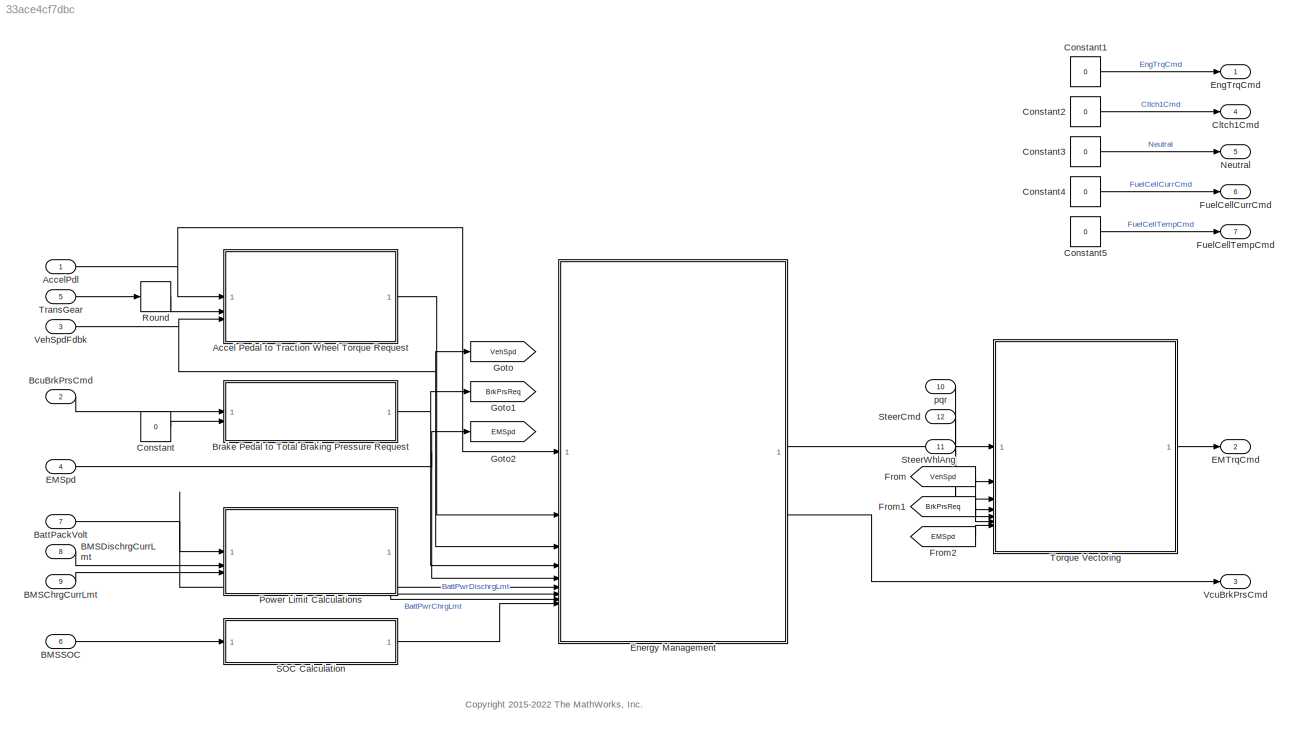
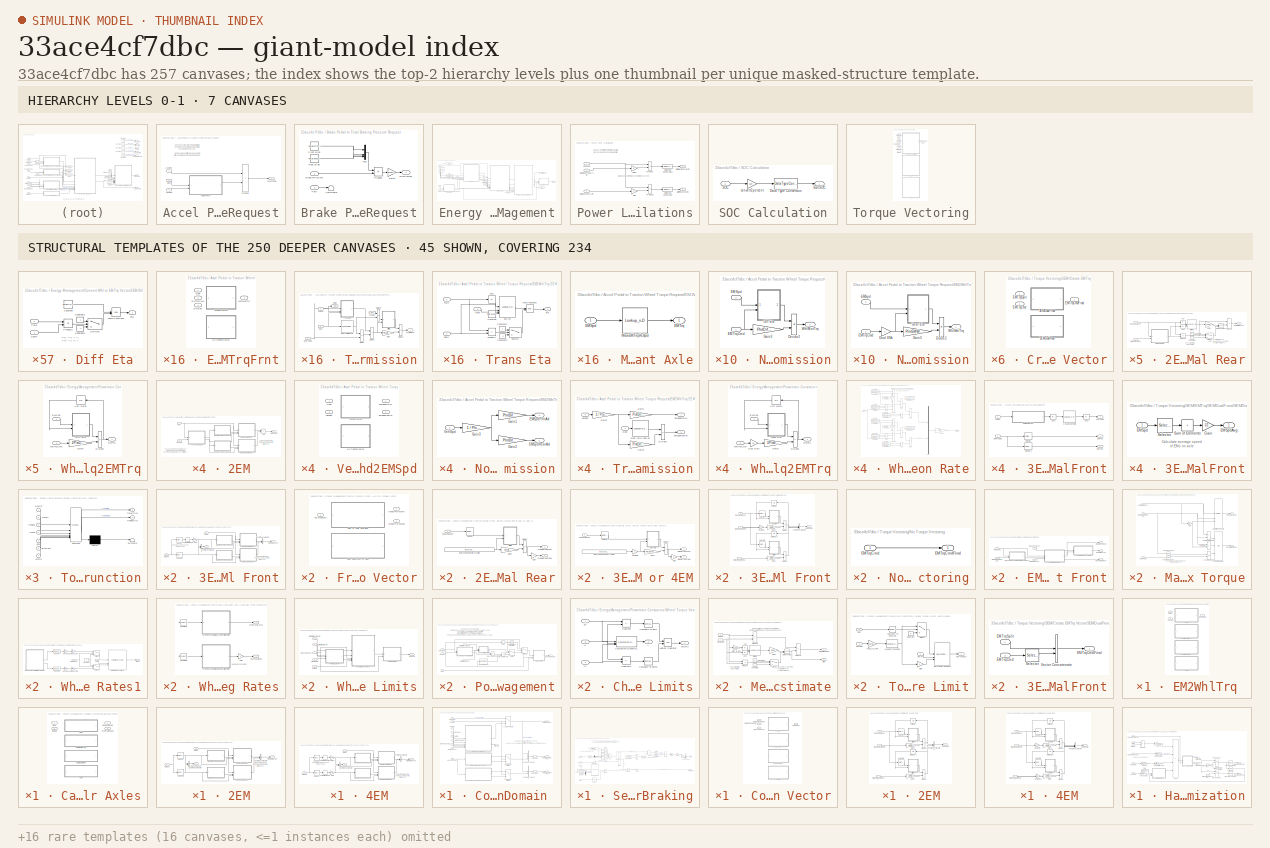
[diagram: thumbnail index - top-2 hierarchy levels (7 canvases) + 45 structural-template representatives of the remaining 250 canvases]
MODEL slx_33ace4cf7dbc
KIND model
WORKSPACE source: mxarray member
WORKSPACE CtrlVcuAccelTrqScaleFctr = [0 0.5 0.8 1 1]
WORKSPACE CtrlVcuBattPnlty = 10000000
WORKSPACE CtrlVcuBattSOCBpts = [0 20 60 80 100]
WORKSPACE CtrlVcuCnstrntPnltyFctr = 10000000
WORKSPACE CtrlVcuEMPnlty = 100
WORKSPACE CtrlVcuEMTrqSplitGrid = 200
WORKSPACE CtrlVcuMaxAccelG = 1
WORKSPACE CtrlVcuMaxDecelG = -1.5
WORKSPACE CtrlVcuPwrDeltaPnlty = 10
WORKSPACE CtrlVcuRegenTrqScaleFctr = [1 0.8 0.5 0.3 0]
WORKSPACE CtrlVcuRoadMuEst = 0.8
WORKSPACE CtrlVcuSftyFctr = 0.9
WORKSPACE CtrlVcuTracPwrErrPnlty = 6
WORKSPACE CtrlVcuTrqVecBrkThresh = 0.01
WORKSPACE CtrlVcuTrqVecIGain = 0
WORKSPACE CtrlVcuTrqVecMinTrq = 25
WORKSPACE CtrlVcuTrqVecPGain = -2000
WORKSPACE CtrlVcuTrqVecSteerThresh = 0.349065850399
WORKSPACE CtrlVcuTrqVecVelThresh = 2.5
WORKSPACE N_P0 = 3
BLOCK [SubSystem] Accel Pedal to Traction Wheel Torque Request
  InitFcn = [~]=autosharedicon('autolibinternalvvblock',gcb,0);
  VariantControl = Choice
BLOCK [Inport] Accel Pedal to Traction Wheel Torque Request/AccelPdl
BLOCK [SubSystem] Accel Pedal to Traction Wheel Torque Request/EM2WhlTrq
  LabelModeActiveChoice = 2EM
  Variant = on
  VariantControl = Choice
  VariantControlMode = label
BLOCK [SubSystem] Accel Pedal to Traction Wheel Torque Request/EM2WhlTrq/2EM
  VariantControl = 2EM
BLOCK [Sum] Accel Pedal to Traction Wheel Torque Request/EM2WhlTrq/2EM/Add
  IconShape = rectangular
BLOCK [SubSystem] Accel Pedal to Traction Wheel Torque Request/EM2WhlTrq/2EM/EMTrq2WhlTrqFrnt
  LabelModeActiveChoice = 3
  Variant = on
  VariantControl = 1
  VariantControlMode = label
BLOCK [Inport] Accel Pedal to Traction Wheel Torque Request/EM2WhlTrq/2EM/EMTrq2WhlTrqFrnt/EMSpd
  Port = 3
BLOCK [Inport] Accel Pedal to Traction Wheel Torque Request/EM2WhlTrq/2EM/EMTrq2WhlTrqFrnt/EMTrqCmd
  Port = 2
BLOCK [Inport] Accel Pedal to Traction Wheel Torque Request/EM2WhlTrq/2EM/EMTrq2WhlTrqFrnt/Gear
BLOCK [SubSystem] Accel Pedal to Traction Wheel Torque Request/EM2WhlTrq/2EM/EMTrq2WhlTrqFrnt/No Transmission
  VariantControl = 3
BLOCK [SubSystem] Accel Pedal to Traction Wheel Torque Request/EM2WhlTrq/2EM/EMTrq2WhlTrqFrnt/No Transmission/Diff Eta
BLOCK [Constant] Accel Pedal to Traction Wheel Torque Request/EM2WhlTrq/2EM/EMTrq2WhlTrqFrnt/No Transmission/Diff Eta/Constant
  Value = PlntDiffrntlEff
BLOCK [Constant] Accel Pedal to Traction Wheel Torque Request/EM2WhlTrq/2EM/EMTrq2WhlTrqFrnt/No Transmission/Diff Eta/Constant1
  SampleTime = -1
BLOCK [Constant] Accel Pedal to Traction Wheel Torque Request/EM2WhlTrq/2EM/EMTrq2WhlTrqFrnt/No Transmission/Diff Eta/Constant2
  SampleTime = -1
  Value = -1
BLOCK [Math] Accel Pedal to Traction Wheel Torque Request/EM2WhlTrq/2EM/EMTrq2WhlTrqFrnt/No Transmission/Diff Eta/Math Function1
  Operator = pow
  OutputSignalType = real
  SignedPower = on
BLOCK [Product] Accel Pedal to Traction Wheel Torque Request/EM2WhlTrq/2EM/EMTrq2WhlTrqFrnt/No Transmission/Diff Eta/Product1
BLOCK [Inport] Accel Pedal to Traction Wheel Torque Request/EM2WhlTrq/2EM/EMTrq2WhlTrqFrnt/No Transmission/Diff Eta/SpdIn
BLOCK [Switch] Accel Pedal to Traction Wheel Torque Request/EM2WhlTrq/2EM/EMTrq2WhlTrqFrnt/No Transmission/Diff Eta/Switch2
  InputSameDT = off
  SaturateOnIntegerOverflow = off
BLOCK [Inport] Accel Pedal to Traction Wheel Torque Request/EM2WhlTrq/2EM/EMTrq2WhlTrqFrnt/No Transmission/Diff Eta/TrqIn
  Port = 2
BLOCK [Outport] Accel Pedal to Traction Wheel Torque Request/EM2WhlTrq/2EM/EMTrq2WhlTrqFrnt/No Transmission/Diff Eta/eta
  VectorParamsAs1DForOutWhenUnconnected = off
BLOCK [Product] Accel Pedal to Traction Wheel Torque Request/EM2WhlTrq/2EM/EMTrq2WhlTrqFrnt/No Transmission/Divide2
  Inputs = **
BLOCK [Inport] Accel Pedal to Traction Wheel Torque Request/EM2WhlTrq/2EM/EMTrq2WhlTrqFrnt/No Transmission/EMSpd
  Port = 2
BLOCK [Inport] Accel Pedal to Traction Wheel Torque Request/EM2WhlTrq/2EM/EMTrq2WhlTrqFrnt/No Transmission/EMTrqCmd
BLOCK [Gain] Accel Pedal to Traction Wheel Torque Request/EM2WhlTrq/2EM/EMTrq2WhlTrqFrnt/No Transmission/Gain3
  Gain = PlntDiffrntlRatio
BLOCK [Outport] Accel Pedal to Traction Wheel Torque Request/EM2WhlTrq/2EM/EMTrq2WhlTrqFrnt/No Transmission/WhlMotTrq
  VectorParamsAs1DForOutWhenUnconnected = off
BLOCK [SubSystem] Accel Pedal to Traction Wheel Torque Request/EM2WhlTrq/2EM/EMTrq2WhlTrqFrnt/Transmission
  VariantControl = 1
BLOCK [SubSystem] Accel Pedal to Traction Wheel Torque Request/EM2WhlTrq/2EM/EMTrq2WhlTrqFrnt/Transmission/Diff Eta
BLOCK [Constant] Accel Pedal to Traction Wheel Torque Request/EM2WhlTrq/2EM/EMTrq2WhlTrqFrnt/Transmission/Diff Eta/Constant
  Value = PlntDiffrntlEff
BLOCK [Constant] Accel Pedal to Traction Wheel Torque Request/EM2WhlTrq/2EM/EMTrq2WhlTrqFrnt/Transmission/Diff Eta/Constant1
  SampleTime = -1
BLOCK [Constant] Accel Pedal to Traction Wheel Torque Request/EM2WhlTrq/2EM/EMTrq2WhlTrqFrnt/Transmission/Diff Eta/Constant2
  SampleTime = -1
  Value = -1
BLOCK [Math] Accel Pedal to Traction Wheel Torque Request/EM2WhlTrq/2EM/EMTrq2WhlTrqFrnt/Transmission/Diff Eta/Math Function1
  Operator = pow
  OutputSignalType = real
  SignedPower = on
BLOCK [Product] Accel Pedal to Traction Wheel Torque Request/EM2WhlTrq/2EM/EMTrq2WhlTrqFrnt/Transmission/Diff Eta/Product1
BLOCK [Inport] Accel Pedal to Traction Wheel Torque Request/EM2WhlTrq/2EM/EMTrq2WhlTrqFrnt/Transmission/Diff Eta/SpdIn
BLOCK [Switch] Accel Pedal to Traction Wheel Torque Request/EM2WhlTrq/2EM/EMTrq2WhlTrqFrnt/Transmission/Diff Eta/Switch2
  InputSameDT = off
  SaturateOnIntegerOverflow = off
BLOCK [Inport] Accel Pedal to Traction Wheel Torque Request/EM2WhlTrq/2EM/EMTrq2WhlTrqFrnt/Transmission/Diff Eta/TrqIn
  Port = 2
BLOCK [Outport] Accel Pedal to Traction Wheel Torque Request/EM2WhlTrq/2EM/EMTrq2WhlTrqFrnt/Transmission/Diff Eta/eta
  VectorParamsAs1DForOutWhenUnconnected = off
BLOCK [Product] Accel Pedal to Traction Wheel Torque Request/EM2WhlTrq/2EM/EMTrq2WhlTrqFrnt/Transmission/Divide
  Inputs = **
BLOCK [Product] Accel Pedal to Traction Wheel Torque Request/EM2WhlTrq/2EM/EMTrq2WhlTrqFrnt/Transmission/Divide1
  Inputs = **
BLOCK [Product] Accel Pedal to Traction Wheel Torque Request/EM2WhlTrq/2EM/EMTrq2WhlTrqFrnt/Transmission/Divide2
  Inputs = **
BLOCK [Product] Accel Pedal to Traction Wheel Torque Request/EM2WhlTrq/2EM/EMTrq2WhlTrqFrnt/Transmission/Divide3
  Inputs = */
BLOCK [Inport] Accel Pedal to Traction Wheel Torque Request/EM2WhlTrq/2EM/EMTrq2WhlTrqFrnt/Transmission/EMSpd
  Port = 3
BLOCK [Inport] Accel Pedal to Traction Wheel Torque Request/EM2WhlTrq/2EM/EMTrq2WhlTrqFrnt/Transmission/EMTrqCmd
  Port = 2
BLOCK [From] Accel Pedal to Traction Wheel Torque Request/EM2WhlTrq/2EM/EMTrq2WhlTrqFrnt/Transmission/From1
  GotoTag = Spd
BLOCK [Gain] Accel Pedal to Traction Wheel Torque Request/EM2WhlTrq/2EM/EMTrq2WhlTrqFrnt/Transmission/Gain
  Gain = PlntDiffrntlRatio
BLOCK [Inport] Accel Pedal to Traction Wheel Torque Request/EM2WhlTrq/2EM/EMTrq2WhlTrqFrnt/Transmission/Gear
BLOCK [LookupNDDirect] Accel Pedal to Traction Wheel Torque Request/EM2WhlTrq/2EM/EMTrq2WhlTrqFrnt/Transmission/Gear ratio look up
  NumberOfTableDimensions = 1
  Table = PlntTransGearRatioVect
BLOCK [Goto] Accel Pedal to Traction Wheel Torque Request/EM2WhlTrq/2EM/EMTrq2WhlTrqFrnt/Transmission/Goto1
  GotoTag = Spd
BLOCK [SubSystem] Accel Pedal to Traction Wheel Torque Request/EM2WhlTrq/2EM/EMTrq2WhlTrqFrnt/Transmission/Trans Eta
BLOCK [Abs] Accel Pedal to Traction Wheel Torque Request/EM2WhlTrq/2EM/EMTrq2WhlTrqFrnt/Transmission/Trans Eta/Abs1
  SaturateOnIntegerOverflow = off
BLOCK [Constant] Accel Pedal to Traction Wheel Torque Request/EM2WhlTrq/2EM/EMTrq2WhlTrqFrnt/Transmission/Trans Eta/Constant
  Value = PlntTransEffTempBpt(1)
BLOCK [Constant] Accel Pedal to Traction Wheel Torque Request/EM2WhlTrq/2EM/EMTrq2WhlTrqFrnt/Transmission/Trans Eta/Constant1
  SampleTime = -1
BLOCK [Constant] Accel Pedal to Traction Wheel Torque Request/EM2WhlTrq/2EM/EMTrq2WhlTrqFrnt/Transmission/Trans Eta/Constant2
  SampleTime = -1
  Value = -1
BLOCK [Lookup_n-D] Accel Pedal to Traction Wheel Torque Request/EM2WhlTrq/2EM/EMTrq2WhlTrqFrnt/Transmission/Trans Eta/Eta 4D
  BreakpointsForDimension1 = PlntTransEffTrqBpt
  BreakpointsForDimension2 = PlntTransEffSpdBpt
  BreakpointsForDimension3 = PlntTransGearNumVect
  BreakpointsForDimension4 = PlntTransEffTempBpt
  ExtrapMethod = Clip
  InputPortMap = u0,u1,u2,u3
  InternalRulePriority = Speed
  LookupTableObject = ''
  NumberOfTableDimensions = 4
  RndMeth = Simplest
  Table = PlntTransEffTbl
BLOCK [Inport] Accel Pedal to Traction Wheel Torque Request/EM2WhlTrq/2EM/EMTrq2WhlTrqFrnt/Transmission/Trans Eta/Gear
  Port = 3
BLOCK [Math] Accel Pedal to Traction Wheel Torque Request/EM2WhlTrq/2EM/EMTrq2WhlTrqFrnt/Transmission/Trans Eta/Math Function1
  Operator = pow
  OutputSignalType = real
  SignedPower = on
BLOCK [Product] Accel Pedal to Traction Wheel Torque Request/EM2WhlTrq/2EM/EMTrq2WhlTrqFrnt/Transmission/Trans Eta/Product1
BLOCK [Inport] Accel Pedal to Traction Wheel Torque Request/EM2WhlTrq/2EM/EMTrq2WhlTrqFrnt/Transmission/Trans Eta/SpdIn
  Port = 2
BLOCK [Switch] Accel Pedal to Traction Wheel Torque Request/EM2WhlTrq/2EM/EMTrq2WhlTrqFrnt/Transmission/Trans Eta/Switch2
  InputSameDT = off
  SaturateOnIntegerOverflow = off
BLOCK [Inport] Accel Pedal to Traction Wheel Torque Request/EM2WhlTrq/2EM/EMTrq2WhlTrqFrnt/Transmission/Trans Eta/TrqIn
BLOCK [Outport] Accel Pedal to Traction Wheel Torque Request/EM2WhlTrq/2EM/EMTrq2WhlTrqFrnt/Transmission/Trans Eta/eta
  VectorParamsAs1DForOutWhenUnconnected = off
BLOCK [Outport] Accel Pedal to Traction Wheel Torque Request/EM2WhlTrq/2EM/EMTrq2WhlTrqFrnt/Transmission/WhlMotTrq
  VectorParamsAs1DForOutWhenUnconnected = off
BLOCK [Outport] Accel Pedal to Traction Wheel Torque Request/EM2WhlTrq/2EM/EMTrq2WhlTrqFrnt/WhlMotTrq
BLOCK [SubSystem] Accel Pedal to Traction Wheel Torque Request/EM2WhlTrq/2EM/EMTrq2WhlTrqRear
  LabelModeActiveChoice = 3
  Variant = on
  VariantControl = 1
  VariantControlMode = label
BLOCK [Inport] Accel Pedal to Traction Wheel Torque Request/EM2WhlTrq/2EM/EMTrq2WhlTrqRear/EMSpd
  Port = 3
BLOCK [Inport] Accel Pedal to Traction Wheel Torque Request/EM2WhlTrq/2EM/EMTrq2WhlTrqRear/EMTrqCmd
  Port = 2
BLOCK [Inport] Accel Pedal to Traction Wheel Torque Request/EM2WhlTrq/2EM/EMTrq2WhlTrqRear/Gear
BLOCK [SubSystem] Accel Pedal to Traction Wheel Torque Request/EM2WhlTrq/2EM/EMTrq2WhlTrqRear/No Transmission
  VariantControl = 3
BLOCK [SubSystem] Accel Pedal to Traction Wheel Torque Request/EM2WhlTrq/2EM/EMTrq2WhlTrqRear/No Transmission/Diff Eta
BLOCK [Constant] Accel Pedal to Traction Wheel Torque Request/EM2WhlTrq/2EM/EMTrq2WhlTrqRear/No Transmission/Diff Eta/Constant
  Value = PlntDiffrntl2Eff
BLOCK [Constant] Accel Pedal to Traction Wheel Torque Request/EM2WhlTrq/2EM/EMTrq2WhlTrqRear/No Transmission/Diff Eta/Constant1
  SampleTime = -1
BLOCK [Constant] Accel Pedal to Traction Wheel Torque Request/EM2WhlTrq/2EM/EMTrq2WhlTrqRear/No Transmission/Diff Eta/Constant2
  SampleTime = -1
  Value = -1
BLOCK [Math] Accel Pedal to Traction Wheel Torque Request/EM2WhlTrq/2EM/EMTrq2WhlTrqRear/No Transmission/Diff Eta/Math Function1
  Operator = pow
  OutputSignalType = real
  SignedPower = on
BLOCK [Product] Accel Pedal to Traction Wheel Torque Request/EM2WhlTrq/2EM/EMTrq2WhlTrqRear/No Transmission/Diff Eta/Product1
BLOCK [Inport] Accel Pedal to Traction Wheel Torque Request/EM2WhlTrq/2EM/EMTrq2WhlTrqRear/No Transmission/Diff Eta/SpdIn
BLOCK [Switch] Accel Pedal to Traction Wheel Torque Request/EM2WhlTrq/2EM/EMTrq2WhlTrqRear/No Transmission/Diff Eta/Switch2
  InputSameDT = off
  SaturateOnIntegerOverflow = off
BLOCK [Inport] Accel Pedal to Traction Wheel Torque Request/EM2WhlTrq/2EM/EMTrq2WhlTrqRear/No Transmission/Diff Eta/TrqIn
  Port = 2
BLOCK [Outport] Accel Pedal to Traction Wheel Torque Request/EM2WhlTrq/2EM/EMTrq2WhlTrqRear/No Transmission/Diff Eta/eta
  VectorParamsAs1DForOutWhenUnconnected = off
BLOCK [Product] Accel Pedal to Traction Wheel Torque Request/EM2WhlTrq/2EM/EMTrq2WhlTrqRear/No Transmission/Divide2
  Inputs = **
BLOCK [Inport] Accel Pedal to Traction Wheel Torque Request/EM2WhlTrq/2EM/EMTrq2WhlTrqRear/No Transmission/EMSpd
  Port = 2
BLOCK [Inport] Accel Pedal to Traction Wheel Torque Request/EM2WhlTrq/2EM/EMTrq2WhlTrqRear/No Transmission/EMTrqCmd
BLOCK [Gain] Accel Pedal to Traction Wheel Torque Request/EM2WhlTrq/2EM/EMTrq2WhlTrqRear/No Transmission/Gain3
  Gain = PlntDiffrntl2Ratio
BLOCK [Outport] Accel Pedal to Traction Wheel Torque Request/EM2WhlTrq/2EM/EMTrq2WhlTrqRear/No Transmission/WhlMotTrq
  VectorParamsAs1DForOutWhenUnconnected = off
BLOCK [SubSystem] Accel Pedal to Traction Wheel Torque Request/EM2WhlTrq/2EM/EMTrq2WhlTrqRear/Transmission
  VariantControl = 1
BLOCK [SubSystem] Accel Pedal to Traction Wheel Torque Request/EM2WhlTrq/2EM/EMTrq2WhlTrqRear/Transmission/Diff Eta
BLOCK [Constant] Accel Pedal to Traction Wheel Torque Request/EM2WhlTrq/2EM/EMTrq2WhlTrqRear/Transmission/Diff Eta/Constant
  Value = PlntDiffrntl2Eff
BLOCK [Constant] Accel Pedal to Traction Wheel Torque Request/EM2WhlTrq/2EM/EMTrq2WhlTrqRear/Transmission/Diff Eta/Constant1
  SampleTime = -1
BLOCK [Constant] Accel Pedal to Traction Wheel Torque Request/EM2WhlTrq/2EM/EMTrq2WhlTrqRear/Transmission/Diff Eta/Constant2
  SampleTime = -1
  Value = -1
BLOCK [Math] Accel Pedal to Traction Wheel Torque Request/EM2WhlTrq/2EM/EMTrq2WhlTrqRear/Transmission/Diff Eta/Math Function1
  Operator = pow
  OutputSignalType = real
  SignedPower = on
BLOCK [Product] Accel Pedal to Traction Wheel Torque Request/EM2WhlTrq/2EM/EMTrq2WhlTrqRear/Transmission/Diff Eta/Product1
BLOCK [Inport] Accel Pedal to Traction Wheel Torque Request/EM2WhlTrq/2EM/EMTrq2WhlTrqRear/Transmission/Diff Eta/SpdIn
BLOCK [Switch] Accel Pedal to Traction Wheel Torque Request/EM2WhlTrq/2EM/EMTrq2WhlTrqRear/Transmission/Diff Eta/Switch2
  InputSameDT = off
  SaturateOnIntegerOverflow = off
BLOCK [Inport] Accel Pedal to Traction Wheel Torque Request/EM2WhlTrq/2EM/EMTrq2WhlTrqRear/Transmission/Diff Eta/TrqIn
  Port = 2
BLOCK [Outport] Accel Pedal to Traction Wheel Torque Request/EM2WhlTrq/2EM/EMTrq2WhlTrqRear/Transmission/Diff Eta/eta
  VectorParamsAs1DForOutWhenUnconnected = off
BLOCK [Product] Accel Pedal to Traction Wheel Torque Request/EM2WhlTrq/2EM/EMTrq2WhlTrqRear/Transmission/Divide
  Inputs = **
BLOCK [Product] Accel Pedal to Traction Wheel Torque Request/EM2WhlTrq/2EM/EMTrq2WhlTrqRear/Transmission/Divide1
  Inputs = **
BLOCK [Product] Accel Pedal to Traction Wheel Torque Request/EM2WhlTrq/2EM/EMTrq2WhlTrqRear/Transmission/Divide2
  Inputs = **
BLOCK [Product] Accel Pedal to Traction Wheel Torque Request/EM2WhlTrq/2EM/EMTrq2WhlTrqRear/Transmission/Divide3
  Inputs = */
BLOCK [Inport] Accel Pedal to Traction Wheel Torque Request/EM2WhlTrq/2EM/EMTrq2WhlTrqRear/Transmission/EMSpd
  Port = 3
BLOCK [Inport] Accel Pedal to Traction Wheel Torque Request/EM2WhlTrq/2EM/EMTrq2WhlTrqRear/Transmission/EMTrqCmd
  Port = 2
BLOCK [From] Accel Pedal to Traction Wheel Torque Request/EM2WhlTrq/2EM/EMTrq2WhlTrqRear/Transmission/From1
  GotoTag = Spd
BLOCK [Gain] Accel Pedal to Traction Wheel Torque Request/EM2WhlTrq/2EM/EMTrq2WhlTrqRear/Transmission/Gain
  Gain = PlntDiffrntl2Ratio
BLOCK [Inport] Accel Pedal to Traction Wheel Torque Request/EM2WhlTrq/2EM/EMTrq2WhlTrqRear/Transmission/Gear
BLOCK [LookupNDDirect] Accel Pedal to Traction Wheel Torque Request/EM2WhlTrq/2EM/EMTrq2WhlTrqRear/Transmission/Gear ratio look up
  NumberOfTableDimensions = 1
  Table = PlntTransGearRatioVect
BLOCK [Goto] Accel Pedal to Traction Wheel Torque Request/EM2WhlTrq/2EM/EMTrq2WhlTrqRear/Transmission/Goto1
  GotoTag = Spd
BLOCK [SubSystem] Accel Pedal to Traction Wheel Torque Request/EM2WhlTrq/2EM/EMTrq2WhlTrqRear/Transmission/Trans Eta
BLOCK [Abs] Accel Pedal to Traction Wheel Torque Request/EM2WhlTrq/2EM/EMTrq2WhlTrqRear/Transmission/Trans Eta/Abs1
  SaturateOnIntegerOverflow = off
BLOCK [Constant] Accel Pedal to Traction Wheel Torque Request/EM2WhlTrq/2EM/EMTrq2WhlTrqRear/Transmission/Trans Eta/Constant
  Value = PlntTransEffTempBpt(1)
BLOCK [Constant] Accel Pedal to Traction Wheel Torque Request/EM2WhlTrq/2EM/EMTrq2WhlTrqRear/Transmission/Trans Eta/Constant1
  SampleTime = -1
BLOCK [Constant] Accel Pedal to Traction Wheel Torque Request/EM2WhlTrq/2EM/EMTrq2WhlTrqRear/Transmission/Trans Eta/Constant2
  SampleTime = -1
  Value = -1
BLOCK [Lookup_n-D] Accel Pedal to Traction Wheel Torque Request/EM2WhlTrq/2EM/EMTrq2WhlTrqRear/Transmission/Trans Eta/Eta 4D
  BreakpointsForDimension1 = PlntTransEffTrqBpt
  BreakpointsForDimension2 = PlntTransEffSpdBpt
  BreakpointsForDimension3 = PlntTransGearNumVect
  BreakpointsForDimension4 = PlntTransEffTempBpt
  ExtrapMethod = Clip
  InputPortMap = u0,u1,u2,u3
  InternalRulePriority = Speed
  LookupTableObject = ''
  NumberOfTableDimensions = 4
  RndMeth = Simplest
  Table = PlntTransEffTbl
BLOCK [Inport] Accel Pedal to Traction Wheel Torque Request/EM2WhlTrq/2EM/EMTrq2WhlTrqRear/Transmission/Trans Eta/Gear
  Port = 3
BLOCK [Math] Accel Pedal to Traction Wheel Torque Request/EM2WhlTrq/2EM/EMTrq2WhlTrqRear/Transmission/Trans Eta/Math Function1
  Operator = pow
  OutputSignalType = real
  SignedPower = on
BLOCK [Product] Accel Pedal to Traction Wheel Torque Request/EM2WhlTrq/2EM/EMTrq2WhlTrqRear/Transmission/Trans Eta/Product1
BLOCK [Inport] Accel Pedal to Traction Wheel Torque Request/EM2WhlTrq/2EM/EMTrq2WhlTrqRear/Transmission/Trans Eta/SpdIn
  Port = 2
BLOCK [Switch] Accel Pedal to Traction Wheel Torque Request/EM2WhlTrq/2EM/EMTrq2WhlTrqRear/Transmission/Trans Eta/Switch2
  InputSameDT = off
  SaturateOnIntegerOverflow = off
BLOCK [Inport] Accel Pedal to Traction Wheel Torque Request/EM2WhlTrq/2EM/EMTrq2WhlTrqRear/Transmission/Trans Eta/TrqIn
BLOCK [Outport] Accel Pedal to Traction Wheel Torque Request/EM2WhlTrq/2EM/EMTrq2WhlTrqRear/Transmission/Trans Eta/eta
  VectorParamsAs1DForOutWhenUnconnected = off
BLOCK [Outport] Accel Pedal to Traction Wheel Torque Request/EM2WhlTrq/2EM/EMTrq2WhlTrqRear/Transmission/WhlMotTrq
  VectorParamsAs1DForOutWhenUnconnected = off
BLOCK [Outport] Accel Pedal to Traction Wheel Torque Request/EM2WhlTrq/2EM/EMTrq2WhlTrqRear/WhlMotTrq
BLOCK [Inport] Accel Pedal to Traction Wheel Torque Request/EM2WhlTrq/2EM/Gear
BLOCK [SubSystem] Accel Pedal to Traction Wheel Torque Request/EM2WhlTrq/2EM/Maximum Torque Front Axle
BLOCK [Inport] Accel Pedal to Traction Wheel Torque Request/EM2WhlTrq/2EM/Maximum Torque Front Axle/EMSpd
BLOCK [Outport] Accel Pedal to Traction Wheel Torque Request/EM2WhlTrq/2EM/Maximum Torque Front Axle/EMTrq
  VectorParamsAs1DForOutWhenUnconnected = off
BLOCK [Lookup_n-D] Accel Pedal to Traction Wheel Torque Request/EM2WhlTrq/2EM/Maximum Torque Front Axle/MaxEMTrqVsSpd
  BreakpointsForDimension1 = PlntEM1Spd
  ExtrapMethod = Clip
  InputPortMap = u0
  InternalRulePriority = Speed
  NumberOfTableDimensions = 1
  OutDataTypeStr = Inherit: Inherit from 'Table data'
  RndMeth = Simplest
  Table = PlntEM1Trq
  UseLastTableValue = on
BLOCK [SubSystem] Accel Pedal to Traction Wheel Torque Request/EM2WhlTrq/2EM/Maximum Torque Rear Axle
BLOCK [Inport] Accel Pedal to Traction Wheel Torque Request/EM2WhlTrq/2EM/Maximum Torque Rear Axle/EMSpd
BLOCK [Outport] Accel Pedal to Traction Wheel Torque Request/EM2WhlTrq/2EM/Maximum Torque Rear Axle/EMTrq
  VectorParamsAs1DForOutWhenUnconnected = off
BLOCK [Lookup_n-D] Accel Pedal to Traction Wheel Torque Request/EM2WhlTrq/2EM/Maximum Torque Rear Axle/MaxEMTrqVsSpd
  BreakpointsForDimension1 = PlntEM2Spd
  ExtrapMethod = Clip
  InputPortMap = u0
  InternalRulePriority = Speed
  NumberOfTableDimensions = 1
  OutDataTypeStr = Inherit: Inherit from 'Table data'
  RndMeth = Simplest
  Table = PlntEM2Trq
  UseLastTableValue = on
BLOCK [Inport] Accel Pedal to Traction Wheel Torque Request/EM2WhlTrq/2EM/VehSpd
  Port = 2
BLOCK [SubSystem] Accel Pedal to Traction Wheel Torque Request/EM2WhlTrq/2EM/VehSpd2EMSpd
  LabelModeActiveChoice = 3
  Variant = on
  VariantControl = 1
  VariantControlMode = label
BLOCK [Outport] Accel Pedal to Traction Wheel Torque Request/EM2WhlTrq/2EM/VehSpd2EMSpd/EMSpdFrntAxl
BLOCK [Outport] Accel Pedal to Traction Wheel Torque Request/EM2WhlTrq/2EM/VehSpd2EMSpd/EMSpdRearAxl
  Port = 2
BLOCK [Inport] Accel Pedal to Traction Wheel Torque Request/EM2WhlTrq/2EM/VehSpd2EMSpd/Gear
BLOCK [SubSystem] Accel Pedal to Traction Wheel Torque Request/EM2WhlTrq/2EM/VehSpd2EMSpd/No Transmission
  VariantControl = 3
BLOCK [Outport] Accel Pedal to Traction Wheel Torque Request/EM2WhlTrq/2EM/VehSpd2EMSpd/No Transmission/EMSpdFrntAxl
  VectorParamsAs1DForOutWhenUnconnected = off
BLOCK [Outport] Accel Pedal to Traction Wheel Torque Request/EM2WhlTrq/2EM/VehSpd2EMSpd/No Transmission/EMSpdRearAxl
  Port = 2
  VectorParamsAs1DForOutWhenUnconnected = off
BLOCK [Gain] Accel Pedal to Traction Wheel Torque Request/EM2WhlTrq/2EM/VehSpd2EMSpd/No Transmission/Gain1
  Gain = PlntDiffrntlRatio
BLOCK [Gain] Accel Pedal to Traction Wheel Torque Request/EM2WhlTrq/2EM/VehSpd2EMSpd/No Transmission/Gain2
  Gain = PlntDiffrntl2Ratio
BLOCK [Gain] Accel Pedal to Traction Wheel Torque Request/EM2WhlTrq/2EM/VehSpd2EMSpd/No Transmission/Gain3
  Gain = 1 / PlntWhlLdRadius
BLOCK [Inport] Accel Pedal to Traction Wheel Torque Request/EM2WhlTrq/2EM/VehSpd2EMSpd/No Transmission/VehSpd
BLOCK [SubSystem] Accel Pedal to Traction Wheel Torque Request/EM2WhlTrq/2EM/VehSpd2EMSpd/Transmission
  VariantControl = 1
BLOCK [Product] Accel Pedal to Traction Wheel Torque Request/EM2WhlTrq/2EM/VehSpd2EMSpd/Transmission/Divide1
  Inputs = **
BLOCK [Outport] Accel Pedal to Traction Wheel Torque Request/EM2WhlTrq/2EM/VehSpd2EMSpd/Transmission/EMSpdFrntAxl
  VectorParamsAs1DForOutWhenUnconnected = off
BLOCK [Outport] Accel Pedal to Traction Wheel Torque Request/EM2WhlTrq/2EM/VehSpd2EMSpd/Transmission/EMSpdRearAxl
  Port = 2
  VectorParamsAs1DForOutWhenUnconnected = off
BLOCK [Gain] Accel Pedal to Traction Wheel Torque Request/EM2WhlTrq/2EM/VehSpd2EMSpd/Transmission/Gain1
  Gain = PlntDiffrntlRatio
BLOCK [Gain] Accel Pedal to Traction Wheel Torque Request/EM2WhlTrq/2EM/VehSpd2EMSpd/Transmission/Gain2
  Gain = PlntDiffrntl2Ratio
BLOCK [Gain] Accel Pedal to Traction Wheel Torque Request/EM2WhlTrq/2EM/VehSpd2EMSpd/Transmission/Gain3
  Gain = 1 / PlntWhlLdRadius
BLOCK [Inport] Accel Pedal to Traction Wheel Torque Request/EM2WhlTrq/2EM/VehSpd2EMSpd/Transmission/Gear
BLOCK [LookupNDDirect] Accel Pedal to Traction Wheel Torque Request/EM2WhlTrq/2EM/VehSpd2EMSpd/Transmission/Gear ratio look up
  NumberOfTableDimensions = 1
  Table = PlntTransGearRatioVect
BLOCK [Inport] Accel Pedal to Traction Wheel Torque Request/EM2WhlTrq/2EM/VehSpd2EMSpd/Transmission/VehSpd
  Port = 2
BLOCK [Inport] Accel Pedal to Traction Wheel Torque Request/EM2WhlTrq/2EM/VehSpd2EMSpd/VehSpd
  Port = 2
BLOCK [Outport] Accel Pedal to Traction Wheel Torque Request/EM2WhlTrq/2EM/WhlTrqCmd
BLOCK [SubSystem] Accel Pedal to Traction Wheel Torque Request/EM2WhlTrq/3EM Dual Front
  VariantControl = 3EM Dual Front
BLOCK [Sum] Accel Pedal to Traction Wheel Torque Request/EM2WhlTrq/3EM Dual Front/Add
  IconShape = rectangular
BLOCK [SubSystem] Accel Pedal to Traction Wheel Torque Request/EM2WhlTrq/3EM Dual Front/EMTrq2WhlTrqFrnt
  LabelModeActiveChoice = 3
  Variant = on
  VariantControl = 1
  VariantControlMode = label
BLOCK [Inport] Accel Pedal to Traction Wheel Torque Request/EM2WhlTrq/3EM Dual Front/EMTrq2WhlTrqFrnt/EMSpd
  Port = 3
BLOCK [Inport] Accel Pedal to Traction Wheel Torque Request/EM2WhlTrq/3EM Dual Front/EMTrq2WhlTrqFrnt/EMTrqCmd
  Port = 2
BLOCK [Inport] Accel Pedal to Traction Wheel Torque Request/EM2WhlTrq/3EM Dual Front/EMTrq2WhlTrqFrnt/Gear
BLOCK [SubSystem] Accel Pedal to Traction Wheel Torque Request/EM2WhlTrq/3EM Dual Front/EMTrq2WhlTrqFrnt/No Transmission
  VariantControl = 3
BLOCK [Product] Accel Pedal to Traction Wheel Torque Request/EM2WhlTrq/3EM Dual Front/EMTrq2WhlTrqFrnt/No Transmission/Divide2
  Inputs = **
BLOCK [Gain] Accel Pedal to Traction Wheel Torque Request/EM2WhlTrq/3EM Dual Front/EMTrq2WhlTrqFrnt/No Transmission/Dual EMs
  Gain = 2
BLOCK [Inport] Accel Pedal to Traction Wheel Torque Request/EM2WhlTrq/3EM Dual Front/EMTrq2WhlTrqFrnt/No Transmission/EMSpd
  Port = 2
BLOCK [Inport] Accel Pedal to Traction Wheel Torque Request/EM2WhlTrq/3EM Dual Front/EMTrq2WhlTrqFrnt/No Transmission/EMTrqCmd
BLOCK [Gain] Accel Pedal to Traction Wheel Torque Request/EM2WhlTrq/3EM Dual Front/EMTrq2WhlTrqFrnt/No Transmission/Gain3
  Gain = PlntEMWhlGearRatioFL
BLOCK [SubSystem] Accel Pedal to Traction Wheel Torque Request/EM2WhlTrq/3EM Dual Front/EMTrq2WhlTrqFrnt/No Transmission/Gear Eta
BLOCK [Constant] Accel Pedal to Traction Wheel Torque Request/EM2WhlTrq/3EM Dual Front/EMTrq2WhlTrqFrnt/No Transmission/Gear Eta/Constant
  Value = PlntEMWhlGearEffFL
BLOCK [Constant] Accel Pedal to Traction Wheel Torque Request/EM2WhlTrq/3EM Dual Front/EMTrq2WhlTrqFrnt/No Transmission/Gear Eta/Constant1
  SampleTime = -1
BLOCK [Constant] Accel Pedal to Traction Wheel Torque Request/EM2WhlTrq/3EM Dual Front/EMTrq2WhlTrqFrnt/No Transmission/Gear Eta/Constant2
  SampleTime = -1
  Value = -1
BLOCK [Math] Accel Pedal to Traction Wheel Torque Request/EM2WhlTrq/3EM Dual Front/EMTrq2WhlTrqFrnt/No Transmission/Gear Eta/Math Function1
  Operator = pow
  OutputSignalType = real
  SignedPower = on
BLOCK [Product] Accel Pedal to Traction Wheel Torque Request/EM2WhlTrq/3EM Dual Front/EMTrq2WhlTrqFrnt/No Transmission/Gear Eta/Product1
BLOCK [Inport] Accel Pedal to Traction Wheel Torque Request/EM2WhlTrq/3EM Dual Front/EMTrq2WhlTrqFrnt/No Transmission/Gear Eta/SpdIn
BLOCK [Switch] Accel Pedal to Traction Wheel Torque Request/EM2WhlTrq/3EM Dual Front/EMTrq2WhlTrqFrnt/No Transmission/Gear Eta/Switch2
  InputSameDT = off
  SaturateOnIntegerOverflow = off
BLOCK [Inport] Accel Pedal to Traction Wheel Torque Request/EM2WhlTrq/3EM Dual Front/EMTrq2WhlTrqFrnt/No Transmission/Gear Eta/TrqIn
  Port = 2
BLOCK [Outport] Accel Pedal to Traction Wheel Torque Request/EM2WhlTrq/3EM Dual Front/EMTrq2WhlTrqFrnt/No Transmission/Gear Eta/eta
  VectorParamsAs1DForOutWhenUnconnected = off
BLOCK [Outport] Accel Pedal to Traction Wheel Torque Request/EM2WhlTrq/3EM Dual Front/EMTrq2WhlTrqFrnt/No Transmission/WhlMotTrq
  VectorParamsAs1DForOutWhenUnconnected = off
BLOCK [SubSystem] Accel Pedal to Traction Wheel Torque Request/EM2WhlTrq/3EM Dual Front/EMTrq2WhlTrqFrnt/Transmission
  VariantControl = 1
BLOCK [SubSystem] Accel Pedal to Traction Wheel Torque Request/EM2WhlTrq/3EM Dual Front/EMTrq2WhlTrqFrnt/Transmission/Diff Eta
BLOCK [Constant] Accel Pedal to Traction Wheel Torque Request/EM2WhlTrq/3EM Dual Front/EMTrq2WhlTrqFrnt/Transmission/Diff Eta/Constant
  Value = PlntDiffrntlEff
BLOCK [Constant] Accel Pedal to Traction Wheel Torque Request/EM2WhlTrq/3EM Dual Front/EMTrq2WhlTrqFrnt/Transmission/Diff Eta/Constant1
  SampleTime = -1
BLOCK [Constant] Accel Pedal to Traction Wheel Torque Request/EM2WhlTrq/3EM Dual Front/EMTrq2WhlTrqFrnt/Transmission/Diff Eta/Constant2
  SampleTime = -1
  Value = -1
BLOCK [Math] Accel Pedal to Traction Wheel Torque Request/EM2WhlTrq/3EM Dual Front/EMTrq2WhlTrqFrnt/Transmission/Diff Eta/Math Function1
  Operator = pow
  OutputSignalType = real
  SignedPower = on
BLOCK [Product] Accel Pedal to Traction Wheel Torque Request/EM2WhlTrq/3EM Dual Front/EMTrq2WhlTrqFrnt/Transmission/Diff Eta/Product1
BLOCK [Inport] Accel Pedal to Traction Wheel Torque Request/EM2WhlTrq/3EM Dual Front/EMTrq2WhlTrqFrnt/Transmission/Diff Eta/SpdIn
BLOCK [Switch] Accel Pedal to Traction Wheel Torque Request/EM2WhlTrq/3EM Dual Front/EMTrq2WhlTrqFrnt/Transmission/Diff Eta/Switch2
  InputSameDT = off
  SaturateOnIntegerOverflow = off
BLOCK [Inport] Accel Pedal to Traction Wheel Torque Request/EM2WhlTrq/3EM Dual Front/EMTrq2WhlTrqFrnt/Transmission/Diff Eta/TrqIn
  Port = 2
BLOCK [Outport] Accel Pedal to Traction Wheel Torque Request/EM2WhlTrq/3EM Dual Front/EMTrq2WhlTrqFrnt/Transmission/Diff Eta/eta
  VectorParamsAs1DForOutWhenUnconnected = off
BLOCK [Product] Accel Pedal to Traction Wheel Torque Request/EM2WhlTrq/3EM Dual Front/EMTrq2WhlTrqFrnt/Transmission/Divide
  Inputs = **
BLOCK [Product] Accel Pedal to Traction Wheel Torque Request/EM2WhlTrq/3EM Dual Front/EMTrq2WhlTrqFrnt/Transmission/Divide1
  Inputs = **
BLOCK [Product] Accel Pedal to Traction Wheel Torque Request/EM2WhlTrq/3EM Dual Front/EMTrq2WhlTrqFrnt/Transmission/Divide2
  Inputs = **
BLOCK [Product] Accel Pedal to Traction Wheel Torque Request/EM2WhlTrq/3EM Dual Front/EMTrq2WhlTrqFrnt/Transmission/Divide3
  Inputs = */
BLOCK [Inport] Accel Pedal to Traction Wheel Torque Request/EM2WhlTrq/3EM Dual Front/EMTrq2WhlTrqFrnt/Transmission/EMSpd
  Port = 3
BLOCK [Inport] Accel Pedal to Traction Wheel Torque Request/EM2WhlTrq/3EM Dual Front/EMTrq2WhlTrqFrnt/Transmission/EMTrqCmd
  Port = 2
BLOCK [From] Accel Pedal to Traction Wheel Torque Request/EM2WhlTrq/3EM Dual Front/EMTrq2WhlTrqFrnt/Transmission/From1
  GotoTag = Spd
BLOCK [Gain] Accel Pedal to Traction Wheel Torque Request/EM2WhlTrq/3EM Dual Front/EMTrq2WhlTrqFrnt/Transmission/Gain
  Gain = PlntDiffrntlRatio
BLOCK [Inport] Accel Pedal to Traction Wheel Torque Request/EM2WhlTrq/3EM Dual Front/EMTrq2WhlTrqFrnt/Transmission/Gear
BLOCK [LookupNDDirect] Accel Pedal to Traction Wheel Torque Request/EM2WhlTrq/3EM Dual Front/EMTrq2WhlTrqFrnt/Transmission/Gear ratio look up
  NumberOfTableDimensions = 1
  Table = PlntTransGearRatioVect
BLOCK [Goto] Accel Pedal to Traction Wheel Torque Request/EM2WhlTrq/3EM Dual Front/EMTrq2WhlTrqFrnt/Transmission/Goto1
  GotoTag = Spd
BLOCK [SubSystem] Accel Pedal to Traction Wheel Torque Request/EM2WhlTrq/3EM Dual Front/EMTrq2WhlTrqFrnt/Transmission/Trans Eta
BLOCK [Abs] Accel Pedal to Traction Wheel Torque Request/EM2WhlTrq/3EM Dual Front/EMTrq2WhlTrqFrnt/Transmission/Trans Eta/Abs1
  SaturateOnIntegerOverflow = off
BLOCK [Constant] Accel Pedal to Traction Wheel Torque Request/EM2WhlTrq/3EM Dual Front/EMTrq2WhlTrqFrnt/Transmission/Trans Eta/Constant
  Value = PlntTransEffTempBpt(1)
BLOCK [Constant] Accel Pedal to Traction Wheel Torque Request/EM2WhlTrq/3EM Dual Front/EMTrq2WhlTrqFrnt/Transmission/Trans Eta/Constant1
  SampleTime = -1
BLOCK [Constant] Accel Pedal to Traction Wheel Torque Request/EM2WhlTrq/3EM Dual Front/EMTrq2WhlTrqFrnt/Transmission/Trans Eta/Constant2
  SampleTime = -1
  Value = -1
BLOCK [Lookup_n-D] Accel Pedal to Traction Wheel Torque Request/EM2WhlTrq/3EM Dual Front/EMTrq2WhlTrqFrnt/Transmission/Trans Eta/Eta 4D
  BreakpointsForDimension1 = PlntTransEffTrqBpt
  BreakpointsForDimension2 = PlntTransEffSpdBpt
  BreakpointsForDimension3 = PlntTransGearNumVect
  BreakpointsForDimension4 = PlntTransEffTempBpt
  ExtrapMethod = Clip
  InputPortMap = u0,u1,u2,u3
  InternalRulePriority = Speed
  LookupTableObject = ''
  NumberOfTableDimensions = 4
  RndMeth = Simplest
  Table = PlntTransEffTbl
BLOCK [Inport] Accel Pedal to Traction Wheel Torque Request/EM2WhlTrq/3EM Dual Front/EMTrq2WhlTrqFrnt/Transmission/Trans Eta/Gear
  Port = 3
BLOCK [Math] Accel Pedal to Traction Wheel Torque Request/EM2WhlTrq/3EM Dual Front/EMTrq2WhlTrqFrnt/Transmission/Trans Eta/Math Function1
  Operator = pow
  OutputSignalType = real
  SignedPower = on
BLOCK [Product] Accel Pedal to Traction Wheel Torque Request/EM2WhlTrq/3EM Dual Front/EMTrq2WhlTrqFrnt/Transmission/Trans Eta/Product1
BLOCK [Inport] Accel Pedal to Traction Wheel Torque Request/EM2WhlTrq/3EM Dual Front/EMTrq2WhlTrqFrnt/Transmission/Trans Eta/SpdIn
  Port = 2
BLOCK [Switch] Accel Pedal to Traction Wheel Torque Request/EM2WhlTrq/3EM Dual Front/EMTrq2WhlTrqFrnt/Transmission/Trans Eta/Switch2
  InputSameDT = off
  SaturateOnIntegerOverflow = off
BLOCK [Inport] Accel Pedal to Traction Wheel Torque Request/EM2WhlTrq/3EM Dual Front/EMTrq2WhlTrqFrnt/Transmission/Trans Eta/TrqIn
BLOCK [Outport] Accel Pedal to Traction Wheel Torque Request/EM2WhlTrq/3EM Dual Front/EMTrq2WhlTrqFrnt/Transmission/Trans Eta/eta
  VectorParamsAs1DForOutWhenUnconnected = off
BLOCK [Outport] Accel Pedal to Traction Wheel Torque Request/EM2WhlTrq/3EM Dual Front/EMTrq2WhlTrqFrnt/Transmission/WhlMotTrq
  VectorParamsAs1DForOutWhenUnconnected = off
BLOCK [Outport] Accel Pedal to Traction Wheel Torque Request/EM2WhlTrq/3EM Dual Front/EMTrq2WhlTrqFrnt/WhlMotTrq
BLOCK [SubSystem] Accel Pedal to Traction Wheel Torque Request/EM2WhlTrq/3EM Dual Front/EMTrq2WhlTrqRear
  LabelModeActiveChoice = 3
  Variant = on
  VariantControl = 1
  VariantControlMode = label
BLOCK [Inport] Accel Pedal to Traction Wheel Torque Request/EM2WhlTrq/3EM Dual Front/EMTrq2WhlTrqRear/EMSpd
  Port = 3
BLOCK [Inport] Accel Pedal to Traction Wheel Torque Request/EM2WhlTrq/3EM Dual Front/EMTrq2WhlTrqRear/EMTrqCmd
  Port = 2
BLOCK [Inport] Accel Pedal to Traction Wheel Torque Request/EM2WhlTrq/3EM Dual Front/EMTrq2WhlTrqRear/Gear
BLOCK [SubSystem] Accel Pedal to Traction Wheel Torque Request/EM2WhlTrq/3EM Dual Front/EMTrq2WhlTrqRear/No Transmission
  VariantControl = 3
BLOCK [SubSystem] Accel Pedal to Traction Wheel Torque Request/EM2WhlTrq/3EM Dual Front/EMTrq2WhlTrqRear/No Transmission/Diff Eta
BLOCK [Constant] Accel Pedal to Traction Wheel Torque Request/EM2WhlTrq/3EM Dual Front/EMTrq2WhlTrqRear/No Transmission/Diff Eta/Constant
  Value = PlntDiffrntl2Eff
BLOCK [Constant] Accel Pedal to Traction Wheel Torque Request/EM2WhlTrq/3EM Dual Front/EMTrq2WhlTrqRear/No Transmission/Diff Eta/Constant1
  SampleTime = -1
BLOCK [Constant] Accel Pedal to Traction Wheel Torque Request/EM2WhlTrq/3EM Dual Front/EMTrq2WhlTrqRear/No Transmission/Diff Eta/Constant2
  SampleTime = -1
  Value = -1
BLOCK [Math] Accel Pedal to Traction Wheel Torque Request/EM2WhlTrq/3EM Dual Front/EMTrq2WhlTrqRear/No Transmission/Diff Eta/Math Function1
  Operator = pow
  OutputSignalType = real
  SignedPower = on
BLOCK [Product] Accel Pedal to Traction Wheel Torque Request/EM2WhlTrq/3EM Dual Front/EMTrq2WhlTrqRear/No Transmission/Diff Eta/Product1
BLOCK [Inport] Accel Pedal to Traction Wheel Torque Request/EM2WhlTrq/3EM Dual Front/EMTrq2WhlTrqRear/No Transmission/Diff Eta/SpdIn
BLOCK [Switch] Accel Pedal to Traction Wheel Torque Request/EM2WhlTrq/3EM Dual Front/EMTrq2WhlTrqRear/No Transmission/Diff Eta/Switch2
  InputSameDT = off
  SaturateOnIntegerOverflow = off
BLOCK [Inport] Accel Pedal to Traction Wheel Torque Request/EM2WhlTrq/3EM Dual Front/EMTrq2WhlTrqRear/No Transmission/Diff Eta/TrqIn
  Port = 2
BLOCK [Outport] Accel Pedal to Traction Wheel Torque Request/EM2WhlTrq/3EM Dual Front/EMTrq2WhlTrqRear/No Transmission/Diff Eta/eta
  VectorParamsAs1DForOutWhenUnconnected = off
BLOCK [Product] Accel Pedal to Traction Wheel Torque Request/EM2WhlTrq/3EM Dual Front/EMTrq2WhlTrqRear/No Transmission/Divide2
  Inputs = **
BLOCK [Inport] Accel Pedal to Traction Wheel Torque Request/EM2WhlTrq/3EM Dual Front/EMTrq2WhlTrqRear/No Transmission/EMSpd
  Port = 2
BLOCK [Inport] Accel Pedal to Traction Wheel Torque Request/EM2WhlTrq/3EM Dual Front/EMTrq2WhlTrqRear/No Transmission/EMTrqCmd
BLOCK [Gain] Accel Pedal to Traction Wheel Torque Request/EM2WhlTrq/3EM Dual Front/EMTrq2WhlTrqRear/No Transmission/Gain3
  Gain = PlntDiffrntl2Ratio
BLOCK [Outport] Accel Pedal to Traction Wheel Torque Request/EM2WhlTrq/3EM Dual Front/EMTrq2WhlTrqRear/No Transmission/WhlMotTrq
  VectorParamsAs1DForOutWhenUnconnected = off
BLOCK [SubSystem] Accel Pedal to Traction Wheel Torque Request/EM2WhlTrq/3EM Dual Front/EMTrq2WhlTrqRear/Transmission
  VariantControl = 1
BLOCK [SubSystem] Accel Pedal to Traction Wheel Torque Request/EM2WhlTrq/3EM Dual Front/EMTrq2WhlTrqRear/Transmission/Diff Eta
BLOCK [Constant] Accel Pedal to Traction Wheel Torque Request/EM2WhlTrq/3EM Dual Front/EMTrq2WhlTrqRear/Transmission/Diff Eta/Constant
  Value = PlntDiffrntl2Eff
BLOCK [Constant] Accel Pedal to Traction Wheel Torque Request/EM2WhlTrq/3EM Dual Front/EMTrq2WhlTrqRear/Transmission/Diff Eta/Constant1
  SampleTime = -1
BLOCK [Constant] Accel Pedal to Traction Wheel Torque Request/EM2WhlTrq/3EM Dual Front/EMTrq2WhlTrqRear/Transmission/Diff Eta/Constant2
  SampleTime = -1
  Value = -1
BLOCK [Math] Accel Pedal to Traction Wheel Torque Request/EM2WhlTrq/3EM Dual Front/EMTrq2WhlTrqRear/Transmission/Diff Eta/Math Function1
  Operator = pow
  OutputSignalType = real
  SignedPower = on
BLOCK [Product] Accel Pedal to Traction Wheel Torque Request/EM2WhlTrq/3EM Dual Front/EMTrq2WhlTrqRear/Transmission/Diff Eta/Product1
BLOCK [Inport] Accel Pedal to Traction Wheel Torque Request/EM2WhlTrq/3EM Dual Front/EMTrq2WhlTrqRear/Transmission/Diff Eta/SpdIn
BLOCK [Switch] Accel Pedal to Traction Wheel Torque Request/EM2WhlTrq/3EM Dual Front/EMTrq2WhlTrqRear/Transmission/Diff Eta/Switch2
  InputSameDT = off
  SaturateOnIntegerOverflow = off
BLOCK [Inport] Accel Pedal to Traction Wheel Torque Request/EM2WhlTrq/3EM Dual Front/EMTrq2WhlTrqRear/Transmission/Diff Eta/TrqIn
  Port = 2
BLOCK [Outport] Accel Pedal to Traction Wheel Torque Request/EM2WhlTrq/3EM Dual Front/EMTrq2WhlTrqRear/Transmission/Diff Eta/eta
  VectorParamsAs1DForOutWhenUnconnected = off
BLOCK [Product] Accel Pedal to Traction Wheel Torque Request/EM2WhlTrq/3EM Dual Front/EMTrq2WhlTrqRear/Transmission/Divide
  Inputs = **
BLOCK [Product] Accel Pedal to Traction Wheel Torque Request/EM2WhlTrq/3EM Dual Front/EMTrq2WhlTrqRear/Transmission/Divide1
  Inputs = **
BLOCK [Product] Accel Pedal to Traction Wheel Torque Request/EM2WhlTrq/3EM Dual Front/EMTrq2WhlTrqRear/Transmission/Divide2
  Inputs = **
BLOCK [Product] Accel Pedal to Traction Wheel Torque Request/EM2WhlTrq/3EM Dual Front/EMTrq2WhlTrqRear/Transmission/Divide3
  Inputs = */
BLOCK [Inport] Accel Pedal to Traction Wheel Torque Request/EM2WhlTrq/3EM Dual Front/EMTrq2WhlTrqRear/Transmission/EMSpd
  Port = 3
BLOCK [Inport] Accel Pedal to Traction Wheel Torque Request/EM2WhlTrq/3EM Dual Front/EMTrq2WhlTrqRear/Transmission/EMTrqCmd
  Port = 2
BLOCK [From] Accel Pedal to Traction Wheel Torque Request/EM2WhlTrq/3EM Dual Front/EMTrq2WhlTrqRear/Transmission/From1
  GotoTag = Spd
BLOCK [Gain] Accel Pedal to Traction Wheel Torque Request/EM2WhlTrq/3EM Dual Front/EMTrq2WhlTrqRear/Transmission/Gain
  Gain = PlntDiffrntl2Ratio
BLOCK [Inport] Accel Pedal to Traction Wheel Torque Request/EM2WhlTrq/3EM Dual Front/EMTrq2WhlTrqRear/Transmission/Gear
BLOCK [LookupNDDirect] Accel Pedal to Traction Wheel Torque Request/EM2WhlTrq/3EM Dual Front/EMTrq2WhlTrqRear/Transmission/Gear ratio look up
  NumberOfTableDimensions = 1
  Table = PlntTransGearRatioVect
BLOCK [Goto] Accel Pedal to Traction Wheel Torque Request/EM2WhlTrq/3EM Dual Front/EMTrq2WhlTrqRear/Transmission/Goto1
  GotoTag = Spd
BLOCK [SubSystem] Accel Pedal to Traction Wheel Torque Request/EM2WhlTrq/3EM Dual Front/EMTrq2WhlTrqRear/Transmission/Trans Eta
BLOCK [Abs] Accel Pedal to Traction Wheel Torque Request/EM2WhlTrq/3EM Dual Front/EMTrq2WhlTrqRear/Transmission/Trans Eta/Abs1
  SaturateOnIntegerOverflow = off
BLOCK [Constant] Accel Pedal to Traction Wheel Torque Request/EM2WhlTrq/3EM Dual Front/EMTrq2WhlTrqRear/Transmission/Trans Eta/Constant
  Value = PlntTransEffTempBpt(1)
BLOCK [Constant] Accel Pedal to Traction Wheel Torque Request/EM2WhlTrq/3EM Dual Front/EMTrq2WhlTrqRear/Transmission/Trans Eta/Constant1
  SampleTime = -1
BLOCK [Constant] Accel Pedal to Traction Wheel Torque Request/EM2WhlTrq/3EM Dual Front/EMTrq2WhlTrqRear/Transmission/Trans Eta/Constant2
  SampleTime = -1
  Value = -1
BLOCK [Lookup_n-D] Accel Pedal to Traction Wheel Torque Request/EM2WhlTrq/3EM Dual Front/EMTrq2WhlTrqRear/Transmission/Trans Eta/Eta 4D
  BreakpointsForDimension1 = PlntTransEffTrqBpt
  BreakpointsForDimension2 = PlntTransEffSpdBpt
  BreakpointsForDimension3 = PlntTransGearNumVect
  BreakpointsForDimension4 = PlntTransEffTempBpt
  ExtrapMethod = Clip
  InputPortMap = u0,u1,u2,u3
  InternalRulePriority = Speed
  LookupTableObject = ''
  NumberOfTableDimensions = 4
  RndMeth = Simplest
  Table = PlntTransEffTbl
BLOCK [Inport] Accel Pedal to Traction Wheel Torque Request/EM2WhlTrq/3EM Dual Front/EMTrq2WhlTrqRear/Transmission/Trans Eta/Gear
  Port = 3
BLOCK [Math] Accel Pedal to Traction Wheel Torque Request/EM2WhlTrq/3EM Dual Front/EMTrq2WhlTrqRear/Transmission/Trans Eta/Math Function1
  Operator = pow
  OutputSignalType = real
  SignedPower = on
BLOCK [Product] Accel Pedal to Traction Wheel Torque Request/EM2WhlTrq/3EM Dual Front/EMTrq2WhlTrqRear/Transmission/Trans Eta/Product1
BLOCK [Inport] Accel Pedal to Traction Wheel Torque Request/EM2WhlTrq/3EM Dual Front/EMTrq2WhlTrqRear/Transmission/Trans Eta/SpdIn
  Port = 2
BLOCK [Switch] Accel Pedal to Traction Wheel Torque Request/EM2WhlTrq/3EM Dual Front/EMTrq2WhlTrqRear/Transmission/Trans Eta/Switch2
  InputSameDT = off
  SaturateOnIntegerOverflow = off
BLOCK [Inport] Accel Pedal to Traction Wheel Torque Request/EM2WhlTrq/3EM Dual Front/EMTrq2WhlTrqRear/Transmission/Trans Eta/TrqIn
BLOCK [Outport] Accel Pedal to Traction Wheel Torque Request/EM2WhlTrq/3EM Dual Front/EMTrq2WhlTrqRear/Transmission/Trans Eta/eta
  VectorParamsAs1DForOutWhenUnconnected = off
BLOCK [Outport] Accel Pedal to Traction Wheel Torque Request/EM2WhlTrq/3EM Dual Front/EMTrq2WhlTrqRear/Transmission/WhlMotTrq
  VectorParamsAs1DForOutWhenUnconnected = off
BLOCK [Outport] Accel Pedal to Traction Wheel Torque Request/EM2WhlTrq/3EM Dual Front/EMTrq2WhlTrqRear/WhlMotTrq
BLOCK [Inport] Accel Pedal to Traction Wheel Torque Request/EM2WhlTrq/3EM Dual Front/Gear
BLOCK [SubSystem] Accel Pedal to Traction Wheel Torque Request/EM2WhlTrq/3EM Dual Front/Maximum Torque Front Axle
BLOCK [Inport] Accel Pedal to Traction Wheel Torque Request/EM2WhlTrq/3EM Dual Front/Maximum Torque Front Axle/EMSpd
BLOCK [Outport] Accel Pedal to Traction Wheel Torque Request/EM2WhlTrq/3EM Dual Front/Maximum Torque Front Axle/EMTrq
  VectorParamsAs1DForOutWhenUnconnected = off
BLOCK [Lookup_n-D] Accel Pedal to Traction Wheel Torque Request/EM2WhlTrq/3EM Dual Front/Maximum Torque Front Axle/MaxEMTrqVsSpd
  BreakpointsForDimension1 = PlntEM1Spd
  ExtrapMethod = Clip
  InputPortMap = u0
  InternalRulePriority = Speed
  NumberOfTableDimensions = 1
  OutDataTypeStr = Inherit: Inherit from 'Table data'
  RndMeth = Simplest
  Table = PlntEM1Trq
  UseLastTableValue = on
BLOCK [SubSystem] Accel Pedal to Traction Wheel Torque Request/EM2WhlTrq/3EM Dual Front/Maximum Torque Rear Axle
BLOCK [Inport] Accel Pedal to Traction Wheel Torque Request/EM2WhlTrq/3EM Dual Front/Maximum Torque Rear Axle/EMSpd
BLOCK [Outport] Accel Pedal to Traction Wheel Torque Request/EM2WhlTrq/3EM Dual Front/Maximum Torque Rear Axle/EMTrq
  VectorParamsAs1DForOutWhenUnconnected = off
BLOCK [Lookup_n-D] Accel Pedal to Traction Wheel Torque Request/EM2WhlTrq/3EM Dual Front/Maximum Torque Rear Axle/MaxEMTrqVsSpd
  BreakpointsForDimension1 = PlntEM3Spd
  ExtrapMethod = Clip
  InputPortMap = u0
  InternalRulePriority = Speed
  NumberOfTableDimensions = 1
  OutDataTypeStr = Inherit: Inherit from 'Table data'
  RndMeth = Simplest
  Table = PlntEM3Trq
  UseLastTableValue = on
BLOCK [Inport] Accel Pedal to Traction Wheel Torque Request/EM2WhlTrq/3EM Dual Front/VehSpd
  Port = 2
BLOCK [SubSystem] Accel Pedal to Traction Wheel Torque Request/EM2WhlTrq/3EM Dual Front/VehSpd2EMSpd
  LabelModeActiveChoice = 3
  Variant = on
  VariantControl = 1
  VariantControlMode = label
BLOCK [Outport] Accel Pedal to Traction Wheel Torque Request/EM2WhlTrq/3EM Dual Front/VehSpd2EMSpd/EMSpdFrntAxl
BLOCK [Outport] Accel Pedal to Traction Wheel Torque Request/EM2WhlTrq/3EM Dual Front/VehSpd2EMSpd/EMSpdRearAxl
  Port = 2
BLOCK [Inport] Accel Pedal to Traction Wheel Torque Request/EM2WhlTrq/3EM Dual Front/VehSpd2EMSpd/Gear
BLOCK [SubSystem] Accel Pedal to Traction Wheel Torque Request/EM2WhlTrq/3EM Dual Front/VehSpd2EMSpd/No Transmission
  VariantControl = 3
BLOCK [Outport] Accel Pedal to Traction Wheel Torque Request/EM2WhlTrq/3EM Dual Front/VehSpd2EMSpd/No Transmission/EMSpdFrntAxl
  VectorParamsAs1DForOutWhenUnconnected = off
BLOCK [Outport] Accel Pedal to Traction Wheel Torque Request/EM2WhlTrq/3EM Dual Front/VehSpd2EMSpd/No Transmission/EMSpdRearAxl
  Port = 2
  VectorParamsAs1DForOutWhenUnconnected = off
BLOCK [Gain] Accel Pedal to Traction Wheel Torque Request/EM2WhlTrq/3EM Dual Front/VehSpd2EMSpd/No Transmission/Gain1
  Gain = PlntEMWhlGearRatioFL
BLOCK [Gain] Accel Pedal to Traction Wheel Torque Request/EM2WhlTrq/3EM Dual Front/VehSpd2EMSpd/No Transmission/Gain2
  Gain = PlntDiffrntl2Ratio
BLOCK [Gain] Accel Pedal to Traction Wheel Torque Request/EM2WhlTrq/3EM Dual Front/VehSpd2EMSpd/No Transmission/Gain3
  Gain = 1 / PlntWhlLdRadius
BLOCK [Inport] Accel Pedal to Traction Wheel Torque Request/EM2WhlTrq/3EM Dual Front/VehSpd2EMSpd/No Transmission/VehSpd
BLOCK [SubSystem] Accel Pedal to Traction Wheel Torque Request/EM2WhlTrq/3EM Dual Front/VehSpd2EMSpd/Transmission
  VariantControl = 1
BLOCK [Product] Accel Pedal to Traction Wheel Torque Request/EM2WhlTrq/3EM Dual Front/VehSpd2EMSpd/Transmission/Divide1
  Inputs = **
BLOCK [Outport] Accel Pedal to Traction Wheel Torque Request/EM2WhlTrq/3EM Dual Front/VehSpd2EMSpd/Transmission/EMSpdFrntAxl
  VectorParamsAs1DForOutWhenUnconnected = off
BLOCK [Outport] Accel Pedal to Traction Wheel Torque Request/EM2WhlTrq/3EM Dual Front/VehSpd2EMSpd/Transmission/EMSpdRearAxl
  Port = 2
  VectorParamsAs1DForOutWhenUnconnected = off
BLOCK [Gain] Accel Pedal to Traction Wheel Torque Request/EM2WhlTrq/3EM Dual Front/VehSpd2EMSpd/Transmission/Gain1
  Gain = PlntDiffrntlRatio
BLOCK [Gain] Accel Pedal to Traction Wheel Torque Request/EM2WhlTrq/3EM Dual Front/VehSpd2EMSpd/Transmission/Gain2
  Gain = PlntDiffrntl2Ratio
BLOCK [Gain] Accel Pedal to Traction Wheel Torque Request/EM2WhlTrq/3EM Dual Front/VehSpd2EMSpd/Transmission/Gain3
  Gain = 1 / PlntWhlLdRadius
BLOCK [Inport] Accel Pedal to Traction Wheel Torque Request/EM2WhlTrq/3EM Dual Front/VehSpd2EMSpd/Transmission/Gear
BLOCK [LookupNDDirect] Accel Pedal to Traction Wheel Torque Request/EM2WhlTrq/3EM Dual Front/VehSpd2EMSpd/Transmission/Gear ratio look up
  NumberOfTableDimensions = 1
  Table = PlntTransGearRatioVect
BLOCK [Inport] Accel Pedal to Traction Wheel Torque Request/EM2WhlTrq/3EM Dual Front/VehSpd2EMSpd/Transmission/VehSpd
  Port = 2
BLOCK [Inport] Accel Pedal to Traction Wheel Torque Request/EM2WhlTrq/3EM Dual Front/VehSpd2EMSpd/VehSpd
  Port = 2
BLOCK [Outport] Accel Pedal to Traction Wheel Torque Request/EM2WhlTrq/3EM Dual Front/WhlTrqCmd
BLOCK [SubSystem] Accel Pedal to Traction Wheel Torque Request/EM2WhlTrq/3EM Dual Rear
  VariantControl = 3EM Dual Rear
BLOCK [Sum] Accel Pedal to Traction Wheel Torque Request/EM2WhlTrq/3EM Dual Rear/Add
  IconShape = rectangular
BLOCK [SubSystem] Accel Pedal to Traction Wheel Torque Request/EM2WhlTrq/3EM Dual Rear/EMTrq2WhlTrqFrnt
  LabelModeActiveChoice = 3
  Variant = on
  VariantControl = 1
  VariantControlMode = label
BLOCK [Inport] Accel Pedal to Traction Wheel Torque Request/EM2WhlTrq/3EM Dual Rear/EMTrq2WhlTrqFrnt/EMSpd
  Port = 3
BLOCK [Inport] Accel Pedal to Traction Wheel Torque Request/EM2WhlTrq/3EM Dual Rear/EMTrq2WhlTrqFrnt/EMTrqCmd
  Port = 2
BLOCK [Inport] Accel Pedal to Traction Wheel Torque Request/EM2WhlTrq/3EM Dual Rear/EMTrq2WhlTrqFrnt/Gear
BLOCK [SubSystem] Accel Pedal to Traction Wheel Torque Request/EM2WhlTrq/3EM Dual Rear/EMTrq2WhlTrqFrnt/No Transmission
  VariantControl = 3
BLOCK [SubSystem] Accel Pedal to Traction Wheel Torque Request/EM2WhlTrq/3EM Dual Rear/EMTrq2WhlTrqFrnt/No Transmission/Diff Eta
BLOCK [Constant] Accel Pedal to Traction Wheel Torque Request/EM2WhlTrq/3EM Dual Rear/EMTrq2WhlTrqFrnt/No Transmission/Diff Eta/Constant
  Value = PlntDiffrntlEff
BLOCK [Constant] Accel Pedal to Traction Wheel Torque Request/EM2WhlTrq/3EM Dual Rear/EMTrq2WhlTrqFrnt/No Transmission/Diff Eta/Constant1
  SampleTime = -1
BLOCK [Constant] Accel Pedal to Traction Wheel Torque Request/EM2WhlTrq/3EM Dual Rear/EMTrq2WhlTrqFrnt/No Transmission/Diff Eta/Constant2
  SampleTime = -1
  Value = -1
BLOCK [Math] Accel Pedal to Traction Wheel Torque Request/EM2WhlTrq/3EM Dual Rear/EMTrq2WhlTrqFrnt/No Transmission/Diff Eta/Math Function1
  Operator = pow
  OutputSignalType = real
  SignedPower = on
BLOCK [Product] Accel Pedal to Traction Wheel Torque Request/EM2WhlTrq/3EM Dual Rear/EMTrq2WhlTrqFrnt/No Transmission/Diff Eta/Product1
BLOCK [Inport] Accel Pedal to Traction Wheel Torque Request/EM2WhlTrq/3EM Dual Rear/EMTrq2WhlTrqFrnt/No Transmission/Diff Eta/SpdIn
BLOCK [Switch] Accel Pedal to Traction Wheel Torque Request/EM2WhlTrq/3EM Dual Rear/EMTrq2WhlTrqFrnt/No Transmission/Diff Eta/Switch2
  InputSameDT = off
  SaturateOnIntegerOverflow = off
BLOCK [Inport] Accel Pedal to Traction Wheel Torque Request/EM2WhlTrq/3EM Dual Rear/EMTrq2WhlTrqFrnt/No Transmission/Diff Eta/TrqIn
  Port = 2
BLOCK [Outport] Accel Pedal to Traction Wheel Torque Request/EM2WhlTrq/3EM Dual Rear/EMTrq2WhlTrqFrnt/No Transmission/Diff Eta/eta
  VectorParamsAs1DForOutWhenUnconnected = off
BLOCK [Product] Accel Pedal to Traction Wheel Torque Request/EM2WhlTrq/3EM Dual Rear/EMTrq2WhlTrqFrnt/No Transmission/Divide2
  Inputs = **
BLOCK [Inport] Accel Pedal to Traction Wheel Torque Request/EM2WhlTrq/3EM Dual Rear/EMTrq2WhlTrqFrnt/No Transmission/EMSpd
  Port = 2
BLOCK [Inport] Accel Pedal to Traction Wheel Torque Request/EM2WhlTrq/3EM Dual Rear/EMTrq2WhlTrqFrnt/No Transmission/EMTrqCmd
BLOCK [Gain] Accel Pedal to Traction Wheel Torque Request/EM2WhlTrq/3EM Dual Rear/EMTrq2WhlTrqFrnt/No Transmission/Gain3
  Gain = PlntDiffrntlRatio
BLOCK [Outport] Accel Pedal to Traction Wheel Torque Request/EM2WhlTrq/3EM Dual Rear/EMTrq2WhlTrqFrnt/No Transmission/WhlMotTrq
  VectorParamsAs1DForOutWhenUnconnected = off
BLOCK [SubSystem] Accel Pedal to Traction Wheel Torque Request/EM2WhlTrq/3EM Dual Rear/EMTrq2WhlTrqFrnt/Transmission
  VariantControl = 1
BLOCK [SubSystem] Accel Pedal to Traction Wheel Torque Request/EM2WhlTrq/3EM Dual Rear/EMTrq2WhlTrqFrnt/Transmission/Diff Eta
BLOCK [Constant] Accel Pedal to Traction Wheel Torque Request/EM2WhlTrq/3EM Dual Rear/EMTrq2WhlTrqFrnt/Transmission/Diff Eta/Constant
  Value = PlntDiffrntlEff
BLOCK [Constant] Accel Pedal to Traction Wheel Torque Request/EM2WhlTrq/3EM Dual Rear/EMTrq2WhlTrqFrnt/Transmission/Diff Eta/Constant1
  SampleTime = -1
BLOCK [Constant] Accel Pedal to Traction Wheel Torque Request/EM2WhlTrq/3EM Dual Rear/EMTrq2WhlTrqFrnt/Transmission/Diff Eta/Constant2
  SampleTime = -1
  Value = -1
BLOCK [Math] Accel Pedal to Traction Wheel Torque Request/EM2WhlTrq/3EM Dual Rear/EMTrq2WhlTrqFrnt/Transmission/Diff Eta/Math Function1
  Operator = pow
  OutputSignalType = real
  SignedPower = on
BLOCK [Product] Accel Pedal to Traction Wheel Torque Request/EM2WhlTrq/3EM Dual Rear/EMTrq2WhlTrqFrnt/Transmission/Diff Eta/Product1
BLOCK [Inport] Accel Pedal to Traction Wheel Torque Request/EM2WhlTrq/3EM Dual Rear/EMTrq2WhlTrqFrnt/Transmission/Diff Eta/SpdIn
BLOCK [Switch] Accel Pedal to Traction Wheel Torque Request/EM2WhlTrq/3EM Dual Rear/EMTrq2WhlTrqFrnt/Transmission/Diff Eta/Switch2
  InputSameDT = off
  SaturateOnIntegerOverflow = off
BLOCK [Inport] Accel Pedal to Traction Wheel Torque Request/EM2WhlTrq/3EM Dual Rear/EMTrq2WhlTrqFrnt/Transmission/Diff Eta/TrqIn
  Port = 2
BLOCK [Outport] Accel Pedal to Traction Wheel Torque Request/EM2WhlTrq/3EM Dual Rear/EMTrq2WhlTrqFrnt/Transmission/Diff Eta/eta
  VectorParamsAs1DForOutWhenUnconnected = off
BLOCK [Product] Accel Pedal to Traction Wheel Torque Request/EM2WhlTrq/3EM Dual Rear/EMTrq2WhlTrqFrnt/Transmission/Divide
  Inputs = **
BLOCK [Product] Accel Pedal to Traction Wheel Torque Request/EM2WhlTrq/3EM Dual Rear/EMTrq2WhlTrqFrnt/Transmission/Divide1
  Inputs = **
BLOCK [Product] Accel Pedal to Traction Wheel Torque Request/EM2WhlTrq/3EM Dual Rear/EMTrq2WhlTrqFrnt/Transmission/Divide2
  Inputs = **
BLOCK [Product] Accel Pedal to Traction Wheel Torque Request/EM2WhlTrq/3EM Dual Rear/EMTrq2WhlTrqFrnt/Transmission/Divide3
  Inputs = */
BLOCK [Inport] Accel Pedal to Traction Wheel Torque Request/EM2WhlTrq/3EM Dual Rear/EMTrq2WhlTrqFrnt/Transmission/EMSpd
  Port = 3
BLOCK [Inport] Accel Pedal to Traction Wheel Torque Request/EM2WhlTrq/3EM Dual Rear/EMTrq2WhlTrqFrnt/Transmission/EMTrqCmd
  Port = 2
BLOCK [From] Accel Pedal to Traction Wheel Torque Request/EM2WhlTrq/3EM Dual Rear/EMTrq2WhlTrqFrnt/Transmission/From1
  GotoTag = Spd
BLOCK [Gain] Accel Pedal to Traction Wheel Torque Request/EM2WhlTrq/3EM Dual Rear/EMTrq2WhlTrqFrnt/Transmission/Gain
  Gain = PlntDiffrntlRatio
BLOCK [Inport] Accel Pedal to Traction Wheel Torque Request/EM2WhlTrq/3EM Dual Rear/EMTrq2WhlTrqFrnt/Transmission/Gear
BLOCK [LookupNDDirect] Accel Pedal to Traction Wheel Torque Request/EM2WhlTrq/3EM Dual Rear/EMTrq2WhlTrqFrnt/Transmission/Gear ratio look up
  NumberOfTableDimensions = 1
  Table = PlntTransGearRatioVect
BLOCK [Goto] Accel Pedal to Traction Wheel Torque Request/EM2WhlTrq/3EM Dual Rear/EMTrq2WhlTrqFrnt/Transmission/Goto1
  GotoTag = Spd
BLOCK [SubSystem] Accel Pedal to Traction Wheel Torque Request/EM2WhlTrq/3EM Dual Rear/EMTrq2WhlTrqFrnt/Transmission/Trans Eta
BLOCK [Abs] Accel Pedal to Traction Wheel Torque Request/EM2WhlTrq/3EM Dual Rear/EMTrq2WhlTrqFrnt/Transmission/Trans Eta/Abs1
  SaturateOnIntegerOverflow = off
BLOCK [Constant] Accel Pedal to Traction Wheel Torque Request/EM2WhlTrq/3EM Dual Rear/EMTrq2WhlTrqFrnt/Transmission/Trans Eta/Constant
  Value = PlntTransEffTempBpt(1)
BLOCK [Constant] Accel Pedal to Traction Wheel Torque Request/EM2WhlTrq/3EM Dual Rear/EMTrq2WhlTrqFrnt/Transmission/Trans Eta/Constant1
  SampleTime = -1
BLOCK [Constant] Accel Pedal to Traction Wheel Torque Request/EM2WhlTrq/3EM Dual Rear/EMTrq2WhlTrqFrnt/Transmission/Trans Eta/Constant2
  SampleTime = -1
  Value = -1
BLOCK [Lookup_n-D] Accel Pedal to Traction Wheel Torque Request/EM2WhlTrq/3EM Dual Rear/EMTrq2WhlTrqFrnt/Transmission/Trans Eta/Eta 4D
  BreakpointsForDimension1 = PlntTransEffTrqBpt
  BreakpointsForDimension2 = PlntTransEffSpdBpt
  BreakpointsForDimension3 = PlntTransGearNumVect
  BreakpointsForDimension4 = PlntTransEffTempBpt
  ExtrapMethod = Clip
  InputPortMap = u0,u1,u2,u3
  InternalRulePriority = Speed
  LookupTableObject = ''
  NumberOfTableDimensions = 4
  RndMeth = Simplest
  Table = PlntTransEffTbl
BLOCK [Inport] Accel Pedal to Traction Wheel Torque Request/EM2WhlTrq/3EM Dual Rear/EMTrq2WhlTrqFrnt/Transmission/Trans Eta/Gear
  Port = 3
BLOCK [Math] Accel Pedal to Traction Wheel Torque Request/EM2WhlTrq/3EM Dual Rear/EMTrq2WhlTrqFrnt/Transmission/Trans Eta/Math Function1
  Operator = pow
  OutputSignalType = real
  SignedPower = on
BLOCK [Product] Accel Pedal to Traction Wheel Torque Request/EM2WhlTrq/3EM Dual Rear/EMTrq2WhlTrqFrnt/Transmission/Trans Eta/Product1
BLOCK [Inport] Accel Pedal to Traction Wheel Torque Request/EM2WhlTrq/3EM Dual Rear/EMTrq2WhlTrqFrnt/Transmission/Trans Eta/SpdIn
  Port = 2
BLOCK [Switch] Accel Pedal to Traction Wheel Torque Request/EM2WhlTrq/3EM Dual Rear/EMTrq2WhlTrqFrnt/Transmission/Trans Eta/Switch2
  InputSameDT = off
  SaturateOnIntegerOverflow = off
BLOCK [Inport] Accel Pedal to Traction Wheel Torque Request/EM2WhlTrq/3EM Dual Rear/EMTrq2WhlTrqFrnt/Transmission/Trans Eta/TrqIn
BLOCK [Outport] Accel Pedal to Traction Wheel Torque Request/EM2WhlTrq/3EM Dual Rear/EMTrq2WhlTrqFrnt/Transmission/Trans Eta/eta
  VectorParamsAs1DForOutWhenUnconnected = off
BLOCK [Outport] Accel Pedal to Traction Wheel Torque Request/EM2WhlTrq/3EM Dual Rear/EMTrq2WhlTrqFrnt/Transmission/WhlMotTrq
  VectorParamsAs1DForOutWhenUnconnected = off
BLOCK [Outport] Accel Pedal to Traction Wheel Torque Request/EM2WhlTrq/3EM Dual Rear/EMTrq2WhlTrqFrnt/WhlMotTrq
BLOCK [SubSystem] Accel Pedal to Traction Wheel Torque Request/EM2WhlTrq/3EM Dual Rear/EMTrq2WhlTrqRear
  LabelModeActiveChoice = 3
  Variant = on
  VariantControl = 1
  VariantControlMode = label
BLOCK [Inport] Accel Pedal to Traction Wheel Torque Request/EM2WhlTrq/3EM Dual Rear/EMTrq2WhlTrqRear/EMSpd
  Port = 3
BLOCK [Inport] Accel Pedal to Traction Wheel Torque Request/EM2WhlTrq/3EM Dual Rear/EMTrq2WhlTrqRear/EMTrqCmd
  Port = 2
BLOCK [Inport] Accel Pedal to Traction Wheel Torque Request/EM2WhlTrq/3EM Dual Rear/EMTrq2WhlTrqRear/Gear
BLOCK [SubSystem] Accel Pedal to Traction Wheel Torque Request/EM2WhlTrq/3EM Dual Rear/EMTrq2WhlTrqRear/No Transmission
  VariantControl = 3
BLOCK [Product] Accel Pedal to Traction Wheel Torque Request/EM2WhlTrq/3EM Dual Rear/EMTrq2WhlTrqRear/No Transmission/Divide2
  Inputs = **
BLOCK [Gain] Accel Pedal to Traction Wheel Torque Request/EM2WhlTrq/3EM Dual Rear/EMTrq2WhlTrqRear/No Transmission/Dual EMs
  Gain = 2
BLOCK [Inport] Accel Pedal to Traction Wheel Torque Request/EM2WhlTrq/3EM Dual Rear/EMTrq2WhlTrqRear/No Transmission/EMSpd
  Port = 2
BLOCK [Inport] Accel Pedal to Traction Wheel Torque Request/EM2WhlTrq/3EM Dual Rear/EMTrq2WhlTrqRear/No Transmission/EMTrqCmd
BLOCK [Gain] Accel Pedal to Traction Wheel Torque Request/EM2WhlTrq/3EM Dual Rear/EMTrq2WhlTrqRear/No Transmission/Gain3
  Gain = PlntEMWhlGearRatioRL
BLOCK [SubSystem] Accel Pedal to Traction Wheel Torque Request/EM2WhlTrq/3EM Dual Rear/EMTrq2WhlTrqRear/No Transmission/Gear Eta
BLOCK [Constant] Accel Pedal to Traction Wheel Torque Request/EM2WhlTrq/3EM Dual Rear/EMTrq2WhlTrqRear/No Transmission/Gear Eta/Constant
  Value = PlntEMWhlGearEffRL
BLOCK [Constant] Accel Pedal to Traction Wheel Torque Request/EM2WhlTrq/3EM Dual Rear/EMTrq2WhlTrqRear/No Transmission/Gear Eta/Constant1
  SampleTime = -1
BLOCK [Constant] Accel Pedal to Traction Wheel Torque Request/EM2WhlTrq/3EM Dual Rear/EMTrq2WhlTrqRear/No Transmission/Gear Eta/Constant2
  SampleTime = -1
  Value = -1
BLOCK [Math] Accel Pedal to Traction Wheel Torque Request/EM2WhlTrq/3EM Dual Rear/EMTrq2WhlTrqRear/No Transmission/Gear Eta/Math Function1
  Operator = pow
  OutputSignalType = real
  SignedPower = on
BLOCK [Product] Accel Pedal to Traction Wheel Torque Request/EM2WhlTrq/3EM Dual Rear/EMTrq2WhlTrqRear/No Transmission/Gear Eta/Product1
BLOCK [Inport] Accel Pedal to Traction Wheel Torque Request/EM2WhlTrq/3EM Dual Rear/EMTrq2WhlTrqRear/No Transmission/Gear Eta/SpdIn
BLOCK [Switch] Accel Pedal to Traction Wheel Torque Request/EM2WhlTrq/3EM Dual Rear/EMTrq2WhlTrqRear/No Transmission/Gear Eta/Switch2
  InputSameDT = off
  SaturateOnIntegerOverflow = off
BLOCK [Inport] Accel Pedal to Traction Wheel Torque Request/EM2WhlTrq/3EM Dual Rear/EMTrq2WhlTrqRear/No Transmission/Gear Eta/TrqIn
  Port = 2
BLOCK [Outport] Accel Pedal to Traction Wheel Torque Request/EM2WhlTrq/3EM Dual Rear/EMTrq2WhlTrqRear/No Transmission/Gear Eta/eta
  VectorParamsAs1DForOutWhenUnconnected = off
BLOCK [Outport] Accel Pedal to Traction Wheel Torque Request/EM2WhlTrq/3EM Dual Rear/EMTrq2WhlTrqRear/No Transmission/WhlMotTrq
  VectorParamsAs1DForOutWhenUnconnected = off
BLOCK [SubSystem] Accel Pedal to Traction Wheel Torque Request/EM2WhlTrq/3EM Dual Rear/EMTrq2WhlTrqRear/Transmission
  VariantControl = 1
BLOCK [SubSystem] Accel Pedal to Traction Wheel Torque Request/EM2WhlTrq/3EM Dual Rear/EMTrq2WhlTrqRear/Transmission/Diff Eta
BLOCK [Constant] Accel Pedal to Traction Wheel Torque Request/EM2WhlTrq/3EM Dual Rear/EMTrq2WhlTrqRear/Transmission/Diff Eta/Constant
  Value = PlntDiffrntl2Eff
BLOCK [Constant] Accel Pedal to Traction Wheel Torque Request/EM2WhlTrq/3EM Dual Rear/EMTrq2WhlTrqRear/Transmission/Diff Eta/Constant1
  SampleTime = -1
BLOCK [Constant] Accel Pedal to Traction Wheel Torque Request/EM2WhlTrq/3EM Dual Rear/EMTrq2WhlTrqRear/Transmission/Diff Eta/Constant2
  SampleTime = -1
  Value = -1
BLOCK [Math] Accel Pedal to Traction Wheel Torque Request/EM2WhlTrq/3EM Dual Rear/EMTrq2WhlTrqRear/Transmission/Diff Eta/Math Function1
  Operator = pow
  OutputSignalType = real
  SignedPower = on
BLOCK [Product] Accel Pedal to Traction Wheel Torque Request/EM2WhlTrq/3EM Dual Rear/EMTrq2WhlTrqRear/Transmission/Diff Eta/Product1
BLOCK [Inport] Accel Pedal to Traction Wheel Torque Request/EM2WhlTrq/3EM Dual Rear/EMTrq2WhlTrqRear/Transmission/Diff Eta/SpdIn
BLOCK [Switch] Accel Pedal to Traction Wheel Torque Request/EM2WhlTrq/3EM Dual Rear/EMTrq2WhlTrqRear/Transmission/Diff Eta/Switch2
  InputSameDT = off
  SaturateOnIntegerOverflow = off
BLOCK [Inport] Accel Pedal to Traction Wheel Torque Request/EM2WhlTrq/3EM Dual Rear/EMTrq2WhlTrqRear/Transmission/Diff Eta/TrqIn
  Port = 2
BLOCK [Outport] Accel Pedal to Traction Wheel Torque Request/EM2WhlTrq/3EM Dual Rear/EMTrq2WhlTrqRear/Transmission/Diff Eta/eta
  VectorParamsAs1DForOutWhenUnconnected = off
BLOCK [Product] Accel Pedal to Traction Wheel Torque Request/EM2WhlTrq/3EM Dual Rear/EMTrq2WhlTrqRear/Transmission/Divide
  Inputs = **
BLOCK [Product] Accel Pedal to Traction Wheel Torque Request/EM2WhlTrq/3EM Dual Rear/EMTrq2WhlTrqRear/Transmission/Divide1
  Inputs = **
BLOCK [Product] Accel Pedal to Traction Wheel Torque Request/EM2WhlTrq/3EM Dual Rear/EMTrq2WhlTrqRear/Transmission/Divide2
  Inputs = **
BLOCK [Product] Accel Pedal to Traction Wheel Torque Request/EM2WhlTrq/3EM Dual Rear/EMTrq2WhlTrqRear/Transmission/Divide3
  Inputs = */
BLOCK [Inport] Accel Pedal to Traction Wheel Torque Request/EM2WhlTrq/3EM Dual Rear/EMTrq2WhlTrqRear/Transmission/EMSpd
  Port = 3
BLOCK [Inport] Accel Pedal to Traction Wheel Torque Request/EM2WhlTrq/3EM Dual Rear/EMTrq2WhlTrqRear/Transmission/EMTrqCmd
  Port = 2
BLOCK [From] Accel Pedal to Traction Wheel Torque Request/EM2WhlTrq/3EM Dual Rear/EMTrq2WhlTrqRear/Transmission/From1
  GotoTag = Spd
BLOCK [Gain] Accel Pedal to Traction Wheel Torque Request/EM2WhlTrq/3EM Dual Rear/EMTrq2WhlTrqRear/Transmission/Gain
  Gain = PlntDiffrntl2Ratio
BLOCK [Inport] Accel Pedal to Traction Wheel Torque Request/EM2WhlTrq/3EM Dual Rear/EMTrq2WhlTrqRear/Transmission/Gear
BLOCK [LookupNDDirect] Accel Pedal to Traction Wheel Torque Request/EM2WhlTrq/3EM Dual Rear/EMTrq2WhlTrqRear/Transmission/Gear ratio look up
  NumberOfTableDimensions = 1
  Table = PlntTransGearRatioVect
BLOCK [Goto] Accel Pedal to Traction Wheel Torque Request/EM2WhlTrq/3EM Dual Rear/EMTrq2WhlTrqRear/Transmission/Goto1
  GotoTag = Spd
BLOCK [SubSystem] Accel Pedal to Traction Wheel Torque Request/EM2WhlTrq/3EM Dual Rear/EMTrq2WhlTrqRear/Transmission/Trans Eta
BLOCK [Abs] Accel Pedal to Traction Wheel Torque Request/EM2WhlTrq/3EM Dual Rear/EMTrq2WhlTrqRear/Transmission/Trans Eta/Abs1
  SaturateOnIntegerOverflow = off
BLOCK [Constant] Accel Pedal to Traction Wheel Torque Request/EM2WhlTrq/3EM Dual Rear/EMTrq2WhlTrqRear/Transmission/Trans Eta/Constant
  Value = PlntTransEffTempBpt(1)
BLOCK [Constant] Accel Pedal to Traction Wheel Torque Request/EM2WhlTrq/3EM Dual Rear/EMTrq2WhlTrqRear/Transmission/Trans Eta/Constant1
  SampleTime = -1
BLOCK [Constant] Accel Pedal to Traction Wheel Torque Request/EM2WhlTrq/3EM Dual Rear/EMTrq2WhlTrqRear/Transmission/Trans Eta/Constant2
  SampleTime = -1
  Value = -1
BLOCK [Lookup_n-D] Accel Pedal to Traction Wheel Torque Request/EM2WhlTrq/3EM Dual Rear/EMTrq2WhlTrqRear/Transmission/Trans Eta/Eta 4D
  BreakpointsForDimension1 = PlntTransEffTrqBpt
  BreakpointsForDimension2 = PlntTransEffSpdBpt
  BreakpointsForDimension3 = PlntTransGearNumVect
  BreakpointsForDimension4 = PlntTransEffTempBpt
  ExtrapMethod = Clip
  InputPortMap = u0,u1,u2,u3
  InternalRulePriority = Speed
  LookupTableObject = ''
  NumberOfTableDimensions = 4
  RndMeth = Simplest
  Table = PlntTransEffTbl
BLOCK [Inport] Accel Pedal to Traction Wheel Torque Request/EM2WhlTrq/3EM Dual Rear/EMTrq2WhlTrqRear/Transmission/Trans Eta/Gear
  Port = 3
BLOCK [Math] Accel Pedal to Traction Wheel Torque Request/EM2WhlTrq/3EM Dual Rear/EMTrq2WhlTrqRear/Transmission/Trans Eta/Math Function1
  Operator = pow
  OutputSignalType = real
  SignedPower = on
BLOCK [Product] Accel Pedal to Traction Wheel Torque Request/EM2WhlTrq/3EM Dual Rear/EMTrq2WhlTrqRear/Transmission/Trans Eta/Product1
BLOCK [Inport] Accel Pedal to Traction Wheel Torque Request/EM2WhlTrq/3EM Dual Rear/EMTrq2WhlTrqRear/Transmission/Trans Eta/SpdIn
  Port = 2
BLOCK [Switch] Accel Pedal to Traction Wheel Torque Request/EM2WhlTrq/3EM Dual Rear/EMTrq2WhlTrqRear/Transmission/Trans Eta/Switch2
  InputSameDT = off
  SaturateOnIntegerOverflow = off
BLOCK [Inport] Accel Pedal to Traction Wheel Torque Request/EM2WhlTrq/3EM Dual Rear/EMTrq2WhlTrqRear/Transmission/Trans Eta/TrqIn
BLOCK [Outport] Accel Pedal to Traction Wheel Torque Request/EM2WhlTrq/3EM Dual Rear/EMTrq2WhlTrqRear/Transmission/Trans Eta/eta
  VectorParamsAs1DForOutWhenUnconnected = off
BLOCK [Outport] Accel Pedal to Traction Wheel Torque Request/EM2WhlTrq/3EM Dual Rear/EMTrq2WhlTrqRear/Transmission/WhlMotTrq
  VectorParamsAs1DForOutWhenUnconnected = off
BLOCK [Outport] Accel Pedal to Traction Wheel Torque Request/EM2WhlTrq/3EM Dual Rear/EMTrq2WhlTrqRear/WhlMotTrq
BLOCK [Inport] Accel Pedal to Traction Wheel Torque Request/EM2WhlTrq/3EM Dual Rear/Gear
BLOCK [SubSystem] Accel Pedal to Traction Wheel Torque Request/EM2WhlTrq/3EM Dual Rear/Maximum Torque Front Axle
BLOCK [Inport] Accel Pedal to Traction Wheel Torque Request/EM2WhlTrq/3EM Dual Rear/Maximum Torque Front Axle/EMSpd
BLOCK [Outport] Accel Pedal to Traction Wheel Torque Request/EM2WhlTrq/3EM Dual Rear/Maximum Torque Front Axle/EMTrq
  VectorParamsAs1DForOutWhenUnconnected = off
BLOCK [Lookup_n-D] Accel Pedal to Traction Wheel Torque Request/EM2WhlTrq/3EM Dual Rear/Maximum Torque Front Axle/MaxEMTrqVsSpd
  BreakpointsForDimension1 = PlntEM1Spd
  ExtrapMethod = Clip
  InputPortMap = u0
  InternalRulePriority = Speed
  NumberOfTableDimensions = 1
  OutDataTypeStr = Inherit: Inherit from 'Table data'
  RndMeth = Simplest
  Table = PlntEM1Trq
  UseLastTableValue = on
BLOCK [SubSystem] Accel Pedal to Traction Wheel Torque Request/EM2WhlTrq/3EM Dual Rear/Maximum Torque Rear Axle
BLOCK [Inport] Accel Pedal to Traction Wheel Torque Request/EM2WhlTrq/3EM Dual Rear/Maximum Torque Rear Axle/EMSpd
BLOCK [Outport] Accel Pedal to Traction Wheel Torque Request/EM2WhlTrq/3EM Dual Rear/Maximum Torque Rear Axle/EMTrq
  VectorParamsAs1DForOutWhenUnconnected = off
BLOCK [Lookup_n-D] Accel Pedal to Traction Wheel Torque Request/EM2WhlTrq/3EM Dual Rear/Maximum Torque Rear Axle/MaxEMTrqVsSpd
  BreakpointsForDimension1 = PlntEM3Spd
  ExtrapMethod = Clip
  InputPortMap = u0
  InternalRulePriority = Speed
  NumberOfTableDimensions = 1
  OutDataTypeStr = Inherit: Inherit from 'Table data'
  RndMeth = Simplest
  Table = PlntEM3Trq
  UseLastTableValue = on
BLOCK [Inport] Accel Pedal to Traction Wheel Torque Request/EM2WhlTrq/3EM Dual Rear/VehSpd
  Port = 2
BLOCK [SubSystem] Accel Pedal to Traction Wheel Torque Request/EM2WhlTrq/3EM Dual Rear/VehSpd2EMSpd
  LabelModeActiveChoice = 3
  Variant = on
  VariantControl = 1
  VariantControlMode = label
BLOCK [Outport] Accel Pedal to Traction Wheel Torque Request/EM2WhlTrq/3EM Dual Rear/VehSpd2EMSpd/EMSpdFrntAxl
BLOCK [Outport] Accel Pedal to Traction Wheel Torque Request/EM2WhlTrq/3EM Dual Rear/VehSpd2EMSpd/EMSpdRearAxl
  Port = 2
BLOCK [Inport] Accel Pedal to Traction Wheel Torque Request/EM2WhlTrq/3EM Dual Rear/VehSpd2EMSpd/Gear
BLOCK [SubSystem] Accel Pedal to Traction Wheel Torque Request/EM2WhlTrq/3EM Dual Rear/VehSpd2EMSpd/No Transmission
  VariantControl = 3
BLOCK [Outport] Accel Pedal to Traction Wheel Torque Request/EM2WhlTrq/3EM Dual Rear/VehSpd2EMSpd/No Transmission/EMSpdFrntAxl
  VectorParamsAs1DForOutWhenUnconnected = off
BLOCK [Outport] Accel Pedal to Traction Wheel Torque Request/EM2WhlTrq/3EM Dual Rear/VehSpd2EMSpd/No Transmission/EMSpdRearAxl
  Port = 2
  VectorParamsAs1DForOutWhenUnconnected = off
BLOCK [Gain] Accel Pedal to Traction Wheel Torque Request/EM2WhlTrq/3EM Dual Rear/VehSpd2EMSpd/No Transmission/Gain1
  Gain = PlntDiffrntlRatio
BLOCK [Gain] Accel Pedal to Traction Wheel Torque Request/EM2WhlTrq/3EM Dual Rear/VehSpd2EMSpd/No Transmission/Gain2
  Gain = PlntEMWhlGearRatioRL
BLOCK [Gain] Accel Pedal to Traction Wheel Torque Request/EM2WhlTrq/3EM Dual Rear/VehSpd2EMSpd/No Transmission/Gain3
  Gain = 1 / PlntWhlLdRadius
BLOCK [Inport] Accel Pedal to Traction Wheel Torque Request/EM2WhlTrq/3EM Dual Rear/VehSpd2EMSpd/No Transmission/VehSpd
BLOCK [SubSystem] Accel Pedal to Traction Wheel Torque Request/EM2WhlTrq/3EM Dual Rear/VehSpd2EMSpd/Transmission
  VariantControl = 1
BLOCK [Product] Accel Pedal to Traction Wheel Torque Request/EM2WhlTrq/3EM Dual Rear/VehSpd2EMSpd/Transmission/Divide1
  Inputs = **
BLOCK [Outport] Accel Pedal to Traction Wheel Torque Request/EM2WhlTrq/3EM Dual Rear/VehSpd2EMSpd/Transmission/EMSpdFrntAxl
  VectorParamsAs1DForOutWhenUnconnected = off
BLOCK [Outport] Accel Pedal to Traction Wheel Torque Request/EM2WhlTrq/3EM Dual Rear/VehSpd2EMSpd/Transmission/EMSpdRearAxl
  Port = 2
  VectorParamsAs1DForOutWhenUnconnected = off
BLOCK [Gain] Accel Pedal to Traction Wheel Torque Request/EM2WhlTrq/3EM Dual Rear/VehSpd2EMSpd/Transmission/Gain1
  Gain = PlntDiffrntlRatio
BLOCK [Gain] Accel Pedal to Traction Wheel Torque Request/EM2WhlTrq/3EM Dual Rear/VehSpd2EMSpd/Transmission/Gain2
  Gain = PlntDiffrntl2Ratio
BLOCK [Gain] Accel Pedal to Traction Wheel Torque Request/EM2WhlTrq/3EM Dual Rear/VehSpd2EMSpd/Transmission/Gain3
  Gain = 1 / PlntWhlLdRadius
BLOCK [Inport] Accel Pedal to Traction Wheel Torque Request/EM2WhlTrq/3EM Dual Rear/VehSpd2EMSpd/Transmission/Gear
BLOCK [LookupNDDirect] Accel Pedal to Traction Wheel Torque Request/EM2WhlTrq/3EM Dual Rear/VehSpd2EMSpd/Transmission/Gear ratio look up
  NumberOfTableDimensions = 1
  Table = PlntTransGearRatioVect
BLOCK [Inport] Accel Pedal to Traction Wheel Torque Request/EM2WhlTrq/3EM Dual Rear/VehSpd2EMSpd/Transmission/VehSpd
  Port = 2
BLOCK [Inport] Accel Pedal to Traction Wheel Torque Request/EM2WhlTrq/3EM Dual Rear/VehSpd2EMSpd/VehSpd
  Port = 2
BLOCK [Outport] Accel Pedal to Traction Wheel Torque Request/EM2WhlTrq/3EM Dual Rear/WhlTrqCmd
BLOCK [SubSystem] Accel Pedal to Traction Wheel Torque Request/EM2WhlTrq/4EM
  VariantControl = 4EM
BLOCK [Sum] Accel Pedal to Traction Wheel Torque Request/EM2WhlTrq/4EM/Add
  IconShape = rectangular
BLOCK [SubSystem] Accel Pedal to Traction Wheel Torque Request/EM2WhlTrq/4EM/EMTrq2WhlTrqFrnt
  LabelModeActiveChoice = 3
  Variant = on
  VariantControl = 1
  VariantControlMode = label
BLOCK [Inport] Accel Pedal to Traction Wheel Torque Request/EM2WhlTrq/4EM/EMTrq2WhlTrqFrnt/EMSpd
  Port = 3
BLOCK [Inport] Accel Pedal to Traction Wheel Torque Request/EM2WhlTrq/4EM/EMTrq2WhlTrqFrnt/EMTrqCmd
  Port = 2
BLOCK [Inport] Accel Pedal to Traction Wheel Torque Request/EM2WhlTrq/4EM/EMTrq2WhlTrqFrnt/Gear
BLOCK [SubSystem] Accel Pedal to Traction Wheel Torque Request/EM2WhlTrq/4EM/EMTrq2WhlTrqFrnt/No Transmission
  VariantControl = 3
BLOCK [Product] Accel Pedal to Traction Wheel Torque Request/EM2WhlTrq/4EM/EMTrq2WhlTrqFrnt/No Transmission/Divide2
  Inputs = **
BLOCK [Gain] Accel Pedal to Traction Wheel Torque Request/EM2WhlTrq/4EM/EMTrq2WhlTrqFrnt/No Transmission/Dual EMs
  Gain = 2
BLOCK [Inport] Accel Pedal to Traction Wheel Torque Request/EM2WhlTrq/4EM/EMTrq2WhlTrqFrnt/No Transmission/EMSpd
  Port = 2
BLOCK [Inport] Accel Pedal to Traction Wheel Torque Request/EM2WhlTrq/4EM/EMTrq2WhlTrqFrnt/No Transmission/EMTrqCmd
BLOCK [Gain] Accel Pedal to Traction Wheel Torque Request/EM2WhlTrq/4EM/EMTrq2WhlTrqFrnt/No Transmission/Gain3
  Gain = PlntEMWhlGearRatioFL
BLOCK [SubSystem] Accel Pedal to Traction Wheel Torque Request/EM2WhlTrq/4EM/EMTrq2WhlTrqFrnt/No Transmission/Gear Eta
BLOCK [Constant] Accel Pedal to Traction Wheel Torque Request/EM2WhlTrq/4EM/EMTrq2WhlTrqFrnt/No Transmission/Gear Eta/Constant
  Value = PlntEMWhlGearEffFL
BLOCK [Constant] Accel Pedal to Traction Wheel Torque Request/EM2WhlTrq/4EM/EMTrq2WhlTrqFrnt/No Transmission/Gear Eta/Constant1
  SampleTime = -1
BLOCK [Constant] Accel Pedal to Traction Wheel Torque Request/EM2WhlTrq/4EM/EMTrq2WhlTrqFrnt/No Transmission/Gear Eta/Constant2
  SampleTime = -1
  Value = -1
BLOCK [Math] Accel Pedal to Traction Wheel Torque Request/EM2WhlTrq/4EM/EMTrq2WhlTrqFrnt/No Transmission/Gear Eta/Math Function1
  Operator = pow
  OutputSignalType = real
  SignedPower = on
BLOCK [Product] Accel Pedal to Traction Wheel Torque Request/EM2WhlTrq/4EM/EMTrq2WhlTrqFrnt/No Transmission/Gear Eta/Product1
BLOCK [Inport] Accel Pedal to Traction Wheel Torque Request/EM2WhlTrq/4EM/EMTrq2WhlTrqFrnt/No Transmission/Gear Eta/SpdIn
BLOCK [Switch] Accel Pedal to Traction Wheel Torque Request/EM2WhlTrq/4EM/EMTrq2WhlTrqFrnt/No Transmission/Gear Eta/Switch2
  InputSameDT = off
  SaturateOnIntegerOverflow = off
BLOCK [Inport] Accel Pedal to Traction Wheel Torque Request/EM2WhlTrq/4EM/EMTrq2WhlTrqFrnt/No Transmission/Gear Eta/TrqIn
  Port = 2
BLOCK [Outport] Accel Pedal to Traction Wheel Torque Request/EM2WhlTrq/4EM/EMTrq2WhlTrqFrnt/No Transmission/Gear Eta/eta
  VectorParamsAs1DForOutWhenUnconnected = off
BLOCK [Outport] Accel Pedal to Traction Wheel Torque Request/EM2WhlTrq/4EM/EMTrq2WhlTrqFrnt/No Transmission/WhlMotTrq
  VectorParamsAs1DForOutWhenUnconnected = off
BLOCK [SubSystem] Accel Pedal to Traction Wheel Torque Request/EM2WhlTrq/4EM/EMTrq2WhlTrqFrnt/Transmission
  VariantControl = 1
BLOCK [SubSystem] Accel Pedal to Traction Wheel Torque Request/EM2WhlTrq/4EM/EMTrq2WhlTrqFrnt/Transmission/Diff Eta
BLOCK [Constant] Accel Pedal to Traction Wheel Torque Request/EM2WhlTrq/4EM/EMTrq2WhlTrqFrnt/Transmission/Diff Eta/Constant
  Value = PlntDiffrntlEff
BLOCK [Constant] Accel Pedal to Traction Wheel Torque Request/EM2WhlTrq/4EM/EMTrq2WhlTrqFrnt/Transmission/Diff Eta/Constant1
  SampleTime = -1
BLOCK [Constant] Accel Pedal to Traction Wheel Torque Request/EM2WhlTrq/4EM/EMTrq2WhlTrqFrnt/Transmission/Diff Eta/Constant2
  SampleTime = -1
  Value = -1
BLOCK [Math] Accel Pedal to Traction Wheel Torque Request/EM2WhlTrq/4EM/EMTrq2WhlTrqFrnt/Transmission/Diff Eta/Math Function1
  Operator = pow
  OutputSignalType = real
  SignedPower = on
BLOCK [Product] Accel Pedal to Traction Wheel Torque Request/EM2WhlTrq/4EM/EMTrq2WhlTrqFrnt/Transmission/Diff Eta/Product1
BLOCK [Inport] Accel Pedal to Traction Wheel Torque Request/EM2WhlTrq/4EM/EMTrq2WhlTrqFrnt/Transmission/Diff Eta/SpdIn
BLOCK [Switch] Accel Pedal to Traction Wheel Torque Request/EM2WhlTrq/4EM/EMTrq2WhlTrqFrnt/Transmission/Diff Eta/Switch2
  InputSameDT = off
  SaturateOnIntegerOverflow = off
BLOCK [Inport] Accel Pedal to Traction Wheel Torque Request/EM2WhlTrq/4EM/EMTrq2WhlTrqFrnt/Transmission/Diff Eta/TrqIn
  Port = 2
BLOCK [Outport] Accel Pedal to Traction Wheel Torque Request/EM2WhlTrq/4EM/EMTrq2WhlTrqFrnt/Transmission/Diff Eta/eta
  VectorParamsAs1DForOutWhenUnconnected = off
BLOCK [Product] Accel Pedal to Traction Wheel Torque Request/EM2WhlTrq/4EM/EMTrq2WhlTrqFrnt/Transmission/Divide
  Inputs = **
BLOCK [Product] Accel Pedal to Traction Wheel Torque Request/EM2WhlTrq/4EM/EMTrq2WhlTrqFrnt/Transmission/Divide1
  Inputs = **
BLOCK [Product] Accel Pedal to Traction Wheel Torque Request/EM2WhlTrq/4EM/EMTrq2WhlTrqFrnt/Transmission/Divide2
  Inputs = **
BLOCK [Product] Accel Pedal to Traction Wheel Torque Request/EM2WhlTrq/4EM/EMTrq2WhlTrqFrnt/Transmission/Divide3
  Inputs = */
BLOCK [Inport] Accel Pedal to Traction Wheel Torque Request/EM2WhlTrq/4EM/EMTrq2WhlTrqFrnt/Transmission/EMSpd
  Port = 3
BLOCK [Inport] Accel Pedal to Traction Wheel Torque Request/EM2WhlTrq/4EM/EMTrq2WhlTrqFrnt/Transmission/EMTrqCmd
  Port = 2
BLOCK [From] Accel Pedal to Traction Wheel Torque Request/EM2WhlTrq/4EM/EMTrq2WhlTrqFrnt/Transmission/From1
  GotoTag = Spd
BLOCK [Gain] Accel Pedal to Traction Wheel Torque Request/EM2WhlTrq/4EM/EMTrq2WhlTrqFrnt/Transmission/Gain
  Gain = PlntDiffrntlRatio
BLOCK [Inport] Accel Pedal to Traction Wheel Torque Request/EM2WhlTrq/4EM/EMTrq2WhlTrqFrnt/Transmission/Gear
BLOCK [LookupNDDirect] Accel Pedal to Traction Wheel Torque Request/EM2WhlTrq/4EM/EMTrq2WhlTrqFrnt/Transmission/Gear ratio look up
  NumberOfTableDimensions = 1
  Table = PlntTransGearRatioVect
BLOCK [Goto] Accel Pedal to Traction Wheel Torque Request/EM2WhlTrq/4EM/EMTrq2WhlTrqFrnt/Transmission/Goto1
  GotoTag = Spd
BLOCK [SubSystem] Accel Pedal to Traction Wheel Torque Request/EM2WhlTrq/4EM/EMTrq2WhlTrqFrnt/Transmission/Trans Eta
BLOCK [Abs] Accel Pedal to Traction Wheel Torque Request/EM2WhlTrq/4EM/EMTrq2WhlTrqFrnt/Transmission/Trans Eta/Abs1
  SaturateOnIntegerOverflow = off
BLOCK [Constant] Accel Pedal to Traction Wheel Torque Request/EM2WhlTrq/4EM/EMTrq2WhlTrqFrnt/Transmission/Trans Eta/Constant
  Value = PlntTransEffTempBpt(1)
BLOCK [Constant] Accel Pedal to Traction Wheel Torque Request/EM2WhlTrq/4EM/EMTrq2WhlTrqFrnt/Transmission/Trans Eta/Constant1
  SampleTime = -1
BLOCK [Constant] Accel Pedal to Traction Wheel Torque Request/EM2WhlTrq/4EM/EMTrq2WhlTrqFrnt/Transmission/Trans Eta/Constant2
  SampleTime = -1
  Value = -1
BLOCK [Lookup_n-D] Accel Pedal to Traction Wheel Torque Request/EM2WhlTrq/4EM/EMTrq2WhlTrqFrnt/Transmission/Trans Eta/Eta 4D
  BreakpointsForDimension1 = PlntTransEffTrqBpt
  BreakpointsForDimension2 = PlntTransEffSpdBpt
  BreakpointsForDimension3 = PlntTransGearNumVect
  BreakpointsForDimension4 = PlntTransEffTempBpt
  ExtrapMethod = Clip
  InputPortMap = u0,u1,u2,u3
  InternalRulePriority = Speed
  LookupTableObject = ''
  NumberOfTableDimensions = 4
  RndMeth = Simplest
  Table = PlntTransEffTbl
BLOCK [Inport] Accel Pedal to Traction Wheel Torque Request/EM2WhlTrq/4EM/EMTrq2WhlTrqFrnt/Transmission/Trans Eta/Gear
  Port = 3
BLOCK [Math] Accel Pedal to Traction Wheel Torque Request/EM2WhlTrq/4EM/EMTrq2WhlTrqFrnt/Transmission/Trans Eta/Math Function1
  Operator = pow
  OutputSignalType = real
  SignedPower = on
BLOCK [Product] Accel Pedal to Traction Wheel Torque Request/EM2WhlTrq/4EM/EMTrq2WhlTrqFrnt/Transmission/Trans Eta/Product1
BLOCK [Inport] Accel Pedal to Traction Wheel Torque Request/EM2WhlTrq/4EM/EMTrq2WhlTrqFrnt/Transmission/Trans Eta/SpdIn
  Port = 2
BLOCK [Switch] Accel Pedal to Traction Wheel Torque Request/EM2WhlTrq/4EM/EMTrq2WhlTrqFrnt/Transmission/Trans Eta/Switch2
  InputSameDT = off
  SaturateOnIntegerOverflow = off
BLOCK [Inport] Accel Pedal to Traction Wheel Torque Request/EM2WhlTrq/4EM/EMTrq2WhlTrqFrnt/Transmission/Trans Eta/TrqIn
BLOCK [Outport] Accel Pedal to Traction Wheel Torque Request/EM2WhlTrq/4EM/EMTrq2WhlTrqFrnt/Transmission/Trans Eta/eta
  VectorParamsAs1DForOutWhenUnconnected = off
BLOCK [Outport] Accel Pedal to Traction Wheel Torque Request/EM2WhlTrq/4EM/EMTrq2WhlTrqFrnt/Transmission/WhlMotTrq
  VectorParamsAs1DForOutWhenUnconnected = off
BLOCK [Outport] Accel Pedal to Traction Wheel Torque Request/EM2WhlTrq/4EM/EMTrq2WhlTrqFrnt/WhlMotTrq
BLOCK [SubSystem] Accel Pedal to Traction Wheel Torque Request/EM2WhlTrq/4EM/EMTrq2WhlTrqRear
  LabelModeActiveChoice = 3
  Variant = on
  VariantControl = 1
  VariantControlMode = label
BLOCK [Inport] Accel Pedal to Traction Wheel Torque Request/EM2WhlTrq/4EM/EMTrq2WhlTrqRear/EMSpd
  Port = 3
BLOCK [Inport] Accel Pedal to Traction Wheel Torque Request/EM2WhlTrq/4EM/EMTrq2WhlTrqRear/EMTrqCmd
  Port = 2
BLOCK [Inport] Accel Pedal to Traction Wheel Torque Request/EM2WhlTrq/4EM/EMTrq2WhlTrqRear/Gear
BLOCK [SubSystem] Accel Pedal to Traction Wheel Torque Request/EM2WhlTrq/4EM/EMTrq2WhlTrqRear/No Transmission
  VariantControl = 3
BLOCK [Product] Accel Pedal to Traction Wheel Torque Request/EM2WhlTrq/4EM/EMTrq2WhlTrqRear/No Transmission/Divide2
  Inputs = **
BLOCK [Gain] Accel Pedal to Traction Wheel Torque Request/EM2WhlTrq/4EM/EMTrq2WhlTrqRear/No Transmission/Dual EMs
  Gain = 2
BLOCK [Inport] Accel Pedal to Traction Wheel Torque Request/EM2WhlTrq/4EM/EMTrq2WhlTrqRear/No Transmission/EMSpd
  Port = 2
BLOCK [Inport] Accel Pedal to Traction Wheel Torque Request/EM2WhlTrq/4EM/EMTrq2WhlTrqRear/No Transmission/EMTrqCmd
BLOCK [Gain] Accel Pedal to Traction Wheel Torque Request/EM2WhlTrq/4EM/EMTrq2WhlTrqRear/No Transmission/Gain3
  Gain = PlntEMWhlGearRatioRL
BLOCK [SubSystem] Accel Pedal to Traction Wheel Torque Request/EM2WhlTrq/4EM/EMTrq2WhlTrqRear/No Transmission/Gear Eta
BLOCK [Constant] Accel Pedal to Traction Wheel Torque Request/EM2WhlTrq/4EM/EMTrq2WhlTrqRear/No Transmission/Gear Eta/Constant
  Value = PlntEMWhlGearEffRL
BLOCK [Constant] Accel Pedal to Traction Wheel Torque Request/EM2WhlTrq/4EM/EMTrq2WhlTrqRear/No Transmission/Gear Eta/Constant1
  SampleTime = -1
BLOCK [Constant] Accel Pedal to Traction Wheel Torque Request/EM2WhlTrq/4EM/EMTrq2WhlTrqRear/No Transmission/Gear Eta/Constant2
  SampleTime = -1
  Value = -1
BLOCK [Math] Accel Pedal to Traction Wheel Torque Request/EM2WhlTrq/4EM/EMTrq2WhlTrqRear/No Transmission/Gear Eta/Math Function1
  Operator = pow
  OutputSignalType = real
  SignedPower = on
BLOCK [Product] Accel Pedal to Traction Wheel Torque Request/EM2WhlTrq/4EM/EMTrq2WhlTrqRear/No Transmission/Gear Eta/Product1
BLOCK [Inport] Accel Pedal to Traction Wheel Torque Request/EM2WhlTrq/4EM/EMTrq2WhlTrqRear/No Transmission/Gear Eta/SpdIn
BLOCK [Switch] Accel Pedal to Traction Wheel Torque Request/EM2WhlTrq/4EM/EMTrq2WhlTrqRear/No Transmission/Gear Eta/Switch2
  InputSameDT = off
  SaturateOnIntegerOverflow = off
BLOCK [Inport] Accel Pedal to Traction Wheel Torque Request/EM2WhlTrq/4EM/EMTrq2WhlTrqRear/No Transmission/Gear Eta/TrqIn
  Port = 2
BLOCK [Outport] Accel Pedal to Traction Wheel Torque Request/EM2WhlTrq/4EM/EMTrq2WhlTrqRear/No Transmission/Gear Eta/eta
  VectorParamsAs1DForOutWhenUnconnected = off
BLOCK [Outport] Accel Pedal to Traction Wheel Torque Request/EM2WhlTrq/4EM/EMTrq2WhlTrqRear/No Transmission/WhlMotTrq
  VectorParamsAs1DForOutWhenUnconnected = off
BLOCK [SubSystem] Accel Pedal to Traction Wheel Torque Request/EM2WhlTrq/4EM/EMTrq2WhlTrqRear/Transmission
  VariantControl = 1
BLOCK [SubSystem] Accel Pedal to Traction Wheel Torque Request/EM2WhlTrq/4EM/EMTrq2WhlTrqRear/Transmission/Diff Eta
BLOCK [Constant] Accel Pedal to Traction Wheel Torque Request/EM2WhlTrq/4EM/EMTrq2WhlTrqRear/Transmission/Diff Eta/Constant
  Value = PlntDiffrntl2Eff
BLOCK [Constant] Accel Pedal to Traction Wheel Torque Request/EM2WhlTrq/4EM/EMTrq2WhlTrqRear/Transmission/Diff Eta/Constant1
  SampleTime = -1
BLOCK [Constant] Accel Pedal to Traction Wheel Torque Request/EM2WhlTrq/4EM/EMTrq2WhlTrqRear/Transmission/Diff Eta/Constant2
  SampleTime = -1
  Value = -1
BLOCK [Math] Accel Pedal to Traction Wheel Torque Request/EM2WhlTrq/4EM/EMTrq2WhlTrqRear/Transmission/Diff Eta/Math Function1
  Operator = pow
  OutputSignalType = real
  SignedPower = on
BLOCK [Product] Accel Pedal to Traction Wheel Torque Request/EM2WhlTrq/4EM/EMTrq2WhlTrqRear/Transmission/Diff Eta/Product1
BLOCK [Inport] Accel Pedal to Traction Wheel Torque Request/EM2WhlTrq/4EM/EMTrq2WhlTrqRear/Transmission/Diff Eta/SpdIn
BLOCK [Switch] Accel Pedal to Traction Wheel Torque Request/EM2WhlTrq/4EM/EMTrq2WhlTrqRear/Transmission/Diff Eta/Switch2
  InputSameDT = off
  SaturateOnIntegerOverflow = off
BLOCK [Inport] Accel Pedal to Traction Wheel Torque Request/EM2WhlTrq/4EM/EMTrq2WhlTrqRear/Transmission/Diff Eta/TrqIn
  Port = 2
BLOCK [Outport] Accel Pedal to Traction Wheel Torque Request/EM2WhlTrq/4EM/EMTrq2WhlTrqRear/Transmission/Diff Eta/eta
  VectorParamsAs1DForOutWhenUnconnected = off
BLOCK [Product] Accel Pedal to Traction Wheel Torque Request/EM2WhlTrq/4EM/EMTrq2WhlTrqRear/Transmission/Divide
  Inputs = **
BLOCK [Product] Accel Pedal to Traction Wheel Torque Request/EM2WhlTrq/4EM/EMTrq2WhlTrqRear/Transmission/Divide1
  Inputs = **
BLOCK [Product] Accel Pedal to Traction Wheel Torque Request/EM2WhlTrq/4EM/EMTrq2WhlTrqRear/Transmission/Divide2
  Inputs = **
BLOCK [Product] Accel Pedal to Traction Wheel Torque Request/EM2WhlTrq/4EM/EMTrq2WhlTrqRear/Transmission/Divide3
  Inputs = */
BLOCK [Inport] Accel Pedal to Traction Wheel Torque Request/EM2WhlTrq/4EM/EMTrq2WhlTrqRear/Transmission/EMSpd
  Port = 3
BLOCK [Inport] Accel Pedal to Traction Wheel Torque Request/EM2WhlTrq/4EM/EMTrq2WhlTrqRear/Transmission/EMTrqCmd
  Port = 2
BLOCK [From] Accel Pedal to Traction Wheel Torque Request/EM2WhlTrq/4EM/EMTrq2WhlTrqRear/Transmission/From1
  GotoTag = Spd
BLOCK [Gain] Accel Pedal to Traction Wheel Torque Request/EM2WhlTrq/4EM/EMTrq2WhlTrqRear/Transmission/Gain
  Gain = PlntDiffrntl2Ratio
BLOCK [Inport] Accel Pedal to Traction Wheel Torque Request/EM2WhlTrq/4EM/EMTrq2WhlTrqRear/Transmission/Gear
BLOCK [LookupNDDirect] Accel Pedal to Traction Wheel Torque Request/EM2WhlTrq/4EM/EMTrq2WhlTrqRear/Transmission/Gear ratio look up
  NumberOfTableDimensions = 1
  Table = PlntTransGearRatioVect
BLOCK [Goto] Accel Pedal to Traction Wheel Torque Request/EM2WhlTrq/4EM/EMTrq2WhlTrqRear/Transmission/Goto1
  GotoTag = Spd
BLOCK [SubSystem] Accel Pedal to Traction Wheel Torque Request/EM2WhlTrq/4EM/EMTrq2WhlTrqRear/Transmission/Trans Eta
BLOCK [Abs] Accel Pedal to Traction Wheel Torque Request/EM2WhlTrq/4EM/EMTrq2WhlTrqRear/Transmission/Trans Eta/Abs1
  SaturateOnIntegerOverflow = off
BLOCK [Constant] Accel Pedal to Traction Wheel Torque Request/EM2WhlTrq/4EM/EMTrq2WhlTrqRear/Transmission/Trans Eta/Constant
  Value = PlntTransEffTempBpt(1)
BLOCK [Constant] Accel Pedal to Traction Wheel Torque Request/EM2WhlTrq/4EM/EMTrq2WhlTrqRear/Transmission/Trans Eta/Constant1
  SampleTime = -1
BLOCK [Constant] Accel Pedal to Traction Wheel Torque Request/EM2WhlTrq/4EM/EMTrq2WhlTrqRear/Transmission/Trans Eta/Constant2
  SampleTime = -1
  Value = -1
BLOCK [Lookup_n-D] Accel Pedal to Traction Wheel Torque Request/EM2WhlTrq/4EM/EMTrq2WhlTrqRear/Transmission/Trans Eta/Eta 4D
  BreakpointsForDimension1 = PlntTransEffTrqBpt
  BreakpointsForDimension2 = PlntTransEffSpdBpt
  BreakpointsForDimension3 = PlntTransGearNumVect
  BreakpointsForDimension4 = PlntTransEffTempBpt
  ExtrapMethod = Clip
  InputPortMap = u0,u1,u2,u3
  InternalRulePriority = Speed
  LookupTableObject = ''
  NumberOfTableDimensions = 4
  RndMeth = Simplest
  Table = PlntTransEffTbl
BLOCK [Inport] Accel Pedal to Traction Wheel Torque Request/EM2WhlTrq/4EM/EMTrq2WhlTrqRear/Transmission/Trans Eta/Gear
  Port = 3
BLOCK [Math] Accel Pedal to Traction Wheel Torque Request/EM2WhlTrq/4EM/EMTrq2WhlTrqRear/Transmission/Trans Eta/Math Function1
  Operator = pow
  OutputSignalType = real
  SignedPower = on
BLOCK [Product] Accel Pedal to Traction Wheel Torque Request/EM2WhlTrq/4EM/EMTrq2WhlTrqRear/Transmission/Trans Eta/Product1
BLOCK [Inport] Accel Pedal to Traction Wheel Torque Request/EM2WhlTrq/4EM/EMTrq2WhlTrqRear/Transmission/Trans Eta/SpdIn
  Port = 2
BLOCK [Switch] Accel Pedal to Traction Wheel Torque Request/EM2WhlTrq/4EM/EMTrq2WhlTrqRear/Transmission/Trans Eta/Switch2
  InputSameDT = off
  SaturateOnIntegerOverflow = off
BLOCK [Inport] Accel Pedal to Traction Wheel Torque Request/EM2WhlTrq/4EM/EMTrq2WhlTrqRear/Transmission/Trans Eta/TrqIn
BLOCK [Outport] Accel Pedal to Traction Wheel Torque Request/EM2WhlTrq/4EM/EMTrq2WhlTrqRear/Transmission/Trans Eta/eta
  VectorParamsAs1DForOutWhenUnconnected = off
BLOCK [Outport] Accel Pedal to Traction Wheel Torque Request/EM2WhlTrq/4EM/EMTrq2WhlTrqRear/Transmission/WhlMotTrq
  VectorParamsAs1DForOutWhenUnconnected = off
BLOCK [Outport] Accel Pedal to Traction Wheel Torque Request/EM2WhlTrq/4EM/EMTrq2WhlTrqRear/WhlMotTrq
BLOCK [Inport] Accel Pedal to Traction Wheel Torque Request/EM2WhlTrq/4EM/Gear
BLOCK [SubSystem] Accel Pedal to Traction Wheel Torque Request/EM2WhlTrq/4EM/Maximum Torque Front Axle
BLOCK [Inport] Accel Pedal to Traction Wheel Torque Request/EM2WhlTrq/4EM/Maximum Torque Front Axle/EMSpd
BLOCK [Outport] Accel Pedal to Traction Wheel Torque Request/EM2WhlTrq/4EM/Maximum Torque Front Axle/EMTrq
  VectorParamsAs1DForOutWhenUnconnected = off
BLOCK [Lookup_n-D] Accel Pedal to Traction Wheel Torque Request/EM2WhlTrq/4EM/Maximum Torque Front Axle/MaxEMTrqVsSpd
  BreakpointsForDimension1 = PlntEM1Spd
  ExtrapMethod = Clip
  InputPortMap = u0
  InternalRulePriority = Speed
  NumberOfTableDimensions = 1
  OutDataTypeStr = Inherit: Inherit from 'Table data'
  RndMeth = Simplest
  Table = PlntEM1Trq
  UseLastTableValue = on
BLOCK [SubSystem] Accel Pedal to Traction Wheel Torque Request/EM2WhlTrq/4EM/Maximum Torque Rear Axle
BLOCK [Inport] Accel Pedal to Traction Wheel Torque Request/EM2WhlTrq/4EM/Maximum Torque Rear Axle/EMSpd
BLOCK [Outport] Accel Pedal to Traction Wheel Torque Request/EM2WhlTrq/4EM/Maximum Torque Rear Axle/EMTrq
  VectorParamsAs1DForOutWhenUnconnected = off
BLOCK [Lookup_n-D] Accel Pedal to Traction Wheel Torque Request/EM2WhlTrq/4EM/Maximum Torque Rear Axle/MaxEMTrqVsSpd
  BreakpointsForDimension1 = PlntEM3Spd
  ExtrapMethod = Clip
  InputPortMap = u0
  InternalRulePriority = Speed
  NumberOfTableDimensions = 1
  OutDataTypeStr = Inherit: Inherit from 'Table data'
  RndMeth = Simplest
  Table = PlntEM3Trq
  UseLastTableValue = on
BLOCK [Inport] Accel Pedal to Traction Wheel Torque Request/EM2WhlTrq/4EM/VehSpd
  Port = 2
BLOCK [SubSystem] Accel Pedal to Traction Wheel Torque Request/EM2WhlTrq/4EM/VehSpd2EMSpd
  LabelModeActiveChoice = 3
  Variant = on
  VariantControl = 1
  VariantControlMode = label
BLOCK [Outport] Accel Pedal to Traction Wheel Torque Request/EM2WhlTrq/4EM/VehSpd2EMSpd/EMSpdFrntAxl
BLOCK [Outport] Accel Pedal to Traction Wheel Torque Request/EM2WhlTrq/4EM/VehSpd2EMSpd/EMSpdRearAxl
  Port = 2
BLOCK [Inport] Accel Pedal to Traction Wheel Torque Request/EM2WhlTrq/4EM/VehSpd2EMSpd/Gear
BLOCK [SubSystem] Accel Pedal to Traction Wheel Torque Request/EM2WhlTrq/4EM/VehSpd2EMSpd/No Transmission
  VariantControl = 3
BLOCK [Outport] Accel Pedal to Traction Wheel Torque Request/EM2WhlTrq/4EM/VehSpd2EMSpd/No Transmission/EMSpdFrntAxl
  VectorParamsAs1DForOutWhenUnconnected = off
BLOCK [Outport] Accel Pedal to Traction Wheel Torque Request/EM2WhlTrq/4EM/VehSpd2EMSpd/No Transmission/EMSpdRearAxl
  Port = 2
  VectorParamsAs1DForOutWhenUnconnected = off
BLOCK [Gain] Accel Pedal to Traction Wheel Torque Request/EM2WhlTrq/4EM/VehSpd2EMSpd/No Transmission/Gain1
  Gain = PlntEMWhlGearRatioFL
BLOCK [Gain] Accel Pedal to Traction Wheel Torque Request/EM2WhlTrq/4EM/VehSpd2EMSpd/No Transmission/Gain2
  Gain = PlntEMWhlGearRatioRL
BLOCK [Gain] Accel Pedal to Traction Wheel Torque Request/EM2WhlTrq/4EM/VehSpd2EMSpd/No Transmission/Gain3
  Gain = 1 / PlntWhlLdRadius
BLOCK [Inport] Accel Pedal to Traction Wheel Torque Request/EM2WhlTrq/4EM/VehSpd2EMSpd/No Transmission/VehSpd
BLOCK [SubSystem] Accel Pedal to Traction Wheel Torque Request/EM2WhlTrq/4EM/VehSpd2EMSpd/Transmission
  VariantControl = 1
BLOCK [Product] Accel Pedal to Traction Wheel Torque Request/EM2WhlTrq/4EM/VehSpd2EMSpd/Transmission/Divide1
  Inputs = **
BLOCK [Outport] Accel Pedal to Traction Wheel Torque Request/EM2WhlTrq/4EM/VehSpd2EMSpd/Transmission/EMSpdFrntAxl
  VectorParamsAs1DForOutWhenUnconnected = off
BLOCK [Outport] Accel Pedal to Traction Wheel Torque Request/EM2WhlTrq/4EM/VehSpd2EMSpd/Transmission/EMSpdRearAxl
  Port = 2
  VectorParamsAs1DForOutWhenUnconnected = off
BLOCK [Gain] Accel Pedal to Traction Wheel Torque Request/EM2WhlTrq/4EM/VehSpd2EMSpd/Transmission/Gain1
  Gain = PlntDiffrntlRatio
BLOCK [Gain] Accel Pedal to Traction Wheel Torque Request/EM2WhlTrq/4EM/VehSpd2EMSpd/Transmission/Gain2
  Gain = PlntDiffrntl2Ratio
BLOCK [Gain] Accel Pedal to Traction Wheel Torque Request/EM2WhlTrq/4EM/VehSpd2EMSpd/Transmission/Gain3
  Gain = 1 / PlntWhlLdRadius
BLOCK [Inport] Accel Pedal to Traction Wheel Torque Request/EM2WhlTrq/4EM/VehSpd2EMSpd/Transmission/Gear
BLOCK [LookupNDDirect] Accel Pedal to Traction Wheel Torque Request/EM2WhlTrq/4EM/VehSpd2EMSpd/Transmission/Gear ratio look up
  NumberOfTableDimensions = 1
  Table = PlntTransGearRatioVect
BLOCK [Inport] Accel Pedal to Traction Wheel Torque Request/EM2WhlTrq/4EM/VehSpd2EMSpd/Transmission/VehSpd
  Port = 2
BLOCK [Inport] Accel Pedal to Traction Wheel Torque Request/EM2WhlTrq/4EM/VehSpd2EMSpd/VehSpd
  Port = 2
BLOCK [Outport] Accel Pedal to Traction Wheel Torque Request/EM2WhlTrq/4EM/WhlTrqCmd
BLOCK [Inport] Accel Pedal to Traction Wheel Torque Request/EM2WhlTrq/Gear
BLOCK [Inport] Accel Pedal to Traction Wheel Torque Request/EM2WhlTrq/VehSpd
  Port = 2
BLOCK [Outport] Accel Pedal to Traction Wheel Torque Request/EM2WhlTrq/WhlTrqCmd
BLOCK [Inport] Accel Pedal to Traction Wheel Torque Request/Gear
  Port = 2
BLOCK [Product] Accel Pedal to Traction Wheel Torque Request/Product1
BLOCK [Inport] Accel Pedal to Traction Wheel Torque Request/VehSpd
  Port = 3
BLOCK [Outport] Accel Pedal to Traction Wheel Torque Request/WhlTrqCmd
  VectorParamsAs1DForOutWhenUnconnected = off
BLOCK [Inport] AccelPdl
  OutDataTypeStr = double
  PortDimensions = 1
BLOCK [Inport] BMSChrgCurrLmt
  Port = 9
BLOCK [Inport] BMSDischrgCurrLmt
  Port = 8
BLOCK [Inport] BMSSOC
  Port = 6
BLOCK [Inport] BattPackVolt
  Port = 7
BLOCK [Inport] BcuBrkPrsCmd
  OutDataTypeStr = double
  Port = 2
  PortDimensions = 4
BLOCK [SubSystem] Brake Pedal to Total Braking Pressure Request
  InitFcn = [~]=autosharedicon('autolibinternalvvblock',gcb,0);
BLOCK [Inport] Brake Pedal to Total Braking Pressure Request/BcuBrkPrsCmd
BLOCK [Outport] Brake Pedal to Total Braking Pressure Request/BrkPrsReq
  VectorParamsAs1DForOutWhenUnconnected = off
BLOCK [Constant] Brake Pedal to Total Braking Pressure Request/Front Bias
  NameLocation = top
  Value = PlntBrkFrntBias
BLOCK [Gain] Brake Pedal to Total Braking Pressure Request/Gain4
  Gain = PlntBrkPrsFctr
BLOCK [Mux] Brake Pedal to Total Braking Pressure Request/Mux
  DisplayOption = bar
BLOCK [Inport] Brake Pedal to Total Braking Pressure Request/Park
  Port = 2
BLOCK [Product] Brake Pedal to Total Braking Pressure Request/Product
BLOCK [Constant] Brake Pedal to Total Braking Pressure Request/Rear Bias
  Value = PlntBrkRearBias
BLOCK [Terminator] Brake Pedal to Total Braking Pressure Request/Terminator
BLOCK [Outport] Cltch1Cmd
  OutDataTypeStr = double
  Port = 4
  PortDimensions = 1
  SamplingMode = Sample based
  SignalType = real
  VectorParamsAs1DForOutWhenUnconnected = off
BLOCK [Constant] Constant
  SampleTime = -1
  Value = 0
BLOCK [Constant] Constant1
  SampleTime = -1
  Value = 0
BLOCK [Constant] Constant2
  SampleTime = -1
  Value = 0
BLOCK [Constant] Constant3
  SampleTime = -1
  Value = 0
BLOCK [Constant] Constant4
  SampleTime = -1
  Value = 0
BLOCK [Constant] Constant5
  SampleTime = -1
  Value = 0
BLOCK [Inport] EMSpd
  OutDataTypeStr = double
  Port = 4
BLOCK [Outport] EMTrqCmd
  OutDataTypeStr = double
  Port = 2
  VectorParamsAs1DForOutWhenUnconnected = off
BLOCK [SubSystem] Energy Management
  LoadFcn = [~]=autosharedicon('autolibinternalvvblock',gcb,0);
  TreatAsAtomicUnit = on
BLOCK [Inport] Energy Management/AccelPdl
BLOCK [Inport] Energy Management/BattPwrChrgLmt 
  Port = 8
BLOCK [Inport] Energy Management/BattPwrDisChrgLmt
  Port = 7
BLOCK [Inport] Energy Management/BattSoc
  Port = 9
BLOCK [InportShadow] Energy Management/BattSoc1
  Port = 9
BLOCK [Inport] Energy Management/BattV
  Port = 6
BLOCK [Outport] Energy Management/BrkCmd
  Port = 2
  VectorParamsAs1DForOutWhenUnconnected = off
BLOCK [Inport] Energy Management/BrkPrsReq 
  Port = 4
BLOCK [SubSystem] Energy Management/Calculate Average EMSpd and Wheel Torque Curves for Front and Rear Axles
  LabelModeActiveChoice = 2EM
  Variant = on
  VariantControl = Choice
  VariantControlMode = label
BLOCK [SubSystem] Energy Management/Calculate Average EMSpd and Wheel Torque Curves for Front and Rear Axles/2EM
  VariantControl = 2EM
BLOCK [Outport] Energy Management/Calculate Average EMSpd and Wheel Torque Curves for Front and Rear Axles/2EM/EMAvgSpdVec
BLOCK [Inport] Energy Management/Calculate Average EMSpd and Wheel Torque Curves for Front and Rear Axles/2EM/EMSpd
BLOCK [SubSystem] Energy Management/Calculate Average EMSpd and Wheel Torque Curves for Front and Rear Axles/2EM/EMTrq2WhlTrqFrnt
  LabelModeActiveChoice = 3
  Variant = on
  VariantControl = 1
  VariantControlMode = label
BLOCK [Inport] Energy Management/Calculate Average EMSpd and Wheel Torque Curves for Front and Rear Axles/2EM/EMTrq2WhlTrqFrnt/EMSpd
  Port = 3
BLOCK [Inport] Energy Management/Calculate Average EMSpd and Wheel Torque Curves for Front and Rear Axles/2EM/EMTrq2WhlTrqFrnt/EMTrqCmd
  Port = 2
BLOCK [Inport] Energy Management/Calculate Average EMSpd and Wheel Torque Curves for Front and Rear Axles/2EM/EMTrq2WhlTrqFrnt/Gear
BLOCK [SubSystem] Energy Management/Calculate Average EMSpd and Wheel Torque Curves for Front and Rear Axles/2EM/EMTrq2WhlTrqFrnt/No Transmission
  VariantControl = 3
BLOCK [SubSystem] Energy Management/Calculate Average EMSpd and Wheel Torque Curves for Front and Rear Axles/2EM/EMTrq2WhlTrqFrnt/No Transmission/Diff Eta
BLOCK [Constant] Energy Management/Calculate Average EMSpd and Wheel Torque Curves for Front and Rear Axles/2EM/EMTrq2WhlTrqFrnt/No Transmission/Diff Eta/Constant
  Value = PlntDiffrntlEff
BLOCK [Constant] Energy Management/Calculate Average EMSpd and Wheel Torque Curves for Front and Rear Axles/2EM/EMTrq2WhlTrqFrnt/No Transmission/Diff Eta/Constant1
  SampleTime = -1
BLOCK [Constant] Energy Management/Calculate Average EMSpd and Wheel Torque Curves for Front and Rear Axles/2EM/EMTrq2WhlTrqFrnt/No Transmission/Diff Eta/Constant2
  SampleTime = -1
  Value = -1
BLOCK [Math] Energy Management/Calculate Average EMSpd and Wheel Torque Curves for Front and Rear Axles/2EM/EMTrq2WhlTrqFrnt/No Transmission/Diff Eta/Math Function1
  Operator = pow
  OutputSignalType = real
  SignedPower = on
BLOCK [Product] Energy Management/Calculate Average EMSpd and Wheel Torque Curves for Front and Rear Axles/2EM/EMTrq2WhlTrqFrnt/No Transmission/Diff Eta/Product1
BLOCK [Inport] Energy Management/Calculate Average EMSpd and Wheel Torque Curves for Front and Rear Axles/2EM/EMTrq2WhlTrqFrnt/No Transmission/Diff Eta/SpdIn
BLOCK [Switch] Energy Management/Calculate Average EMSpd and Wheel Torque Curves for Front and Rear Axles/2EM/EMTrq2WhlTrqFrnt/No Transmission/Diff Eta/Switch2
  InputSameDT = off
  SaturateOnIntegerOverflow = off
BLOCK [Inport] Energy Management/Calculate Average EMSpd and Wheel Torque Curves for Front and Rear Axles/2EM/EMTrq2WhlTrqFrnt/No Transmission/Diff Eta/TrqIn
  Port = 2
BLOCK [Outport] Energy Management/Calculate Average EMSpd and Wheel Torque Curves for Front and Rear Axles/2EM/EMTrq2WhlTrqFrnt/No Transmission/Diff Eta/eta
  VectorParamsAs1DForOutWhenUnconnected = off
BLOCK [Product] Energy Management/Calculate Average EMSpd and Wheel Torque Curves for Front and Rear Axles/2EM/EMTrq2WhlTrqFrnt/No Transmission/Divide2
  Inputs = **
BLOCK [Inport] Energy Management/Calculate Average EMSpd and Wheel Torque Curves for Front and Rear Axles/2EM/EMTrq2WhlTrqFrnt/No Transmission/EMSpd
  Port = 2
BLOCK [Inport] Energy Management/Calculate Average EMSpd and Wheel Torque Curves for Front and Rear Axles/2EM/EMTrq2WhlTrqFrnt/No Transmission/EMTrqCmd
BLOCK [Gain] Energy Management/Calculate Average EMSpd and Wheel Torque Curves for Front and Rear Axles/2EM/EMTrq2WhlTrqFrnt/No Transmission/Gain3
  Gain = PlntDiffrntlRatio
BLOCK [Outport] Energy Management/Calculate Average EMSpd and Wheel Torque Curves for Front and Rear Axles/2EM/EMTrq2WhlTrqFrnt/No Transmission/WhlMotTrq
  VectorParamsAs1DForOutWhenUnconnected = off
BLOCK [SubSystem] Energy Management/Calculate Average EMSpd and Wheel Torque Curves for Front and Rear Axles/2EM/EMTrq2WhlTrqFrnt/Transmission
  VariantControl = 1
BLOCK [SubSystem] Energy Management/Calculate Average EMSpd and Wheel Torque Curves for Front and Rear Axles/2EM/EMTrq2WhlTrqFrnt/Transmission/Diff Eta
BLOCK [Constant] Energy Management/Calculate Average EMSpd and Wheel Torque Curves for Front and Rear Axles/2EM/EMTrq2WhlTrqFrnt/Transmission/Diff Eta/Constant
  Value = PlntDiffrntlEff
BLOCK [Constant] Energy Management/Calculate Average EMSpd and Wheel Torque Curves for Front and Rear Axles/2EM/EMTrq2WhlTrqFrnt/Transmission/Diff Eta/Constant1
  SampleTime = -1
BLOCK [Constant] Energy Management/Calculate Average EMSpd and Wheel Torque Curves for Front and Rear Axles/2EM/EMTrq2WhlTrqFrnt/Transmission/Diff Eta/Constant2
  SampleTime = -1
  Value = -1
BLOCK [Math] Energy Management/Calculate Average EMSpd and Wheel Torque Curves for Front and Rear Axles/2EM/EMTrq2WhlTrqFrnt/Transmission/Diff Eta/Math Function1
  Operator = pow
  OutputSignalType = real
  SignedPower = on
BLOCK [Product] Energy Management/Calculate Average EMSpd and Wheel Torque Curves for Front and Rear Axles/2EM/EMTrq2WhlTrqFrnt/Transmission/Diff Eta/Product1
BLOCK [Inport] Energy Management/Calculate Average EMSpd and Wheel Torque Curves for Front and Rear Axles/2EM/EMTrq2WhlTrqFrnt/Transmission/Diff Eta/SpdIn
BLOCK [Switch] Energy Management/Calculate Average EMSpd and Wheel Torque Curves for Front and Rear Axles/2EM/EMTrq2WhlTrqFrnt/Transmission/Diff Eta/Switch2
  InputSameDT = off
  SaturateOnIntegerOverflow = off
BLOCK [Inport] Energy Management/Calculate Average EMSpd and Wheel Torque Curves for Front and Rear Axles/2EM/EMTrq2WhlTrqFrnt/Transmission/Diff Eta/TrqIn
  Port = 2
BLOCK [Outport] Energy Management/Calculate Average EMSpd and Wheel Torque Curves for Front and Rear Axles/2EM/EMTrq2WhlTrqFrnt/Transmission/Diff Eta/eta
  VectorParamsAs1DForOutWhenUnconnected = off
BLOCK [Product] Energy Management/Calculate Average EMSpd and Wheel Torque Curves for Front and Rear Axles/2EM/EMTrq2WhlTrqFrnt/Transmission/Divide
  Inputs = **
BLOCK [Product] Energy Management/Calculate Average EMSpd and Wheel Torque Curves for Front and Rear Axles/2EM/EMTrq2WhlTrqFrnt/Transmission/Divide1
  Inputs = **
BLOCK [Product] Energy Management/Calculate Average EMSpd and Wheel Torque Curves for Front and Rear Axles/2EM/EMTrq2WhlTrqFrnt/Transmission/Divide2
  Inputs = **
BLOCK [Product] Energy Management/Calculate Average EMSpd and Wheel Torque Curves for Front and Rear Axles/2EM/EMTrq2WhlTrqFrnt/Transmission/Divide3
  Inputs = */
BLOCK [Inport] Energy Management/Calculate Average EMSpd and Wheel Torque Curves for Front and Rear Axles/2EM/EMTrq2WhlTrqFrnt/Transmission/EMSpd
  Port = 3
BLOCK [Inport] Energy Management/Calculate Average EMSpd and Wheel Torque Curves for Front and Rear Axles/2EM/EMTrq2WhlTrqFrnt/Transmission/EMTrqCmd
  Port = 2
BLOCK [From] Energy Management/Calculate Average EMSpd and Wheel Torque Curves for Front and Rear Axles/2EM/EMTrq2WhlTrqFrnt/Transmission/From1
  GotoTag = Spd
BLOCK [Gain] Energy Management/Calculate Average EMSpd and Wheel Torque Curves for Front and Rear Axles/2EM/EMTrq2WhlTrqFrnt/Transmission/Gain
  Gain = PlntDiffrntlRatio
BLOCK [Inport] Energy Management/Calculate Average EMSpd and Wheel Torque Curves for Front and Rear Axles/2EM/EMTrq2WhlTrqFrnt/Transmission/Gear
BLOCK [LookupNDDirect] Energy Management/Calculate Average EMSpd and Wheel Torque Curves for Front and Rear Axles/2EM/EMTrq2WhlTrqFrnt/Transmission/Gear ratio look up
  NumberOfTableDimensions = 1
  Table = PlntTransGearRatioVect
BLOCK [Goto] Energy Management/Calculate Average EMSpd and Wheel Torque Curves for Front and Rear Axles/2EM/EMTrq2WhlTrqFrnt/Transmission/Goto1
  GotoTag = Spd
BLOCK [SubSystem] Energy Management/Calculate Average EMSpd and Wheel Torque Curves for Front and Rear Axles/2EM/EMTrq2WhlTrqFrnt/Transmission/Trans Eta
BLOCK [Abs] Energy Management/Calculate Average EMSpd and Wheel Torque Curves for Front and Rear Axles/2EM/EMTrq2WhlTrqFrnt/Transmission/Trans Eta/Abs1
  SaturateOnIntegerOverflow = off
BLOCK [Constant] Energy Management/Calculate Average EMSpd and Wheel Torque Curves for Front and Rear Axles/2EM/EMTrq2WhlTrqFrnt/Transmission/Trans Eta/Constant
  Value = PlntTransEffTempBpt(1)
BLOCK [Constant] Energy Management/Calculate Average EMSpd and Wheel Torque Curves for Front and Rear Axles/2EM/EMTrq2WhlTrqFrnt/Transmission/Trans Eta/Constant1
  SampleTime = -1
BLOCK [Constant] Energy Management/Calculate Average EMSpd and Wheel Torque Curves for Front and Rear Axles/2EM/EMTrq2WhlTrqFrnt/Transmission/Trans Eta/Constant2
  SampleTime = -1
  Value = -1
BLOCK [Lookup_n-D] Energy Management/Calculate Average EMSpd and Wheel Torque Curves for Front and Rear Axles/2EM/EMTrq2WhlTrqFrnt/Transmission/Trans Eta/Eta 4D
  BreakpointsForDimension1 = PlntTransEffTrqBpt
  BreakpointsForDimension2 = PlntTransEffSpdBpt
  BreakpointsForDimension3 = PlntTransGearNumVect
  BreakpointsForDimension4 = PlntTransEffTempBpt
  ExtrapMethod = Clip
  InputPortMap = u0,u1,u2,u3
  InternalRulePriority = Speed
  LookupTableObject = ''
  NumberOfTableDimensions = 4
  RndMeth = Simplest
  Table = PlntTransEffTbl
BLOCK [Inport] Energy Management/Calculate Average EMSpd and Wheel Torque Curves for Front and Rear Axles/2EM/EMTrq2WhlTrqFrnt/Transmission/Trans Eta/Gear
  Port = 3
BLOCK [Math] Energy Management/Calculate Average EMSpd and Wheel Torque Curves for Front and Rear Axles/2EM/EMTrq2WhlTrqFrnt/Transmission/Trans Eta/Math Function1
  Operator = pow
  OutputSignalType = real
  SignedPower = on
BLOCK [Product] Energy Management/Calculate Average EMSpd and Wheel Torque Curves for Front and Rear Axles/2EM/EMTrq2WhlTrqFrnt/Transmission/Trans Eta/Product1
BLOCK [Inport] Energy Management/Calculate Average EMSpd and Wheel Torque Curves for Front and Rear Axles/2EM/EMTrq2WhlTrqFrnt/Transmission/Trans Eta/SpdIn
  Port = 2
BLOCK [Switch] Energy Management/Calculate Average EMSpd and Wheel Torque Curves for Front and Rear Axles/2EM/EMTrq2WhlTrqFrnt/Transmission/Trans Eta/Switch2
  InputSameDT = off
  SaturateOnIntegerOverflow = off
BLOCK [Inport] Energy Management/Calculate Average EMSpd and Wheel Torque Curves for Front and Rear Axles/2EM/EMTrq2WhlTrqFrnt/Transmission/Trans Eta/TrqIn
BLOCK [Outport] Energy Management/Calculate Average EMSpd and Wheel Torque Curves for Front and Rear Axles/2EM/EMTrq2WhlTrqFrnt/Transmission/Trans Eta/eta
  VectorParamsAs1DForOutWhenUnconnected = off
BLOCK [Outport] Energy Management/Calculate Average EMSpd and Wheel Torque Curves for Front and Rear Axles/2EM/EMTrq2WhlTrqFrnt/Transmission/WhlMotTrq
  VectorParamsAs1DForOutWhenUnconnected = off
BLOCK [Outport] Energy Management/Calculate Average EMSpd and Wheel Torque Curves for Front and Rear Axles/2EM/EMTrq2WhlTrqFrnt/WhlMotTrq
BLOCK [SubSystem] Energy Management/Calculate Average EMSpd and Wheel Torque Curves for Front and Rear Axles/2EM/EMTrq2WhlTrqRear
  LabelModeActiveChoice = 3
  Variant = on
  VariantControl = 1
  VariantControlMode = label
BLOCK [Inport] Energy Management/Calculate Average EMSpd and Wheel Torque Curves for Front and Rear Axles/2EM/EMTrq2WhlTrqRear/EMSpd
  Port = 3
BLOCK [Inport] Energy Management/Calculate Average EMSpd and Wheel Torque Curves for Front and Rear Axles/2EM/EMTrq2WhlTrqRear/EMTrqCmd
  Port = 2
BLOCK [Inport] Energy Management/Calculate Average EMSpd and Wheel Torque Curves for Front and Rear Axles/2EM/EMTrq2WhlTrqRear/Gear
BLOCK [SubSystem] Energy Management/Calculate Average EMSpd and Wheel Torque Curves for Front and Rear Axles/2EM/EMTrq2WhlTrqRear/No Transmission
  VariantControl = 3
BLOCK [SubSystem] Energy Management/Calculate Average EMSpd and Wheel Torque Curves for Front and Rear Axles/2EM/EMTrq2WhlTrqRear/No Transmission/Diff Eta
BLOCK [Constant] Energy Management/Calculate Average EMSpd and Wheel Torque Curves for Front and Rear Axles/2EM/EMTrq2WhlTrqRear/No Transmission/Diff Eta/Constant
  Value = PlntDiffrntl2Eff
BLOCK [Constant] Energy Management/Calculate Average EMSpd and Wheel Torque Curves for Front and Rear Axles/2EM/EMTrq2WhlTrqRear/No Transmission/Diff Eta/Constant1
  SampleTime = -1
BLOCK [Constant] Energy Management/Calculate Average EMSpd and Wheel Torque Curves for Front and Rear Axles/2EM/EMTrq2WhlTrqRear/No Transmission/Diff Eta/Constant2
  SampleTime = -1
  Value = -1
BLOCK [Math] Energy Management/Calculate Average EMSpd and Wheel Torque Curves for Front and Rear Axles/2EM/EMTrq2WhlTrqRear/No Transmission/Diff Eta/Math Function1
  Operator = pow
  OutputSignalType = real
  SignedPower = on
BLOCK [Product] Energy Management/Calculate Average EMSpd and Wheel Torque Curves for Front and Rear Axles/2EM/EMTrq2WhlTrqRear/No Transmission/Diff Eta/Product1
BLOCK [Inport] Energy Management/Calculate Average EMSpd and Wheel Torque Curves for Front and Rear Axles/2EM/EMTrq2WhlTrqRear/No Transmission/Diff Eta/SpdIn
BLOCK [Switch] Energy Management/Calculate Average EMSpd and Wheel Torque Curves for Front and Rear Axles/2EM/EMTrq2WhlTrqRear/No Transmission/Diff Eta/Switch2
  InputSameDT = off
  SaturateOnIntegerOverflow = off
BLOCK [Inport] Energy Management/Calculate Average EMSpd and Wheel Torque Curves for Front and Rear Axles/2EM/EMTrq2WhlTrqRear/No Transmission/Diff Eta/TrqIn
  Port = 2
BLOCK [Outport] Energy Management/Calculate Average EMSpd and Wheel Torque Curves for Front and Rear Axles/2EM/EMTrq2WhlTrqRear/No Transmission/Diff Eta/eta
  VectorParamsAs1DForOutWhenUnconnected = off
BLOCK [Product] Energy Management/Calculate Average EMSpd and Wheel Torque Curves for Front and Rear Axles/2EM/EMTrq2WhlTrqRear/No Transmission/Divide2
  Inputs = **
BLOCK [Inport] Energy Management/Calculate Average EMSpd and Wheel Torque Curves for Front and Rear Axles/2EM/EMTrq2WhlTrqRear/No Transmission/EMSpd
  Port = 2
BLOCK [Inport] Energy Management/Calculate Average EMSpd and Wheel Torque Curves for Front and Rear Axles/2EM/EMTrq2WhlTrqRear/No Transmission/EMTrqCmd
BLOCK [Gain] Energy Management/Calculate Average EMSpd and Wheel Torque Curves for Front and Rear Axles/2EM/EMTrq2WhlTrqRear/No Transmission/Gain3
  Gain = PlntDiffrntl2Ratio
BLOCK [Outport] Energy Management/Calculate Average EMSpd and Wheel Torque Curves for Front and Rear Axles/2EM/EMTrq2WhlTrqRear/No Transmission/WhlMotTrq
  VectorParamsAs1DForOutWhenUnconnected = off
BLOCK [SubSystem] Energy Management/Calculate Average EMSpd and Wheel Torque Curves for Front and Rear Axles/2EM/EMTrq2WhlTrqRear/Transmission
  VariantControl = 1
BLOCK [SubSystem] Energy Management/Calculate Average EMSpd and Wheel Torque Curves for Front and Rear Axles/2EM/EMTrq2WhlTrqRear/Transmission/Diff Eta
BLOCK [Constant] Energy Management/Calculate Average EMSpd and Wheel Torque Curves for Front and Rear Axles/2EM/EMTrq2WhlTrqRear/Transmission/Diff Eta/Constant
  Value = PlntDiffrntl2Eff
BLOCK [Constant] Energy Management/Calculate Average EMSpd and Wheel Torque Curves for Front and Rear Axles/2EM/EMTrq2WhlTrqRear/Transmission/Diff Eta/Constant1
  SampleTime = -1
BLOCK [Constant] Energy Management/Calculate Average EMSpd and Wheel Torque Curves for Front and Rear Axles/2EM/EMTrq2WhlTrqRear/Transmission/Diff Eta/Constant2
  SampleTime = -1
  Value = -1
BLOCK [Math] Energy Management/Calculate Average EMSpd and Wheel Torque Curves for Front and Rear Axles/2EM/EMTrq2WhlTrqRear/Transmission/Diff Eta/Math Function1
  Operator = pow
  OutputSignalType = real
  SignedPower = on
BLOCK [Product] Energy Management/Calculate Average EMSpd and Wheel Torque Curves for Front and Rear Axles/2EM/EMTrq2WhlTrqRear/Transmission/Diff Eta/Product1
BLOCK [Inport] Energy Management/Calculate Average EMSpd and Wheel Torque Curves for Front and Rear Axles/2EM/EMTrq2WhlTrqRear/Transmission/Diff Eta/SpdIn
BLOCK [Switch] Energy Management/Calculate Average EMSpd and Wheel Torque Curves for Front and Rear Axles/2EM/EMTrq2WhlTrqRear/Transmission/Diff Eta/Switch2
  InputSameDT = off
  SaturateOnIntegerOverflow = off
BLOCK [Inport] Energy Management/Calculate Average EMSpd and Wheel Torque Curves for Front and Rear Axles/2EM/EMTrq2WhlTrqRear/Transmission/Diff Eta/TrqIn
  Port = 2
BLOCK [Outport] Energy Management/Calculate Average EMSpd and Wheel Torque Curves for Front and Rear Axles/2EM/EMTrq2WhlTrqRear/Transmission/Diff Eta/eta
  VectorParamsAs1DForOutWhenUnconnected = off
BLOCK [Product] Energy Management/Calculate Average EMSpd and Wheel Torque Curves for Front and Rear Axles/2EM/EMTrq2WhlTrqRear/Transmission/Divide
  Inputs = **
BLOCK [Product] Energy Management/Calculate Average EMSpd and Wheel Torque Curves for Front and Rear Axles/2EM/EMTrq2WhlTrqRear/Transmission/Divide1
  Inputs = **
BLOCK [Product] Energy Management/Calculate Average EMSpd and Wheel Torque Curves for Front and Rear Axles/2EM/EMTrq2WhlTrqRear/Transmission/Divide2
  Inputs = **
BLOCK [Product] Energy Management/Calculate Average EMSpd and Wheel Torque Curves for Front and Rear Axles/2EM/EMTrq2WhlTrqRear/Transmission/Divide3
  Inputs = */
BLOCK [Inport] Energy Management/Calculate Average EMSpd and Wheel Torque Curves for Front and Rear Axles/2EM/EMTrq2WhlTrqRear/Transmission/EMSpd
  Port = 3
BLOCK [Inport] Energy Management/Calculate Average EMSpd and Wheel Torque Curves for Front and Rear Axles/2EM/EMTrq2WhlTrqRear/Transmission/EMTrqCmd
  Port = 2
BLOCK [From] Energy Management/Calculate Average EMSpd and Wheel Torque Curves for Front and Rear Axles/2EM/EMTrq2WhlTrqRear/Transmission/From1
  GotoTag = Spd
BLOCK [Gain] Energy Management/Calculate Average EMSpd and Wheel Torque Curves for Front and Rear Axles/2EM/EMTrq2WhlTrqRear/Transmission/Gain
  Gain = PlntDiffrntl2Ratio
BLOCK [Inport] Energy Management/Calculate Average EMSpd and Wheel Torque Curves for Front and Rear Axles/2EM/EMTrq2WhlTrqRear/Transmission/Gear
BLOCK [LookupNDDirect] Energy Management/Calculate Average EMSpd and Wheel Torque Curves for Front and Rear Axles/2EM/EMTrq2WhlTrqRear/Transmission/Gear ratio look up
  NumberOfTableDimensions = 1
  Table = PlntTransGearRatioVect
BLOCK [Goto] Energy Management/Calculate Average EMSpd and Wheel Torque Curves for Front and Rear Axles/2EM/EMTrq2WhlTrqRear/Transmission/Goto1
  GotoTag = Spd
BLOCK [SubSystem] Energy Management/Calculate Average EMSpd and Wheel Torque Curves for Front and Rear Axles/2EM/EMTrq2WhlTrqRear/Transmission/Trans Eta
BLOCK [Abs] Energy Management/Calculate Average EMSpd and Wheel Torque Curves for Front and Rear Axles/2EM/EMTrq2WhlTrqRear/Transmission/Trans Eta/Abs1
  SaturateOnIntegerOverflow = off
BLOCK [Constant] Energy Management/Calculate Average EMSpd and Wheel Torque Curves for Front and Rear Axles/2EM/EMTrq2WhlTrqRear/Transmission/Trans Eta/Constant
  Value = PlntTransEffTempBpt(1)
BLOCK [Constant] Energy Management/Calculate Average EMSpd and Wheel Torque Curves for Front and Rear Axles/2EM/EMTrq2WhlTrqRear/Transmission/Trans Eta/Constant1
  SampleTime = -1
BLOCK [Constant] Energy Management/Calculate Average EMSpd and Wheel Torque Curves for Front and Rear Axles/2EM/EMTrq2WhlTrqRear/Transmission/Trans Eta/Constant2
  SampleTime = -1
  Value = -1
BLOCK [Lookup_n-D] Energy Management/Calculate Average EMSpd and Wheel Torque Curves for Front and Rear Axles/2EM/EMTrq2WhlTrqRear/Transmission/Trans Eta/Eta 4D
  BreakpointsForDimension1 = PlntTransEffTrqBpt
  BreakpointsForDimension2 = PlntTransEffSpdBpt
  BreakpointsForDimension3 = PlntTransGearNumVect
  BreakpointsForDimension4 = PlntTransEffTempBpt
  ExtrapMethod = Clip
  InputPortMap = u0,u1,u2,u3
  InternalRulePriority = Speed
  LookupTableObject = ''
  NumberOfTableDimensions = 4
  RndMeth = Simplest
  Table = PlntTransEffTbl
BLOCK [Inport] Energy Management/Calculate Average EMSpd and Wheel Torque Curves for Front and Rear Axles/2EM/EMTrq2WhlTrqRear/Transmission/Trans Eta/Gear
  Port = 3
BLOCK [Math] Energy Management/Calculate Average EMSpd and Wheel Torque Curves for Front and Rear Axles/2EM/EMTrq2WhlTrqRear/Transmission/Trans Eta/Math Function1
  Operator = pow
  OutputSignalType = real
  SignedPower = on
BLOCK [Product] Energy Management/Calculate Average EMSpd and Wheel Torque Curves for Front and Rear Axles/2EM/EMTrq2WhlTrqRear/Transmission/Trans Eta/Product1
BLOCK [Inport] Energy Management/Calculate Average EMSpd and Wheel Torque Curves for Front and Rear Axles/2EM/EMTrq2WhlTrqRear/Transmission/Trans Eta/SpdIn
  Port = 2
BLOCK [Switch] Energy Management/Calculate Average EMSpd and Wheel Torque Curves for Front and Rear Axles/2EM/EMTrq2WhlTrqRear/Transmission/Trans Eta/Switch2
  InputSameDT = off
  SaturateOnIntegerOverflow = off
BLOCK [Inport] Energy Management/Calculate Average EMSpd and Wheel Torque Curves for Front and Rear Axles/2EM/EMTrq2WhlTrqRear/Transmission/Trans Eta/TrqIn
BLOCK [Outport] Energy Management/Calculate Average EMSpd and Wheel Torque Curves for Front and Rear Axles/2EM/EMTrq2WhlTrqRear/Transmission/Trans Eta/eta
  VectorParamsAs1DForOutWhenUnconnected = off
BLOCK [Outport] Energy Management/Calculate Average EMSpd and Wheel Torque Curves for Front and Rear Axles/2EM/EMTrq2WhlTrqRear/Transmission/WhlMotTrq
  VectorParamsAs1DForOutWhenUnconnected = off
BLOCK [Outport] Energy Management/Calculate Average EMSpd and Wheel Torque Curves for Front and Rear Axles/2EM/EMTrq2WhlTrqRear/WhlMotTrq
BLOCK [Inport] Energy Management/Calculate Average EMSpd and Wheel Torque Curves for Front and Rear Axles/2EM/Gear
  Port = 2
BLOCK [SubSystem] Energy Management/Calculate Average EMSpd and Wheel Torque Curves for Front and Rear Axles/2EM/Maximum Torque Front Axle
BLOCK [Inport] Energy Management/Calculate Average EMSpd and Wheel Torque Curves for Front and Rear Axles/2EM/Maximum Torque Front Axle/EMSpd
BLOCK [Outport] Energy Management/Calculate Average EMSpd and Wheel Torque Curves for Front and Rear Axles/2EM/Maximum Torque Front Axle/EMTrq
  VectorParamsAs1DForOutWhenUnconnected = off
BLOCK [Lookup_n-D] Energy Management/Calculate Average EMSpd and Wheel Torque Curves for Front and Rear Axles/2EM/Maximum Torque Front Axle/MaxEMTrqVsSpd
  BreakpointsForDimension1 = PlntEM1Spd
  ExtrapMethod = Clip
  InputPortMap = u0
  InternalRulePriority = Speed
  NumberOfTableDimensions = 1
  OutDataTypeStr = Inherit: Inherit from 'Table data'
  RndMeth = Simplest
  Table = PlntEM1Trq
  UseLastTableValue = on
BLOCK [SubSystem] Energy Management/Calculate Average EMSpd and Wheel Torque Curves for Front and Rear Axles/2EM/Maximum Torque Rear Axle
BLOCK [Inport] Energy Management/Calculate Average EMSpd and Wheel Torque Curves for Front and Rear Axles/2EM/Maximum Torque Rear Axle/EMSpd
BLOCK [Outport] Energy Management/Calculate Average EMSpd and Wheel Torque Curves for Front and Rear Axles/2EM/Maximum Torque Rear Axle/EMTrq
  VectorParamsAs1DForOutWhenUnconnected = off
BLOCK [Lookup_n-D] Energy Management/Calculate Average EMSpd and Wheel Torque Curves for Front and Rear Axles/2EM/Maximum Torque Rear Axle/MaxEMTrqVsSpd
  BreakpointsForDimension1 = PlntEM2Spd
  ExtrapMethod = Clip
  InputPortMap = u0
  InternalRulePriority = Speed
  NumberOfTableDimensions = 1
  OutDataTypeStr = Inherit: Inherit from 'Table data'
  RndMeth = Simplest
  Table = PlntEM2Trq
  UseLastTableValue = on
BLOCK [Selector] Energy Management/Calculate Average EMSpd and Wheel Torque Curves for Front and Rear Axles/2EM/Selector
  IndexOptions = Index vector (dialog)
  Indices = [1]
  InputPortWidth = 2
  OutputSizes = 1
BLOCK [Selector] Energy Management/Calculate Average EMSpd and Wheel Torque Curves for Front and Rear Axles/2EM/Selector1
  IndexOptions = Index vector (dialog)
  Indices = [2]
  InputPortWidth = 2
  OutputSizes = 1
BLOCK [Concatenate] Energy Management/Calculate Average EMSpd and Wheel Torque Curves for Front and Rear Axles/2EM/Vector Concatenate
BLOCK [Concatenate] Energy Management/Calculate Average EMSpd and Wheel Torque Curves for Front and Rear Axles/2EM/Vector Concatenate1
BLOCK [Outport] Energy Management/Calculate Average EMSpd and Wheel Torque Curves for Front and Rear Axles/2EM/WhlTrqMaxVec
  Port = 2
BLOCK [SubSystem] Energy Management/Calculate Average EMSpd and Wheel Torque Curves for Front and Rear Axles/3EM Dual Front
  VariantControl = 3EM Dual Front
BLOCK [Outport] Energy Management/Calculate Average EMSpd and Wheel Torque Curves for Front and Rear Axles/3EM Dual Front/EMAvgSpdVec
BLOCK [Inport] Energy Management/Calculate Average EMSpd and Wheel Torque Curves for Front and Rear Axles/3EM Dual Front/EMSpd
BLOCK [SubSystem] Energy Management/Calculate Average EMSpd and Wheel Torque Curves for Front and Rear Axles/3EM Dual Front/EMTrq2WhlTrqFrnt
  LabelModeActiveChoice = 3
  Variant = on
  VariantControl = 1
  VariantControlMode = label
BLOCK [Inport] Energy Management/Calculate Average EMSpd and Wheel Torque Curves for Front and Rear Axles/3EM Dual Front/EMTrq2WhlTrqFrnt/EMSpd
  Port = 3
BLOCK [Inport] Energy Management/Calculate Average EMSpd and Wheel Torque Curves for Front and Rear Axles/3EM Dual Front/EMTrq2WhlTrqFrnt/EMTrqCmd
  Port = 2
BLOCK [Inport] Energy Management/Calculate Average EMSpd and Wheel Torque Curves for Front and Rear Axles/3EM Dual Front/EMTrq2WhlTrqFrnt/Gear
BLOCK [SubSystem] Energy Management/Calculate Average EMSpd and Wheel Torque Curves for Front and Rear Axles/3EM Dual Front/EMTrq2WhlTrqFrnt/No Transmission
  VariantControl = 3
BLOCK [Product] Energy Management/Calculate Average EMSpd and Wheel Torque Curves for Front and Rear Axles/3EM Dual Front/EMTrq2WhlTrqFrnt/No Transmission/Divide2
  Inputs = **
BLOCK [Gain] Energy Management/Calculate Average EMSpd and Wheel Torque Curves for Front and Rear Axles/3EM Dual Front/EMTrq2WhlTrqFrnt/No Transmission/Dual EMs
  Gain = 2
BLOCK [Inport] Energy Management/Calculate Average EMSpd and Wheel Torque Curves for Front and Rear Axles/3EM Dual Front/EMTrq2WhlTrqFrnt/No Transmission/EMSpd
  Port = 2
BLOCK [Inport] Energy Management/Calculate Average EMSpd and Wheel Torque Curves for Front and Rear Axles/3EM Dual Front/EMTrq2WhlTrqFrnt/No Transmission/EMTrqCmd
BLOCK [Gain] Energy Management/Calculate Average EMSpd and Wheel Torque Curves for Front and Rear Axles/3EM Dual Front/EMTrq2WhlTrqFrnt/No Transmission/Gain3
  Gain = PlntEMWhlGearRatioFL
BLOCK [SubSystem] Energy Management/Calculate Average EMSpd and Wheel Torque Curves for Front and Rear Axles/3EM Dual Front/EMTrq2WhlTrqFrnt/No Transmission/Gear Eta
BLOCK [Constant] Energy Management/Calculate Average EMSpd and Wheel Torque Curves for Front and Rear Axles/3EM Dual Front/EMTrq2WhlTrqFrnt/No Transmission/Gear Eta/Constant
  Value = PlntEMWhlGearEffFL
BLOCK [Constant] Energy Management/Calculate Average EMSpd and Wheel Torque Curves for Front and Rear Axles/3EM Dual Front/EMTrq2WhlTrqFrnt/No Transmission/Gear Eta/Constant1
  SampleTime = -1
BLOCK [Constant] Energy Management/Calculate Average EMSpd and Wheel Torque Curves for Front and Rear Axles/3EM Dual Front/EMTrq2WhlTrqFrnt/No Transmission/Gear Eta/Constant2
  SampleTime = -1
  Value = -1
BLOCK [Math] Energy Management/Calculate Average EMSpd and Wheel Torque Curves for Front and Rear Axles/3EM Dual Front/EMTrq2WhlTrqFrnt/No Transmission/Gear Eta/Math Function1
  Operator = pow
  OutputSignalType = real
  SignedPower = on
BLOCK [Product] Energy Management/Calculate Average EMSpd and Wheel Torque Curves for Front and Rear Axles/3EM Dual Front/EMTrq2WhlTrqFrnt/No Transmission/Gear Eta/Product1
BLOCK [Inport] Energy Management/Calculate Average EMSpd and Wheel Torque Curves for Front and Rear Axles/3EM Dual Front/EMTrq2WhlTrqFrnt/No Transmission/Gear Eta/SpdIn
BLOCK [Switch] Energy Management/Calculate Average EMSpd and Wheel Torque Curves for Front and Rear Axles/3EM Dual Front/EMTrq2WhlTrqFrnt/No Transmission/Gear Eta/Switch2
  InputSameDT = off
  SaturateOnIntegerOverflow = off
BLOCK [Inport] Energy Management/Calculate Average EMSpd and Wheel Torque Curves for Front and Rear Axles/3EM Dual Front/EMTrq2WhlTrqFrnt/No Transmission/Gear Eta/TrqIn
  Port = 2
BLOCK [Outport] Energy Management/Calculate Average EMSpd and Wheel Torque Curves for Front and Rear Axles/3EM Dual Front/EMTrq2WhlTrqFrnt/No Transmission/Gear Eta/eta
  VectorParamsAs1DForOutWhenUnconnected = off
BLOCK [Outport] Energy Management/Calculate Average EMSpd and Wheel Torque Curves for Front and Rear Axles/3EM Dual Front/EMTrq2WhlTrqFrnt/No Transmission/WhlMotTrq
  VectorParamsAs1DForOutWhenUnconnected = off
BLOCK [SubSystem] Energy Management/Calculate Average EMSpd and Wheel Torque Curves for Front and Rear Axles/3EM Dual Front/EMTrq2WhlTrqFrnt/Transmission
  VariantControl = 1
BLOCK [SubSystem] Energy Management/Calculate Average EMSpd and Wheel Torque Curves for Front and Rear Axles/3EM Dual Front/EMTrq2WhlTrqFrnt/Transmission/Diff Eta
BLOCK [Constant] Energy Management/Calculate Average EMSpd and Wheel Torque Curves for Front and Rear Axles/3EM Dual Front/EMTrq2WhlTrqFrnt/Transmission/Diff Eta/Constant
  Value = PlntDiffrntlEff
BLOCK [Constant] Energy Management/Calculate Average EMSpd and Wheel Torque Curves for Front and Rear Axles/3EM Dual Front/EMTrq2WhlTrqFrnt/Transmission/Diff Eta/Constant1
  SampleTime = -1
BLOCK [Constant] Energy Management/Calculate Average EMSpd and Wheel Torque Curves for Front and Rear Axles/3EM Dual Front/EMTrq2WhlTrqFrnt/Transmission/Diff Eta/Constant2
  SampleTime = -1
  Value = -1
BLOCK [Math] Energy Management/Calculate Average EMSpd and Wheel Torque Curves for Front and Rear Axles/3EM Dual Front/EMTrq2WhlTrqFrnt/Transmission/Diff Eta/Math Function1
  Operator = pow
  OutputSignalType = real
  SignedPower = on
BLOCK [Product] Energy Management/Calculate Average EMSpd and Wheel Torque Curves for Front and Rear Axles/3EM Dual Front/EMTrq2WhlTrqFrnt/Transmission/Diff Eta/Product1
BLOCK [Inport] Energy Management/Calculate Average EMSpd and Wheel Torque Curves for Front and Rear Axles/3EM Dual Front/EMTrq2WhlTrqFrnt/Transmission/Diff Eta/SpdIn
BLOCK [Switch] Energy Management/Calculate Average EMSpd and Wheel Torque Curves for Front and Rear Axles/3EM Dual Front/EMTrq2WhlTrqFrnt/Transmission/Diff Eta/Switch2
  InputSameDT = off
  SaturateOnIntegerOverflow = off
BLOCK [Inport] Energy Management/Calculate Average EMSpd and Wheel Torque Curves for Front and Rear Axles/3EM Dual Front/EMTrq2WhlTrqFrnt/Transmission/Diff Eta/TrqIn
  Port = 2
BLOCK [Outport] Energy Management/Calculate Average EMSpd and Wheel Torque Curves for Front and Rear Axles/3EM Dual Front/EMTrq2WhlTrqFrnt/Transmission/Diff Eta/eta
  VectorParamsAs1DForOutWhenUnconnected = off
BLOCK [Product] Energy Management/Calculate Average EMSpd and Wheel Torque Curves for Front and Rear Axles/3EM Dual Front/EMTrq2WhlTrqFrnt/Transmission/Divide
  Inputs = **
BLOCK [Product] Energy Management/Calculate Average EMSpd and Wheel Torque Curves for Front and Rear Axles/3EM Dual Front/EMTrq2WhlTrqFrnt/Transmission/Divide1
  Inputs = **
BLOCK [Product] Energy Management/Calculate Average EMSpd and Wheel Torque Curves for Front and Rear Axles/3EM Dual Front/EMTrq2WhlTrqFrnt/Transmission/Divide2
  Inputs = **
BLOCK [Product] Energy Management/Calculate Average EMSpd and Wheel Torque Curves for Front and Rear Axles/3EM Dual Front/EMTrq2WhlTrqFrnt/Transmission/Divide3
  Inputs = */
BLOCK [Inport] Energy Management/Calculate Average EMSpd and Wheel Torque Curves for Front and Rear Axles/3EM Dual Front/EMTrq2WhlTrqFrnt/Transmission/EMSpd
  Port = 3
BLOCK [Inport] Energy Management/Calculate Average EMSpd and Wheel Torque Curves for Front and Rear Axles/3EM Dual Front/EMTrq2WhlTrqFrnt/Transmission/EMTrqCmd
  Port = 2
BLOCK [From] Energy Management/Calculate Average EMSpd and Wheel Torque Curves for Front and Rear Axles/3EM Dual Front/EMTrq2WhlTrqFrnt/Transmission/From1
  GotoTag = Spd
BLOCK [Gain] Energy Management/Calculate Average EMSpd and Wheel Torque Curves for Front and Rear Axles/3EM Dual Front/EMTrq2WhlTrqFrnt/Transmission/Gain
  Gain = PlntDiffrntlRatio
BLOCK [Inport] Energy Management/Calculate Average EMSpd and Wheel Torque Curves for Front and Rear Axles/3EM Dual Front/EMTrq2WhlTrqFrnt/Transmission/Gear
BLOCK [LookupNDDirect] Energy Management/Calculate Average EMSpd and Wheel Torque Curves for Front and Rear Axles/3EM Dual Front/EMTrq2WhlTrqFrnt/Transmission/Gear ratio look up
  NumberOfTableDimensions = 1
  Table = PlntTransGearRatioVect
BLOCK [Goto] Energy Management/Calculate Average EMSpd and Wheel Torque Curves for Front and Rear Axles/3EM Dual Front/EMTrq2WhlTrqFrnt/Transmission/Goto1
  GotoTag = Spd
BLOCK [SubSystem] Energy Management/Calculate Average EMSpd and Wheel Torque Curves for Front and Rear Axles/3EM Dual Front/EMTrq2WhlTrqFrnt/Transmission/Trans Eta
BLOCK [Abs] Energy Management/Calculate Average EMSpd and Wheel Torque Curves for Front and Rear Axles/3EM Dual Front/EMTrq2WhlTrqFrnt/Transmission/Trans Eta/Abs1
  SaturateOnIntegerOverflow = off
BLOCK [Constant] Energy Management/Calculate Average EMSpd and Wheel Torque Curves for Front and Rear Axles/3EM Dual Front/EMTrq2WhlTrqFrnt/Transmission/Trans Eta/Constant
  Value = PlntTransEffTempBpt(1)
BLOCK [Constant] Energy Management/Calculate Average EMSpd and Wheel Torque Curves for Front and Rear Axles/3EM Dual Front/EMTrq2WhlTrqFrnt/Transmission/Trans Eta/Constant1
  SampleTime = -1
BLOCK [Constant] Energy Management/Calculate Average EMSpd and Wheel Torque Curves for Front and Rear Axles/3EM Dual Front/EMTrq2WhlTrqFrnt/Transmission/Trans Eta/Constant2
  SampleTime = -1
  Value = -1
BLOCK [Lookup_n-D] Energy Management/Calculate Average EMSpd and Wheel Torque Curves for Front and Rear Axles/3EM Dual Front/EMTrq2WhlTrqFrnt/Transmission/Trans Eta/Eta 4D
  BreakpointsForDimension1 = PlntTransEffTrqBpt
  BreakpointsForDimension2 = PlntTransEffSpdBpt
  BreakpointsForDimension3 = PlntTransGearNumVect
  BreakpointsForDimension4 = PlntTransEffTempBpt
  ExtrapMethod = Clip
  InputPortMap = u0,u1,u2,u3
  InternalRulePriority = Speed
  LookupTableObject = ''
  NumberOfTableDimensions = 4
  RndMeth = Simplest
  Table = PlntTransEffTbl
BLOCK [Inport] Energy Management/Calculate Average EMSpd and Wheel Torque Curves for Front and Rear Axles/3EM Dual Front/EMTrq2WhlTrqFrnt/Transmission/Trans Eta/Gear
  Port = 3
BLOCK [Math] Energy Management/Calculate Average EMSpd and Wheel Torque Curves for Front and Rear Axles/3EM Dual Front/EMTrq2WhlTrqFrnt/Transmission/Trans Eta/Math Function1
  Operator = pow
  OutputSignalType = real
  SignedPower = on
BLOCK [Product] Energy Management/Calculate Average EMSpd and Wheel Torque Curves for Front and Rear Axles/3EM Dual Front/EMTrq2WhlTrqFrnt/Transmission/Trans Eta/Product1
BLOCK [Inport] Energy Management/Calculate Average EMSpd and Wheel Torque Curves for Front and Rear Axles/3EM Dual Front/EMTrq2WhlTrqFrnt/Transmission/Trans Eta/SpdIn
  Port = 2
BLOCK [Switch] Energy Management/Calculate Average EMSpd and Wheel Torque Curves for Front and Rear Axles/3EM Dual Front/EMTrq2WhlTrqFrnt/Transmission/Trans Eta/Switch2
  InputSameDT = off
  SaturateOnIntegerOverflow = off
BLOCK [Inport] Energy Management/Calculate Average EMSpd and Wheel Torque Curves for Front and Rear Axles/3EM Dual Front/EMTrq2WhlTrqFrnt/Transmission/Trans Eta/TrqIn
BLOCK [Outport] Energy Management/Calculate Average EMSpd and Wheel Torque Curves for Front and Rear Axles/3EM Dual Front/EMTrq2WhlTrqFrnt/Transmission/Trans Eta/eta
  VectorParamsAs1DForOutWhenUnconnected = off
BLOCK [Outport] Energy Management/Calculate Average EMSpd and Wheel Torque Curves for Front and Rear Axles/3EM Dual Front/EMTrq2WhlTrqFrnt/Transmission/WhlMotTrq
  VectorParamsAs1DForOutWhenUnconnected = off
BLOCK [Outport] Energy Management/Calculate Average EMSpd and Wheel Torque Curves for Front and Rear Axles/3EM Dual Front/EMTrq2WhlTrqFrnt/WhlMotTrq
BLOCK [SubSystem] Energy Management/Calculate Average EMSpd and Wheel Torque Curves for Front and Rear Axles/3EM Dual Front/EMTrq2WhlTrqRear
  LabelModeActiveChoice = 3
  Variant = on
  VariantControl = 1
  VariantControlMode = label
BLOCK [Inport] Energy Management/Calculate Average EMSpd and Wheel Torque Curves for Front and Rear Axles/3EM Dual Front/EMTrq2WhlTrqRear/EMSpd
  Port = 3
BLOCK [Inport] Energy Management/Calculate Average EMSpd and Wheel Torque Curves for Front and Rear Axles/3EM Dual Front/EMTrq2WhlTrqRear/EMTrqCmd
  Port = 2
BLOCK [Inport] Energy Management/Calculate Average EMSpd and Wheel Torque Curves for Front and Rear Axles/3EM Dual Front/EMTrq2WhlTrqRear/Gear
BLOCK [SubSystem] Energy Management/Calculate Average EMSpd and Wheel Torque Curves for Front and Rear Axles/3EM Dual Front/EMTrq2WhlTrqRear/No Transmission
  VariantControl = 3
BLOCK [SubSystem] Energy Management/Calculate Average EMSpd and Wheel Torque Curves for Front and Rear Axles/3EM Dual Front/EMTrq2WhlTrqRear/No Transmission/Diff Eta
BLOCK [Constant] Energy Management/Calculate Average EMSpd and Wheel Torque Curves for Front and Rear Axles/3EM Dual Front/EMTrq2WhlTrqRear/No Transmission/Diff Eta/Constant
  Value = PlntDiffrntl2Eff
BLOCK [Constant] Energy Management/Calculate Average EMSpd and Wheel Torque Curves for Front and Rear Axles/3EM Dual Front/EMTrq2WhlTrqRear/No Transmission/Diff Eta/Constant1
  SampleTime = -1
BLOCK [Constant] Energy Management/Calculate Average EMSpd and Wheel Torque Curves for Front and Rear Axles/3EM Dual Front/EMTrq2WhlTrqRear/No Transmission/Diff Eta/Constant2
  SampleTime = -1
  Value = -1
BLOCK [Math] Energy Management/Calculate Average EMSpd and Wheel Torque Curves for Front and Rear Axles/3EM Dual Front/EMTrq2WhlTrqRear/No Transmission/Diff Eta/Math Function1
  Operator = pow
  OutputSignalType = real
  SignedPower = on
BLOCK [Product] Energy Management/Calculate Average EMSpd and Wheel Torque Curves for Front and Rear Axles/3EM Dual Front/EMTrq2WhlTrqRear/No Transmission/Diff Eta/Product1
BLOCK [Inport] Energy Management/Calculate Average EMSpd and Wheel Torque Curves for Front and Rear Axles/3EM Dual Front/EMTrq2WhlTrqRear/No Transmission/Diff Eta/SpdIn
BLOCK [Switch] Energy Management/Calculate Average EMSpd and Wheel Torque Curves for Front and Rear Axles/3EM Dual Front/EMTrq2WhlTrqRear/No Transmission/Diff Eta/Switch2
  InputSameDT = off
  SaturateOnIntegerOverflow = off
BLOCK [Inport] Energy Management/Calculate Average EMSpd and Wheel Torque Curves for Front and Rear Axles/3EM Dual Front/EMTrq2WhlTrqRear/No Transmission/Diff Eta/TrqIn
  Port = 2
BLOCK [Outport] Energy Management/Calculate Average EMSpd and Wheel Torque Curves for Front and Rear Axles/3EM Dual Front/EMTrq2WhlTrqRear/No Transmission/Diff Eta/eta
  VectorParamsAs1DForOutWhenUnconnected = off
BLOCK [Product] Energy Management/Calculate Average EMSpd and Wheel Torque Curves for Front and Rear Axles/3EM Dual Front/EMTrq2WhlTrqRear/No Transmission/Divide2
  Inputs = **
BLOCK [Inport] Energy Management/Calculate Average EMSpd and Wheel Torque Curves for Front and Rear Axles/3EM Dual Front/EMTrq2WhlTrqRear/No Transmission/EMSpd
  Port = 2
BLOCK [Inport] Energy Management/Calculate Average EMSpd and Wheel Torque Curves for Front and Rear Axles/3EM Dual Front/EMTrq2WhlTrqRear/No Transmission/EMTrqCmd
BLOCK [Gain] Energy Management/Calculate Average EMSpd and Wheel Torque Curves for Front and Rear Axles/3EM Dual Front/EMTrq2WhlTrqRear/No Transmission/Gain3
  Gain = PlntDiffrntl2Ratio
BLOCK [Outport] Energy Management/Calculate Average EMSpd and Wheel Torque Curves for Front and Rear Axles/3EM Dual Front/EMTrq2WhlTrqRear/No Transmission/WhlMotTrq
  VectorParamsAs1DForOutWhenUnconnected = off
BLOCK [SubSystem] Energy Management/Calculate Average EMSpd and Wheel Torque Curves for Front and Rear Axles/3EM Dual Front/EMTrq2WhlTrqRear/Transmission
  VariantControl = 1
BLOCK [SubSystem] Energy Management/Calculate Average EMSpd and Wheel Torque Curves for Front and Rear Axles/3EM Dual Front/EMTrq2WhlTrqRear/Transmission/Diff Eta
BLOCK [Constant] Energy Management/Calculate Average EMSpd and Wheel Torque Curves for Front and Rear Axles/3EM Dual Front/EMTrq2WhlTrqRear/Transmission/Diff Eta/Constant
  Value = PlntDiffrntl2Eff
BLOCK [Constant] Energy Management/Calculate Average EMSpd and Wheel Torque Curves for Front and Rear Axles/3EM Dual Front/EMTrq2WhlTrqRear/Transmission/Diff Eta/Constant1
  SampleTime = -1
BLOCK [Constant] Energy Management/Calculate Average EMSpd and Wheel Torque Curves for Front and Rear Axles/3EM Dual Front/EMTrq2WhlTrqRear/Transmission/Diff Eta/Constant2
  SampleTime = -1
  Value = -1
BLOCK [Math] Energy Management/Calculate Average EMSpd and Wheel Torque Curves for Front and Rear Axles/3EM Dual Front/EMTrq2WhlTrqRear/Transmission/Diff Eta/Math Function1
  Operator = pow
  OutputSignalType = real
  SignedPower = on
BLOCK [Product] Energy Management/Calculate Average EMSpd and Wheel Torque Curves for Front and Rear Axles/3EM Dual Front/EMTrq2WhlTrqRear/Transmission/Diff Eta/Product1
BLOCK [Inport] Energy Management/Calculate Average EMSpd and Wheel Torque Curves for Front and Rear Axles/3EM Dual Front/EMTrq2WhlTrqRear/Transmission/Diff Eta/SpdIn
BLOCK [Switch] Energy Management/Calculate Average EMSpd and Wheel Torque Curves for Front and Rear Axles/3EM Dual Front/EMTrq2WhlTrqRear/Transmission/Diff Eta/Switch2
  InputSameDT = off
  SaturateOnIntegerOverflow = off
BLOCK [Inport] Energy Management/Calculate Average EMSpd and Wheel Torque Curves for Front and Rear Axles/3EM Dual Front/EMTrq2WhlTrqRear/Transmission/Diff Eta/TrqIn
  Port = 2
BLOCK [Outport] Energy Management/Calculate Average EMSpd and Wheel Torque Curves for Front and Rear Axles/3EM Dual Front/EMTrq2WhlTrqRear/Transmission/Diff Eta/eta
  VectorParamsAs1DForOutWhenUnconnected = off
BLOCK [Product] Energy Management/Calculate Average EMSpd and Wheel Torque Curves for Front and Rear Axles/3EM Dual Front/EMTrq2WhlTrqRear/Transmission/Divide
  Inputs = **
BLOCK [Product] Energy Management/Calculate Average EMSpd and Wheel Torque Curves for Front and Rear Axles/3EM Dual Front/EMTrq2WhlTrqRear/Transmission/Divide1
  Inputs = **
BLOCK [Product] Energy Management/Calculate Average EMSpd and Wheel Torque Curves for Front and Rear Axles/3EM Dual Front/EMTrq2WhlTrqRear/Transmission/Divide2
  Inputs = **
BLOCK [Product] Energy Management/Calculate Average EMSpd and Wheel Torque Curves for Front and Rear Axles/3EM Dual Front/EMTrq2WhlTrqRear/Transmission/Divide3
  Inputs = */
BLOCK [Inport] Energy Management/Calculate Average EMSpd and Wheel Torque Curves for Front and Rear Axles/3EM Dual Front/EMTrq2WhlTrqRear/Transmission/EMSpd
  Port = 3
BLOCK [Inport] Energy Management/Calculate Average EMSpd and Wheel Torque Curves for Front and Rear Axles/3EM Dual Front/EMTrq2WhlTrqRear/Transmission/EMTrqCmd
  Port = 2
BLOCK [From] Energy Management/Calculate Average EMSpd and Wheel Torque Curves for Front and Rear Axles/3EM Dual Front/EMTrq2WhlTrqRear/Transmission/From1
  GotoTag = Spd
BLOCK [Gain] Energy Management/Calculate Average EMSpd and Wheel Torque Curves for Front and Rear Axles/3EM Dual Front/EMTrq2WhlTrqRear/Transmission/Gain
  Gain = PlntDiffrntl2Ratio
BLOCK [Inport] Energy Management/Calculate Average EMSpd and Wheel Torque Curves for Front and Rear Axles/3EM Dual Front/EMTrq2WhlTrqRear/Transmission/Gear
BLOCK [LookupNDDirect] Energy Management/Calculate Average EMSpd and Wheel Torque Curves for Front and Rear Axles/3EM Dual Front/EMTrq2WhlTrqRear/Transmission/Gear ratio look up
  NumberOfTableDimensions = 1
  Table = PlntTransGearRatioVect
BLOCK [Goto] Energy Management/Calculate Average EMSpd and Wheel Torque Curves for Front and Rear Axles/3EM Dual Front/EMTrq2WhlTrqRear/Transmission/Goto1
  GotoTag = Spd
BLOCK [SubSystem] Energy Management/Calculate Average EMSpd and Wheel Torque Curves for Front and Rear Axles/3EM Dual Front/EMTrq2WhlTrqRear/Transmission/Trans Eta
BLOCK [Abs] Energy Management/Calculate Average EMSpd and Wheel Torque Curves for Front and Rear Axles/3EM Dual Front/EMTrq2WhlTrqRear/Transmission/Trans Eta/Abs1
  SaturateOnIntegerOverflow = off
BLOCK [Constant] Energy Management/Calculate Average EMSpd and Wheel Torque Curves for Front and Rear Axles/3EM Dual Front/EMTrq2WhlTrqRear/Transmission/Trans Eta/Constant
  Value = PlntTransEffTempBpt(1)
BLOCK [Constant] Energy Management/Calculate Average EMSpd and Wheel Torque Curves for Front and Rear Axles/3EM Dual Front/EMTrq2WhlTrqRear/Transmission/Trans Eta/Constant1
  SampleTime = -1
BLOCK [Constant] Energy Management/Calculate Average EMSpd and Wheel Torque Curves for Front and Rear Axles/3EM Dual Front/EMTrq2WhlTrqRear/Transmission/Trans Eta/Constant2
  SampleTime = -1
  Value = -1
BLOCK [Lookup_n-D] Energy Management/Calculate Average EMSpd and Wheel Torque Curves for Front and Rear Axles/3EM Dual Front/EMTrq2WhlTrqRear/Transmission/Trans Eta/Eta 4D
  BreakpointsForDimension1 = PlntTransEffTrqBpt
  BreakpointsForDimension2 = PlntTransEffSpdBpt
  BreakpointsForDimension3 = PlntTransGearNumVect
  BreakpointsForDimension4 = PlntTransEffTempBpt
  ExtrapMethod = Clip
  InputPortMap = u0,u1,u2,u3
  InternalRulePriority = Speed
  LookupTableObject = ''
  NumberOfTableDimensions = 4
  RndMeth = Simplest
  Table = PlntTransEffTbl
BLOCK [Inport] Energy Management/Calculate Average EMSpd and Wheel Torque Curves for Front and Rear Axles/3EM Dual Front/EMTrq2WhlTrqRear/Transmission/Trans Eta/Gear
  Port = 3
BLOCK [Math] Energy Management/Calculate Average EMSpd and Wheel Torque Curves for Front and Rear Axles/3EM Dual Front/EMTrq2WhlTrqRear/Transmission/Trans Eta/Math Function1
  Operator = pow
  OutputSignalType = real
  SignedPower = on
BLOCK [Product] Energy Management/Calculate Average EMSpd and Wheel Torque Curves for Front and Rear Axles/3EM Dual Front/EMTrq2WhlTrqRear/Transmission/Trans Eta/Product1
BLOCK [Inport] Energy Management/Calculate Average EMSpd and Wheel Torque Curves for Front and Rear Axles/3EM Dual Front/EMTrq2WhlTrqRear/Transmission/Trans Eta/SpdIn
  Port = 2
BLOCK [Switch] Energy Management/Calculate Average EMSpd and Wheel Torque Curves for Front and Rear Axles/3EM Dual Front/EMTrq2WhlTrqRear/Transmission/Trans Eta/Switch2
  InputSameDT = off
  SaturateOnIntegerOverflow = off
BLOCK [Inport] Energy Management/Calculate Average EMSpd and Wheel Torque Curves for Front and Rear Axles/3EM Dual Front/EMTrq2WhlTrqRear/Transmission/Trans Eta/TrqIn
BLOCK [Outport] Energy Management/Calculate Average EMSpd and Wheel Torque Curves for Front and Rear Axles/3EM Dual Front/EMTrq2WhlTrqRear/Transmission/Trans Eta/eta
  VectorParamsAs1DForOutWhenUnconnected = off
BLOCK [Outport] Energy Management/Calculate Average EMSpd and Wheel Torque Curves for Front and Rear Axles/3EM Dual Front/EMTrq2WhlTrqRear/Transmission/WhlMotTrq
  VectorParamsAs1DForOutWhenUnconnected = off
BLOCK [Outport] Energy Management/Calculate Average EMSpd and Wheel Torque Curves for Front and Rear Axles/3EM Dual Front/EMTrq2WhlTrqRear/WhlMotTrq
BLOCK [Gain] Energy Management/Calculate Average EMSpd and Wheel Torque Curves for Front and Rear Axles/3EM Dual Front/Gain
  Gain = 1/2
BLOCK [Inport] Energy Management/Calculate Average EMSpd and Wheel Torque Curves for Front and Rear Axles/3EM Dual Front/Gear
  Port = 2
BLOCK [SubSystem] Energy Management/Calculate Average EMSpd and Wheel Torque Curves for Front and Rear Axles/3EM Dual Front/Maximum Torque Front Axle
BLOCK [Inport] Energy Management/Calculate Average EMSpd and Wheel Torque Curves for Front and Rear Axles/3EM Dual Front/Maximum Torque Front Axle/EMSpd
BLOCK [Outport] Energy Management/Calculate Average EMSpd and Wheel Torque Curves for Front and Rear Axles/3EM Dual Front/Maximum Torque Front Axle/EMTrq
  VectorParamsAs1DForOutWhenUnconnected = off
BLOCK [Lookup_n-D] Energy Management/Calculate Average EMSpd and Wheel Torque Curves for Front and Rear Axles/3EM Dual Front/Maximum Torque Front Axle/MaxEMTrqVsSpd
  BreakpointsForDimension1 = PlntEM1Spd
  ExtrapMethod = Clip
  InputPortMap = u0
  InternalRulePriority = Speed
  NumberOfTableDimensions = 1
  OutDataTypeStr = Inherit: Inherit from 'Table data'
  RndMeth = Simplest
  Table = PlntEM1Trq
  UseLastTableValue = on
BLOCK [SubSystem] Energy Management/Calculate Average EMSpd and Wheel Torque Curves for Front and Rear Axles/3EM Dual Front/Maximum Torque Rear Axle
BLOCK [Inport] Energy Management/Calculate Average EMSpd and Wheel Torque Curves for Front and Rear Axles/3EM Dual Front/Maximum Torque Rear Axle/EMSpd
BLOCK [Outport] Energy Management/Calculate Average EMSpd and Wheel Torque Curves for Front and Rear Axles/3EM Dual Front/Maximum Torque Rear Axle/EMTrq
  VectorParamsAs1DForOutWhenUnconnected = off
BLOCK [Lookup_n-D] Energy Management/Calculate Average EMSpd and Wheel Torque Curves for Front and Rear Axles/3EM Dual Front/Maximum Torque Rear Axle/MaxEMTrqVsSpd
  BreakpointsForDimension1 = PlntEM3Spd
  ExtrapMethod = Clip
  InputPortMap = u0
  InternalRulePriority = Speed
  NumberOfTableDimensions = 1
  OutDataTypeStr = Inherit: Inherit from 'Table data'
  RndMeth = Simplest
  Table = PlntEM3Trq
  UseLastTableValue = on
BLOCK [Selector] Energy Management/Calculate Average EMSpd and Wheel Torque Curves for Front and Rear Axles/3EM Dual Front/Selector
  IndexOptions = Index vector (dialog)
  Indices = [1 2]
  InputPortWidth = 3
  OutputSizes = 1
BLOCK [Selector] Energy Management/Calculate Average EMSpd and Wheel Torque Curves for Front and Rear Axles/3EM Dual Front/Selector1
  IndexOptions = Index vector (dialog)
  Indices = [3]
  InputPortWidth = 3
  OutputSizes = 1
BLOCK [Sum] Energy Management/Calculate Average EMSpd and Wheel Torque Curves for Front and Rear Axles/3EM Dual Front/Sum of Elements
  IconShape = rectangular
  Inputs = +
BLOCK [Concatenate] Energy Management/Calculate Average EMSpd and Wheel Torque Curves for Front and Rear Axles/3EM Dual Front/Vector Concatenate
BLOCK [Concatenate] Energy Management/Calculate Average EMSpd and Wheel Torque Curves for Front and Rear Axles/3EM Dual Front/Vector Concatenate1
BLOCK [Outport] Energy Management/Calculate Average EMSpd and Wheel Torque Curves for Front and Rear Axles/3EM Dual Front/WhlTrqMaxVec
  Port = 2
BLOCK [SubSystem] Energy Management/Calculate Average EMSpd and Wheel Torque Curves for Front and Rear Axles/3EM Dual Rear
  VariantControl = 3EM Dual Rear
BLOCK [Outport] Energy Management/Calculate Average EMSpd and Wheel Torque Curves for Front and Rear Axles/3EM Dual Rear/EMAvgSpdVec
BLOCK [Inport] Energy Management/Calculate Average EMSpd and Wheel Torque Curves for Front and Rear Axles/3EM Dual Rear/EMSpd
BLOCK [SubSystem] Energy Management/Calculate Average EMSpd and Wheel Torque Curves for Front and Rear Axles/3EM Dual Rear/EMTrq2WhlTrqFrnt
  LabelModeActiveChoice = 3
  Variant = on
  VariantControl = 1
  VariantControlMode = label
BLOCK [Inport] Energy Management/Calculate Average EMSpd and Wheel Torque Curves for Front and Rear Axles/3EM Dual Rear/EMTrq2WhlTrqFrnt/EMSpd
  Port = 3
BLOCK [Inport] Energy Management/Calculate Average EMSpd and Wheel Torque Curves for Front and Rear Axles/3EM Dual Rear/EMTrq2WhlTrqFrnt/EMTrqCmd
  Port = 2
BLOCK [Inport] Energy Management/Calculate Average EMSpd and Wheel Torque Curves for Front and Rear Axles/3EM Dual Rear/EMTrq2WhlTrqFrnt/Gear
BLOCK [SubSystem] Energy Management/Calculate Average EMSpd and Wheel Torque Curves for Front and Rear Axles/3EM Dual Rear/EMTrq2WhlTrqFrnt/No Transmission
  VariantControl = 3
BLOCK [SubSystem] Energy Management/Calculate Average EMSpd and Wheel Torque Curves for Front and Rear Axles/3EM Dual Rear/EMTrq2WhlTrqFrnt/No Transmission/Diff Eta
BLOCK [Constant] Energy Management/Calculate Average EMSpd and Wheel Torque Curves for Front and Rear Axles/3EM Dual Rear/EMTrq2WhlTrqFrnt/No Transmission/Diff Eta/Constant
  Value = PlntDiffrntlEff
BLOCK [Constant] Energy Management/Calculate Average EMSpd and Wheel Torque Curves for Front and Rear Axles/3EM Dual Rear/EMTrq2WhlTrqFrnt/No Transmission/Diff Eta/Constant1
  SampleTime = -1
BLOCK [Constant] Energy Management/Calculate Average EMSpd and Wheel Torque Curves for Front and Rear Axles/3EM Dual Rear/EMTrq2WhlTrqFrnt/No Transmission/Diff Eta/Constant2
  SampleTime = -1
  Value = -1
BLOCK [Math] Energy Management/Calculate Average EMSpd and Wheel Torque Curves for Front and Rear Axles/3EM Dual Rear/EMTrq2WhlTrqFrnt/No Transmission/Diff Eta/Math Function1
  Operator = pow
  OutputSignalType = real
  SignedPower = on
BLOCK [Product] Energy Management/Calculate Average EMSpd and Wheel Torque Curves for Front and Rear Axles/3EM Dual Rear/EMTrq2WhlTrqFrnt/No Transmission/Diff Eta/Product1
BLOCK [Inport] Energy Management/Calculate Average EMSpd and Wheel Torque Curves for Front and Rear Axles/3EM Dual Rear/EMTrq2WhlTrqFrnt/No Transmission/Diff Eta/SpdIn
BLOCK [Switch] Energy Management/Calculate Average EMSpd and Wheel Torque Curves for Front and Rear Axles/3EM Dual Rear/EMTrq2WhlTrqFrnt/No Transmission/Diff Eta/Switch2
  InputSameDT = off
  SaturateOnIntegerOverflow = off
BLOCK [Inport] Energy Management/Calculate Average EMSpd and Wheel Torque Curves for Front and Rear Axles/3EM Dual Rear/EMTrq2WhlTrqFrnt/No Transmission/Diff Eta/TrqIn
  Port = 2
BLOCK [Outport] Energy Management/Calculate Average EMSpd and Wheel Torque Curves for Front and Rear Axles/3EM Dual Rear/EMTrq2WhlTrqFrnt/No Transmission/Diff Eta/eta
  VectorParamsAs1DForOutWhenUnconnected = off
BLOCK [Product] Energy Management/Calculate Average EMSpd and Wheel Torque Curves for Front and Rear Axles/3EM Dual Rear/EMTrq2WhlTrqFrnt/No Transmission/Divide2
  Inputs = **
BLOCK [Inport] Energy Management/Calculate Average EMSpd and Wheel Torque Curves for Front and Rear Axles/3EM Dual Rear/EMTrq2WhlTrqFrnt/No Transmission/EMSpd
  Port = 2
BLOCK [Inport] Energy Management/Calculate Average EMSpd and Wheel Torque Curves for Front and Rear Axles/3EM Dual Rear/EMTrq2WhlTrqFrnt/No Transmission/EMTrqCmd
BLOCK [Gain] Energy Management/Calculate Average EMSpd and Wheel Torque Curves for Front and Rear Axles/3EM Dual Rear/EMTrq2WhlTrqFrnt/No Transmission/Gain3
  Gain = PlntDiffrntlRatio
BLOCK [Outport] Energy Management/Calculate Average EMSpd and Wheel Torque Curves for Front and Rear Axles/3EM Dual Rear/EMTrq2WhlTrqFrnt/No Transmission/WhlMotTrq
  VectorParamsAs1DForOutWhenUnconnected = off
BLOCK [SubSystem] Energy Management/Calculate Average EMSpd and Wheel Torque Curves for Front and Rear Axles/3EM Dual Rear/EMTrq2WhlTrqFrnt/Transmission
  VariantControl = 1
BLOCK [SubSystem] Energy Management/Calculate Average EMSpd and Wheel Torque Curves for Front and Rear Axles/3EM Dual Rear/EMTrq2WhlTrqFrnt/Transmission/Diff Eta
BLOCK [Constant] Energy Management/Calculate Average EMSpd and Wheel Torque Curves for Front and Rear Axles/3EM Dual Rear/EMTrq2WhlTrqFrnt/Transmission/Diff Eta/Constant
  Value = PlntDiffrntlEff
BLOCK [Constant] Energy Management/Calculate Average EMSpd and Wheel Torque Curves for Front and Rear Axles/3EM Dual Rear/EMTrq2WhlTrqFrnt/Transmission/Diff Eta/Constant1
  SampleTime = -1
BLOCK [Constant] Energy Management/Calculate Average EMSpd and Wheel Torque Curves for Front and Rear Axles/3EM Dual Rear/EMTrq2WhlTrqFrnt/Transmission/Diff Eta/Constant2
  SampleTime = -1
  Value = -1
BLOCK [Math] Energy Management/Calculate Average EMSpd and Wheel Torque Curves for Front and Rear Axles/3EM Dual Rear/EMTrq2WhlTrqFrnt/Transmission/Diff Eta/Math Function1
  Operator = pow
  OutputSignalType = real
  SignedPower = on
BLOCK [Product] Energy Management/Calculate Average EMSpd and Wheel Torque Curves for Front and Rear Axles/3EM Dual Rear/EMTrq2WhlTrqFrnt/Transmission/Diff Eta/Product1
BLOCK [Inport] Energy Management/Calculate Average EMSpd and Wheel Torque Curves for Front and Rear Axles/3EM Dual Rear/EMTrq2WhlTrqFrnt/Transmission/Diff Eta/SpdIn
BLOCK [Switch] Energy Management/Calculate Average EMSpd and Wheel Torque Curves for Front and Rear Axles/3EM Dual Rear/EMTrq2WhlTrqFrnt/Transmission/Diff Eta/Switch2
  InputSameDT = off
  SaturateOnIntegerOverflow = off
BLOCK [Inport] Energy Management/Calculate Average EMSpd and Wheel Torque Curves for Front and Rear Axles/3EM Dual Rear/EMTrq2WhlTrqFrnt/Transmission/Diff Eta/TrqIn
  Port = 2
BLOCK [Outport] Energy Management/Calculate Average EMSpd and Wheel Torque Curves for Front and Rear Axles/3EM Dual Rear/EMTrq2WhlTrqFrnt/Transmission/Diff Eta/eta
  VectorParamsAs1DForOutWhenUnconnected = off
BLOCK [Product] Energy Management/Calculate Average EMSpd and Wheel Torque Curves for Front and Rear Axles/3EM Dual Rear/EMTrq2WhlTrqFrnt/Transmission/Divide
  Inputs = **
BLOCK [Product] Energy Management/Calculate Average EMSpd and Wheel Torque Curves for Front and Rear Axles/3EM Dual Rear/EMTrq2WhlTrqFrnt/Transmission/Divide1
  Inputs = **
BLOCK [Product] Energy Management/Calculate Average EMSpd and Wheel Torque Curves for Front and Rear Axles/3EM Dual Rear/EMTrq2WhlTrqFrnt/Transmission/Divide2
  Inputs = **
BLOCK [Product] Energy Management/Calculate Average EMSpd and Wheel Torque Curves for Front and Rear Axles/3EM Dual Rear/EMTrq2WhlTrqFrnt/Transmission/Divide3
  Inputs = */
BLOCK [Inport] Energy Management/Calculate Average EMSpd and Wheel Torque Curves for Front and Rear Axles/3EM Dual Rear/EMTrq2WhlTrqFrnt/Transmission/EMSpd
  Port = 3
BLOCK [Inport] Energy Management/Calculate Average EMSpd and Wheel Torque Curves for Front and Rear Axles/3EM Dual Rear/EMTrq2WhlTrqFrnt/Transmission/EMTrqCmd
  Port = 2
BLOCK [From] Energy Management/Calculate Average EMSpd and Wheel Torque Curves for Front and Rear Axles/3EM Dual Rear/EMTrq2WhlTrqFrnt/Transmission/From1
  GotoTag = Spd
BLOCK [Gain] Energy Management/Calculate Average EMSpd and Wheel Torque Curves for Front and Rear Axles/3EM Dual Rear/EMTrq2WhlTrqFrnt/Transmission/Gain
  Gain = PlntDiffrntlRatio
BLOCK [Inport] Energy Management/Calculate Average EMSpd and Wheel Torque Curves for Front and Rear Axles/3EM Dual Rear/EMTrq2WhlTrqFrnt/Transmission/Gear
BLOCK [LookupNDDirect] Energy Management/Calculate Average EMSpd and Wheel Torque Curves for Front and Rear Axles/3EM Dual Rear/EMTrq2WhlTrqFrnt/Transmission/Gear ratio look up
  NumberOfTableDimensions = 1
  Table = PlntTransGearRatioVect
BLOCK [Goto] Energy Management/Calculate Average EMSpd and Wheel Torque Curves for Front and Rear Axles/3EM Dual Rear/EMTrq2WhlTrqFrnt/Transmission/Goto1
  GotoTag = Spd
BLOCK [SubSystem] Energy Management/Calculate Average EMSpd and Wheel Torque Curves for Front and Rear Axles/3EM Dual Rear/EMTrq2WhlTrqFrnt/Transmission/Trans Eta
BLOCK [Abs] Energy Management/Calculate Average EMSpd and Wheel Torque Curves for Front and Rear Axles/3EM Dual Rear/EMTrq2WhlTrqFrnt/Transmission/Trans Eta/Abs1
  SaturateOnIntegerOverflow = off
BLOCK [Constant] Energy Management/Calculate Average EMSpd and Wheel Torque Curves for Front and Rear Axles/3EM Dual Rear/EMTrq2WhlTrqFrnt/Transmission/Trans Eta/Constant
  Value = PlntTransEffTempBpt(1)
BLOCK [Constant] Energy Management/Calculate Average EMSpd and Wheel Torque Curves for Front and Rear Axles/3EM Dual Rear/EMTrq2WhlTrqFrnt/Transmission/Trans Eta/Constant1
  SampleTime = -1
BLOCK [Constant] Energy Management/Calculate Average EMSpd and Wheel Torque Curves for Front and Rear Axles/3EM Dual Rear/EMTrq2WhlTrqFrnt/Transmission/Trans Eta/Constant2
  SampleTime = -1
  Value = -1
BLOCK [Lookup_n-D] Energy Management/Calculate Average EMSpd and Wheel Torque Curves for Front and Rear Axles/3EM Dual Rear/EMTrq2WhlTrqFrnt/Transmission/Trans Eta/Eta 4D
  BreakpointsForDimension1 = PlntTransEffTrqBpt
  BreakpointsForDimension2 = PlntTransEffSpdBpt
  BreakpointsForDimension3 = PlntTransGearNumVect
  BreakpointsForDimension4 = PlntTransEffTempBpt
  ExtrapMethod = Clip
  InputPortMap = u0,u1,u2,u3
  InternalRulePriority = Speed
  LookupTableObject = ''
  NumberOfTableDimensions = 4
  RndMeth = Simplest
  Table = PlntTransEffTbl
BLOCK [Inport] Energy Management/Calculate Average EMSpd and Wheel Torque Curves for Front and Rear Axles/3EM Dual Rear/EMTrq2WhlTrqFrnt/Transmission/Trans Eta/Gear
  Port = 3
BLOCK [Math] Energy Management/Calculate Average EMSpd and Wheel Torque Curves for Front and Rear Axles/3EM Dual Rear/EMTrq2WhlTrqFrnt/Transmission/Trans Eta/Math Function1
  Operator = pow
  OutputSignalType = real
  SignedPower = on
BLOCK [Product] Energy Management/Calculate Average EMSpd and Wheel Torque Curves for Front and Rear Axles/3EM Dual Rear/EMTrq2WhlTrqFrnt/Transmission/Trans Eta/Product1
BLOCK [Inport] Energy Management/Calculate Average EMSpd and Wheel Torque Curves for Front and Rear Axles/3EM Dual Rear/EMTrq2WhlTrqFrnt/Transmission/Trans Eta/SpdIn
  Port = 2
BLOCK [Switch] Energy Management/Calculate Average EMSpd and Wheel Torque Curves for Front and Rear Axles/3EM Dual Rear/EMTrq2WhlTrqFrnt/Transmission/Trans Eta/Switch2
  InputSameDT = off
  SaturateOnIntegerOverflow = off
BLOCK [Inport] Energy Management/Calculate Average EMSpd and Wheel Torque Curves for Front and Rear Axles/3EM Dual Rear/EMTrq2WhlTrqFrnt/Transmission/Trans Eta/TrqIn
BLOCK [Outport] Energy Management/Calculate Average EMSpd and Wheel Torque Curves for Front and Rear Axles/3EM Dual Rear/EMTrq2WhlTrqFrnt/Transmission/Trans Eta/eta
  VectorParamsAs1DForOutWhenUnconnected = off
BLOCK [Outport] Energy Management/Calculate Average EMSpd and Wheel Torque Curves for Front and Rear Axles/3EM Dual Rear/EMTrq2WhlTrqFrnt/Transmission/WhlMotTrq
  VectorParamsAs1DForOutWhenUnconnected = off
BLOCK [Outport] Energy Management/Calculate Average EMSpd and Wheel Torque Curves for Front and Rear Axles/3EM Dual Rear/EMTrq2WhlTrqFrnt/WhlMotTrq
BLOCK [SubSystem] Energy Management/Calculate Average EMSpd and Wheel Torque Curves for Front and Rear Axles/3EM Dual Rear/EMTrq2WhlTrqRear
  LabelModeActiveChoice = 3
  Variant = on
  VariantControl = 1
  VariantControlMode = label
BLOCK [Inport] Energy Management/Calculate Average EMSpd and Wheel Torque Curves for Front and Rear Axles/3EM Dual Rear/EMTrq2WhlTrqRear/EMSpd
  Port = 3
BLOCK [Inport] Energy Management/Calculate Average EMSpd and Wheel Torque Curves for Front and Rear Axles/3EM Dual Rear/EMTrq2WhlTrqRear/EMTrqCmd
  Port = 2
BLOCK [Inport] Energy Management/Calculate Average EMSpd and Wheel Torque Curves for Front and Rear Axles/3EM Dual Rear/EMTrq2WhlTrqRear/Gear
BLOCK [SubSystem] Energy Management/Calculate Average EMSpd and Wheel Torque Curves for Front and Rear Axles/3EM Dual Rear/EMTrq2WhlTrqRear/No Transmission
  VariantControl = 3
BLOCK [Product] Energy Management/Calculate Average EMSpd and Wheel Torque Curves for Front and Rear Axles/3EM Dual Rear/EMTrq2WhlTrqRear/No Transmission/Divide2
  Inputs = **
BLOCK [Gain] Energy Management/Calculate Average EMSpd and Wheel Torque Curves for Front and Rear Axles/3EM Dual Rear/EMTrq2WhlTrqRear/No Transmission/Dual EMs
  Gain = 2
BLOCK [Inport] Energy Management/Calculate Average EMSpd and Wheel Torque Curves for Front and Rear Axles/3EM Dual Rear/EMTrq2WhlTrqRear/No Transmission/EMSpd
  Port = 2
BLOCK [Inport] Energy Management/Calculate Average EMSpd and Wheel Torque Curves for Front and Rear Axles/3EM Dual Rear/EMTrq2WhlTrqRear/No Transmission/EMTrqCmd
BLOCK [Gain] Energy Management/Calculate Average EMSpd and Wheel Torque Curves for Front and Rear Axles/3EM Dual Rear/EMTrq2WhlTrqRear/No Transmission/Gain3
  Gain = PlntEMWhlGearRatioRL
BLOCK [SubSystem] Energy Management/Calculate Average EMSpd and Wheel Torque Curves for Front and Rear Axles/3EM Dual Rear/EMTrq2WhlTrqRear/No Transmission/Gear Eta
BLOCK [Constant] Energy Management/Calculate Average EMSpd and Wheel Torque Curves for Front and Rear Axles/3EM Dual Rear/EMTrq2WhlTrqRear/No Transmission/Gear Eta/Constant
  Value = PlntEMWhlGearEffRL
BLOCK [Constant] Energy Management/Calculate Average EMSpd and Wheel Torque Curves for Front and Rear Axles/3EM Dual Rear/EMTrq2WhlTrqRear/No Transmission/Gear Eta/Constant1
  SampleTime = -1
BLOCK [Constant] Energy Management/Calculate Average EMSpd and Wheel Torque Curves for Front and Rear Axles/3EM Dual Rear/EMTrq2WhlTrqRear/No Transmission/Gear Eta/Constant2
  SampleTime = -1
  Value = -1
BLOCK [Math] Energy Management/Calculate Average EMSpd and Wheel Torque Curves for Front and Rear Axles/3EM Dual Rear/EMTrq2WhlTrqRear/No Transmission/Gear Eta/Math Function1
  Operator = pow
  OutputSignalType = real
  SignedPower = on
BLOCK [Product] Energy Management/Calculate Average EMSpd and Wheel Torque Curves for Front and Rear Axles/3EM Dual Rear/EMTrq2WhlTrqRear/No Transmission/Gear Eta/Product1
BLOCK [Inport] Energy Management/Calculate Average EMSpd and Wheel Torque Curves for Front and Rear Axles/3EM Dual Rear/EMTrq2WhlTrqRear/No Transmission/Gear Eta/SpdIn
BLOCK [Switch] Energy Management/Calculate Average EMSpd and Wheel Torque Curves for Front and Rear Axles/3EM Dual Rear/EMTrq2WhlTrqRear/No Transmission/Gear Eta/Switch2
  InputSameDT = off
  SaturateOnIntegerOverflow = off
BLOCK [Inport] Energy Management/Calculate Average EMSpd and Wheel Torque Curves for Front and Rear Axles/3EM Dual Rear/EMTrq2WhlTrqRear/No Transmission/Gear Eta/TrqIn
  Port = 2
BLOCK [Outport] Energy Management/Calculate Average EMSpd and Wheel Torque Curves for Front and Rear Axles/3EM Dual Rear/EMTrq2WhlTrqRear/No Transmission/Gear Eta/eta
  VectorParamsAs1DForOutWhenUnconnected = off
BLOCK [Outport] Energy Management/Calculate Average EMSpd and Wheel Torque Curves for Front and Rear Axles/3EM Dual Rear/EMTrq2WhlTrqRear/No Transmission/WhlMotTrq
  VectorParamsAs1DForOutWhenUnconnected = off
BLOCK [SubSystem] Energy Management/Calculate Average EMSpd and Wheel Torque Curves for Front and Rear Axles/3EM Dual Rear/EMTrq2WhlTrqRear/Transmission
  VariantControl = 1
BLOCK [SubSystem] Energy Management/Calculate Average EMSpd and Wheel Torque Curves for Front and Rear Axles/3EM Dual Rear/EMTrq2WhlTrqRear/Transmission/Diff Eta
BLOCK [Constant] Energy Management/Calculate Average EMSpd and Wheel Torque Curves for Front and Rear Axles/3EM Dual Rear/EMTrq2WhlTrqRear/Transmission/Diff Eta/Constant
  Value = PlntDiffrntl2Eff
BLOCK [Constant] Energy Management/Calculate Average EMSpd and Wheel Torque Curves for Front and Rear Axles/3EM Dual Rear/EMTrq2WhlTrqRear/Transmission/Diff Eta/Constant1
  SampleTime = -1
BLOCK [Constant] Energy Management/Calculate Average EMSpd and Wheel Torque Curves for Front and Rear Axles/3EM Dual Rear/EMTrq2WhlTrqRear/Transmission/Diff Eta/Constant2
  SampleTime = -1
  Value = -1
BLOCK [Math] Energy Management/Calculate Average EMSpd and Wheel Torque Curves for Front and Rear Axles/3EM Dual Rear/EMTrq2WhlTrqRear/Transmission/Diff Eta/Math Function1
  Operator = pow
  OutputSignalType = real
  SignedPower = on
BLOCK [Product] Energy Management/Calculate Average EMSpd and Wheel Torque Curves for Front and Rear Axles/3EM Dual Rear/EMTrq2WhlTrqRear/Transmission/Diff Eta/Product1
BLOCK [Inport] Energy Management/Calculate Average EMSpd and Wheel Torque Curves for Front and Rear Axles/3EM Dual Rear/EMTrq2WhlTrqRear/Transmission/Diff Eta/SpdIn
BLOCK [Switch] Energy Management/Calculate Average EMSpd and Wheel Torque Curves for Front and Rear Axles/3EM Dual Rear/EMTrq2WhlTrqRear/Transmission/Diff Eta/Switch2
  InputSameDT = off
  SaturateOnIntegerOverflow = off
BLOCK [Inport] Energy Management/Calculate Average EMSpd and Wheel Torque Curves for Front and Rear Axles/3EM Dual Rear/EMTrq2WhlTrqRear/Transmission/Diff Eta/TrqIn
  Port = 2
BLOCK [Outport] Energy Management/Calculate Average EMSpd and Wheel Torque Curves for Front and Rear Axles/3EM Dual Rear/EMTrq2WhlTrqRear/Transmission/Diff Eta/eta
  VectorParamsAs1DForOutWhenUnconnected = off
BLOCK [Product] Energy Management/Calculate Average EMSpd and Wheel Torque Curves for Front and Rear Axles/3EM Dual Rear/EMTrq2WhlTrqRear/Transmission/Divide
  Inputs = **
BLOCK [Product] Energy Management/Calculate Average EMSpd and Wheel Torque Curves for Front and Rear Axles/3EM Dual Rear/EMTrq2WhlTrqRear/Transmission/Divide1
  Inputs = **
BLOCK [Product] Energy Management/Calculate Average EMSpd and Wheel Torque Curves for Front and Rear Axles/3EM Dual Rear/EMTrq2WhlTrqRear/Transmission/Divide2
  Inputs = **
BLOCK [Product] Energy Management/Calculate Average EMSpd and Wheel Torque Curves for Front and Rear Axles/3EM Dual Rear/EMTrq2WhlTrqRear/Transmission/Divide3
  Inputs = */
BLOCK [Inport] Energy Management/Calculate Average EMSpd and Wheel Torque Curves for Front and Rear Axles/3EM Dual Rear/EMTrq2WhlTrqRear/Transmission/EMSpd
  Port = 3
BLOCK [Inport] Energy Management/Calculate Average EMSpd and Wheel Torque Curves for Front and Rear Axles/3EM Dual Rear/EMTrq2WhlTrqRear/Transmission/EMTrqCmd
  Port = 2
BLOCK [From] Energy Management/Calculate Average EMSpd and Wheel Torque Curves for Front and Rear Axles/3EM Dual Rear/EMTrq2WhlTrqRear/Transmission/From1
  GotoTag = Spd
BLOCK [Gain] Energy Management/Calculate Average EMSpd and Wheel Torque Curves for Front and Rear Axles/3EM Dual Rear/EMTrq2WhlTrqRear/Transmission/Gain
  Gain = PlntDiffrntl2Ratio
BLOCK [Inport] Energy Management/Calculate Average EMSpd and Wheel Torque Curves for Front and Rear Axles/3EM Dual Rear/EMTrq2WhlTrqRear/Transmission/Gear
BLOCK [LookupNDDirect] Energy Management/Calculate Average EMSpd and Wheel Torque Curves for Front and Rear Axles/3EM Dual Rear/EMTrq2WhlTrqRear/Transmission/Gear ratio look up
  NumberOfTableDimensions = 1
  Table = PlntTransGearRatioVect
BLOCK [Goto] Energy Management/Calculate Average EMSpd and Wheel Torque Curves for Front and Rear Axles/3EM Dual Rear/EMTrq2WhlTrqRear/Transmission/Goto1
  GotoTag = Spd
BLOCK [SubSystem] Energy Management/Calculate Average EMSpd and Wheel Torque Curves for Front and Rear Axles/3EM Dual Rear/EMTrq2WhlTrqRear/Transmission/Trans Eta
BLOCK [Abs] Energy Management/Calculate Average EMSpd and Wheel Torque Curves for Front and Rear Axles/3EM Dual Rear/EMTrq2WhlTrqRear/Transmission/Trans Eta/Abs1
  SaturateOnIntegerOverflow = off
BLOCK [Constant] Energy Management/Calculate Average EMSpd and Wheel Torque Curves for Front and Rear Axles/3EM Dual Rear/EMTrq2WhlTrqRear/Transmission/Trans Eta/Constant
  Value = PlntTransEffTempBpt(1)
BLOCK [Constant] Energy Management/Calculate Average EMSpd and Wheel Torque Curves for Front and Rear Axles/3EM Dual Rear/EMTrq2WhlTrqRear/Transmission/Trans Eta/Constant1
  SampleTime = -1
BLOCK [Constant] Energy Management/Calculate Average EMSpd and Wheel Torque Curves for Front and Rear Axles/3EM Dual Rear/EMTrq2WhlTrqRear/Transmission/Trans Eta/Constant2
  SampleTime = -1
  Value = -1
BLOCK [Lookup_n-D] Energy Management/Calculate Average EMSpd and Wheel Torque Curves for Front and Rear Axles/3EM Dual Rear/EMTrq2WhlTrqRear/Transmission/Trans Eta/Eta 4D
  BreakpointsForDimension1 = PlntTransEffTrqBpt
  BreakpointsForDimension2 = PlntTransEffSpdBpt
  BreakpointsForDimension3 = PlntTransGearNumVect
  BreakpointsForDimension4 = PlntTransEffTempBpt
  ExtrapMethod = Clip
  InputPortMap = u0,u1,u2,u3
  InternalRulePriority = Speed
  LookupTableObject = ''
  NumberOfTableDimensions = 4
  RndMeth = Simplest
  Table = PlntTransEffTbl
BLOCK [Inport] Energy Management/Calculate Average EMSpd and Wheel Torque Curves for Front and Rear Axles/3EM Dual Rear/EMTrq2WhlTrqRear/Transmission/Trans Eta/Gear
  Port = 3
BLOCK [Math] Energy Management/Calculate Average EMSpd and Wheel Torque Curves for Front and Rear Axles/3EM Dual Rear/EMTrq2WhlTrqRear/Transmission/Trans Eta/Math Function1
  Operator = pow
  OutputSignalType = real
  SignedPower = on
BLOCK [Product] Energy Management/Calculate Average EMSpd and Wheel Torque Curves for Front and Rear Axles/3EM Dual Rear/EMTrq2WhlTrqRear/Transmission/Trans Eta/Product1
BLOCK [Inport] Energy Management/Calculate Average EMSpd and Wheel Torque Curves for Front and Rear Axles/3EM Dual Rear/EMTrq2WhlTrqRear/Transmission/Trans Eta/SpdIn
  Port = 2
BLOCK [Switch] Energy Management/Calculate Average EMSpd and Wheel Torque Curves for Front and Rear Axles/3EM Dual Rear/EMTrq2WhlTrqRear/Transmission/Trans Eta/Switch2
  InputSameDT = off
  SaturateOnIntegerOverflow = off
BLOCK [Inport] Energy Management/Calculate Average EMSpd and Wheel Torque Curves for Front and Rear Axles/3EM Dual Rear/EMTrq2WhlTrqRear/Transmission/Trans Eta/TrqIn
BLOCK [Outport] Energy Management/Calculate Average EMSpd and Wheel Torque Curves for Front and Rear Axles/3EM Dual Rear/EMTrq2WhlTrqRear/Transmission/Trans Eta/eta
  VectorParamsAs1DForOutWhenUnconnected = off
BLOCK [Outport] Energy Management/Calculate Average EMSpd and Wheel Torque Curves for Front and Rear Axles/3EM Dual Rear/EMTrq2WhlTrqRear/Transmission/WhlMotTrq
  VectorParamsAs1DForOutWhenUnconnected = off
BLOCK [Outport] Energy Management/Calculate Average EMSpd and Wheel Torque Curves for Front and Rear Axles/3EM Dual Rear/EMTrq2WhlTrqRear/WhlMotTrq
BLOCK [Gain] Energy Management/Calculate Average EMSpd and Wheel Torque Curves for Front and Rear Axles/3EM Dual Rear/Gain
  Gain = 1/2
BLOCK [Inport] Energy Management/Calculate Average EMSpd and Wheel Torque Curves for Front and Rear Axles/3EM Dual Rear/Gear
  Port = 2
BLOCK [SubSystem] Energy Management/Calculate Average EMSpd and Wheel Torque Curves for Front and Rear Axles/3EM Dual Rear/Maximum Torque Front Axle
BLOCK [Inport] Energy Management/Calculate Average EMSpd and Wheel Torque Curves for Front and Rear Axles/3EM Dual Rear/Maximum Torque Front Axle/EMSpd
BLOCK [Outport] Energy Management/Calculate Average EMSpd and Wheel Torque Curves for Front and Rear Axles/3EM Dual Rear/Maximum Torque Front Axle/EMTrq
  VectorParamsAs1DForOutWhenUnconnected = off
BLOCK [Lookup_n-D] Energy Management/Calculate Average EMSpd and Wheel Torque Curves for Front and Rear Axles/3EM Dual Rear/Maximum Torque Front Axle/MaxEMTrqVsSpd
  BreakpointsForDimension1 = PlntEM1Spd
  ExtrapMethod = Clip
  InputPortMap = u0
  InternalRulePriority = Speed
  NumberOfTableDimensions = 1
  OutDataTypeStr = Inherit: Inherit from 'Table data'
  RndMeth = Simplest
  Table = PlntEM1Trq
  UseLastTableValue = on
BLOCK [SubSystem] Energy Management/Calculate Average EMSpd and Wheel Torque Curves for Front and Rear Axles/3EM Dual Rear/Maximum Torque Rear Axle
BLOCK [Inport] Energy Management/Calculate Average EMSpd and Wheel Torque Curves for Front and Rear Axles/3EM Dual Rear/Maximum Torque Rear Axle/EMSpd
BLOCK [Outport] Energy Management/Calculate Average EMSpd and Wheel Torque Curves for Front and Rear Axles/3EM Dual Rear/Maximum Torque Rear Axle/EMTrq
  VectorParamsAs1DForOutWhenUnconnected = off
BLOCK [Lookup_n-D] Energy Management/Calculate Average EMSpd and Wheel Torque Curves for Front and Rear Axles/3EM Dual Rear/Maximum Torque Rear Axle/MaxEMTrqVsSpd
  BreakpointsForDimension1 = PlntEM3Spd
  ExtrapMethod = Clip
  InputPortMap = u0
  InternalRulePriority = Speed
  NumberOfTableDimensions = 1
  OutDataTypeStr = Inherit: Inherit from 'Table data'
  RndMeth = Simplest
  Table = PlntEM3Trq
  UseLastTableValue = on
BLOCK [Selector] Energy Management/Calculate Average EMSpd and Wheel Torque Curves for Front and Rear Axles/3EM Dual Rear/Selector
  IndexOptions = Index vector (dialog)
  Indices = [2 3]
  InputPortWidth = 3
  OutputSizes = 1
BLOCK [Selector] Energy Management/Calculate Average EMSpd and Wheel Torque Curves for Front and Rear Axles/3EM Dual Rear/Selector1
  IndexOptions = Index vector (dialog)
  Indices = [1]
  InputPortWidth = 3
  OutputSizes = 1
BLOCK [Sum] Energy Management/Calculate Average EMSpd and Wheel Torque Curves for Front and Rear Axles/3EM Dual Rear/Sum of Elements
  IconShape = rectangular
  Inputs = +
BLOCK [Concatenate] Energy Management/Calculate Average EMSpd and Wheel Torque Curves for Front and Rear Axles/3EM Dual Rear/Vector Concatenate
BLOCK [Concatenate] Energy Management/Calculate Average EMSpd and Wheel Torque Curves for Front and Rear Axles/3EM Dual Rear/Vector Concatenate1
BLOCK [Outport] Energy Management/Calculate Average EMSpd and Wheel Torque Curves for Front and Rear Axles/3EM Dual Rear/WhlTrqMaxVec
  Port = 2
BLOCK [SubSystem] Energy Management/Calculate Average EMSpd and Wheel Torque Curves for Front and Rear Axles/4EM
  VariantControl = 4EM
BLOCK [Outport] Energy Management/Calculate Average EMSpd and Wheel Torque Curves for Front and Rear Axles/4EM/EMAvgSpdVec
BLOCK [Inport] Energy Management/Calculate Average EMSpd and Wheel Torque Curves for Front and Rear Axles/4EM/EMSpd
BLOCK [SubSystem] Energy Management/Calculate Average EMSpd and Wheel Torque Curves for Front and Rear Axles/4EM/EMTrq2WhlTrqFrnt
  LabelModeActiveChoice = 3
  Variant = on
  VariantControl = 1
  VariantControlMode = label
BLOCK [Inport] Energy Management/Calculate Average EMSpd and Wheel Torque Curves for Front and Rear Axles/4EM/EMTrq2WhlTrqFrnt/EMSpd
  Port = 3
BLOCK [Inport] Energy Management/Calculate Average EMSpd and Wheel Torque Curves for Front and Rear Axles/4EM/EMTrq2WhlTrqFrnt/EMTrqCmd
  Port = 2
BLOCK [Inport] Energy Management/Calculate Average EMSpd and Wheel Torque Curves for Front and Rear Axles/4EM/EMTrq2WhlTrqFrnt/Gear
BLOCK [SubSystem] Energy Management/Calculate Average EMSpd and Wheel Torque Curves for Front and Rear Axles/4EM/EMTrq2WhlTrqFrnt/No Transmission
  VariantControl = 3
BLOCK [Product] Energy Management/Calculate Average EMSpd and Wheel Torque Curves for Front and Rear Axles/4EM/EMTrq2WhlTrqFrnt/No Transmission/Divide2
  Inputs = **
BLOCK [Gain] Energy Management/Calculate Average EMSpd and Wheel Torque Curves for Front and Rear Axles/4EM/EMTrq2WhlTrqFrnt/No Transmission/Dual EMs
  Gain = 2
BLOCK [Inport] Energy Management/Calculate Average EMSpd and Wheel Torque Curves for Front and Rear Axles/4EM/EMTrq2WhlTrqFrnt/No Transmission/EMSpd
  Port = 2
BLOCK [Inport] Energy Management/Calculate Average EMSpd and Wheel Torque Curves for Front and Rear Axles/4EM/EMTrq2WhlTrqFrnt/No Transmission/EMTrqCmd
BLOCK [Gain] Energy Management/Calculate Average EMSpd and Wheel Torque Curves for Front and Rear Axles/4EM/EMTrq2WhlTrqFrnt/No Transmission/Gain3
  Gain = PlntEMWhlGearRatioFL
BLOCK [SubSystem] Energy Management/Calculate Average EMSpd and Wheel Torque Curves for Front and Rear Axles/4EM/EMTrq2WhlTrqFrnt/No Transmission/Gear Eta
BLOCK [Constant] Energy Management/Calculate Average EMSpd and Wheel Torque Curves for Front and Rear Axles/4EM/EMTrq2WhlTrqFrnt/No Transmission/Gear Eta/Constant
  Value = PlntEMWhlGearEffFL
BLOCK [Constant] Energy Management/Calculate Average EMSpd and Wheel Torque Curves for Front and Rear Axles/4EM/EMTrq2WhlTrqFrnt/No Transmission/Gear Eta/Constant1
  SampleTime = -1
BLOCK [Constant] Energy Management/Calculate Average EMSpd and Wheel Torque Curves for Front and Rear Axles/4EM/EMTrq2WhlTrqFrnt/No Transmission/Gear Eta/Constant2
  SampleTime = -1
  Value = -1
BLOCK [Math] Energy Management/Calculate Average EMSpd and Wheel Torque Curves for Front and Rear Axles/4EM/EMTrq2WhlTrqFrnt/No Transmission/Gear Eta/Math Function1
  Operator = pow
  OutputSignalType = real
  SignedPower = on
BLOCK [Product] Energy Management/Calculate Average EMSpd and Wheel Torque Curves for Front and Rear Axles/4EM/EMTrq2WhlTrqFrnt/No Transmission/Gear Eta/Product1
BLOCK [Inport] Energy Management/Calculate Average EMSpd and Wheel Torque Curves for Front and Rear Axles/4EM/EMTrq2WhlTrqFrnt/No Transmission/Gear Eta/SpdIn
BLOCK [Switch] Energy Management/Calculate Average EMSpd and Wheel Torque Curves for Front and Rear Axles/4EM/EMTrq2WhlTrqFrnt/No Transmission/Gear Eta/Switch2
  InputSameDT = off
  SaturateOnIntegerOverflow = off
BLOCK [Inport] Energy Management/Calculate Average EMSpd and Wheel Torque Curves for Front and Rear Axles/4EM/EMTrq2WhlTrqFrnt/No Transmission/Gear Eta/TrqIn
  Port = 2
BLOCK [Outport] Energy Management/Calculate Average EMSpd and Wheel Torque Curves for Front and Rear Axles/4EM/EMTrq2WhlTrqFrnt/No Transmission/Gear Eta/eta
  VectorParamsAs1DForOutWhenUnconnected = off
BLOCK [Outport] Energy Management/Calculate Average EMSpd and Wheel Torque Curves for Front and Rear Axles/4EM/EMTrq2WhlTrqFrnt/No Transmission/WhlMotTrq
  VectorParamsAs1DForOutWhenUnconnected = off
BLOCK [SubSystem] Energy Management/Calculate Average EMSpd and Wheel Torque Curves for Front and Rear Axles/4EM/EMTrq2WhlTrqFrnt/Transmission
  VariantControl = 1
BLOCK [SubSystem] Energy Management/Calculate Average EMSpd and Wheel Torque Curves for Front and Rear Axles/4EM/EMTrq2WhlTrqFrnt/Transmission/Diff Eta
BLOCK [Constant] Energy Management/Calculate Average EMSpd and Wheel Torque Curves for Front and Rear Axles/4EM/EMTrq2WhlTrqFrnt/Transmission/Diff Eta/Constant
  Value = PlntDiffrntlEff
BLOCK [Constant] Energy Management/Calculate Average EMSpd and Wheel Torque Curves for Front and Rear Axles/4EM/EMTrq2WhlTrqFrnt/Transmission/Diff Eta/Constant1
  SampleTime = -1
BLOCK [Constant] Energy Management/Calculate Average EMSpd and Wheel Torque Curves for Front and Rear Axles/4EM/EMTrq2WhlTrqFrnt/Transmission/Diff Eta/Constant2
  SampleTime = -1
  Value = -1
BLOCK [Math] Energy Management/Calculate Average EMSpd and Wheel Torque Curves for Front and Rear Axles/4EM/EMTrq2WhlTrqFrnt/Transmission/Diff Eta/Math Function1
  Operator = pow
  OutputSignalType = real
  SignedPower = on
BLOCK [Product] Energy Management/Calculate Average EMSpd and Wheel Torque Curves for Front and Rear Axles/4EM/EMTrq2WhlTrqFrnt/Transmission/Diff Eta/Product1
BLOCK [Inport] Energy Management/Calculate Average EMSpd and Wheel Torque Curves for Front and Rear Axles/4EM/EMTrq2WhlTrqFrnt/Transmission/Diff Eta/SpdIn
BLOCK [Switch] Energy Management/Calculate Average EMSpd and Wheel Torque Curves for Front and Rear Axles/4EM/EMTrq2WhlTrqFrnt/Transmission/Diff Eta/Switch2
  InputSameDT = off
  SaturateOnIntegerOverflow = off
BLOCK [Inport] Energy Management/Calculate Average EMSpd and Wheel Torque Curves for Front and Rear Axles/4EM/EMTrq2WhlTrqFrnt/Transmission/Diff Eta/TrqIn
  Port = 2
BLOCK [Outport] Energy Management/Calculate Average EMSpd and Wheel Torque Curves for Front and Rear Axles/4EM/EMTrq2WhlTrqFrnt/Transmission/Diff Eta/eta
  VectorParamsAs1DForOutWhenUnconnected = off
BLOCK [Product] Energy Management/Calculate Average EMSpd and Wheel Torque Curves for Front and Rear Axles/4EM/EMTrq2WhlTrqFrnt/Transmission/Divide
  Inputs = **
BLOCK [Product] Energy Management/Calculate Average EMSpd and Wheel Torque Curves for Front and Rear Axles/4EM/EMTrq2WhlTrqFrnt/Transmission/Divide1
  Inputs = **
BLOCK [Product] Energy Management/Calculate Average EMSpd and Wheel Torque Curves for Front and Rear Axles/4EM/EMTrq2WhlTrqFrnt/Transmission/Divide2
  Inputs = **
BLOCK [Product] Energy Management/Calculate Average EMSpd and Wheel Torque Curves for Front and Rear Axles/4EM/EMTrq2WhlTrqFrnt/Transmission/Divide3
  Inputs = */
BLOCK [Inport] Energy Management/Calculate Average EMSpd and Wheel Torque Curves for Front and Rear Axles/4EM/EMTrq2WhlTrqFrnt/Transmission/EMSpd
  Port = 3
BLOCK [Inport] Energy Management/Calculate Average EMSpd and Wheel Torque Curves for Front and Rear Axles/4EM/EMTrq2WhlTrqFrnt/Transmission/EMTrqCmd
  Port = 2
BLOCK [From] Energy Management/Calculate Average EMSpd and Wheel Torque Curves for Front and Rear Axles/4EM/EMTrq2WhlTrqFrnt/Transmission/From1
  GotoTag = Spd
BLOCK [Gain] Energy Management/Calculate Average EMSpd and Wheel Torque Curves for Front and Rear Axles/4EM/EMTrq2WhlTrqFrnt/Transmission/Gain
  Gain = PlntDiffrntlRatio
BLOCK [Inport] Energy Management/Calculate Average EMSpd and Wheel Torque Curves for Front and Rear Axles/4EM/EMTrq2WhlTrqFrnt/Transmission/Gear
BLOCK [LookupNDDirect] Energy Management/Calculate Average EMSpd and Wheel Torque Curves for Front and Rear Axles/4EM/EMTrq2WhlTrqFrnt/Transmission/Gear ratio look up
  NumberOfTableDimensions = 1
  Table = PlntTransGearRatioVect
BLOCK [Goto] Energy Management/Calculate Average EMSpd and Wheel Torque Curves for Front and Rear Axles/4EM/EMTrq2WhlTrqFrnt/Transmission/Goto1
  GotoTag = Spd
BLOCK [SubSystem] Energy Management/Calculate Average EMSpd and Wheel Torque Curves for Front and Rear Axles/4EM/EMTrq2WhlTrqFrnt/Transmission/Trans Eta
BLOCK [Abs] Energy Management/Calculate Average EMSpd and Wheel Torque Curves for Front and Rear Axles/4EM/EMTrq2WhlTrqFrnt/Transmission/Trans Eta/Abs1
  SaturateOnIntegerOverflow = off
BLOCK [Constant] Energy Management/Calculate Average EMSpd and Wheel Torque Curves for Front and Rear Axles/4EM/EMTrq2WhlTrqFrnt/Transmission/Trans Eta/Constant
  Value = PlntTransEffTempBpt(1)
BLOCK [Constant] Energy Management/Calculate Average EMSpd and Wheel Torque Curves for Front and Rear Axles/4EM/EMTrq2WhlTrqFrnt/Transmission/Trans Eta/Constant1
  SampleTime = -1
BLOCK [Constant] Energy Management/Calculate Average EMSpd and Wheel Torque Curves for Front and Rear Axles/4EM/EMTrq2WhlTrqFrnt/Transmission/Trans Eta/Constant2
  SampleTime = -1
  Value = -1
BLOCK [Lookup_n-D] Energy Management/Calculate Average EMSpd and Wheel Torque Curves for Front and Rear Axles/4EM/EMTrq2WhlTrqFrnt/Transmission/Trans Eta/Eta 4D
  BreakpointsForDimension1 = PlntTransEffTrqBpt
  BreakpointsForDimension2 = PlntTransEffSpdBpt
  BreakpointsForDimension3 = PlntTransGearNumVect
  BreakpointsForDimension4 = PlntTransEffTempBpt
  ExtrapMethod = Clip
  InputPortMap = u0,u1,u2,u3
  InternalRulePriority = Speed
  LookupTableObject = ''
  NumberOfTableDimensions = 4
  RndMeth = Simplest
  Table = PlntTransEffTbl
BLOCK [Inport] Energy Management/Calculate Average EMSpd and Wheel Torque Curves for Front and Rear Axles/4EM/EMTrq2WhlTrqFrnt/Transmission/Trans Eta/Gear
  Port = 3
BLOCK [Math] Energy Management/Calculate Average EMSpd and Wheel Torque Curves for Front and Rear Axles/4EM/EMTrq2WhlTrqFrnt/Transmission/Trans Eta/Math Function1
  Operator = pow
  OutputSignalType = real
  SignedPower = on
BLOCK [Product] Energy Management/Calculate Average EMSpd and Wheel Torque Curves for Front and Rear Axles/4EM/EMTrq2WhlTrqFrnt/Transmission/Trans Eta/Product1
BLOCK [Inport] Energy Management/Calculate Average EMSpd and Wheel Torque Curves for Front and Rear Axles/4EM/EMTrq2WhlTrqFrnt/Transmission/Trans Eta/SpdIn
  Port = 2
BLOCK [Switch] Energy Management/Calculate Average EMSpd and Wheel Torque Curves for Front and Rear Axles/4EM/EMTrq2WhlTrqFrnt/Transmission/Trans Eta/Switch2
  InputSameDT = off
  SaturateOnIntegerOverflow = off
BLOCK [Inport] Energy Management/Calculate Average EMSpd and Wheel Torque Curves for Front and Rear Axles/4EM/EMTrq2WhlTrqFrnt/Transmission/Trans Eta/TrqIn
BLOCK [Outport] Energy Management/Calculate Average EMSpd and Wheel Torque Curves for Front and Rear Axles/4EM/EMTrq2WhlTrqFrnt/Transmission/Trans Eta/eta
  VectorParamsAs1DForOutWhenUnconnected = off
BLOCK [Outport] Energy Management/Calculate Average EMSpd and Wheel Torque Curves for Front and Rear Axles/4EM/EMTrq2WhlTrqFrnt/Transmission/WhlMotTrq
  VectorParamsAs1DForOutWhenUnconnected = off
BLOCK [Outport] Energy Management/Calculate Average EMSpd and Wheel Torque Curves for Front and Rear Axles/4EM/EMTrq2WhlTrqFrnt/WhlMotTrq
BLOCK [SubSystem] Energy Management/Calculate Average EMSpd and Wheel Torque Curves for Front and Rear Axles/4EM/EMTrq2WhlTrqRear
  LabelModeActiveChoice = 3
  Variant = on
  VariantControl = 1
  VariantControlMode = label
BLOCK [Inport] Energy Management/Calculate Average EMSpd and Wheel Torque Curves for Front and Rear Axles/4EM/EMTrq2WhlTrqRear/EMSpd
  Port = 3
BLOCK [Inport] Energy Management/Calculate Average EMSpd and Wheel Torque Curves for Front and Rear Axles/4EM/EMTrq2WhlTrqRear/EMTrqCmd
  Port = 2
BLOCK [Inport] Energy Management/Calculate Average EMSpd and Wheel Torque Curves for Front and Rear Axles/4EM/EMTrq2WhlTrqRear/Gear
BLOCK [SubSystem] Energy Management/Calculate Average EMSpd and Wheel Torque Curves for Front and Rear Axles/4EM/EMTrq2WhlTrqRear/No Transmission
  VariantControl = 3
BLOCK [Product] Energy Management/Calculate Average EMSpd and Wheel Torque Curves for Front and Rear Axles/4EM/EMTrq2WhlTrqRear/No Transmission/Divide2
  Inputs = **
BLOCK [Gain] Energy Management/Calculate Average EMSpd and Wheel Torque Curves for Front and Rear Axles/4EM/EMTrq2WhlTrqRear/No Transmission/Dual EMs
  Gain = 2
BLOCK [Inport] Energy Management/Calculate Average EMSpd and Wheel Torque Curves for Front and Rear Axles/4EM/EMTrq2WhlTrqRear/No Transmission/EMSpd
  Port = 2
BLOCK [Inport] Energy Management/Calculate Average EMSpd and Wheel Torque Curves for Front and Rear Axles/4EM/EMTrq2WhlTrqRear/No Transmission/EMTrqCmd
BLOCK [Gain] Energy Management/Calculate Average EMSpd and Wheel Torque Curves for Front and Rear Axles/4EM/EMTrq2WhlTrqRear/No Transmission/Gain3
  Gain = PlntEMWhlGearRatioRL
BLOCK [SubSystem] Energy Management/Calculate Average EMSpd and Wheel Torque Curves for Front and Rear Axles/4EM/EMTrq2WhlTrqRear/No Transmission/Gear Eta
BLOCK [Constant] Energy Management/Calculate Average EMSpd and Wheel Torque Curves for Front and Rear Axles/4EM/EMTrq2WhlTrqRear/No Transmission/Gear Eta/Constant
  Value = PlntEMWhlGearEffRL
BLOCK [Constant] Energy Management/Calculate Average EMSpd and Wheel Torque Curves for Front and Rear Axles/4EM/EMTrq2WhlTrqRear/No Transmission/Gear Eta/Constant1
  SampleTime = -1
BLOCK [Constant] Energy Management/Calculate Average EMSpd and Wheel Torque Curves for Front and Rear Axles/4EM/EMTrq2WhlTrqRear/No Transmission/Gear Eta/Constant2
  SampleTime = -1
  Value = -1
BLOCK [Math] Energy Management/Calculate Average EMSpd and Wheel Torque Curves for Front and Rear Axles/4EM/EMTrq2WhlTrqRear/No Transmission/Gear Eta/Math Function1
  Operator = pow
  OutputSignalType = real
  SignedPower = on
BLOCK [Product] Energy Management/Calculate Average EMSpd and Wheel Torque Curves for Front and Rear Axles/4EM/EMTrq2WhlTrqRear/No Transmission/Gear Eta/Product1
BLOCK [Inport] Energy Management/Calculate Average EMSpd and Wheel Torque Curves for Front and Rear Axles/4EM/EMTrq2WhlTrqRear/No Transmission/Gear Eta/SpdIn
BLOCK [Switch] Energy Management/Calculate Average EMSpd and Wheel Torque Curves for Front and Rear Axles/4EM/EMTrq2WhlTrqRear/No Transmission/Gear Eta/Switch2
  InputSameDT = off
  SaturateOnIntegerOverflow = off
BLOCK [Inport] Energy Management/Calculate Average EMSpd and Wheel Torque Curves for Front and Rear Axles/4EM/EMTrq2WhlTrqRear/No Transmission/Gear Eta/TrqIn
  Port = 2
BLOCK [Outport] Energy Management/Calculate Average EMSpd and Wheel Torque Curves for Front and Rear Axles/4EM/EMTrq2WhlTrqRear/No Transmission/Gear Eta/eta
  VectorParamsAs1DForOutWhenUnconnected = off
BLOCK [Outport] Energy Management/Calculate Average EMSpd and Wheel Torque Curves for Front and Rear Axles/4EM/EMTrq2WhlTrqRear/No Transmission/WhlMotTrq
  VectorParamsAs1DForOutWhenUnconnected = off
BLOCK [SubSystem] Energy Management/Calculate Average EMSpd and Wheel Torque Curves for Front and Rear Axles/4EM/EMTrq2WhlTrqRear/Transmission
  VariantControl = 1
BLOCK [SubSystem] Energy Management/Calculate Average EMSpd and Wheel Torque Curves for Front and Rear Axles/4EM/EMTrq2WhlTrqRear/Transmission/Diff Eta
BLOCK [Constant] Energy Management/Calculate Average EMSpd and Wheel Torque Curves for Front and Rear Axles/4EM/EMTrq2WhlTrqRear/Transmission/Diff Eta/Constant
  Value = PlntDiffrntl2Eff
BLOCK [Constant] Energy Management/Calculate Average EMSpd and Wheel Torque Curves for Front and Rear Axles/4EM/EMTrq2WhlTrqRear/Transmission/Diff Eta/Constant1
  SampleTime = -1
BLOCK [Constant] Energy Management/Calculate Average EMSpd and Wheel Torque Curves for Front and Rear Axles/4EM/EMTrq2WhlTrqRear/Transmission/Diff Eta/Constant2
  SampleTime = -1
  Value = -1
BLOCK [Math] Energy Management/Calculate Average EMSpd and Wheel Torque Curves for Front and Rear Axles/4EM/EMTrq2WhlTrqRear/Transmission/Diff Eta/Math Function1
  Operator = pow
  OutputSignalType = real
  SignedPower = on
BLOCK [Product] Energy Management/Calculate Average EMSpd and Wheel Torque Curves for Front and Rear Axles/4EM/EMTrq2WhlTrqRear/Transmission/Diff Eta/Product1
BLOCK [Inport] Energy Management/Calculate Average EMSpd and Wheel Torque Curves for Front and Rear Axles/4EM/EMTrq2WhlTrqRear/Transmission/Diff Eta/SpdIn
BLOCK [Switch] Energy Management/Calculate Average EMSpd and Wheel Torque Curves for Front and Rear Axles/4EM/EMTrq2WhlTrqRear/Transmission/Diff Eta/Switch2
  InputSameDT = off
  SaturateOnIntegerOverflow = off
BLOCK [Inport] Energy Management/Calculate Average EMSpd and Wheel Torque Curves for Front and Rear Axles/4EM/EMTrq2WhlTrqRear/Transmission/Diff Eta/TrqIn
  Port = 2
BLOCK [Outport] Energy Management/Calculate Average EMSpd and Wheel Torque Curves for Front and Rear Axles/4EM/EMTrq2WhlTrqRear/Transmission/Diff Eta/eta
  VectorParamsAs1DForOutWhenUnconnected = off
BLOCK [Product] Energy Management/Calculate Average EMSpd and Wheel Torque Curves for Front and Rear Axles/4EM/EMTrq2WhlTrqRear/Transmission/Divide
  Inputs = **
BLOCK [Product] Energy Management/Calculate Average EMSpd and Wheel Torque Curves for Front and Rear Axles/4EM/EMTrq2WhlTrqRear/Transmission/Divide1
  Inputs = **
BLOCK [Product] Energy Management/Calculate Average EMSpd and Wheel Torque Curves for Front and Rear Axles/4EM/EMTrq2WhlTrqRear/Transmission/Divide2
  Inputs = **
BLOCK [Product] Energy Management/Calculate Average EMSpd and Wheel Torque Curves for Front and Rear Axles/4EM/EMTrq2WhlTrqRear/Transmission/Divide3
  Inputs = */
BLOCK [Inport] Energy Management/Calculate Average EMSpd and Wheel Torque Curves for Front and Rear Axles/4EM/EMTrq2WhlTrqRear/Transmission/EMSpd
  Port = 3
BLOCK [Inport] Energy Management/Calculate Average EMSpd and Wheel Torque Curves for Front and Rear Axles/4EM/EMTrq2WhlTrqRear/Transmission/EMTrqCmd
  Port = 2
BLOCK [From] Energy Management/Calculate Average EMSpd and Wheel Torque Curves for Front and Rear Axles/4EM/EMTrq2WhlTrqRear/Transmission/From1
  GotoTag = Spd
BLOCK [Gain] Energy Management/Calculate Average EMSpd and Wheel Torque Curves for Front and Rear Axles/4EM/EMTrq2WhlTrqRear/Transmission/Gain
  Gain = PlntDiffrntl2Ratio
BLOCK [Inport] Energy Management/Calculate Average EMSpd and Wheel Torque Curves for Front and Rear Axles/4EM/EMTrq2WhlTrqRear/Transmission/Gear
BLOCK [LookupNDDirect] Energy Management/Calculate Average EMSpd and Wheel Torque Curves for Front and Rear Axles/4EM/EMTrq2WhlTrqRear/Transmission/Gear ratio look up
  NumberOfTableDimensions = 1
  Table = PlntTransGearRatioVect
BLOCK [Goto] Energy Management/Calculate Average EMSpd and Wheel Torque Curves for Front and Rear Axles/4EM/EMTrq2WhlTrqRear/Transmission/Goto1
  GotoTag = Spd
BLOCK [SubSystem] Energy Management/Calculate Average EMSpd and Wheel Torque Curves for Front and Rear Axles/4EM/EMTrq2WhlTrqRear/Transmission/Trans Eta
BLOCK [Abs] Energy Management/Calculate Average EMSpd and Wheel Torque Curves for Front and Rear Axles/4EM/EMTrq2WhlTrqRear/Transmission/Trans Eta/Abs1
  SaturateOnIntegerOverflow = off
BLOCK [Constant] Energy Management/Calculate Average EMSpd and Wheel Torque Curves for Front and Rear Axles/4EM/EMTrq2WhlTrqRear/Transmission/Trans Eta/Constant
  Value = PlntTransEffTempBpt(1)
BLOCK [Constant] Energy Management/Calculate Average EMSpd and Wheel Torque Curves for Front and Rear Axles/4EM/EMTrq2WhlTrqRear/Transmission/Trans Eta/Constant1
  SampleTime = -1
BLOCK [Constant] Energy Management/Calculate Average EMSpd and Wheel Torque Curves for Front and Rear Axles/4EM/EMTrq2WhlTrqRear/Transmission/Trans Eta/Constant2
  SampleTime = -1
  Value = -1
BLOCK [Lookup_n-D] Energy Management/Calculate Average EMSpd and Wheel Torque Curves for Front and Rear Axles/4EM/EMTrq2WhlTrqRear/Transmission/Trans Eta/Eta 4D
  BreakpointsForDimension1 = PlntTransEffTrqBpt
  BreakpointsForDimension2 = PlntTransEffSpdBpt
  BreakpointsForDimension3 = PlntTransGearNumVect
  BreakpointsForDimension4 = PlntTransEffTempBpt
  ExtrapMethod = Clip
  InputPortMap = u0,u1,u2,u3
  InternalRulePriority = Speed
  LookupTableObject = ''
  NumberOfTableDimensions = 4
  RndMeth = Simplest
  Table = PlntTransEffTbl
BLOCK [Inport] Energy Management/Calculate Average EMSpd and Wheel Torque Curves for Front and Rear Axles/4EM/EMTrq2WhlTrqRear/Transmission/Trans Eta/Gear
  Port = 3
BLOCK [Math] Energy Management/Calculate Average EMSpd and Wheel Torque Curves for Front and Rear Axles/4EM/EMTrq2WhlTrqRear/Transmission/Trans Eta/Math Function1
  Operator = pow
  OutputSignalType = real
  SignedPower = on
BLOCK [Product] Energy Management/Calculate Average EMSpd and Wheel Torque Curves for Front and Rear Axles/4EM/EMTrq2WhlTrqRear/Transmission/Trans Eta/Product1
BLOCK [Inport] Energy Management/Calculate Average EMSpd and Wheel Torque Curves for Front and Rear Axles/4EM/EMTrq2WhlTrqRear/Transmission/Trans Eta/SpdIn
  Port = 2
BLOCK [Switch] Energy Management/Calculate Average EMSpd and Wheel Torque Curves for Front and Rear Axles/4EM/EMTrq2WhlTrqRear/Transmission/Trans Eta/Switch2
  InputSameDT = off
  SaturateOnIntegerOverflow = off
BLOCK [Inport] Energy Management/Calculate Average EMSpd and Wheel Torque Curves for Front and Rear Axles/4EM/EMTrq2WhlTrqRear/Transmission/Trans Eta/TrqIn
BLOCK [Outport] Energy Management/Calculate Average EMSpd and Wheel Torque Curves for Front and Rear Axles/4EM/EMTrq2WhlTrqRear/Transmission/Trans Eta/eta
  VectorParamsAs1DForOutWhenUnconnected = off
BLOCK [Outport] Energy Management/Calculate Average EMSpd and Wheel Torque Curves for Front and Rear Axles/4EM/EMTrq2WhlTrqRear/Transmission/WhlMotTrq
  VectorParamsAs1DForOutWhenUnconnected = off
BLOCK [Outport] Energy Management/Calculate Average EMSpd and Wheel Torque Curves for Front and Rear Axles/4EM/EMTrq2WhlTrqRear/WhlMotTrq
BLOCK [Gain] Energy Management/Calculate Average EMSpd and Wheel Torque Curves for Front and Rear Axles/4EM/Gain
  Gain = 1/2
BLOCK [Gain] Energy Management/Calculate Average EMSpd and Wheel Torque Curves for Front and Rear Axles/4EM/Gain1
  Gain = 1/2
BLOCK [Inport] Energy Management/Calculate Average EMSpd and Wheel Torque Curves for Front and Rear Axles/4EM/Gear
  Port = 2
BLOCK [SubSystem] Energy Management/Calculate Average EMSpd and Wheel Torque Curves for Front and Rear Axles/4EM/Maximum Torque Front Axle
BLOCK [Inport] Energy Management/Calculate Average EMSpd and Wheel Torque Curves for Front and Rear Axles/4EM/Maximum Torque Front Axle/EMSpd
BLOCK [Outport] Energy Management/Calculate Average EMSpd and Wheel Torque Curves for Front and Rear Axles/4EM/Maximum Torque Front Axle/EMTrq
  VectorParamsAs1DForOutWhenUnconnected = off
BLOCK [Lookup_n-D] Energy Management/Calculate Average EMSpd and Wheel Torque Curves for Front and Rear Axles/4EM/Maximum Torque Front Axle/MaxEMTrqVsSpd
  BreakpointsForDimension1 = PlntEM1Spd
  ExtrapMethod = Clip
  InputPortMap = u0
  InternalRulePriority = Speed
  NumberOfTableDimensions = 1
  OutDataTypeStr = Inherit: Inherit from 'Table data'
  RndMeth = Simplest
  Table = PlntEM1Trq
  UseLastTableValue = on
BLOCK [SubSystem] Energy Management/Calculate Average EMSpd and Wheel Torque Curves for Front and Rear Axles/4EM/Maximum Torque Rear Axle
BLOCK [Inport] Energy Management/Calculate Average EMSpd and Wheel Torque Curves for Front and Rear Axles/4EM/Maximum Torque Rear Axle/EMSpd
BLOCK [Outport] Energy Management/Calculate Average EMSpd and Wheel Torque Curves for Front and Rear Axles/4EM/Maximum Torque Rear Axle/EMTrq
  VectorParamsAs1DForOutWhenUnconnected = off
BLOCK [Lookup_n-D] Energy Management/Calculate Average EMSpd and Wheel Torque Curves for Front and Rear Axles/4EM/Maximum Torque Rear Axle/MaxEMTrqVsSpd
  BreakpointsForDimension1 = PlntEM3Spd
  ExtrapMethod = Clip
  InputPortMap = u0
  InternalRulePriority = Speed
  NumberOfTableDimensions = 1
  OutDataTypeStr = Inherit: Inherit from 'Table data'
  RndMeth = Simplest
  Table = PlntEM3Trq
  UseLastTableValue = on
BLOCK [Selector] Energy Management/Calculate Average EMSpd and Wheel Torque Curves for Front and Rear Axles/4EM/Selector
  IndexOptions = Index vector (dialog)
  Indices = [3 4]
  InputPortWidth = 4
  OutputSizes = 1
BLOCK [Selector] Energy Management/Calculate Average EMSpd and Wheel Torque Curves for Front and Rear Axles/4EM/Selector1
  IndexOptions = Index vector (dialog)
  Indices = [1 2]
  InputPortWidth = 4
  OutputSizes = 1
BLOCK [Sum] Energy Management/Calculate Average EMSpd and Wheel Torque Curves for Front and Rear Axles/4EM/Sum of Elements
  IconShape = rectangular
  Inputs = +
BLOCK [Sum] Energy Management/Calculate Average EMSpd and Wheel Torque Curves for Front and Rear Axles/4EM/Sum of Elements1
  IconShape = rectangular
  Inputs = +
BLOCK [Concatenate] Energy Management/Calculate Average EMSpd and Wheel Torque Curves for Front and Rear Axles/4EM/Vector Concatenate
BLOCK [Concatenate] Energy Management/Calculate Average EMSpd and Wheel Torque Curves for Front and Rear Axles/4EM/Vector Concatenate1
BLOCK [Outport] Energy Management/Calculate Average EMSpd and Wheel Torque Curves for Front and Rear Axles/4EM/WhlTrqMaxVec
  Port = 2
BLOCK [Outport] Energy Management/Calculate Average EMSpd and Wheel Torque Curves for Front and Rear Axles/EMAvgSpdVec
BLOCK [Inport] Energy Management/Calculate Average EMSpd and Wheel Torque Curves for Front and Rear Axles/EMSpd
BLOCK [Inport] Energy Management/Calculate Average EMSpd and Wheel Torque Curves for Front and Rear Axles/Gear
  Port = 2
BLOCK [Outport] Energy Management/Calculate Average EMSpd and Wheel Torque Curves for Front and Rear Axles/WhlTrqMaxVec
  Port = 2
BLOCK [Constant] Energy Management/Constant
  SampleTime = -1
  Value = 0
BLOCK [SubSystem] Energy Management/Control Domain 
  InitFcn = [~] =  autosharedeval('1');
BLOCK [Switch] Energy Management/Control Domain /Accel Decel Switch
  Criteria = u2 > Threshold
  InputSameDT = off
  SaturateOnIntegerOverflow = off
BLOCK [Switch] Energy Management/Control Domain /Accel Decel Switch1
  Criteria = u2 > Threshold
  InputSameDT = off
  SaturateOnIntegerOverflow = off
BLOCK [Switch] Energy Management/Control Domain /Accel Decel Switch2
  Criteria = u2 > Threshold
  InputSameDT = off
  SaturateOnIntegerOverflow = off
BLOCK [Inport] Energy Management/Control Domain /AccelPdl
  Port = 4
BLOCK [Inport] Energy Management/Control Domain /BattSoc
  Port = 5
BLOCK [Outport] Energy Management/Control Domain /BrkCmd
  Port = 4
  VectorParamsAs1DForOutWhenUnconnected = off
BLOCK [Inport] Energy Management/Control Domain /BrkPrsReq 
  Port = 3
BLOCK [Inport] Energy Management/Control Domain /EMAvgSpdVec
  Port = 8
BLOCK [SubSystem] Energy Management/Control Domain /Front Axle EM Torque Vector
  LabelModeActiveChoice = 2EM or 3EM Dual Front
  Variant = on
  VariantControl = Choice
  VariantControlMode = label
BLOCK [SubSystem] Energy Management/Control Domain /Front Axle EM Torque Vector/2EM or 3EM Dual Rear
  VariantControl = 2EM or 3EM Dual Front
BLOCK [SubSystem] Energy Management/Control Domain /Front Axle EM Torque Vector/2EM or 3EM Dual Rear/Diff Eta
BLOCK [Constant] Energy Management/Control Domain /Front Axle EM Torque Vector/2EM or 3EM Dual Rear/Diff Eta/Constant
  Value = PlntDiffrntlEff
BLOCK [Constant] Energy Management/Control Domain /Front Axle EM Torque Vector/2EM or 3EM Dual Rear/Diff Eta/Constant1
  SampleTime = -1
BLOCK [Constant] Energy Management/Control Domain /Front Axle EM Torque Vector/2EM or 3EM Dual Rear/Diff Eta/Constant2
  SampleTime = -1
  Value = -1
BLOCK [Math] Energy Management/Control Domain /Front Axle EM Torque Vector/2EM or 3EM Dual Rear/Diff Eta/Math Function1
  Operator = pow
  OutputSignalType = real
  SignedPower = on
BLOCK [Product] Energy Management/Control Domain /Front Axle EM Torque Vector/2EM or 3EM Dual Rear/Diff Eta/Product1
BLOCK [Inport] Energy Management/Control Domain /Front Axle EM Torque Vector/2EM or 3EM Dual Rear/Diff Eta/SpdIn
BLOCK [Switch] Energy Management/Control Domain /Front Axle EM Torque Vector/2EM or 3EM Dual Rear/Diff Eta/Switch2
  InputSameDT = off
  SaturateOnIntegerOverflow = off
BLOCK [Inport] Energy Management/Control Domain /Front Axle EM Torque Vector/2EM or 3EM Dual Rear/Diff Eta/TrqIn
  Port = 2
BLOCK [Outport] Energy Management/Control Domain /Front Axle EM Torque Vector/2EM or 3EM Dual Rear/Diff Eta/eta
  VectorParamsAs1DForOutWhenUnconnected = off
BLOCK [Product] Energy Management/Control Domain /Front Axle EM Torque Vector/2EM or 3EM Dual Rear/Divide2
  Inputs = **
BLOCK [Inport] Energy Management/Control Domain /Front Axle EM Torque Vector/2EM or 3EM Dual Rear/EMAvgSpdVec
BLOCK [Constant] Energy Management/Control Domain /Front Axle EM Torque Vector/2EM or 3EM Dual Rear/EMTrq Control Vector Traction
  SampleTime = -1
  Value = linspace(0, max(PlntEM1Trq), CtrlVcuEMTrqSplitGrid)
BLOCK [Gain] Energy Management/Control Domain /Front Axle EM Torque Vector/2EM or 3EM Dual Rear/Gain
  Gain = -1
BLOCK [Gain] Energy Management/Control Domain /Front Axle EM Torque Vector/2EM or 3EM Dual Rear/Gain3
  Gain = PlntDiffrntlRatio
BLOCK [Selector] Energy Management/Control Domain /Front Axle EM Torque Vector/2EM or 3EM Dual Rear/Selector
  IndexOptions = Index vector (dialog)
  Indices = [1]
  InputPortWidth = 2
  OutputSizes = 1
BLOCK [Outport] Energy Management/Control Domain /Front Axle EM Torque Vector/2EM or 3EM Dual Rear/WhlEMFrntVecNeg
  Port = 2
BLOCK [Outport] Energy Management/Control Domain /Front Axle EM Torque Vector/2EM or 3EM Dual Rear/WhlEMFrntVecPos
BLOCK [SubSystem] Energy Management/Control Domain /Front Axle EM Torque Vector/3EM Dual Front or 4EM
  VariantControl = 3EM Dual Rear or 4EM
BLOCK [Product] Energy Management/Control Domain /Front Axle EM Torque Vector/3EM Dual Front or 4EM/Divide2
  Inputs = **
BLOCK [Gain] Energy Management/Control Domain /Front Axle EM Torque Vector/3EM Dual Front or 4EM/Dual EMs
  Gain = 2
BLOCK [Inport] Energy Management/Control Domain /Front Axle EM Torque Vector/3EM Dual Front or 4EM/EMAvgSpdVec
BLOCK [Constant] Energy Management/Control Domain /Front Axle EM Torque Vector/3EM Dual Front or 4EM/EMTrq Control Vector Traction
  SampleTime = -1
  Value = linspace(0, max(PlntEM1Trq), CtrlVcuEMTrqSplitGrid)
BLOCK [Gain] Energy Management/Control Domain /Front Axle EM Torque Vector/3EM Dual Front or 4EM/Gain
  Gain = -1
BLOCK [Gain] Energy Management/Control Domain /Front Axle EM Torque Vector/3EM Dual Front or 4EM/Gain3
  Gain = PlntEMWhlGearRatioFL
BLOCK [SubSystem] Energy Management/Control Domain /Front Axle EM Torque Vector/3EM Dual Front or 4EM/Gear Eta
BLOCK [Constant] Energy Management/Control Domain /Front Axle EM Torque Vector/3EM Dual Front or 4EM/Gear Eta/Constant
  Value = PlntEMWhlGearEffFL
BLOCK [Constant] Energy Management/Control Domain /Front Axle EM Torque Vector/3EM Dual Front or 4EM/Gear Eta/Constant1
  SampleTime = -1
BLOCK [Constant] Energy Management/Control Domain /Front Axle EM Torque Vector/3EM Dual Front or 4EM/Gear Eta/Constant2
  SampleTime = -1
  Value = -1
BLOCK [Math] Energy Management/Control Domain /Front Axle EM Torque Vector/3EM Dual Front or 4EM/Gear Eta/Math Function1
  Operator = pow
  OutputSignalType = real
  SignedPower = on
BLOCK [Product] Energy Management/Control Domain /Front Axle EM Torque Vector/3EM Dual Front or 4EM/Gear Eta/Product1
BLOCK [Inport] Energy Management/Control Domain /Front Axle EM Torque Vector/3EM Dual Front or 4EM/Gear Eta/SpdIn
BLOCK [Switch] Energy Management/Control Domain /Front Axle EM Torque Vector/3EM Dual Front or 4EM/Gear Eta/Switch2
  InputSameDT = off
  SaturateOnIntegerOverflow = off
BLOCK [Inport] Energy Management/Control Domain /Front Axle EM Torque Vector/3EM Dual Front or 4EM/Gear Eta/TrqIn
  Port = 2
BLOCK [Outport] Energy Management/Control Domain /Front Axle EM Torque Vector/3EM Dual Front or 4EM/Gear Eta/eta
  VectorParamsAs1DForOutWhenUnconnected = off
BLOCK [Selector] Energy Management/Control Domain /Front Axle EM Torque Vector/3EM Dual Front or 4EM/Selector
  IndexOptions = Index vector (dialog)
  Indices = [1]
  InputPortWidth = 2
  OutputSizes = 1
BLOCK [Outport] Energy Management/Control Domain /Front Axle EM Torque Vector/3EM Dual Front or 4EM/WhlEMFrntVecNeg
  Port = 2
BLOCK [Outport] Energy Management/Control Domain /Front Axle EM Torque Vector/3EM Dual Front or 4EM/WhlEMFrntVecPos
BLOCK [Inport] Energy Management/Control Domain /Front Axle EM Torque Vector/EMAvgSpdVec
BLOCK [Outport] Energy Management/Control Domain /Front Axle EM Torque Vector/WhlEMFrntVecNeg
  Port = 2
BLOCK [Outport] Energy Management/Control Domain /Front Axle EM Torque Vector/WhlEMFrntVecPos
BLOCK [SubSystem] Energy Management/Control Domain /Rear Axle EM Torque Vector
  LabelModeActiveChoice = 2EM or 3EM Dual Front
  Variant = on
  VariantControl = Choice
  VariantControlMode = label
BLOCK [SubSystem] Energy Management/Control Domain /Rear Axle EM Torque Vector/2EM or 3EM Dual Front
  VariantControl = 2EM or 3EM Dual Front
BLOCK [SubSystem] Energy Management/Control Domain /Rear Axle EM Torque Vector/2EM or 3EM Dual Front/Diff Eta
BLOCK [Constant] Energy Management/Control Domain /Rear Axle EM Torque Vector/2EM or 3EM Dual Front/Diff Eta/Constant
  Value = PlntDiffrntl2Eff
BLOCK [Constant] Energy Management/Control Domain /Rear Axle EM Torque Vector/2EM or 3EM Dual Front/Diff Eta/Constant1
  SampleTime = -1
BLOCK [Constant] Energy Management/Control Domain /Rear Axle EM Torque Vector/2EM or 3EM Dual Front/Diff Eta/Constant2
  SampleTime = -1
  Value = -1
BLOCK [Math] Energy Management/Control Domain /Rear Axle EM Torque Vector/2EM or 3EM Dual Front/Diff Eta/Math Function1
  Operator = pow
  OutputSignalType = real
  SignedPower = on
BLOCK [Product] Energy Management/Control Domain /Rear Axle EM Torque Vector/2EM or 3EM Dual Front/Diff Eta/Product1
BLOCK [Inport] Energy Management/Control Domain /Rear Axle EM Torque Vector/2EM or 3EM Dual Front/Diff Eta/SpdIn
BLOCK [Switch] Energy Management/Control Domain /Rear Axle EM Torque Vector/2EM or 3EM Dual Front/Diff Eta/Switch2
  InputSameDT = off
  SaturateOnIntegerOverflow = off
BLOCK [Inport] Energy Management/Control Domain /Rear Axle EM Torque Vector/2EM or 3EM Dual Front/Diff Eta/TrqIn
  Port = 2
BLOCK [Outport] Energy Management/Control Domain /Rear Axle EM Torque Vector/2EM or 3EM Dual Front/Diff Eta/eta
  VectorParamsAs1DForOutWhenUnconnected = off
BLOCK [Product] Energy Management/Control Domain /Rear Axle EM Torque Vector/2EM or 3EM Dual Front/Divide2
  Inputs = **
BLOCK [Inport] Energy Management/Control Domain /Rear Axle EM Torque Vector/2EM or 3EM Dual Front/EMAvgSpdVec
BLOCK [Constant] Energy Management/Control Domain /Rear Axle EM Torque Vector/2EM or 3EM Dual Front/EMTrq Control Vector Traction
  SampleTime = -1
  Value = linspace(0, max(PlntEM2Trq), CtrlVcuEMTrqSplitGrid)
BLOCK [Gain] Energy Management/Control Domain /Rear Axle EM Torque Vector/2EM or 3EM Dual Front/Gain
  Gain = -1
BLOCK [Gain] Energy Management/Control Domain /Rear Axle EM Torque Vector/2EM or 3EM Dual Front/Gain3
  Gain = PlntDiffrntl2Ratio
BLOCK [Selector] Energy Management/Control Domain /Rear Axle EM Torque Vector/2EM or 3EM Dual Front/Selector
  IndexOptions = Index vector (dialog)
  Indices = [2]
  InputPortWidth = 2
  OutputSizes = 1
BLOCK [Outport] Energy Management/Control Domain /Rear Axle EM Torque Vector/2EM or 3EM Dual Front/WhlEMRearVecNeg
  Port = 2
BLOCK [Outport] Energy Management/Control Domain /Rear Axle EM Torque Vector/2EM or 3EM Dual Front/WhlEMRearVecPos
BLOCK [SubSystem] Energy Management/Control Domain /Rear Axle EM Torque Vector/3EM Dual Rear or 4EM
  VariantControl = 3EM Dual Rear or 4EM
BLOCK [Product] Energy Management/Control Domain /Rear Axle EM Torque Vector/3EM Dual Rear or 4EM/Divide2
  Inputs = **
BLOCK [Gain] Energy Management/Control Domain /Rear Axle EM Torque Vector/3EM Dual Rear or 4EM/Dual EMs
  Gain = 2
BLOCK [Inport] Energy Management/Control Domain /Rear Axle EM Torque Vector/3EM Dual Rear or 4EM/EMAvgSpdVec
BLOCK [Constant] Energy Management/Control Domain /Rear Axle EM Torque Vector/3EM Dual Rear or 4EM/EMTrq Control Vector Traction
  SampleTime = -1
  Value = linspace(0, max(PlntEM3Trq), CtrlVcuEMTrqSplitGrid)
BLOCK [Gain] Energy Management/Control Domain /Rear Axle EM Torque Vector/3EM Dual Rear or 4EM/Gain
  Gain = -1
BLOCK [Gain] Energy Management/Control Domain /Rear Axle EM Torque Vector/3EM Dual Rear or 4EM/Gain3
  Gain = PlntEMWhlGearRatioRL
BLOCK [SubSystem] Energy Management/Control Domain /Rear Axle EM Torque Vector/3EM Dual Rear or 4EM/Gear Eta
BLOCK [Constant] Energy Management/Control Domain /Rear Axle EM Torque Vector/3EM Dual Rear or 4EM/Gear Eta/Constant
  Value = PlntEMWhlGearEffRL
BLOCK [Constant] Energy Management/Control Domain /Rear Axle EM Torque Vector/3EM Dual Rear or 4EM/Gear Eta/Constant1
  SampleTime = -1
BLOCK [Constant] Energy Management/Control Domain /Rear Axle EM Torque Vector/3EM Dual Rear or 4EM/Gear Eta/Constant2
  SampleTime = -1
  Value = -1
BLOCK [Math] Energy Management/Control Domain /Rear Axle EM Torque Vector/3EM Dual Rear or 4EM/Gear Eta/Math Function1
  Operator = pow
  OutputSignalType = real
  SignedPower = on
BLOCK [Product] Energy Management/Control Domain /Rear Axle EM Torque Vector/3EM Dual Rear or 4EM/Gear Eta/Product1
BLOCK [Inport] Energy Management/Control Domain /Rear Axle EM Torque Vector/3EM Dual Rear or 4EM/Gear Eta/SpdIn
BLOCK [Switch] Energy Management/Control Domain /Rear Axle EM Torque Vector/3EM Dual Rear or 4EM/Gear Eta/Switch2
  InputSameDT = off
  SaturateOnIntegerOverflow = off
BLOCK [Inport] Energy Management/Control Domain /Rear Axle EM Torque Vector/3EM Dual Rear or 4EM/Gear Eta/TrqIn
  Port = 2
BLOCK [Outport] Energy Management/Control Domain /Rear Axle EM Torque Vector/3EM Dual Rear or 4EM/Gear Eta/eta
  VectorParamsAs1DForOutWhenUnconnected = off
BLOCK [Selector] Energy Management/Control Domain /Rear Axle EM Torque Vector/3EM Dual Rear or 4EM/Selector
  IndexOptions = Index vector (dialog)
  Indices = [2]
  InputPortWidth = 2
  OutputSizes = 1
BLOCK [Outport] Energy Management/Control Domain /Rear Axle EM Torque Vector/3EM Dual Rear or 4EM/WhlEMRearVecNeg
  Port = 2
BLOCK [Outport] Energy Management/Control Domain /Rear Axle EM Torque Vector/3EM Dual Rear or 4EM/WhlEMRearVecPos
BLOCK [Inport] Energy Management/Control Domain /Rear Axle EM Torque Vector/EMAvgSpdVec
BLOCK [Outport] Energy Management/Control Domain /Rear Axle EM Torque Vector/WhlEMRearVecNeg
  Port = 2
BLOCK [Outport] Energy Management/Control Domain /Rear Axle EM Torque Vector/WhlEMRearVecPos
BLOCK [Reshape] Energy Management/Control Domain /Reshape
BLOCK [Reshape] Energy Management/Control Domain /Reshape1
BLOCK [SubSystem] Energy Management/Control Domain /Series Regen Braking
  InitFcn = %[~]=autosharedicon('autolibutils',gcb,0);
  VariantControl = Variant
BLOCK [Outport] Energy Management/Control Domain /Series Regen Braking/ BrkCmd
  Port = 2
  VectorParamsAs1DForOutWhenUnconnected = off
BLOCK [Outport] Energy Management/Control Domain /Series Regen Braking/ WhlMotTrqCmdRegen
  VectorParamsAs1DForOutWhenUnconnected = off
BLOCK [Sum] Energy Management/Control Domain /Series Regen Braking/Add
  IconShape = rectangular
  Inputs = ++++
BLOCK [Sum] Energy Management/Control Domain /Series Regen Braking/Add1
  IconShape = rectangular
BLOCK [Inport] Energy Management/Control Domain /Series Regen Braking/BattSoc
  Port = 3
BLOCK [Inport] Energy Management/Control Domain /Series Regen Braking/BrkPrsReq 
  Port = 2
BLOCK [Lookup_n-D] Energy Management/Control Domain /Series Regen Braking/ChrgLmt
  BreakpointsForDimension1 = CtrlVcuEvSocBpt
  ExtrapMethod = Clip
  InputPortMap = u0
  InternalRulePriority = Speed
  NumberOfTableDimensions = 1
  RndMeth = Simplest
  Table = CtrlVcuEvChrgLmtBpt
  UseLastTableValue = on
BLOCK [Constant] Energy Management/Control Domain /Series Regen Braking/Constant
  Value = RegenStrt
BLOCK [Constant] Energy Management/Control Domain /Series Regen Braking/Constant1
  Value = 4*(PlntBrkKinFricCffFrnt*pi*PlntBrkActrBoreFrnt^2*PlntBrkPadMeanRadiusFrnt*PlntBrkNumPadsFrnt/4)
BLOCK [Constant] Energy Management/Control Domain /Series Regen Braking/Constant2
  Value = (PlntBrkKinFricCffFrnt*pi*PlntBrkActrBoreFrnt^2*PlntBrkPadMeanRadiusFrnt*PlntBrkNumPadsFrnt/4)
BLOCK [Constant] Energy Management/Control Domain /Series Regen Braking/Constant3
  Value = RegenEnd
BLOCK [Constant] Energy Management/Control Domain /Series Regen Braking/CtrlVcuEvRegenBrkCutOff
  Value = CtrlVcuEvRegenBrkCutOff
BLOCK [Demux] Energy Management/Control Domain /Series Regen Braking/Demux2
BLOCK [Gain] Energy Management/Control Domain /Series Regen Braking/Gain1
  Gain = -1
BLOCK [Gain] Energy Management/Control Domain /Series Regen Braking/Gain6
  Gain = 1/PlntBrkPrsFctr
BLOCK [MinMax] Energy Management/Control Domain /Series Regen Braking/MinMax
  Inputs = 2
BLOCK [Mux] Energy Management/Control Domain /Series Regen Braking/Mux
  DisplayOption = bar
  Inputs = 2
BLOCK [Saturate] Energy Management/Control Domain /Series Regen Braking/Negative 1
  LowerLimit = -inf
  UpperLimit = 0
BLOCK [Saturate] Energy Management/Control Domain /Series Regen Braking/Negative 5
  LowerLimit = 0
  UpperLimit = inf
BLOCK [Product] Energy Management/Control Domain /Series Regen Braking/Product1
BLOCK [Product] Energy Management/Control Domain /Series Regen Braking/Product2
BLOCK [Product] Energy Management/Control Domain /Series Regen Braking/Product3
BLOCK [Product] Energy Management/Control Domain /Series Regen Braking/Product4
  Inputs = */
BLOCK [Product] Energy Management/Control Domain /Series Regen Braking/Product5
BLOCK [Product] Energy Management/Control Domain /Series Regen Braking/Product6
BLOCK [Product] Energy Management/Control Domain /Series Regen Braking/Product7
BLOCK [Lookup_n-D] Energy Management/Control Domain /Series Regen Braking/RegenBrakingCutoff
  BreakpointsForDimension1 = [RegenStrt RegenEnd]
  BreakpointsForDimension1Source = Input port
  ExtrapMethod = Clip
  InputPortMap = u0,p221,p5
  InternalRulePriority = Speed
  NumberOfTableDimensions = 1
  RndMeth = Simplest
  Table = CtrlVcuEvRegenBrkCutOff
  TableSource = Input port
  UseLastTableValue = on
BLOCK [Saturate] Energy Management/Control Domain /Series Regen Braking/Saturation
  LowerLimit = 0
  UpperLimit = 1
BLOCK [Selector] Energy Management/Control Domain /Series Regen Braking/Selector
  IndexOptions = Index vector (dialog)
  Indices = [1 2 3 4]
  InputPortWidth = 4
  OutputSizes = 1
BLOCK [Sum] Energy Management/Control Domain /Series Regen Braking/Subtract
  IconShape = rectangular
BLOCK [Sum] Energy Management/Control Domain /Series Regen Braking/Sum of Elements
  IconShape = rectangular
  Inputs = +
BLOCK [Concatenate] Energy Management/Control Domain /Series Regen Braking/Vector Concatenate
  NumInputs = 4
BLOCK [Inport] Energy Management/Control Domain /Series Regen Braking/VehSpd
BLOCK [Inport] Energy Management/Control Domain /Series Regen Braking/WhlEMTrqCmdFrnt
  Port = 4
BLOCK [Inport] Energy Management/Control Domain /Series Regen Braking/WhlEMTrqCmdRear
  Port = 5
BLOCK [Inport] Energy Management/Control Domain /Series Regen Braking/WhlTrqMaxVec
  Port = 6
BLOCK [Concatenate] Energy Management/Control Domain /Vector Concatenate
BLOCK [Concatenate] Energy Management/Control Domain /Vector Concatenate1
BLOCK [Inport] Energy Management/Control Domain /VehSpd
BLOCK [Inport] Energy Management/Control Domain /WhlEMTrqCmdFrnt
  Port = 6
BLOCK [Inport] Energy Management/Control Domain /WhlEMTrqCmdRear
  Port = 7
BLOCK [Outport] Energy Management/Control Domain /WhlEMTrqSplitVecFrnt
  Port = 3
  VectorParamsAs1DForOutWhenUnconnected = off
BLOCK [Outport] Energy Management/Control Domain /WhlEMTrqSplitVecRear
  Port = 2
  VectorParamsAs1DForOutWhenUnconnected = off
BLOCK [Inport] Energy Management/Control Domain /WhlTrqCmd
  Port = 2
BLOCK [Outport] Energy Management/Control Domain /WhlTrqCmdOut
  VectorParamsAs1DForOutWhenUnconnected = off
BLOCK [Inport] Energy Management/Control Domain /WhlTrqMaxVec
  Port = 9
BLOCK [SubSystem] Energy Management/Convert Whl to EMTrq Vector
  LabelModeActiveChoice = 2EM
  Variant = on
  VariantControl = Choice
  VariantControlMode = label
BLOCK [SubSystem] Energy Management/Convert Whl to EMTrq Vector/2EM
  VariantControl = 2EM
BLOCK [SubSystem] Energy Management/Convert Whl to EMTrq Vector/2EM/Diff Eta
BLOCK [Constant] Energy Management/Convert Whl to EMTrq Vector/2EM/Diff Eta/Constant
  Value = PlntDiffrntlEff
BLOCK [Constant] Energy Management/Convert Whl to EMTrq Vector/2EM/Diff Eta/Constant1
  SampleTime = -1
BLOCK [Constant] Energy Management/Convert Whl to EMTrq Vector/2EM/Diff Eta/Constant2
  SampleTime = -1
  Value = -1
BLOCK [Math] Energy Management/Convert Whl to EMTrq Vector/2EM/Diff Eta/Math Function1
  Operator = pow
  OutputSignalType = real
  SignedPower = on
BLOCK [Product] Energy Management/Convert Whl to EMTrq Vector/2EM/Diff Eta/Product1
BLOCK [Inport] Energy Management/Convert Whl to EMTrq Vector/2EM/Diff Eta/SpdIn
BLOCK [Switch] Energy Management/Convert Whl to EMTrq Vector/2EM/Diff Eta/Switch2
  InputSameDT = off
  SaturateOnIntegerOverflow = off
BLOCK [Inport] Energy Management/Convert Whl to EMTrq Vector/2EM/Diff Eta/TrqIn
  Port = 2
BLOCK [Outport] Energy Management/Convert Whl to EMTrq Vector/2EM/Diff Eta/eta
  VectorParamsAs1DForOutWhenUnconnected = off
BLOCK [SubSystem] Energy Management/Convert Whl to EMTrq Vector/2EM/Diff Eta1
BLOCK [Constant] Energy Management/Convert Whl to EMTrq Vector/2EM/Diff Eta1/Constant
  Value = PlntDiffrntl2Eff
BLOCK [Constant] Energy Management/Convert Whl to EMTrq Vector/2EM/Diff Eta1/Constant1
  SampleTime = -1
BLOCK [Constant] Energy Management/Convert Whl to EMTrq Vector/2EM/Diff Eta1/Constant2
  SampleTime = -1
  Value = -1
BLOCK [Math] Energy Management/Convert Whl to EMTrq Vector/2EM/Diff Eta1/Math Function1
  Operator = pow
  OutputSignalType = real
  SignedPower = on
BLOCK [Product] Energy Management/Convert Whl to EMTrq Vector/2EM/Diff Eta1/Product1
BLOCK [Inport] Energy Management/Convert Whl to EMTrq Vector/2EM/Diff Eta1/SpdIn
BLOCK [Switch] Energy Management/Convert Whl to EMTrq Vector/2EM/Diff Eta1/Switch2
  InputSameDT = off
  SaturateOnIntegerOverflow = off
BLOCK [Inport] Energy Management/Convert Whl to EMTrq Vector/2EM/Diff Eta1/TrqIn
  Port = 2
BLOCK [Outport] Energy Management/Convert Whl to EMTrq Vector/2EM/Diff Eta1/eta
  VectorParamsAs1DForOutWhenUnconnected = off
BLOCK [Product] Energy Management/Convert Whl to EMTrq Vector/2EM/Divide1
  Inputs = /*
BLOCK [Product] Energy Management/Convert Whl to EMTrq Vector/2EM/Divide2
  Inputs = /*
BLOCK [Inport] Energy Management/Convert Whl to EMTrq Vector/2EM/EMAvgSpdVec
  Port = 3
BLOCK [Outport] Energy Management/Convert Whl to EMTrq Vector/2EM/EMTrqCmd
BLOCK [Gain] Energy Management/Convert Whl to EMTrq Vector/2EM/Gain1
  Gain = 1/PlntDiffrntl2Ratio
BLOCK [Gain] Energy Management/Convert Whl to EMTrq Vector/2EM/Gain3
  Gain = 1/PlntDiffrntlRatio
BLOCK [Selector] Energy Management/Convert Whl to EMTrq Vector/2EM/Selector
  IndexOptions = Index vector (dialog)
  Indices = [1]
  InputPortWidth = 2
  OutputSizes = 1
BLOCK [Selector] Energy Management/Convert Whl to EMTrq Vector/2EM/Selector1
  IndexOptions = Index vector (dialog)
  Indices = [2]
  InputPortWidth = 2
  OutputSizes = 1
BLOCK [UnitDelay] Energy Management/Convert Whl to EMTrq Vector/2EM/Unit Delay
  HasFrameUpgradeWarning = on
  SampleTime = -1
BLOCK [UnitDelay] Energy Management/Convert Whl to EMTrq Vector/2EM/Unit Delay1
  HasFrameUpgradeWarning = on
  SampleTime = -1
BLOCK [Concatenate] Energy Management/Convert Whl to EMTrq Vector/2EM/Vector Concatenate1
BLOCK [Inport] Energy Management/Convert Whl to EMTrq Vector/2EM/WhlEMTrqCmdFrnt
BLOCK [Inport] Energy Management/Convert Whl to EMTrq Vector/2EM/WhlEMTrqCmdRear
  Port = 2
BLOCK [SubSystem] Energy Management/Convert Whl to EMTrq Vector/3EM Dual Front
  VariantControl = 3EM Dual Front
BLOCK [SubSystem] Energy Management/Convert Whl to EMTrq Vector/3EM Dual Front/Diff Eta
BLOCK [Constant] Energy Management/Convert Whl to EMTrq Vector/3EM Dual Front/Diff Eta/Constant
  Value = PlntDiffrntl2Eff
BLOCK [Constant] Energy Management/Convert Whl to EMTrq Vector/3EM Dual Front/Diff Eta/Constant1
  SampleTime = -1
BLOCK [Constant] Energy Management/Convert Whl to EMTrq Vector/3EM Dual Front/Diff Eta/Constant2
  SampleTime = -1
  Value = -1
BLOCK [Math] Energy Management/Convert Whl to EMTrq Vector/3EM Dual Front/Diff Eta/Math Function1
  Operator = pow
  OutputSignalType = real
  SignedPower = on
BLOCK [Product] Energy Management/Convert Whl to EMTrq Vector/3EM Dual Front/Diff Eta/Product1
BLOCK [Inport] Energy Management/Convert Whl to EMTrq Vector/3EM Dual Front/Diff Eta/SpdIn
BLOCK [Switch] Energy Management/Convert Whl to EMTrq Vector/3EM Dual Front/Diff Eta/Switch2
  InputSameDT = off
  SaturateOnIntegerOverflow = off
BLOCK [Inport] Energy Management/Convert Whl to EMTrq Vector/3EM Dual Front/Diff Eta/TrqIn
  Port = 2
BLOCK [Outport] Energy Management/Convert Whl to EMTrq Vector/3EM Dual Front/Diff Eta/eta
  VectorParamsAs1DForOutWhenUnconnected = off
BLOCK [Product] Energy Management/Convert Whl to EMTrq Vector/3EM Dual Front/Divide1
  Inputs = /*
BLOCK [Product] Energy Management/Convert Whl to EMTrq Vector/3EM Dual Front/Divide2
  Inputs = /*
BLOCK [Gain] Energy Management/Convert Whl to EMTrq Vector/3EM Dual Front/Dual EMs
  Gain = 1/2
BLOCK [Inport] Energy Management/Convert Whl to EMTrq Vector/3EM Dual Front/EMAvgSpdVec
  Port = 3
BLOCK [Outport] Energy Management/Convert Whl to EMTrq Vector/3EM Dual Front/EMTrqCmd
BLOCK [Gain] Energy Management/Convert Whl to EMTrq Vector/3EM Dual Front/Gain1
  Gain = 1/PlntDiffrntl2Ratio
BLOCK [Gain] Energy Management/Convert Whl to EMTrq Vector/3EM Dual Front/Gain3
  Gain = 1/PlntEMWhlGearRatioFL
BLOCK [SubSystem] Energy Management/Convert Whl to EMTrq Vector/3EM Dual Front/Gear Eta
BLOCK [Constant] Energy Management/Convert Whl to EMTrq Vector/3EM Dual Front/Gear Eta/Constant
  Value = PlntEMWhlGearEffFL
BLOCK [Constant] Energy Management/Convert Whl to EMTrq Vector/3EM Dual Front/Gear Eta/Constant1
  SampleTime = -1
BLOCK [Constant] Energy Management/Convert Whl to EMTrq Vector/3EM Dual Front/Gear Eta/Constant2
  SampleTime = -1
  Value = -1
BLOCK [Math] Energy Management/Convert Whl to EMTrq Vector/3EM Dual Front/Gear Eta/Math Function1
  Operator = pow
  OutputSignalType = real
  SignedPower = on
BLOCK [Product] Energy Management/Convert Whl to EMTrq Vector/3EM Dual Front/Gear Eta/Product1
BLOCK [Inport] Energy Management/Convert Whl to EMTrq Vector/3EM Dual Front/Gear Eta/SpdIn
BLOCK [Switch] Energy Management/Convert Whl to EMTrq Vector/3EM Dual Front/Gear Eta/Switch2
  InputSameDT = off
  SaturateOnIntegerOverflow = off
BLOCK [Inport] Energy Management/Convert Whl to EMTrq Vector/3EM Dual Front/Gear Eta/TrqIn
  Port = 2
BLOCK [Outport] Energy Management/Convert Whl to EMTrq Vector/3EM Dual Front/Gear Eta/eta
  VectorParamsAs1DForOutWhenUnconnected = off
BLOCK [Selector] Energy Management/Convert Whl to EMTrq Vector/3EM Dual Front/Selector
  IndexOptions = Index vector (dialog)
  Indices = [1]
  InputPortWidth = 2
  OutputSizes = 1
BLOCK [Selector] Energy Management/Convert Whl to EMTrq Vector/3EM Dual Front/Selector1
  IndexOptions = Index vector (dialog)
  Indices = [2]
  InputPortWidth = 2
  OutputSizes = 1
BLOCK [UnitDelay] Energy Management/Convert Whl to EMTrq Vector/3EM Dual Front/Unit Delay
  HasFrameUpgradeWarning = on
  SampleTime = -1
BLOCK [UnitDelay] Energy Management/Convert Whl to EMTrq Vector/3EM Dual Front/Unit Delay1
  HasFrameUpgradeWarning = on
  SampleTime = -1
BLOCK [Concatenate] Energy Management/Convert Whl to EMTrq Vector/3EM Dual Front/Vector Concatenate
  NumInputs = 3
BLOCK [Inport] Energy Management/Convert Whl to EMTrq Vector/3EM Dual Front/WhlEMTrqCmdFrnt
BLOCK [Inport] Energy Management/Convert Whl to EMTrq Vector/3EM Dual Front/WhlEMTrqCmdRear
  Port = 2
BLOCK [SubSystem] Energy Management/Convert Whl to EMTrq Vector/3EM Dual Rear
  VariantControl = 3EM Dual Rear
BLOCK [SubSystem] Energy Management/Convert Whl to EMTrq Vector/3EM Dual Rear/Diff Eta
BLOCK [Constant] Energy Management/Convert Whl to EMTrq Vector/3EM Dual Rear/Diff Eta/Constant
  Value = PlntDiffrntlEff
BLOCK [Constant] Energy Management/Convert Whl to EMTrq Vector/3EM Dual Rear/Diff Eta/Constant1
  SampleTime = -1
BLOCK [Constant] Energy Management/Convert Whl to EMTrq Vector/3EM Dual Rear/Diff Eta/Constant2
  SampleTime = -1
  Value = -1
BLOCK [Math] Energy Management/Convert Whl to EMTrq Vector/3EM Dual Rear/Diff Eta/Math Function1
  Operator = pow
  OutputSignalType = real
  SignedPower = on
BLOCK [Product] Energy Management/Convert Whl to EMTrq Vector/3EM Dual Rear/Diff Eta/Product1
BLOCK [Inport] Energy Management/Convert Whl to EMTrq Vector/3EM Dual Rear/Diff Eta/SpdIn
BLOCK [Switch] Energy Management/Convert Whl to EMTrq Vector/3EM Dual Rear/Diff Eta/Switch2
  InputSameDT = off
  SaturateOnIntegerOverflow = off
BLOCK [Inport] Energy Management/Convert Whl to EMTrq Vector/3EM Dual Rear/Diff Eta/TrqIn
  Port = 2
BLOCK [Outport] Energy Management/Convert Whl to EMTrq Vector/3EM Dual Rear/Diff Eta/eta
  VectorParamsAs1DForOutWhenUnconnected = off
BLOCK [Product] Energy Management/Convert Whl to EMTrq Vector/3EM Dual Rear/Divide1
  Inputs = /*
BLOCK [Product] Energy Management/Convert Whl to EMTrq Vector/3EM Dual Rear/Divide2
  Inputs = /*
BLOCK [Gain] Energy Management/Convert Whl to EMTrq Vector/3EM Dual Rear/Dual EMs
  Gain = 1/2
BLOCK [Inport] Energy Management/Convert Whl to EMTrq Vector/3EM Dual Rear/EMAvgSpdVec
  Port = 3
BLOCK [Outport] Energy Management/Convert Whl to EMTrq Vector/3EM Dual Rear/EMTrqCmd
BLOCK [Gain] Energy Management/Convert Whl to EMTrq Vector/3EM Dual Rear/Gain1
  Gain = 1/PlntEMWhlGearRatioRL
BLOCK [Gain] Energy Management/Convert Whl to EMTrq Vector/3EM Dual Rear/Gain3
  Gain = 1/PlntDiffrntlRatio
BLOCK [SubSystem] Energy Management/Convert Whl to EMTrq Vector/3EM Dual Rear/Gear Eta
BLOCK [Constant] Energy Management/Convert Whl to EMTrq Vector/3EM Dual Rear/Gear Eta/Constant
  Value = PlntEMWhlGearEffRL
BLOCK [Constant] Energy Management/Convert Whl to EMTrq Vector/3EM Dual Rear/Gear Eta/Constant1
  SampleTime = -1
BLOCK [Constant] Energy Management/Convert Whl to EMTrq Vector/3EM Dual Rear/Gear Eta/Constant2
  SampleTime = -1
  Value = -1
BLOCK [Math] Energy Management/Convert Whl to EMTrq Vector/3EM Dual Rear/Gear Eta/Math Function1
  Operator = pow
  OutputSignalType = real
  SignedPower = on
BLOCK [Product] Energy Management/Convert Whl to EMTrq Vector/3EM Dual Rear/Gear Eta/Product1
BLOCK [Inport] Energy Management/Convert Whl to EMTrq Vector/3EM Dual Rear/Gear Eta/SpdIn
BLOCK [Switch] Energy Management/Convert Whl to EMTrq Vector/3EM Dual Rear/Gear Eta/Switch2
  InputSameDT = off
  SaturateOnIntegerOverflow = off
BLOCK [Inport] Energy Management/Convert Whl to EMTrq Vector/3EM Dual Rear/Gear Eta/TrqIn
  Port = 2
BLOCK [Outport] Energy Management/Convert Whl to EMTrq Vector/3EM Dual Rear/Gear Eta/eta
  VectorParamsAs1DForOutWhenUnconnected = off
BLOCK [Selector] Energy Management/Convert Whl to EMTrq Vector/3EM Dual Rear/Selector
  IndexOptions = Index vector (dialog)
  Indices = [1]
  InputPortWidth = 2
  OutputSizes = 1
BLOCK [Selector] Energy Management/Convert Whl to EMTrq Vector/3EM Dual Rear/Selector1
  IndexOptions = Index vector (dialog)
  Indices = [2]
  InputPortWidth = 2
  OutputSizes = 1
BLOCK [UnitDelay] Energy Management/Convert Whl to EMTrq Vector/3EM Dual Rear/Unit Delay
  HasFrameUpgradeWarning = on
  SampleTime = -1
BLOCK [UnitDelay] Energy Management/Convert Whl to EMTrq Vector/3EM Dual Rear/Unit Delay1
  HasFrameUpgradeWarning = on
  SampleTime = -1
BLOCK [Concatenate] Energy Management/Convert Whl to EMTrq Vector/3EM Dual Rear/Vector Concatenate
  NumInputs = 3
BLOCK [Inport] Energy Management/Convert Whl to EMTrq Vector/3EM Dual Rear/WhlEMTrqCmdFrnt
BLOCK [Inport] Energy Management/Convert Whl to EMTrq Vector/3EM Dual Rear/WhlEMTrqCmdRear
  Port = 2
BLOCK [SubSystem] Energy Management/Convert Whl to EMTrq Vector/4EM
  VariantControl = 4EM
BLOCK [Product] Energy Management/Convert Whl to EMTrq Vector/4EM/Divide1
  Inputs = /*
BLOCK [Product] Energy Management/Convert Whl to EMTrq Vector/4EM/Divide2
  Inputs = /*
BLOCK [Gain] Energy Management/Convert Whl to EMTrq Vector/4EM/Dual EMs
  Gain = 1/2
BLOCK [Gain] Energy Management/Convert Whl to EMTrq Vector/4EM/Dual EMs1
  Gain = 1/2
BLOCK [Inport] Energy Management/Convert Whl to EMTrq Vector/4EM/EMAvgSpdVec
  Port = 3
BLOCK [Outport] Energy Management/Convert Whl to EMTrq Vector/4EM/EMTrqCmd
BLOCK [Gain] Energy Management/Convert Whl to EMTrq Vector/4EM/Gain1
  Gain = 1/PlntEMWhlGearRatioRL
BLOCK [Gain] Energy Management/Convert Whl to EMTrq Vector/4EM/Gain3
  Gain = 1/PlntEMWhlGearRatioFL
BLOCK [SubSystem] Energy Management/Convert Whl to EMTrq Vector/4EM/Gear Eta
BLOCK [Constant] Energy Management/Convert Whl to EMTrq Vector/4EM/Gear Eta/Constant
  Value = PlntEMWhlGearEffFL
BLOCK [Constant] Energy Management/Convert Whl to EMTrq Vector/4EM/Gear Eta/Constant1
  SampleTime = -1
BLOCK [Constant] Energy Management/Convert Whl to EMTrq Vector/4EM/Gear Eta/Constant2
  SampleTime = -1
  Value = -1
BLOCK [Math] Energy Management/Convert Whl to EMTrq Vector/4EM/Gear Eta/Math Function1
  Operator = pow
  OutputSignalType = real
  SignedPower = on
BLOCK [Product] Energy Management/Convert Whl to EMTrq Vector/4EM/Gear Eta/Product1
BLOCK [Inport] Energy Management/Convert Whl to EMTrq Vector/4EM/Gear Eta/SpdIn
BLOCK [Switch] Energy Management/Convert Whl to EMTrq Vector/4EM/Gear Eta/Switch2
  InputSameDT = off
  SaturateOnIntegerOverflow = off
BLOCK [Inport] Energy Management/Convert Whl to EMTrq Vector/4EM/Gear Eta/TrqIn
  Port = 2
BLOCK [Outport] Energy Management/Convert Whl to EMTrq Vector/4EM/Gear Eta/eta
  VectorParamsAs1DForOutWhenUnconnected = off
BLOCK [SubSystem] Energy Management/Convert Whl to EMTrq Vector/4EM/Gear Eta1
BLOCK [Constant] Energy Management/Convert Whl to EMTrq Vector/4EM/Gear Eta1/Constant
  Value = PlntEMWhlGearEffRL
BLOCK [Constant] Energy Management/Convert Whl to EMTrq Vector/4EM/Gear Eta1/Constant1
  SampleTime = -1
BLOCK [Constant] Energy Management/Convert Whl to EMTrq Vector/4EM/Gear Eta1/Constant2
  SampleTime = -1
  Value = -1
BLOCK [Math] Energy Management/Convert Whl to EMTrq Vector/4EM/Gear Eta1/Math Function1
  Operator = pow
  OutputSignalType = real
  SignedPower = on
BLOCK [Product] Energy Management/Convert Whl to EMTrq Vector/4EM/Gear Eta1/Product1
BLOCK [Inport] Energy Management/Convert Whl to EMTrq Vector/4EM/Gear Eta1/SpdIn
BLOCK [Switch] Energy Management/Convert Whl to EMTrq Vector/4EM/Gear Eta1/Switch2
  InputSameDT = off
  SaturateOnIntegerOverflow = off
BLOCK [Inport] Energy Management/Convert Whl to EMTrq Vector/4EM/Gear Eta1/TrqIn
  Port = 2
BLOCK [Outport] Energy Management/Convert Whl to EMTrq Vector/4EM/Gear Eta1/eta
  VectorParamsAs1DForOutWhenUnconnected = off
BLOCK [Selector] Energy Management/Convert Whl to EMTrq Vector/4EM/Selector
  IndexOptions = Index vector (dialog)
  Indices = [1]
  InputPortWidth = 2
  OutputSizes = 1
BLOCK [Selector] Energy Management/Convert Whl to EMTrq Vector/4EM/Selector1
  IndexOptions = Index vector (dialog)
  Indices = [2]
  InputPortWidth = 2
  OutputSizes = 1
BLOCK [UnitDelay] Energy Management/Convert Whl to EMTrq Vector/4EM/Unit Delay
  HasFrameUpgradeWarning = on
  SampleTime = -1
BLOCK [UnitDelay] Energy Management/Convert Whl to EMTrq Vector/4EM/Unit Delay1
  HasFrameUpgradeWarning = on
  SampleTime = -1
BLOCK [Concatenate] Energy Management/Convert Whl to EMTrq Vector/4EM/Vector Concatenate
  NumInputs = 4
BLOCK [Inport] Energy Management/Convert Whl to EMTrq Vector/4EM/WhlEMTrqCmdFrnt
BLOCK [Inport] Energy Management/Convert Whl to EMTrq Vector/4EM/WhlEMTrqCmdRear
  Port = 2
BLOCK [Inport] Energy Management/Convert Whl to EMTrq Vector/EMAvgSpdVec
  Port = 3
BLOCK [Outport] Energy Management/Convert Whl to EMTrq Vector/EMTrqCmd
BLOCK [Inport] Energy Management/Convert Whl to EMTrq Vector/WhlEMTrqCmdFrnt
BLOCK [Inport] Energy Management/Convert Whl to EMTrq Vector/WhlEMTrqCmdRear
  Port = 2
BLOCK [Inport] Energy Management/EMSpd
  Port = 5
BLOCK [Outport] Energy Management/EMTrqCmd
  VectorParamsAs1DForOutWhenUnconnected = off
BLOCK [From] Energy Management/From
  GotoTag = WhlEMTrqCmdFrnt
BLOCK [From] Energy Management/From1
  GotoTag = WhlEMTrqCmdRear
BLOCK [From] Energy Management/From2
  GotoTag = VehSpd
BLOCK [Goto] Energy Management/Goto
  GotoTag = VehSpd
BLOCK [Goto] Energy Management/Goto1
  GotoTag = WhlEMTrqCmdRear
BLOCK [Goto] Energy Management/Goto2
  GotoTag = WhlEMTrqCmdFrnt
BLOCK [SubSystem] Energy Management/Hamiltonian computation and minimization
  InitFcn = [~] =  autosharedeval('1');
BLOCK [Sum] Energy Management/Hamiltonian computation and minimization/Add
  IconShape = rectangular
  Inputs = ++++
BLOCK [Inport] Energy Management/Hamiltonian computation and minimization/BattCurr
  Port = 3
BLOCK [Inport] Energy Management/Hamiltonian computation and minimization/BattV
  Port = 5
BLOCK [DataTypeConversion] Energy Management/Hamiltonian computation and minimization/Data Type Conversion1
  OutDataTypeStr = double
  RndMeth = Floor
  SaturateOnIntegerOverflow = off
BLOCK [From] Energy Management/Hamiltonian computation and minimization/From
  GotoTag = WhlEMTrqFVec
BLOCK [Goto] Energy Management/Hamiltonian computation and minimization/Goto1
  GotoTag = WhlEMTrqFVec
BLOCK [MultiPortSwitch] Energy Management/Hamiltonian computation and minimization/Index Vector
  InputSameDT = off
  Inputs = 1
  SaturateOnIntegerOverflow = off
BLOCK [MultiPortSwitch] Energy Management/Hamiltonian computation and minimization/Index Vector1
  InputSameDT = off
  Inputs = 1
  SaturateOnIntegerOverflow = off
BLOCK [Inport] Energy Management/Hamiltonian computation and minimization/InfeasibleCostVec
  Port = 7
BLOCK [Inport] Energy Management/Hamiltonian computation and minimization/InfeasibleFlagVec
  Port = 4
BLOCK [SubSystem] Energy Management/Hamiltonian computation and minimization/MATLAB Function
  ErrorFcn = Stateflow.Translate.translate
  InitFcn = [~] =  autosharedeval('1');
  PermitHierarchicalResolution = ExplicitOnly
  SFBlockType = MATLAB Function
  TreatAsAtomicUnit = on
BLOCK [Demux] Energy Management/Hamiltonian computation and minimization/MATLAB Function/ Demux 
  Outputs = 1
BLOCK [S-Function] Energy Management/Hamiltonian computation and minimization/MATLAB Function/ SFunction 
  EnableBusSupport = on
  FunctionName = sf_sfun
  PortCounts = [2 4]
  SFcnIsStateOwnerBlock = off
  SFunctionDeploymentMode = off
  Tag = Stateflow S-Function 1
BLOCK [Terminator] Energy Management/Hamiltonian computation and minimization/MATLAB Function/ Terminator 
BLOCK [Inport] Energy Management/Hamiltonian computation and minimization/MATLAB Function/H
BLOCK [Inport] Energy Management/Hamiltonian computation and minimization/MATLAB Function/InfFlag
  Port = 2
BLOCK [Outport] Energy Management/Hamiltonian computation and minimization/MATLAB Function/allInf
  Port = 3
BLOCK [Outport] Energy Management/Hamiltonian computation and minimization/MATLAB Function/idx
  Port = 2
  VectorParamsAs1DForOutWhenUnconnected = off
BLOCK [Outport] Energy Management/Hamiltonian computation and minimization/MATLAB Function/minH
  VectorParamsAs1DForOutWhenUnconnected = off
BLOCK [Product] Energy Management/Hamiltonian computation and minimization/Product3
BLOCK [SubSystem] Energy Management/Hamiltonian computation and minimization/Pwr Rate Limit
  InitFcn = [~] =  autosharedeval('1');
BLOCK [Outport] Energy Management/Hamiltonian computation and minimization/Pwr Rate Limit/EMPwrDelta
  VectorParamsAs1DForOutWhenUnconnected = off
BLOCK [Inport] Energy Management/Hamiltonian computation and minimization/Pwr Rate Limit/PrevWhlEMTrqCmdF
  Port = 3
BLOCK [Product] Energy Management/Hamiltonian computation and minimization/Pwr Rate Limit/Product1
BLOCK [Product] Energy Management/Hamiltonian computation and minimization/Pwr Rate Limit/Product6
BLOCK [Product] Energy Management/Hamiltonian computation and minimization/Pwr Rate Limit/Product7
BLOCK [Gain] Energy Management/Hamiltonian computation and minimization/Pwr Rate Limit/PwrDelta Penalty
  Gain = CtrlVcuPwrDeltaPnlty
BLOCK [Sqrt] Energy Management/Hamiltonian computation and minimization/Pwr Rate Limit/Sqrt1
BLOCK [Sum] Energy Management/Hamiltonian computation and minimization/Pwr Rate Limit/Subtract
  IconShape = rectangular
  Inputs = +-
BLOCK [Gain] Energy Management/Hamiltonian computation and minimization/Pwr Rate Limit/W2kW
  Gain = 1/1000
BLOCK [Inport] Energy Management/Hamiltonian computation and minimization/Pwr Rate Limit/WhlEMTrqFVec
BLOCK [Inport] Energy Management/Hamiltonian computation and minimization/Pwr Rate Limit/WhlSpd
  Port = 2
BLOCK [SignalConversion] Energy Management/Hamiltonian computation and minimization/Signal Conversion
  OverrideOpt = off
BLOCK [SignalConversion] Energy Management/Hamiltonian computation and minimization/Signal Conversion1
  OverrideOpt = off
BLOCK [Terminator] Energy Management/Hamiltonian computation and minimization/Terminator1
BLOCK [Terminator] Energy Management/Hamiltonian computation and minimization/Terminator2
BLOCK [Inport] Energy Management/Hamiltonian computation and minimization/TracPwrErr
  Port = 6
BLOCK [Gain] Energy Management/Hamiltonian computation and minimization/TracPwrErr Penalty
  Commented = on
  Gain = CtrlVcuTracPwrErrPnlty
BLOCK [UnitDelay] Energy Management/Hamiltonian computation and minimization/Unit Delay2
  HasFrameUpgradeWarning = on
  SampleTime = -1
BLOCK [Gain] Energy Management/Hamiltonian computation and minimization/Veh2WhlSpd
  Gain = 1 / PlntWhlLdRadius
BLOCK [Inport] Energy Management/Hamiltonian computation and minimization/VehSpd
  Port = 8
BLOCK [Gain] Energy Management/Hamiltonian computation and minimization/W2kW 
  Gain = 1/1000
BLOCK [Gain] Energy Management/Hamiltonian computation and minimization/W2kW 1
  Gain = 1/1000
BLOCK [Outport] Energy Management/Hamiltonian computation and minimization/WhlEMTrqCmdFrnt
  VectorParamsAs1DForOutWhenUnconnected = off
BLOCK [Outport] Energy Management/Hamiltonian computation and minimization/WhlEMTrqCmdRear
  Port = 2
  VectorParamsAs1DForOutWhenUnconnected = off
BLOCK [Inport] Energy Management/Hamiltonian computation and minimization/WhlEMTrqSatVecFrnt
BLOCK [Inport] Energy Management/Hamiltonian computation and minimization/WhlEMTrqSatVecRear
  Port = 2
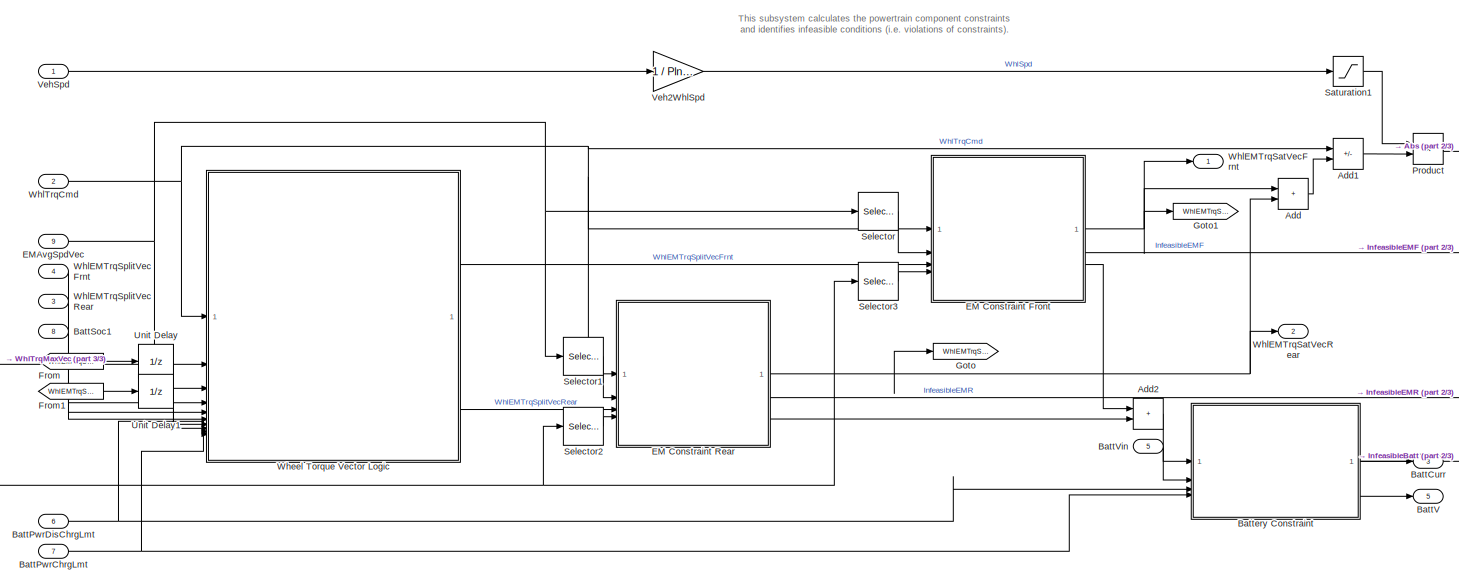
[diagram: Energy Management/Powertrain Constraints  - part 1/3, most of the canvas]
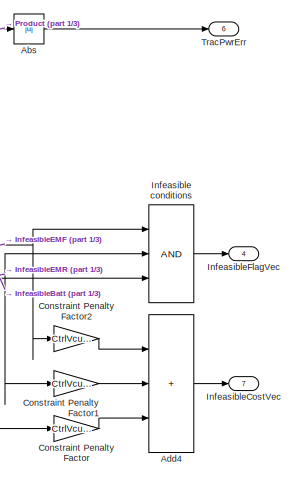
[diagram: Energy Management/Powertrain Constraints  - part 2/3, right side, full height]
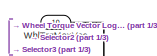
[diagram: Energy Management/Powertrain Constraints  - part 3/3, middle left region]
BLOCK [SubSystem] Energy Management/Powertrain Constraints 
  InitFcn = [~] =  autosharedeval('1');
BLOCK [Abs] Energy Management/Powertrain Constraints /Abs
  SaturateOnIntegerOverflow = off
BLOCK [Sum] Energy Management/Powertrain Constraints /Add
  IconShape = rectangular
BLOCK [Sum] Energy Management/Powertrain Constraints /Add1
  IconShape = rectangular
  Inputs = +-
BLOCK [Sum] Energy Management/Powertrain Constraints /Add2
  IconShape = rectangular
BLOCK [Sum] Energy Management/Powertrain Constraints /Add4
  IconShape = rectangular
  Inputs = +++
BLOCK [Outport] Energy Management/Powertrain Constraints /BattCurr
  Port = 3
  VectorParamsAs1DForOutWhenUnconnected = off
BLOCK [Inport] Energy Management/Powertrain Constraints /BattPwrChrgLmt 
  Port = 7
BLOCK [Inport] Energy Management/Powertrain Constraints /BattPwrDisChrgLmt
  Port = 6
BLOCK [Inport] Energy Management/Powertrain Constraints /BattSoc1
  Port = 8
BLOCK [Outport] Energy Management/Powertrain Constraints /BattV
  Port = 5
  VectorParamsAs1DForOutWhenUnconnected = off
BLOCK [Inport] Energy Management/Powertrain Constraints /BattVin
  Port = 5
BLOCK [SubSystem] Energy Management/Powertrain Constraints /Battery Constraint
  InitFcn = [~] =  autosharedeval('1');
BLOCK [Outport] Energy Management/Powertrain Constraints /Battery Constraint/BattCurr
  Port = 2
  VectorParamsAs1DForOutWhenUnconnected = off
BLOCK [Inport] Energy Management/Powertrain Constraints /Battery Constraint/BattPwrChrgLmt 
  Port = 4
BLOCK [Inport] Energy Management/Powertrain Constraints /Battery Constraint/BattPwrDisChrgLmt
  Port = 3
BLOCK [Outport] Energy Management/Powertrain Constraints /Battery Constraint/BattV
  Port = 3
  VectorParamsAs1DForOutWhenUnconnected = off
BLOCK [Inport] Energy Management/Powertrain Constraints /Battery Constraint/BattVin
  Port = 2
BLOCK [Inport] Energy Management/Powertrain Constraints /Battery Constraint/EMPwrElecVec
BLOCK [SubSystem] Energy Management/Powertrain Constraints /Battery Constraint/Electrical Current
BLOCK [Inport] Energy Management/Powertrain Constraints /Battery Constraint/Electrical Current/BattV
BLOCK [Outport] Energy Management/Powertrain Constraints /Battery Constraint/Electrical Current/BatteryAmp
  VectorParamsAs1DForOutWhenUnconnected = off
BLOCK [SubSystem] Energy Management/Powertrain Constraints /Battery Constraint/Electrical Current/DC-DC Eta
  LabelModeActiveChoice = 0
  Variant = on
  VariantControl = Variant1
  VariantControlMode = label
BLOCK [SubSystem] Energy Management/Powertrain Constraints /Battery Constraint/Electrical Current/DC-DC Eta/DC-DC Eta
  VariantControl = 1
BLOCK [Gain] Energy Management/Powertrain Constraints /Battery Constraint/Electrical Current/DC-DC Eta/DC-DC Eta/DCDC Constant Eff
  Gain = 1+(100-eff)/100
BLOCK [Inport] Energy Management/Powertrain Constraints /Battery Constraint/Electrical Current/DC-DC Eta/DC-DC Eta/In
BLOCK [Outport] Energy Management/Powertrain Constraints /Battery Constraint/Electrical Current/DC-DC Eta/DC-DC Eta/Out
  VectorParamsAs1DForOutWhenUnconnected = off
BLOCK [Inport] Energy Management/Powertrain Constraints /Battery Constraint/Electrical Current/DC-DC Eta/In
BLOCK [SubSystem] Energy Management/Powertrain Constraints /Battery Constraint/Electrical Current/DC-DC Eta/No DC-DC
  VariantControl = 0
BLOCK [Inport] Energy Management/Powertrain Constraints /Battery Constraint/Electrical Current/DC-DC Eta/No DC-DC/In
BLOCK [Outport] Energy Management/Powertrain Constraints /Battery Constraint/Electrical Current/DC-DC Eta/No DC-DC/Out
  VectorParamsAs1DForOutWhenUnconnected = off
BLOCK [Outport] Energy Management/Powertrain Constraints /Battery Constraint/Electrical Current/DC-DC Eta/Out
  VectorParamsAs1DForOutWhenUnconnected = off
BLOCK [Product] Energy Management/Powertrain Constraints /Battery Constraint/Electrical Current/Divide
  Inputs = */
BLOCK [Inport] Energy Management/Powertrain Constraints /Battery Constraint/Electrical Current/EMPwrElecVec
  Port = 2
BLOCK [Saturate] Energy Management/Powertrain Constraints /Battery Constraint/Electrical Current/Saturation
  LowerLimit = 0.0001
  UpperLimit = Inf
BLOCK [From] Energy Management/Powertrain Constraints /Battery Constraint/From
  GotoTag = DischrgLmt
BLOCK [From] Energy Management/Powertrain Constraints /Battery Constraint/From1
  GotoTag = ChrgLmt
BLOCK [From] Energy Management/Powertrain Constraints /Battery Constraint/From2
  GotoTag = DischrgLmt
BLOCK [From] Energy Management/Powertrain Constraints /Battery Constraint/From3
  GotoTag = ChrgLmt
BLOCK [Goto] Energy Management/Powertrain Constraints /Battery Constraint/Goto
  GotoTag = DischrgLmt
BLOCK [Goto] Energy Management/Powertrain Constraints /Battery Constraint/Goto1
  GotoTag = ChrgLmt
BLOCK [Outport] Energy Management/Powertrain Constraints /Battery Constraint/InfeasibleBatt
  VectorParamsAs1DForOutWhenUnconnected = off
BLOCK [Logic] Energy Management/Powertrain Constraints /Battery Constraint/Logical Operator
  AllPortsSameDT = off
  Inputs = 4
  Operator = OR
  OutDataTypeStr = boolean
BLOCK [SubSystem] Energy Management/Powertrain Constraints /Battery Constraint/Power Limit Calculations
BLOCK [Outport] Energy Management/Powertrain Constraints /Battery Constraint/Power Limit Calculations/BattCurrChrgLmt
  Port = 2
  VectorParamsAs1DForOutWhenUnconnected = off
BLOCK [Outport] Energy Management/Powertrain Constraints /Battery Constraint/Power Limit Calculations/BattCurrDischrgLmt
  VectorParamsAs1DForOutWhenUnconnected = off
BLOCK [Outport] Energy Management/Powertrain Constraints /Battery Constraint/Power Limit Calculations/BattPwrChrgLmt
  Port = 4
  VectorParamsAs1DForOutWhenUnconnected = off
BLOCK [Inport] Energy Management/Powertrain Constraints /Battery Constraint/Power Limit Calculations/BattPwrChrgLmt 
  Port = 2
BLOCK [Inport] Energy Management/Powertrain Constraints /Battery Constraint/Power Limit Calculations/BattPwrDisChrgLmt
BLOCK [Outport] Energy Management/Powertrain Constraints /Battery Constraint/Power Limit Calculations/BattPwrDischrgLmt
  Port = 3
  VectorParamsAs1DForOutWhenUnconnected = off
BLOCK [Inport] Energy Management/Powertrain Constraints /Battery Constraint/Power Limit Calculations/BattV_in
  Port = 3
BLOCK [DataTypeConversion] Energy Management/Powertrain Constraints /Battery Constraint/Power Limit Calculations/Data Type Conversion
  RndMeth = Floor
  SaturateOnIntegerOverflow = off
BLOCK [DataTypeConversion] Energy Management/Powertrain Constraints /Battery Constraint/Power Limit Calculations/Data Type Conversion1
  RndMeth = Floor
  SaturateOnIntegerOverflow = off
BLOCK [Product] Energy Management/Powertrain Constraints /Battery Constraint/Power Limit Calculations/Divide
  Inputs = */
BLOCK [Product] Energy Management/Powertrain Constraints /Battery Constraint/Power Limit Calculations/Divide1
  Inputs = /*
BLOCK [Reference] Energy Management/Powertrain Constraints /Battery Constraint/Power Limit Calculations/div0protect - poly  REF=autolibutils/div0protect - poly
  SourceBlock = autolibutils/div0protect - poly
BLOCK [Reference] Energy Management/Powertrain Constraints /Battery Constraint/Power Limit Calculations/div0protect - poly1  REF=autolibutils/div0protect - poly
  SourceBlock = autolibutils/div0protect - poly
BLOCK [RelationalOperator] Energy Management/Powertrain Constraints /Battery Constraint/Relational Operator
  InputSameDT = off
  Operator = >
  OutDataTypeStr = boolean
BLOCK [RelationalOperator] Energy Management/Powertrain Constraints /Battery Constraint/Relational Operator1
  InputSameDT = off
  Operator = >
  OutDataTypeStr = boolean
BLOCK [RelationalOperator] Energy Management/Powertrain Constraints /Battery Constraint/Relational Operator2
  InputSameDT = off
  Operator = <
  OutDataTypeStr = boolean
BLOCK [RelationalOperator] Energy Management/Powertrain Constraints /Battery Constraint/Relational Operator3
  InputSameDT = off
  Operator = <
  OutDataTypeStr = boolean
BLOCK [Reference] Energy Management/Powertrain Constraints /Battery Constraint/Saturation Dynamic  REF=simulink/Discontinuities/Saturation
Dynamic
  SourceBlock = simulink/Discontinuities/Saturation\nDynamic
  SourceType = Saturation Dynamic
BLOCK [Gain] Energy Management/Powertrain Constraints /Constraint Penalty Factor
  Gain = CtrlVcuBattPnlty
BLOCK [Gain] Energy Management/Powertrain Constraints /Constraint Penalty Factor1
  Gain = CtrlVcuEMPnlty
BLOCK [Gain] Energy Management/Powertrain Constraints /Constraint Penalty Factor2
  Gain = CtrlVcuEMPnlty
BLOCK [SubSystem] Energy Management/Powertrain Constraints /EM Constraint Front
  InitFcn = [~] =  autosharedeval('1');
BLOCK [Inport] Energy Management/Powertrain Constraints /EM Constraint Front/EMAvgSpdVec
  Port = 2
BLOCK [Outport] Energy Management/Powertrain Constraints /EM Constraint Front/EMPwrElecVec
  Port = 3
  VectorParamsAs1DForOutWhenUnconnected = off
BLOCK [Outport] Energy Management/Powertrain Constraints /EM Constraint Front/InfeasibleEMVec
  Port = 2
  VectorParamsAs1DForOutWhenUnconnected = off
BLOCK [SubSystem] Energy Management/Powertrain Constraints /EM Constraint Front/Maximum Torque
  VariantControl = 2EM
BLOCK [Reference] Energy Management/Powertrain Constraints /EM Constraint Front/Maximum Torque/Compare To Zero  REF=simulink/Logic and Bit
Operations/Compare
To Zero
  SourceBlock = simulink/Logic and Bit\nOperations/Compare\nTo Zero
  SourceType = Compare To Zero
BLOCK [Reference] Energy Management/Powertrain Constraints /EM Constraint Front/Maximum Torque/Compare To Zero1  REF=simulink/Logic and Bit
Operations/Compare
To Zero
  SourceBlock = simulink/Logic and Bit\nOperations/Compare\nTo Zero
  SourceType = Compare To Zero
BLOCK [Gain] Energy Management/Powertrain Constraints /EM Constraint Front/Maximum Torque/Gain
  Gain = -1
BLOCK [Outport] Energy Management/Powertrain Constraints /EM Constraint Front/Maximum Torque/InfeasibleEMVec
  Port = 2
  VectorParamsAs1DForOutWhenUnconnected = off
BLOCK [Logic] Energy Management/Powertrain Constraints /EM Constraint Front/Maximum Torque/Logical Operator
  AllPortsSameDT = off
  Inputs = 3
  Operator = OR
  OutDataTypeStr = boolean
BLOCK [Logic] Energy Management/Powertrain Constraints /EM Constraint Front/Maximum Torque/Logical Operator1
  AllPortsSameDT = off
  OutDataTypeStr = boolean
BLOCK [RelationalOperator] Energy Management/Powertrain Constraints /EM Constraint Front/Maximum Torque/Relational Operator
  InputSameDT = off
  Operator = <
  OutDataTypeStr = boolean
  RndMeth = Simplest
BLOCK [RelationalOperator] Energy Management/Powertrain Constraints /EM Constraint Front/Maximum Torque/Relational Operator1
  InputSameDT = off
  Operator = <
  OutDataTypeStr = boolean
  RndMeth = Simplest
BLOCK [Reference] Energy Management/Powertrain Constraints /EM Constraint Front/Maximum Torque/Saturation Dynamic  REF=simulink/Discontinuities/Saturation
Dynamic
  SourceBlock = simulink/Discontinuities/Saturation\nDynamic
  SourceType = Saturation Dynamic
BLOCK [Outport] Energy Management/Powertrain Constraints /EM Constraint Front/Maximum Torque/WhlEMTrqSatVec
  VectorParamsAs1DForOutWhenUnconnected = off
BLOCK [Inport] Energy Management/Powertrain Constraints /EM Constraint Front/Maximum Torque/WhlEMTrqSplitVecFrnt
  Port = 2
BLOCK [Inport] Energy Management/Powertrain Constraints /EM Constraint Front/Maximum Torque/WhlTrqCmd
BLOCK [Inport] Energy Management/Powertrain Constraints /EM Constraint Front/Maximum Torque/WhlTrqMaxVec
  Port = 3
BLOCK [SubSystem] Energy Management/Powertrain Constraints /EM Constraint Front/Tabular Power Loss Data
  LabelModeActiveChoice = 2EM or 3EM Dual Rear
  Variant = on
  VariantControl = Choice
  VariantControlMode = label
BLOCK [SubSystem] Energy Management/Powertrain Constraints /EM Constraint Front/Tabular Power Loss Data/2EM or 3EM Dual Rear
  VariantControl = 2EM or 3EM Dual Rear
BLOCK [Abs] Energy Management/Powertrain Constraints /EM Constraint Front/Tabular Power Loss Data/2EM or 3EM Dual Rear/Abs
  SaturateOnIntegerOverflow = off
BLOCK [Abs] Energy Management/Powertrain Constraints /EM Constraint Front/Tabular Power Loss Data/2EM or 3EM Dual Rear/Abs1
  SaturateOnIntegerOverflow = off
BLOCK [Constant] Energy Management/Powertrain Constraints /EM Constraint Front/Tabular Power Loss Data/2EM or 3EM Dual Rear/Constant1
  SampleTime = -1
  Value = -1
BLOCK [Constant] Energy Management/Powertrain Constraints /EM Constraint Front/Tabular Power Loss Data/2EM or 3EM Dual Rear/Constant2
  SampleTime = -1
BLOCK [Inport] Energy Management/Powertrain Constraints /EM Constraint Front/Tabular Power Loss Data/2EM or 3EM Dual Rear/EMAvgSpdVec
BLOCK [Outport] Energy Management/Powertrain Constraints /EM Constraint Front/Tabular Power Loss Data/2EM or 3EM Dual Rear/EMPwrElecVec
  VectorParamsAs1DForOutWhenUnconnected = off
BLOCK [Lookup_n-D] Energy Management/Powertrain Constraints /EM Constraint Front/Tabular Power Loss Data/2EM or 3EM Dual Rear/Eff Map
  BeginIndexSearchUsingPreviousIndexResult = on
  BreakpointsForDimension1 = PlntEM1Spd
  BreakpointsForDimension2 = PlntEM1TrqEff
  ExtrapMethod = Clip
  InputPortMap = u0,u1
  InternalRulePriority = Speed
  OutDataTypeStr = Inherit: Inherit from 'Table data'
  RndMeth = Simplest
  Table = PlntEM1EffTbl
  UseLastTableValue = on
BLOCK [Gain] Energy Management/Powertrain Constraints /EM Constraint Front/Tabular Power Loss Data/2EM or 3EM Dual Rear/Gain2
  Gain = 1/100
BLOCK [Math] Energy Management/Powertrain Constraints /EM Constraint Front/Tabular Power Loss Data/2EM or 3EM Dual Rear/Math Function1
  Operator = pow
  OutputSignalType = real
  SignedPower = on
BLOCK [Product] Energy Management/Powertrain Constraints /EM Constraint Front/Tabular Power Loss Data/2EM or 3EM Dual Rear/Product1
BLOCK [Product] Energy Management/Powertrain Constraints /EM Constraint Front/Tabular Power Loss Data/2EM or 3EM Dual Rear/Product4
BLOCK [Switch] Energy Management/Powertrain Constraints /EM Constraint Front/Tabular Power Loss Data/2EM or 3EM Dual Rear/Switch2
  InputSameDT = off
  SaturateOnIntegerOverflow = off
BLOCK [Inport] Energy Management/Powertrain Constraints /EM Constraint Front/Tabular Power Loss Data/2EM or 3EM Dual Rear/WhlEMTrqSatVec
  Port = 2
BLOCK [SubSystem] Energy Management/Powertrain Constraints /EM Constraint Front/Tabular Power Loss Data/2EM or 3EM Dual Rear/WhlTrq2EMTrq
  VariantControl = 2EM or 3EMDualFront
BLOCK [SubSystem] Energy Management/Powertrain Constraints /EM Constraint Front/Tabular Power Loss Data/2EM or 3EM Dual Rear/WhlTrq2EMTrq/Diff Eta
BLOCK [Constant] Energy Management/Powertrain Constraints /EM Constraint Front/Tabular Power Loss Data/2EM or 3EM Dual Rear/WhlTrq2EMTrq/Diff Eta/Constant
  Value = PlntDiffrntl2Eff
BLOCK [Constant] Energy Management/Powertrain Constraints /EM Constraint Front/Tabular Power Loss Data/2EM or 3EM Dual Rear/WhlTrq2EMTrq/Diff Eta/Constant1
  SampleTime = -1
BLOCK [Constant] Energy Management/Powertrain Constraints /EM Constraint Front/Tabular Power Loss Data/2EM or 3EM Dual Rear/WhlTrq2EMTrq/Diff Eta/Constant2
  SampleTime = -1
  Value = -1
BLOCK [Math] Energy Management/Powertrain Constraints /EM Constraint Front/Tabular Power Loss Data/2EM or 3EM Dual Rear/WhlTrq2EMTrq/Diff Eta/Math Function1
  Operator = pow
  OutputSignalType = real
  SignedPower = on
BLOCK [Product] Energy Management/Powertrain Constraints /EM Constraint Front/Tabular Power Loss Data/2EM or 3EM Dual Rear/WhlTrq2EMTrq/Diff Eta/Product1
BLOCK [Inport] Energy Management/Powertrain Constraints /EM Constraint Front/Tabular Power Loss Data/2EM or 3EM Dual Rear/WhlTrq2EMTrq/Diff Eta/SpdIn
BLOCK [Switch] Energy Management/Powertrain Constraints /EM Constraint Front/Tabular Power Loss Data/2EM or 3EM Dual Rear/WhlTrq2EMTrq/Diff Eta/Switch2
  InputSameDT = off
  SaturateOnIntegerOverflow = off
BLOCK [Inport] Energy Management/Powertrain Constraints /EM Constraint Front/Tabular Power Loss Data/2EM or 3EM Dual Rear/WhlTrq2EMTrq/Diff Eta/TrqIn
  Port = 2
BLOCK [Outport] Energy Management/Powertrain Constraints /EM Constraint Front/Tabular Power Loss Data/2EM or 3EM Dual Rear/WhlTrq2EMTrq/Diff Eta/eta
  VectorParamsAs1DForOutWhenUnconnected = off
BLOCK [Product] Energy Management/Powertrain Constraints /EM Constraint Front/Tabular Power Loss Data/2EM or 3EM Dual Rear/WhlTrq2EMTrq/Divide2
  Inputs = /*
BLOCK [Inport] Energy Management/Powertrain Constraints /EM Constraint Front/Tabular Power Loss Data/2EM or 3EM Dual Rear/WhlTrq2EMTrq/EMSpd
BLOCK [Outport] Energy Management/Powertrain Constraints /EM Constraint Front/Tabular Power Loss Data/2EM or 3EM Dual Rear/WhlTrq2EMTrq/EMTrq
  VectorParamsAs1DForOutWhenUnconnected = off
BLOCK [Gain] Energy Management/Powertrain Constraints /EM Constraint Front/Tabular Power Loss Data/2EM or 3EM Dual Rear/WhlTrq2EMTrq/Gain3
  Gain = 1/PlntDiffrntlRatio
BLOCK [UnitDelay] Energy Management/Powertrain Constraints /EM Constraint Front/Tabular Power Loss Data/2EM or 3EM Dual Rear/WhlTrq2EMTrq/Unit Delay
  HasFrameUpgradeWarning = on
  SampleTime = -1
BLOCK [Inport] Energy Management/Powertrain Constraints /EM Constraint Front/Tabular Power Loss Data/2EM or 3EM Dual Rear/WhlTrq2EMTrq/WhlTrqCmd
  Port = 2
BLOCK [SubSystem] Energy Management/Powertrain Constraints /EM Constraint Front/Tabular Power Loss Data/3EM Dual Front or 4EM
  VariantControl = 3EM Dual Front or 4EM
BLOCK [Abs] Energy Management/Powertrain Constraints /EM Constraint Front/Tabular Power Loss Data/3EM Dual Front or 4EM/Abs
  SaturateOnIntegerOverflow = off
BLOCK [Abs] Energy Management/Powertrain Constraints /EM Constraint Front/Tabular Power Loss Data/3EM Dual Front or 4EM/Abs1
  SaturateOnIntegerOverflow = off
BLOCK [Constant] Energy Management/Powertrain Constraints /EM Constraint Front/Tabular Power Loss Data/3EM Dual Front or 4EM/Constant1
  SampleTime = -1
  Value = -1
BLOCK [Constant] Energy Management/Powertrain Constraints /EM Constraint Front/Tabular Power Loss Data/3EM Dual Front or 4EM/Constant2
  SampleTime = -1
BLOCK [Inport] Energy Management/Powertrain Constraints /EM Constraint Front/Tabular Power Loss Data/3EM Dual Front or 4EM/EMAvgSpdVec
BLOCK [Outport] Energy Management/Powertrain Constraints /EM Constraint Front/Tabular Power Loss Data/3EM Dual Front or 4EM/EMPwrElecVec
  VectorParamsAs1DForOutWhenUnconnected = off
BLOCK [Lookup_n-D] Energy Management/Powertrain Constraints /EM Constraint Front/Tabular Power Loss Data/3EM Dual Front or 4EM/Eff Map
  BeginIndexSearchUsingPreviousIndexResult = on
  BreakpointsForDimension1 = PlntEM1Spd
  BreakpointsForDimension2 = PlntEM1TrqEff
  ExtrapMethod = Clip
  InputPortMap = u0,u1
  InternalRulePriority = Speed
  OutDataTypeStr = Inherit: Inherit from 'Table data'
  RndMeth = Simplest
  Table = PlntEM1EffTbl
  UseLastTableValue = on
BLOCK [Gain] Energy Management/Powertrain Constraints /EM Constraint Front/Tabular Power Loss Data/3EM Dual Front or 4EM/Gain2
  Gain = 1/100
BLOCK [Math] Energy Management/Powertrain Constraints /EM Constraint Front/Tabular Power Loss Data/3EM Dual Front or 4EM/Math Function1
  Operator = pow
  OutputSignalType = real
  SignedPower = on
BLOCK [Product] Energy Management/Powertrain Constraints /EM Constraint Front/Tabular Power Loss Data/3EM Dual Front or 4EM/Product1
BLOCK [Product] Energy Management/Powertrain Constraints /EM Constraint Front/Tabular Power Loss Data/3EM Dual Front or 4EM/Product4
BLOCK [Switch] Energy Management/Powertrain Constraints /EM Constraint Front/Tabular Power Loss Data/3EM Dual Front or 4EM/Switch2
  InputSameDT = off
  SaturateOnIntegerOverflow = off
BLOCK [Inport] Energy Management/Powertrain Constraints /EM Constraint Front/Tabular Power Loss Data/3EM Dual Front or 4EM/WhlEMTrqSatVec
  Port = 2
BLOCK [SubSystem] Energy Management/Powertrain Constraints /EM Constraint Front/Tabular Power Loss Data/3EM Dual Front or 4EM/WhlTrq2EMTrq
  VariantControl = 3EMDualRear or 4EM
BLOCK [Product] Energy Management/Powertrain Constraints /EM Constraint Front/Tabular Power Loss Data/3EM Dual Front or 4EM/WhlTrq2EMTrq/Divide2
  Inputs = /*
BLOCK [Gain] Energy Management/Powertrain Constraints /EM Constraint Front/Tabular Power Loss Data/3EM Dual Front or 4EM/WhlTrq2EMTrq/Dual EMs
  Gain = 1/2
BLOCK [Inport] Energy Management/Powertrain Constraints /EM Constraint Front/Tabular Power Loss Data/3EM Dual Front or 4EM/WhlTrq2EMTrq/EMSpd
BLOCK [Outport] Energy Management/Powertrain Constraints /EM Constraint Front/Tabular Power Loss Data/3EM Dual Front or 4EM/WhlTrq2EMTrq/EMTrq
  VectorParamsAs1DForOutWhenUnconnected = off
BLOCK [Gain] Energy Management/Powertrain Constraints /EM Constraint Front/Tabular Power Loss Data/3EM Dual Front or 4EM/WhlTrq2EMTrq/Gain3
  Gain = 1/PlntEMWhlGearRatioFL
BLOCK [SubSystem] Energy Management/Powertrain Constraints /EM Constraint Front/Tabular Power Loss Data/3EM Dual Front or 4EM/WhlTrq2EMTrq/Gear Eta
BLOCK [Constant] Energy Management/Powertrain Constraints /EM Constraint Front/Tabular Power Loss Data/3EM Dual Front or 4EM/WhlTrq2EMTrq/Gear Eta/Constant
  Value = PlntEMWhlGearEffRL
BLOCK [Constant] Energy Management/Powertrain Constraints /EM Constraint Front/Tabular Power Loss Data/3EM Dual Front or 4EM/WhlTrq2EMTrq/Gear Eta/Constant1
  SampleTime = -1
BLOCK [Constant] Energy Management/Powertrain Constraints /EM Constraint Front/Tabular Power Loss Data/3EM Dual Front or 4EM/WhlTrq2EMTrq/Gear Eta/Constant2
  SampleTime = -1
  Value = -1
BLOCK [Math] Energy Management/Powertrain Constraints /EM Constraint Front/Tabular Power Loss Data/3EM Dual Front or 4EM/WhlTrq2EMTrq/Gear Eta/Math Function1
  Operator = pow
  OutputSignalType = real
  SignedPower = on
BLOCK [Product] Energy Management/Powertrain Constraints /EM Constraint Front/Tabular Power Loss Data/3EM Dual Front or 4EM/WhlTrq2EMTrq/Gear Eta/Product1
BLOCK [Inport] Energy Management/Powertrain Constraints /EM Constraint Front/Tabular Power Loss Data/3EM Dual Front or 4EM/WhlTrq2EMTrq/Gear Eta/SpdIn
BLOCK [Switch] Energy Management/Powertrain Constraints /EM Constraint Front/Tabular Power Loss Data/3EM Dual Front or 4EM/WhlTrq2EMTrq/Gear Eta/Switch2
  InputSameDT = off
  SaturateOnIntegerOverflow = off
BLOCK [Inport] Energy Management/Powertrain Constraints /EM Constraint Front/Tabular Power Loss Data/3EM Dual Front or 4EM/WhlTrq2EMTrq/Gear Eta/TrqIn
  Port = 2
BLOCK [Outport] Energy Management/Powertrain Constraints /EM Constraint Front/Tabular Power Loss Data/3EM Dual Front or 4EM/WhlTrq2EMTrq/Gear Eta/eta
  VectorParamsAs1DForOutWhenUnconnected = off
BLOCK [UnitDelay] Energy Management/Powertrain Constraints /EM Constraint Front/Tabular Power Loss Data/3EM Dual Front or 4EM/WhlTrq2EMTrq/Unit Delay
  HasFrameUpgradeWarning = on
  SampleTime = -1
BLOCK [Inport] Energy Management/Powertrain Constraints /EM Constraint Front/Tabular Power Loss Data/3EM Dual Front or 4EM/WhlTrq2EMTrq/WhlTrqCmd
  Port = 2
BLOCK [Inport] Energy Management/Powertrain Constraints /EM Constraint Front/Tabular Power Loss Data/EMAvgSpdVec
BLOCK [Outport] Energy Management/Powertrain Constraints /EM Constraint Front/Tabular Power Loss Data/EMPwrElecVec
BLOCK [Inport] Energy Management/Powertrain Constraints /EM Constraint Front/Tabular Power Loss Data/WhlEMTrqSatVec
  Port = 2
BLOCK [SubSystem] Energy Management/Powertrain Constraints /EM Constraint Front/Wheel Torque Saturation for Max g Rates1
BLOCK [Constant] Energy Management/Powertrain Constraints /EM Constraint Front/Wheel Torque Saturation for Max g Rates1/Constant
  SampleTime = -1
  Value = 0
BLOCK [Gain] Energy Management/Powertrain Constraints /EM Constraint Front/Wheel Torque Saturation for Max g Rates1/Road mu
  Gain = CtrlVcuRoadMuEst
BLOCK [Gain] Energy Management/Powertrain Constraints /EM Constraint Front/Wheel Torque Saturation for Max g Rates1/Road mu1
  Gain = CtrlVcuRoadMuEst
BLOCK [Gain] Energy Management/Powertrain Constraints /EM Constraint Front/Wheel Torque Saturation for Max g Rates1/Safety Factor
  Gain = CtrlVcuSftyFctr
BLOCK [Gain] Energy Management/Powertrain Constraints /EM Constraint Front/Wheel Torque Saturation for Max g Rates1/Safety Factor1
  Gain = CtrlVcuSftyFctr
BLOCK [Reference] Energy Management/Powertrain Constraints /EM Constraint Front/Wheel Torque Saturation for Max g Rates1/Saturation Dynamic3  REF=simulink/Discontinuities/Saturation
Dynamic
  SourceBlock = simulink/Discontinuities/Saturation\nDynamic
  SourceType = Saturation Dynamic
BLOCK [Selector] Energy Management/Powertrain Constraints /EM Constraint Front/Wheel Torque Saturation for Max g Rates1/Selector4
  IndexOptions = Index vector (dialog)
  Indices = 1
  InputPortWidth = 2
  OutputSizes = 1
BLOCK [Selector] Energy Management/Powertrain Constraints /EM Constraint Front/Wheel Torque Saturation for Max g Rates1/Selector6
  IndexOptions = Index vector (dialog)
  Indices = 1
  InputPortWidth = 2
  OutputSizes = 1
BLOCK [Switch] Energy Management/Powertrain Constraints /EM Constraint Front/Wheel Torque Saturation for Max g Rates1/Switch
  Criteria = u2 > Threshold
  InputSameDT = off
  SaturateOnIntegerOverflow = off
BLOCK [Switch] Energy Management/Powertrain Constraints /EM Constraint Front/Wheel Torque Saturation for Max g Rates1/Switch1
  Criteria = u2 > Threshold
  InputSameDT = off
  SaturateOnIntegerOverflow = off
BLOCK [Inport] Energy Management/Powertrain Constraints /EM Constraint Front/Wheel Torque Saturation for Max g Rates1/Tqin
  Port = 2
BLOCK [SubSystem] Energy Management/Powertrain Constraints /EM Constraint Front/Wheel Torque Saturation for Max g Rates1/Wheel Torque Limit at Max g Rates
BLOCK [Constant] Energy Management/Powertrain Constraints /EM Constraint Front/Wheel Torque Saturation for Max g Rates1/Wheel Torque Limit at Max g Rates/Constant6
  SampleTime = -1
  Value = CtrlVcuMaxDecelG
BLOCK [Constant] Energy Management/Powertrain Constraints /EM Constraint Front/Wheel Torque Saturation for Max g Rates1/Wheel Torque Limit at Max g Rates/Constant7
  SampleTime = -1
  Value = CtrlVcuMaxAccelG
BLOCK [Gain] Energy Management/Powertrain Constraints /EM Constraint Front/Wheel Torque Saturation for Max g Rates1/Wheel Torque Limit at Max g Rates/Gain
  Gain = -1
BLOCK [SubSystem] Energy Management/Powertrain Constraints /EM Constraint Front/Wheel Torque Saturation for Max g Rates1/Wheel Torque Limit at Max g Rates/Wheel Torque at Max Acceleration Rate
  InitFcn = [~]=license('checkout','vehicle_dynamics_blockset');
  VariantControl = tractorVariant==3
BLOCK [Sum] Energy Management/Powertrain Constraints /EM Constraint Front/Wheel Torque Saturation for Max g Rates1/Wheel Torque Limit at Max g Rates/Wheel Torque at Max Acceleration Rate/Add1
  IconShape = rectangular
BLOCK [Sum] Energy Management/Powertrain Constraints /EM Constraint Front/Wheel Torque Saturation for Max g Rates1/Wheel Torque Limit at Max g Rates/Wheel Torque at Max Acceleration Rate/Add2
  IconShape = rectangular
  Inputs = +-
BLOCK [Sum] Energy Management/Powertrain Constraints /EM Constraint Front/Wheel Torque Saturation for Max g Rates1/Wheel Torque Limit at Max g Rates/Wheel Torque at Max Acceleration Rate/Add3
  IconShape = rectangular
BLOCK [Sum] Energy Management/Powertrain Constraints /EM Constraint Front/Wheel Torque Saturation for Max g Rates1/Wheel Torque Limit at Max g Rates/Wheel Torque at Max Acceleration Rate/Add4
  IconShape = rectangular
BLOCK [Sum] Energy Management/Powertrain Constraints /EM Constraint Front/Wheel Torque Saturation for Max g Rates1/Wheel Torque Limit at Max g Rates/Wheel Torque at Max Acceleration Rate/Add5
  IconShape = rectangular
BLOCK [Sum] Energy Management/Powertrain Constraints /EM Constraint Front/Wheel Torque Saturation for Max g Rates1/Wheel Torque Limit at Max g Rates/Wheel Torque at Max Acceleration Rate/Add6
  IconShape = rectangular
BLOCK [Constant] Energy Management/Powertrain Constraints /EM Constraint Front/Wheel Torque Saturation for Max g Rates1/Wheel Torque Limit at Max g Rates/Wheel Torque at Max Acceleration Rate/Constant1
  NameLocation = top
  SampleTime = -1
  Value = PlntVehDstCGFrntAxl
BLOCK [Constant] Energy Management/Powertrain Constraints /EM Constraint Front/Wheel Torque Saturation for Max g Rates1/Wheel Torque Limit at Max g Rates/Wheel Torque at Max Acceleration Rate/Constant11
  NameLocation = top
  SampleTime = -1
  Value = PlntVehDstCGFrntAxl
BLOCK [Constant] Energy Management/Powertrain Constraints /EM Constraint Front/Wheel Torque Saturation for Max g Rates1/Wheel Torque Limit at Max g Rates/Wheel Torque at Max Acceleration Rate/Constant12
  NameLocation = top
  SampleTime = -1
  Value = PlntVehDstCGRearAxl
BLOCK [Constant] Energy Management/Powertrain Constraints /EM Constraint Front/Wheel Torque Saturation for Max g Rates1/Wheel Torque Limit at Max g Rates/Wheel Torque at Max Acceleration Rate/Constant13
  NameLocation = top
  SampleTime = -1
  Value = PlntVehCGHgtAxl
BLOCK [Constant] Energy Management/Powertrain Constraints /EM Constraint Front/Wheel Torque Saturation for Max g Rates1/Wheel Torque Limit at Max g Rates/Wheel Torque at Max Acceleration Rate/Constant14
  NameLocation = top
  SampleTime = -1
  Value = PlntWhlLdRadius
BLOCK [Constant] Energy Management/Powertrain Constraints /EM Constraint Front/Wheel Torque Saturation for Max g Rates1/Wheel Torque Limit at Max g Rates/Wheel Torque at Max Acceleration Rate/Constant2
  NameLocation = top
  SampleTime = -1
  Value = PlntVehDstCGRearAxl
BLOCK [Constant] Energy Management/Powertrain Constraints /EM Constraint Front/Wheel Torque Saturation for Max g Rates1/Wheel Torque Limit at Max g Rates/Wheel Torque at Max Acceleration Rate/Constant20
  NameLocation = right
  SampleTime = -1
  Value = EnvGrvty
BLOCK [Constant] Energy Management/Powertrain Constraints /EM Constraint Front/Wheel Torque Saturation for Max g Rates1/Wheel Torque Limit at Max g Rates/Wheel Torque at Max Acceleration Rate/Constant3
  NameLocation = right
  SampleTime = -1
  Value = EnvGrvty
BLOCK [Constant] Energy Management/Powertrain Constraints /EM Constraint Front/Wheel Torque Saturation for Max g Rates1/Wheel Torque Limit at Max g Rates/Wheel Torque at Max Acceleration Rate/Constant4
  NameLocation = top
  SampleTime = -1
  Value = PlntVehMass
BLOCK [Constant] Energy Management/Powertrain Constraints /EM Constraint Front/Wheel Torque Saturation for Max g Rates1/Wheel Torque Limit at Max g Rates/Wheel Torque at Max Acceleration Rate/Constant5
  NameLocation = top
  SampleTime = -1
  Value = PlntVehDstCGFrntAxl
BLOCK [Constant] Energy Management/Powertrain Constraints /EM Constraint Front/Wheel Torque Saturation for Max g Rates1/Wheel Torque Limit at Max g Rates/Wheel Torque at Max Acceleration Rate/Constant6
  NameLocation = top
  SampleTime = -1
  Value = PlntVehDstCGRearAxl
BLOCK [Constant] Energy Management/Powertrain Constraints /EM Constraint Front/Wheel Torque Saturation for Max g Rates1/Wheel Torque Limit at Max g Rates/Wheel Torque at Max Acceleration Rate/Constant7
  NameLocation = top
  SampleTime = -1
  Value = PlntVehCGHgtAxl
BLOCK [Constant] Energy Management/Powertrain Constraints /EM Constraint Front/Wheel Torque Saturation for Max g Rates1/Wheel Torque Limit at Max g Rates/Wheel Torque at Max Acceleration Rate/Constant8
  NameLocation = top
  SampleTime = -1
  Value = PlntVehMass
BLOCK [Constant] Energy Management/Powertrain Constraints /EM Constraint Front/Wheel Torque Saturation for Max g Rates1/Wheel Torque Limit at Max g Rates/Wheel Torque at Max Acceleration Rate/Constant9
  NameLocation = top
  SampleTime = -1
  Value = PlntWhlLdRadius
BLOCK [Product] Energy Management/Powertrain Constraints /EM Constraint Front/Wheel Torque Saturation for Max g Rates1/Wheel Torque Limit at Max g Rates/Wheel Torque at Max Acceleration Rate/Divide
  Inputs = */
BLOCK [Product] Energy Management/Powertrain Constraints /EM Constraint Front/Wheel Torque Saturation for Max g Rates1/Wheel Torque Limit at Max g Rates/Wheel Torque at Max Acceleration Rate/Divide1
  Inputs = */
BLOCK [Inport] Energy Management/Powertrain Constraints /EM Constraint Front/Wheel Torque Saturation for Max g Rates1/Wheel Torque Limit at Max g Rates/Wheel Torque at Max Acceleration Rate/MaxAcc
BLOCK [Mux] Energy Management/Powertrain Constraints /EM Constraint Front/Wheel Torque Saturation for Max g Rates1/Wheel Torque Limit at Max g Rates/Wheel Torque at Max Acceleration Rate/Mux1
  DisplayOption = bar
  Inputs = 2
BLOCK [Product] Energy Management/Powertrain Constraints /EM Constraint Front/Wheel Torque Saturation for Max g Rates1/Wheel Torque Limit at Max g Rates/Wheel Torque at Max Acceleration Rate/Product
  Inputs = 3
BLOCK [Product] Energy Management/Powertrain Constraints /EM Constraint Front/Wheel Torque Saturation for Max g Rates1/Wheel Torque Limit at Max g Rates/Wheel Torque at Max Acceleration Rate/Product1
  Inputs = 4
BLOCK [Product] Energy Management/Powertrain Constraints /EM Constraint Front/Wheel Torque Saturation for Max g Rates1/Wheel Torque Limit at Max g Rates/Wheel Torque at Max Acceleration Rate/Product2
  Inputs = 3
BLOCK [Product] Energy Management/Powertrain Constraints /EM Constraint Front/Wheel Torque Saturation for Max g Rates1/Wheel Torque Limit at Max g Rates/Wheel Torque at Max Acceleration Rate/Product3
  Inputs = 4
BLOCK [Gain] Energy Management/Powertrain Constraints /EM Constraint Front/Wheel Torque Saturation for Max g Rates1/Wheel Torque Limit at Max g Rates/Wheel Torque at Max Acceleration Rate/TireRadius
  Gain = PlntWhlLdRadius
BLOCK [Outport] Energy Management/Powertrain Constraints /EM Constraint Front/Wheel Torque Saturation for Max g Rates1/Wheel Torque Limit at Max g Rates/Wheel Torque at Max Acceleration Rate/WhlTrqLmt
  VectorParamsAs1DForOutWhenUnconnected = off
BLOCK [SubSystem] Energy Management/Powertrain Constraints /EM Constraint Front/Wheel Torque Saturation for Max g Rates1/Wheel Torque Limit at Max g Rates/Wheel Torque at Max Deceleration Rate
  InitFcn = [~]=license('checkout','vehicle_dynamics_blockset');
  VariantControl = tractorVariant==3
BLOCK [Sum] Energy Management/Powertrain Constraints /EM Constraint Front/Wheel Torque Saturation for Max g Rates1/Wheel Torque Limit at Max g Rates/Wheel Torque at Max Deceleration Rate/Add1
  IconShape = rectangular
BLOCK [Sum] Energy Management/Powertrain Constraints /EM Constraint Front/Wheel Torque Saturation for Max g Rates1/Wheel Torque Limit at Max g Rates/Wheel Torque at Max Deceleration Rate/Add2
  IconShape = rectangular
  Inputs = +-
BLOCK [Sum] Energy Management/Powertrain Constraints /EM Constraint Front/Wheel Torque Saturation for Max g Rates1/Wheel Torque Limit at Max g Rates/Wheel Torque at Max Deceleration Rate/Add3
  IconShape = rectangular
BLOCK [Sum] Energy Management/Powertrain Constraints /EM Constraint Front/Wheel Torque Saturation for Max g Rates1/Wheel Torque Limit at Max g Rates/Wheel Torque at Max Deceleration Rate/Add4
  IconShape = rectangular
BLOCK [Sum] Energy Management/Powertrain Constraints /EM Constraint Front/Wheel Torque Saturation for Max g Rates1/Wheel Torque Limit at Max g Rates/Wheel Torque at Max Deceleration Rate/Add5
  IconShape = rectangular
BLOCK [Sum] Energy Management/Powertrain Constraints /EM Constraint Front/Wheel Torque Saturation for Max g Rates1/Wheel Torque Limit at Max g Rates/Wheel Torque at Max Deceleration Rate/Add6
  IconShape = rectangular
BLOCK [Constant] Energy Management/Powertrain Constraints /EM Constraint Front/Wheel Torque Saturation for Max g Rates1/Wheel Torque Limit at Max g Rates/Wheel Torque at Max Deceleration Rate/Constant1
  NameLocation = top
  SampleTime = -1
  Value = PlntVehDstCGFrntAxl
BLOCK [Constant] Energy Management/Powertrain Constraints /EM Constraint Front/Wheel Torque Saturation for Max g Rates1/Wheel Torque Limit at Max g Rates/Wheel Torque at Max Deceleration Rate/Constant11
  NameLocation = top
  SampleTime = -1
  Value = PlntVehDstCGFrntAxl
BLOCK [Constant] Energy Management/Powertrain Constraints /EM Constraint Front/Wheel Torque Saturation for Max g Rates1/Wheel Torque Limit at Max g Rates/Wheel Torque at Max Deceleration Rate/Constant12
  NameLocation = top
  SampleTime = -1
  Value = PlntVehDstCGRearAxl
BLOCK [Constant] Energy Management/Powertrain Constraints /EM Constraint Front/Wheel Torque Saturation for Max g Rates1/Wheel Torque Limit at Max g Rates/Wheel Torque at Max Deceleration Rate/Constant13
  NameLocation = top
  SampleTime = -1
  Value = PlntVehCGHgtAxl
BLOCK [Constant] Energy Management/Powertrain Constraints /EM Constraint Front/Wheel Torque Saturation for Max g Rates1/Wheel Torque Limit at Max g Rates/Wheel Torque at Max Deceleration Rate/Constant14
  NameLocation = top
  SampleTime = -1
  Value = PlntWhlLdRadius
BLOCK [Constant] Energy Management/Powertrain Constraints /EM Constraint Front/Wheel Torque Saturation for Max g Rates1/Wheel Torque Limit at Max g Rates/Wheel Torque at Max Deceleration Rate/Constant2
  NameLocation = top
  SampleTime = -1
  Value = PlntVehDstCGRearAxl
BLOCK [Constant] Energy Management/Powertrain Constraints /EM Constraint Front/Wheel Torque Saturation for Max g Rates1/Wheel Torque Limit at Max g Rates/Wheel Torque at Max Deceleration Rate/Constant20
  NameLocation = right
  SampleTime = -1
  Value = EnvGrvty
BLOCK [Constant] Energy Management/Powertrain Constraints /EM Constraint Front/Wheel Torque Saturation for Max g Rates1/Wheel Torque Limit at Max g Rates/Wheel Torque at Max Deceleration Rate/Constant3
  NameLocation = right
  SampleTime = -1
  Value = EnvGrvty
BLOCK [Constant] Energy Management/Powertrain Constraints /EM Constraint Front/Wheel Torque Saturation for Max g Rates1/Wheel Torque Limit at Max g Rates/Wheel Torque at Max Deceleration Rate/Constant4
  NameLocation = top
  SampleTime = -1
  Value = PlntVehMass
BLOCK [Constant] Energy Management/Powertrain Constraints /EM Constraint Front/Wheel Torque Saturation for Max g Rates1/Wheel Torque Limit at Max g Rates/Wheel Torque at Max Deceleration Rate/Constant5
  NameLocation = top
  SampleTime = -1
  Value = PlntVehDstCGFrntAxl
BLOCK [Constant] Energy Management/Powertrain Constraints /EM Constraint Front/Wheel Torque Saturation for Max g Rates1/Wheel Torque Limit at Max g Rates/Wheel Torque at Max Deceleration Rate/Constant6
  NameLocation = top
  SampleTime = -1
  Value = PlntVehDstCGRearAxl
BLOCK [Constant] Energy Management/Powertrain Constraints /EM Constraint Front/Wheel Torque Saturation for Max g Rates1/Wheel Torque Limit at Max g Rates/Wheel Torque at Max Deceleration Rate/Constant7
  NameLocation = top
  SampleTime = -1
  Value = PlntVehCGHgtAxl
BLOCK [Constant] Energy Management/Powertrain Constraints /EM Constraint Front/Wheel Torque Saturation for Max g Rates1/Wheel Torque Limit at Max g Rates/Wheel Torque at Max Deceleration Rate/Constant8
  NameLocation = top
  SampleTime = -1
  Value = PlntVehMass
BLOCK [Constant] Energy Management/Powertrain Constraints /EM Constraint Front/Wheel Torque Saturation for Max g Rates1/Wheel Torque Limit at Max g Rates/Wheel Torque at Max Deceleration Rate/Constant9
  NameLocation = top
  SampleTime = -1
  Value = PlntWhlLdRadius
BLOCK [Product] Energy Management/Powertrain Constraints /EM Constraint Front/Wheel Torque Saturation for Max g Rates1/Wheel Torque Limit at Max g Rates/Wheel Torque at Max Deceleration Rate/Divide
  Inputs = */
BLOCK [Product] Energy Management/Powertrain Constraints /EM Constraint Front/Wheel Torque Saturation for Max g Rates1/Wheel Torque Limit at Max g Rates/Wheel Torque at Max Deceleration Rate/Divide1
  Inputs = */
BLOCK [Inport] Energy Management/Powertrain Constraints /EM Constraint Front/Wheel Torque Saturation for Max g Rates1/Wheel Torque Limit at Max g Rates/Wheel Torque at Max Deceleration Rate/MaxAcc
BLOCK [Mux] Energy Management/Powertrain Constraints /EM Constraint Front/Wheel Torque Saturation for Max g Rates1/Wheel Torque Limit at Max g Rates/Wheel Torque at Max Deceleration Rate/Mux1
  DisplayOption = bar
  Inputs = 2
BLOCK [Product] Energy Management/Powertrain Constraints /EM Constraint Front/Wheel Torque Saturation for Max g Rates1/Wheel Torque Limit at Max g Rates/Wheel Torque at Max Deceleration Rate/Product
  Inputs = 3
BLOCK [Product] Energy Management/Powertrain Constraints /EM Constraint Front/Wheel Torque Saturation for Max g Rates1/Wheel Torque Limit at Max g Rates/Wheel Torque at Max Deceleration Rate/Product1
  Inputs = 4
BLOCK [Product] Energy Management/Powertrain Constraints /EM Constraint Front/Wheel Torque Saturation for Max g Rates1/Wheel Torque Limit at Max g Rates/Wheel Torque at Max Deceleration Rate/Product2
  Inputs = 3
BLOCK [Product] Energy Management/Powertrain Constraints /EM Constraint Front/Wheel Torque Saturation for Max g Rates1/Wheel Torque Limit at Max g Rates/Wheel Torque at Max Deceleration Rate/Product3
  Inputs = 4
BLOCK [Gain] Energy Management/Powertrain Constraints /EM Constraint Front/Wheel Torque Saturation for Max g Rates1/Wheel Torque Limit at Max g Rates/Wheel Torque at Max Deceleration Rate/TireRadius
  Gain = PlntWhlLdRadius
BLOCK [Outport] Energy Management/Powertrain Constraints /EM Constraint Front/Wheel Torque Saturation for Max g Rates1/Wheel Torque Limit at Max g Rates/Wheel Torque at Max Deceleration Rate/WhlTrqLmt
  VectorParamsAs1DForOutWhenUnconnected = off
BLOCK [Outport] Energy Management/Powertrain Constraints /EM Constraint Front/Wheel Torque Saturation for Max g Rates1/Wheel Torque Limit at Max g Rates/WhlTrqLmt_Accel
BLOCK [Outport] Energy Management/Powertrain Constraints /EM Constraint Front/Wheel Torque Saturation for Max g Rates1/Wheel Torque Limit at Max g Rates/WhlTrqLmt_Brk
  Port = 2
BLOCK [Inport] Energy Management/Powertrain Constraints /EM Constraint Front/Wheel Torque Saturation for Max g Rates1/WhlTrqCmd
BLOCK [Outport] Energy Management/Powertrain Constraints /EM Constraint Front/Wheel Torque Saturation for Max g Rates1/tqOut
BLOCK [Outport] Energy Management/Powertrain Constraints /EM Constraint Front/WhlEMTrqSatVec
  VectorParamsAs1DForOutWhenUnconnected = off
BLOCK [Inport] Energy Management/Powertrain Constraints /EM Constraint Front/WhlEMTrqSplitVecFrnt
  Port = 3
BLOCK [Inport] Energy Management/Powertrain Constraints /EM Constraint Front/WhlTrqCmd
BLOCK [Inport] Energy Management/Powertrain Constraints /EM Constraint Front/WhlTrqMaxVec
  Port = 4
BLOCK [SubSystem] Energy Management/Powertrain Constraints /EM Constraint Rear
  InitFcn = [~] =  autosharedeval('1');
BLOCK [Inport] Energy Management/Powertrain Constraints /EM Constraint Rear/EMAvgSpdVec
  Port = 2
BLOCK [Outport] Energy Management/Powertrain Constraints /EM Constraint Rear/EMPwrElecVec
  Port = 3
  VectorParamsAs1DForOutWhenUnconnected = off
BLOCK [Outport] Energy Management/Powertrain Constraints /EM Constraint Rear/InfeasibleEMVec
  Port = 2
  VectorParamsAs1DForOutWhenUnconnected = off
BLOCK [SubSystem] Energy Management/Powertrain Constraints /EM Constraint Rear/Maximum Torque
  VariantControl = 2EM
BLOCK [Reference] Energy Management/Powertrain Constraints /EM Constraint Rear/Maximum Torque/Compare To Zero  REF=simulink/Logic and Bit
Operations/Compare
To Zero
  SourceBlock = simulink/Logic and Bit\nOperations/Compare\nTo Zero
  SourceType = Compare To Zero
BLOCK [Reference] Energy Management/Powertrain Constraints /EM Constraint Rear/Maximum Torque/Compare To Zero1  REF=simulink/Logic and Bit
Operations/Compare
To Zero
  SourceBlock = simulink/Logic and Bit\nOperations/Compare\nTo Zero
  SourceType = Compare To Zero
BLOCK [Gain] Energy Management/Powertrain Constraints /EM Constraint Rear/Maximum Torque/Gain
  Gain = -1
BLOCK [Outport] Energy Management/Powertrain Constraints /EM Constraint Rear/Maximum Torque/InfeasibleEMVec
  Port = 2
  VectorParamsAs1DForOutWhenUnconnected = off
BLOCK [Logic] Energy Management/Powertrain Constraints /EM Constraint Rear/Maximum Torque/Logical Operator
  AllPortsSameDT = off
  Inputs = 3
  Operator = OR
  OutDataTypeStr = boolean
BLOCK [Logic] Energy Management/Powertrain Constraints /EM Constraint Rear/Maximum Torque/Logical Operator1
  AllPortsSameDT = off
  OutDataTypeStr = boolean
BLOCK [RelationalOperator] Energy Management/Powertrain Constraints /EM Constraint Rear/Maximum Torque/Relational Operator
  InputSameDT = off
  Operator = <
  OutDataTypeStr = boolean
  RndMeth = Simplest
BLOCK [RelationalOperator] Energy Management/Powertrain Constraints /EM Constraint Rear/Maximum Torque/Relational Operator1
  InputSameDT = off
  Operator = <
  OutDataTypeStr = boolean
  RndMeth = Simplest
BLOCK [Reference] Energy Management/Powertrain Constraints /EM Constraint Rear/Maximum Torque/Saturation Dynamic  REF=simulink/Discontinuities/Saturation
Dynamic
  SourceBlock = simulink/Discontinuities/Saturation\nDynamic
  SourceType = Saturation Dynamic
BLOCK [Outport] Energy Management/Powertrain Constraints /EM Constraint Rear/Maximum Torque/WhlEMTrqSatVec
  VectorParamsAs1DForOutWhenUnconnected = off
BLOCK [Inport] Energy Management/Powertrain Constraints /EM Constraint Rear/Maximum Torque/WhlEMTrqSplitVecRear
  Port = 2
BLOCK [Inport] Energy Management/Powertrain Constraints /EM Constraint Rear/Maximum Torque/WhlTrqCmd
BLOCK [Inport] Energy Management/Powertrain Constraints /EM Constraint Rear/Maximum Torque/WhlTrqMaxVec
  Port = 3
BLOCK [SubSystem] Energy Management/Powertrain Constraints /EM Constraint Rear/Tabular Power Loss Data
  LabelModeActiveChoice = 2EM
  Variant = on
  VariantControl = Choice
  VariantControlMode = label
BLOCK [SubSystem] Energy Management/Powertrain Constraints /EM Constraint Rear/Tabular Power Loss Data/2EM
  VariantControl = 2EM
BLOCK [Abs] Energy Management/Powertrain Constraints /EM Constraint Rear/Tabular Power Loss Data/2EM/Abs
  SaturateOnIntegerOverflow = off
BLOCK [Abs] Energy Management/Powertrain Constraints /EM Constraint Rear/Tabular Power Loss Data/2EM/Abs1
  SaturateOnIntegerOverflow = off
BLOCK [Constant] Energy Management/Powertrain Constraints /EM Constraint Rear/Tabular Power Loss Data/2EM/Constant1
  SampleTime = -1
  Value = -1
BLOCK [Constant] Energy Management/Powertrain Constraints /EM Constraint Rear/Tabular Power Loss Data/2EM/Constant2
  SampleTime = -1
BLOCK [Inport] Energy Management/Powertrain Constraints /EM Constraint Rear/Tabular Power Loss Data/2EM/EMAvgSpdVec
BLOCK [Outport] Energy Management/Powertrain Constraints /EM Constraint Rear/Tabular Power Loss Data/2EM/EMPwrElecVec
  VectorParamsAs1DForOutWhenUnconnected = off
BLOCK [Lookup_n-D] Energy Management/Powertrain Constraints /EM Constraint Rear/Tabular Power Loss Data/2EM/Eff Map
  BeginIndexSearchUsingPreviousIndexResult = on
  BreakpointsForDimension1 = PlntEM2Spd
  BreakpointsForDimension2 = PlntEM2TrqEff
  ExtrapMethod = Clip
  InputPortMap = u0,u1
  InternalRulePriority = Speed
  OutDataTypeStr = Inherit: Inherit from 'Table data'
  RndMeth = Simplest
  Table = PlntEM2EffTbl
  UseLastTableValue = on
BLOCK [Gain] Energy Management/Powertrain Constraints /EM Constraint Rear/Tabular Power Loss Data/2EM/Gain2
  Gain = 1/100
BLOCK [Math] Energy Management/Powertrain Constraints /EM Constraint Rear/Tabular Power Loss Data/2EM/Math Function1
  Operator = pow
  OutputSignalType = real
  SignedPower = on
BLOCK [Product] Energy Management/Powertrain Constraints /EM Constraint Rear/Tabular Power Loss Data/2EM/Product1
BLOCK [Product] Energy Management/Powertrain Constraints /EM Constraint Rear/Tabular Power Loss Data/2EM/Product4
BLOCK [Switch] Energy Management/Powertrain Constraints /EM Constraint Rear/Tabular Power Loss Data/2EM/Switch2
  InputSameDT = off
  SaturateOnIntegerOverflow = off
BLOCK [Inport] Energy Management/Powertrain Constraints /EM Constraint Rear/Tabular Power Loss Data/2EM/WhlEMTrqSatVec
  Port = 2
BLOCK [SubSystem] Energy Management/Powertrain Constraints /EM Constraint Rear/Tabular Power Loss Data/2EM/WhlTrq2EMTrq
  VariantControl = 2EM or 3EMDualFront
BLOCK [SubSystem] Energy Management/Powertrain Constraints /EM Constraint Rear/Tabular Power Loss Data/2EM/WhlTrq2EMTrq/Diff Eta
BLOCK [Constant] Energy Management/Powertrain Constraints /EM Constraint Rear/Tabular Power Loss Data/2EM/WhlTrq2EMTrq/Diff Eta/Constant
  Value = PlntDiffrntl2Eff
BLOCK [Constant] Energy Management/Powertrain Constraints /EM Constraint Rear/Tabular Power Loss Data/2EM/WhlTrq2EMTrq/Diff Eta/Constant1
  SampleTime = -1
BLOCK [Constant] Energy Management/Powertrain Constraints /EM Constraint Rear/Tabular Power Loss Data/2EM/WhlTrq2EMTrq/Diff Eta/Constant2
  SampleTime = -1
  Value = -1
BLOCK [Math] Energy Management/Powertrain Constraints /EM Constraint Rear/Tabular Power Loss Data/2EM/WhlTrq2EMTrq/Diff Eta/Math Function1
  Operator = pow
  OutputSignalType = real
  SignedPower = on
BLOCK [Product] Energy Management/Powertrain Constraints /EM Constraint Rear/Tabular Power Loss Data/2EM/WhlTrq2EMTrq/Diff Eta/Product1
BLOCK [Inport] Energy Management/Powertrain Constraints /EM Constraint Rear/Tabular Power Loss Data/2EM/WhlTrq2EMTrq/Diff Eta/SpdIn
BLOCK [Switch] Energy Management/Powertrain Constraints /EM Constraint Rear/Tabular Power Loss Data/2EM/WhlTrq2EMTrq/Diff Eta/Switch2
  InputSameDT = off
  SaturateOnIntegerOverflow = off
BLOCK [Inport] Energy Management/Powertrain Constraints /EM Constraint Rear/Tabular Power Loss Data/2EM/WhlTrq2EMTrq/Diff Eta/TrqIn
  Port = 2
BLOCK [Outport] Energy Management/Powertrain Constraints /EM Constraint Rear/Tabular Power Loss Data/2EM/WhlTrq2EMTrq/Diff Eta/eta
  VectorParamsAs1DForOutWhenUnconnected = off
BLOCK [Product] Energy Management/Powertrain Constraints /EM Constraint Rear/Tabular Power Loss Data/2EM/WhlTrq2EMTrq/Divide2
  Inputs = /*
BLOCK [Inport] Energy Management/Powertrain Constraints /EM Constraint Rear/Tabular Power Loss Data/2EM/WhlTrq2EMTrq/EMSpd
BLOCK [Outport] Energy Management/Powertrain Constraints /EM Constraint Rear/Tabular Power Loss Data/2EM/WhlTrq2EMTrq/EMTrq
  VectorParamsAs1DForOutWhenUnconnected = off
BLOCK [Gain] Energy Management/Powertrain Constraints /EM Constraint Rear/Tabular Power Loss Data/2EM/WhlTrq2EMTrq/Gain3
  Gain = 1/PlntDiffrntl2Ratio
BLOCK [UnitDelay] Energy Management/Powertrain Constraints /EM Constraint Rear/Tabular Power Loss Data/2EM/WhlTrq2EMTrq/Unit Delay
  HasFrameUpgradeWarning = on
  SampleTime = -1
BLOCK [Inport] Energy Management/Powertrain Constraints /EM Constraint Rear/Tabular Power Loss Data/2EM/WhlTrq2EMTrq/WhlTrqCmd
  Port = 2
BLOCK [SubSystem] Energy Management/Powertrain Constraints /EM Constraint Rear/Tabular Power Loss Data/3EM Dual Front
  VariantControl = 3EM Dual Front
BLOCK [Abs] Energy Management/Powertrain Constraints /EM Constraint Rear/Tabular Power Loss Data/3EM Dual Front/Abs
  SaturateOnIntegerOverflow = off
BLOCK [Abs] Energy Management/Powertrain Constraints /EM Constraint Rear/Tabular Power Loss Data/3EM Dual Front/Abs1
  SaturateOnIntegerOverflow = off
BLOCK [Constant] Energy Management/Powertrain Constraints /EM Constraint Rear/Tabular Power Loss Data/3EM Dual Front/Constant1
  SampleTime = -1
  Value = -1
BLOCK [Constant] Energy Management/Powertrain Constraints /EM Constraint Rear/Tabular Power Loss Data/3EM Dual Front/Constant2
  SampleTime = -1
BLOCK [Inport] Energy Management/Powertrain Constraints /EM Constraint Rear/Tabular Power Loss Data/3EM Dual Front/EMAvgSpdVec
BLOCK [Outport] Energy Management/Powertrain Constraints /EM Constraint Rear/Tabular Power Loss Data/3EM Dual Front/EMPwrElecVec
  VectorParamsAs1DForOutWhenUnconnected = off
BLOCK [Lookup_n-D] Energy Management/Powertrain Constraints /EM Constraint Rear/Tabular Power Loss Data/3EM Dual Front/Eff Map
  BeginIndexSearchUsingPreviousIndexResult = on
  BreakpointsForDimension1 = PlntEM3Spd
  BreakpointsForDimension2 = PlntEM3TrqEff
  ExtrapMethod = Clip
  InputPortMap = u0,u1
  InternalRulePriority = Speed
  OutDataTypeStr = Inherit: Inherit from 'Table data'
  RndMeth = Simplest
  Table = PlntEM3EffTbl
  UseLastTableValue = on
BLOCK [Gain] Energy Management/Powertrain Constraints /EM Constraint Rear/Tabular Power Loss Data/3EM Dual Front/Gain2
  Gain = 1/100
BLOCK [Math] Energy Management/Powertrain Constraints /EM Constraint Rear/Tabular Power Loss Data/3EM Dual Front/Math Function1
  Operator = pow
  OutputSignalType = real
  SignedPower = on
BLOCK [Product] Energy Management/Powertrain Constraints /EM Constraint Rear/Tabular Power Loss Data/3EM Dual Front/Product1
BLOCK [Product] Energy Management/Powertrain Constraints /EM Constraint Rear/Tabular Power Loss Data/3EM Dual Front/Product4
BLOCK [Switch] Energy Management/Powertrain Constraints /EM Constraint Rear/Tabular Power Loss Data/3EM Dual Front/Switch2
  InputSameDT = off
  SaturateOnIntegerOverflow = off
BLOCK [Inport] Energy Management/Powertrain Constraints /EM Constraint Rear/Tabular Power Loss Data/3EM Dual Front/WhlEMTrqSatVec
  Port = 2
BLOCK [SubSystem] Energy Management/Powertrain Constraints /EM Constraint Rear/Tabular Power Loss Data/3EM Dual Front/WhlTrq2EMTrq
  VariantControl = 2EM or 3EMDualFront
BLOCK [SubSystem] Energy Management/Powertrain Constraints /EM Constraint Rear/Tabular Power Loss Data/3EM Dual Front/WhlTrq2EMTrq/Diff Eta
BLOCK [Constant] Energy Management/Powertrain Constraints /EM Constraint Rear/Tabular Power Loss Data/3EM Dual Front/WhlTrq2EMTrq/Diff Eta/Constant
  Value = PlntDiffrntl2Eff
BLOCK [Constant] Energy Management/Powertrain Constraints /EM Constraint Rear/Tabular Power Loss Data/3EM Dual Front/WhlTrq2EMTrq/Diff Eta/Constant1
  SampleTime = -1
BLOCK [Constant] Energy Management/Powertrain Constraints /EM Constraint Rear/Tabular Power Loss Data/3EM Dual Front/WhlTrq2EMTrq/Diff Eta/Constant2
  SampleTime = -1
  Value = -1
BLOCK [Math] Energy Management/Powertrain Constraints /EM Constraint Rear/Tabular Power Loss Data/3EM Dual Front/WhlTrq2EMTrq/Diff Eta/Math Function1
  Operator = pow
  OutputSignalType = real
  SignedPower = on
BLOCK [Product] Energy Management/Powertrain Constraints /EM Constraint Rear/Tabular Power Loss Data/3EM Dual Front/WhlTrq2EMTrq/Diff Eta/Product1
BLOCK [Inport] Energy Management/Powertrain Constraints /EM Constraint Rear/Tabular Power Loss Data/3EM Dual Front/WhlTrq2EMTrq/Diff Eta/SpdIn
BLOCK [Switch] Energy Management/Powertrain Constraints /EM Constraint Rear/Tabular Power Loss Data/3EM Dual Front/WhlTrq2EMTrq/Diff Eta/Switch2
  InputSameDT = off
  SaturateOnIntegerOverflow = off
BLOCK [Inport] Energy Management/Powertrain Constraints /EM Constraint Rear/Tabular Power Loss Data/3EM Dual Front/WhlTrq2EMTrq/Diff Eta/TrqIn
  Port = 2
BLOCK [Outport] Energy Management/Powertrain Constraints /EM Constraint Rear/Tabular Power Loss Data/3EM Dual Front/WhlTrq2EMTrq/Diff Eta/eta
  VectorParamsAs1DForOutWhenUnconnected = off
BLOCK [Product] Energy Management/Powertrain Constraints /EM Constraint Rear/Tabular Power Loss Data/3EM Dual Front/WhlTrq2EMTrq/Divide2
  Inputs = /*
BLOCK [Inport] Energy Management/Powertrain Constraints /EM Constraint Rear/Tabular Power Loss Data/3EM Dual Front/WhlTrq2EMTrq/EMSpd
BLOCK [Outport] Energy Management/Powertrain Constraints /EM Constraint Rear/Tabular Power Loss Data/3EM Dual Front/WhlTrq2EMTrq/EMTrq
  VectorParamsAs1DForOutWhenUnconnected = off
BLOCK [Gain] Energy Management/Powertrain Constraints /EM Constraint Rear/Tabular Power Loss Data/3EM Dual Front/WhlTrq2EMTrq/Gain3
  Gain = 1/PlntDiffrntl2Ratio
BLOCK [UnitDelay] Energy Management/Powertrain Constraints /EM Constraint Rear/Tabular Power Loss Data/3EM Dual Front/WhlTrq2EMTrq/Unit Delay
  HasFrameUpgradeWarning = on
  SampleTime = -1
BLOCK [Inport] Energy Management/Powertrain Constraints /EM Constraint Rear/Tabular Power Loss Data/3EM Dual Front/WhlTrq2EMTrq/WhlTrqCmd
  Port = 2
BLOCK [SubSystem] Energy Management/Powertrain Constraints /EM Constraint Rear/Tabular Power Loss Data/3EM Dual Rear or 4EM
  VariantControl = 3EM Dual Rear or 4EM
BLOCK [Abs] Energy Management/Powertrain Constraints /EM Constraint Rear/Tabular Power Loss Data/3EM Dual Rear or 4EM/Abs
  SaturateOnIntegerOverflow = off
BLOCK [Abs] Energy Management/Powertrain Constraints /EM Constraint Rear/Tabular Power Loss Data/3EM Dual Rear or 4EM/Abs1
  SaturateOnIntegerOverflow = off
BLOCK [Constant] Energy Management/Powertrain Constraints /EM Constraint Rear/Tabular Power Loss Data/3EM Dual Rear or 4EM/Constant1
  SampleTime = -1
  Value = -1
BLOCK [Constant] Energy Management/Powertrain Constraints /EM Constraint Rear/Tabular Power Loss Data/3EM Dual Rear or 4EM/Constant2
  SampleTime = -1
BLOCK [Inport] Energy Management/Powertrain Constraints /EM Constraint Rear/Tabular Power Loss Data/3EM Dual Rear or 4EM/EMAvgSpdVec
BLOCK [Outport] Energy Management/Powertrain Constraints /EM Constraint Rear/Tabular Power Loss Data/3EM Dual Rear or 4EM/EMPwrElecVec
  VectorParamsAs1DForOutWhenUnconnected = off
BLOCK [Lookup_n-D] Energy Management/Powertrain Constraints /EM Constraint Rear/Tabular Power Loss Data/3EM Dual Rear or 4EM/Eff Map
  BeginIndexSearchUsingPreviousIndexResult = on
  BreakpointsForDimension1 = PlntEM3Spd
  BreakpointsForDimension2 = PlntEM3TrqEff
  ExtrapMethod = Clip
  InputPortMap = u0,u1
  InternalRulePriority = Speed
  OutDataTypeStr = Inherit: Inherit from 'Table data'
  RndMeth = Simplest
  Table = PlntEM3EffTbl
  UseLastTableValue = on
BLOCK [Gain] Energy Management/Powertrain Constraints /EM Constraint Rear/Tabular Power Loss Data/3EM Dual Rear or 4EM/Gain2
  Gain = 1/100
BLOCK [Math] Energy Management/Powertrain Constraints /EM Constraint Rear/Tabular Power Loss Data/3EM Dual Rear or 4EM/Math Function1
  Operator = pow
  OutputSignalType = real
  SignedPower = on
BLOCK [Product] Energy Management/Powertrain Constraints /EM Constraint Rear/Tabular Power Loss Data/3EM Dual Rear or 4EM/Product1
BLOCK [Product] Energy Management/Powertrain Constraints /EM Constraint Rear/Tabular Power Loss Data/3EM Dual Rear or 4EM/Product4
BLOCK [Switch] Energy Management/Powertrain Constraints /EM Constraint Rear/Tabular Power Loss Data/3EM Dual Rear or 4EM/Switch2
  InputSameDT = off
  SaturateOnIntegerOverflow = off
BLOCK [Inport] Energy Management/Powertrain Constraints /EM Constraint Rear/Tabular Power Loss Data/3EM Dual Rear or 4EM/WhlEMTrqSatVec
  Port = 2
BLOCK [SubSystem] Energy Management/Powertrain Constraints /EM Constraint Rear/Tabular Power Loss Data/3EM Dual Rear or 4EM/WhlTrq2EMTrq
  VariantControl = 3EMDualRear or 4EM
BLOCK [Product] Energy Management/Powertrain Constraints /EM Constraint Rear/Tabular Power Loss Data/3EM Dual Rear or 4EM/WhlTrq2EMTrq/Divide2
  Inputs = /*
BLOCK [Gain] Energy Management/Powertrain Constraints /EM Constraint Rear/Tabular Power Loss Data/3EM Dual Rear or 4EM/WhlTrq2EMTrq/Dual EMs
  Gain = 1/2
BLOCK [Inport] Energy Management/Powertrain Constraints /EM Constraint Rear/Tabular Power Loss Data/3EM Dual Rear or 4EM/WhlTrq2EMTrq/EMSpd
BLOCK [Outport] Energy Management/Powertrain Constraints /EM Constraint Rear/Tabular Power Loss Data/3EM Dual Rear or 4EM/WhlTrq2EMTrq/EMTrq
  VectorParamsAs1DForOutWhenUnconnected = off
BLOCK [Gain] Energy Management/Powertrain Constraints /EM Constraint Rear/Tabular Power Loss Data/3EM Dual Rear or 4EM/WhlTrq2EMTrq/Gain3
  Gain = 1/PlntEMWhlGearRatioRL
BLOCK [SubSystem] Energy Management/Powertrain Constraints /EM Constraint Rear/Tabular Power Loss Data/3EM Dual Rear or 4EM/WhlTrq2EMTrq/Gear Eta
BLOCK [Constant] Energy Management/Powertrain Constraints /EM Constraint Rear/Tabular Power Loss Data/3EM Dual Rear or 4EM/WhlTrq2EMTrq/Gear Eta/Constant
  Value = PlntEMWhlGearEffRL
BLOCK [Constant] Energy Management/Powertrain Constraints /EM Constraint Rear/Tabular Power Loss Data/3EM Dual Rear or 4EM/WhlTrq2EMTrq/Gear Eta/Constant1
  SampleTime = -1
BLOCK [Constant] Energy Management/Powertrain Constraints /EM Constraint Rear/Tabular Power Loss Data/3EM Dual Rear or 4EM/WhlTrq2EMTrq/Gear Eta/Constant2
  SampleTime = -1
  Value = -1
BLOCK [Math] Energy Management/Powertrain Constraints /EM Constraint Rear/Tabular Power Loss Data/3EM Dual Rear or 4EM/WhlTrq2EMTrq/Gear Eta/Math Function1
  Operator = pow
  OutputSignalType = real
  SignedPower = on
BLOCK [Product] Energy Management/Powertrain Constraints /EM Constraint Rear/Tabular Power Loss Data/3EM Dual Rear or 4EM/WhlTrq2EMTrq/Gear Eta/Product1
BLOCK [Inport] Energy Management/Powertrain Constraints /EM Constraint Rear/Tabular Power Loss Data/3EM Dual Rear or 4EM/WhlTrq2EMTrq/Gear Eta/SpdIn
BLOCK [Switch] Energy Management/Powertrain Constraints /EM Constraint Rear/Tabular Power Loss Data/3EM Dual Rear or 4EM/WhlTrq2EMTrq/Gear Eta/Switch2
  InputSameDT = off
  SaturateOnIntegerOverflow = off
BLOCK [Inport] Energy Management/Powertrain Constraints /EM Constraint Rear/Tabular Power Loss Data/3EM Dual Rear or 4EM/WhlTrq2EMTrq/Gear Eta/TrqIn
  Port = 2
BLOCK [Outport] Energy Management/Powertrain Constraints /EM Constraint Rear/Tabular Power Loss Data/3EM Dual Rear or 4EM/WhlTrq2EMTrq/Gear Eta/eta
  VectorParamsAs1DForOutWhenUnconnected = off
BLOCK [UnitDelay] Energy Management/Powertrain Constraints /EM Constraint Rear/Tabular Power Loss Data/3EM Dual Rear or 4EM/WhlTrq2EMTrq/Unit Delay
  HasFrameUpgradeWarning = on
  SampleTime = -1
BLOCK [Inport] Energy Management/Powertrain Constraints /EM Constraint Rear/Tabular Power Loss Data/3EM Dual Rear or 4EM/WhlTrq2EMTrq/WhlTrqCmd
  Port = 2
BLOCK [Inport] Energy Management/Powertrain Constraints /EM Constraint Rear/Tabular Power Loss Data/EMAvgSpdVec
BLOCK [Outport] Energy Management/Powertrain Constraints /EM Constraint Rear/Tabular Power Loss Data/EMPwrElecVec
BLOCK [Inport] Energy Management/Powertrain Constraints /EM Constraint Rear/Tabular Power Loss Data/WhlEMTrqSatVec
  Port = 2
BLOCK [SubSystem] Energy Management/Powertrain Constraints /EM Constraint Rear/Wheel Torque Saturation for Max g Rates
BLOCK [Constant] Energy Management/Powertrain Constraints /EM Constraint Rear/Wheel Torque Saturation for Max g Rates/Constant
  SampleTime = -1
  Value = 0
BLOCK [Gain] Energy Management/Powertrain Constraints /EM Constraint Rear/Wheel Torque Saturation for Max g Rates/Road mu
  Gain = CtrlVcuRoadMuEst
BLOCK [Gain] Energy Management/Powertrain Constraints /EM Constraint Rear/Wheel Torque Saturation for Max g Rates/Road mu1
  Gain = CtrlVcuRoadMuEst
BLOCK [Gain] Energy Management/Powertrain Constraints /EM Constraint Rear/Wheel Torque Saturation for Max g Rates/Safety Factor
  Gain = CtrlVcuSftyFctr
BLOCK [Gain] Energy Management/Powertrain Constraints /EM Constraint Rear/Wheel Torque Saturation for Max g Rates/Safety Factor1
  Gain = CtrlVcuSftyFctr
BLOCK [Reference] Energy Management/Powertrain Constraints /EM Constraint Rear/Wheel Torque Saturation for Max g Rates/Saturation Dynamic3  REF=simulink/Discontinuities/Saturation
Dynamic
  SourceBlock = simulink/Discontinuities/Saturation\nDynamic
  SourceType = Saturation Dynamic
BLOCK [Selector] Energy Management/Powertrain Constraints /EM Constraint Rear/Wheel Torque Saturation for Max g Rates/Selector4
  IndexOptions = Index vector (dialog)
  Indices = 2
  InputPortWidth = 2
  OutputSizes = 1
BLOCK [Selector] Energy Management/Powertrain Constraints /EM Constraint Rear/Wheel Torque Saturation for Max g Rates/Selector6
  IndexOptions = Index vector (dialog)
  Indices = 2
  InputPortWidth = 2
  OutputSizes = 1
BLOCK [Switch] Energy Management/Powertrain Constraints /EM Constraint Rear/Wheel Torque Saturation for Max g Rates/Switch
  Criteria = u2 > Threshold
  InputSameDT = off
  SaturateOnIntegerOverflow = off
BLOCK [Switch] Energy Management/Powertrain Constraints /EM Constraint Rear/Wheel Torque Saturation for Max g Rates/Switch1
  Criteria = u2 > Threshold
  InputSameDT = off
  SaturateOnIntegerOverflow = off
BLOCK [Inport] Energy Management/Powertrain Constraints /EM Constraint Rear/Wheel Torque Saturation for Max g Rates/Tqin
  Port = 2
BLOCK [SubSystem] Energy Management/Powertrain Constraints /EM Constraint Rear/Wheel Torque Saturation for Max g Rates/Wheel Torque Limit at Max g Rates
BLOCK [Constant] Energy Management/Powertrain Constraints /EM Constraint Rear/Wheel Torque Saturation for Max g Rates/Wheel Torque Limit at Max g Rates/Constant6
  SampleTime = -1
  Value = CtrlVcuMaxDecelG
BLOCK [Constant] Energy Management/Powertrain Constraints /EM Constraint Rear/Wheel Torque Saturation for Max g Rates/Wheel Torque Limit at Max g Rates/Constant7
  SampleTime = -1
  Value = CtrlVcuMaxAccelG
BLOCK [Gain] Energy Management/Powertrain Constraints /EM Constraint Rear/Wheel Torque Saturation for Max g Rates/Wheel Torque Limit at Max g Rates/Gain
  Gain = -1
BLOCK [SubSystem] Energy Management/Powertrain Constraints /EM Constraint Rear/Wheel Torque Saturation for Max g Rates/Wheel Torque Limit at Max g Rates/Wheel Torque at Max Acceleration Rate
  InitFcn = [~]=license('checkout','vehicle_dynamics_blockset');
  VariantControl = tractorVariant==3
BLOCK [Sum] Energy Management/Powertrain Constraints /EM Constraint Rear/Wheel Torque Saturation for Max g Rates/Wheel Torque Limit at Max g Rates/Wheel Torque at Max Acceleration Rate/Add1
  IconShape = rectangular
BLOCK [Sum] Energy Management/Powertrain Constraints /EM Constraint Rear/Wheel Torque Saturation for Max g Rates/Wheel Torque Limit at Max g Rates/Wheel Torque at Max Acceleration Rate/Add2
  IconShape = rectangular
  Inputs = +-
BLOCK [Sum] Energy Management/Powertrain Constraints /EM Constraint Rear/Wheel Torque Saturation for Max g Rates/Wheel Torque Limit at Max g Rates/Wheel Torque at Max Acceleration Rate/Add3
  IconShape = rectangular
BLOCK [Sum] Energy Management/Powertrain Constraints /EM Constraint Rear/Wheel Torque Saturation for Max g Rates/Wheel Torque Limit at Max g Rates/Wheel Torque at Max Acceleration Rate/Add4
  IconShape = rectangular
BLOCK [Sum] Energy Management/Powertrain Constraints /EM Constraint Rear/Wheel Torque Saturation for Max g Rates/Wheel Torque Limit at Max g Rates/Wheel Torque at Max Acceleration Rate/Add5
  IconShape = rectangular
BLOCK [Sum] Energy Management/Powertrain Constraints /EM Constraint Rear/Wheel Torque Saturation for Max g Rates/Wheel Torque Limit at Max g Rates/Wheel Torque at Max Acceleration Rate/Add6
  IconShape = rectangular
BLOCK [Constant] Energy Management/Powertrain Constraints /EM Constraint Rear/Wheel Torque Saturation for Max g Rates/Wheel Torque Limit at Max g Rates/Wheel Torque at Max Acceleration Rate/Constant1
  NameLocation = top
  SampleTime = -1
  Value = PlntVehDstCGFrntAxl
BLOCK [Constant] Energy Management/Powertrain Constraints /EM Constraint Rear/Wheel Torque Saturation for Max g Rates/Wheel Torque Limit at Max g Rates/Wheel Torque at Max Acceleration Rate/Constant11
  NameLocation = top
  SampleTime = -1
  Value = PlntVehDstCGFrntAxl
BLOCK [Constant] Energy Management/Powertrain Constraints /EM Constraint Rear/Wheel Torque Saturation for Max g Rates/Wheel Torque Limit at Max g Rates/Wheel Torque at Max Acceleration Rate/Constant12
  NameLocation = top
  SampleTime = -1
  Value = PlntVehDstCGRearAxl
BLOCK [Constant] Energy Management/Powertrain Constraints /EM Constraint Rear/Wheel Torque Saturation for Max g Rates/Wheel Torque Limit at Max g Rates/Wheel Torque at Max Acceleration Rate/Constant13
  NameLocation = top
  SampleTime = -1
  Value = PlntVehCGHgtAxl
BLOCK [Constant] Energy Management/Powertrain Constraints /EM Constraint Rear/Wheel Torque Saturation for Max g Rates/Wheel Torque Limit at Max g Rates/Wheel Torque at Max Acceleration Rate/Constant14
  NameLocation = top
  SampleTime = -1
  Value = PlntWhlLdRadius
BLOCK [Constant] Energy Management/Powertrain Constraints /EM Constraint Rear/Wheel Torque Saturation for Max g Rates/Wheel Torque Limit at Max g Rates/Wheel Torque at Max Acceleration Rate/Constant2
  NameLocation = top
  SampleTime = -1
  Value = PlntVehDstCGRearAxl
BLOCK [Constant] Energy Management/Powertrain Constraints /EM Constraint Rear/Wheel Torque Saturation for Max g Rates/Wheel Torque Limit at Max g Rates/Wheel Torque at Max Acceleration Rate/Constant20
  NameLocation = right
  SampleTime = -1
  Value = EnvGrvty
BLOCK [Constant] Energy Management/Powertrain Constraints /EM Constraint Rear/Wheel Torque Saturation for Max g Rates/Wheel Torque Limit at Max g Rates/Wheel Torque at Max Acceleration Rate/Constant3
  NameLocation = right
  SampleTime = -1
  Value = EnvGrvty
BLOCK [Constant] Energy Management/Powertrain Constraints /EM Constraint Rear/Wheel Torque Saturation for Max g Rates/Wheel Torque Limit at Max g Rates/Wheel Torque at Max Acceleration Rate/Constant4
  NameLocation = top
  SampleTime = -1
  Value = PlntVehMass
BLOCK [Constant] Energy Management/Powertrain Constraints /EM Constraint Rear/Wheel Torque Saturation for Max g Rates/Wheel Torque Limit at Max g Rates/Wheel Torque at Max Acceleration Rate/Constant5
  NameLocation = top
  SampleTime = -1
  Value = PlntVehDstCGFrntAxl
BLOCK [Constant] Energy Management/Powertrain Constraints /EM Constraint Rear/Wheel Torque Saturation for Max g Rates/Wheel Torque Limit at Max g Rates/Wheel Torque at Max Acceleration Rate/Constant6
  NameLocation = top
  SampleTime = -1
  Value = PlntVehDstCGRearAxl
BLOCK [Constant] Energy Management/Powertrain Constraints /EM Constraint Rear/Wheel Torque Saturation for Max g Rates/Wheel Torque Limit at Max g Rates/Wheel Torque at Max Acceleration Rate/Constant7
  NameLocation = top
  SampleTime = -1
  Value = PlntVehCGHgtAxl
BLOCK [Constant] Energy Management/Powertrain Constraints /EM Constraint Rear/Wheel Torque Saturation for Max g Rates/Wheel Torque Limit at Max g Rates/Wheel Torque at Max Acceleration Rate/Constant8
  NameLocation = top
  SampleTime = -1
  Value = PlntVehMass
BLOCK [Constant] Energy Management/Powertrain Constraints /EM Constraint Rear/Wheel Torque Saturation for Max g Rates/Wheel Torque Limit at Max g Rates/Wheel Torque at Max Acceleration Rate/Constant9
  NameLocation = top
  SampleTime = -1
  Value = PlntWhlLdRadius
BLOCK [Product] Energy Management/Powertrain Constraints /EM Constraint Rear/Wheel Torque Saturation for Max g Rates/Wheel Torque Limit at Max g Rates/Wheel Torque at Max Acceleration Rate/Divide
  Inputs = */
BLOCK [Product] Energy Management/Powertrain Constraints /EM Constraint Rear/Wheel Torque Saturation for Max g Rates/Wheel Torque Limit at Max g Rates/Wheel Torque at Max Acceleration Rate/Divide1
  Inputs = */
BLOCK [Inport] Energy Management/Powertrain Constraints /EM Constraint Rear/Wheel Torque Saturation for Max g Rates/Wheel Torque Limit at Max g Rates/Wheel Torque at Max Acceleration Rate/MaxAcc
BLOCK [Mux] Energy Management/Powertrain Constraints /EM Constraint Rear/Wheel Torque Saturation for Max g Rates/Wheel Torque Limit at Max g Rates/Wheel Torque at Max Acceleration Rate/Mux1
  DisplayOption = bar
  Inputs = 2
BLOCK [Product] Energy Management/Powertrain Constraints /EM Constraint Rear/Wheel Torque Saturation for Max g Rates/Wheel Torque Limit at Max g Rates/Wheel Torque at Max Acceleration Rate/Product
  Inputs = 3
BLOCK [Product] Energy Management/Powertrain Constraints /EM Constraint Rear/Wheel Torque Saturation for Max g Rates/Wheel Torque Limit at Max g Rates/Wheel Torque at Max Acceleration Rate/Product1
  Inputs = 4
BLOCK [Product] Energy Management/Powertrain Constraints /EM Constraint Rear/Wheel Torque Saturation for Max g Rates/Wheel Torque Limit at Max g Rates/Wheel Torque at Max Acceleration Rate/Product2
  Inputs = 3
BLOCK [Product] Energy Management/Powertrain Constraints /EM Constraint Rear/Wheel Torque Saturation for Max g Rates/Wheel Torque Limit at Max g Rates/Wheel Torque at Max Acceleration Rate/Product3
  Inputs = 4
BLOCK [Gain] Energy Management/Powertrain Constraints /EM Constraint Rear/Wheel Torque Saturation for Max g Rates/Wheel Torque Limit at Max g Rates/Wheel Torque at Max Acceleration Rate/TireRadius
  Gain = PlntWhlLdRadius
BLOCK [Outport] Energy Management/Powertrain Constraints /EM Constraint Rear/Wheel Torque Saturation for Max g Rates/Wheel Torque Limit at Max g Rates/Wheel Torque at Max Acceleration Rate/WhlTrqLmt
  VectorParamsAs1DForOutWhenUnconnected = off
BLOCK [SubSystem] Energy Management/Powertrain Constraints /EM Constraint Rear/Wheel Torque Saturation for Max g Rates/Wheel Torque Limit at Max g Rates/Wheel Torque at Max Deceleration Rate
  InitFcn = [~]=license('checkout','vehicle_dynamics_blockset');
  VariantControl = tractorVariant==3
BLOCK [Sum] Energy Management/Powertrain Constraints /EM Constraint Rear/Wheel Torque Saturation for Max g Rates/Wheel Torque Limit at Max g Rates/Wheel Torque at Max Deceleration Rate/Add1
  IconShape = rectangular
BLOCK [Sum] Energy Management/Powertrain Constraints /EM Constraint Rear/Wheel Torque Saturation for Max g Rates/Wheel Torque Limit at Max g Rates/Wheel Torque at Max Deceleration Rate/Add2
  IconShape = rectangular
  Inputs = +-
BLOCK [Sum] Energy Management/Powertrain Constraints /EM Constraint Rear/Wheel Torque Saturation for Max g Rates/Wheel Torque Limit at Max g Rates/Wheel Torque at Max Deceleration Rate/Add3
  IconShape = rectangular
BLOCK [Sum] Energy Management/Powertrain Constraints /EM Constraint Rear/Wheel Torque Saturation for Max g Rates/Wheel Torque Limit at Max g Rates/Wheel Torque at Max Deceleration Rate/Add4
  IconShape = rectangular
BLOCK [Sum] Energy Management/Powertrain Constraints /EM Constraint Rear/Wheel Torque Saturation for Max g Rates/Wheel Torque Limit at Max g Rates/Wheel Torque at Max Deceleration Rate/Add5
  IconShape = rectangular
BLOCK [Sum] Energy Management/Powertrain Constraints /EM Constraint Rear/Wheel Torque Saturation for Max g Rates/Wheel Torque Limit at Max g Rates/Wheel Torque at Max Deceleration Rate/Add6
  IconShape = rectangular
BLOCK [Constant] Energy Management/Powertrain Constraints /EM Constraint Rear/Wheel Torque Saturation for Max g Rates/Wheel Torque Limit at Max g Rates/Wheel Torque at Max Deceleration Rate/Constant1
  NameLocation = top
  SampleTime = -1
  Value = PlntVehDstCGFrntAxl
BLOCK [Constant] Energy Management/Powertrain Constraints /EM Constraint Rear/Wheel Torque Saturation for Max g Rates/Wheel Torque Limit at Max g Rates/Wheel Torque at Max Deceleration Rate/Constant11
  NameLocation = top
  SampleTime = -1
  Value = PlntVehDstCGFrntAxl
BLOCK [Constant] Energy Management/Powertrain Constraints /EM Constraint Rear/Wheel Torque Saturation for Max g Rates/Wheel Torque Limit at Max g Rates/Wheel Torque at Max Deceleration Rate/Constant12
  NameLocation = top
  SampleTime = -1
  Value = PlntVehDstCGRearAxl
BLOCK [Constant] Energy Management/Powertrain Constraints /EM Constraint Rear/Wheel Torque Saturation for Max g Rates/Wheel Torque Limit at Max g Rates/Wheel Torque at Max Deceleration Rate/Constant13
  NameLocation = top
  SampleTime = -1
  Value = PlntVehCGHgtAxl
BLOCK [Constant] Energy Management/Powertrain Constraints /EM Constraint Rear/Wheel Torque Saturation for Max g Rates/Wheel Torque Limit at Max g Rates/Wheel Torque at Max Deceleration Rate/Constant14
  NameLocation = top
  SampleTime = -1
  Value = PlntWhlLdRadius
BLOCK [Constant] Energy Management/Powertrain Constraints /EM Constraint Rear/Wheel Torque Saturation for Max g Rates/Wheel Torque Limit at Max g Rates/Wheel Torque at Max Deceleration Rate/Constant2
  NameLocation = top
  SampleTime = -1
  Value = PlntVehDstCGRearAxl
BLOCK [Constant] Energy Management/Powertrain Constraints /EM Constraint Rear/Wheel Torque Saturation for Max g Rates/Wheel Torque Limit at Max g Rates/Wheel Torque at Max Deceleration Rate/Constant20
  NameLocation = right
  SampleTime = -1
  Value = EnvGrvty
BLOCK [Constant] Energy Management/Powertrain Constraints /EM Constraint Rear/Wheel Torque Saturation for Max g Rates/Wheel Torque Limit at Max g Rates/Wheel Torque at Max Deceleration Rate/Constant3
  NameLocation = right
  SampleTime = -1
  Value = EnvGrvty
BLOCK [Constant] Energy Management/Powertrain Constraints /EM Constraint Rear/Wheel Torque Saturation for Max g Rates/Wheel Torque Limit at Max g Rates/Wheel Torque at Max Deceleration Rate/Constant4
  NameLocation = top
  SampleTime = -1
  Value = PlntVehMass
BLOCK [Constant] Energy Management/Powertrain Constraints /EM Constraint Rear/Wheel Torque Saturation for Max g Rates/Wheel Torque Limit at Max g Rates/Wheel Torque at Max Deceleration Rate/Constant5
  NameLocation = top
  SampleTime = -1
  Value = PlntVehDstCGFrntAxl
BLOCK [Constant] Energy Management/Powertrain Constraints /EM Constraint Rear/Wheel Torque Saturation for Max g Rates/Wheel Torque Limit at Max g Rates/Wheel Torque at Max Deceleration Rate/Constant6
  NameLocation = top
  SampleTime = -1
  Value = PlntVehDstCGRearAxl
BLOCK [Constant] Energy Management/Powertrain Constraints /EM Constraint Rear/Wheel Torque Saturation for Max g Rates/Wheel Torque Limit at Max g Rates/Wheel Torque at Max Deceleration Rate/Constant7
  NameLocation = top
  SampleTime = -1
  Value = PlntVehCGHgtAxl
BLOCK [Constant] Energy Management/Powertrain Constraints /EM Constraint Rear/Wheel Torque Saturation for Max g Rates/Wheel Torque Limit at Max g Rates/Wheel Torque at Max Deceleration Rate/Constant8
  NameLocation = top
  SampleTime = -1
  Value = PlntVehMass
BLOCK [Constant] Energy Management/Powertrain Constraints /EM Constraint Rear/Wheel Torque Saturation for Max g Rates/Wheel Torque Limit at Max g Rates/Wheel Torque at Max Deceleration Rate/Constant9
  NameLocation = top
  SampleTime = -1
  Value = PlntWhlLdRadius
BLOCK [Product] Energy Management/Powertrain Constraints /EM Constraint Rear/Wheel Torque Saturation for Max g Rates/Wheel Torque Limit at Max g Rates/Wheel Torque at Max Deceleration Rate/Divide
  Inputs = */
BLOCK [Product] Energy Management/Powertrain Constraints /EM Constraint Rear/Wheel Torque Saturation for Max g Rates/Wheel Torque Limit at Max g Rates/Wheel Torque at Max Deceleration Rate/Divide1
  Inputs = */
BLOCK [Inport] Energy Management/Powertrain Constraints /EM Constraint Rear/Wheel Torque Saturation for Max g Rates/Wheel Torque Limit at Max g Rates/Wheel Torque at Max Deceleration Rate/MaxAcc
BLOCK [Mux] Energy Management/Powertrain Constraints /EM Constraint Rear/Wheel Torque Saturation for Max g Rates/Wheel Torque Limit at Max g Rates/Wheel Torque at Max Deceleration Rate/Mux1
  DisplayOption = bar
  Inputs = 2
BLOCK [Product] Energy Management/Powertrain Constraints /EM Constraint Rear/Wheel Torque Saturation for Max g Rates/Wheel Torque Limit at Max g Rates/Wheel Torque at Max Deceleration Rate/Product
  Inputs = 3
BLOCK [Product] Energy Management/Powertrain Constraints /EM Constraint Rear/Wheel Torque Saturation for Max g Rates/Wheel Torque Limit at Max g Rates/Wheel Torque at Max Deceleration Rate/Product1
  Inputs = 4
BLOCK [Product] Energy Management/Powertrain Constraints /EM Constraint Rear/Wheel Torque Saturation for Max g Rates/Wheel Torque Limit at Max g Rates/Wheel Torque at Max Deceleration Rate/Product2
  Inputs = 3
BLOCK [Product] Energy Management/Powertrain Constraints /EM Constraint Rear/Wheel Torque Saturation for Max g Rates/Wheel Torque Limit at Max g Rates/Wheel Torque at Max Deceleration Rate/Product3
  Inputs = 4
BLOCK [Gain] Energy Management/Powertrain Constraints /EM Constraint Rear/Wheel Torque Saturation for Max g Rates/Wheel Torque Limit at Max g Rates/Wheel Torque at Max Deceleration Rate/TireRadius
  Gain = PlntWhlLdRadius
BLOCK [Outport] Energy Management/Powertrain Constraints /EM Constraint Rear/Wheel Torque Saturation for Max g Rates/Wheel Torque Limit at Max g Rates/Wheel Torque at Max Deceleration Rate/WhlTrqLmt
  VectorParamsAs1DForOutWhenUnconnected = off
BLOCK [Outport] Energy Management/Powertrain Constraints /EM Constraint Rear/Wheel Torque Saturation for Max g Rates/Wheel Torque Limit at Max g Rates/WhlTrqLmt_Accel
BLOCK [Outport] Energy Management/Powertrain Constraints /EM Constraint Rear/Wheel Torque Saturation for Max g Rates/Wheel Torque Limit at Max g Rates/WhlTrqLmt_Brk
  Port = 2
BLOCK [Inport] Energy Management/Powertrain Constraints /EM Constraint Rear/Wheel Torque Saturation for Max g Rates/WhlTrqCmd
BLOCK [Outport] Energy Management/Powertrain Constraints /EM Constraint Rear/Wheel Torque Saturation for Max g Rates/tqOut
BLOCK [Outport] Energy Management/Powertrain Constraints /EM Constraint Rear/WhlEMTrqSatVec
  VectorParamsAs1DForOutWhenUnconnected = off
BLOCK [Inport] Energy Management/Powertrain Constraints /EM Constraint Rear/WhlEMTrqSplitVecRear
  Port = 3
BLOCK [Inport] Energy Management/Powertrain Constraints /EM Constraint Rear/WhlTrqCmd
BLOCK [Inport] Energy Management/Powertrain Constraints /EM Constraint Rear/WhlTrqMaxVec
  Port = 4
BLOCK [Inport] Energy Management/Powertrain Constraints /EMAvgSpdVec
  Port = 9
BLOCK [From] Energy Management/Powertrain Constraints /From
  GotoTag = WhlEMTrqSatVecRear
BLOCK [From] Energy Management/Powertrain Constraints /From1
  GotoTag = WhlEMTrqSatVecFrnt
BLOCK [Goto] Energy Management/Powertrain Constraints /Goto
  GotoTag = WhlEMTrqSatVecRear
BLOCK [Goto] Energy Management/Powertrain Constraints /Goto1
  GotoTag = WhlEMTrqSatVecFrnt
BLOCK [Logic] Energy Management/Powertrain Constraints /Infeasible conditions
  AllPortsSameDT = off
  Inputs = 3
  OutDataTypeStr = boolean
BLOCK [Outport] Energy Management/Powertrain Constraints /InfeasibleCostVec
  Port = 7
  VectorParamsAs1DForOutWhenUnconnected = off
BLOCK [Outport] Energy Management/Powertrain Constraints /InfeasibleFlagVec
  Port = 4
  VectorParamsAs1DForOutWhenUnconnected = off
BLOCK [Product] Energy Management/Powertrain Constraints /Product
BLOCK [Saturate] Energy Management/Powertrain Constraints /Saturation1
  LowerLimit = 0.001
  UpperLimit = inf
BLOCK [Selector] Energy Management/Powertrain Constraints /Selector
  IndexOptions = Index vector (dialog)
  Indices = [1]
  InputPortWidth = 2
  OutputSizes = 1
BLOCK [Selector] Energy Management/Powertrain Constraints /Selector1
  IndexOptions = Index vector (dialog)
  Indices = [2]
  InputPortWidth = 2
  OutputSizes = 1
BLOCK [Selector] Energy Management/Powertrain Constraints /Selector2
  IndexOptions = Index vector (dialog)
  Indices = [2]
  InputPortWidth = 2
  OutputSizes = 1
BLOCK [Selector] Energy Management/Powertrain Constraints /Selector3
  IndexOptions = Index vector (dialog)
  Indices = [1]
  InputPortWidth = 2
  OutputSizes = 1
BLOCK [Outport] Energy Management/Powertrain Constraints /TracPwrErr
  Port = 6
  VectorParamsAs1DForOutWhenUnconnected = off
BLOCK [UnitDelay] Energy Management/Powertrain Constraints /Unit Delay
  HasFrameUpgradeWarning = on
  SampleTime = -1
BLOCK [UnitDelay] Energy Management/Powertrain Constraints /Unit Delay1
  HasFrameUpgradeWarning = on
  SampleTime = -1
BLOCK [Gain] Energy Management/Powertrain Constraints /Veh2WhlSpd
  Gain = 1 / PlntWhlLdRadius
BLOCK [Inport] Energy Management/Powertrain Constraints /VehSpd
BLOCK [SubSystem] Energy Management/Powertrain Constraints /Wheel Torque Vector Logic
BLOCK [Inport] Energy Management/Powertrain Constraints /Wheel Torque Vector Logic/BattPwrChrgLmt
  Port = 10
BLOCK [Inport] Energy Management/Powertrain Constraints /Wheel Torque Vector Logic/BattPwrDischrgLmt
  Port = 9
BLOCK [Inport] Energy Management/Powertrain Constraints /Wheel Torque Vector Logic/BattSOC
  Port = 6
BLOCK [Inport] Energy Management/Powertrain Constraints /Wheel Torque Vector Logic/EMAvgSpdVec
  Port = 3
BLOCK [If] Energy Management/Powertrain Constraints /Wheel Torque Vector Logic/If
  IfExpression = u1 >= 0
BLOCK [Merge] Energy Management/Powertrain Constraints /Wheel Torque Vector Logic/Merge
BLOCK [Merge] Energy Management/Powertrain Constraints /Wheel Torque Vector Logic/Merge1
BLOCK [SubSystem] Energy Management/Powertrain Constraints /Wheel Torque Vector Logic/Regen
BLOCK [Lookup_n-D] Energy Management/Powertrain Constraints /Wheel Torque Vector Logic/Regen/1-D Lookup Table
  BreakpointsForDimension1 = CtrlVcuBattSOCBpts
  InputPortMap = u0
  InternalRulePriority = Speed
  NumberOfTableDimensions = 1
  RndMeth = Simplest
  Table = CtrlVcuRegenTrqScaleFctr
BLOCK [ActionPort] Energy Management/Powertrain Constraints /Wheel Torque Vector Logic/Regen/Action Port
  ActionPortLabel = else
BLOCK [Sum] Energy Management/Powertrain Constraints /Wheel Torque Vector Logic/Regen/Add3
  IconShape = rectangular
  Inputs = +-
BLOCK [Inport] Energy Management/Powertrain Constraints /Wheel Torque Vector Logic/Regen/BattPwrChrgLmt
  Port = 9
BLOCK [Inport] Energy Management/Powertrain Constraints /Wheel Torque Vector Logic/Regen/BattPwrDischrgLmt
  Port = 8
BLOCK [Inport] Energy Management/Powertrain Constraints /Wheel Torque Vector Logic/Regen/BattSOC
  Port = 7
BLOCK [Constant] Energy Management/Powertrain Constraints /Wheel Torque Vector Logic/Regen/Constant1
  SampleTime = -1
  Value = 0
BLOCK [Inport] Energy Management/Powertrain Constraints /Wheel Torque Vector Logic/Regen/EMAvgSpdVec
  Port = 4
BLOCK [Gain] Energy Management/Powertrain Constraints /Wheel Torque Vector Logic/Regen/Gain
  Gain = -1
BLOCK [Gain] Energy Management/Powertrain Constraints /Wheel Torque Vector Logic/Regen/Gain1
  Gain = ones(1, CtrlVcuEMTrqSplitGrid+1)
BLOCK [Product] Energy Management/Powertrain Constraints /Wheel Torque Vector Logic/Regen/Product
BLOCK [RelationalOperator] Energy Management/Powertrain Constraints /Wheel Torque Vector Logic/Regen/Relational Operator
  InputSameDT = off
  OutDataTypeStr = boolean
  RndMeth = Simplest
BLOCK [Reference] Energy Management/Powertrain Constraints /Wheel Torque Vector Logic/Regen/Saturation Dynamic  REF=simulink/Discontinuities/Saturation
Dynamic
  SourceBlock = simulink/Discontinuities/Saturation\nDynamic
  SourceType = Saturation Dynamic
BLOCK [Switch] Energy Management/Powertrain Constraints /Wheel Torque Vector Logic/Regen/Switch
  Criteria = u2 > Threshold
  InputSameDT = off
  SaturateOnIntegerOverflow = off
BLOCK [Switch] Energy Management/Powertrain Constraints /Wheel Torque Vector Logic/Regen/Switch1
  Criteria = u2 > Threshold
  InputSameDT = off
  SaturateOnIntegerOverflow = off
BLOCK [SubSystem] Energy Management/Powertrain Constraints /Wheel Torque Vector Logic/Regen/Wheel Torque Max Based on Power Limits
BLOCK [Inport] Energy Management/Powertrain Constraints /Wheel Torque Vector Logic/Regen/Wheel Torque Max Based on Power Limits/BattPwrChrgLmt
  Port = 5
BLOCK [Inport] Energy Management/Powertrain Constraints /Wheel Torque Vector Logic/Regen/Wheel Torque Max Based on Power Limits/BattPwrDischrgLmt
  Port = 4
BLOCK [Inport] Energy Management/Powertrain Constraints /Wheel Torque Vector Logic/Regen/Wheel Torque Max Based on Power Limits/BattSOC
  Port = 3
BLOCK [Inport] Energy Management/Powertrain Constraints /Wheel Torque Vector Logic/Regen/Wheel Torque Max Based on Power Limits/EMAvgSpdVec
BLOCK [SubSystem] Energy Management/Powertrain Constraints /Wheel Torque Vector Logic/Regen/Wheel Torque Max Based on Power Limits/EMTrq2WhlTrq
  LabelModeActiveChoice = 2EM or 3EM Dual Rear
  Variant = on
  VariantControl = 1
  VariantControlMode = label
BLOCK [SubSystem] Energy Management/Powertrain Constraints /Wheel Torque Vector Logic/Regen/Wheel Torque Max Based on Power Limits/EMTrq2WhlTrq/2EM or 3EM Dual Rear
  VariantControl = 2EM or 3EM Dual Rear
BLOCK [SubSystem] Energy Management/Powertrain Constraints /Wheel Torque Vector Logic/Regen/Wheel Torque Max Based on Power Limits/EMTrq2WhlTrq/2EM or 3EM Dual Rear/Diff Eta
BLOCK [Constant] Energy Management/Powertrain Constraints /Wheel Torque Vector Logic/Regen/Wheel Torque Max Based on Power Limits/EMTrq2WhlTrq/2EM or 3EM Dual Rear/Diff Eta/Constant
  SampleTime = -1
  Value = PlntDiffrntl2Eff
BLOCK [Constant] Energy Management/Powertrain Constraints /Wheel Torque Vector Logic/Regen/Wheel Torque Max Based on Power Limits/EMTrq2WhlTrq/2EM or 3EM Dual Rear/Diff Eta/Constant1
  SampleTime = -1
BLOCK [Constant] Energy Management/Powertrain Constraints /Wheel Torque Vector Logic/Regen/Wheel Torque Max Based on Power Limits/EMTrq2WhlTrq/2EM or 3EM Dual Rear/Diff Eta/Constant2
  SampleTime = -1
  Value = -1
BLOCK [Math] Energy Management/Powertrain Constraints /Wheel Torque Vector Logic/Regen/Wheel Torque Max Based on Power Limits/EMTrq2WhlTrq/2EM or 3EM Dual Rear/Diff Eta/Math Function1
  Operator = pow
  OutputSignalType = real
  SignedPower = on
BLOCK [Product] Energy Management/Powertrain Constraints /Wheel Torque Vector Logic/Regen/Wheel Torque Max Based on Power Limits/EMTrq2WhlTrq/2EM or 3EM Dual Rear/Diff Eta/Product1
BLOCK [Inport] Energy Management/Powertrain Constraints /Wheel Torque Vector Logic/Regen/Wheel Torque Max Based on Power Limits/EMTrq2WhlTrq/2EM or 3EM Dual Rear/Diff Eta/SpdIn
BLOCK [Switch] Energy Management/Powertrain Constraints /Wheel Torque Vector Logic/Regen/Wheel Torque Max Based on Power Limits/EMTrq2WhlTrq/2EM or 3EM Dual Rear/Diff Eta/Switch2
  InputSameDT = off
  SaturateOnIntegerOverflow = off
BLOCK [Inport] Energy Management/Powertrain Constraints /Wheel Torque Vector Logic/Regen/Wheel Torque Max Based on Power Limits/EMTrq2WhlTrq/2EM or 3EM Dual Rear/Diff Eta/TrqIn
  Port = 2
BLOCK [Outport] Energy Management/Powertrain Constraints /Wheel Torque Vector Logic/Regen/Wheel Torque Max Based on Power Limits/EMTrq2WhlTrq/2EM or 3EM Dual Rear/Diff Eta/eta
  VectorParamsAs1DForOutWhenUnconnected = off
BLOCK [Product] Energy Management/Powertrain Constraints /Wheel Torque Vector Logic/Regen/Wheel Torque Max Based on Power Limits/EMTrq2WhlTrq/2EM or 3EM Dual Rear/Divide2
  Inputs = **
BLOCK [Inport] Energy Management/Powertrain Constraints /Wheel Torque Vector Logic/Regen/Wheel Torque Max Based on Power Limits/EMTrq2WhlTrq/2EM or 3EM Dual Rear/EMSpd
  Port = 2
BLOCK [Inport] Energy Management/Powertrain Constraints /Wheel Torque Vector Logic/Regen/Wheel Torque Max Based on Power Limits/EMTrq2WhlTrq/2EM or 3EM Dual Rear/EMTrqCmd
BLOCK [Gain] Energy Management/Powertrain Constraints /Wheel Torque Vector Logic/Regen/Wheel Torque Max Based on Power Limits/EMTrq2WhlTrq/2EM or 3EM Dual Rear/Gain3
  Gain = PlntDiffrntlRatio
BLOCK [Outport] Energy Management/Powertrain Constraints /Wheel Torque Vector Logic/Regen/Wheel Torque Max Based on Power Limits/EMTrq2WhlTrq/2EM or 3EM Dual Rear/WhlMotTrq
  VectorParamsAs1DForOutWhenUnconnected = off
BLOCK [SubSystem] Energy Management/Powertrain Constraints /Wheel Torque Vector Logic/Regen/Wheel Torque Max Based on Power Limits/EMTrq2WhlTrq/3EM Dual Front or 4EM
  VariantControl = 3EM Dual Front or 4EM
BLOCK [Product] Energy Management/Powertrain Constraints /Wheel Torque Vector Logic/Regen/Wheel Torque Max Based on Power Limits/EMTrq2WhlTrq/3EM Dual Front or 4EM/Divide2
  Inputs = **
BLOCK [Gain] Energy Management/Powertrain Constraints /Wheel Torque Vector Logic/Regen/Wheel Torque Max Based on Power Limits/EMTrq2WhlTrq/3EM Dual Front or 4EM/Dual EMs
  Gain = 2
BLOCK [Inport] Energy Management/Powertrain Constraints /Wheel Torque Vector Logic/Regen/Wheel Torque Max Based on Power Limits/EMTrq2WhlTrq/3EM Dual Front or 4EM/EMSpd
  Port = 2
BLOCK [Inport] Energy Management/Powertrain Constraints /Wheel Torque Vector Logic/Regen/Wheel Torque Max Based on Power Limits/EMTrq2WhlTrq/3EM Dual Front or 4EM/EMTrqCmd
BLOCK [Gain] Energy Management/Powertrain Constraints /Wheel Torque Vector Logic/Regen/Wheel Torque Max Based on Power Limits/EMTrq2WhlTrq/3EM Dual Front or 4EM/Gain3
  Gain = PlntEMWhlGearRatioFL
BLOCK [SubSystem] Energy Management/Powertrain Constraints /Wheel Torque Vector Logic/Regen/Wheel Torque Max Based on Power Limits/EMTrq2WhlTrq/3EM Dual Front or 4EM/Gear Eta
BLOCK [Constant] Energy Management/Powertrain Constraints /Wheel Torque Vector Logic/Regen/Wheel Torque Max Based on Power Limits/EMTrq2WhlTrq/3EM Dual Front or 4EM/Gear Eta/Constant
  Value = PlntEMWhlGearEffFL
BLOCK [Constant] Energy Management/Powertrain Constraints /Wheel Torque Vector Logic/Regen/Wheel Torque Max Based on Power Limits/EMTrq2WhlTrq/3EM Dual Front or 4EM/Gear Eta/Constant1
  SampleTime = -1
BLOCK [Constant] Energy Management/Powertrain Constraints /Wheel Torque Vector Logic/Regen/Wheel Torque Max Based on Power Limits/EMTrq2WhlTrq/3EM Dual Front or 4EM/Gear Eta/Constant2
  SampleTime = -1
  Value = -1
BLOCK [Math] Energy Management/Powertrain Constraints /Wheel Torque Vector Logic/Regen/Wheel Torque Max Based on Power Limits/EMTrq2WhlTrq/3EM Dual Front or 4EM/Gear Eta/Math Function1
  Operator = pow
  OutputSignalType = real
  SignedPower = on
BLOCK [Product] Energy Management/Powertrain Constraints /Wheel Torque Vector Logic/Regen/Wheel Torque Max Based on Power Limits/EMTrq2WhlTrq/3EM Dual Front or 4EM/Gear Eta/Product1
BLOCK [Inport] Energy Management/Powertrain Constraints /Wheel Torque Vector Logic/Regen/Wheel Torque Max Based on Power Limits/EMTrq2WhlTrq/3EM Dual Front or 4EM/Gear Eta/SpdIn
BLOCK [Switch] Energy Management/Powertrain Constraints /Wheel Torque Vector Logic/Regen/Wheel Torque Max Based on Power Limits/EMTrq2WhlTrq/3EM Dual Front or 4EM/Gear Eta/Switch2
  InputSameDT = off
  SaturateOnIntegerOverflow = off
BLOCK [Inport] Energy Management/Powertrain Constraints /Wheel Torque Vector Logic/Regen/Wheel Torque Max Based on Power Limits/EMTrq2WhlTrq/3EM Dual Front or 4EM/Gear Eta/TrqIn
  Port = 2
BLOCK [Outport] Energy Management/Powertrain Constraints /Wheel Torque Vector Logic/Regen/Wheel Torque Max Based on Power Limits/EMTrq2WhlTrq/3EM Dual Front or 4EM/Gear Eta/eta
  VectorParamsAs1DForOutWhenUnconnected = off
BLOCK [Outport] Energy Management/Powertrain Constraints /Wheel Torque Vector Logic/Regen/Wheel Torque Max Based on Power Limits/EMTrq2WhlTrq/3EM Dual Front or 4EM/WhlMotTrq
  VectorParamsAs1DForOutWhenUnconnected = off
BLOCK [Inport] Energy Management/Powertrain Constraints /Wheel Torque Vector Logic/Regen/Wheel Torque Max Based on Power Limits/EMTrq2WhlTrq/EMSpd
  Port = 2
BLOCK [Inport] Energy Management/Powertrain Constraints /Wheel Torque Vector Logic/Regen/Wheel Torque Max Based on Power Limits/EMTrq2WhlTrq/EMTrqCmd
BLOCK [Outport] Energy Management/Powertrain Constraints /Wheel Torque Vector Logic/Regen/Wheel Torque Max Based on Power Limits/EMTrq2WhlTrq/WhlMotTrq
BLOCK [SubSystem] Energy Management/Powertrain Constraints /Wheel Torque Vector Logic/Regen/Wheel Torque Max Based on Power Limits/Power Management
BLOCK [Abs] Energy Management/Powertrain Constraints /Wheel Torque Vector Logic/Regen/Wheel Torque Max Based on Power Limits/Power Management/Abs
  SaturateOnIntegerOverflow = off
BLOCK [Inport] Energy Management/Powertrain Constraints /Wheel Torque Vector Logic/Regen/Wheel Torque Max Based on Power Limits/Power Management/BattPwrChrgLmt
  Port = 2
BLOCK [Inport] Energy Management/Powertrain Constraints /Wheel Torque Vector Logic/Regen/Wheel Torque Max Based on Power Limits/Power Management/BattPwrDischrgLmt
BLOCK [SubSystem] Energy Management/Powertrain Constraints /Wheel Torque Vector Logic/Regen/Wheel Torque Max Based on Power Limits/Power Management/Check Within Limits
BLOCK [Reference] Energy Management/Powertrain Constraints /Wheel Torque Vector Logic/Regen/Wheel Torque Max Based on Power Limits/Power Management/Check Within Limits/Compare To Zero  REF=simulink/Logic and Bit
Operations/Compare
To Zero
  SourceBlock = simulink/Logic and Bit\nOperations/Compare\nTo Zero
  SourceType = Compare To Zero
BLOCK [Reference] Energy Management/Powertrain Constraints /Wheel Torque Vector Logic/Regen/Wheel Torque Max Based on Power Limits/Power Management/Check Within Limits/Compare To Zero1  REF=simulink/Logic and Bit
Operations/Compare
To Zero
  SourceBlock = simulink/Logic and Bit\nOperations/Compare\nTo Zero
  SourceType = Compare To Zero
BLOCK [Outport] Energy Management/Powertrain Constraints /Wheel Torque Vector Logic/Regen/Wheel Torque Max Based on Power Limits/Power Management/Check Within Limits/InLimit
  VectorParamsAs1DForOutWhenUnconnected = off
BLOCK [Logic] Energy Management/Powertrain Constraints /Wheel Torque Vector Logic/Regen/Wheel Torque Max Based on Power Limits/Power Management/Check Within Limits/Logical Operator
  AllPortsSameDT = off
  OutDataTypeStr = boolean
BLOCK [Reference] Energy Management/Powertrain Constraints /Wheel Torque Vector Logic/Regen/Wheel Torque Max Based on Power Limits/Power Management/Check Within Limits/Saturation Dynamic1  REF=simulink/Discontinuities/Saturation
Dynamic
  SourceBlock = simulink/Discontinuities/Saturation\nDynamic
  SourceType = Saturation Dynamic
BLOCK [Sum] Energy Management/Powertrain Constraints /Wheel Torque Vector Logic/Regen/Wheel Torque Max Based on Power Limits/Power Management/Check Within Limits/Subtract
  IconShape = rectangular
  Inputs = +-
BLOCK [Sum] Energy Management/Powertrain Constraints /Wheel Torque Vector Logic/Regen/Wheel Torque Max Based on Power Limits/Power Management/Check Within Limits/Subtract1
  IconShape = rectangular
  Inputs = -+
BLOCK [Inport] Energy Management/Powertrain Constraints /Wheel Torque Vector Logic/Regen/Wheel Torque Max Based on Power Limits/Power Management/Check Within Limits/lo
  Port = 3
BLOCK [Inport] Energy Management/Powertrain Constraints /Wheel Torque Vector Logic/Regen/Wheel Torque Max Based on Power Limits/Power Management/Check Within Limits/u
  Port = 2
BLOCK [Inport] Energy Management/Powertrain Constraints /Wheel Torque Vector Logic/Regen/Wheel Torque Max Based on Power Limits/Power Management/Check Within Limits/up
BLOCK [Outport] Energy Management/Powertrain Constraints /Wheel Torque Vector Logic/Regen/Wheel Torque Max Based on Power Limits/Power Management/Check Within Limits/y
  Port = 2
  VectorParamsAs1DForOutWhenUnconnected = off
BLOCK [Reference] Energy Management/Powertrain Constraints /Wheel Torque Vector Logic/Regen/Wheel Torque Max Based on Power Limits/Power Management/Compare To Constant  REF=simulink/Logic and Bit
Operations/Compare
To Constant
  SourceBlock = simulink/Logic and Bit\nOperations/Compare\nTo Constant
  SourceType = Compare To Constant
BLOCK [Inport] Energy Management/Powertrain Constraints /Wheel Torque Vector Logic/Regen/Wheel Torque Max Based on Power Limits/Power Management/EMSpd
  Port = 3
BLOCK [Inport] Energy Management/Powertrain Constraints /Wheel Torque Vector Logic/Regen/Wheel Torque Max Based on Power Limits/Power Management/EMTrqCmd
  Port = 4
BLOCK [Outport] Energy Management/Powertrain Constraints /Wheel Torque Vector Logic/Regen/Wheel Torque Max Based on Power Limits/Power Management/EMTrqCmdFinal
  VectorParamsAs1DForOutWhenUnconnected = off
BLOCK [Product] Energy Management/Powertrain Constraints /Wheel Torque Vector Logic/Regen/Wheel Torque Max Based on Power Limits/Power Management/ElecToMechPwr
  Inputs = */
BLOCK [SubSystem] Energy Management/Powertrain Constraints /Wheel Torque Vector Logic/Regen/Wheel Torque Max Based on Power Limits/Power Management/Mech to Elec Power Estimate
BLOCK [Abs] Energy Management/Powertrain Constraints /Wheel Torque Vector Logic/Regen/Wheel Torque Max Based on Power Limits/Power Management/Mech to Elec Power Estimate/Abs
  SaturateOnIntegerOverflow = off
BLOCK [Abs] Energy Management/Powertrain Constraints /Wheel Torque Vector Logic/Regen/Wheel Torque Max Based on Power Limits/Power Management/Mech to Elec Power Estimate/Abs1
  SaturateOnIntegerOverflow = off
BLOCK [Constant] Energy Management/Powertrain Constraints /Wheel Torque Vector Logic/Regen/Wheel Torque Max Based on Power Limits/Power Management/Mech to Elec Power Estimate/Constant1
  SampleTime = -1
  Value = -1
BLOCK [Constant] Energy Management/Powertrain Constraints /Wheel Torque Vector Logic/Regen/Wheel Torque Max Based on Power Limits/Power Management/Mech to Elec Power Estimate/Constant2
  SampleTime = -1
BLOCK [Outport] Energy Management/Powertrain Constraints /Wheel Torque Vector Logic/Regen/Wheel Torque Max Based on Power Limits/Power Management/Mech to Elec Power Estimate/EMPwrElecReq
  VectorParamsAs1DForOutWhenUnconnected = off
BLOCK [Inport] Energy Management/Powertrain Constraints /Wheel Torque Vector Logic/Regen/Wheel Torque Max Based on Power Limits/Power Management/Mech to Elec Power Estimate/EMSpd
  Port = 2
BLOCK [Inport] Energy Management/Powertrain Constraints /Wheel Torque Vector Logic/Regen/Wheel Torque Max Based on Power Limits/Power Management/Mech to Elec Power Estimate/EMTrqCmd
BLOCK [Lookup_n-D] Energy Management/Powertrain Constraints /Wheel Torque Vector Logic/Regen/Wheel Torque Max Based on Power Limits/Power Management/Mech to Elec Power Estimate/Eff Map
  BreakpointsForDimension1 = PlntEM1Spd*30/pi
  BreakpointsForDimension2 = PlntEM1TrqEff
  ExtrapMethod = Clip
  InputPortMap = u0,u1
  InternalRulePriority = Speed
  OutDataTypeStr = Inherit: Inherit from 'Table data'
  RndMeth = Simplest
  Table = PlntEM1EffTbl
  UseLastTableValue = on
BLOCK [Outport] Energy Management/Powertrain Constraints /Wheel Torque Vector Logic/Regen/Wheel Torque Max Based on Power Limits/Power Management/Mech to Elec Power Estimate/Eff2k
  Port = 2
  VectorParamsAs1DForOutWhenUnconnected = off
BLOCK [Gain] Energy Management/Powertrain Constraints /Wheel Torque Vector Logic/Regen/Wheel Torque Max Based on Power Limits/Power Management/Mech to Elec Power Estimate/Gain1
  Gain = 1/100
BLOCK [Math] Energy Management/Powertrain Constraints /Wheel Torque Vector Logic/Regen/Wheel Torque Max Based on Power Limits/Power Management/Mech to Elec Power Estimate/Math Function
  Operator = pow
  OutputSignalType = real
  SignedPower = on
BLOCK [Product] Energy Management/Powertrain Constraints /Wheel Torque Vector Logic/Regen/Wheel Torque Max Based on Power Limits/Power Management/Mech to Elec Power Estimate/Product
BLOCK [Product] Energy Management/Powertrain Constraints /Wheel Torque Vector Logic/Regen/Wheel Torque Max Based on Power Limits/Power Management/Mech to Elec Power Estimate/Product3
BLOCK [Product] Energy Management/Powertrain Constraints /Wheel Torque Vector Logic/Regen/Wheel Torque Max Based on Power Limits/Power Management/Mech to Elec Power Estimate/Product4
BLOCK [Switch] Energy Management/Powertrain Constraints /Wheel Torque Vector Logic/Regen/Wheel Torque Max Based on Power Limits/Power Management/Mech to Elec Power Estimate/Switch2
  InputSameDT = off
  SaturateOnIntegerOverflow = off
BLOCK [Gain] Energy Management/Powertrain Constraints /Wheel Torque Vector Logic/Regen/Wheel Torque Max Based on Power Limits/Power Management/Mech to Elec Power Estimate/rads_to_rpm
  Gain = 30/pi
  NameLocation = top
BLOCK [Product] Energy Management/Powertrain Constraints /Wheel Torque Vector Logic/Regen/Wheel Torque Max Based on Power Limits/Power Management/MechPwrToTrq
  Inputs = */
BLOCK [Inport] Energy Management/Powertrain Constraints /Wheel Torque Vector Logic/Regen/Wheel Torque Max Based on Power Limits/Power Management/SOC
  Port = 5
BLOCK [Switch] Energy Management/Powertrain Constraints /Wheel Torque Vector Logic/Regen/Wheel Torque Max Based on Power Limits/Power Management/Switch
  Criteria = u2 > Threshold
  InputSameDT = off
  SaturateOnIntegerOverflow = off
BLOCK [Switch] Energy Management/Powertrain Constraints /Wheel Torque Vector Logic/Regen/Wheel Torque Max Based on Power Limits/Power Management/Switch1
  Criteria = u2 > Threshold
  InputSameDT = off
  SaturateOnIntegerOverflow = off
BLOCK [SubSystem] Energy Management/Powertrain Constraints /Wheel Torque Vector Logic/Regen/Wheel Torque Max Based on Power Limits/Power Management/Torque Limit
BLOCK [Reference] Energy Management/Powertrain Constraints /Wheel Torque Vector Logic/Regen/Wheel Torque Max Based on Power Limits/Power Management/Torque Limit/Compare To Constant  REF=simulink/Logic and Bit
Operations/Compare
To Constant
  SourceBlock = simulink/Logic and Bit\nOperations/Compare\nTo Constant
  SourceType = Compare To Constant
BLOCK [Constant] Energy Management/Powertrain Constraints /Wheel Torque Vector Logic/Regen/Wheel Torque Max Based on Power Limits/Power Management/Torque Limit/Constant
  SampleTime = -1
  Value = 0
BLOCK [Inport] Energy Management/Powertrain Constraints /Wheel Torque Vector Logic/Regen/Wheel Torque Max Based on Power Limits/Power Management/Torque Limit/EMSpd
  Port = 2
BLOCK [Inport] Energy Management/Powertrain Constraints /Wheel Torque Vector Logic/Regen/Wheel Torque Max Based on Power Limits/Power Management/Torque Limit/EMTrq
BLOCK [Outport] Energy Management/Powertrain Constraints /Wheel Torque Vector Logic/Regen/Wheel Torque Max Based on Power Limits/Power Management/Torque Limit/EMTrqCmd
  VectorParamsAs1DForOutWhenUnconnected = off
BLOCK [Gain] Energy Management/Powertrain Constraints /Wheel Torque Vector Logic/Regen/Wheel Torque Max Based on Power Limits/Power Management/Torque Limit/Gain
  Gain = -1
BLOCK [Lookup_n-D] Energy Management/Powertrain Constraints /Wheel Torque Vector Logic/Regen/Wheel Torque Max Based on Power Limits/Power Management/Torque Limit/MaxEMTrqVsSpd
  BreakpointsForDimension1 = PlntEM1Spd*30/pi
  ExtrapMethod = Clip
  InputPortMap = u0
  InternalRulePriority = Speed
  NumberOfTableDimensions = 1
  OutDataTypeStr = Inherit: Inherit from 'Table data'
  RndMeth = Simplest
  Table = PlntEM1Trq
  UseLastTableValue = on
BLOCK [Inport] Energy Management/Powertrain Constraints /Wheel Torque Vector Logic/Regen/Wheel Torque Max Based on Power Limits/Power Management/Torque Limit/SOC
  Port = 3
BLOCK [Reference] Energy Management/Powertrain Constraints /Wheel Torque Vector Logic/Regen/Wheel Torque Max Based on Power Limits/Power Management/Torque Limit/Saturation Dynamic  REF=simulink/Discontinuities/Saturation
Dynamic
  SourceBlock = simulink/Discontinuities/Saturation\nDynamic
  SourceType = Saturation Dynamic
BLOCK [Switch] Energy Management/Powertrain Constraints /Wheel Torque Vector Logic/Regen/Wheel Torque Max Based on Power Limits/Power Management/Torque Limit/Switch
  Criteria = u2 > Threshold
  InputSameDT = off
  SaturateOnIntegerOverflow = off
BLOCK [Gain] Energy Management/Powertrain Constraints /Wheel Torque Vector Logic/Regen/Wheel Torque Max Based on Power Limits/Power Management/Torque Limit/rads_to_rpm
  Gain = 30/pi
BLOCK [Reference] Energy Management/Powertrain Constraints /Wheel Torque Vector Logic/Regen/Wheel Torque Max Based on Power Limits/Power Management/div0protect - poly  REF=autolibutils/div0protect - poly
  SourceBlock = autolibutils/div0protect - poly
BLOCK [Outport] Energy Management/Powertrain Constraints /Wheel Torque Vector Logic/Regen/Wheel Torque Max Based on Power Limits/WhlMotTrq
BLOCK [SubSystem] Energy Management/Powertrain Constraints /Wheel Torque Vector Logic/Regen/Wheel Torque Max Based on Power Limits/WhlTrq2EMTrq
  LabelModeActiveChoice = 2EM or 3EMDualFront
  Variant = on
  VariantControl = 2EM or 3EMDualFront
  VariantControlMode = label
BLOCK [SubSystem] Energy Management/Powertrain Constraints /Wheel Torque Vector Logic/Regen/Wheel Torque Max Based on Power Limits/WhlTrq2EMTrq/2EM or 3EM Dual Rear
  VariantControl = 2EM or 3EMDualFront
BLOCK [SubSystem] Energy Management/Powertrain Constraints /Wheel Torque Vector Logic/Regen/Wheel Torque Max Based on Power Limits/WhlTrq2EMTrq/2EM or 3EM Dual Rear/Diff Eta
BLOCK [Constant] Energy Management/Powertrain Constraints /Wheel Torque Vector Logic/Regen/Wheel Torque Max Based on Power Limits/WhlTrq2EMTrq/2EM or 3EM Dual Rear/Diff Eta/Constant
  SampleTime = -1
  Value = PlntDiffrntl2Eff
BLOCK [Constant] Energy Management/Powertrain Constraints /Wheel Torque Vector Logic/Regen/Wheel Torque Max Based on Power Limits/WhlTrq2EMTrq/2EM or 3EM Dual Rear/Diff Eta/Constant1
  SampleTime = -1
BLOCK [Constant] Energy Management/Powertrain Constraints /Wheel Torque Vector Logic/Regen/Wheel Torque Max Based on Power Limits/WhlTrq2EMTrq/2EM or 3EM Dual Rear/Diff Eta/Constant2
  SampleTime = -1
  Value = -1
BLOCK [Math] Energy Management/Powertrain Constraints /Wheel Torque Vector Logic/Regen/Wheel Torque Max Based on Power Limits/WhlTrq2EMTrq/2EM or 3EM Dual Rear/Diff Eta/Math Function1
  Operator = pow
  OutputSignalType = real
  SignedPower = on
BLOCK [Product] Energy Management/Powertrain Constraints /Wheel Torque Vector Logic/Regen/Wheel Torque Max Based on Power Limits/WhlTrq2EMTrq/2EM or 3EM Dual Rear/Diff Eta/Product1
BLOCK [Inport] Energy Management/Powertrain Constraints /Wheel Torque Vector Logic/Regen/Wheel Torque Max Based on Power Limits/WhlTrq2EMTrq/2EM or 3EM Dual Rear/Diff Eta/SpdIn
BLOCK [Switch] Energy Management/Powertrain Constraints /Wheel Torque Vector Logic/Regen/Wheel Torque Max Based on Power Limits/WhlTrq2EMTrq/2EM or 3EM Dual Rear/Diff Eta/Switch2
  InputSameDT = off
  SaturateOnIntegerOverflow = off
BLOCK [Inport] Energy Management/Powertrain Constraints /Wheel Torque Vector Logic/Regen/Wheel Torque Max Based on Power Limits/WhlTrq2EMTrq/2EM or 3EM Dual Rear/Diff Eta/TrqIn
  Port = 2
BLOCK [Outport] Energy Management/Powertrain Constraints /Wheel Torque Vector Logic/Regen/Wheel Torque Max Based on Power Limits/WhlTrq2EMTrq/2EM or 3EM Dual Rear/Diff Eta/eta
  VectorParamsAs1DForOutWhenUnconnected = off
BLOCK [Product] Energy Management/Powertrain Constraints /Wheel Torque Vector Logic/Regen/Wheel Torque Max Based on Power Limits/WhlTrq2EMTrq/2EM or 3EM Dual Rear/Divide2
  Inputs = /*
BLOCK [Inport] Energy Management/Powertrain Constraints /Wheel Torque Vector Logic/Regen/Wheel Torque Max Based on Power Limits/WhlTrq2EMTrq/2EM or 3EM Dual Rear/EMSpd
BLOCK [Outport] Energy Management/Powertrain Constraints /Wheel Torque Vector Logic/Regen/Wheel Torque Max Based on Power Limits/WhlTrq2EMTrq/2EM or 3EM Dual Rear/EMTrq
  VectorParamsAs1DForOutWhenUnconnected = off
BLOCK [Gain] Energy Management/Powertrain Constraints /Wheel Torque Vector Logic/Regen/Wheel Torque Max Based on Power Limits/WhlTrq2EMTrq/2EM or 3EM Dual Rear/Gain3
  Gain = 1/PlntDiffrntlRatio
BLOCK [UnitDelay] Energy Management/Powertrain Constraints /Wheel Torque Vector Logic/Regen/Wheel Torque Max Based on Power Limits/WhlTrq2EMTrq/2EM or 3EM Dual Rear/Unit Delay
  HasFrameUpgradeWarning = on
  SampleTime = -1
BLOCK [Inport] Energy Management/Powertrain Constraints /Wheel Torque Vector Logic/Regen/Wheel Torque Max Based on Power Limits/WhlTrq2EMTrq/2EM or 3EM Dual Rear/WhlTrqCmd
  Port = 2
BLOCK [SubSystem] Energy Management/Powertrain Constraints /Wheel Torque Vector Logic/Regen/Wheel Torque Max Based on Power Limits/WhlTrq2EMTrq/3EM Dual Front or 4EM
  VariantControl = 3EM Dual Front or 4EM
BLOCK [Product] Energy Management/Powertrain Constraints /Wheel Torque Vector Logic/Regen/Wheel Torque Max Based on Power Limits/WhlTrq2EMTrq/3EM Dual Front or 4EM/Divide2
  Inputs = /*
BLOCK [Gain] Energy Management/Powertrain Constraints /Wheel Torque Vector Logic/Regen/Wheel Torque Max Based on Power Limits/WhlTrq2EMTrq/3EM Dual Front or 4EM/Dual EMs
  Gain = 1/2
BLOCK [Inport] Energy Management/Powertrain Constraints /Wheel Torque Vector Logic/Regen/Wheel Torque Max Based on Power Limits/WhlTrq2EMTrq/3EM Dual Front or 4EM/EMSpd
BLOCK [Outport] Energy Management/Powertrain Constraints /Wheel Torque Vector Logic/Regen/Wheel Torque Max Based on Power Limits/WhlTrq2EMTrq/3EM Dual Front or 4EM/EMTrq
  VectorParamsAs1DForOutWhenUnconnected = off
BLOCK [Gain] Energy Management/Powertrain Constraints /Wheel Torque Vector Logic/Regen/Wheel Torque Max Based on Power Limits/WhlTrq2EMTrq/3EM Dual Front or 4EM/Gain3
  Gain = 1/PlntEMWhlGearRatioFL
BLOCK [SubSystem] Energy Management/Powertrain Constraints /Wheel Torque Vector Logic/Regen/Wheel Torque Max Based on Power Limits/WhlTrq2EMTrq/3EM Dual Front or 4EM/Gear Eta
BLOCK [Constant] Energy Management/Powertrain Constraints /Wheel Torque Vector Logic/Regen/Wheel Torque Max Based on Power Limits/WhlTrq2EMTrq/3EM Dual Front or 4EM/Gear Eta/Constant
  Value = PlntEMWhlGearEffRL
BLOCK [Constant] Energy Management/Powertrain Constraints /Wheel Torque Vector Logic/Regen/Wheel Torque Max Based on Power Limits/WhlTrq2EMTrq/3EM Dual Front or 4EM/Gear Eta/Constant1
  SampleTime = -1
BLOCK [Constant] Energy Management/Powertrain Constraints /Wheel Torque Vector Logic/Regen/Wheel Torque Max Based on Power Limits/WhlTrq2EMTrq/3EM Dual Front or 4EM/Gear Eta/Constant2
  SampleTime = -1
  Value = -1
BLOCK [Math] Energy Management/Powertrain Constraints /Wheel Torque Vector Logic/Regen/Wheel Torque Max Based on Power Limits/WhlTrq2EMTrq/3EM Dual Front or 4EM/Gear Eta/Math Function1
  Operator = pow
  OutputSignalType = real
  SignedPower = on
BLOCK [Product] Energy Management/Powertrain Constraints /Wheel Torque Vector Logic/Regen/Wheel Torque Max Based on Power Limits/WhlTrq2EMTrq/3EM Dual Front or 4EM/Gear Eta/Product1
BLOCK [Inport] Energy Management/Powertrain Constraints /Wheel Torque Vector Logic/Regen/Wheel Torque Max Based on Power Limits/WhlTrq2EMTrq/3EM Dual Front or 4EM/Gear Eta/SpdIn
BLOCK [Switch] Energy Management/Powertrain Constraints /Wheel Torque Vector Logic/Regen/Wheel Torque Max Based on Power Limits/WhlTrq2EMTrq/3EM Dual Front or 4EM/Gear Eta/Switch2
  InputSameDT = off
  SaturateOnIntegerOverflow = off
BLOCK [Inport] Energy Management/Powertrain Constraints /Wheel Torque Vector Logic/Regen/Wheel Torque Max Based on Power Limits/WhlTrq2EMTrq/3EM Dual Front or 4EM/Gear Eta/TrqIn
  Port = 2
BLOCK [Outport] Energy Management/Powertrain Constraints /Wheel Torque Vector Logic/Regen/Wheel Torque Max Based on Power Limits/WhlTrq2EMTrq/3EM Dual Front or 4EM/Gear Eta/eta
  VectorParamsAs1DForOutWhenUnconnected = off
BLOCK [UnitDelay] Energy Management/Powertrain Constraints /Wheel Torque Vector Logic/Regen/Wheel Torque Max Based on Power Limits/WhlTrq2EMTrq/3EM Dual Front or 4EM/Unit Delay
  HasFrameUpgradeWarning = on
  SampleTime = -1
BLOCK [Inport] Energy Management/Powertrain Constraints /Wheel Torque Vector Logic/Regen/Wheel Torque Max Based on Power Limits/WhlTrq2EMTrq/3EM Dual Front or 4EM/WhlTrqCmd
  Port = 2
BLOCK [Inport] Energy Management/Powertrain Constraints /Wheel Torque Vector Logic/Regen/Wheel Torque Max Based on Power Limits/WhlTrq2EMTrq/EMSpd
BLOCK [Outport] Energy Management/Powertrain Constraints /Wheel Torque Vector Logic/Regen/Wheel Torque Max Based on Power Limits/WhlTrq2EMTrq/EMTrq
BLOCK [Inport] Energy Management/Powertrain Constraints /Wheel Torque Vector Logic/Regen/Wheel Torque Max Based on Power Limits/WhlTrq2EMTrq/WhlTrqCmd
  Port = 2
BLOCK [Inport] Energy Management/Powertrain Constraints /Wheel Torque Vector Logic/Regen/Wheel Torque Max Based on Power Limits/WhlTrqCmd
  Port = 2
BLOCK [Inport] Energy Management/Powertrain Constraints /Wheel Torque Vector Logic/Regen/WhlEMTrqSatVecFrnt
  Port = 2
BLOCK [Inport] Energy Management/Powertrain Constraints /Wheel Torque Vector Logic/Regen/WhlEMTrqSplitVecFrnt
  Port = 3
BLOCK [Outport] Energy Management/Powertrain Constraints /Wheel Torque Vector Logic/Regen/WhlEMTrqSplitVecFrnt1
BLOCK [Inport] Energy Management/Powertrain Constraints /Wheel Torque Vector Logic/Regen/WhlEMTrqSplitVecRear
  Port = 5
BLOCK [Outport] Energy Management/Powertrain Constraints /Wheel Torque Vector Logic/Regen/WhlEMTrqSplitVecRear1
  Port = 2
BLOCK [Inport] Energy Management/Powertrain Constraints /Wheel Torque Vector Logic/Regen/WhlTrqCmd
BLOCK [Inport] Energy Management/Powertrain Constraints /Wheel Torque Vector Logic/Regen/WhlTrqMaxFrnt
  Port = 6
BLOCK [Selector] Energy Management/Powertrain Constraints /Wheel Torque Vector Logic/Selector1
  IndexOptions = Index vector (dialog)
  Indices = [1]
  InputPortWidth = 2
  NameLocation = top
  OutputSizes = 1
BLOCK [Selector] Energy Management/Powertrain Constraints /Wheel Torque Vector Logic/Selector2
  IndexOptions = Index vector (dialog)
  Indices = [2]
  InputPortWidth = 2
  NameLocation = top
  OutputSizes = 1
BLOCK [Selector] Energy Management/Powertrain Constraints /Wheel Torque Vector Logic/Selector3
  IndexOptions = Index vector (dialog)
  Indices = [1]
  InputPortWidth = 2
  NameLocation = top
  OutputSizes = 1
BLOCK [Selector] Energy Management/Powertrain Constraints /Wheel Torque Vector Logic/Selector5
  IndexOptions = Index vector (dialog)
  Indices = [2]
  InputPortWidth = 2
  NameLocation = top
  OutputSizes = 1
BLOCK [SubSystem] Energy Management/Powertrain Constraints /Wheel Torque Vector Logic/Traction
BLOCK [Lookup_n-D] Energy Management/Powertrain Constraints /Wheel Torque Vector Logic/Traction/1-D Lookup Table
  BreakpointsForDimension1 = CtrlVcuBattSOCBpts
  InputPortMap = u0
  InternalRulePriority = Speed
  NumberOfTableDimensions = 1
  RndMeth = Simplest
  Table = CtrlVcuAccelTrqScaleFctr
BLOCK [ActionPort] Energy Management/Powertrain Constraints /Wheel Torque Vector Logic/Traction/Action Port
  ActionPortLabel = if(u1 >= 0)
BLOCK [Sum] Energy Management/Powertrain Constraints /Wheel Torque Vector Logic/Traction/Add3
  IconShape = rectangular
  Inputs = +-
BLOCK [Inport] Energy Management/Powertrain Constraints /Wheel Torque Vector Logic/Traction/BattPwrChrgLmt
  Port = 9
BLOCK [Inport] Energy Management/Powertrain Constraints /Wheel Torque Vector Logic/Traction/BattPwrDischrgLmt
  Port = 8
BLOCK [Inport] Energy Management/Powertrain Constraints /Wheel Torque Vector Logic/Traction/BattSOC
  Port = 7
BLOCK [Inport] Energy Management/Powertrain Constraints /Wheel Torque Vector Logic/Traction/EMAvgSpdVec
  Port = 4
BLOCK [Gain] Energy Management/Powertrain Constraints /Wheel Torque Vector Logic/Traction/Gain1
  Gain = ones(1, CtrlVcuEMTrqSplitGrid+1)
BLOCK [Product] Energy Management/Powertrain Constraints /Wheel Torque Vector Logic/Traction/Product
BLOCK [RelationalOperator] Energy Management/Powertrain Constraints /Wheel Torque Vector Logic/Traction/Relational Operator
  InputSameDT = off
  Operator = <=
  OutDataTypeStr = boolean
  RndMeth = Simplest
BLOCK [Switch] Energy Management/Powertrain Constraints /Wheel Torque Vector Logic/Traction/Switch
  Criteria = u2 > Threshold
  InputSameDT = off
  SaturateOnIntegerOverflow = off
BLOCK [Switch] Energy Management/Powertrain Constraints /Wheel Torque Vector Logic/Traction/Switch1
  Criteria = u2 > Threshold
  InputSameDT = off
  SaturateOnIntegerOverflow = off
BLOCK [SubSystem] Energy Management/Powertrain Constraints /Wheel Torque Vector Logic/Traction/Wheel Torque Max Based on Power Limits
BLOCK [Inport] Energy Management/Powertrain Constraints /Wheel Torque Vector Logic/Traction/Wheel Torque Max Based on Power Limits/BattPwrChrgLmt
  Port = 5
BLOCK [Inport] Energy Management/Powertrain Constraints /Wheel Torque Vector Logic/Traction/Wheel Torque Max Based on Power Limits/BattPwrDischrgLmt
  Port = 4
BLOCK [Inport] Energy Management/Powertrain Constraints /Wheel Torque Vector Logic/Traction/Wheel Torque Max Based on Power Limits/BattSOC
  Port = 3
BLOCK [Inport] Energy Management/Powertrain Constraints /Wheel Torque Vector Logic/Traction/Wheel Torque Max Based on Power Limits/EMAvgSpdVec
BLOCK [SubSystem] Energy Management/Powertrain Constraints /Wheel Torque Vector Logic/Traction/Wheel Torque Max Based on Power Limits/EMTrq2WhlTrq
  LabelModeActiveChoice = 2EM or 3EM Dual Front
  Variant = on
  VariantControl = 1
  VariantControlMode = label
BLOCK [SubSystem] Energy Management/Powertrain Constraints /Wheel Torque Vector Logic/Traction/Wheel Torque Max Based on Power Limits/EMTrq2WhlTrq/2EM or 3EM Dual Front
  VariantControl = 2EM or 3EM Dual Front
BLOCK [SubSystem] Energy Management/Powertrain Constraints /Wheel Torque Vector Logic/Traction/Wheel Torque Max Based on Power Limits/EMTrq2WhlTrq/2EM or 3EM Dual Front/Diff Eta
BLOCK [Constant] Energy Management/Powertrain Constraints /Wheel Torque Vector Logic/Traction/Wheel Torque Max Based on Power Limits/EMTrq2WhlTrq/2EM or 3EM Dual Front/Diff Eta/Constant
  SampleTime = -1
  Value = PlntDiffrntl2Eff
BLOCK [Constant] Energy Management/Powertrain Constraints /Wheel Torque Vector Logic/Traction/Wheel Torque Max Based on Power Limits/EMTrq2WhlTrq/2EM or 3EM Dual Front/Diff Eta/Constant1
  SampleTime = -1
BLOCK [Constant] Energy Management/Powertrain Constraints /Wheel Torque Vector Logic/Traction/Wheel Torque Max Based on Power Limits/EMTrq2WhlTrq/2EM or 3EM Dual Front/Diff Eta/Constant2
  SampleTime = -1
  Value = -1
BLOCK [Math] Energy Management/Powertrain Constraints /Wheel Torque Vector Logic/Traction/Wheel Torque Max Based on Power Limits/EMTrq2WhlTrq/2EM or 3EM Dual Front/Diff Eta/Math Function1
  Operator = pow
  OutputSignalType = real
  SignedPower = on
BLOCK [Product] Energy Management/Powertrain Constraints /Wheel Torque Vector Logic/Traction/Wheel Torque Max Based on Power Limits/EMTrq2WhlTrq/2EM or 3EM Dual Front/Diff Eta/Product1
BLOCK [Inport] Energy Management/Powertrain Constraints /Wheel Torque Vector Logic/Traction/Wheel Torque Max Based on Power Limits/EMTrq2WhlTrq/2EM or 3EM Dual Front/Diff Eta/SpdIn
BLOCK [Switch] Energy Management/Powertrain Constraints /Wheel Torque Vector Logic/Traction/Wheel Torque Max Based on Power Limits/EMTrq2WhlTrq/2EM or 3EM Dual Front/Diff Eta/Switch2
  InputSameDT = off
  SaturateOnIntegerOverflow = off
BLOCK [Inport] Energy Management/Powertrain Constraints /Wheel Torque Vector Logic/Traction/Wheel Torque Max Based on Power Limits/EMTrq2WhlTrq/2EM or 3EM Dual Front/Diff Eta/TrqIn
  Port = 2
BLOCK [Outport] Energy Management/Powertrain Constraints /Wheel Torque Vector Logic/Traction/Wheel Torque Max Based on Power Limits/EMTrq2WhlTrq/2EM or 3EM Dual Front/Diff Eta/eta
  VectorParamsAs1DForOutWhenUnconnected = off
BLOCK [Product] Energy Management/Powertrain Constraints /Wheel Torque Vector Logic/Traction/Wheel Torque Max Based on Power Limits/EMTrq2WhlTrq/2EM or 3EM Dual Front/Divide2
  Inputs = **
BLOCK [Inport] Energy Management/Powertrain Constraints /Wheel Torque Vector Logic/Traction/Wheel Torque Max Based on Power Limits/EMTrq2WhlTrq/2EM or 3EM Dual Front/EMSpd
  Port = 2
BLOCK [Inport] Energy Management/Powertrain Constraints /Wheel Torque Vector Logic/Traction/Wheel Torque Max Based on Power Limits/EMTrq2WhlTrq/2EM or 3EM Dual Front/EMTrqCmd
BLOCK [Gain] Energy Management/Powertrain Constraints /Wheel Torque Vector Logic/Traction/Wheel Torque Max Based on Power Limits/EMTrq2WhlTrq/2EM or 3EM Dual Front/Gain3
  Gain = PlntDiffrntl2Ratio
BLOCK [Outport] Energy Management/Powertrain Constraints /Wheel Torque Vector Logic/Traction/Wheel Torque Max Based on Power Limits/EMTrq2WhlTrq/2EM or 3EM Dual Front/WhlMotTrq
  VectorParamsAs1DForOutWhenUnconnected = off
BLOCK [SubSystem] Energy Management/Powertrain Constraints /Wheel Torque Vector Logic/Traction/Wheel Torque Max Based on Power Limits/EMTrq2WhlTrq/3EM Dual Rear or 4EM
  VariantControl = 3EM Dual Rear or 4EM
BLOCK [Product] Energy Management/Powertrain Constraints /Wheel Torque Vector Logic/Traction/Wheel Torque Max Based on Power Limits/EMTrq2WhlTrq/3EM Dual Rear or 4EM/Divide2
  Inputs = **
BLOCK [Gain] Energy Management/Powertrain Constraints /Wheel Torque Vector Logic/Traction/Wheel Torque Max Based on Power Limits/EMTrq2WhlTrq/3EM Dual Rear or 4EM/Dual EMs
  Gain = 2
BLOCK [Inport] Energy Management/Powertrain Constraints /Wheel Torque Vector Logic/Traction/Wheel Torque Max Based on Power Limits/EMTrq2WhlTrq/3EM Dual Rear or 4EM/EMSpd
  Port = 2
BLOCK [Inport] Energy Management/Powertrain Constraints /Wheel Torque Vector Logic/Traction/Wheel Torque Max Based on Power Limits/EMTrq2WhlTrq/3EM Dual Rear or 4EM/EMTrqCmd
BLOCK [Gain] Energy Management/Powertrain Constraints /Wheel Torque Vector Logic/Traction/Wheel Torque Max Based on Power Limits/EMTrq2WhlTrq/3EM Dual Rear or 4EM/Gain3
  Gain = PlntEMWhlGearRatioRL
BLOCK [SubSystem] Energy Management/Powertrain Constraints /Wheel Torque Vector Logic/Traction/Wheel Torque Max Based on Power Limits/EMTrq2WhlTrq/3EM Dual Rear or 4EM/Gear Eta
BLOCK [Constant] Energy Management/Powertrain Constraints /Wheel Torque Vector Logic/Traction/Wheel Torque Max Based on Power Limits/EMTrq2WhlTrq/3EM Dual Rear or 4EM/Gear Eta/Constant
  Value = PlntEMWhlGearEffRL
BLOCK [Constant] Energy Management/Powertrain Constraints /Wheel Torque Vector Logic/Traction/Wheel Torque Max Based on Power Limits/EMTrq2WhlTrq/3EM Dual Rear or 4EM/Gear Eta/Constant1
  SampleTime = -1
BLOCK [Constant] Energy Management/Powertrain Constraints /Wheel Torque Vector Logic/Traction/Wheel Torque Max Based on Power Limits/EMTrq2WhlTrq/3EM Dual Rear or 4EM/Gear Eta/Constant2
  SampleTime = -1
  Value = -1
BLOCK [Math] Energy Management/Powertrain Constraints /Wheel Torque Vector Logic/Traction/Wheel Torque Max Based on Power Limits/EMTrq2WhlTrq/3EM Dual Rear or 4EM/Gear Eta/Math Function1
  Operator = pow
  OutputSignalType = real
  SignedPower = on
BLOCK [Product] Energy Management/Powertrain Constraints /Wheel Torque Vector Logic/Traction/Wheel Torque Max Based on Power Limits/EMTrq2WhlTrq/3EM Dual Rear or 4EM/Gear Eta/Product1
BLOCK [Inport] Energy Management/Powertrain Constraints /Wheel Torque Vector Logic/Traction/Wheel Torque Max Based on Power Limits/EMTrq2WhlTrq/3EM Dual Rear or 4EM/Gear Eta/SpdIn
BLOCK [Switch] Energy Management/Powertrain Constraints /Wheel Torque Vector Logic/Traction/Wheel Torque Max Based on Power Limits/EMTrq2WhlTrq/3EM Dual Rear or 4EM/Gear Eta/Switch2
  InputSameDT = off
  SaturateOnIntegerOverflow = off
BLOCK [Inport] Energy Management/Powertrain Constraints /Wheel Torque Vector Logic/Traction/Wheel Torque Max Based on Power Limits/EMTrq2WhlTrq/3EM Dual Rear or 4EM/Gear Eta/TrqIn
  Port = 2
BLOCK [Outport] Energy Management/Powertrain Constraints /Wheel Torque Vector Logic/Traction/Wheel Torque Max Based on Power Limits/EMTrq2WhlTrq/3EM Dual Rear or 4EM/Gear Eta/eta
  VectorParamsAs1DForOutWhenUnconnected = off
BLOCK [Outport] Energy Management/Powertrain Constraints /Wheel Torque Vector Logic/Traction/Wheel Torque Max Based on Power Limits/EMTrq2WhlTrq/3EM Dual Rear or 4EM/WhlMotTrq
  VectorParamsAs1DForOutWhenUnconnected = off
BLOCK [Inport] Energy Management/Powertrain Constraints /Wheel Torque Vector Logic/Traction/Wheel Torque Max Based on Power Limits/EMTrq2WhlTrq/EMSpd
  Port = 2
BLOCK [Inport] Energy Management/Powertrain Constraints /Wheel Torque Vector Logic/Traction/Wheel Torque Max Based on Power Limits/EMTrq2WhlTrq/EMTrqCmd
BLOCK [Outport] Energy Management/Powertrain Constraints /Wheel Torque Vector Logic/Traction/Wheel Torque Max Based on Power Limits/EMTrq2WhlTrq/WhlMotTrq
BLOCK [SubSystem] Energy Management/Powertrain Constraints /Wheel Torque Vector Logic/Traction/Wheel Torque Max Based on Power Limits/Power Management
BLOCK [Abs] Energy Management/Powertrain Constraints /Wheel Torque Vector Logic/Traction/Wheel Torque Max Based on Power Limits/Power Management/Abs
  SaturateOnIntegerOverflow = off
BLOCK [Inport] Energy Management/Powertrain Constraints /Wheel Torque Vector Logic/Traction/Wheel Torque Max Based on Power Limits/Power Management/BattPwrChrgLmt
  Port = 2
BLOCK [Inport] Energy Management/Powertrain Constraints /Wheel Torque Vector Logic/Traction/Wheel Torque Max Based on Power Limits/Power Management/BattPwrDischrgLmt
BLOCK [SubSystem] Energy Management/Powertrain Constraints /Wheel Torque Vector Logic/Traction/Wheel Torque Max Based on Power Limits/Power Management/Check Within Limits
BLOCK [Reference] Energy Management/Powertrain Constraints /Wheel Torque Vector Logic/Traction/Wheel Torque Max Based on Power Limits/Power Management/Check Within Limits/Compare To Zero  REF=simulink/Logic and Bit
Operations/Compare
To Zero
  SourceBlock = simulink/Logic and Bit\nOperations/Compare\nTo Zero
  SourceType = Compare To Zero
BLOCK [Reference] Energy Management/Powertrain Constraints /Wheel Torque Vector Logic/Traction/Wheel Torque Max Based on Power Limits/Power Management/Check Within Limits/Compare To Zero1  REF=simulink/Logic and Bit
Operations/Compare
To Zero
  SourceBlock = simulink/Logic and Bit\nOperations/Compare\nTo Zero
  SourceType = Compare To Zero
BLOCK [Outport] Energy Management/Powertrain Constraints /Wheel Torque Vector Logic/Traction/Wheel Torque Max Based on Power Limits/Power Management/Check Within Limits/InLimit
  VectorParamsAs1DForOutWhenUnconnected = off
BLOCK [Logic] Energy Management/Powertrain Constraints /Wheel Torque Vector Logic/Traction/Wheel Torque Max Based on Power Limits/Power Management/Check Within Limits/Logical Operator
  AllPortsSameDT = off
  OutDataTypeStr = boolean
BLOCK [Reference] Energy Management/Powertrain Constraints /Wheel Torque Vector Logic/Traction/Wheel Torque Max Based on Power Limits/Power Management/Check Within Limits/Saturation Dynamic1  REF=simulink/Discontinuities/Saturation
Dynamic
  SourceBlock = simulink/Discontinuities/Saturation\nDynamic
  SourceType = Saturation Dynamic
BLOCK [Sum] Energy Management/Powertrain Constraints /Wheel Torque Vector Logic/Traction/Wheel Torque Max Based on Power Limits/Power Management/Check Within Limits/Subtract
  IconShape = rectangular
  Inputs = +-
BLOCK [Sum] Energy Management/Powertrain Constraints /Wheel Torque Vector Logic/Traction/Wheel Torque Max Based on Power Limits/Power Management/Check Within Limits/Subtract1
  IconShape = rectangular
  Inputs = -+
BLOCK [Inport] Energy Management/Powertrain Constraints /Wheel Torque Vector Logic/Traction/Wheel Torque Max Based on Power Limits/Power Management/Check Within Limits/lo
  Port = 3
BLOCK [Inport] Energy Management/Powertrain Constraints /Wheel Torque Vector Logic/Traction/Wheel Torque Max Based on Power Limits/Power Management/Check Within Limits/u
  Port = 2
BLOCK [Inport] Energy Management/Powertrain Constraints /Wheel Torque Vector Logic/Traction/Wheel Torque Max Based on Power Limits/Power Management/Check Within Limits/up
BLOCK [Outport] Energy Management/Powertrain Constraints /Wheel Torque Vector Logic/Traction/Wheel Torque Max Based on Power Limits/Power Management/Check Within Limits/y
  Port = 2
  VectorParamsAs1DForOutWhenUnconnected = off
BLOCK [Reference] Energy Management/Powertrain Constraints /Wheel Torque Vector Logic/Traction/Wheel Torque Max Based on Power Limits/Power Management/Compare To Constant  REF=simulink/Logic and Bit
Operations/Compare
To Constant
  SourceBlock = simulink/Logic and Bit\nOperations/Compare\nTo Constant
  SourceType = Compare To Constant
BLOCK [Inport] Energy Management/Powertrain Constraints /Wheel Torque Vector Logic/Traction/Wheel Torque Max Based on Power Limits/Power Management/EMSpd
  Port = 3
BLOCK [Inport] Energy Management/Powertrain Constraints /Wheel Torque Vector Logic/Traction/Wheel Torque Max Based on Power Limits/Power Management/EMTrqCmd
  Port = 4
BLOCK [Outport] Energy Management/Powertrain Constraints /Wheel Torque Vector Logic/Traction/Wheel Torque Max Based on Power Limits/Power Management/EMTrqCmdFinal
  VectorParamsAs1DForOutWhenUnconnected = off
BLOCK [Product] Energy Management/Powertrain Constraints /Wheel Torque Vector Logic/Traction/Wheel Torque Max Based on Power Limits/Power Management/ElecToMechPwr
  Inputs = */
BLOCK [SubSystem] Energy Management/Powertrain Constraints /Wheel Torque Vector Logic/Traction/Wheel Torque Max Based on Power Limits/Power Management/Mech to Elec Power Estimate
BLOCK [Abs] Energy Management/Powertrain Constraints /Wheel Torque Vector Logic/Traction/Wheel Torque Max Based on Power Limits/Power Management/Mech to Elec Power Estimate/Abs
  SaturateOnIntegerOverflow = off
BLOCK [Abs] Energy Management/Powertrain Constraints /Wheel Torque Vector Logic/Traction/Wheel Torque Max Based on Power Limits/Power Management/Mech to Elec Power Estimate/Abs1
  SaturateOnIntegerOverflow = off
BLOCK [Constant] Energy Management/Powertrain Constraints /Wheel Torque Vector Logic/Traction/Wheel Torque Max Based on Power Limits/Power Management/Mech to Elec Power Estimate/Constant1
  SampleTime = -1
  Value = -1
BLOCK [Constant] Energy Management/Powertrain Constraints /Wheel Torque Vector Logic/Traction/Wheel Torque Max Based on Power Limits/Power Management/Mech to Elec Power Estimate/Constant2
  SampleTime = -1
BLOCK [Outport] Energy Management/Powertrain Constraints /Wheel Torque Vector Logic/Traction/Wheel Torque Max Based on Power Limits/Power Management/Mech to Elec Power Estimate/EMPwrElecReq
  VectorParamsAs1DForOutWhenUnconnected = off
BLOCK [Inport] Energy Management/Powertrain Constraints /Wheel Torque Vector Logic/Traction/Wheel Torque Max Based on Power Limits/Power Management/Mech to Elec Power Estimate/EMSpd
  Port = 2
BLOCK [Inport] Energy Management/Powertrain Constraints /Wheel Torque Vector Logic/Traction/Wheel Torque Max Based on Power Limits/Power Management/Mech to Elec Power Estimate/EMTrqCmd
BLOCK [Lookup_n-D] Energy Management/Powertrain Constraints /Wheel Torque Vector Logic/Traction/Wheel Torque Max Based on Power Limits/Power Management/Mech to Elec Power Estimate/Eff Map
  BreakpointsForDimension1 = PlntEM2Spd*30/pi
  BreakpointsForDimension2 = PlntEM2TrqEff
  ExtrapMethod = Clip
  InputPortMap = u0,u1
  InternalRulePriority = Speed
  OutDataTypeStr = Inherit: Inherit from 'Table data'
  RndMeth = Simplest
  Table = PlntEM2EffTbl
  UseLastTableValue = on
BLOCK [Outport] Energy Management/Powertrain Constraints /Wheel Torque Vector Logic/Traction/Wheel Torque Max Based on Power Limits/Power Management/Mech to Elec Power Estimate/Eff2k
  Port = 2
  VectorParamsAs1DForOutWhenUnconnected = off
BLOCK [Gain] Energy Management/Powertrain Constraints /Wheel Torque Vector Logic/Traction/Wheel Torque Max Based on Power Limits/Power Management/Mech to Elec Power Estimate/Gain1
  Gain = 1/100
BLOCK [Math] Energy Management/Powertrain Constraints /Wheel Torque Vector Logic/Traction/Wheel Torque Max Based on Power Limits/Power Management/Mech to Elec Power Estimate/Math Function
  Operator = pow
  OutputSignalType = real
  SignedPower = on
BLOCK [Product] Energy Management/Powertrain Constraints /Wheel Torque Vector Logic/Traction/Wheel Torque Max Based on Power Limits/Power Management/Mech to Elec Power Estimate/Product
BLOCK [Product] Energy Management/Powertrain Constraints /Wheel Torque Vector Logic/Traction/Wheel Torque Max Based on Power Limits/Power Management/Mech to Elec Power Estimate/Product3
BLOCK [Product] Energy Management/Powertrain Constraints /Wheel Torque Vector Logic/Traction/Wheel Torque Max Based on Power Limits/Power Management/Mech to Elec Power Estimate/Product4
BLOCK [Switch] Energy Management/Powertrain Constraints /Wheel Torque Vector Logic/Traction/Wheel Torque Max Based on Power Limits/Power Management/Mech to Elec Power Estimate/Switch2
  InputSameDT = off
  SaturateOnIntegerOverflow = off
BLOCK [Gain] Energy Management/Powertrain Constraints /Wheel Torque Vector Logic/Traction/Wheel Torque Max Based on Power Limits/Power Management/Mech to Elec Power Estimate/rads_to_rpm
  Gain = 30/pi
  NameLocation = top
BLOCK [Product] Energy Management/Powertrain Constraints /Wheel Torque Vector Logic/Traction/Wheel Torque Max Based on Power Limits/Power Management/MechPwrToTrq
  Inputs = */
BLOCK [Inport] Energy Management/Powertrain Constraints /Wheel Torque Vector Logic/Traction/Wheel Torque Max Based on Power Limits/Power Management/SOC
  Port = 5
BLOCK [Switch] Energy Management/Powertrain Constraints /Wheel Torque Vector Logic/Traction/Wheel Torque Max Based on Power Limits/Power Management/Switch
  Criteria = u2 > Threshold
  InputSameDT = off
  SaturateOnIntegerOverflow = off
BLOCK [Switch] Energy Management/Powertrain Constraints /Wheel Torque Vector Logic/Traction/Wheel Torque Max Based on Power Limits/Power Management/Switch1
  Criteria = u2 > Threshold
  InputSameDT = off
  SaturateOnIntegerOverflow = off
BLOCK [SubSystem] Energy Management/Powertrain Constraints /Wheel Torque Vector Logic/Traction/Wheel Torque Max Based on Power Limits/Power Management/Torque Limit
BLOCK [Reference] Energy Management/Powertrain Constraints /Wheel Torque Vector Logic/Traction/Wheel Torque Max Based on Power Limits/Power Management/Torque Limit/Compare To Constant  REF=simulink/Logic and Bit
Operations/Compare
To Constant
  SourceBlock = simulink/Logic and Bit\nOperations/Compare\nTo Constant
  SourceType = Compare To Constant
BLOCK [Constant] Energy Management/Powertrain Constraints /Wheel Torque Vector Logic/Traction/Wheel Torque Max Based on Power Limits/Power Management/Torque Limit/Constant
  SampleTime = -1
  Value = 0
BLOCK [Inport] Energy Management/Powertrain Constraints /Wheel Torque Vector Logic/Traction/Wheel Torque Max Based on Power Limits/Power Management/Torque Limit/EMSpd
  Port = 2
BLOCK [Inport] Energy Management/Powertrain Constraints /Wheel Torque Vector Logic/Traction/Wheel Torque Max Based on Power Limits/Power Management/Torque Limit/EMTrq
BLOCK [Outport] Energy Management/Powertrain Constraints /Wheel Torque Vector Logic/Traction/Wheel Torque Max Based on Power Limits/Power Management/Torque Limit/EMTrqCmd
  VectorParamsAs1DForOutWhenUnconnected = off
BLOCK [Gain] Energy Management/Powertrain Constraints /Wheel Torque Vector Logic/Traction/Wheel Torque Max Based on Power Limits/Power Management/Torque Limit/Gain
  Gain = -1
BLOCK [Lookup_n-D] Energy Management/Powertrain Constraints /Wheel Torque Vector Logic/Traction/Wheel Torque Max Based on Power Limits/Power Management/Torque Limit/MaxEMTrqVsSpd
  BreakpointsForDimension1 = PlntEM2Spd*30/pi
  ExtrapMethod = Clip
  InputPortMap = u0
  InternalRulePriority = Speed
  NumberOfTableDimensions = 1
  OutDataTypeStr = Inherit: Inherit from 'Table data'
  RndMeth = Simplest
  Table = PlntEM2Trq
  UseLastTableValue = on
BLOCK [Inport] Energy Management/Powertrain Constraints /Wheel Torque Vector Logic/Traction/Wheel Torque Max Based on Power Limits/Power Management/Torque Limit/SOC
  Port = 3
BLOCK [Reference] Energy Management/Powertrain Constraints /Wheel Torque Vector Logic/Traction/Wheel Torque Max Based on Power Limits/Power Management/Torque Limit/Saturation Dynamic  REF=simulink/Discontinuities/Saturation
Dynamic
  SourceBlock = simulink/Discontinuities/Saturation\nDynamic
  SourceType = Saturation Dynamic
BLOCK [Switch] Energy Management/Powertrain Constraints /Wheel Torque Vector Logic/Traction/Wheel Torque Max Based on Power Limits/Power Management/Torque Limit/Switch
  Criteria = u2 > Threshold
  InputSameDT = off
  SaturateOnIntegerOverflow = off
BLOCK [Gain] Energy Management/Powertrain Constraints /Wheel Torque Vector Logic/Traction/Wheel Torque Max Based on Power Limits/Power Management/Torque Limit/rads_to_rpm
  Gain = 30/pi
BLOCK [Reference] Energy Management/Powertrain Constraints /Wheel Torque Vector Logic/Traction/Wheel Torque Max Based on Power Limits/Power Management/div0protect - poly  REF=autolibutils/div0protect - poly
  SourceBlock = autolibutils/div0protect - poly
BLOCK [Outport] Energy Management/Powertrain Constraints /Wheel Torque Vector Logic/Traction/Wheel Torque Max Based on Power Limits/WhlMotTrq
BLOCK [SubSystem] Energy Management/Powertrain Constraints /Wheel Torque Vector Logic/Traction/Wheel Torque Max Based on Power Limits/WhlTrq2EMTrq
  LabelModeActiveChoice = 2EM or 3EM Dual Front
  Variant = on
  VariantControl = 2EM or 3EMDualFront
  VariantControlMode = label
BLOCK [SubSystem] Energy Management/Powertrain Constraints /Wheel Torque Vector Logic/Traction/Wheel Torque Max Based on Power Limits/WhlTrq2EMTrq/2EM or 3EM Dual Front
  VariantControl = 2EM or 3EM Dual Front
BLOCK [SubSystem] Energy Management/Powertrain Constraints /Wheel Torque Vector Logic/Traction/Wheel Torque Max Based on Power Limits/WhlTrq2EMTrq/2EM or 3EM Dual Front/Diff Eta
BLOCK [Constant] Energy Management/Powertrain Constraints /Wheel Torque Vector Logic/Traction/Wheel Torque Max Based on Power Limits/WhlTrq2EMTrq/2EM or 3EM Dual Front/Diff Eta/Constant
  SampleTime = -1
  Value = PlntDiffrntl2Eff
BLOCK [Constant] Energy Management/Powertrain Constraints /Wheel Torque Vector Logic/Traction/Wheel Torque Max Based on Power Limits/WhlTrq2EMTrq/2EM or 3EM Dual Front/Diff Eta/Constant1
  SampleTime = -1
BLOCK [Constant] Energy Management/Powertrain Constraints /Wheel Torque Vector Logic/Traction/Wheel Torque Max Based on Power Limits/WhlTrq2EMTrq/2EM or 3EM Dual Front/Diff Eta/Constant2
  SampleTime = -1
  Value = -1
BLOCK [Math] Energy Management/Powertrain Constraints /Wheel Torque Vector Logic/Traction/Wheel Torque Max Based on Power Limits/WhlTrq2EMTrq/2EM or 3EM Dual Front/Diff Eta/Math Function1
  Operator = pow
  OutputSignalType = real
  SignedPower = on
BLOCK [Product] Energy Management/Powertrain Constraints /Wheel Torque Vector Logic/Traction/Wheel Torque Max Based on Power Limits/WhlTrq2EMTrq/2EM or 3EM Dual Front/Diff Eta/Product1
BLOCK [Inport] Energy Management/Powertrain Constraints /Wheel Torque Vector Logic/Traction/Wheel Torque Max Based on Power Limits/WhlTrq2EMTrq/2EM or 3EM Dual Front/Diff Eta/SpdIn
BLOCK [Switch] Energy Management/Powertrain Constraints /Wheel Torque Vector Logic/Traction/Wheel Torque Max Based on Power Limits/WhlTrq2EMTrq/2EM or 3EM Dual Front/Diff Eta/Switch2
  InputSameDT = off
  SaturateOnIntegerOverflow = off
BLOCK [Inport] Energy Management/Powertrain Constraints /Wheel Torque Vector Logic/Traction/Wheel Torque Max Based on Power Limits/WhlTrq2EMTrq/2EM or 3EM Dual Front/Diff Eta/TrqIn
  Port = 2
BLOCK [Outport] Energy Management/Powertrain Constraints /Wheel Torque Vector Logic/Traction/Wheel Torque Max Based on Power Limits/WhlTrq2EMTrq/2EM or 3EM Dual Front/Diff Eta/eta
  VectorParamsAs1DForOutWhenUnconnected = off
BLOCK [Product] Energy Management/Powertrain Constraints /Wheel Torque Vector Logic/Traction/Wheel Torque Max Based on Power Limits/WhlTrq2EMTrq/2EM or 3EM Dual Front/Divide2
  Inputs = /*
BLOCK [Inport] Energy Management/Powertrain Constraints /Wheel Torque Vector Logic/Traction/Wheel Torque Max Based on Power Limits/WhlTrq2EMTrq/2EM or 3EM Dual Front/EMSpd
BLOCK [Outport] Energy Management/Powertrain Constraints /Wheel Torque Vector Logic/Traction/Wheel Torque Max Based on Power Limits/WhlTrq2EMTrq/2EM or 3EM Dual Front/EMTrq
  VectorParamsAs1DForOutWhenUnconnected = off
BLOCK [Gain] Energy Management/Powertrain Constraints /Wheel Torque Vector Logic/Traction/Wheel Torque Max Based on Power Limits/WhlTrq2EMTrq/2EM or 3EM Dual Front/Gain3
  Gain = 1/PlntDiffrntl2Ratio
BLOCK [UnitDelay] Energy Management/Powertrain Constraints /Wheel Torque Vector Logic/Traction/Wheel Torque Max Based on Power Limits/WhlTrq2EMTrq/2EM or 3EM Dual Front/Unit Delay
  HasFrameUpgradeWarning = on
  SampleTime = -1
BLOCK [Inport] Energy Management/Powertrain Constraints /Wheel Torque Vector Logic/Traction/Wheel Torque Max Based on Power Limits/WhlTrq2EMTrq/2EM or 3EM Dual Front/WhlTrqCmd
  Port = 2
BLOCK [SubSystem] Energy Management/Powertrain Constraints /Wheel Torque Vector Logic/Traction/Wheel Torque Max Based on Power Limits/WhlTrq2EMTrq/3EM Dual Rear or 4EM
  VariantControl = 3EM Dual Rear or 4EM
BLOCK [Product] Energy Management/Powertrain Constraints /Wheel Torque Vector Logic/Traction/Wheel Torque Max Based on Power Limits/WhlTrq2EMTrq/3EM Dual Rear or 4EM/Divide2
  Inputs = /*
BLOCK [Gain] Energy Management/Powertrain Constraints /Wheel Torque Vector Logic/Traction/Wheel Torque Max Based on Power Limits/WhlTrq2EMTrq/3EM Dual Rear or 4EM/Dual EMs
  Gain = 1/2
BLOCK [Inport] Energy Management/Powertrain Constraints /Wheel Torque Vector Logic/Traction/Wheel Torque Max Based on Power Limits/WhlTrq2EMTrq/3EM Dual Rear or 4EM/EMSpd
BLOCK [Outport] Energy Management/Powertrain Constraints /Wheel Torque Vector Logic/Traction/Wheel Torque Max Based on Power Limits/WhlTrq2EMTrq/3EM Dual Rear or 4EM/EMTrq
  VectorParamsAs1DForOutWhenUnconnected = off
BLOCK [Gain] Energy Management/Powertrain Constraints /Wheel Torque Vector Logic/Traction/Wheel Torque Max Based on Power Limits/WhlTrq2EMTrq/3EM Dual Rear or 4EM/Gain3
  Gain = 1/PlntEMWhlGearRatioRL
BLOCK [SubSystem] Energy Management/Powertrain Constraints /Wheel Torque Vector Logic/Traction/Wheel Torque Max Based on Power Limits/WhlTrq2EMTrq/3EM Dual Rear or 4EM/Gear Eta
BLOCK [Constant] Energy Management/Powertrain Constraints /Wheel Torque Vector Logic/Traction/Wheel Torque Max Based on Power Limits/WhlTrq2EMTrq/3EM Dual Rear or 4EM/Gear Eta/Constant
  Value = PlntEMWhlGearEffRL
BLOCK [Constant] Energy Management/Powertrain Constraints /Wheel Torque Vector Logic/Traction/Wheel Torque Max Based on Power Limits/WhlTrq2EMTrq/3EM Dual Rear or 4EM/Gear Eta/Constant1
  SampleTime = -1
BLOCK [Constant] Energy Management/Powertrain Constraints /Wheel Torque Vector Logic/Traction/Wheel Torque Max Based on Power Limits/WhlTrq2EMTrq/3EM Dual Rear or 4EM/Gear Eta/Constant2
  SampleTime = -1
  Value = -1
BLOCK [Math] Energy Management/Powertrain Constraints /Wheel Torque Vector Logic/Traction/Wheel Torque Max Based on Power Limits/WhlTrq2EMTrq/3EM Dual Rear or 4EM/Gear Eta/Math Function1
  Operator = pow
  OutputSignalType = real
  SignedPower = on
BLOCK [Product] Energy Management/Powertrain Constraints /Wheel Torque Vector Logic/Traction/Wheel Torque Max Based on Power Limits/WhlTrq2EMTrq/3EM Dual Rear or 4EM/Gear Eta/Product1
BLOCK [Inport] Energy Management/Powertrain Constraints /Wheel Torque Vector Logic/Traction/Wheel Torque Max Based on Power Limits/WhlTrq2EMTrq/3EM Dual Rear or 4EM/Gear Eta/SpdIn
BLOCK [Switch] Energy Management/Powertrain Constraints /Wheel Torque Vector Logic/Traction/Wheel Torque Max Based on Power Limits/WhlTrq2EMTrq/3EM Dual Rear or 4EM/Gear Eta/Switch2
  InputSameDT = off
  SaturateOnIntegerOverflow = off
BLOCK [Inport] Energy Management/Powertrain Constraints /Wheel Torque Vector Logic/Traction/Wheel Torque Max Based on Power Limits/WhlTrq2EMTrq/3EM Dual Rear or 4EM/Gear Eta/TrqIn
  Port = 2
BLOCK [Outport] Energy Management/Powertrain Constraints /Wheel Torque Vector Logic/Traction/Wheel Torque Max Based on Power Limits/WhlTrq2EMTrq/3EM Dual Rear or 4EM/Gear Eta/eta
  VectorParamsAs1DForOutWhenUnconnected = off
BLOCK [UnitDelay] Energy Management/Powertrain Constraints /Wheel Torque Vector Logic/Traction/Wheel Torque Max Based on Power Limits/WhlTrq2EMTrq/3EM Dual Rear or 4EM/Unit Delay
  HasFrameUpgradeWarning = on
  SampleTime = -1
BLOCK [Inport] Energy Management/Powertrain Constraints /Wheel Torque Vector Logic/Traction/Wheel Torque Max Based on Power Limits/WhlTrq2EMTrq/3EM Dual Rear or 4EM/WhlTrqCmd
  Port = 2
BLOCK [Inport] Energy Management/Powertrain Constraints /Wheel Torque Vector Logic/Traction/Wheel Torque Max Based on Power Limits/WhlTrq2EMTrq/EMSpd
BLOCK [Outport] Energy Management/Powertrain Constraints /Wheel Torque Vector Logic/Traction/Wheel Torque Max Based on Power Limits/WhlTrq2EMTrq/EMTrq
BLOCK [Inport] Energy Management/Powertrain Constraints /Wheel Torque Vector Logic/Traction/Wheel Torque Max Based on Power Limits/WhlTrq2EMTrq/WhlTrqCmd
  Port = 2
BLOCK [Inport] Energy Management/Powertrain Constraints /Wheel Torque Vector Logic/Traction/Wheel Torque Max Based on Power Limits/WhlTrqCmd
  Port = 2
BLOCK [Inport] Energy Management/Powertrain Constraints /Wheel Torque Vector Logic/Traction/WhlEMTrqSatVecRear
  Port = 2
BLOCK [Inport] Energy Management/Powertrain Constraints /Wheel Torque Vector Logic/Traction/WhlEMTrqSplitVecFrnt
  Port = 3
BLOCK [Outport] Energy Management/Powertrain Constraints /Wheel Torque Vector Logic/Traction/WhlEMTrqSplitVecFrnt1
BLOCK [Inport] Energy Management/Powertrain Constraints /Wheel Torque Vector Logic/Traction/WhlEMTrqSplitVecRear
  Port = 5
BLOCK [Outport] Energy Management/Powertrain Constraints /Wheel Torque Vector Logic/Traction/WhlEMTrqSplitVecRear1
  Port = 2
BLOCK [Inport] Energy Management/Powertrain Constraints /Wheel Torque Vector Logic/Traction/WhlTrqCmd
BLOCK [Inport] Energy Management/Powertrain Constraints /Wheel Torque Vector Logic/Traction/WhlTrqMaxRear
  Port = 6
BLOCK [Inport] Energy Management/Powertrain Constraints /Wheel Torque Vector Logic/WhlEMTrqSatVecFrnt
  Port = 8
BLOCK [Inport] Energy Management/Powertrain Constraints /Wheel Torque Vector Logic/WhlEMTrqSatVecRear
  Port = 7
BLOCK [Inport] Energy Management/Powertrain Constraints /Wheel Torque Vector Logic/WhlEMTrqSplitVecFrnt
  Port = 4
BLOCK [Outport] Energy Management/Powertrain Constraints /Wheel Torque Vector Logic/WhlEMTrqSplitVecFrnt1
BLOCK [Inport] Energy Management/Powertrain Constraints /Wheel Torque Vector Logic/WhlEMTrqSplitVecRear
  Port = 5
BLOCK [Outport] Energy Management/Powertrain Constraints /Wheel Torque Vector Logic/WhlEMTrqSplitVecRear1
  Port = 2
BLOCK [Inport] Energy Management/Powertrain Constraints /Wheel Torque Vector Logic/WhlTrqCmd
BLOCK [Inport] Energy Management/Powertrain Constraints /Wheel Torque Vector Logic/WhlTrqMaxVec
  Port = 2
BLOCK [Outport] Energy Management/Powertrain Constraints /WhlEMTrqSatVecFrnt
  VectorParamsAs1DForOutWhenUnconnected = off
BLOCK [Outport] Energy Management/Powertrain Constraints /WhlEMTrqSatVecRear
  Port = 2
  VectorParamsAs1DForOutWhenUnconnected = off
BLOCK [Inport] Energy Management/Powertrain Constraints /WhlEMTrqSplitVecFrnt
  Port = 4
BLOCK [Inport] Energy Management/Powertrain Constraints /WhlEMTrqSplitVecRear
  Port = 3
BLOCK [Inport] Energy Management/Powertrain Constraints /WhlTrqCmd
  Port = 2
BLOCK [Inport] Energy Management/Powertrain Constraints /WhlTrqMaxVec
  Port = 10
BLOCK [Inport] Energy Management/VehSpd
  Port = 3
BLOCK [Inport] Energy Management/WhlTrqCmd
  Port = 2
BLOCK [Outport] EngTrqCmd
  OutDataTypeStr = double
  PortDimensions = 1
  SamplingMode = Sample based
  SignalType = real
  VectorParamsAs1DForOutWhenUnconnected = off
BLOCK [From] From
  GotoTag = VehSpd
BLOCK [From] From1
  GotoTag = BrkPrsReq
BLOCK [From] From2
  GotoTag = EMSpd
BLOCK [Outport] FuelCellCurrCmd
  OutDataTypeStr = double
  Port = 6
  PortDimensions = 1
BLOCK [Outport] FuelCellTempCmd
  OutDataTypeStr = double
  Port = 7
  PortDimensions = 1
BLOCK [Goto] Goto
  GotoTag = VehSpd
BLOCK [Goto] Goto1
  GotoTag = BrkPrsReq
BLOCK [Goto] Goto2
  GotoTag = EMSpd
BLOCK [Outport] Neutral
  OutDataTypeStr = double
  Port = 5
  PortDimensions = 1
  SamplingMode = Sample based
  SignalType = real
  VectorParamsAs1DForOutWhenUnconnected = off
BLOCK [SubSystem] Power Limit Calculations
  InitFcn = [~]=autosharedicon('autolibinternalvvblock',gcb,0);
BLOCK [Inport] Power Limit Calculations/BMSChrgCurrLmt
  Port = 3
BLOCK [Inport] Power Limit Calculations/BMSDischrgCurrLmt
  Port = 2
BLOCK [Outport] Power Limit Calculations/BattPwrChrgLmt
  Port = 2
  VectorParamsAs1DForOutWhenUnconnected = off
BLOCK [Outport] Power Limit Calculations/BattPwrDischrgLmt
  VectorParamsAs1DForOutWhenUnconnected = off
BLOCK [DataTypeConversion] Power Limit Calculations/Data Type Conversion
  RndMeth = Floor
  SaturateOnIntegerOverflow = off
BLOCK [DataTypeConversion] Power Limit Calculations/Data Type Conversion1
  RndMeth = Floor
  SaturateOnIntegerOverflow = off
BLOCK [Gain] Power Limit Calculations/Gain
  Gain = -1
BLOCK [Gain] Power Limit Calculations/Gain1
  Gain = -1
BLOCK [Inport] Power Limit Calculations/PackVolt
BLOCK [Product] Power Limit Calculations/Product
BLOCK [Product] Power Limit Calculations/Product1
BLOCK [Rounding] Round
  Operator = round
BLOCK [SubSystem] SOC Calculation
  InitFcn = [~]=autosharedicon('autolibinternalvvblock',gcb,0);
BLOCK [Outport] SOC Calculation/BattSOC
BLOCK [DataTypeConversion] SOC Calculation/Data Type Conversion
  RndMeth = Floor
  SaturateOnIntegerOverflow = off
BLOCK [Inport] SOC Calculation/SOC
BLOCK [Gain] SOC Calculation/convert2percent
  Gain = 100
BLOCK [Inport] SteerCmd
  Port = 12
BLOCK [Inport] SteerWhlAng
  Port = 11
  PortDimensions = 4
BLOCK [SubSystem] Torque Vectoring
  LabelModeActiveChoice = No Torque Vectoring
  Variant = on
  VariantControl = Choice
  VariantControlMode = label
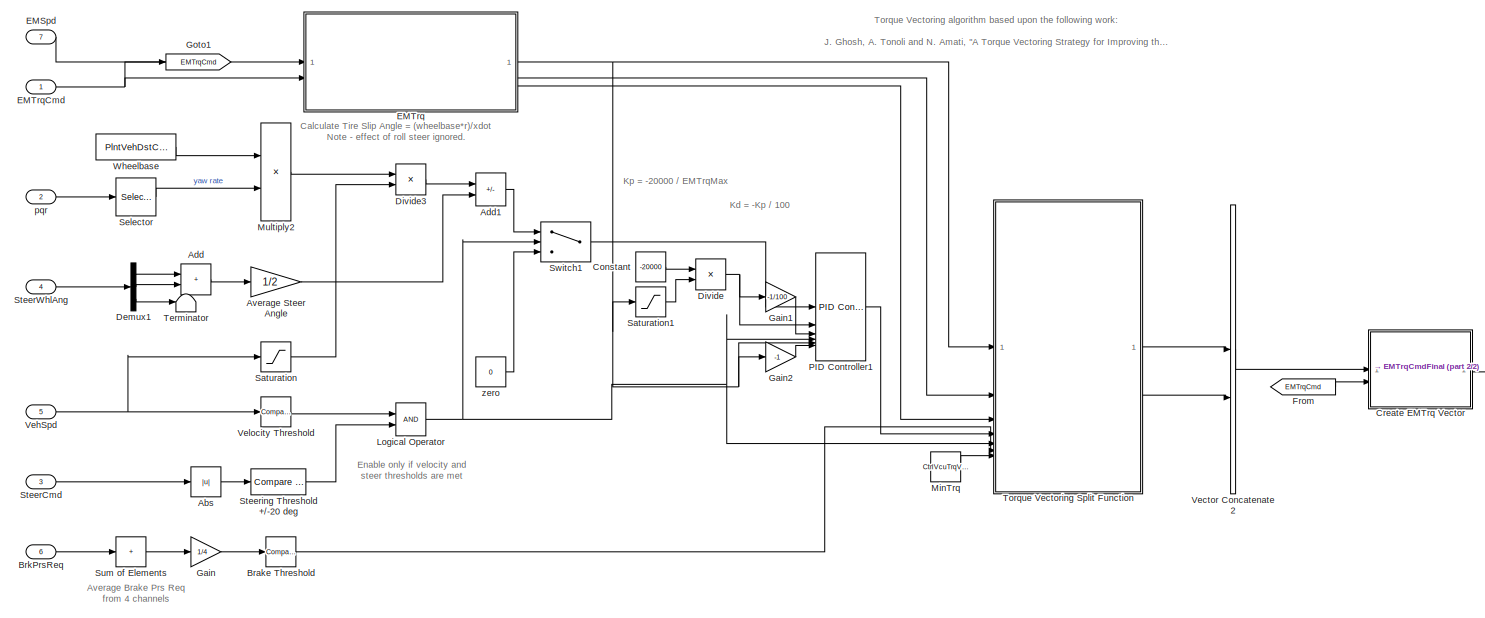
[diagram: Torque Vectoring/3EM - part 1/2, most of the canvas]
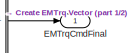
[diagram: Torque Vectoring/3EM - part 2/2, middle right region]
BLOCK [SubSystem] Torque Vectoring/3EM
  LoadFcn = [~]=autosharedicon('autolibinternalvvblock',gcb,0);
  VariantControl = 3EM
BLOCK [Abs] Torque Vectoring/3EM/Abs
  SaturateOnIntegerOverflow = off
BLOCK [Sum] Torque Vectoring/3EM/Add
  IconShape = rectangular
BLOCK [Sum] Torque Vectoring/3EM/Add1
  IconShape = rectangular
  Inputs = +-
BLOCK [Gain] Torque Vectoring/3EM/Average Steer Angle
  Gain = 1/2
BLOCK [Reference] Torque Vectoring/3EM/Brake Threshold  REF=simulink/Logic and Bit
Operations/Compare
To Constant
  SourceBlock = simulink/Logic and Bit\nOperations/Compare\nTo Constant
  SourceType = Compare To Constant
BLOCK [Inport] Torque Vectoring/3EM/BrkPrsReq
  Port = 6
BLOCK [Constant] Torque Vectoring/3EM/Constant
  SampleTime = -1
  Value = -20000
BLOCK [SubSystem] Torque Vectoring/3EM/Create EMTrq Vector
  LabelModeActiveChoice = 3EMDualFront
  Variant = on
  VariantControl = Choice
  VariantControlMode = label
BLOCK [SubSystem] Torque Vectoring/3EM/Create EMTrq Vector/3EMDualFront
  VariantControl = 3EMDualFront
BLOCK [Inport] Torque Vectoring/3EM/Create EMTrq Vector/3EMDualFront/EMTrqCmd
  Port = 2
BLOCK [Outport] Torque Vectoring/3EM/Create EMTrq Vector/3EMDualFront/EMTrqCmdFinal
BLOCK [Inport] Torque Vectoring/3EM/Create EMTrq Vector/3EMDualFront/EMTrqSplit
BLOCK [Selector] Torque Vectoring/3EM/Create EMTrq Vector/3EMDualFront/Selector
  IndexOptions = Index vector (dialog)
  Indices = [3]
  InputPortWidth = 3
  OutputSizes = 1
BLOCK [Concatenate] Torque Vectoring/3EM/Create EMTrq Vector/3EMDualFront/Vector Concatenate
BLOCK [SubSystem] Torque Vectoring/3EM/Create EMTrq Vector/3EMDualRear
  VariantControl = 3EMDualRear
BLOCK [Inport] Torque Vectoring/3EM/Create EMTrq Vector/3EMDualRear/EMTrqCmd
  Port = 2
BLOCK [Outport] Torque Vectoring/3EM/Create EMTrq Vector/3EMDualRear/EMTrqCmdFinal
BLOCK [Inport] Torque Vectoring/3EM/Create EMTrq Vector/3EMDualRear/EMTrqSplit
BLOCK [Selector] Torque Vectoring/3EM/Create EMTrq Vector/3EMDualRear/Selector
  IndexOptions = Index vector (dialog)
  Indices = [1]
  InputPortWidth = 3
  OutputSizes = 1
BLOCK [Concatenate] Torque Vectoring/3EM/Create EMTrq Vector/3EMDualRear/Vector Concatenate
BLOCK [Inport] Torque Vectoring/3EM/Create EMTrq Vector/EMTrqCmd
  Port = 2
BLOCK [Outport] Torque Vectoring/3EM/Create EMTrq Vector/EMTrqCmdFinal
BLOCK [Inport] Torque Vectoring/3EM/Create EMTrq Vector/EMTrqSplit
BLOCK [Demux] Torque Vectoring/3EM/Demux1
  Outputs = [1 1 2]
BLOCK [Product] Torque Vectoring/3EM/Divide
  Inputs = */
BLOCK [Product] Torque Vectoring/3EM/Divide3
  Inputs = */
BLOCK [Inport] Torque Vectoring/3EM/EMSpd
  Port = 7
BLOCK [SubSystem] Torque Vectoring/3EM/EMTrq
  LabelModeActiveChoice = 3EMDualFront
  Variant = on
  VariantControl = Choice
  VariantControlMode = label
BLOCK [SubSystem] Torque Vectoring/3EM/EMTrq/3EMDualFront
  VariantControl = 3EMDualFront
BLOCK [Lookup_n-D] Torque Vectoring/3EM/EMTrq/3EMDualFront/1-D Lookup Table
  BreakpointsForDimension1 = PlntEM1Spd
  ExtrapMethod = Clip
  InputPortMap = u0
  InternalRulePriority = Speed
  NumberOfTableDimensions = 1
  RndMeth = Simplest
  Table = PlntEM1Trq
  UseLastTableValue = on
BLOCK [SubSystem] Torque Vectoring/3EM/EMTrq/3EMDualFront/3EMDualFront
  VariantControl = 3EMDualFront
BLOCK [Inport] Torque Vectoring/3EM/EMTrq/3EMDualFront/3EMDualFront/EMSpd
BLOCK [Outport] Torque Vectoring/3EM/EMTrq/3EMDualFront/3EMDualFront/EMSpdAvg
BLOCK [Gain] Torque Vectoring/3EM/EMTrq/3EMDualFront/3EMDualFront/Gain
  Gain = 1/2
BLOCK [Selector] Torque Vectoring/3EM/EMTrq/3EMDualFront/3EMDualFront/Selector
  IndexOptions = Index vector (dialog)
  Indices = [1 2]
  InputPortWidth = 3
  OutputSizes = 1
BLOCK [Sum] Torque Vectoring/3EM/EMTrq/3EMDualFront/3EMDualFront/Sum of Elements
  IconShape = rectangular
  Inputs = +
BLOCK [Abs] Torque Vectoring/3EM/EMTrq/3EMDualFront/Abs1
  SaturateOnIntegerOverflow = off
BLOCK [Abs] Torque Vectoring/3EM/EMTrq/3EMDualFront/Abs2
  SaturateOnIntegerOverflow = off
BLOCK [Inport] Torque Vectoring/3EM/EMTrq/3EMDualFront/EMSpd
BLOCK [Inport] Torque Vectoring/3EM/EMTrq/3EMDualFront/EMTrqCmd
  Port = 2
BLOCK [Outport] Torque Vectoring/3EM/EMTrq/3EMDualFront/EMTrqL
  Port = 2
BLOCK [Outport] Torque Vectoring/3EM/EMTrq/3EMDualFront/EMTrqMax
BLOCK [Outport] Torque Vectoring/3EM/EMTrq/3EMDualFront/EMTrqR
  Port = 3
BLOCK [Selector] Torque Vectoring/3EM/EMTrq/3EMDualFront/Selector
  IndexOptions = Index vector (dialog)
  Indices = [1]
  InputPortWidth = 3
  OutputSizes = 1
BLOCK [Selector] Torque Vectoring/3EM/EMTrq/3EMDualFront/Selector1
  IndexOptions = Index vector (dialog)
  Indices = [2]
  InputPortWidth = 3
  OutputSizes = 1
BLOCK [SubSystem] Torque Vectoring/3EM/EMTrq/3EMDualRear
  VariantControl = 3EMDualRear
BLOCK [Lookup_n-D] Torque Vectoring/3EM/EMTrq/3EMDualRear/1-D Lookup Table
  BreakpointsForDimension1 = PlntEM3Spd
  ExtrapMethod = Clip
  InputPortMap = u0
  InternalRulePriority = Speed
  NumberOfTableDimensions = 1
  RndMeth = Simplest
  Table = PlntEM3Trq
  UseLastTableValue = on
BLOCK [SubSystem] Torque Vectoring/3EM/EMTrq/3EMDualRear/3EMDualRear
  VariantControl = 3EMDualRear
BLOCK [Inport] Torque Vectoring/3EM/EMTrq/3EMDualRear/3EMDualRear/EMSpd
BLOCK [Outport] Torque Vectoring/3EM/EMTrq/3EMDualRear/3EMDualRear/EMSpdAvg
BLOCK [Gain] Torque Vectoring/3EM/EMTrq/3EMDualRear/3EMDualRear/Gain
  Gain = 1/2
BLOCK [Selector] Torque Vectoring/3EM/EMTrq/3EMDualRear/3EMDualRear/Selector
  IndexOptions = Index vector (dialog)
  Indices = [2 3]
  InputPortWidth = 3
  OutputSizes = 1
BLOCK [Sum] Torque Vectoring/3EM/EMTrq/3EMDualRear/3EMDualRear/Sum of Elements
  IconShape = rectangular
  Inputs = +
BLOCK [Abs] Torque Vectoring/3EM/EMTrq/3EMDualRear/Abs1
  SaturateOnIntegerOverflow = off
BLOCK [Abs] Torque Vectoring/3EM/EMTrq/3EMDualRear/Abs2
  SaturateOnIntegerOverflow = off
BLOCK [Inport] Torque Vectoring/3EM/EMTrq/3EMDualRear/EMSpd
BLOCK [Inport] Torque Vectoring/3EM/EMTrq/3EMDualRear/EMTrqCmd
  Port = 2
BLOCK [Outport] Torque Vectoring/3EM/EMTrq/3EMDualRear/EMTrqL
  Port = 2
BLOCK [Outport] Torque Vectoring/3EM/EMTrq/3EMDualRear/EMTrqMax
BLOCK [Outport] Torque Vectoring/3EM/EMTrq/3EMDualRear/EMTrqR
  Port = 3
BLOCK [Selector] Torque Vectoring/3EM/EMTrq/3EMDualRear/Selector
  IndexOptions = Index vector (dialog)
  Indices = [2]
  InputPortWidth = 3
  OutputSizes = 1
BLOCK [Selector] Torque Vectoring/3EM/EMTrq/3EMDualRear/Selector1
  IndexOptions = Index vector (dialog)
  Indices = [3]
  InputPortWidth = 3
  OutputSizes = 1
BLOCK [Inport] Torque Vectoring/3EM/EMTrq/EMSpd
BLOCK [Inport] Torque Vectoring/3EM/EMTrq/EMTrqCmd
  Port = 2
BLOCK [Outport] Torque Vectoring/3EM/EMTrq/EMTrqL
  Port = 2
BLOCK [Outport] Torque Vectoring/3EM/EMTrq/EMTrqMax
BLOCK [Outport] Torque Vectoring/3EM/EMTrq/EMTrqR
  Port = 3
BLOCK [Inport] Torque Vectoring/3EM/EMTrqCmd
BLOCK [Outport] Torque Vectoring/3EM/EMTrqCmdFinal
  VectorParamsAs1DForOutWhenUnconnected = off
BLOCK [From] Torque Vectoring/3EM/From
  GotoTag = EMTrqCmd
BLOCK [Gain] Torque Vectoring/3EM/Gain
  Gain = 1/4
BLOCK [Gain] Torque Vectoring/3EM/Gain1
  Gain = -1/100
BLOCK [Gain] Torque Vectoring/3EM/Gain2
  Gain = -1
BLOCK [Goto] Torque Vectoring/3EM/Goto1
  GotoTag = EMTrqCmd
BLOCK [Logic] Torque Vectoring/3EM/Logical Operator
  AllPortsSameDT = off
  OutDataTypeStr = boolean
BLOCK [Constant] Torque Vectoring/3EM/MinTrq
  SampleTime = -1
  Value = CtrlVcuTrqVecMinTrq
BLOCK [Product] Torque Vectoring/3EM/Multiply2
BLOCK [Reference] Torque Vectoring/3EM/PID Controller1  REF=slpidlib/PID Controller
  SourceBlock = slpidlib/PID Controller
  SourceType = PID 1dof
BLOCK [Saturate] Torque Vectoring/3EM/Saturation
  LowerLimit = CtrlVcuTrqVecVelThresh
  UpperLimit = inf
BLOCK [Saturate] Torque Vectoring/3EM/Saturation1
  LowerLimit = 10
  UpperLimit = inf
BLOCK [Selector] Torque Vectoring/3EM/Selector
  IndexOptions = Index vector (dialog)
  Indices = [3]
  InputPortWidth = 3
  OutputSizes = 1
BLOCK [Inport] Torque Vectoring/3EM/SteerCmd
  Port = 3
BLOCK [Inport] Torque Vectoring/3EM/SteerWhlAng
  Port = 4
BLOCK [Reference] Torque Vectoring/3EM/Steering Threshold +//-20 deg  REF=simulink/Logic and Bit
Operations/Compare
To Constant
  SourceBlock = simulink/Logic and Bit\nOperations/Compare\nTo Constant
  SourceType = Compare To Constant
BLOCK [Sum] Torque Vectoring/3EM/Sum of Elements
  IconShape = rectangular
  Inputs = +
BLOCK [Switch] Torque Vectoring/3EM/Switch1
  Criteria = u2 > Threshold
  InputSameDT = off
  SaturateOnIntegerOverflow = off
  Threshold = .1
BLOCK [Terminator] Torque Vectoring/3EM/Terminator
BLOCK [SubSystem] Torque Vectoring/3EM/Torque Vectoring Split Function
  ErrorFcn = Stateflow.Translate.translate
  PermitHierarchicalResolution = ExplicitOnly
  SFBlockType = MATLAB Function
  TreatAsAtomicUnit = on
BLOCK [Demux] Torque Vectoring/3EM/Torque Vectoring Split Function/ Demux 
  Outputs = 1
BLOCK [S-Function] Torque Vectoring/3EM/Torque Vectoring Split Function/ SFunction 
  EnableBusSupport = on
  FunctionName = sf_sfun
  PortCounts = [7 3]
  SFcnIsStateOwnerBlock = off
  SFunctionDeploymentMode = off
  Tag = Stateflow S-Function 3
BLOCK [Terminator] Torque Vectoring/3EM/Torque Vectoring Split Function/ Terminator 
BLOCK [Inport] Torque Vectoring/3EM/Torque Vectoring Split Function/BrkThresh
  Port = 6
BLOCK [Inport] Torque Vectoring/3EM/Torque Vectoring Split Function/Enbl
  Port = 5
BLOCK [Inport] Torque Vectoring/3EM/Torque Vectoring Split Function/MaxTrq
BLOCK [Inport] Torque Vectoring/3EM/Torque Vectoring Split Function/MinTrq
  Port = 7
BLOCK [Inport] Torque Vectoring/3EM/Torque Vectoring Split Function/TrqLeft
  Port = 2
BLOCK [Outport] Torque Vectoring/3EM/Torque Vectoring Split Function/TrqLeftOut
  VectorParamsAs1DForOutWhenUnconnected = off
BLOCK [Inport] Torque Vectoring/3EM/Torque Vectoring Split Function/TrqRght
  Port = 3
BLOCK [Outport] Torque Vectoring/3EM/Torque Vectoring Split Function/TrqRghtOut
  Port = 2
  VectorParamsAs1DForOutWhenUnconnected = off
BLOCK [Inport] Torque Vectoring/3EM/Torque Vectoring Split Function/TrqVec
  Port = 4
BLOCK [Concatenate] Torque Vectoring/3EM/Vector Concatenate2
BLOCK [Inport] Torque Vectoring/3EM/VehSpd
  Port = 5
BLOCK [Reference] Torque Vectoring/3EM/Velocity Threshold  REF=simulink/Logic and Bit
Operations/Compare
To Constant
  SourceBlock = simulink/Logic and Bit\nOperations/Compare\nTo Constant
  SourceType = Compare To Constant
BLOCK [Constant] Torque Vectoring/3EM/Wheelbase
  SampleTime = -1
  Value = PlntVehDstCGFrntAxl + PlntVehDstCGRearAxl
BLOCK [Inport] Torque Vectoring/3EM/pqr
  Port = 2
BLOCK [Constant] Torque Vectoring/3EM/zero
  SampleTime = -1
  Value = 0
BLOCK [SubSystem] Torque Vectoring/4EM
  LoadFcn = [~]=autosharedicon('autolibinternalvvblock',gcb,0);
  VariantControl = 4EM
BLOCK [Abs] Torque Vectoring/4EM/Abs
  SaturateOnIntegerOverflow = off
BLOCK [Sum] Torque Vectoring/4EM/Add
  IconShape = rectangular
BLOCK [Sum] Torque Vectoring/4EM/Add1
  IconShape = rectangular
  Inputs = +-
BLOCK [Gain] Torque Vectoring/4EM/Average Steer Angle
  Gain = 1/2
BLOCK [Reference] Torque Vectoring/4EM/Brake Threshold  REF=simulink/Logic and Bit
Operations/Compare
To Constant
  SourceBlock = simulink/Logic and Bit\nOperations/Compare\nTo Constant
  SourceType = Compare To Constant
BLOCK [Inport] Torque Vectoring/4EM/BrkPrsReq
  Port = 6
BLOCK [Constant] Torque Vectoring/4EM/Constant
  SampleTime = -1
  Value = -20000
BLOCK [Demux] Torque Vectoring/4EM/Demux1
  Outputs = [1 1 2]
BLOCK [Product] Torque Vectoring/4EM/Divide
  Inputs = */
BLOCK [Product] Torque Vectoring/4EM/Divide3
  Inputs = */
BLOCK [Inport] Torque Vectoring/4EM/EMSpd
  Port = 7
BLOCK [SubSystem] Torque Vectoring/4EM/EMTrq
BLOCK [SubSystem] Torque Vectoring/4EM/EMTrq/Dual Front
  VariantControl = 3EMDualFront
BLOCK [Lookup_n-D] Torque Vectoring/4EM/EMTrq/Dual Front/1-D Lookup Table
  BreakpointsForDimension1 = PlntEM1Spd
  ExtrapMethod = Clip
  InputPortMap = u0
  InternalRulePriority = Speed
  NumberOfTableDimensions = 1
  RndMeth = Simplest
  Table = PlntEM1Trq
  UseLastTableValue = on
BLOCK [SubSystem] Torque Vectoring/4EM/EMTrq/Dual Front/3EMDualFrnt
  VariantControl = 3EMDualFront
BLOCK [Inport] Torque Vectoring/4EM/EMTrq/Dual Front/3EMDualFrnt/EMSpd
BLOCK [Outport] Torque Vectoring/4EM/EMTrq/Dual Front/3EMDualFrnt/EMSpdAvg
BLOCK [Gain] Torque Vectoring/4EM/EMTrq/Dual Front/3EMDualFrnt/Gain
  Gain = 1/2
BLOCK [Selector] Torque Vectoring/4EM/EMTrq/Dual Front/3EMDualFrnt/Selector
  IndexOptions = Index vector (dialog)
  Indices = [1 2]
  InputPortWidth = 4
  OutputSizes = 1
BLOCK [Sum] Torque Vectoring/4EM/EMTrq/Dual Front/3EMDualFrnt/Sum of Elements
  IconShape = rectangular
  Inputs = +
BLOCK [Abs] Torque Vectoring/4EM/EMTrq/Dual Front/Abs1
  SaturateOnIntegerOverflow = off
BLOCK [Abs] Torque Vectoring/4EM/EMTrq/Dual Front/Abs2
  SaturateOnIntegerOverflow = off
BLOCK [Inport] Torque Vectoring/4EM/EMTrq/Dual Front/EMSpd
BLOCK [Inport] Torque Vectoring/4EM/EMTrq/Dual Front/EMTrqCmd
  Port = 2
BLOCK [Outport] Torque Vectoring/4EM/EMTrq/Dual Front/EMTrqFL
  Port = 2
BLOCK [Outport] Torque Vectoring/4EM/EMTrq/Dual Front/EMTrqFR
  Port = 3
BLOCK [Outport] Torque Vectoring/4EM/EMTrq/Dual Front/EMTrqMaxFrnt
BLOCK [Selector] Torque Vectoring/4EM/EMTrq/Dual Front/Selector
  IndexOptions = Index vector (dialog)
  Indices = [1]
  InputPortWidth = 4
  OutputSizes = 1
BLOCK [Selector] Torque Vectoring/4EM/EMTrq/Dual Front/Selector1
  IndexOptions = Index vector (dialog)
  Indices = [2]
  InputPortWidth = 4
  OutputSizes = 1
BLOCK [SubSystem] Torque Vectoring/4EM/EMTrq/Dual Rear
  VariantControl = 3EMDualRear
BLOCK [Lookup_n-D] Torque Vectoring/4EM/EMTrq/Dual Rear/1-D Lookup Table
  BreakpointsForDimension1 = PlntEM3Spd
  ExtrapMethod = Clip
  InputPortMap = u0
  InternalRulePriority = Speed
  NumberOfTableDimensions = 1
  RndMeth = Simplest
  Table = PlntEM3Trq
  UseLastTableValue = on
BLOCK [SubSystem] Torque Vectoring/4EM/EMTrq/Dual Rear/3EMDualRear
  VariantControl = 3EMDualRear
BLOCK [Inport] Torque Vectoring/4EM/EMTrq/Dual Rear/3EMDualRear/EMSpd
BLOCK [Outport] Torque Vectoring/4EM/EMTrq/Dual Rear/3EMDualRear/EMSpdAvg
BLOCK [Gain] Torque Vectoring/4EM/EMTrq/Dual Rear/3EMDualRear/Gain
  Gain = 1/2
BLOCK [Selector] Torque Vectoring/4EM/EMTrq/Dual Rear/3EMDualRear/Selector
  IndexOptions = Index vector (dialog)
  Indices = [3 4]
  InputPortWidth = 4
  OutputSizes = 1
BLOCK [Sum] Torque Vectoring/4EM/EMTrq/Dual Rear/3EMDualRear/Sum of Elements
  IconShape = rectangular
  Inputs = +
BLOCK [Abs] Torque Vectoring/4EM/EMTrq/Dual Rear/Abs1
  SaturateOnIntegerOverflow = off
BLOCK [Abs] Torque Vectoring/4EM/EMTrq/Dual Rear/Abs2
  SaturateOnIntegerOverflow = off
BLOCK [Inport] Torque Vectoring/4EM/EMTrq/Dual Rear/EMSpd
BLOCK [Inport] Torque Vectoring/4EM/EMTrq/Dual Rear/EMTrqCmd
  Port = 2
BLOCK [Outport] Torque Vectoring/4EM/EMTrq/Dual Rear/EMTrqMaxRear
BLOCK [Outport] Torque Vectoring/4EM/EMTrq/Dual Rear/EMTrqRL
  Port = 2
BLOCK [Outport] Torque Vectoring/4EM/EMTrq/Dual Rear/EMTrqRR
  Port = 3
BLOCK [Selector] Torque Vectoring/4EM/EMTrq/Dual Rear/Selector
  IndexOptions = Index vector (dialog)
  Indices = [3]
  InputPortWidth = 4
  OutputSizes = 1
BLOCK [Selector] Torque Vectoring/4EM/EMTrq/Dual Rear/Selector1
  IndexOptions = Index vector (dialog)
  Indices = [4]
  InputPortWidth = 4
  OutputSizes = 1
BLOCK [Inport] Torque Vectoring/4EM/EMTrq/EMSpd
BLOCK [Inport] Torque Vectoring/4EM/EMTrq/EMTrqCmd
  Port = 2
BLOCK [Outport] Torque Vectoring/4EM/EMTrq/EMTrqFL
  Port = 2
BLOCK [Outport] Torque Vectoring/4EM/EMTrq/EMTrqFR
  Port = 3
BLOCK [Outport] Torque Vectoring/4EM/EMTrq/EMTrqMaxFrnt
BLOCK [Outport] Torque Vectoring/4EM/EMTrq/EMTrqMaxRear
  Port = 4
BLOCK [Outport] Torque Vectoring/4EM/EMTrq/EMTrqRL
  Port = 5
BLOCK [Outport] Torque Vectoring/4EM/EMTrq/EMTrqRR
  Port = 6
BLOCK [Inport] Torque Vectoring/4EM/EMTrqCmd
BLOCK [Outport] Torque Vectoring/4EM/EMTrqCmdFinal
  VectorParamsAs1DForOutWhenUnconnected = off
BLOCK [Gain] Torque Vectoring/4EM/Gain
  Gain = 1/4
BLOCK [Gain] Torque Vectoring/4EM/Gain1
  Gain = -1/100
BLOCK [Gain] Torque Vectoring/4EM/Gain2
  Gain = -1
BLOCK [Logic] Torque Vectoring/4EM/Logical Operator
  AllPortsSameDT = off
  OutDataTypeStr = boolean
BLOCK [Constant] Torque Vectoring/4EM/MinTrq
  SampleTime = -1
  Value = CtrlVcuTrqVecMinTrq
BLOCK [Constant] Torque Vectoring/4EM/MinTrq1
  SampleTime = -1
  Value = CtrlVcuTrqVecMinTrq
BLOCK [Product] Torque Vectoring/4EM/Multiply2
BLOCK [Reference] Torque Vectoring/4EM/PID Controller1  REF=slpidlib/PID Controller
  SourceBlock = slpidlib/PID Controller
  SourceType = PID 1dof
BLOCK [Saturate] Torque Vectoring/4EM/Saturation
  LowerLimit = CtrlVcuTrqVecVelThresh
  UpperLimit = inf
BLOCK [Saturate] Torque Vectoring/4EM/Saturation1
  LowerLimit = 10
  UpperLimit = inf
BLOCK [Selector] Torque Vectoring/4EM/Selector
  IndexOptions = Index vector (dialog)
  Indices = [3]
  InputPortWidth = 3
  OutputSizes = 1
BLOCK [Inport] Torque Vectoring/4EM/SteerCmd
  Port = 3
BLOCK [Inport] Torque Vectoring/4EM/SteerWhlAng
  Port = 4
BLOCK [Reference] Torque Vectoring/4EM/Steering Threshold +//-20 deg  REF=simulink/Logic and Bit
Operations/Compare
To Constant
  SourceBlock = simulink/Logic and Bit\nOperations/Compare\nTo Constant
  SourceType = Compare To Constant
BLOCK [Sum] Torque Vectoring/4EM/Sum of Elements
  IconShape = rectangular
  Inputs = +
BLOCK [Switch] Torque Vectoring/4EM/Switch1
  Criteria = u2 > Threshold
  InputSameDT = off
  SaturateOnIntegerOverflow = off
  Threshold = .1
BLOCK [Terminator] Torque Vectoring/4EM/Terminator
BLOCK [SubSystem] Torque Vectoring/4EM/Torque Vectoring Split Function Front
  ErrorFcn = Stateflow.Translate.translate
  PermitHierarchicalResolution = ExplicitOnly
  SFBlockType = MATLAB Function
  TreatAsAtomicUnit = on
BLOCK [Demux] Torque Vectoring/4EM/Torque Vectoring Split Function Front/ Demux 
  Outputs = 1
BLOCK [S-Function] Torque Vectoring/4EM/Torque Vectoring Split Function Front/ SFunction 
  EnableBusSupport = on
  FunctionName = sf_sfun
  PortCounts = [7 3]
  SFcnIsStateOwnerBlock = off
  SFunctionDeploymentMode = off
  Tag = Stateflow S-Function 2
BLOCK [Terminator] Torque Vectoring/4EM/Torque Vectoring Split Function Front/ Terminator 
BLOCK [Inport] Torque Vectoring/4EM/Torque Vectoring Split Function Front/BrkThresh
  Port = 6
BLOCK [Inport] Torque Vectoring/4EM/Torque Vectoring Split Function Front/Enbl
  Port = 5
BLOCK [Inport] Torque Vectoring/4EM/Torque Vectoring Split Function Front/MaxTrq
BLOCK [Inport] Torque Vectoring/4EM/Torque Vectoring Split Function Front/MinTrq
  Port = 7
BLOCK [Inport] Torque Vectoring/4EM/Torque Vectoring Split Function Front/TrqLeft
  Port = 2
BLOCK [Outport] Torque Vectoring/4EM/Torque Vectoring Split Function Front/TrqLeftOut
  VectorParamsAs1DForOutWhenUnconnected = off
BLOCK [Inport] Torque Vectoring/4EM/Torque Vectoring Split Function Front/TrqRght
  Port = 3
BLOCK [Outport] Torque Vectoring/4EM/Torque Vectoring Split Function Front/TrqRghtOut
  Port = 2
  VectorParamsAs1DForOutWhenUnconnected = off
BLOCK [Inport] Torque Vectoring/4EM/Torque Vectoring Split Function Front/TrqVec
  Port = 4
BLOCK [SubSystem] Torque Vectoring/4EM/Torque Vectoring Split Function Rear
  ErrorFcn = Stateflow.Translate.translate
  PermitHierarchicalResolution = ExplicitOnly
  SFBlockType = MATLAB Function
  TreatAsAtomicUnit = on
BLOCK [Demux] Torque Vectoring/4EM/Torque Vectoring Split Function Rear/ Demux 
  Outputs = 1
BLOCK [S-Function] Torque Vectoring/4EM/Torque Vectoring Split Function Rear/ SFunction 
  EnableBusSupport = on
  FunctionName = sf_sfun
  PortCounts = [7 3]
  SFcnIsStateOwnerBlock = off
  SFunctionDeploymentMode = off
  Tag = Stateflow S-Function 4
BLOCK [Terminator] Torque Vectoring/4EM/Torque Vectoring Split Function Rear/ Terminator 
BLOCK [Inport] Torque Vectoring/4EM/Torque Vectoring Split Function Rear/BrkThresh
  Port = 6
BLOCK [Inport] Torque Vectoring/4EM/Torque Vectoring Split Function Rear/Enbl
  Port = 5
BLOCK [Inport] Torque Vectoring/4EM/Torque Vectoring Split Function Rear/MaxTrq
BLOCK [Inport] Torque Vectoring/4EM/Torque Vectoring Split Function Rear/MinTrq
  Port = 7
BLOCK [Inport] Torque Vectoring/4EM/Torque Vectoring Split Function Rear/TrqLeft
  Port = 2
BLOCK [Outport] Torque Vectoring/4EM/Torque Vectoring Split Function Rear/TrqLeftOut
  VectorParamsAs1DForOutWhenUnconnected = off
BLOCK [Inport] Torque Vectoring/4EM/Torque Vectoring Split Function Rear/TrqRght
  Port = 3
BLOCK [Outport] Torque Vectoring/4EM/Torque Vectoring Split Function Rear/TrqRghtOut
  Port = 2
  VectorParamsAs1DForOutWhenUnconnected = off
BLOCK [Inport] Torque Vectoring/4EM/Torque Vectoring Split Function Rear/TrqVec
  Port = 4
BLOCK [Concatenate] Torque Vectoring/4EM/Vector Concatenate2
  NumInputs = 4
BLOCK [Inport] Torque Vectoring/4EM/VehSpd
  Port = 5
BLOCK [Reference] Torque Vectoring/4EM/Velocity Threshold  REF=simulink/Logic and Bit
Operations/Compare
To Constant
  SourceBlock = simulink/Logic and Bit\nOperations/Compare\nTo Constant
  SourceType = Compare To Constant
BLOCK [Constant] Torque Vectoring/4EM/Wheelbase
  SampleTime = -1
  Value = PlntVehDstCGFrntAxl + PlntVehDstCGRearAxl
BLOCK [Inport] Torque Vectoring/4EM/pqr
  Port = 2
BLOCK [Constant] Torque Vectoring/4EM/zero
  SampleTime = -1
  Value = 0
BLOCK [Inport] Torque Vectoring/BrkPrsReq
  Port = 6
BLOCK [Inport] Torque Vectoring/EMSpd
  Port = 7
BLOCK [Inport] Torque Vectoring/EMTrqCmd
BLOCK [Outport] Torque Vectoring/EMTrqCmdFinal
BLOCK [SubSystem] Torque Vectoring/No Torque Vectoring
  VariantControl = No Torque Vectoring
BLOCK [Inport] Torque Vectoring/No Torque Vectoring/EMTrqCmd
BLOCK [Outport] Torque Vectoring/No Torque Vectoring/EMTrqCmdFinal
  VectorParamsAs1DForOutWhenUnconnected = off
BLOCK [Inport] Torque Vectoring/SteerCmd
  Port = 3
BLOCK [Inport] Torque Vectoring/SteerWhlAng
  Port = 4
BLOCK [Inport] Torque Vectoring/VehSpd
  Port = 5
BLOCK [Inport] Torque Vectoring/pqr
  Port = 2
BLOCK [Inport] TransGear
  OutDataTypeStr = double
  Port = 5
  PortDimensions = 1
  SamplingMode = Sample based
  SignalType = real
BLOCK [Outport] VcuBrkPrsCmd
  OutDataTypeStr = double
  Port = 3
  PortDimensions = 4
  VectorParamsAs1DForOutWhenUnconnected = off
BLOCK [Inport] VehSpdFdbk
  OutDataTypeStr = double
  Port = 3
  PortDimensions = 1
BLOCK [Inport] pqr
  Port = 10
  PortDimensions = 3
ANNOTATION (root): <copyright redacted>
ANNOTATION Accel Pedal to Traction Wheel Torque Request: Convert Accelerator Pedal Position to Wheel Torque Command using Motor Torque Speed Curves. Can be replaced with 2D Lookup Table with AccelPdl and VehSpd as inputs and Motor or Wheel Torque Command as output.
ANNOTATION Accel Pedal to Traction Wheel Torque Request/EM2WhlTrq/2EM: Reflect EMTrq to WhlTrq due to possible gearing differences
ANNOTATION Accel Pedal to Traction Wheel Torque Request/EM2WhlTrq/2EM: Use VehSpd instead of EMSpd or WhlSpd in case wheel or EM are undergoing slipping / have oscillations.
ANNOTATION Accel Pedal to Traction Wheel Torque Request/EM2WhlTrq/2EM/EMTrq2WhlTrqFrnt/No Transmission/Diff Eta: Pwr >= 0, v = 1 Pwr < 0, v= -1
ANNOTATION Accel Pedal to Traction Wheel Torque Request/EM2WhlTrq/2EM/EMTrq2WhlTrqRear/No Transmission/Diff Eta: Pwr >= 0, v = 1 Pwr < 0, v= -1
ANNOTATION Accel Pedal to Traction Wheel Torque Request/EM2WhlTrq/3EM Dual Front: Reflect EMTrq to WhlTrq due to possible gearing differences
ANNOTATION Accel Pedal to Traction Wheel Torque Request/EM2WhlTrq/3EM Dual Front: Use VehSpd instead of EMSpd or WhlSpd in case wheel or EM are undergoing slipping / have oscillations.
ANNOTATION Accel Pedal to Traction Wheel Torque Request/EM2WhlTrq/3EM Dual Front/EMTrq2WhlTrqFrnt/No Transmission/Gear Eta: Pwr >= 0, v = 1 Pwr < 0, v= -1
ANNOTATION Accel Pedal to Traction Wheel Torque Request/EM2WhlTrq/3EM Dual Front/EMTrq2WhlTrqRear/No Transmission/Diff Eta: Pwr >= 0, v = 1 Pwr < 0, v= -1
ANNOTATION Accel Pedal to Traction Wheel Torque Request/EM2WhlTrq/3EM Dual Rear: Reflect EMTrq to WhlTrq due to possible gearing differences
ANNOTATION Accel Pedal to Traction Wheel Torque Request/EM2WhlTrq/3EM Dual Rear: Use VehSpd instead of EMSpd or WhlSpd in case wheel or EM are undergoing slipping / have oscillations.
ANNOTATION Accel Pedal to Traction Wheel Torque Request/EM2WhlTrq/3EM Dual Rear/EMTrq2WhlTrqFrnt/No Transmission/Diff Eta: Pwr >= 0, v = 1 Pwr < 0, v= -1
ANNOTATION Accel Pedal to Traction Wheel Torque Request/EM2WhlTrq/3EM Dual Rear/EMTrq2WhlTrqRear/No Transmission/Gear Eta: Pwr >= 0, v = 1 Pwr < 0, v= -1
ANNOTATION Accel Pedal to Traction Wheel Torque Request/EM2WhlTrq/4EM: Reflect EMTrq to WhlTrq due to possible gearing differences
ANNOTATION Accel Pedal to Traction Wheel Torque Request/EM2WhlTrq/4EM: Use VehSpd instead of EMSpd or WhlSpd in case wheel or EM are undergoing slipping / have oscillations.
ANNOTATION Accel Pedal to Traction Wheel Torque Request/EM2WhlTrq/4EM/EMTrq2WhlTrqFrnt/No Transmission/Gear Eta: Pwr >= 0, v = 1 Pwr < 0, v= -1
ANNOTATION Accel Pedal to Traction Wheel Torque Request/EM2WhlTrq/4EM/EMTrq2WhlTrqRear/No Transmission/Gear Eta: Pwr >= 0, v = 1 Pwr < 0, v= -1
ANNOTATION Energy Management/Calculate Average EMSpd and Wheel Torque Curves for Front and Rear Axles/2EM: Reflect EMTrq to WhlTrq due to possible gearing differences
ANNOTATION Energy Management/Calculate Average EMSpd and Wheel Torque Curves for Front and Rear Axles/2EM/EMTrq2WhlTrqFrnt/No Transmission/Diff Eta: Pwr >= 0, v = 1 Pwr < 0, v= -1
ANNOTATION Energy Management/Calculate Average EMSpd and Wheel Torque Curves for Front and Rear Axles/2EM/EMTrq2WhlTrqRear/No Transmission/Diff Eta: Pwr >= 0, v = 1 Pwr < 0, v= -1
ANNOTATION Energy Management/Calculate Average EMSpd and Wheel Torque Curves for Front and Rear Axles/3EM Dual Front: Calculate average speed of EMs on axle
ANNOTATION Energy Management/Calculate Average EMSpd and Wheel Torque Curves for Front and Rear Axles/3EM Dual Front: Reflect EMTrq to WhlTrq due to possible gearing differences
ANNOTATION Energy Management/Calculate Average EMSpd and Wheel Torque Curves for Front and Rear Axles/3EM Dual Front/EMTrq2WhlTrqFrnt/No Transmission/Gear Eta: Pwr >= 0, v = 1 Pwr < 0, v= -1
ANNOTATION Energy Management/Calculate Average EMSpd and Wheel Torque Curves for Front and Rear Axles/3EM Dual Front/EMTrq2WhlTrqRear/No Transmission/Diff Eta: Pwr >= 0, v = 1 Pwr < 0, v= -1
ANNOTATION Energy Management/Calculate Average EMSpd and Wheel Torque Curves for Front and Rear Axles/3EM Dual Rear: Calculate average speed of EMs on axle
ANNOTATION Energy Management/Calculate Average EMSpd and Wheel Torque Curves for Front and Rear Axles/3EM Dual Rear: Reflect EMTrq to WhlTrq due to possible gearing differences
ANNOTATION Energy Management/Calculate Average EMSpd and Wheel Torque Curves for Front and Rear Axles/3EM Dual Rear/EMTrq2WhlTrqFrnt/No Transmission/Diff Eta: Pwr >= 0, v = 1 Pwr < 0, v= -1
ANNOTATION Energy Management/Calculate Average EMSpd and Wheel Torque Curves for Front and Rear Axles/3EM Dual Rear/EMTrq2WhlTrqRear/No Transmission/Gear Eta: Pwr >= 0, v = 1 Pwr < 0, v= -1
ANNOTATION Energy Management/Calculate Average EMSpd and Wheel Torque Curves for Front and Rear Axles/4EM: Calculate average speed of EMs on axle
ANNOTATION Energy Management/Calculate Average EMSpd and Wheel Torque Curves for Front and Rear Axles/4EM: Reflect EMTrq to WhlTrq due to possible gearing differences
ANNOTATION Energy Management/Calculate Average EMSpd and Wheel Torque Curves for Front and Rear Axles/4EM/EMTrq2WhlTrqFrnt/No Transmission/Gear Eta: Pwr >= 0, v = 1 Pwr < 0, v= -1
ANNOTATION Energy Management/Calculate Average EMSpd and Wheel Torque Curves for Front and Rear Axles/4EM/EMTrq2WhlTrqRear/No Transmission/Gear Eta: Pwr >= 0, v = 1 Pwr < 0, v= -1
ANNOTATION Energy Management/Control Domain : A vector of possible motor torques includes: Whl Trq Demand Linearly spaced Rear Motor vector (linspace) of min to max motor torque, in desired increments
ANNOTATION Energy Management/Control Domain /Front Axle EM Torque Vector/2EM or 3EM Dual Rear/Diff Eta: Pwr >= 0, v = 1 Pwr < 0, v= -1
ANNOTATION Energy Management/Control Domain /Front Axle EM Torque Vector/3EM Dual Front or 4EM/Gear Eta: Pwr >= 0, v = 1 Pwr < 0, v= -1
ANNOTATION Energy Management/Control Domain /Rear Axle EM Torque Vector/2EM or 3EM Dual Front/Diff Eta: Pwr >= 0, v = 1 Pwr < 0, v= -1
ANNOTATION Energy Management/Control Domain /Rear Axle EM Torque Vector/3EM Dual Rear or 4EM/Gear Eta: Pwr >= 0, v = 1 Pwr < 0, v= -1
ANNOTATION Energy Management/Control Domain /Series Regen Braking: 1 brakes*(muk*pi*Ba^2*Rm*Npads/4)*P
ANNOTATION Energy Management/Control Domain /Series Regen Braking: - Total brake torque request based on brake pressure and parameters of disc brakes - Use as much regenerative motor braking as possible - Any braking torque request that cannot be provided by the motor, will be provided by the friction brakes
ANNOTATION Energy Management/Control Domain /Series Regen Braking: T / 4 brakes*(muk*pi*Ba^2*Rm*Npads/4)
ANNOTATION Energy Management/Convert Whl to EMTrq Vector/2EM/Diff Eta: Pwr >= 0, v = 1 Pwr < 0, v= -1
ANNOTATION Energy Management/Convert Whl to EMTrq Vector/2EM/Diff Eta1: Pwr >= 0, v = 1 Pwr < 0, v= -1
ANNOTATION Energy Management/Convert Whl to EMTrq Vector/3EM Dual Front/Diff Eta: Pwr >= 0, v = 1 Pwr < 0, v= -1
ANNOTATION Energy Management/Convert Whl to EMTrq Vector/3EM Dual Front/Gear Eta: Pwr >= 0, v = 1 Pwr < 0, v= -1
ANNOTATION Energy Management/Convert Whl to EMTrq Vector/3EM Dual Rear/Diff Eta: Pwr >= 0, v = 1 Pwr < 0, v= -1
ANNOTATION Energy Management/Convert Whl to EMTrq Vector/3EM Dual Rear/Gear Eta: Pwr >= 0, v = 1 Pwr < 0, v= -1
ANNOTATION Energy Management/Convert Whl to EMTrq Vector/4EM/Gear Eta: Pwr >= 0, v = 1 Pwr < 0, v= -1
ANNOTATION Energy Management/Convert Whl to EMTrq Vector/4EM/Gear Eta1: Pwr >= 0, v = 1 Pwr < 0, v= -1
ANNOTATION Energy Management/Hamiltonian computation and minimization: Removing penalty for now
ANNOTATION Energy Management/Hamiltonian computation and minimization/Pwr Rate Limit: Alternative to using abs funciton
ANNOTATION Energy Management/Hamiltonian computation and minimization/Pwr Rate Limit: There could be instances where an mot trq command produces the minimum cost, but differs greatly from the previously selected mot trq. This function will calculate the difference in power between the current mot power vector and the previously selected mot pwr. This term is added to the total cost function, and will help limit the rate at which the mot power (and torque) can change from time step ...<+13ch>
ANNOTATION Energy Management/Powertrain Constraints : This subsystem calculates the powertrain component constraints and identifies infeasible conditions (i.e. violations of constraints).
ANNOTATION Energy Management/Powertrain Constraints /Battery Constraint/Power Limit Calculations: Use Current Limits from BMS to calculate discharge and charge power limits
ANNOTATION Energy Management/Powertrain Constraints /EM Constraint Front/Maximum Torque: Don't allow negative MotTrq when WhlTrqCmd is >= 0
ANNOTATION Energy Management/Powertrain Constraints /EM Constraint Front/Tabular Power Loss Data/2EM or 3EM Dual Rear: Check if Motoring or Generating
ANNOTATION Energy Management/Powertrain Constraints /EM Constraint Front/Tabular Power Loss Data/2EM or 3EM Dual Rear: Pelec_req = Pmech_req*Eff^k, k = -1 if Motoring >= 0, k = 1 if Generating < 0
ANNOTATION Energy Management/Powertrain Constraints /EM Constraint Front/Tabular Power Loss Data/2EM or 3EM Dual Rear/WhlTrq2EMTrq/Diff Eta: Pwr >= 0, v = 1 Pwr < 0, v= -1
ANNOTATION Energy Management/Powertrain Constraints /EM Constraint Front/Tabular Power Loss Data/3EM Dual Front or 4EM: Check if Motoring or Generating
ANNOTATION Energy Management/Powertrain Constraints /EM Constraint Front/Tabular Power Loss Data/3EM Dual Front or 4EM: Pelec_req = Pmech_req*Eff^k, k = -1 if Motoring >= 0, k = 1 if Generating < 0
ANNOTATION Energy Management/Powertrain Constraints /EM Constraint Front/Tabular Power Loss Data/3EM Dual Front or 4EM/WhlTrq2EMTrq/Gear Eta: Pwr >= 0, v = 1 Pwr < 0, v= -1
ANNOTATION Energy Management/Powertrain Constraints /EM Constraint Front/Wheel Torque Saturation for Max g Rates1/Wheel Torque Limit at Max g Rates: Braking sign convention
ANNOTATION Energy Management/Powertrain Constraints /EM Constraint Front/Wheel Torque Saturation for Max g Rates1/Wheel Torque Limit at Max g Rates/Wheel Torque at Max Acceleration Rate: First princicple equations of vehicle weight transfer on front and rear axles at desired maximum acceleration rate in g's. Ignores aero and grade effects.
ANNOTATION Energy Management/Powertrain Constraints /EM Constraint Front/Wheel Torque Saturation for Max g Rates1/Wheel Torque Limit at Max g Rates/Wheel Torque at Max Acceleration Rate: Fz_Front = [(b*m*g) - (h*m*g*Ax)] / (a + b) a - Front axle distance to CG b - Rear axle distance to CG h - Height from ground to CG m - Vehicle mass g - gravity constant Ax - level of acceleration in g's
ANNOTATION Energy Management/Powertrain Constraints /EM Constraint Front/Wheel Torque Saturation for Max g Rates1/Wheel Torque Limit at Max g Rates/Wheel Torque at Max Acceleration Rate: Fz_Rear = [(a*m*g) + (h*m*g*Ax)] / (a + b) a - Front axle distance to CG b - Rear axle distance to CG h - Height from ground to CG m - Vehicle mass g - gravity constant Ax - level of acceleration in g's
ANNOTATION Energy Management/Powertrain Constraints /EM Constraint Front/Wheel Torque Saturation for Max g Rates1/Wheel Torque Limit at Max g Rates/Wheel Torque at Max Deceleration Rate: First princicple equations of vehicle weight transfer on front and rear axles at desired maximum acceleration rate in g's. Ignores aero and grade effects.
ANNOTATION Energy Management/Powertrain Constraints /EM Constraint Front/Wheel Torque Saturation for Max g Rates1/Wheel Torque Limit at Max g Rates/Wheel Torque at Max Deceleration Rate: Fz_Front = [(b*m*g) - (h*m*g*Ax)] / (a + b) a - Front axle distance to CG b - Rear axle distance to CG h - Height from ground to CG m - Vehicle mass g - gravity constant Ax - level of acceleration in g's
ANNOTATION Energy Management/Powertrain Constraints /EM Constraint Front/Wheel Torque Saturation for Max g Rates1/Wheel Torque Limit at Max g Rates/Wheel Torque at Max Deceleration Rate: Fz_Rear = [(a*m*g) + (h*m*g*Ax)] / (a + b) a - Front axle distance to CG b - Rear axle distance to CG h - Height from ground to CG m - Vehicle mass g - gravity constant Ax - level of acceleration in g's
ANNOTATION Energy Management/Powertrain Constraints /EM Constraint Rear/Maximum Torque: Don't allow negative MotTrq when WhlTrqCmd is >= 0
ANNOTATION Energy Management/Powertrain Constraints /EM Constraint Rear/Tabular Power Loss Data/2EM: Check if Motoring or Generating
ANNOTATION Energy Management/Powertrain Constraints /EM Constraint Rear/Tabular Power Loss Data/2EM: Pelec_req = Pmech_req*Eff^k, k = -1 if Motoring >= 0, k = 1 if Generating < 0
ANNOTATION Energy Management/Powertrain Constraints /EM Constraint Rear/Tabular Power Loss Data/2EM/WhlTrq2EMTrq/Diff Eta: Pwr >= 0, v = 1 Pwr < 0, v= -1
ANNOTATION Energy Management/Powertrain Constraints /EM Constraint Rear/Tabular Power Loss Data/3EM Dual Front: Check if Motoring or Generating
ANNOTATION Energy Management/Powertrain Constraints /EM Constraint Rear/Tabular Power Loss Data/3EM Dual Front: Pelec_req = Pmech_req*Eff^k, k = -1 if Motoring >= 0, k = 1 if Generating < 0
ANNOTATION Energy Management/Powertrain Constraints /EM Constraint Rear/Tabular Power Loss Data/3EM Dual Front/WhlTrq2EMTrq/Diff Eta: Pwr >= 0, v = 1 Pwr < 0, v= -1
ANNOTATION Energy Management/Powertrain Constraints /EM Constraint Rear/Tabular Power Loss Data/3EM Dual Rear or 4EM: Check if Motoring or Generating
ANNOTATION Energy Management/Powertrain Constraints /EM Constraint Rear/Tabular Power Loss Data/3EM Dual Rear or 4EM: Pelec_req = Pmech_req*Eff^k, k = -1 if Motoring >= 0, k = 1 if Generating < 0
ANNOTATION Energy Management/Powertrain Constraints /EM Constraint Rear/Tabular Power Loss Data/3EM Dual Rear or 4EM/WhlTrq2EMTrq/Gear Eta: Pwr >= 0, v = 1 Pwr < 0, v= -1
ANNOTATION Energy Management/Powertrain Constraints /EM Constraint Rear/Wheel Torque Saturation for Max g Rates/Wheel Torque Limit at Max g Rates: Braking sign convention
ANNOTATION Energy Management/Powertrain Constraints /EM Constraint Rear/Wheel Torque Saturation for Max g Rates/Wheel Torque Limit at Max g Rates/Wheel Torque at Max Acceleration Rate: First princicple equations of vehicle weight transfer on front and rear axles at desired maximum acceleration rate in g's. Ignores aero and grade effects.
ANNOTATION Energy Management/Powertrain Constraints /EM Constraint Rear/Wheel Torque Saturation for Max g Rates/Wheel Torque Limit at Max g Rates/Wheel Torque at Max Acceleration Rate: Fz_Front = [(b*m*g) - (h*m*g*Ax)] / (a + b) a - Front axle distance to CG b - Rear axle distance to CG h - Height from ground to CG m - Vehicle mass g - gravity constant Ax - level of acceleration in g's
ANNOTATION Energy Management/Powertrain Constraints /EM Constraint Rear/Wheel Torque Saturation for Max g Rates/Wheel Torque Limit at Max g Rates/Wheel Torque at Max Acceleration Rate: Fz_Rear = [(a*m*g) + (h*m*g*Ax)] / (a + b) a - Front axle distance to CG b - Rear axle distance to CG h - Height from ground to CG m - Vehicle mass g - gravity constant Ax - level of acceleration in g's
ANNOTATION Energy Management/Powertrain Constraints /EM Constraint Rear/Wheel Torque Saturation for Max g Rates/Wheel Torque Limit at Max g Rates/Wheel Torque at Max Deceleration Rate: First princicple equations of vehicle weight transfer on front and rear axles at desired maximum acceleration rate in g's. Ignores aero and grade effects.
ANNOTATION Energy Management/Powertrain Constraints /EM Constraint Rear/Wheel Torque Saturation for Max g Rates/Wheel Torque Limit at Max g Rates/Wheel Torque at Max Deceleration Rate: Fz_Front = [(b*m*g) - (h*m*g*Ax)] / (a + b) a - Front axle distance to CG b - Rear axle distance to CG h - Height from ground to CG m - Vehicle mass g - gravity constant Ax - level of acceleration in g's
ANNOTATION Energy Management/Powertrain Constraints /EM Constraint Rear/Wheel Torque Saturation for Max g Rates/Wheel Torque Limit at Max g Rates/Wheel Torque at Max Deceleration Rate: Fz_Rear = [(a*m*g) + (h*m*g*Ax)] / (a + b) a - Front axle distance to CG b - Rear axle distance to CG h - Height from ground to CG m - Vehicle mass g - gravity constant Ax - level of acceleration in g's
ANNOTATION Energy Management/Powertrain Constraints /Wheel Torque Vector Logic: Traction will start with Rear EM Torque Split Vector than calculate Front EM Torque Split Regen will start with Front EM Torque Split Vector than calculate Rear EM Torque Split
ANNOTATION Energy Management/Powertrain Constraints /Wheel Torque Vector Logic/Regen: Check if WhlTrqCmd >= WhlTrqMaxFront (Max based on Power Limits)
ANNOTATION Energy Management/Powertrain Constraints /Wheel Torque Vector Logic/Regen: 2. If #1 is false: Rear Torque uses Trq Split Vector Front Torque use WhlTrqMaxFront (Max based on Power Limits)
ANNOTATION Energy Management/Powertrain Constraints /Wheel Torque Vector Logic/Regen: 2. If #1 is true: Rear Torque = WhlTrqCmd - FrontTrq (Saturated) Front Torque uses Trq Split Vector
ANNOTATION Energy Management/Powertrain Constraints /Wheel Torque Vector Logic/Regen: Ensures rear torques never greater than front torques during braking
ANNOTATION Energy Management/Powertrain Constraints /Wheel Torque Vector Logic/Regen: Regen Torques are Negative
ANNOTATION Energy Management/Powertrain Constraints /Wheel Torque Vector Logic/Regen/Wheel Torque Max Based on Power Limits/EMTrq2WhlTrq/2EM or 3EM Dual Rear/Diff Eta: Pwr >= 0, v = 1 Pwr < 0, v= -1
ANNOTATION Energy Management/Powertrain Constraints /Wheel Torque Vector Logic/Regen/Wheel Torque Max Based on Power Limits/EMTrq2WhlTrq/3EM Dual Front or 4EM/Gear Eta: Pwr >= 0, v = 1 Pwr < 0, v= -1
ANNOTATION Energy Management/Powertrain Constraints /Wheel Torque Vector Logic/Regen/Wheel Torque Max Based on Power Limits/Power Management: Power Management algorithm: - Estimate Elec power based on mech power using efficiency map - Check if Elec power is within battery power limits - If power within limit , use motor torque command - If power limit exceeded, use limited motor torque - For low Mot Spd, MotPwrReq will be a small number. Pass through torque command until Mot Spd > 2.
ANNOTATION Energy Management/Powertrain Constraints /Wheel Torque Vector Logic/Regen/Wheel Torque Max Based on Power Limits/Power Management/Mech to Elec Power Estimate: Check if Motoring or Generating
ANNOTATION Energy Management/Powertrain Constraints /Wheel Torque Vector Logic/Regen/Wheel Torque Max Based on Power Limits/Power Management/Mech to Elec Power Estimate: Pelec_req = Pmech_req*Eff^k, k = -1 if Motoring >= 0, k = 1 if Generating < 0
ANNOTATION Energy Management/Powertrain Constraints /Wheel Torque Vector Logic/Regen/Wheel Torque Max Based on Power Limits/Power Management/Mech to Elec Power Estimate: Using an Efficiency Map, we can estimate the Electric Power from the Mechanical Torque Request.
ANNOTATION Energy Management/Powertrain Constraints /Wheel Torque Vector Logic/Regen/Wheel Torque Max Based on Power Limits/WhlTrq2EMTrq/2EM or 3EM Dual Rear/Diff Eta: Pwr >= 0, v = 1 Pwr < 0, v= -1
ANNOTATION Energy Management/Powertrain Constraints /Wheel Torque Vector Logic/Regen/Wheel Torque Max Based on Power Limits/WhlTrq2EMTrq/3EM Dual Front or 4EM/Gear Eta: Pwr >= 0, v = 1 Pwr < 0, v= -1
ANNOTATION Energy Management/Powertrain Constraints /Wheel Torque Vector Logic/Traction: Check if WhlTrqCmd <= WhlTrqMaxRear (Max based on Power Limits)
ANNOTATION Energy Management/Powertrain Constraints /Wheel Torque Vector Logic/Traction: 2. If #1 is false: Front Torque uses Trq Split Vector Rear Torque use WhlTrqMaxRear (Max based on Power Limits)
ANNOTATION Energy Management/Powertrain Constraints /Wheel Torque Vector Logic/Traction: 2. If #1 is true: Front Torque = WhlTrqCmd - RearTrq (Saturated) Rear Torque uses Trq Split Vector
ANNOTATION Energy Management/Powertrain Constraints /Wheel Torque Vector Logic/Traction/Wheel Torque Max Based on Power Limits/EMTrq2WhlTrq/2EM or 3EM Dual Front/Diff Eta: Pwr >= 0, v = 1 Pwr < 0, v= -1
ANNOTATION Energy Management/Powertrain Constraints /Wheel Torque Vector Logic/Traction/Wheel Torque Max Based on Power Limits/EMTrq2WhlTrq/3EM Dual Rear or 4EM/Gear Eta: Pwr >= 0, v = 1 Pwr < 0, v= -1
ANNOTATION Energy Management/Powertrain Constraints /Wheel Torque Vector Logic/Traction/Wheel Torque Max Based on Power Limits/Power Management: Power Management algorithm: - Estimate Elec power based on mech power using efficiency map - Check if Elec power is within battery power limits - If power within limit , use motor torque command - If power limit exceeded, use limited motor torque - For low Mot Spd, MotPwrReq will be a small number. Pass through torque command until Mot Spd > 2.
ANNOTATION Energy Management/Powertrain Constraints /Wheel Torque Vector Logic/Traction/Wheel Torque Max Based on Power Limits/Power Management/Mech to Elec Power Estimate: Check if Motoring or Generating
ANNOTATION Energy Management/Powertrain Constraints /Wheel Torque Vector Logic/Traction/Wheel Torque Max Based on Power Limits/Power Management/Mech to Elec Power Estimate: Pelec_req = Pmech_req*Eff^k, k = -1 if Motoring >= 0, k = 1 if Generating < 0
ANNOTATION Energy Management/Powertrain Constraints /Wheel Torque Vector Logic/Traction/Wheel Torque Max Based on Power Limits/Power Management/Mech to Elec Power Estimate: Using an Efficiency Map, we can estimate the Electric Power from the Mechanical Torque Request.
ANNOTATION Energy Management/Powertrain Constraints /Wheel Torque Vector Logic/Traction/Wheel Torque Max Based on Power Limits/WhlTrq2EMTrq/2EM or 3EM Dual Front/Diff Eta: Pwr >= 0, v = 1 Pwr < 0, v= -1
ANNOTATION Energy Management/Powertrain Constraints /Wheel Torque Vector Logic/Traction/Wheel Torque Max Based on Power Limits/WhlTrq2EMTrq/3EM Dual Rear or 4EM/Gear Eta: Pwr >= 0, v = 1 Pwr < 0, v= -1
ANNOTATION Power Limit Calculations: BMS has opposite sign convention for current
ANNOTATION Power Limit Calculations: Use Current Limits from BMS to calculate discharge and charge power limits
ANNOTATION Torque Vectoring/3EM: Average Brake Prs Req from 4 channels
ANNOTATION Torque Vectoring/3EM: Calculate Tire Slip Angle = (wheelbase*r)/xdot Note - effect of roll steer ignored.
ANNOTATION Torque Vectoring/3EM: Enable only if velocity and steer thresholds are met
ANNOTATION Torque Vectoring/3EM: Kd = -Kp / 100
ANNOTATION Torque Vectoring/3EM: Kp = -20000 / EMTrqMax
ANNOTATION Torque Vectoring/3EM: Torque Vectoring algorithm based upon the following work: J. Ghosh, A. Tonoli and N. Amati, "A Torque Vectoring Strategy for Improving the Performance of a Rear Wheel Drive Electric Vehicle," 2015 IEEE Vehicle Power and Propulsion Conference (VPPC), Montreal, QC, Canada, 2015, pp. 1-6, doi: 10.1109/VPPC.2015.7352887.
ANNOTATION Torque Vectoring/3EM/EMTrq/3EMDualFront/3EMDualFront: Calculate average speed of EMs on axle
ANNOTATION Torque Vectoring/3EM/EMTrq/3EMDualRear/3EMDualRear: Calculate average speed of EMs on axle
ANNOTATION Torque Vectoring/4EM: Average Brake Prs Req from 4 channels
ANNOTATION Torque Vectoring/4EM: Calculate Tire Slip Angle = (wheelbase*r)/xdot
ANNOTATION Torque Vectoring/4EM: Enable only if velocity and steer thresholds are met
ANNOTATION Torque Vectoring/4EM: Kd = -Kp / 100
ANNOTATION Torque Vectoring/4EM: Kp = -20000 / EMTrqMax
ANNOTATION Torque Vectoring/4EM: Torque Vectoring algorithm based upon the following work: J. Ghosh, A. Tonoli and N. Amati, "A Torque Vectoring Strategy for Improving the Performance of a Rear Wheel Drive Electric Vehicle," 2015 IEEE Vehicle Power and Propulsion Conference (VPPC), Montreal, QC, Canada, 2015, pp. 1-6, doi: 10.1109/VPPC.2015.7352887.
ANNOTATION Torque Vectoring/4EM/EMTrq/Dual Front/3EMDualFrnt: Calculate average speed of EMs on axle
ANNOTATION Torque Vectoring/4EM/EMTrq/Dual Rear/3EMDualRear: Calculate average speed of EMs on axle
LINE Accel Pedal to Traction Wheel Torque Request/AccelPdl:1 -> Accel Pedal to Traction Wheel Torque Request/Product1:1
LINE Accel Pedal to Traction Wheel Torque Request/EM2WhlTrq/2EM/Add:1 -> Accel Pedal to Traction Wheel Torque Request/EM2WhlTrq/2EM/WhlTrqCmd:1
LINE Accel Pedal to Traction Wheel Torque Request/EM2WhlTrq/2EM/EMTrq2WhlTrqFrnt/No Transmission/Diff Eta/Constant1:1 -> Accel Pedal to Traction Wheel Torque Request/EM2WhlTrq/2EM/EMTrq2WhlTrqFrnt/No Transmission/Diff Eta/Switch2:1
LINE Accel Pedal to Traction Wheel Torque Request/EM2WhlTrq/2EM/EMTrq2WhlTrqFrnt/No Transmission/Diff Eta/Constant2:1 -> Accel Pedal to Traction Wheel Torque Request/EM2WhlTrq/2EM/EMTrq2WhlTrqFrnt/No Transmission/Diff Eta/Switch2:3
LINE Accel Pedal to Traction Wheel Torque Request/EM2WhlTrq/2EM/EMTrq2WhlTrqFrnt/No Transmission/Diff Eta/Constant:1 -> Accel Pedal to Traction Wheel Torque Request/EM2WhlTrq/2EM/EMTrq2WhlTrqFrnt/No Transmission/Diff Eta/Math Function1:1
LINE Accel Pedal to Traction Wheel Torque Request/EM2WhlTrq/2EM/EMTrq2WhlTrqFrnt/No Transmission/Diff Eta/Math Function1:1 -> Accel Pedal to Traction Wheel Torque Request/EM2WhlTrq/2EM/EMTrq2WhlTrqFrnt/No Transmission/Diff Eta/eta:1
LINE Accel Pedal to Traction Wheel Torque Request/EM2WhlTrq/2EM/EMTrq2WhlTrqFrnt/No Transmission/Diff Eta/Product1:1 -> Accel Pedal to Traction Wheel Torque Request/EM2WhlTrq/2EM/EMTrq2WhlTrqFrnt/No Transmission/Diff Eta/Switch2:2
LINE Accel Pedal to Traction Wheel Torque Request/EM2WhlTrq/2EM/EMTrq2WhlTrqFrnt/No Transmission/Diff Eta/SpdIn:1 -> Accel Pedal to Traction Wheel Torque Request/EM2WhlTrq/2EM/EMTrq2WhlTrqFrnt/No Transmission/Diff Eta/Product1:2
LINE Accel Pedal to Traction Wheel Torque Request/EM2WhlTrq/2EM/EMTrq2WhlTrqFrnt/No Transmission/Diff Eta/Switch2:1 -> Accel Pedal to Traction Wheel Torque Request/EM2WhlTrq/2EM/EMTrq2WhlTrqFrnt/No Transmission/Diff Eta/Math Function1:2
LINE Accel Pedal to Traction Wheel Torque Request/EM2WhlTrq/2EM/EMTrq2WhlTrqFrnt/No Transmission/Diff Eta/TrqIn:1 -> Accel Pedal to Traction Wheel Torque Request/EM2WhlTrq/2EM/EMTrq2WhlTrqFrnt/No Transmission/Diff Eta/Product1:1
LINE Accel Pedal to Traction Wheel Torque Request/EM2WhlTrq/2EM/EMTrq2WhlTrqFrnt/No Transmission/Diff Eta:1 -> Accel Pedal to Traction Wheel Torque Request/EM2WhlTrq/2EM/EMTrq2WhlTrqFrnt/No Transmission/Divide2:1
LINE Accel Pedal to Traction Wheel Torque Request/EM2WhlTrq/2EM/EMTrq2WhlTrqFrnt/No Transmission/Divide2:1 -> Accel Pedal to Traction Wheel Torque Request/EM2WhlTrq/2EM/EMTrq2WhlTrqFrnt/No Transmission/WhlMotTrq:1
LINE Accel Pedal to Traction Wheel Torque Request/EM2WhlTrq/2EM/EMTrq2WhlTrqFrnt/No Transmission/EMSpd:1 -> Accel Pedal to Traction Wheel Torque Request/EM2WhlTrq/2EM/EMTrq2WhlTrqFrnt/No Transmission/Diff Eta:1
NET Accel Pedal to Traction Wheel Torque Request/EM2WhlTrq/2EM/EMTrq2WhlTrqFrnt/No Transmission/EMTrqCmd:1 -> Accel Pedal to Traction Wheel Torque Request/EM2WhlTrq/2EM/EMTrq2WhlTrqFrnt/No Transmission/Diff Eta:2, Accel Pedal to Traction Wheel Torque Request/EM2WhlTrq/2EM/EMTrq2WhlTrqFrnt/No Transmission/Gain3:1
LINE Accel Pedal to Traction Wheel Torque Request/EM2WhlTrq/2EM/EMTrq2WhlTrqFrnt/No Transmission/Gain3:1 -> Accel Pedal to Traction Wheel Torque Request/EM2WhlTrq/2EM/EMTrq2WhlTrqFrnt/No Transmission/Divide2:2
LINE Accel Pedal to Traction Wheel Torque Request/EM2WhlTrq/2EM/EMTrq2WhlTrqFrnt/Transmission/Diff Eta/Constant1:1 -> Accel Pedal to Traction Wheel Torque Request/EM2WhlTrq/2EM/EMTrq2WhlTrqFrnt/Transmission/Diff Eta/Switch2:1
LINE Accel Pedal to Traction Wheel Torque Request/EM2WhlTrq/2EM/EMTrq2WhlTrqFrnt/Transmission/Diff Eta/Constant2:1 -> Accel Pedal to Traction Wheel Torque Request/EM2WhlTrq/2EM/EMTrq2WhlTrqFrnt/Transmission/Diff Eta/Switch2:3
LINE Accel Pedal to Traction Wheel Torque Request/EM2WhlTrq/2EM/EMTrq2WhlTrqFrnt/Transmission/Diff Eta/Constant:1 -> Accel Pedal to Traction Wheel Torque Request/EM2WhlTrq/2EM/EMTrq2WhlTrqFrnt/Transmission/Diff Eta/Math Function1:1
LINE Accel Pedal to Traction Wheel Torque Request/EM2WhlTrq/2EM/EMTrq2WhlTrqFrnt/Transmission/Diff Eta/Math Function1:1 -> Accel Pedal to Traction Wheel Torque Request/EM2WhlTrq/2EM/EMTrq2WhlTrqFrnt/Transmission/Diff Eta/eta:1
LINE Accel Pedal to Traction Wheel Torque Request/EM2WhlTrq/2EM/EMTrq2WhlTrqFrnt/Transmission/Diff Eta/Product1:1 -> Accel Pedal to Traction Wheel Torque Request/EM2WhlTrq/2EM/EMTrq2WhlTrqFrnt/Transmission/Diff Eta/Switch2:2
LINE Accel Pedal to Traction Wheel Torque Request/EM2WhlTrq/2EM/EMTrq2WhlTrqFrnt/Transmission/Diff Eta/SpdIn:1 -> Accel Pedal to Traction Wheel Torque Request/EM2WhlTrq/2EM/EMTrq2WhlTrqFrnt/Transmission/Diff Eta/Product1:2
LINE Accel Pedal to Traction Wheel Torque Request/EM2WhlTrq/2EM/EMTrq2WhlTrqFrnt/Transmission/Diff Eta/Switch2:1 -> Accel Pedal to Traction Wheel Torque Request/EM2WhlTrq/2EM/EMTrq2WhlTrqFrnt/Transmission/Diff Eta/Math Function1:2
LINE Accel Pedal to Traction Wheel Torque Request/EM2WhlTrq/2EM/EMTrq2WhlTrqFrnt/Transmission/Diff Eta/TrqIn:1 -> Accel Pedal to Traction Wheel Torque Request/EM2WhlTrq/2EM/EMTrq2WhlTrqFrnt/Transmission/Diff Eta/Product1:1
LINE Accel Pedal to Traction Wheel Torque Request/EM2WhlTrq/2EM/EMTrq2WhlTrqFrnt/Transmission/Diff Eta:1 -> Accel Pedal to Traction Wheel Torque Request/EM2WhlTrq/2EM/EMTrq2WhlTrqFrnt/Transmission/Divide2:1
NET Accel Pedal to Traction Wheel Torque Request/EM2WhlTrq/2EM/EMTrq2WhlTrqFrnt/Transmission/Divide1:1 -> Accel Pedal to Traction Wheel Torque Request/EM2WhlTrq/2EM/EMTrq2WhlTrqFrnt/Transmission/Diff Eta:2, Accel Pedal to Traction Wheel Torque Request/EM2WhlTrq/2EM/EMTrq2WhlTrqFrnt/Transmission/Gain:1
LINE Accel Pedal to Traction Wheel Torque Request/EM2WhlTrq/2EM/EMTrq2WhlTrqFrnt/Transmission/Divide2:1 -> Accel Pedal to Traction Wheel Torque Request/EM2WhlTrq/2EM/EMTrq2WhlTrqFrnt/Transmission/WhlMotTrq:1
LINE Accel Pedal to Traction Wheel Torque Request/EM2WhlTrq/2EM/EMTrq2WhlTrqFrnt/Transmission/Divide3:1 -> Accel Pedal to Traction Wheel Torque Request/EM2WhlTrq/2EM/EMTrq2WhlTrqFrnt/Transmission/Diff Eta:1
LINE Accel Pedal to Traction Wheel Torque Request/EM2WhlTrq/2EM/EMTrq2WhlTrqFrnt/Transmission/Divide:1 -> Accel Pedal to Traction Wheel Torque Request/EM2WhlTrq/2EM/EMTrq2WhlTrqFrnt/Transmission/Divide1:2
NET Accel Pedal to Traction Wheel Torque Request/EM2WhlTrq/2EM/EMTrq2WhlTrqFrnt/Transmission/EMSpd:1 -> Accel Pedal to Traction Wheel Torque Request/EM2WhlTrq/2EM/EMTrq2WhlTrqFrnt/Transmission/Goto1:1, Accel Pedal to Traction Wheel Torque Request/EM2WhlTrq/2EM/EMTrq2WhlTrqFrnt/Transmission/Trans Eta:2
NET Accel Pedal to Traction Wheel Torque Request/EM2WhlTrq/2EM/EMTrq2WhlTrqFrnt/Transmission/EMTrqCmd:1 -> Accel Pedal to Traction Wheel Torque Request/EM2WhlTrq/2EM/EMTrq2WhlTrqFrnt/Transmission/Divide:2, Accel Pedal to Traction Wheel Torque Request/EM2WhlTrq/2EM/EMTrq2WhlTrqFrnt/Transmission/Trans Eta:1
LINE Accel Pedal to Traction Wheel Torque Request/EM2WhlTrq/2EM/EMTrq2WhlTrqFrnt/Transmission/From1:1 -> Accel Pedal to Traction Wheel Torque Request/EM2WhlTrq/2EM/EMTrq2WhlTrqFrnt/Transmission/Divide3:1
LINE Accel Pedal to Traction Wheel Torque Request/EM2WhlTrq/2EM/EMTrq2WhlTrqFrnt/Transmission/Gain:1 -> Accel Pedal to Traction Wheel Torque Request/EM2WhlTrq/2EM/EMTrq2WhlTrqFrnt/Transmission/Divide2:2
NET Accel Pedal to Traction Wheel Torque Request/EM2WhlTrq/2EM/EMTrq2WhlTrqFrnt/Transmission/Gear ratio look up:1 -> Accel Pedal to Traction Wheel Torque Request/EM2WhlTrq/2EM/EMTrq2WhlTrqFrnt/Transmission/Divide3:2, Accel Pedal to Traction Wheel Torque Request/EM2WhlTrq/2EM/EMTrq2WhlTrqFrnt/Transmission/Divide:1
NET Accel Pedal to Traction Wheel Torque Request/EM2WhlTrq/2EM/EMTrq2WhlTrqFrnt/Transmission/Gear:1 -> Accel Pedal to Traction Wheel Torque Request/EM2WhlTrq/2EM/EMTrq2WhlTrqFrnt/Transmission/Gear ratio look up:1, Accel Pedal to Traction Wheel Torque Request/EM2WhlTrq/2EM/EMTrq2WhlTrqFrnt/Transmission/Trans Eta:3
LINE Accel Pedal to Traction Wheel Torque Request/EM2WhlTrq/2EM/EMTrq2WhlTrqFrnt/Transmission/Trans Eta/Abs1:1 -> Accel Pedal to Traction Wheel Torque Request/EM2WhlTrq/2EM/EMTrq2WhlTrqFrnt/Transmission/Trans Eta/Eta 4D:1
LINE Accel Pedal to Traction Wheel Torque Request/EM2WhlTrq/2EM/EMTrq2WhlTrqFrnt/Transmission/Trans Eta/Constant1:1 -> Accel Pedal to Traction Wheel Torque Request/EM2WhlTrq/2EM/EMTrq2WhlTrqFrnt/Transmission/Trans Eta/Switch2:1
LINE Accel Pedal to Traction Wheel Torque Request/EM2WhlTrq/2EM/EMTrq2WhlTrqFrnt/Transmission/Trans Eta/Constant2:1 -> Accel Pedal to Traction Wheel Torque Request/EM2WhlTrq/2EM/EMTrq2WhlTrqFrnt/Transmission/Trans Eta/Switch2:3
LINE Accel Pedal to Traction Wheel Torque Request/EM2WhlTrq/2EM/EMTrq2WhlTrqFrnt/Transmission/Trans Eta/Constant:1 -> Accel Pedal to Traction Wheel Torque Request/EM2WhlTrq/2EM/EMTrq2WhlTrqFrnt/Transmission/Trans Eta/Eta 4D:4
LINE Accel Pedal to Traction Wheel Torque Request/EM2WhlTrq/2EM/EMTrq2WhlTrqFrnt/Transmission/Trans Eta/Eta 4D:1 -> Accel Pedal to Traction Wheel Torque Request/EM2WhlTrq/2EM/EMTrq2WhlTrqFrnt/Transmission/Trans Eta/Math Function1:1
LINE Accel Pedal to Traction Wheel Torque Request/EM2WhlTrq/2EM/EMTrq2WhlTrqFrnt/Transmission/Trans Eta/Gear:1 -> Accel Pedal to Traction Wheel Torque Request/EM2WhlTrq/2EM/EMTrq2WhlTrqFrnt/Transmission/Trans Eta/Eta 4D:3
LINE Accel Pedal to Traction Wheel Torque Request/EM2WhlTrq/2EM/EMTrq2WhlTrqFrnt/Transmission/Trans Eta/Math Function1:1 -> Accel Pedal to Traction Wheel Torque Request/EM2WhlTrq/2EM/EMTrq2WhlTrqFrnt/Transmission/Trans Eta/eta:1
LINE Accel Pedal to Traction Wheel Torque Request/EM2WhlTrq/2EM/EMTrq2WhlTrqFrnt/Transmission/Trans Eta/Product1:1 -> Accel Pedal to Traction Wheel Torque Request/EM2WhlTrq/2EM/EMTrq2WhlTrqFrnt/Transmission/Trans Eta/Switch2:2
NET Accel Pedal to Traction Wheel Torque Request/EM2WhlTrq/2EM/EMTrq2WhlTrqFrnt/Transmission/Trans Eta/SpdIn:1 -> Accel Pedal to Traction Wheel Torque Request/EM2WhlTrq/2EM/EMTrq2WhlTrqFrnt/Transmission/Trans Eta/Eta 4D:2, Accel Pedal to Traction Wheel Torque Request/EM2WhlTrq/2EM/EMTrq2WhlTrqFrnt/Transmission/Trans Eta/Product1:2
LINE Accel Pedal to Traction Wheel Torque Request/EM2WhlTrq/2EM/EMTrq2WhlTrqFrnt/Transmission/Trans Eta/Switch2:1 -> Accel Pedal to Traction Wheel Torque Request/EM2WhlTrq/2EM/EMTrq2WhlTrqFrnt/Transmission/Trans Eta/Math Function1:2
NET Accel Pedal to Traction Wheel Torque Request/EM2WhlTrq/2EM/EMTrq2WhlTrqFrnt/Transmission/Trans Eta/TrqIn:1 -> Accel Pedal to Traction Wheel Torque Request/EM2WhlTrq/2EM/EMTrq2WhlTrqFrnt/Transmission/Trans Eta/Abs1:1, Accel Pedal to Traction Wheel Torque Request/EM2WhlTrq/2EM/EMTrq2WhlTrqFrnt/Transmission/Trans Eta/Product1:1
LINE Accel Pedal to Traction Wheel Torque Request/EM2WhlTrq/2EM/EMTrq2WhlTrqFrnt/Transmission/Trans Eta:1 -> Accel Pedal to Traction Wheel Torque Request/EM2WhlTrq/2EM/EMTrq2WhlTrqFrnt/Transmission/Divide1:1
LINE Accel Pedal to Traction Wheel Torque Request/EM2WhlTrq/2EM/EMTrq2WhlTrqFrnt:1 -> Accel Pedal to Traction Wheel Torque Request/EM2WhlTrq/2EM/Add:1
LINE Accel Pedal to Traction Wheel Torque Request/EM2WhlTrq/2EM/EMTrq2WhlTrqRear/No Transmission/Diff Eta/Constant1:1 -> Accel Pedal to Traction Wheel Torque Request/EM2WhlTrq/2EM/EMTrq2WhlTrqRear/No Transmission/Diff Eta/Switch2:1
LINE Accel Pedal to Traction Wheel Torque Request/EM2WhlTrq/2EM/EMTrq2WhlTrqRear/No Transmission/Diff Eta/Constant2:1 -> Accel Pedal to Traction Wheel Torque Request/EM2WhlTrq/2EM/EMTrq2WhlTrqRear/No Transmission/Diff Eta/Switch2:3
LINE Accel Pedal to Traction Wheel Torque Request/EM2WhlTrq/2EM/EMTrq2WhlTrqRear/No Transmission/Diff Eta/Constant:1 -> Accel Pedal to Traction Wheel Torque Request/EM2WhlTrq/2EM/EMTrq2WhlTrqRear/No Transmission/Diff Eta/Math Function1:1
LINE Accel Pedal to Traction Wheel Torque Request/EM2WhlTrq/2EM/EMTrq2WhlTrqRear/No Transmission/Diff Eta/Math Function1:1 -> Accel Pedal to Traction Wheel Torque Request/EM2WhlTrq/2EM/EMTrq2WhlTrqRear/No Transmission/Diff Eta/eta:1
LINE Accel Pedal to Traction Wheel Torque Request/EM2WhlTrq/2EM/EMTrq2WhlTrqRear/No Transmission/Diff Eta/Product1:1 -> Accel Pedal to Traction Wheel Torque Request/EM2WhlTrq/2EM/EMTrq2WhlTrqRear/No Transmission/Diff Eta/Switch2:2
LINE Accel Pedal to Traction Wheel Torque Request/EM2WhlTrq/2EM/EMTrq2WhlTrqRear/No Transmission/Diff Eta/SpdIn:1 -> Accel Pedal to Traction Wheel Torque Request/EM2WhlTrq/2EM/EMTrq2WhlTrqRear/No Transmission/Diff Eta/Product1:2
LINE Accel Pedal to Traction Wheel Torque Request/EM2WhlTrq/2EM/EMTrq2WhlTrqRear/No Transmission/Diff Eta/Switch2:1 -> Accel Pedal to Traction Wheel Torque Request/EM2WhlTrq/2EM/EMTrq2WhlTrqRear/No Transmission/Diff Eta/Math Function1:2
LINE Accel Pedal to Traction Wheel Torque Request/EM2WhlTrq/2EM/EMTrq2WhlTrqRear/No Transmission/Diff Eta/TrqIn:1 -> Accel Pedal to Traction Wheel Torque Request/EM2WhlTrq/2EM/EMTrq2WhlTrqRear/No Transmission/Diff Eta/Product1:1
LINE Accel Pedal to Traction Wheel Torque Request/EM2WhlTrq/2EM/EMTrq2WhlTrqRear/No Transmission/Diff Eta:1 -> Accel Pedal to Traction Wheel Torque Request/EM2WhlTrq/2EM/EMTrq2WhlTrqRear/No Transmission/Divide2:1
LINE Accel Pedal to Traction Wheel Torque Request/EM2WhlTrq/2EM/EMTrq2WhlTrqRear/No Transmission/Divide2:1 -> Accel Pedal to Traction Wheel Torque Request/EM2WhlTrq/2EM/EMTrq2WhlTrqRear/No Transmission/WhlMotTrq:1
LINE Accel Pedal to Traction Wheel Torque Request/EM2WhlTrq/2EM/EMTrq2WhlTrqRear/No Transmission/EMSpd:1 -> Accel Pedal to Traction Wheel Torque Request/EM2WhlTrq/2EM/EMTrq2WhlTrqRear/No Transmission/Diff Eta:1
NET Accel Pedal to Traction Wheel Torque Request/EM2WhlTrq/2EM/EMTrq2WhlTrqRear/No Transmission/EMTrqCmd:1 -> Accel Pedal to Traction Wheel Torque Request/EM2WhlTrq/2EM/EMTrq2WhlTrqRear/No Transmission/Diff Eta:2, Accel Pedal to Traction Wheel Torque Request/EM2WhlTrq/2EM/EMTrq2WhlTrqRear/No Transmission/Gain3:1
LINE Accel Pedal to Traction Wheel Torque Request/EM2WhlTrq/2EM/EMTrq2WhlTrqRear/No Transmission/Gain3:1 -> Accel Pedal to Traction Wheel Torque Request/EM2WhlTrq/2EM/EMTrq2WhlTrqRear/No Transmission/Divide2:2
LINE Accel Pedal to Traction Wheel Torque Request/EM2WhlTrq/2EM/EMTrq2WhlTrqRear/Transmission/Diff Eta/Constant1:1 -> Accel Pedal to Traction Wheel Torque Request/EM2WhlTrq/2EM/EMTrq2WhlTrqRear/Transmission/Diff Eta/Switch2:1
LINE Accel Pedal to Traction Wheel Torque Request/EM2WhlTrq/2EM/EMTrq2WhlTrqRear/Transmission/Diff Eta/Constant2:1 -> Accel Pedal to Traction Wheel Torque Request/EM2WhlTrq/2EM/EMTrq2WhlTrqRear/Transmission/Diff Eta/Switch2:3
LINE Accel Pedal to Traction Wheel Torque Request/EM2WhlTrq/2EM/EMTrq2WhlTrqRear/Transmission/Diff Eta/Constant:1 -> Accel Pedal to Traction Wheel Torque Request/EM2WhlTrq/2EM/EMTrq2WhlTrqRear/Transmission/Diff Eta/Math Function1:1
LINE Accel Pedal to Traction Wheel Torque Request/EM2WhlTrq/2EM/EMTrq2WhlTrqRear/Transmission/Diff Eta/Math Function1:1 -> Accel Pedal to Traction Wheel Torque Request/EM2WhlTrq/2EM/EMTrq2WhlTrqRear/Transmission/Diff Eta/eta:1
LINE Accel Pedal to Traction Wheel Torque Request/EM2WhlTrq/2EM/EMTrq2WhlTrqRear/Transmission/Diff Eta/Product1:1 -> Accel Pedal to Traction Wheel Torque Request/EM2WhlTrq/2EM/EMTrq2WhlTrqRear/Transmission/Diff Eta/Switch2:2
LINE Accel Pedal to Traction Wheel Torque Request/EM2WhlTrq/2EM/EMTrq2WhlTrqRear/Transmission/Diff Eta/SpdIn:1 -> Accel Pedal to Traction Wheel Torque Request/EM2WhlTrq/2EM/EMTrq2WhlTrqRear/Transmission/Diff Eta/Product1:2
LINE Accel Pedal to Traction Wheel Torque Request/EM2WhlTrq/2EM/EMTrq2WhlTrqRear/Transmission/Diff Eta/Switch2:1 -> Accel Pedal to Traction Wheel Torque Request/EM2WhlTrq/2EM/EMTrq2WhlTrqRear/Transmission/Diff Eta/Math Function1:2
LINE Accel Pedal to Traction Wheel Torque Request/EM2WhlTrq/2EM/EMTrq2WhlTrqRear/Transmission/Diff Eta/TrqIn:1 -> Accel Pedal to Traction Wheel Torque Request/EM2WhlTrq/2EM/EMTrq2WhlTrqRear/Transmission/Diff Eta/Product1:1
LINE Accel Pedal to Traction Wheel Torque Request/EM2WhlTrq/2EM/EMTrq2WhlTrqRear/Transmission/Diff Eta:1 -> Accel Pedal to Traction Wheel Torque Request/EM2WhlTrq/2EM/EMTrq2WhlTrqRear/Transmission/Divide2:1
NET Accel Pedal to Traction Wheel Torque Request/EM2WhlTrq/2EM/EMTrq2WhlTrqRear/Transmission/Divide1:1 -> Accel Pedal to Traction Wheel Torque Request/EM2WhlTrq/2EM/EMTrq2WhlTrqRear/Transmission/Diff Eta:2, Accel Pedal to Traction Wheel Torque Request/EM2WhlTrq/2EM/EMTrq2WhlTrqRear/Transmission/Gain:1
LINE Accel Pedal to Traction Wheel Torque Request/EM2WhlTrq/2EM/EMTrq2WhlTrqRear/Transmission/Divide2:1 -> Accel Pedal to Traction Wheel Torque Request/EM2WhlTrq/2EM/EMTrq2WhlTrqRear/Transmission/WhlMotTrq:1
LINE Accel Pedal to Traction Wheel Torque Request/EM2WhlTrq/2EM/EMTrq2WhlTrqRear/Transmission/Divide3:1 -> Accel Pedal to Traction Wheel Torque Request/EM2WhlTrq/2EM/EMTrq2WhlTrqRear/Transmission/Diff Eta:1
LINE Accel Pedal to Traction Wheel Torque Request/EM2WhlTrq/2EM/EMTrq2WhlTrqRear/Transmission/Divide:1 -> Accel Pedal to Traction Wheel Torque Request/EM2WhlTrq/2EM/EMTrq2WhlTrqRear/Transmission/Divide1:2
NET Accel Pedal to Traction Wheel Torque Request/EM2WhlTrq/2EM/EMTrq2WhlTrqRear/Transmission/EMSpd:1 -> Accel Pedal to Traction Wheel Torque Request/EM2WhlTrq/2EM/EMTrq2WhlTrqRear/Transmission/Goto1:1, Accel Pedal to Traction Wheel Torque Request/EM2WhlTrq/2EM/EMTrq2WhlTrqRear/Transmission/Trans Eta:2
NET Accel Pedal to Traction Wheel Torque Request/EM2WhlTrq/2EM/EMTrq2WhlTrqRear/Transmission/EMTrqCmd:1 -> Accel Pedal to Traction Wheel Torque Request/EM2WhlTrq/2EM/EMTrq2WhlTrqRear/Transmission/Divide:2, Accel Pedal to Traction Wheel Torque Request/EM2WhlTrq/2EM/EMTrq2WhlTrqRear/Transmission/Trans Eta:1
LINE Accel Pedal to Traction Wheel Torque Request/EM2WhlTrq/2EM/EMTrq2WhlTrqRear/Transmission/From1:1 -> Accel Pedal to Traction Wheel Torque Request/EM2WhlTrq/2EM/EMTrq2WhlTrqRear/Transmission/Divide3:1
LINE Accel Pedal to Traction Wheel Torque Request/EM2WhlTrq/2EM/EMTrq2WhlTrqRear/Transmission/Gain:1 -> Accel Pedal to Traction Wheel Torque Request/EM2WhlTrq/2EM/EMTrq2WhlTrqRear/Transmission/Divide2:2
NET Accel Pedal to Traction Wheel Torque Request/EM2WhlTrq/2EM/EMTrq2WhlTrqRear/Transmission/Gear ratio look up:1 -> Accel Pedal to Traction Wheel Torque Request/EM2WhlTrq/2EM/EMTrq2WhlTrqRear/Transmission/Divide3:2, Accel Pedal to Traction Wheel Torque Request/EM2WhlTrq/2EM/EMTrq2WhlTrqRear/Transmission/Divide:1
NET Accel Pedal to Traction Wheel Torque Request/EM2WhlTrq/2EM/EMTrq2WhlTrqRear/Transmission/Gear:1 -> Accel Pedal to Traction Wheel Torque Request/EM2WhlTrq/2EM/EMTrq2WhlTrqRear/Transmission/Gear ratio look up:1, Accel Pedal to Traction Wheel Torque Request/EM2WhlTrq/2EM/EMTrq2WhlTrqRear/Transmission/Trans Eta:3
LINE Accel Pedal to Traction Wheel Torque Request/EM2WhlTrq/2EM/EMTrq2WhlTrqRear/Transmission/Trans Eta/Abs1:1 -> Accel Pedal to Traction Wheel Torque Request/EM2WhlTrq/2EM/EMTrq2WhlTrqRear/Transmission/Trans Eta/Eta 4D:1
LINE Accel Pedal to Traction Wheel Torque Request/EM2WhlTrq/2EM/EMTrq2WhlTrqRear/Transmission/Trans Eta/Constant1:1 -> Accel Pedal to Traction Wheel Torque Request/EM2WhlTrq/2EM/EMTrq2WhlTrqRear/Transmission/Trans Eta/Switch2:1
LINE Accel Pedal to Traction Wheel Torque Request/EM2WhlTrq/2EM/EMTrq2WhlTrqRear/Transmission/Trans Eta/Constant2:1 -> Accel Pedal to Traction Wheel Torque Request/EM2WhlTrq/2EM/EMTrq2WhlTrqRear/Transmission/Trans Eta/Switch2:3
LINE Accel Pedal to Traction Wheel Torque Request/EM2WhlTrq/2EM/EMTrq2WhlTrqRear/Transmission/Trans Eta/Constant:1 -> Accel Pedal to Traction Wheel Torque Request/EM2WhlTrq/2EM/EMTrq2WhlTrqRear/Transmission/Trans Eta/Eta 4D:4
LINE Accel Pedal to Traction Wheel Torque Request/EM2WhlTrq/2EM/EMTrq2WhlTrqRear/Transmission/Trans Eta/Eta 4D:1 -> Accel Pedal to Traction Wheel Torque Request/EM2WhlTrq/2EM/EMTrq2WhlTrqRear/Transmission/Trans Eta/Math Function1:1
LINE Accel Pedal to Traction Wheel Torque Request/EM2WhlTrq/2EM/EMTrq2WhlTrqRear/Transmission/Trans Eta/Gear:1 -> Accel Pedal to Traction Wheel Torque Request/EM2WhlTrq/2EM/EMTrq2WhlTrqRear/Transmission/Trans Eta/Eta 4D:3
LINE Accel Pedal to Traction Wheel Torque Request/EM2WhlTrq/2EM/EMTrq2WhlTrqRear/Transmission/Trans Eta/Math Function1:1 -> Accel Pedal to Traction Wheel Torque Request/EM2WhlTrq/2EM/EMTrq2WhlTrqRear/Transmission/Trans Eta/eta:1
LINE Accel Pedal to Traction Wheel Torque Request/EM2WhlTrq/2EM/EMTrq2WhlTrqRear/Transmission/Trans Eta/Product1:1 -> Accel Pedal to Traction Wheel Torque Request/EM2WhlTrq/2EM/EMTrq2WhlTrqRear/Transmission/Trans Eta/Switch2:2
NET Accel Pedal to Traction Wheel Torque Request/EM2WhlTrq/2EM/EMTrq2WhlTrqRear/Transmission/Trans Eta/SpdIn:1 -> Accel Pedal to Traction Wheel Torque Request/EM2WhlTrq/2EM/EMTrq2WhlTrqRear/Transmission/Trans Eta/Eta 4D:2, Accel Pedal to Traction Wheel Torque Request/EM2WhlTrq/2EM/EMTrq2WhlTrqRear/Transmission/Trans Eta/Product1:2
LINE Accel Pedal to Traction Wheel Torque Request/EM2WhlTrq/2EM/EMTrq2WhlTrqRear/Transmission/Trans Eta/Switch2:1 -> Accel Pedal to Traction Wheel Torque Request/EM2WhlTrq/2EM/EMTrq2WhlTrqRear/Transmission/Trans Eta/Math Function1:2
NET Accel Pedal to Traction Wheel Torque Request/EM2WhlTrq/2EM/EMTrq2WhlTrqRear/Transmission/Trans Eta/TrqIn:1 -> Accel Pedal to Traction Wheel Torque Request/EM2WhlTrq/2EM/EMTrq2WhlTrqRear/Transmission/Trans Eta/Abs1:1, Accel Pedal to Traction Wheel Torque Request/EM2WhlTrq/2EM/EMTrq2WhlTrqRear/Transmission/Trans Eta/Product1:1
LINE Accel Pedal to Traction Wheel Torque Request/EM2WhlTrq/2EM/EMTrq2WhlTrqRear/Transmission/Trans Eta:1 -> Accel Pedal to Traction Wheel Torque Request/EM2WhlTrq/2EM/EMTrq2WhlTrqRear/Transmission/Divide1:1
LINE Accel Pedal to Traction Wheel Torque Request/EM2WhlTrq/2EM/EMTrq2WhlTrqRear:1 -> Accel Pedal to Traction Wheel Torque Request/EM2WhlTrq/2EM/Add:2
NET Accel Pedal to Traction Wheel Torque Request/EM2WhlTrq/2EM/Gear:1 -> Accel Pedal to Traction Wheel Torque Request/EM2WhlTrq/2EM/EMTrq2WhlTrqFrnt:1, Accel Pedal to Traction Wheel Torque Request/EM2WhlTrq/2EM/EMTrq2WhlTrqRear:1, Accel Pedal to Traction Wheel Torque Request/EM2WhlTrq/2EM/VehSpd2EMSpd:1
LINE Accel Pedal to Traction Wheel Torque Request/EM2WhlTrq/2EM/Maximum Torque Front Axle/EMSpd:1 -> Accel Pedal to Traction Wheel Torque Request/EM2WhlTrq/2EM/Maximum Torque Front Axle/MaxEMTrqVsSpd:1
LINE Accel Pedal to Traction Wheel Torque Request/EM2WhlTrq/2EM/Maximum Torque Front Axle/MaxEMTrqVsSpd:1 -> Accel Pedal to Traction Wheel Torque Request/EM2WhlTrq/2EM/Maximum Torque Front Axle/EMTrq:1
LINE Accel Pedal to Traction Wheel Torque Request/EM2WhlTrq/2EM/Maximum Torque Front Axle:1 -> Accel Pedal to Traction Wheel Torque Request/EM2WhlTrq/2EM/EMTrq2WhlTrqFrnt:2
LINE Accel Pedal to Traction Wheel Torque Request/EM2WhlTrq/2EM/Maximum Torque Rear Axle/EMSpd:1 -> Accel Pedal to Traction Wheel Torque Request/EM2WhlTrq/2EM/Maximum Torque Rear Axle/MaxEMTrqVsSpd:1
LINE Accel Pedal to Traction Wheel Torque Request/EM2WhlTrq/2EM/Maximum Torque Rear Axle/MaxEMTrqVsSpd:1 -> Accel Pedal to Traction Wheel Torque Request/EM2WhlTrq/2EM/Maximum Torque Rear Axle/EMTrq:1
LINE Accel Pedal to Traction Wheel Torque Request/EM2WhlTrq/2EM/Maximum Torque Rear Axle:1 -> Accel Pedal to Traction Wheel Torque Request/EM2WhlTrq/2EM/EMTrq2WhlTrqRear:2
LINE Accel Pedal to Traction Wheel Torque Request/EM2WhlTrq/2EM/VehSpd2EMSpd/No Transmission/Gain1:1 -> Accel Pedal to Traction Wheel Torque Request/EM2WhlTrq/2EM/VehSpd2EMSpd/No Transmission/EMSpdFrntAxl:1
LINE Accel Pedal to Traction Wheel Torque Request/EM2WhlTrq/2EM/VehSpd2EMSpd/No Transmission/Gain2:1 -> Accel Pedal to Traction Wheel Torque Request/EM2WhlTrq/2EM/VehSpd2EMSpd/No Transmission/EMSpdRearAxl:1
NET Accel Pedal to Traction Wheel Torque Request/EM2WhlTrq/2EM/VehSpd2EMSpd/No Transmission/Gain3:1 -> Accel Pedal to Traction Wheel Torque Request/EM2WhlTrq/2EM/VehSpd2EMSpd/No Transmission/Gain1:1, Accel Pedal to Traction Wheel Torque Request/EM2WhlTrq/2EM/VehSpd2EMSpd/No Transmission/Gain2:1
LINE Accel Pedal to Traction Wheel Torque Request/EM2WhlTrq/2EM/VehSpd2EMSpd/No Transmission/VehSpd:1 -> Accel Pedal to Traction Wheel Torque Request/EM2WhlTrq/2EM/VehSpd2EMSpd/No Transmission/Gain3:1
LINE Accel Pedal to Traction Wheel Torque Request/EM2WhlTrq/2EM/VehSpd2EMSpd/Transmission/Divide1:1 -> Accel Pedal to Traction Wheel Torque Request/EM2WhlTrq/2EM/VehSpd2EMSpd/Transmission/EMSpdRearAxl:1
LINE Accel Pedal to Traction Wheel Torque Request/EM2WhlTrq/2EM/VehSpd2EMSpd/Transmission/Gain1:1 -> Accel Pedal to Traction Wheel Torque Request/EM2WhlTrq/2EM/VehSpd2EMSpd/Transmission/EMSpdFrntAxl:1
LINE Accel Pedal to Traction Wheel Torque Request/EM2WhlTrq/2EM/VehSpd2EMSpd/Transmission/Gain2:1 -> Accel Pedal to Traction Wheel Torque Request/EM2WhlTrq/2EM/VehSpd2EMSpd/Transmission/Divide1:2
NET Accel Pedal to Traction Wheel Torque Request/EM2WhlTrq/2EM/VehSpd2EMSpd/Transmission/Gain3:1 -> Accel Pedal to Traction Wheel Torque Request/EM2WhlTrq/2EM/VehSpd2EMSpd/Transmission/Gain1:1, Accel Pedal to Traction Wheel Torque Request/EM2WhlTrq/2EM/VehSpd2EMSpd/Transmission/Gain2:1
LINE Accel Pedal to Traction Wheel Torque Request/EM2WhlTrq/2EM/VehSpd2EMSpd/Transmission/Gear ratio look up:1 -> Accel Pedal to Traction Wheel Torque Request/EM2WhlTrq/2EM/VehSpd2EMSpd/Transmission/Divide1:1
LINE Accel Pedal to Traction Wheel Torque Request/EM2WhlTrq/2EM/VehSpd2EMSpd/Transmission/Gear:1 -> Accel Pedal to Traction Wheel Torque Request/EM2WhlTrq/2EM/VehSpd2EMSpd/Transmission/Gear ratio look up:1
LINE Accel Pedal to Traction Wheel Torque Request/EM2WhlTrq/2EM/VehSpd2EMSpd/Transmission/VehSpd:1 -> Accel Pedal to Traction Wheel Torque Request/EM2WhlTrq/2EM/VehSpd2EMSpd/Transmission/Gain3:1
NET Accel Pedal to Traction Wheel Torque Request/EM2WhlTrq/2EM/VehSpd2EMSpd:1 -> Accel Pedal to Traction Wheel Torque Request/EM2WhlTrq/2EM/EMTrq2WhlTrqFrnt:3, Accel Pedal to Traction Wheel Torque Request/EM2WhlTrq/2EM/Maximum Torque Front Axle:1
NET Accel Pedal to Traction Wheel Torque Request/EM2WhlTrq/2EM/VehSpd2EMSpd:2 -> Accel Pedal to Traction Wheel Torque Request/EM2WhlTrq/2EM/EMTrq2WhlTrqRear:3, Accel Pedal to Traction Wheel Torque Request/EM2WhlTrq/2EM/Maximum Torque Rear Axle:1
LINE Accel Pedal to Traction Wheel Torque Request/EM2WhlTrq/2EM/VehSpd:1 -> Accel Pedal to Traction Wheel Torque Request/EM2WhlTrq/2EM/VehSpd2EMSpd:2
LINE Accel Pedal to Traction Wheel Torque Request/EM2WhlTrq/3EM Dual Front/Add:1 -> Accel Pedal to Traction Wheel Torque Request/EM2WhlTrq/3EM Dual Front/WhlTrqCmd:1
LINE Accel Pedal to Traction Wheel Torque Request/EM2WhlTrq/3EM Dual Front/EMTrq2WhlTrqFrnt/No Transmission/Divide2:1 -> Accel Pedal to Traction Wheel Torque Request/EM2WhlTrq/3EM Dual Front/EMTrq2WhlTrqFrnt/No Transmission/WhlMotTrq:1
NET Accel Pedal to Traction Wheel Torque Request/EM2WhlTrq/3EM Dual Front/EMTrq2WhlTrqFrnt/No Transmission/Dual EMs:1 -> Accel Pedal to Traction Wheel Torque Request/EM2WhlTrq/3EM Dual Front/EMTrq2WhlTrqFrnt/No Transmission/Gain3:1, Accel Pedal to Traction Wheel Torque Request/EM2WhlTrq/3EM Dual Front/EMTrq2WhlTrqFrnt/No Transmission/Gear Eta:2
LINE Accel Pedal to Traction Wheel Torque Request/EM2WhlTrq/3EM Dual Front/EMTrq2WhlTrqFrnt/No Transmission/EMSpd:1 -> Accel Pedal to Traction Wheel Torque Request/EM2WhlTrq/3EM Dual Front/EMTrq2WhlTrqFrnt/No Transmission/Gear Eta:1
LINE Accel Pedal to Traction Wheel Torque Request/EM2WhlTrq/3EM Dual Front/EMTrq2WhlTrqFrnt/No Transmission/EMTrqCmd:1 -> Accel Pedal to Traction Wheel Torque Request/EM2WhlTrq/3EM Dual Front/EMTrq2WhlTrqFrnt/No Transmission/Dual EMs:1
LINE Accel Pedal to Traction Wheel Torque Request/EM2WhlTrq/3EM Dual Front/EMTrq2WhlTrqFrnt/No Transmission/Gain3:1 -> Accel Pedal to Traction Wheel Torque Request/EM2WhlTrq/3EM Dual Front/EMTrq2WhlTrqFrnt/No Transmission/Divide2:2
LINE Accel Pedal to Traction Wheel Torque Request/EM2WhlTrq/3EM Dual Front/EMTrq2WhlTrqFrnt/No Transmission/Gear Eta/Constant1:1 -> Accel Pedal to Traction Wheel Torque Request/EM2WhlTrq/3EM Dual Front/EMTrq2WhlTrqFrnt/No Transmission/Gear Eta/Switch2:1
LINE Accel Pedal to Traction Wheel Torque Request/EM2WhlTrq/3EM Dual Front/EMTrq2WhlTrqFrnt/No Transmission/Gear Eta/Constant2:1 -> Accel Pedal to Traction Wheel Torque Request/EM2WhlTrq/3EM Dual Front/EMTrq2WhlTrqFrnt/No Transmission/Gear Eta/Switch2:3
LINE Accel Pedal to Traction Wheel Torque Request/EM2WhlTrq/3EM Dual Front/EMTrq2WhlTrqFrnt/No Transmission/Gear Eta/Constant:1 -> Accel Pedal to Traction Wheel Torque Request/EM2WhlTrq/3EM Dual Front/EMTrq2WhlTrqFrnt/No Transmission/Gear Eta/Math Function1:1
LINE Accel Pedal to Traction Wheel Torque Request/EM2WhlTrq/3EM Dual Front/EMTrq2WhlTrqFrnt/No Transmission/Gear Eta/Math Function1:1 -> Accel Pedal to Traction Wheel Torque Request/EM2WhlTrq/3EM Dual Front/EMTrq2WhlTrqFrnt/No Transmission/Gear Eta/eta:1
LINE Accel Pedal to Traction Wheel Torque Request/EM2WhlTrq/3EM Dual Front/EMTrq2WhlTrqFrnt/No Transmission/Gear Eta/Product1:1 -> Accel Pedal to Traction Wheel Torque Request/EM2WhlTrq/3EM Dual Front/EMTrq2WhlTrqFrnt/No Transmission/Gear Eta/Switch2:2
LINE Accel Pedal to Traction Wheel Torque Request/EM2WhlTrq/3EM Dual Front/EMTrq2WhlTrqFrnt/No Transmission/Gear Eta/SpdIn:1 -> Accel Pedal to Traction Wheel Torque Request/EM2WhlTrq/3EM Dual Front/EMTrq2WhlTrqFrnt/No Transmission/Gear Eta/Product1:2
LINE Accel Pedal to Traction Wheel Torque Request/EM2WhlTrq/3EM Dual Front/EMTrq2WhlTrqFrnt/No Transmission/Gear Eta/Switch2:1 -> Accel Pedal to Traction Wheel Torque Request/EM2WhlTrq/3EM Dual Front/EMTrq2WhlTrqFrnt/No Transmission/Gear Eta/Math Function1:2
LINE Accel Pedal to Traction Wheel Torque Request/EM2WhlTrq/3EM Dual Front/EMTrq2WhlTrqFrnt/No Transmission/Gear Eta/TrqIn:1 -> Accel Pedal to Traction Wheel Torque Request/EM2WhlTrq/3EM Dual Front/EMTrq2WhlTrqFrnt/No Transmission/Gear Eta/Product1:1
LINE Accel Pedal to Traction Wheel Torque Request/EM2WhlTrq/3EM Dual Front/EMTrq2WhlTrqFrnt/No Transmission/Gear Eta:1 -> Accel Pedal to Traction Wheel Torque Request/EM2WhlTrq/3EM Dual Front/EMTrq2WhlTrqFrnt/No Transmission/Divide2:1
LINE Accel Pedal to Traction Wheel Torque Request/EM2WhlTrq/3EM Dual Front/EMTrq2WhlTrqFrnt/Transmission/Diff Eta/Constant1:1 -> Accel Pedal to Traction Wheel Torque Request/EM2WhlTrq/3EM Dual Front/EMTrq2WhlTrqFrnt/Transmission/Diff Eta/Switch2:1
LINE Accel Pedal to Traction Wheel Torque Request/EM2WhlTrq/3EM Dual Front/EMTrq2WhlTrqFrnt/Transmission/Diff Eta/Constant2:1 -> Accel Pedal to Traction Wheel Torque Request/EM2WhlTrq/3EM Dual Front/EMTrq2WhlTrqFrnt/Transmission/Diff Eta/Switch2:3
LINE Accel Pedal to Traction Wheel Torque Request/EM2WhlTrq/3EM Dual Front/EMTrq2WhlTrqFrnt/Transmission/Diff Eta/Constant:1 -> Accel Pedal to Traction Wheel Torque Request/EM2WhlTrq/3EM Dual Front/EMTrq2WhlTrqFrnt/Transmission/Diff Eta/Math Function1:1
LINE Accel Pedal to Traction Wheel Torque Request/EM2WhlTrq/3EM Dual Front/EMTrq2WhlTrqFrnt/Transmission/Diff Eta/Math Function1:1 -> Accel Pedal to Traction Wheel Torque Request/EM2WhlTrq/3EM Dual Front/EMTrq2WhlTrqFrnt/Transmission/Diff Eta/eta:1
LINE Accel Pedal to Traction Wheel Torque Request/EM2WhlTrq/3EM Dual Front/EMTrq2WhlTrqFrnt/Transmission/Diff Eta/Product1:1 -> Accel Pedal to Traction Wheel Torque Request/EM2WhlTrq/3EM Dual Front/EMTrq2WhlTrqFrnt/Transmission/Diff Eta/Switch2:2
LINE Accel Pedal to Traction Wheel Torque Request/EM2WhlTrq/3EM Dual Front/EMTrq2WhlTrqFrnt/Transmission/Diff Eta/SpdIn:1 -> Accel Pedal to Traction Wheel Torque Request/EM2WhlTrq/3EM Dual Front/EMTrq2WhlTrqFrnt/Transmission/Diff Eta/Product1:2
LINE Accel Pedal to Traction Wheel Torque Request/EM2WhlTrq/3EM Dual Front/EMTrq2WhlTrqFrnt/Transmission/Diff Eta/Switch2:1 -> Accel Pedal to Traction Wheel Torque Request/EM2WhlTrq/3EM Dual Front/EMTrq2WhlTrqFrnt/Transmission/Diff Eta/Math Function1:2
LINE Accel Pedal to Traction Wheel Torque Request/EM2WhlTrq/3EM Dual Front/EMTrq2WhlTrqFrnt/Transmission/Diff Eta/TrqIn:1 -> Accel Pedal to Traction Wheel Torque Request/EM2WhlTrq/3EM Dual Front/EMTrq2WhlTrqFrnt/Transmission/Diff Eta/Product1:1
LINE Accel Pedal to Traction Wheel Torque Request/EM2WhlTrq/3EM Dual Front/EMTrq2WhlTrqFrnt/Transmission/Diff Eta:1 -> Accel Pedal to Traction Wheel Torque Request/EM2WhlTrq/3EM Dual Front/EMTrq2WhlTrqFrnt/Transmission/Divide2:1
NET Accel Pedal to Traction Wheel Torque Request/EM2WhlTrq/3EM Dual Front/EMTrq2WhlTrqFrnt/Transmission/Divide1:1 -> Accel Pedal to Traction Wheel Torque Request/EM2WhlTrq/3EM Dual Front/EMTrq2WhlTrqFrnt/Transmission/Diff Eta:2, Accel Pedal to Traction Wheel Torque Request/EM2WhlTrq/3EM Dual Front/EMTrq2WhlTrqFrnt/Transmission/Gain:1
LINE Accel Pedal to Traction Wheel Torque Request/EM2WhlTrq/3EM Dual Front/EMTrq2WhlTrqFrnt/Transmission/Divide2:1 -> Accel Pedal to Traction Wheel Torque Request/EM2WhlTrq/3EM Dual Front/EMTrq2WhlTrqFrnt/Transmission/WhlMotTrq:1
LINE Accel Pedal to Traction Wheel Torque Request/EM2WhlTrq/3EM Dual Front/EMTrq2WhlTrqFrnt/Transmission/Divide3:1 -> Accel Pedal to Traction Wheel Torque Request/EM2WhlTrq/3EM Dual Front/EMTrq2WhlTrqFrnt/Transmission/Diff Eta:1
LINE Accel Pedal to Traction Wheel Torque Request/EM2WhlTrq/3EM Dual Front/EMTrq2WhlTrqFrnt/Transmission/Divide:1 -> Accel Pedal to Traction Wheel Torque Request/EM2WhlTrq/3EM Dual Front/EMTrq2WhlTrqFrnt/Transmission/Divide1:2
NET Accel Pedal to Traction Wheel Torque Request/EM2WhlTrq/3EM Dual Front/EMTrq2WhlTrqFrnt/Transmission/EMSpd:1 -> Accel Pedal to Traction Wheel Torque Request/EM2WhlTrq/3EM Dual Front/EMTrq2WhlTrqFrnt/Transmission/Goto1:1, Accel Pedal to Traction Wheel Torque Request/EM2WhlTrq/3EM Dual Front/EMTrq2WhlTrqFrnt/Transmission/Trans Eta:2
NET Accel Pedal to Traction Wheel Torque Request/EM2WhlTrq/3EM Dual Front/EMTrq2WhlTrqFrnt/Transmission/EMTrqCmd:1 -> Accel Pedal to Traction Wheel Torque Request/EM2WhlTrq/3EM Dual Front/EMTrq2WhlTrqFrnt/Transmission/Divide:2, Accel Pedal to Traction Wheel Torque Request/EM2WhlTrq/3EM Dual Front/EMTrq2WhlTrqFrnt/Transmission/Trans Eta:1
LINE Accel Pedal to Traction Wheel Torque Request/EM2WhlTrq/3EM Dual Front/EMTrq2WhlTrqFrnt/Transmission/From1:1 -> Accel Pedal to Traction Wheel Torque Request/EM2WhlTrq/3EM Dual Front/EMTrq2WhlTrqFrnt/Transmission/Divide3:1
LINE Accel Pedal to Traction Wheel Torque Request/EM2WhlTrq/3EM Dual Front/EMTrq2WhlTrqFrnt/Transmission/Gain:1 -> Accel Pedal to Traction Wheel Torque Request/EM2WhlTrq/3EM Dual Front/EMTrq2WhlTrqFrnt/Transmission/Divide2:2
NET Accel Pedal to Traction Wheel Torque Request/EM2WhlTrq/3EM Dual Front/EMTrq2WhlTrqFrnt/Transmission/Gear ratio look up:1 -> Accel Pedal to Traction Wheel Torque Request/EM2WhlTrq/3EM Dual Front/EMTrq2WhlTrqFrnt/Transmission/Divide3:2, Accel Pedal to Traction Wheel Torque Request/EM2WhlTrq/3EM Dual Front/EMTrq2WhlTrqFrnt/Transmission/Divide:1
NET Accel Pedal to Traction Wheel Torque Request/EM2WhlTrq/3EM Dual Front/EMTrq2WhlTrqFrnt/Transmission/Gear:1 -> Accel Pedal to Traction Wheel Torque Request/EM2WhlTrq/3EM Dual Front/EMTrq2WhlTrqFrnt/Transmission/Gear ratio look up:1, Accel Pedal to Traction Wheel Torque Request/EM2WhlTrq/3EM Dual Front/EMTrq2WhlTrqFrnt/Transmission/Trans Eta:3
LINE Accel Pedal to Traction Wheel Torque Request/EM2WhlTrq/3EM Dual Front/EMTrq2WhlTrqFrnt/Transmission/Trans Eta/Abs1:1 -> Accel Pedal to Traction Wheel Torque Request/EM2WhlTrq/3EM Dual Front/EMTrq2WhlTrqFrnt/Transmission/Trans Eta/Eta 4D:1
LINE Accel Pedal to Traction Wheel Torque Request/EM2WhlTrq/3EM Dual Front/EMTrq2WhlTrqFrnt/Transmission/Trans Eta/Constant1:1 -> Accel Pedal to Traction Wheel Torque Request/EM2WhlTrq/3EM Dual Front/EMTrq2WhlTrqFrnt/Transmission/Trans Eta/Switch2:1
LINE Accel Pedal to Traction Wheel Torque Request/EM2WhlTrq/3EM Dual Front/EMTrq2WhlTrqFrnt/Transmission/Trans Eta/Constant2:1 -> Accel Pedal to Traction Wheel Torque Request/EM2WhlTrq/3EM Dual Front/EMTrq2WhlTrqFrnt/Transmission/Trans Eta/Switch2:3
LINE Accel Pedal to Traction Wheel Torque Request/EM2WhlTrq/3EM Dual Front/EMTrq2WhlTrqFrnt/Transmission/Trans Eta/Constant:1 -> Accel Pedal to Traction Wheel Torque Request/EM2WhlTrq/3EM Dual Front/EMTrq2WhlTrqFrnt/Transmission/Trans Eta/Eta 4D:4
LINE Accel Pedal to Traction Wheel Torque Request/EM2WhlTrq/3EM Dual Front/EMTrq2WhlTrqFrnt/Transmission/Trans Eta/Eta 4D:1 -> Accel Pedal to Traction Wheel Torque Request/EM2WhlTrq/3EM Dual Front/EMTrq2WhlTrqFrnt/Transmission/Trans Eta/Math Function1:1
LINE Accel Pedal to Traction Wheel Torque Request/EM2WhlTrq/3EM Dual Front/EMTrq2WhlTrqFrnt/Transmission/Trans Eta/Gear:1 -> Accel Pedal to Traction Wheel Torque Request/EM2WhlTrq/3EM Dual Front/EMTrq2WhlTrqFrnt/Transmission/Trans Eta/Eta 4D:3
LINE Accel Pedal to Traction Wheel Torque Request/EM2WhlTrq/3EM Dual Front/EMTrq2WhlTrqFrnt/Transmission/Trans Eta/Math Function1:1 -> Accel Pedal to Traction Wheel Torque Request/EM2WhlTrq/3EM Dual Front/EMTrq2WhlTrqFrnt/Transmission/Trans Eta/eta:1
LINE Accel Pedal to Traction Wheel Torque Request/EM2WhlTrq/3EM Dual Front/EMTrq2WhlTrqFrnt/Transmission/Trans Eta/Product1:1 -> Accel Pedal to Traction Wheel Torque Request/EM2WhlTrq/3EM Dual Front/EMTrq2WhlTrqFrnt/Transmission/Trans Eta/Switch2:2
NET Accel Pedal to Traction Wheel Torque Request/EM2WhlTrq/3EM Dual Front/EMTrq2WhlTrqFrnt/Transmission/Trans Eta/SpdIn:1 -> Accel Pedal to Traction Wheel Torque Request/EM2WhlTrq/3EM Dual Front/EMTrq2WhlTrqFrnt/Transmission/Trans Eta/Eta 4D:2, Accel Pedal to Traction Wheel Torque Request/EM2WhlTrq/3EM Dual Front/EMTrq2WhlTrqFrnt/Transmission/Trans Eta/Product1:2
LINE Accel Pedal to Traction Wheel Torque Request/EM2WhlTrq/3EM Dual Front/EMTrq2WhlTrqFrnt/Transmission/Trans Eta/Switch2:1 -> Accel Pedal to Traction Wheel Torque Request/EM2WhlTrq/3EM Dual Front/EMTrq2WhlTrqFrnt/Transmission/Trans Eta/Math Function1:2
NET Accel Pedal to Traction Wheel Torque Request/EM2WhlTrq/3EM Dual Front/EMTrq2WhlTrqFrnt/Transmission/Trans Eta/TrqIn:1 -> Accel Pedal to Traction Wheel Torque Request/EM2WhlTrq/3EM Dual Front/EMTrq2WhlTrqFrnt/Transmission/Trans Eta/Abs1:1, Accel Pedal to Traction Wheel Torque Request/EM2WhlTrq/3EM Dual Front/EMTrq2WhlTrqFrnt/Transmission/Trans Eta/Product1:1
LINE Accel Pedal to Traction Wheel Torque Request/EM2WhlTrq/3EM Dual Front/EMTrq2WhlTrqFrnt/Transmission/Trans Eta:1 -> Accel Pedal to Traction Wheel Torque Request/EM2WhlTrq/3EM Dual Front/EMTrq2WhlTrqFrnt/Transmission/Divide1:1
LINE Accel Pedal to Traction Wheel Torque Request/EM2WhlTrq/3EM Dual Front/EMTrq2WhlTrqFrnt:1 -> Accel Pedal to Traction Wheel Torque Request/EM2WhlTrq/3EM Dual Front/Add:1
LINE Accel Pedal to Traction Wheel Torque Request/EM2WhlTrq/3EM Dual Front/EMTrq2WhlTrqRear/No Transmission/Diff Eta/Constant1:1 -> Accel Pedal to Traction Wheel Torque Request/EM2WhlTrq/3EM Dual Front/EMTrq2WhlTrqRear/No Transmission/Diff Eta/Switch2:1
LINE Accel Pedal to Traction Wheel Torque Request/EM2WhlTrq/3EM Dual Front/EMTrq2WhlTrqRear/No Transmission/Diff Eta/Constant2:1 -> Accel Pedal to Traction Wheel Torque Request/EM2WhlTrq/3EM Dual Front/EMTrq2WhlTrqRear/No Transmission/Diff Eta/Switch2:3
LINE Accel Pedal to Traction Wheel Torque Request/EM2WhlTrq/3EM Dual Front/EMTrq2WhlTrqRear/No Transmission/Diff Eta/Constant:1 -> Accel Pedal to Traction Wheel Torque Request/EM2WhlTrq/3EM Dual Front/EMTrq2WhlTrqRear/No Transmission/Diff Eta/Math Function1:1
LINE Accel Pedal to Traction Wheel Torque Request/EM2WhlTrq/3EM Dual Front/EMTrq2WhlTrqRear/No Transmission/Diff Eta/Math Function1:1 -> Accel Pedal to Traction Wheel Torque Request/EM2WhlTrq/3EM Dual Front/EMTrq2WhlTrqRear/No Transmission/Diff Eta/eta:1
LINE Accel Pedal to Traction Wheel Torque Request/EM2WhlTrq/3EM Dual Front/EMTrq2WhlTrqRear/No Transmission/Diff Eta/Product1:1 -> Accel Pedal to Traction Wheel Torque Request/EM2WhlTrq/3EM Dual Front/EMTrq2WhlTrqRear/No Transmission/Diff Eta/Switch2:2
LINE Accel Pedal to Traction Wheel Torque Request/EM2WhlTrq/3EM Dual Front/EMTrq2WhlTrqRear/No Transmission/Diff Eta/SpdIn:1 -> Accel Pedal to Traction Wheel Torque Request/EM2WhlTrq/3EM Dual Front/EMTrq2WhlTrqRear/No Transmission/Diff Eta/Product1:2
LINE Accel Pedal to Traction Wheel Torque Request/EM2WhlTrq/3EM Dual Front/EMTrq2WhlTrqRear/No Transmission/Diff Eta/Switch2:1 -> Accel Pedal to Traction Wheel Torque Request/EM2WhlTrq/3EM Dual Front/EMTrq2WhlTrqRear/No Transmission/Diff Eta/Math Function1:2
LINE Accel Pedal to Traction Wheel Torque Request/EM2WhlTrq/3EM Dual Front/EMTrq2WhlTrqRear/No Transmission/Diff Eta/TrqIn:1 -> Accel Pedal to Traction Wheel Torque Request/EM2WhlTrq/3EM Dual Front/EMTrq2WhlTrqRear/No Transmission/Diff Eta/Product1:1
LINE Accel Pedal to Traction Wheel Torque Request/EM2WhlTrq/3EM Dual Front/EMTrq2WhlTrqRear/No Transmission/Diff Eta:1 -> Accel Pedal to Traction Wheel Torque Request/EM2WhlTrq/3EM Dual Front/EMTrq2WhlTrqRear/No Transmission/Divide2:1
LINE Accel Pedal to Traction Wheel Torque Request/EM2WhlTrq/3EM Dual Front/EMTrq2WhlTrqRear/No Transmission/Divide2:1 -> Accel Pedal to Traction Wheel Torque Request/EM2WhlTrq/3EM Dual Front/EMTrq2WhlTrqRear/No Transmission/WhlMotTrq:1
LINE Accel Pedal to Traction Wheel Torque Request/EM2WhlTrq/3EM Dual Front/EMTrq2WhlTrqRear/No Transmission/EMSpd:1 -> Accel Pedal to Traction Wheel Torque Request/EM2WhlTrq/3EM Dual Front/EMTrq2WhlTrqRear/No Transmission/Diff Eta:1
NET Accel Pedal to Traction Wheel Torque Request/EM2WhlTrq/3EM Dual Front/EMTrq2WhlTrqRear/No Transmission/EMTrqCmd:1 -> Accel Pedal to Traction Wheel Torque Request/EM2WhlTrq/3EM Dual Front/EMTrq2WhlTrqRear/No Transmission/Diff Eta:2, Accel Pedal to Traction Wheel Torque Request/EM2WhlTrq/3EM Dual Front/EMTrq2WhlTrqRear/No Transmission/Gain3:1
LINE Accel Pedal to Traction Wheel Torque Request/EM2WhlTrq/3EM Dual Front/EMTrq2WhlTrqRear/No Transmission/Gain3:1 -> Accel Pedal to Traction Wheel Torque Request/EM2WhlTrq/3EM Dual Front/EMTrq2WhlTrqRear/No Transmission/Divide2:2
LINE Accel Pedal to Traction Wheel Torque Request/EM2WhlTrq/3EM Dual Front/EMTrq2WhlTrqRear/Transmission/Diff Eta/Constant1:1 -> Accel Pedal to Traction Wheel Torque Request/EM2WhlTrq/3EM Dual Front/EMTrq2WhlTrqRear/Transmission/Diff Eta/Switch2:1
LINE Accel Pedal to Traction Wheel Torque Request/EM2WhlTrq/3EM Dual Front/EMTrq2WhlTrqRear/Transmission/Diff Eta/Constant2:1 -> Accel Pedal to Traction Wheel Torque Request/EM2WhlTrq/3EM Dual Front/EMTrq2WhlTrqRear/Transmission/Diff Eta/Switch2:3
LINE Accel Pedal to Traction Wheel Torque Request/EM2WhlTrq/3EM Dual Front/EMTrq2WhlTrqRear/Transmission/Diff Eta/Constant:1 -> Accel Pedal to Traction Wheel Torque Request/EM2WhlTrq/3EM Dual Front/EMTrq2WhlTrqRear/Transmission/Diff Eta/Math Function1:1
LINE Accel Pedal to Traction Wheel Torque Request/EM2WhlTrq/3EM Dual Front/EMTrq2WhlTrqRear/Transmission/Diff Eta/Math Function1:1 -> Accel Pedal to Traction Wheel Torque Request/EM2WhlTrq/3EM Dual Front/EMTrq2WhlTrqRear/Transmission/Diff Eta/eta:1
LINE Accel Pedal to Traction Wheel Torque Request/EM2WhlTrq/3EM Dual Front/EMTrq2WhlTrqRear/Transmission/Diff Eta/Product1:1 -> Accel Pedal to Traction Wheel Torque Request/EM2WhlTrq/3EM Dual Front/EMTrq2WhlTrqRear/Transmission/Diff Eta/Switch2:2
LINE Accel Pedal to Traction Wheel Torque Request/EM2WhlTrq/3EM Dual Front/EMTrq2WhlTrqRear/Transmission/Diff Eta/SpdIn:1 -> Accel Pedal to Traction Wheel Torque Request/EM2WhlTrq/3EM Dual Front/EMTrq2WhlTrqRear/Transmission/Diff Eta/Product1:2
LINE Accel Pedal to Traction Wheel Torque Request/EM2WhlTrq/3EM Dual Front/EMTrq2WhlTrqRear/Transmission/Diff Eta/Switch2:1 -> Accel Pedal to Traction Wheel Torque Request/EM2WhlTrq/3EM Dual Front/EMTrq2WhlTrqRear/Transmission/Diff Eta/Math Function1:2
LINE Accel Pedal to Traction Wheel Torque Request/EM2WhlTrq/3EM Dual Front/EMTrq2WhlTrqRear/Transmission/Diff Eta/TrqIn:1 -> Accel Pedal to Traction Wheel Torque Request/EM2WhlTrq/3EM Dual Front/EMTrq2WhlTrqRear/Transmission/Diff Eta/Product1:1
LINE Accel Pedal to Traction Wheel Torque Request/EM2WhlTrq/3EM Dual Front/EMTrq2WhlTrqRear/Transmission/Diff Eta:1 -> Accel Pedal to Traction Wheel Torque Request/EM2WhlTrq/3EM Dual Front/EMTrq2WhlTrqRear/Transmission/Divide2:1
NET Accel Pedal to Traction Wheel Torque Request/EM2WhlTrq/3EM Dual Front/EMTrq2WhlTrqRear/Transmission/Divide1:1 -> Accel Pedal to Traction Wheel Torque Request/EM2WhlTrq/3EM Dual Front/EMTrq2WhlTrqRear/Transmission/Diff Eta:2, Accel Pedal to Traction Wheel Torque Request/EM2WhlTrq/3EM Dual Front/EMTrq2WhlTrqRear/Transmission/Gain:1
LINE Accel Pedal to Traction Wheel Torque Request/EM2WhlTrq/3EM Dual Front/EMTrq2WhlTrqRear/Transmission/Divide2:1 -> Accel Pedal to Traction Wheel Torque Request/EM2WhlTrq/3EM Dual Front/EMTrq2WhlTrqRear/Transmission/WhlMotTrq:1
LINE Accel Pedal to Traction Wheel Torque Request/EM2WhlTrq/3EM Dual Front/EMTrq2WhlTrqRear/Transmission/Divide3:1 -> Accel Pedal to Traction Wheel Torque Request/EM2WhlTrq/3EM Dual Front/EMTrq2WhlTrqRear/Transmission/Diff Eta:1
LINE Accel Pedal to Traction Wheel Torque Request/EM2WhlTrq/3EM Dual Front/EMTrq2WhlTrqRear/Transmission/Divide:1 -> Accel Pedal to Traction Wheel Torque Request/EM2WhlTrq/3EM Dual Front/EMTrq2WhlTrqRear/Transmission/Divide1:2
NET Accel Pedal to Traction Wheel Torque Request/EM2WhlTrq/3EM Dual Front/EMTrq2WhlTrqRear/Transmission/EMSpd:1 -> Accel Pedal to Traction Wheel Torque Request/EM2WhlTrq/3EM Dual Front/EMTrq2WhlTrqRear/Transmission/Goto1:1, Accel Pedal to Traction Wheel Torque Request/EM2WhlTrq/3EM Dual Front/EMTrq2WhlTrqRear/Transmission/Trans Eta:2
NET Accel Pedal to Traction Wheel Torque Request/EM2WhlTrq/3EM Dual Front/EMTrq2WhlTrqRear/Transmission/EMTrqCmd:1 -> Accel Pedal to Traction Wheel Torque Request/EM2WhlTrq/3EM Dual Front/EMTrq2WhlTrqRear/Transmission/Divide:2, Accel Pedal to Traction Wheel Torque Request/EM2WhlTrq/3EM Dual Front/EMTrq2WhlTrqRear/Transmission/Trans Eta:1
LINE Accel Pedal to Traction Wheel Torque Request/EM2WhlTrq/3EM Dual Front/EMTrq2WhlTrqRear/Transmission/From1:1 -> Accel Pedal to Traction Wheel Torque Request/EM2WhlTrq/3EM Dual Front/EMTrq2WhlTrqRear/Transmission/Divide3:1
LINE Accel Pedal to Traction Wheel Torque Request/EM2WhlTrq/3EM Dual Front/EMTrq2WhlTrqRear/Transmission/Gain:1 -> Accel Pedal to Traction Wheel Torque Request/EM2WhlTrq/3EM Dual Front/EMTrq2WhlTrqRear/Transmission/Divide2:2
NET Accel Pedal to Traction Wheel Torque Request/EM2WhlTrq/3EM Dual Front/EMTrq2WhlTrqRear/Transmission/Gear ratio look up:1 -> Accel Pedal to Traction Wheel Torque Request/EM2WhlTrq/3EM Dual Front/EMTrq2WhlTrqRear/Transmission/Divide3:2, Accel Pedal to Traction Wheel Torque Request/EM2WhlTrq/3EM Dual Front/EMTrq2WhlTrqRear/Transmission/Divide:1
NET Accel Pedal to Traction Wheel Torque Request/EM2WhlTrq/3EM Dual Front/EMTrq2WhlTrqRear/Transmission/Gear:1 -> Accel Pedal to Traction Wheel Torque Request/EM2WhlTrq/3EM Dual Front/EMTrq2WhlTrqRear/Transmission/Gear ratio look up:1, Accel Pedal to Traction Wheel Torque Request/EM2WhlTrq/3EM Dual Front/EMTrq2WhlTrqRear/Transmission/Trans Eta:3
LINE Accel Pedal to Traction Wheel Torque Request/EM2WhlTrq/3EM Dual Front/EMTrq2WhlTrqRear/Transmission/Trans Eta/Abs1:1 -> Accel Pedal to Traction Wheel Torque Request/EM2WhlTrq/3EM Dual Front/EMTrq2WhlTrqRear/Transmission/Trans Eta/Eta 4D:1
LINE Accel Pedal to Traction Wheel Torque Request/EM2WhlTrq/3EM Dual Front/EMTrq2WhlTrqRear/Transmission/Trans Eta/Constant1:1 -> Accel Pedal to Traction Wheel Torque Request/EM2WhlTrq/3EM Dual Front/EMTrq2WhlTrqRear/Transmission/Trans Eta/Switch2:1
LINE Accel Pedal to Traction Wheel Torque Request/EM2WhlTrq/3EM Dual Front/EMTrq2WhlTrqRear/Transmission/Trans Eta/Constant2:1 -> Accel Pedal to Traction Wheel Torque Request/EM2WhlTrq/3EM Dual Front/EMTrq2WhlTrqRear/Transmission/Trans Eta/Switch2:3
LINE Accel Pedal to Traction Wheel Torque Request/EM2WhlTrq/3EM Dual Front/EMTrq2WhlTrqRear/Transmission/Trans Eta/Constant:1 -> Accel Pedal to Traction Wheel Torque Request/EM2WhlTrq/3EM Dual Front/EMTrq2WhlTrqRear/Transmission/Trans Eta/Eta 4D:4
LINE Accel Pedal to Traction Wheel Torque Request/EM2WhlTrq/3EM Dual Front/EMTrq2WhlTrqRear/Transmission/Trans Eta/Eta 4D:1 -> Accel Pedal to Traction Wheel Torque Request/EM2WhlTrq/3EM Dual Front/EMTrq2WhlTrqRear/Transmission/Trans Eta/Math Function1:1
LINE Accel Pedal to Traction Wheel Torque Request/EM2WhlTrq/3EM Dual Front/EMTrq2WhlTrqRear/Transmission/Trans Eta/Gear:1 -> Accel Pedal to Traction Wheel Torque Request/EM2WhlTrq/3EM Dual Front/EMTrq2WhlTrqRear/Transmission/Trans Eta/Eta 4D:3
LINE Accel Pedal to Traction Wheel Torque Request/EM2WhlTrq/3EM Dual Front/EMTrq2WhlTrqRear/Transmission/Trans Eta/Math Function1:1 -> Accel Pedal to Traction Wheel Torque Request/EM2WhlTrq/3EM Dual Front/EMTrq2WhlTrqRear/Transmission/Trans Eta/eta:1
LINE Accel Pedal to Traction Wheel Torque Request/EM2WhlTrq/3EM Dual Front/EMTrq2WhlTrqRear/Transmission/Trans Eta/Product1:1 -> Accel Pedal to Traction Wheel Torque Request/EM2WhlTrq/3EM Dual Front/EMTrq2WhlTrqRear/Transmission/Trans Eta/Switch2:2
NET Accel Pedal to Traction Wheel Torque Request/EM2WhlTrq/3EM Dual Front/EMTrq2WhlTrqRear/Transmission/Trans Eta/SpdIn:1 -> Accel Pedal to Traction Wheel Torque Request/EM2WhlTrq/3EM Dual Front/EMTrq2WhlTrqRear/Transmission/Trans Eta/Eta 4D:2, Accel Pedal to Traction Wheel Torque Request/EM2WhlTrq/3EM Dual Front/EMTrq2WhlTrqRear/Transmission/Trans Eta/Product1:2
LINE Accel Pedal to Traction Wheel Torque Request/EM2WhlTrq/3EM Dual Front/EMTrq2WhlTrqRear/Transmission/Trans Eta/Switch2:1 -> Accel Pedal to Traction Wheel Torque Request/EM2WhlTrq/3EM Dual Front/EMTrq2WhlTrqRear/Transmission/Trans Eta/Math Function1:2
NET Accel Pedal to Traction Wheel Torque Request/EM2WhlTrq/3EM Dual Front/EMTrq2WhlTrqRear/Transmission/Trans Eta/TrqIn:1 -> Accel Pedal to Traction Wheel Torque Request/EM2WhlTrq/3EM Dual Front/EMTrq2WhlTrqRear/Transmission/Trans Eta/Abs1:1, Accel Pedal to Traction Wheel Torque Request/EM2WhlTrq/3EM Dual Front/EMTrq2WhlTrqRear/Transmission/Trans Eta/Product1:1
LINE Accel Pedal to Traction Wheel Torque Request/EM2WhlTrq/3EM Dual Front/EMTrq2WhlTrqRear/Transmission/Trans Eta:1 -> Accel Pedal to Traction Wheel Torque Request/EM2WhlTrq/3EM Dual Front/EMTrq2WhlTrqRear/Transmission/Divide1:1
LINE Accel Pedal to Traction Wheel Torque Request/EM2WhlTrq/3EM Dual Front/EMTrq2WhlTrqRear:1 -> Accel Pedal to Traction Wheel Torque Request/EM2WhlTrq/3EM Dual Front/Add:2
NET Accel Pedal to Traction Wheel Torque Request/EM2WhlTrq/3EM Dual Front/Gear:1 -> Accel Pedal to Traction Wheel Torque Request/EM2WhlTrq/3EM Dual Front/EMTrq2WhlTrqFrnt:1, Accel Pedal to Traction Wheel Torque Request/EM2WhlTrq/3EM Dual Front/EMTrq2WhlTrqRear:1, Accel Pedal to Traction Wheel Torque Request/EM2WhlTrq/3EM Dual Front/VehSpd2EMSpd:1
LINE Accel Pedal to Traction Wheel Torque Request/EM2WhlTrq/3EM Dual Front/Maximum Torque Front Axle/EMSpd:1 -> Accel Pedal to Traction Wheel Torque Request/EM2WhlTrq/3EM Dual Front/Maximum Torque Front Axle/MaxEMTrqVsSpd:1
LINE Accel Pedal to Traction Wheel Torque Request/EM2WhlTrq/3EM Dual Front/Maximum Torque Front Axle/MaxEMTrqVsSpd:1 -> Accel Pedal to Traction Wheel Torque Request/EM2WhlTrq/3EM Dual Front/Maximum Torque Front Axle/EMTrq:1
LINE Accel Pedal to Traction Wheel Torque Request/EM2WhlTrq/3EM Dual Front/Maximum Torque Front Axle:1 -> Accel Pedal to Traction Wheel Torque Request/EM2WhlTrq/3EM Dual Front/EMTrq2WhlTrqFrnt:2
LINE Accel Pedal to Traction Wheel Torque Request/EM2WhlTrq/3EM Dual Front/Maximum Torque Rear Axle/EMSpd:1 -> Accel Pedal to Traction Wheel Torque Request/EM2WhlTrq/3EM Dual Front/Maximum Torque Rear Axle/MaxEMTrqVsSpd:1
LINE Accel Pedal to Traction Wheel Torque Request/EM2WhlTrq/3EM Dual Front/Maximum Torque Rear Axle/MaxEMTrqVsSpd:1 -> Accel Pedal to Traction Wheel Torque Request/EM2WhlTrq/3EM Dual Front/Maximum Torque Rear Axle/EMTrq:1
LINE Accel Pedal to Traction Wheel Torque Request/EM2WhlTrq/3EM Dual Front/Maximum Torque Rear Axle:1 -> Accel Pedal to Traction Wheel Torque Request/EM2WhlTrq/3EM Dual Front/EMTrq2WhlTrqRear:2
LINE Accel Pedal to Traction Wheel Torque Request/EM2WhlTrq/3EM Dual Front/VehSpd2EMSpd/No Transmission/Gain1:1 -> Accel Pedal to Traction Wheel Torque Request/EM2WhlTrq/3EM Dual Front/VehSpd2EMSpd/No Transmission/EMSpdFrntAxl:1
LINE Accel Pedal to Traction Wheel Torque Request/EM2WhlTrq/3EM Dual Front/VehSpd2EMSpd/No Transmission/Gain2:1 -> Accel Pedal to Traction Wheel Torque Request/EM2WhlTrq/3EM Dual Front/VehSpd2EMSpd/No Transmission/EMSpdRearAxl:1
NET Accel Pedal to Traction Wheel Torque Request/EM2WhlTrq/3EM Dual Front/VehSpd2EMSpd/No Transmission/Gain3:1 -> Accel Pedal to Traction Wheel Torque Request/EM2WhlTrq/3EM Dual Front/VehSpd2EMSpd/No Transmission/Gain1:1, Accel Pedal to Traction Wheel Torque Request/EM2WhlTrq/3EM Dual Front/VehSpd2EMSpd/No Transmission/Gain2:1
LINE Accel Pedal to Traction Wheel Torque Request/EM2WhlTrq/3EM Dual Front/VehSpd2EMSpd/No Transmission/VehSpd:1 -> Accel Pedal to Traction Wheel Torque Request/EM2WhlTrq/3EM Dual Front/VehSpd2EMSpd/No Transmission/Gain3:1
LINE Accel Pedal to Traction Wheel Torque Request/EM2WhlTrq/3EM Dual Front/VehSpd2EMSpd/Transmission/Divide1:1 -> Accel Pedal to Traction Wheel Torque Request/EM2WhlTrq/3EM Dual Front/VehSpd2EMSpd/Transmission/EMSpdRearAxl:1
LINE Accel Pedal to Traction Wheel Torque Request/EM2WhlTrq/3EM Dual Front/VehSpd2EMSpd/Transmission/Gain1:1 -> Accel Pedal to Traction Wheel Torque Request/EM2WhlTrq/3EM Dual Front/VehSpd2EMSpd/Transmission/EMSpdFrntAxl:1
LINE Accel Pedal to Traction Wheel Torque Request/EM2WhlTrq/3EM Dual Front/VehSpd2EMSpd/Transmission/Gain2:1 -> Accel Pedal to Traction Wheel Torque Request/EM2WhlTrq/3EM Dual Front/VehSpd2EMSpd/Transmission/Divide1:2
NET Accel Pedal to Traction Wheel Torque Request/EM2WhlTrq/3EM Dual Front/VehSpd2EMSpd/Transmission/Gain3:1 -> Accel Pedal to Traction Wheel Torque Request/EM2WhlTrq/3EM Dual Front/VehSpd2EMSpd/Transmission/Gain1:1, Accel Pedal to Traction Wheel Torque Request/EM2WhlTrq/3EM Dual Front/VehSpd2EMSpd/Transmission/Gain2:1
LINE Accel Pedal to Traction Wheel Torque Request/EM2WhlTrq/3EM Dual Front/VehSpd2EMSpd/Transmission/Gear ratio look up:1 -> Accel Pedal to Traction Wheel Torque Request/EM2WhlTrq/3EM Dual Front/VehSpd2EMSpd/Transmission/Divide1:1
LINE Accel Pedal to Traction Wheel Torque Request/EM2WhlTrq/3EM Dual Front/VehSpd2EMSpd/Transmission/Gear:1 -> Accel Pedal to Traction Wheel Torque Request/EM2WhlTrq/3EM Dual Front/VehSpd2EMSpd/Transmission/Gear ratio look up:1
LINE Accel Pedal to Traction Wheel Torque Request/EM2WhlTrq/3EM Dual Front/VehSpd2EMSpd/Transmission/VehSpd:1 -> Accel Pedal to Traction Wheel Torque Request/EM2WhlTrq/3EM Dual Front/VehSpd2EMSpd/Transmission/Gain3:1
NET Accel Pedal to Traction Wheel Torque Request/EM2WhlTrq/3EM Dual Front/VehSpd2EMSpd:1 -> Accel Pedal to Traction Wheel Torque Request/EM2WhlTrq/3EM Dual Front/EMTrq2WhlTrqFrnt:3, Accel Pedal to Traction Wheel Torque Request/EM2WhlTrq/3EM Dual Front/Maximum Torque Front Axle:1
NET Accel Pedal to Traction Wheel Torque Request/EM2WhlTrq/3EM Dual Front/VehSpd2EMSpd:2 -> Accel Pedal to Traction Wheel Torque Request/EM2WhlTrq/3EM Dual Front/EMTrq2WhlTrqRear:3, Accel Pedal to Traction Wheel Torque Request/EM2WhlTrq/3EM Dual Front/Maximum Torque Rear Axle:1
LINE Accel Pedal to Traction Wheel Torque Request/EM2WhlTrq/3EM Dual Front/VehSpd:1 -> Accel Pedal to Traction Wheel Torque Request/EM2WhlTrq/3EM Dual Front/VehSpd2EMSpd:2
LINE Accel Pedal to Traction Wheel Torque Request/EM2WhlTrq/3EM Dual Rear/Add:1 -> Accel Pedal to Traction Wheel Torque Request/EM2WhlTrq/3EM Dual Rear/WhlTrqCmd:1
LINE Accel Pedal to Traction Wheel Torque Request/EM2WhlTrq/3EM Dual Rear/EMTrq2WhlTrqFrnt/No Transmission/Diff Eta/Constant1:1 -> Accel Pedal to Traction Wheel Torque Request/EM2WhlTrq/3EM Dual Rear/EMTrq2WhlTrqFrnt/No Transmission/Diff Eta/Switch2:1
LINE Accel Pedal to Traction Wheel Torque Request/EM2WhlTrq/3EM Dual Rear/EMTrq2WhlTrqFrnt/No Transmission/Diff Eta/Constant2:1 -> Accel Pedal to Traction Wheel Torque Request/EM2WhlTrq/3EM Dual Rear/EMTrq2WhlTrqFrnt/No Transmission/Diff Eta/Switch2:3
LINE Accel Pedal to Traction Wheel Torque Request/EM2WhlTrq/3EM Dual Rear/EMTrq2WhlTrqFrnt/No Transmission/Diff Eta/Constant:1 -> Accel Pedal to Traction Wheel Torque Request/EM2WhlTrq/3EM Dual Rear/EMTrq2WhlTrqFrnt/No Transmission/Diff Eta/Math Function1:1
LINE Accel Pedal to Traction Wheel Torque Request/EM2WhlTrq/3EM Dual Rear/EMTrq2WhlTrqFrnt/No Transmission/Diff Eta/Math Function1:1 -> Accel Pedal to Traction Wheel Torque Request/EM2WhlTrq/3EM Dual Rear/EMTrq2WhlTrqFrnt/No Transmission/Diff Eta/eta:1
LINE Accel Pedal to Traction Wheel Torque Request/EM2WhlTrq/3EM Dual Rear/EMTrq2WhlTrqFrnt/No Transmission/Diff Eta/Product1:1 -> Accel Pedal to Traction Wheel Torque Request/EM2WhlTrq/3EM Dual Rear/EMTrq2WhlTrqFrnt/No Transmission/Diff Eta/Switch2:2
LINE Accel Pedal to Traction Wheel Torque Request/EM2WhlTrq/3EM Dual Rear/EMTrq2WhlTrqFrnt/No Transmission/Diff Eta/SpdIn:1 -> Accel Pedal to Traction Wheel Torque Request/EM2WhlTrq/3EM Dual Rear/EMTrq2WhlTrqFrnt/No Transmission/Diff Eta/Product1:2
LINE Accel Pedal to Traction Wheel Torque Request/EM2WhlTrq/3EM Dual Rear/EMTrq2WhlTrqFrnt/No Transmission/Diff Eta/Switch2:1 -> Accel Pedal to Traction Wheel Torque Request/EM2WhlTrq/3EM Dual Rear/EMTrq2WhlTrqFrnt/No Transmission/Diff Eta/Math Function1:2
LINE Accel Pedal to Traction Wheel Torque Request/EM2WhlTrq/3EM Dual Rear/EMTrq2WhlTrqFrnt/No Transmission/Diff Eta/TrqIn:1 -> Accel Pedal to Traction Wheel Torque Request/EM2WhlTrq/3EM Dual Rear/EMTrq2WhlTrqFrnt/No Transmission/Diff Eta/Product1:1
LINE Accel Pedal to Traction Wheel Torque Request/EM2WhlTrq/3EM Dual Rear/EMTrq2WhlTrqFrnt/No Transmission/Diff Eta:1 -> Accel Pedal to Traction Wheel Torque Request/EM2WhlTrq/3EM Dual Rear/EMTrq2WhlTrqFrnt/No Transmission/Divide2:1
LINE Accel Pedal to Traction Wheel Torque Request/EM2WhlTrq/3EM Dual Rear/EMTrq2WhlTrqFrnt/No Transmission/Divide2:1 -> Accel Pedal to Traction Wheel Torque Request/EM2WhlTrq/3EM Dual Rear/EMTrq2WhlTrqFrnt/No Transmission/WhlMotTrq:1
LINE Accel Pedal to Traction Wheel Torque Request/EM2WhlTrq/3EM Dual Rear/EMTrq2WhlTrqFrnt/No Transmission/EMSpd:1 -> Accel Pedal to Traction Wheel Torque Request/EM2WhlTrq/3EM Dual Rear/EMTrq2WhlTrqFrnt/No Transmission/Diff Eta:1
NET Accel Pedal to Traction Wheel Torque Request/EM2WhlTrq/3EM Dual Rear/EMTrq2WhlTrqFrnt/No Transmission/EMTrqCmd:1 -> Accel Pedal to Traction Wheel Torque Request/EM2WhlTrq/3EM Dual Rear/EMTrq2WhlTrqFrnt/No Transmission/Diff Eta:2, Accel Pedal to Traction Wheel Torque Request/EM2WhlTrq/3EM Dual Rear/EMTrq2WhlTrqFrnt/No Transmission/Gain3:1
LINE Accel Pedal to Traction Wheel Torque Request/EM2WhlTrq/3EM Dual Rear/EMTrq2WhlTrqFrnt/No Transmission/Gain3:1 -> Accel Pedal to Traction Wheel Torque Request/EM2WhlTrq/3EM Dual Rear/EMTrq2WhlTrqFrnt/No Transmission/Divide2:2
LINE Accel Pedal to Traction Wheel Torque Request/EM2WhlTrq/3EM Dual Rear/EMTrq2WhlTrqFrnt/Transmission/Diff Eta/Constant1:1 -> Accel Pedal to Traction Wheel Torque Request/EM2WhlTrq/3EM Dual Rear/EMTrq2WhlTrqFrnt/Transmission/Diff Eta/Switch2:1
LINE Accel Pedal to Traction Wheel Torque Request/EM2WhlTrq/3EM Dual Rear/EMTrq2WhlTrqFrnt/Transmission/Diff Eta/Constant2:1 -> Accel Pedal to Traction Wheel Torque Request/EM2WhlTrq/3EM Dual Rear/EMTrq2WhlTrqFrnt/Transmission/Diff Eta/Switch2:3
LINE Accel Pedal to Traction Wheel Torque Request/EM2WhlTrq/3EM Dual Rear/EMTrq2WhlTrqFrnt/Transmission/Diff Eta/Constant:1 -> Accel Pedal to Traction Wheel Torque Request/EM2WhlTrq/3EM Dual Rear/EMTrq2WhlTrqFrnt/Transmission/Diff Eta/Math Function1:1
LINE Accel Pedal to Traction Wheel Torque Request/EM2WhlTrq/3EM Dual Rear/EMTrq2WhlTrqFrnt/Transmission/Diff Eta/Math Function1:1 -> Accel Pedal to Traction Wheel Torque Request/EM2WhlTrq/3EM Dual Rear/EMTrq2WhlTrqFrnt/Transmission/Diff Eta/eta:1
LINE Accel Pedal to Traction Wheel Torque Request/EM2WhlTrq/3EM Dual Rear/EMTrq2WhlTrqFrnt/Transmission/Diff Eta/Product1:1 -> Accel Pedal to Traction Wheel Torque Request/EM2WhlTrq/3EM Dual Rear/EMTrq2WhlTrqFrnt/Transmission/Diff Eta/Switch2:2
LINE Accel Pedal to Traction Wheel Torque Request/EM2WhlTrq/3EM Dual Rear/EMTrq2WhlTrqFrnt/Transmission/Diff Eta/SpdIn:1 -> Accel Pedal to Traction Wheel Torque Request/EM2WhlTrq/3EM Dual Rear/EMTrq2WhlTrqFrnt/Transmission/Diff Eta/Product1:2
LINE Accel Pedal to Traction Wheel Torque Request/EM2WhlTrq/3EM Dual Rear/EMTrq2WhlTrqFrnt/Transmission/Diff Eta/Switch2:1 -> Accel Pedal to Traction Wheel Torque Request/EM2WhlTrq/3EM Dual Rear/EMTrq2WhlTrqFrnt/Transmission/Diff Eta/Math Function1:2
LINE Accel Pedal to Traction Wheel Torque Request/EM2WhlTrq/3EM Dual Rear/EMTrq2WhlTrqFrnt/Transmission/Diff Eta/TrqIn:1 -> Accel Pedal to Traction Wheel Torque Request/EM2WhlTrq/3EM Dual Rear/EMTrq2WhlTrqFrnt/Transmission/Diff Eta/Product1:1
LINE Accel Pedal to Traction Wheel Torque Request/EM2WhlTrq/3EM Dual Rear/EMTrq2WhlTrqFrnt/Transmission/Diff Eta:1 -> Accel Pedal to Traction Wheel Torque Request/EM2WhlTrq/3EM Dual Rear/EMTrq2WhlTrqFrnt/Transmission/Divide2:1
NET Accel Pedal to Traction Wheel Torque Request/EM2WhlTrq/3EM Dual Rear/EMTrq2WhlTrqFrnt/Transmission/Divide1:1 -> Accel Pedal to Traction Wheel Torque Request/EM2WhlTrq/3EM Dual Rear/EMTrq2WhlTrqFrnt/Transmission/Diff Eta:2, Accel Pedal to Traction Wheel Torque Request/EM2WhlTrq/3EM Dual Rear/EMTrq2WhlTrqFrnt/Transmission/Gain:1
LINE Accel Pedal to Traction Wheel Torque Request/EM2WhlTrq/3EM Dual Rear/EMTrq2WhlTrqFrnt/Transmission/Divide2:1 -> Accel Pedal to Traction Wheel Torque Request/EM2WhlTrq/3EM Dual Rear/EMTrq2WhlTrqFrnt/Transmission/WhlMotTrq:1
LINE Accel Pedal to Traction Wheel Torque Request/EM2WhlTrq/3EM Dual Rear/EMTrq2WhlTrqFrnt/Transmission/Divide3:1 -> Accel Pedal to Traction Wheel Torque Request/EM2WhlTrq/3EM Dual Rear/EMTrq2WhlTrqFrnt/Transmission/Diff Eta:1
LINE Accel Pedal to Traction Wheel Torque Request/EM2WhlTrq/3EM Dual Rear/EMTrq2WhlTrqFrnt/Transmission/Divide:1 -> Accel Pedal to Traction Wheel Torque Request/EM2WhlTrq/3EM Dual Rear/EMTrq2WhlTrqFrnt/Transmission/Divide1:2
NET Accel Pedal to Traction Wheel Torque Request/EM2WhlTrq/3EM Dual Rear/EMTrq2WhlTrqFrnt/Transmission/EMSpd:1 -> Accel Pedal to Traction Wheel Torque Request/EM2WhlTrq/3EM Dual Rear/EMTrq2WhlTrqFrnt/Transmission/Goto1:1, Accel Pedal to Traction Wheel Torque Request/EM2WhlTrq/3EM Dual Rear/EMTrq2WhlTrqFrnt/Transmission/Trans Eta:2
NET Accel Pedal to Traction Wheel Torque Request/EM2WhlTrq/3EM Dual Rear/EMTrq2WhlTrqFrnt/Transmission/EMTrqCmd:1 -> Accel Pedal to Traction Wheel Torque Request/EM2WhlTrq/3EM Dual Rear/EMTrq2WhlTrqFrnt/Transmission/Divide:2, Accel Pedal to Traction Wheel Torque Request/EM2WhlTrq/3EM Dual Rear/EMTrq2WhlTrqFrnt/Transmission/Trans Eta:1
LINE Accel Pedal to Traction Wheel Torque Request/EM2WhlTrq/3EM Dual Rear/EMTrq2WhlTrqFrnt/Transmission/From1:1 -> Accel Pedal to Traction Wheel Torque Request/EM2WhlTrq/3EM Dual Rear/EMTrq2WhlTrqFrnt/Transmission/Divide3:1
LINE Accel Pedal to Traction Wheel Torque Request/EM2WhlTrq/3EM Dual Rear/EMTrq2WhlTrqFrnt/Transmission/Gain:1 -> Accel Pedal to Traction Wheel Torque Request/EM2WhlTrq/3EM Dual Rear/EMTrq2WhlTrqFrnt/Transmission/Divide2:2
NET Accel Pedal to Traction Wheel Torque Request/EM2WhlTrq/3EM Dual Rear/EMTrq2WhlTrqFrnt/Transmission/Gear ratio look up:1 -> Accel Pedal to Traction Wheel Torque Request/EM2WhlTrq/3EM Dual Rear/EMTrq2WhlTrqFrnt/Transmission/Divide3:2, Accel Pedal to Traction Wheel Torque Request/EM2WhlTrq/3EM Dual Rear/EMTrq2WhlTrqFrnt/Transmission/Divide:1
NET Accel Pedal to Traction Wheel Torque Request/EM2WhlTrq/3EM Dual Rear/EMTrq2WhlTrqFrnt/Transmission/Gear:1 -> Accel Pedal to Traction Wheel Torque Request/EM2WhlTrq/3EM Dual Rear/EMTrq2WhlTrqFrnt/Transmission/Gear ratio look up:1, Accel Pedal to Traction Wheel Torque Request/EM2WhlTrq/3EM Dual Rear/EMTrq2WhlTrqFrnt/Transmission/Trans Eta:3
LINE Accel Pedal to Traction Wheel Torque Request/EM2WhlTrq/3EM Dual Rear/EMTrq2WhlTrqFrnt/Transmission/Trans Eta/Abs1:1 -> Accel Pedal to Traction Wheel Torque Request/EM2WhlTrq/3EM Dual Rear/EMTrq2WhlTrqFrnt/Transmission/Trans Eta/Eta 4D:1
LINE Accel Pedal to Traction Wheel Torque Request/EM2WhlTrq/3EM Dual Rear/EMTrq2WhlTrqFrnt/Transmission/Trans Eta/Constant1:1 -> Accel Pedal to Traction Wheel Torque Request/EM2WhlTrq/3EM Dual Rear/EMTrq2WhlTrqFrnt/Transmission/Trans Eta/Switch2:1
LINE Accel Pedal to Traction Wheel Torque Request/EM2WhlTrq/3EM Dual Rear/EMTrq2WhlTrqFrnt/Transmission/Trans Eta/Constant2:1 -> Accel Pedal to Traction Wheel Torque Request/EM2WhlTrq/3EM Dual Rear/EMTrq2WhlTrqFrnt/Transmission/Trans Eta/Switch2:3
LINE Accel Pedal to Traction Wheel Torque Request/EM2WhlTrq/3EM Dual Rear/EMTrq2WhlTrqFrnt/Transmission/Trans Eta/Constant:1 -> Accel Pedal to Traction Wheel Torque Request/EM2WhlTrq/3EM Dual Rear/EMTrq2WhlTrqFrnt/Transmission/Trans Eta/Eta 4D:4
LINE Accel Pedal to Traction Wheel Torque Request/EM2WhlTrq/3EM Dual Rear/EMTrq2WhlTrqFrnt/Transmission/Trans Eta/Eta 4D:1 -> Accel Pedal to Traction Wheel Torque Request/EM2WhlTrq/3EM Dual Rear/EMTrq2WhlTrqFrnt/Transmission/Trans Eta/Math Function1:1
LINE Accel Pedal to Traction Wheel Torque Request/EM2WhlTrq/3EM Dual Rear/EMTrq2WhlTrqFrnt/Transmission/Trans Eta/Gear:1 -> Accel Pedal to Traction Wheel Torque Request/EM2WhlTrq/3EM Dual Rear/EMTrq2WhlTrqFrnt/Transmission/Trans Eta/Eta 4D:3
LINE Accel Pedal to Traction Wheel Torque Request/EM2WhlTrq/3EM Dual Rear/EMTrq2WhlTrqFrnt/Transmission/Trans Eta/Math Function1:1 -> Accel Pedal to Traction Wheel Torque Request/EM2WhlTrq/3EM Dual Rear/EMTrq2WhlTrqFrnt/Transmission/Trans Eta/eta:1
LINE Accel Pedal to Traction Wheel Torque Request/EM2WhlTrq/3EM Dual Rear/EMTrq2WhlTrqFrnt/Transmission/Trans Eta/Product1:1 -> Accel Pedal to Traction Wheel Torque Request/EM2WhlTrq/3EM Dual Rear/EMTrq2WhlTrqFrnt/Transmission/Trans Eta/Switch2:2
NET Accel Pedal to Traction Wheel Torque Request/EM2WhlTrq/3EM Dual Rear/EMTrq2WhlTrqFrnt/Transmission/Trans Eta/SpdIn:1 -> Accel Pedal to Traction Wheel Torque Request/EM2WhlTrq/3EM Dual Rear/EMTrq2WhlTrqFrnt/Transmission/Trans Eta/Eta 4D:2, Accel Pedal to Traction Wheel Torque Request/EM2WhlTrq/3EM Dual Rear/EMTrq2WhlTrqFrnt/Transmission/Trans Eta/Product1:2
LINE Accel Pedal to Traction Wheel Torque Request/EM2WhlTrq/3EM Dual Rear/EMTrq2WhlTrqFrnt/Transmission/Trans Eta/Switch2:1 -> Accel Pedal to Traction Wheel Torque Request/EM2WhlTrq/3EM Dual Rear/EMTrq2WhlTrqFrnt/Transmission/Trans Eta/Math Function1:2
NET Accel Pedal to Traction Wheel Torque Request/EM2WhlTrq/3EM Dual Rear/EMTrq2WhlTrqFrnt/Transmission/Trans Eta/TrqIn:1 -> Accel Pedal to Traction Wheel Torque Request/EM2WhlTrq/3EM Dual Rear/EMTrq2WhlTrqFrnt/Transmission/Trans Eta/Abs1:1, Accel Pedal to Traction Wheel Torque Request/EM2WhlTrq/3EM Dual Rear/EMTrq2WhlTrqFrnt/Transmission/Trans Eta/Product1:1
LINE Accel Pedal to Traction Wheel Torque Request/EM2WhlTrq/3EM Dual Rear/EMTrq2WhlTrqFrnt/Transmission/Trans Eta:1 -> Accel Pedal to Traction Wheel Torque Request/EM2WhlTrq/3EM Dual Rear/EMTrq2WhlTrqFrnt/Transmission/Divide1:1
LINE Accel Pedal to Traction Wheel Torque Request/EM2WhlTrq/3EM Dual Rear/EMTrq2WhlTrqFrnt:1 -> Accel Pedal to Traction Wheel Torque Request/EM2WhlTrq/3EM Dual Rear/Add:1
LINE Accel Pedal to Traction Wheel Torque Request/EM2WhlTrq/3EM Dual Rear/EMTrq2WhlTrqRear/No Transmission/Divide2:1 -> Accel Pedal to Traction Wheel Torque Request/EM2WhlTrq/3EM Dual Rear/EMTrq2WhlTrqRear/No Transmission/WhlMotTrq:1
NET Accel Pedal to Traction Wheel Torque Request/EM2WhlTrq/3EM Dual Rear/EMTrq2WhlTrqRear/No Transmission/Dual EMs:1 -> Accel Pedal to Traction Wheel Torque Request/EM2WhlTrq/3EM Dual Rear/EMTrq2WhlTrqRear/No Transmission/Gain3:1, Accel Pedal to Traction Wheel Torque Request/EM2WhlTrq/3EM Dual Rear/EMTrq2WhlTrqRear/No Transmission/Gear Eta:2
LINE Accel Pedal to Traction Wheel Torque Request/EM2WhlTrq/3EM Dual Rear/EMTrq2WhlTrqRear/No Transmission/EMSpd:1 -> Accel Pedal to Traction Wheel Torque Request/EM2WhlTrq/3EM Dual Rear/EMTrq2WhlTrqRear/No Transmission/Gear Eta:1
LINE Accel Pedal to Traction Wheel Torque Request/EM2WhlTrq/3EM Dual Rear/EMTrq2WhlTrqRear/No Transmission/EMTrqCmd:1 -> Accel Pedal to Traction Wheel Torque Request/EM2WhlTrq/3EM Dual Rear/EMTrq2WhlTrqRear/No Transmission/Dual EMs:1
LINE Accel Pedal to Traction Wheel Torque Request/EM2WhlTrq/3EM Dual Rear/EMTrq2WhlTrqRear/No Transmission/Gain3:1 -> Accel Pedal to Traction Wheel Torque Request/EM2WhlTrq/3EM Dual Rear/EMTrq2WhlTrqRear/No Transmission/Divide2:2
LINE Accel Pedal to Traction Wheel Torque Request/EM2WhlTrq/3EM Dual Rear/EMTrq2WhlTrqRear/No Transmission/Gear Eta/Constant1:1 -> Accel Pedal to Traction Wheel Torque Request/EM2WhlTrq/3EM Dual Rear/EMTrq2WhlTrqRear/No Transmission/Gear Eta/Switch2:1
LINE Accel Pedal to Traction Wheel Torque Request/EM2WhlTrq/3EM Dual Rear/EMTrq2WhlTrqRear/No Transmission/Gear Eta/Constant2:1 -> Accel Pedal to Traction Wheel Torque Request/EM2WhlTrq/3EM Dual Rear/EMTrq2WhlTrqRear/No Transmission/Gear Eta/Switch2:3
LINE Accel Pedal to Traction Wheel Torque Request/EM2WhlTrq/3EM Dual Rear/EMTrq2WhlTrqRear/No Transmission/Gear Eta/Constant:1 -> Accel Pedal to Traction Wheel Torque Request/EM2WhlTrq/3EM Dual Rear/EMTrq2WhlTrqRear/No Transmission/Gear Eta/Math Function1:1
LINE Accel Pedal to Traction Wheel Torque Request/EM2WhlTrq/3EM Dual Rear/EMTrq2WhlTrqRear/No Transmission/Gear Eta/Math Function1:1 -> Accel Pedal to Traction Wheel Torque Request/EM2WhlTrq/3EM Dual Rear/EMTrq2WhlTrqRear/No Transmission/Gear Eta/eta:1
LINE Accel Pedal to Traction Wheel Torque Request/EM2WhlTrq/3EM Dual Rear/EMTrq2WhlTrqRear/No Transmission/Gear Eta/Product1:1 -> Accel Pedal to Traction Wheel Torque Request/EM2WhlTrq/3EM Dual Rear/EMTrq2WhlTrqRear/No Transmission/Gear Eta/Switch2:2
LINE Accel Pedal to Traction Wheel Torque Request/EM2WhlTrq/3EM Dual Rear/EMTrq2WhlTrqRear/No Transmission/Gear Eta/SpdIn:1 -> Accel Pedal to Traction Wheel Torque Request/EM2WhlTrq/3EM Dual Rear/EMTrq2WhlTrqRear/No Transmission/Gear Eta/Product1:2
LINE Accel Pedal to Traction Wheel Torque Request/EM2WhlTrq/3EM Dual Rear/EMTrq2WhlTrqRear/No Transmission/Gear Eta/Switch2:1 -> Accel Pedal to Traction Wheel Torque Request/EM2WhlTrq/3EM Dual Rear/EMTrq2WhlTrqRear/No Transmission/Gear Eta/Math Function1:2
LINE Accel Pedal to Traction Wheel Torque Request/EM2WhlTrq/3EM Dual Rear/EMTrq2WhlTrqRear/No Transmission/Gear Eta/TrqIn:1 -> Accel Pedal to Traction Wheel Torque Request/EM2WhlTrq/3EM Dual Rear/EMTrq2WhlTrqRear/No Transmission/Gear Eta/Product1:1
LINE Accel Pedal to Traction Wheel Torque Request/EM2WhlTrq/3EM Dual Rear/EMTrq2WhlTrqRear/No Transmission/Gear Eta:1 -> Accel Pedal to Traction Wheel Torque Request/EM2WhlTrq/3EM Dual Rear/EMTrq2WhlTrqRear/No Transmission/Divide2:1
LINE Accel Pedal to Traction Wheel Torque Request/EM2WhlTrq/3EM Dual Rear/EMTrq2WhlTrqRear/Transmission/Diff Eta/Constant1:1 -> Accel Pedal to Traction Wheel Torque Request/EM2WhlTrq/3EM Dual Rear/EMTrq2WhlTrqRear/Transmission/Diff Eta/Switch2:1
LINE Accel Pedal to Traction Wheel Torque Request/EM2WhlTrq/3EM Dual Rear/EMTrq2WhlTrqRear/Transmission/Diff Eta/Constant2:1 -> Accel Pedal to Traction Wheel Torque Request/EM2WhlTrq/3EM Dual Rear/EMTrq2WhlTrqRear/Transmission/Diff Eta/Switch2:3
LINE Accel Pedal to Traction Wheel Torque Request/EM2WhlTrq/3EM Dual Rear/EMTrq2WhlTrqRear/Transmission/Diff Eta/Constant:1 -> Accel Pedal to Traction Wheel Torque Request/EM2WhlTrq/3EM Dual Rear/EMTrq2WhlTrqRear/Transmission/Diff Eta/Math Function1:1
LINE Accel Pedal to Traction Wheel Torque Request/EM2WhlTrq/3EM Dual Rear/EMTrq2WhlTrqRear/Transmission/Diff Eta/Math Function1:1 -> Accel Pedal to Traction Wheel Torque Request/EM2WhlTrq/3EM Dual Rear/EMTrq2WhlTrqRear/Transmission/Diff Eta/eta:1
LINE Accel Pedal to Traction Wheel Torque Request/EM2WhlTrq/3EM Dual Rear/EMTrq2WhlTrqRear/Transmission/Diff Eta/Product1:1 -> Accel Pedal to Traction Wheel Torque Request/EM2WhlTrq/3EM Dual Rear/EMTrq2WhlTrqRear/Transmission/Diff Eta/Switch2:2
LINE Accel Pedal to Traction Wheel Torque Request/EM2WhlTrq/3EM Dual Rear/EMTrq2WhlTrqRear/Transmission/Diff Eta/SpdIn:1 -> Accel Pedal to Traction Wheel Torque Request/EM2WhlTrq/3EM Dual Rear/EMTrq2WhlTrqRear/Transmission/Diff Eta/Product1:2
LINE Accel Pedal to Traction Wheel Torque Request/EM2WhlTrq/3EM Dual Rear/EMTrq2WhlTrqRear/Transmission/Diff Eta/Switch2:1 -> Accel Pedal to Traction Wheel Torque Request/EM2WhlTrq/3EM Dual Rear/EMTrq2WhlTrqRear/Transmission/Diff Eta/Math Function1:2
LINE Accel Pedal to Traction Wheel Torque Request/EM2WhlTrq/3EM Dual Rear/EMTrq2WhlTrqRear/Transmission/Diff Eta/TrqIn:1 -> Accel Pedal to Traction Wheel Torque Request/EM2WhlTrq/3EM Dual Rear/EMTrq2WhlTrqRear/Transmission/Diff Eta/Product1:1
LINE Accel Pedal to Traction Wheel Torque Request/EM2WhlTrq/3EM Dual Rear/EMTrq2WhlTrqRear/Transmission/Diff Eta:1 -> Accel Pedal to Traction Wheel Torque Request/EM2WhlTrq/3EM Dual Rear/EMTrq2WhlTrqRear/Transmission/Divide2:1
NET Accel Pedal to Traction Wheel Torque Request/EM2WhlTrq/3EM Dual Rear/EMTrq2WhlTrqRear/Transmission/Divide1:1 -> Accel Pedal to Traction Wheel Torque Request/EM2WhlTrq/3EM Dual Rear/EMTrq2WhlTrqRear/Transmission/Diff Eta:2, Accel Pedal to Traction Wheel Torque Request/EM2WhlTrq/3EM Dual Rear/EMTrq2WhlTrqRear/Transmission/Gain:1
LINE Accel Pedal to Traction Wheel Torque Request/EM2WhlTrq/3EM Dual Rear/EMTrq2WhlTrqRear/Transmission/Divide2:1 -> Accel Pedal to Traction Wheel Torque Request/EM2WhlTrq/3EM Dual Rear/EMTrq2WhlTrqRear/Transmission/WhlMotTrq:1
LINE Accel Pedal to Traction Wheel Torque Request/EM2WhlTrq/3EM Dual Rear/EMTrq2WhlTrqRear/Transmission/Divide3:1 -> Accel Pedal to Traction Wheel Torque Request/EM2WhlTrq/3EM Dual Rear/EMTrq2WhlTrqRear/Transmission/Diff Eta:1
LINE Accel Pedal to Traction Wheel Torque Request/EM2WhlTrq/3EM Dual Rear/EMTrq2WhlTrqRear/Transmission/Divide:1 -> Accel Pedal to Traction Wheel Torque Request/EM2WhlTrq/3EM Dual Rear/EMTrq2WhlTrqRear/Transmission/Divide1:2
NET Accel Pedal to Traction Wheel Torque Request/EM2WhlTrq/3EM Dual Rear/EMTrq2WhlTrqRear/Transmission/EMSpd:1 -> Accel Pedal to Traction Wheel Torque Request/EM2WhlTrq/3EM Dual Rear/EMTrq2WhlTrqRear/Transmission/Goto1:1, Accel Pedal to Traction Wheel Torque Request/EM2WhlTrq/3EM Dual Rear/EMTrq2WhlTrqRear/Transmission/Trans Eta:2
NET Accel Pedal to Traction Wheel Torque Request/EM2WhlTrq/3EM Dual Rear/EMTrq2WhlTrqRear/Transmission/EMTrqCmd:1 -> Accel Pedal to Traction Wheel Torque Request/EM2WhlTrq/3EM Dual Rear/EMTrq2WhlTrqRear/Transmission/Divide:2, Accel Pedal to Traction Wheel Torque Request/EM2WhlTrq/3EM Dual Rear/EMTrq2WhlTrqRear/Transmission/Trans Eta:1
LINE Accel Pedal to Traction Wheel Torque Request/EM2WhlTrq/3EM Dual Rear/EMTrq2WhlTrqRear/Transmission/From1:1 -> Accel Pedal to Traction Wheel Torque Request/EM2WhlTrq/3EM Dual Rear/EMTrq2WhlTrqRear/Transmission/Divide3:1
LINE Accel Pedal to Traction Wheel Torque Request/EM2WhlTrq/3EM Dual Rear/EMTrq2WhlTrqRear/Transmission/Gain:1 -> Accel Pedal to Traction Wheel Torque Request/EM2WhlTrq/3EM Dual Rear/EMTrq2WhlTrqRear/Transmission/Divide2:2
NET Accel Pedal to Traction Wheel Torque Request/EM2WhlTrq/3EM Dual Rear/EMTrq2WhlTrqRear/Transmission/Gear ratio look up:1 -> Accel Pedal to Traction Wheel Torque Request/EM2WhlTrq/3EM Dual Rear/EMTrq2WhlTrqRear/Transmission/Divide3:2, Accel Pedal to Traction Wheel Torque Request/EM2WhlTrq/3EM Dual Rear/EMTrq2WhlTrqRear/Transmission/Divide:1
NET Accel Pedal to Traction Wheel Torque Request/EM2WhlTrq/3EM Dual Rear/EMTrq2WhlTrqRear/Transmission/Gear:1 -> Accel Pedal to Traction Wheel Torque Request/EM2WhlTrq/3EM Dual Rear/EMTrq2WhlTrqRear/Transmission/Gear ratio look up:1, Accel Pedal to Traction Wheel Torque Request/EM2WhlTrq/3EM Dual Rear/EMTrq2WhlTrqRear/Transmission/Trans Eta:3
LINE Accel Pedal to Traction Wheel Torque Request/EM2WhlTrq/3EM Dual Rear/EMTrq2WhlTrqRear/Transmission/Trans Eta/Abs1:1 -> Accel Pedal to Traction Wheel Torque Request/EM2WhlTrq/3EM Dual Rear/EMTrq2WhlTrqRear/Transmission/Trans Eta/Eta 4D:1
LINE Accel Pedal to Traction Wheel Torque Request/EM2WhlTrq/3EM Dual Rear/EMTrq2WhlTrqRear/Transmission/Trans Eta/Constant1:1 -> Accel Pedal to Traction Wheel Torque Request/EM2WhlTrq/3EM Dual Rear/EMTrq2WhlTrqRear/Transmission/Trans Eta/Switch2:1
LINE Accel Pedal to Traction Wheel Torque Request/EM2WhlTrq/3EM Dual Rear/EMTrq2WhlTrqRear/Transmission/Trans Eta/Constant2:1 -> Accel Pedal to Traction Wheel Torque Request/EM2WhlTrq/3EM Dual Rear/EMTrq2WhlTrqRear/Transmission/Trans Eta/Switch2:3
LINE Accel Pedal to Traction Wheel Torque Request/EM2WhlTrq/3EM Dual Rear/EMTrq2WhlTrqRear/Transmission/Trans Eta/Constant:1 -> Accel Pedal to Traction Wheel Torque Request/EM2WhlTrq/3EM Dual Rear/EMTrq2WhlTrqRear/Transmission/Trans Eta/Eta 4D:4
LINE Accel Pedal to Traction Wheel Torque Request/EM2WhlTrq/3EM Dual Rear/EMTrq2WhlTrqRear/Transmission/Trans Eta/Eta 4D:1 -> Accel Pedal to Traction Wheel Torque Request/EM2WhlTrq/3EM Dual Rear/EMTrq2WhlTrqRear/Transmission/Trans Eta/Math Function1:1
LINE Accel Pedal to Traction Wheel Torque Request/EM2WhlTrq/3EM Dual Rear/EMTrq2WhlTrqRear/Transmission/Trans Eta/Gear:1 -> Accel Pedal to Traction Wheel Torque Request/EM2WhlTrq/3EM Dual Rear/EMTrq2WhlTrqRear/Transmission/Trans Eta/Eta 4D:3
LINE Accel Pedal to Traction Wheel Torque Request/EM2WhlTrq/3EM Dual Rear/EMTrq2WhlTrqRear/Transmission/Trans Eta/Math Function1:1 -> Accel Pedal to Traction Wheel Torque Request/EM2WhlTrq/3EM Dual Rear/EMTrq2WhlTrqRear/Transmission/Trans Eta/eta:1
LINE Accel Pedal to Traction Wheel Torque Request/EM2WhlTrq/3EM Dual Rear/EMTrq2WhlTrqRear/Transmission/Trans Eta/Product1:1 -> Accel Pedal to Traction Wheel Torque Request/EM2WhlTrq/3EM Dual Rear/EMTrq2WhlTrqRear/Transmission/Trans Eta/Switch2:2
NET Accel Pedal to Traction Wheel Torque Request/EM2WhlTrq/3EM Dual Rear/EMTrq2WhlTrqRear/Transmission/Trans Eta/SpdIn:1 -> Accel Pedal to Traction Wheel Torque Request/EM2WhlTrq/3EM Dual Rear/EMTrq2WhlTrqRear/Transmission/Trans Eta/Eta 4D:2, Accel Pedal to Traction Wheel Torque Request/EM2WhlTrq/3EM Dual Rear/EMTrq2WhlTrqRear/Transmission/Trans Eta/Product1:2
LINE Accel Pedal to Traction Wheel Torque Request/EM2WhlTrq/3EM Dual Rear/EMTrq2WhlTrqRear/Transmission/Trans Eta/Switch2:1 -> Accel Pedal to Traction Wheel Torque Request/EM2WhlTrq/3EM Dual Rear/EMTrq2WhlTrqRear/Transmission/Trans Eta/Math Function1:2
NET Accel Pedal to Traction Wheel Torque Request/EM2WhlTrq/3EM Dual Rear/EMTrq2WhlTrqRear/Transmission/Trans Eta/TrqIn:1 -> Accel Pedal to Traction Wheel Torque Request/EM2WhlTrq/3EM Dual Rear/EMTrq2WhlTrqRear/Transmission/Trans Eta/Abs1:1, Accel Pedal to Traction Wheel Torque Request/EM2WhlTrq/3EM Dual Rear/EMTrq2WhlTrqRear/Transmission/Trans Eta/Product1:1
LINE Accel Pedal to Traction Wheel Torque Request/EM2WhlTrq/3EM Dual Rear/EMTrq2WhlTrqRear/Transmission/Trans Eta:1 -> Accel Pedal to Traction Wheel Torque Request/EM2WhlTrq/3EM Dual Rear/EMTrq2WhlTrqRear/Transmission/Divide1:1
LINE Accel Pedal to Traction Wheel Torque Request/EM2WhlTrq/3EM Dual Rear/EMTrq2WhlTrqRear:1 -> Accel Pedal to Traction Wheel Torque Request/EM2WhlTrq/3EM Dual Rear/Add:2
NET Accel Pedal to Traction Wheel Torque Request/EM2WhlTrq/3EM Dual Rear/Gear:1 -> Accel Pedal to Traction Wheel Torque Request/EM2WhlTrq/3EM Dual Rear/EMTrq2WhlTrqFrnt:1, Accel Pedal to Traction Wheel Torque Request/EM2WhlTrq/3EM Dual Rear/EMTrq2WhlTrqRear:1, Accel Pedal to Traction Wheel Torque Request/EM2WhlTrq/3EM Dual Rear/VehSpd2EMSpd:1
LINE Accel Pedal to Traction Wheel Torque Request/EM2WhlTrq/3EM Dual Rear/Maximum Torque Front Axle/EMSpd:1 -> Accel Pedal to Traction Wheel Torque Request/EM2WhlTrq/3EM Dual Rear/Maximum Torque Front Axle/MaxEMTrqVsSpd:1
LINE Accel Pedal to Traction Wheel Torque Request/EM2WhlTrq/3EM Dual Rear/Maximum Torque Front Axle/MaxEMTrqVsSpd:1 -> Accel Pedal to Traction Wheel Torque Request/EM2WhlTrq/3EM Dual Rear/Maximum Torque Front Axle/EMTrq:1
LINE Accel Pedal to Traction Wheel Torque Request/EM2WhlTrq/3EM Dual Rear/Maximum Torque Front Axle:1 -> Accel Pedal to Traction Wheel Torque Request/EM2WhlTrq/3EM Dual Rear/EMTrq2WhlTrqFrnt:2
LINE Accel Pedal to Traction Wheel Torque Request/EM2WhlTrq/3EM Dual Rear/Maximum Torque Rear Axle/EMSpd:1 -> Accel Pedal to Traction Wheel Torque Request/EM2WhlTrq/3EM Dual Rear/Maximum Torque Rear Axle/MaxEMTrqVsSpd:1
LINE Accel Pedal to Traction Wheel Torque Request/EM2WhlTrq/3EM Dual Rear/Maximum Torque Rear Axle/MaxEMTrqVsSpd:1 -> Accel Pedal to Traction Wheel Torque Request/EM2WhlTrq/3EM Dual Rear/Maximum Torque Rear Axle/EMTrq:1
LINE Accel Pedal to Traction Wheel Torque Request/EM2WhlTrq/3EM Dual Rear/Maximum Torque Rear Axle:1 -> Accel Pedal to Traction Wheel Torque Request/EM2WhlTrq/3EM Dual Rear/EMTrq2WhlTrqRear:2
LINE Accel Pedal to Traction Wheel Torque Request/EM2WhlTrq/3EM Dual Rear/VehSpd2EMSpd/No Transmission/Gain1:1 -> Accel Pedal to Traction Wheel Torque Request/EM2WhlTrq/3EM Dual Rear/VehSpd2EMSpd/No Transmission/EMSpdFrntAxl:1
LINE Accel Pedal to Traction Wheel Torque Request/EM2WhlTrq/3EM Dual Rear/VehSpd2EMSpd/No Transmission/Gain2:1 -> Accel Pedal to Traction Wheel Torque Request/EM2WhlTrq/3EM Dual Rear/VehSpd2EMSpd/No Transmission/EMSpdRearAxl:1
NET Accel Pedal to Traction Wheel Torque Request/EM2WhlTrq/3EM Dual Rear/VehSpd2EMSpd/No Transmission/Gain3:1 -> Accel Pedal to Traction Wheel Torque Request/EM2WhlTrq/3EM Dual Rear/VehSpd2EMSpd/No Transmission/Gain1:1, Accel Pedal to Traction Wheel Torque Request/EM2WhlTrq/3EM Dual Rear/VehSpd2EMSpd/No Transmission/Gain2:1
LINE Accel Pedal to Traction Wheel Torque Request/EM2WhlTrq/3EM Dual Rear/VehSpd2EMSpd/No Transmission/VehSpd:1 -> Accel Pedal to Traction Wheel Torque Request/EM2WhlTrq/3EM Dual Rear/VehSpd2EMSpd/No Transmission/Gain3:1
LINE Accel Pedal to Traction Wheel Torque Request/EM2WhlTrq/3EM Dual Rear/VehSpd2EMSpd/Transmission/Divide1:1 -> Accel Pedal to Traction Wheel Torque Request/EM2WhlTrq/3EM Dual Rear/VehSpd2EMSpd/Transmission/EMSpdRearAxl:1
LINE Accel Pedal to Traction Wheel Torque Request/EM2WhlTrq/3EM Dual Rear/VehSpd2EMSpd/Transmission/Gain1:1 -> Accel Pedal to Traction Wheel Torque Request/EM2WhlTrq/3EM Dual Rear/VehSpd2EMSpd/Transmission/EMSpdFrntAxl:1
LINE Accel Pedal to Traction Wheel Torque Request/EM2WhlTrq/3EM Dual Rear/VehSpd2EMSpd/Transmission/Gain2:1 -> Accel Pedal to Traction Wheel Torque Request/EM2WhlTrq/3EM Dual Rear/VehSpd2EMSpd/Transmission/Divide1:2
NET Accel Pedal to Traction Wheel Torque Request/EM2WhlTrq/3EM Dual Rear/VehSpd2EMSpd/Transmission/Gain3:1 -> Accel Pedal to Traction Wheel Torque Request/EM2WhlTrq/3EM Dual Rear/VehSpd2EMSpd/Transmission/Gain1:1, Accel Pedal to Traction Wheel Torque Request/EM2WhlTrq/3EM Dual Rear/VehSpd2EMSpd/Transmission/Gain2:1
LINE Accel Pedal to Traction Wheel Torque Request/EM2WhlTrq/3EM Dual Rear/VehSpd2EMSpd/Transmission/Gear ratio look up:1 -> Accel Pedal to Traction Wheel Torque Request/EM2WhlTrq/3EM Dual Rear/VehSpd2EMSpd/Transmission/Divide1:1
LINE Accel Pedal to Traction Wheel Torque Request/EM2WhlTrq/3EM Dual Rear/VehSpd2EMSpd/Transmission/Gear:1 -> Accel Pedal to Traction Wheel Torque Request/EM2WhlTrq/3EM Dual Rear/VehSpd2EMSpd/Transmission/Gear ratio look up:1
LINE Accel Pedal to Traction Wheel Torque Request/EM2WhlTrq/3EM Dual Rear/VehSpd2EMSpd/Transmission/VehSpd:1 -> Accel Pedal to Traction Wheel Torque Request/EM2WhlTrq/3EM Dual Rear/VehSpd2EMSpd/Transmission/Gain3:1
NET Accel Pedal to Traction Wheel Torque Request/EM2WhlTrq/3EM Dual Rear/VehSpd2EMSpd:1 -> Accel Pedal to Traction Wheel Torque Request/EM2WhlTrq/3EM Dual Rear/EMTrq2WhlTrqFrnt:3, Accel Pedal to Traction Wheel Torque Request/EM2WhlTrq/3EM Dual Rear/Maximum Torque Front Axle:1
NET Accel Pedal to Traction Wheel Torque Request/EM2WhlTrq/3EM Dual Rear/VehSpd2EMSpd:2 -> Accel Pedal to Traction Wheel Torque Request/EM2WhlTrq/3EM Dual Rear/EMTrq2WhlTrqRear:3, Accel Pedal to Traction Wheel Torque Request/EM2WhlTrq/3EM Dual Rear/Maximum Torque Rear Axle:1
LINE Accel Pedal to Traction Wheel Torque Request/EM2WhlTrq/3EM Dual Rear/VehSpd:1 -> Accel Pedal to Traction Wheel Torque Request/EM2WhlTrq/3EM Dual Rear/VehSpd2EMSpd:2
LINE Accel Pedal to Traction Wheel Torque Request/EM2WhlTrq/4EM/Add:1 -> Accel Pedal to Traction Wheel Torque Request/EM2WhlTrq/4EM/WhlTrqCmd:1
LINE Accel Pedal to Traction Wheel Torque Request/EM2WhlTrq/4EM/EMTrq2WhlTrqFrnt/No Transmission/Divide2:1 -> Accel Pedal to Traction Wheel Torque Request/EM2WhlTrq/4EM/EMTrq2WhlTrqFrnt/No Transmission/WhlMotTrq:1
NET Accel Pedal to Traction Wheel Torque Request/EM2WhlTrq/4EM/EMTrq2WhlTrqFrnt/No Transmission/Dual EMs:1 -> Accel Pedal to Traction Wheel Torque Request/EM2WhlTrq/4EM/EMTrq2WhlTrqFrnt/No Transmission/Gain3:1, Accel Pedal to Traction Wheel Torque Request/EM2WhlTrq/4EM/EMTrq2WhlTrqFrnt/No Transmission/Gear Eta:2
LINE Accel Pedal to Traction Wheel Torque Request/EM2WhlTrq/4EM/EMTrq2WhlTrqFrnt/No Transmission/EMSpd:1 -> Accel Pedal to Traction Wheel Torque Request/EM2WhlTrq/4EM/EMTrq2WhlTrqFrnt/No Transmission/Gear Eta:1
LINE Accel Pedal to Traction Wheel Torque Request/EM2WhlTrq/4EM/EMTrq2WhlTrqFrnt/No Transmission/EMTrqCmd:1 -> Accel Pedal to Traction Wheel Torque Request/EM2WhlTrq/4EM/EMTrq2WhlTrqFrnt/No Transmission/Dual EMs:1
LINE Accel Pedal to Traction Wheel Torque Request/EM2WhlTrq/4EM/EMTrq2WhlTrqFrnt/No Transmission/Gain3:1 -> Accel Pedal to Traction Wheel Torque Request/EM2WhlTrq/4EM/EMTrq2WhlTrqFrnt/No Transmission/Divide2:2
LINE Accel Pedal to Traction Wheel Torque Request/EM2WhlTrq/4EM/EMTrq2WhlTrqFrnt/No Transmission/Gear Eta/Constant1:1 -> Accel Pedal to Traction Wheel Torque Request/EM2WhlTrq/4EM/EMTrq2WhlTrqFrnt/No Transmission/Gear Eta/Switch2:1
LINE Accel Pedal to Traction Wheel Torque Request/EM2WhlTrq/4EM/EMTrq2WhlTrqFrnt/No Transmission/Gear Eta/Constant2:1 -> Accel Pedal to Traction Wheel Torque Request/EM2WhlTrq/4EM/EMTrq2WhlTrqFrnt/No Transmission/Gear Eta/Switch2:3
LINE Accel Pedal to Traction Wheel Torque Request/EM2WhlTrq/4EM/EMTrq2WhlTrqFrnt/No Transmission/Gear Eta/Constant:1 -> Accel Pedal to Traction Wheel Torque Request/EM2WhlTrq/4EM/EMTrq2WhlTrqFrnt/No Transmission/Gear Eta/Math Function1:1
LINE Accel Pedal to Traction Wheel Torque Request/EM2WhlTrq/4EM/EMTrq2WhlTrqFrnt/No Transmission/Gear Eta/Math Function1:1 -> Accel Pedal to Traction Wheel Torque Request/EM2WhlTrq/4EM/EMTrq2WhlTrqFrnt/No Transmission/Gear Eta/eta:1
LINE Accel Pedal to Traction Wheel Torque Request/EM2WhlTrq/4EM/EMTrq2WhlTrqFrnt/No Transmission/Gear Eta/Product1:1 -> Accel Pedal to Traction Wheel Torque Request/EM2WhlTrq/4EM/EMTrq2WhlTrqFrnt/No Transmission/Gear Eta/Switch2:2
LINE Accel Pedal to Traction Wheel Torque Request/EM2WhlTrq/4EM/EMTrq2WhlTrqFrnt/No Transmission/Gear Eta/SpdIn:1 -> Accel Pedal to Traction Wheel Torque Request/EM2WhlTrq/4EM/EMTrq2WhlTrqFrnt/No Transmission/Gear Eta/Product1:2
LINE Accel Pedal to Traction Wheel Torque Request/EM2WhlTrq/4EM/EMTrq2WhlTrqFrnt/No Transmission/Gear Eta/Switch2:1 -> Accel Pedal to Traction Wheel Torque Request/EM2WhlTrq/4EM/EMTrq2WhlTrqFrnt/No Transmission/Gear Eta/Math Function1:2
LINE Accel Pedal to Traction Wheel Torque Request/EM2WhlTrq/4EM/EMTrq2WhlTrqFrnt/No Transmission/Gear Eta/TrqIn:1 -> Accel Pedal to Traction Wheel Torque Request/EM2WhlTrq/4EM/EMTrq2WhlTrqFrnt/No Transmission/Gear Eta/Product1:1
LINE Accel Pedal to Traction Wheel Torque Request/EM2WhlTrq/4EM/EMTrq2WhlTrqFrnt/No Transmission/Gear Eta:1 -> Accel Pedal to Traction Wheel Torque Request/EM2WhlTrq/4EM/EMTrq2WhlTrqFrnt/No Transmission/Divide2:1
LINE Accel Pedal to Traction Wheel Torque Request/EM2WhlTrq/4EM/EMTrq2WhlTrqFrnt/Transmission/Diff Eta/Constant1:1 -> Accel Pedal to Traction Wheel Torque Request/EM2WhlTrq/4EM/EMTrq2WhlTrqFrnt/Transmission/Diff Eta/Switch2:1
LINE Accel Pedal to Traction Wheel Torque Request/EM2WhlTrq/4EM/EMTrq2WhlTrqFrnt/Transmission/Diff Eta/Constant2:1 -> Accel Pedal to Traction Wheel Torque Request/EM2WhlTrq/4EM/EMTrq2WhlTrqFrnt/Transmission/Diff Eta/Switch2:3
LINE Accel Pedal to Traction Wheel Torque Request/EM2WhlTrq/4EM/EMTrq2WhlTrqFrnt/Transmission/Diff Eta/Constant:1 -> Accel Pedal to Traction Wheel Torque Request/EM2WhlTrq/4EM/EMTrq2WhlTrqFrnt/Transmission/Diff Eta/Math Function1:1
LINE Accel Pedal to Traction Wheel Torque Request/EM2WhlTrq/4EM/EMTrq2WhlTrqFrnt/Transmission/Diff Eta/Math Function1:1 -> Accel Pedal to Traction Wheel Torque Request/EM2WhlTrq/4EM/EMTrq2WhlTrqFrnt/Transmission/Diff Eta/eta:1
LINE Accel Pedal to Traction Wheel Torque Request/EM2WhlTrq/4EM/EMTrq2WhlTrqFrnt/Transmission/Diff Eta/Product1:1 -> Accel Pedal to Traction Wheel Torque Request/EM2WhlTrq/4EM/EMTrq2WhlTrqFrnt/Transmission/Diff Eta/Switch2:2
LINE Accel Pedal to Traction Wheel Torque Request/EM2WhlTrq/4EM/EMTrq2WhlTrqFrnt/Transmission/Diff Eta/SpdIn:1 -> Accel Pedal to Traction Wheel Torque Request/EM2WhlTrq/4EM/EMTrq2WhlTrqFrnt/Transmission/Diff Eta/Product1:2
LINE Accel Pedal to Traction Wheel Torque Request/EM2WhlTrq/4EM/EMTrq2WhlTrqFrnt/Transmission/Diff Eta/Switch2:1 -> Accel Pedal to Traction Wheel Torque Request/EM2WhlTrq/4EM/EMTrq2WhlTrqFrnt/Transmission/Diff Eta/Math Function1:2
LINE Accel Pedal to Traction Wheel Torque Request/EM2WhlTrq/4EM/EMTrq2WhlTrqFrnt/Transmission/Diff Eta/TrqIn:1 -> Accel Pedal to Traction Wheel Torque Request/EM2WhlTrq/4EM/EMTrq2WhlTrqFrnt/Transmission/Diff Eta/Product1:1
LINE Accel Pedal to Traction Wheel Torque Request/EM2WhlTrq/4EM/EMTrq2WhlTrqFrnt/Transmission/Diff Eta:1 -> Accel Pedal to Traction Wheel Torque Request/EM2WhlTrq/4EM/EMTrq2WhlTrqFrnt/Transmission/Divide2:1
NET Accel Pedal to Traction Wheel Torque Request/EM2WhlTrq/4EM/EMTrq2WhlTrqFrnt/Transmission/Divide1:1 -> Accel Pedal to Traction Wheel Torque Request/EM2WhlTrq/4EM/EMTrq2WhlTrqFrnt/Transmission/Diff Eta:2, Accel Pedal to Traction Wheel Torque Request/EM2WhlTrq/4EM/EMTrq2WhlTrqFrnt/Transmission/Gain:1
LINE Accel Pedal to Traction Wheel Torque Request/EM2WhlTrq/4EM/EMTrq2WhlTrqFrnt/Transmission/Divide2:1 -> Accel Pedal to Traction Wheel Torque Request/EM2WhlTrq/4EM/EMTrq2WhlTrqFrnt/Transmission/WhlMotTrq:1
LINE Accel Pedal to Traction Wheel Torque Request/EM2WhlTrq/4EM/EMTrq2WhlTrqFrnt/Transmission/Divide3:1 -> Accel Pedal to Traction Wheel Torque Request/EM2WhlTrq/4EM/EMTrq2WhlTrqFrnt/Transmission/Diff Eta:1
LINE Accel Pedal to Traction Wheel Torque Request/EM2WhlTrq/4EM/EMTrq2WhlTrqFrnt/Transmission/Divide:1 -> Accel Pedal to Traction Wheel Torque Request/EM2WhlTrq/4EM/EMTrq2WhlTrqFrnt/Transmission/Divide1:2
NET Accel Pedal to Traction Wheel Torque Request/EM2WhlTrq/4EM/EMTrq2WhlTrqFrnt/Transmission/EMSpd:1 -> Accel Pedal to Traction Wheel Torque Request/EM2WhlTrq/4EM/EMTrq2WhlTrqFrnt/Transmission/Goto1:1, Accel Pedal to Traction Wheel Torque Request/EM2WhlTrq/4EM/EMTrq2WhlTrqFrnt/Transmission/Trans Eta:2
NET Accel Pedal to Traction Wheel Torque Request/EM2WhlTrq/4EM/EMTrq2WhlTrqFrnt/Transmission/EMTrqCmd:1 -> Accel Pedal to Traction Wheel Torque Request/EM2WhlTrq/4EM/EMTrq2WhlTrqFrnt/Transmission/Divide:2, Accel Pedal to Traction Wheel Torque Request/EM2WhlTrq/4EM/EMTrq2WhlTrqFrnt/Transmission/Trans Eta:1
LINE Accel Pedal to Traction Wheel Torque Request/EM2WhlTrq/4EM/EMTrq2WhlTrqFrnt/Transmission/From1:1 -> Accel Pedal to Traction Wheel Torque Request/EM2WhlTrq/4EM/EMTrq2WhlTrqFrnt/Transmission/Divide3:1
LINE Accel Pedal to Traction Wheel Torque Request/EM2WhlTrq/4EM/EMTrq2WhlTrqFrnt/Transmission/Gain:1 -> Accel Pedal to Traction Wheel Torque Request/EM2WhlTrq/4EM/EMTrq2WhlTrqFrnt/Transmission/Divide2:2
NET Accel Pedal to Traction Wheel Torque Request/EM2WhlTrq/4EM/EMTrq2WhlTrqFrnt/Transmission/Gear ratio look up:1 -> Accel Pedal to Traction Wheel Torque Request/EM2WhlTrq/4EM/EMTrq2WhlTrqFrnt/Transmission/Divide3:2, Accel Pedal to Traction Wheel Torque Request/EM2WhlTrq/4EM/EMTrq2WhlTrqFrnt/Transmission/Divide:1
NET Accel Pedal to Traction Wheel Torque Request/EM2WhlTrq/4EM/EMTrq2WhlTrqFrnt/Transmission/Gear:1 -> Accel Pedal to Traction Wheel Torque Request/EM2WhlTrq/4EM/EMTrq2WhlTrqFrnt/Transmission/Gear ratio look up:1, Accel Pedal to Traction Wheel Torque Request/EM2WhlTrq/4EM/EMTrq2WhlTrqFrnt/Transmission/Trans Eta:3
LINE Accel Pedal to Traction Wheel Torque Request/EM2WhlTrq/4EM/EMTrq2WhlTrqFrnt/Transmission/Trans Eta/Abs1:1 -> Accel Pedal to Traction Wheel Torque Request/EM2WhlTrq/4EM/EMTrq2WhlTrqFrnt/Transmission/Trans Eta/Eta 4D:1
LINE Accel Pedal to Traction Wheel Torque Request/EM2WhlTrq/4EM/EMTrq2WhlTrqFrnt/Transmission/Trans Eta/Constant1:1 -> Accel Pedal to Traction Wheel Torque Request/EM2WhlTrq/4EM/EMTrq2WhlTrqFrnt/Transmission/Trans Eta/Switch2:1
LINE Accel Pedal to Traction Wheel Torque Request/EM2WhlTrq/4EM/EMTrq2WhlTrqFrnt/Transmission/Trans Eta/Constant2:1 -> Accel Pedal to Traction Wheel Torque Request/EM2WhlTrq/4EM/EMTrq2WhlTrqFrnt/Transmission/Trans Eta/Switch2:3
LINE Accel Pedal to Traction Wheel Torque Request/EM2WhlTrq/4EM/EMTrq2WhlTrqFrnt/Transmission/Trans Eta/Constant:1 -> Accel Pedal to Traction Wheel Torque Request/EM2WhlTrq/4EM/EMTrq2WhlTrqFrnt/Transmission/Trans Eta/Eta 4D:4
LINE Accel Pedal to Traction Wheel Torque Request/EM2WhlTrq/4EM/EMTrq2WhlTrqFrnt/Transmission/Trans Eta/Eta 4D:1 -> Accel Pedal to Traction Wheel Torque Request/EM2WhlTrq/4EM/EMTrq2WhlTrqFrnt/Transmission/Trans Eta/Math Function1:1
LINE Accel Pedal to Traction Wheel Torque Request/EM2WhlTrq/4EM/EMTrq2WhlTrqFrnt/Transmission/Trans Eta/Gear:1 -> Accel Pedal to Traction Wheel Torque Request/EM2WhlTrq/4EM/EMTrq2WhlTrqFrnt/Transmission/Trans Eta/Eta 4D:3
LINE Accel Pedal to Traction Wheel Torque Request/EM2WhlTrq/4EM/EMTrq2WhlTrqFrnt/Transmission/Trans Eta/Math Function1:1 -> Accel Pedal to Traction Wheel Torque Request/EM2WhlTrq/4EM/EMTrq2WhlTrqFrnt/Transmission/Trans Eta/eta:1
LINE Accel Pedal to Traction Wheel Torque Request/EM2WhlTrq/4EM/EMTrq2WhlTrqFrnt/Transmission/Trans Eta/Product1:1 -> Accel Pedal to Traction Wheel Torque Request/EM2WhlTrq/4EM/EMTrq2WhlTrqFrnt/Transmission/Trans Eta/Switch2:2
NET Accel Pedal to Traction Wheel Torque Request/EM2WhlTrq/4EM/EMTrq2WhlTrqFrnt/Transmission/Trans Eta/SpdIn:1 -> Accel Pedal to Traction Wheel Torque Request/EM2WhlTrq/4EM/EMTrq2WhlTrqFrnt/Transmission/Trans Eta/Eta 4D:2, Accel Pedal to Traction Wheel Torque Request/EM2WhlTrq/4EM/EMTrq2WhlTrqFrnt/Transmission/Trans Eta/Product1:2
LINE Accel Pedal to Traction Wheel Torque Request/EM2WhlTrq/4EM/EMTrq2WhlTrqFrnt/Transmission/Trans Eta/Switch2:1 -> Accel Pedal to Traction Wheel Torque Request/EM2WhlTrq/4EM/EMTrq2WhlTrqFrnt/Transmission/Trans Eta/Math Function1:2
NET Accel Pedal to Traction Wheel Torque Request/EM2WhlTrq/4EM/EMTrq2WhlTrqFrnt/Transmission/Trans Eta/TrqIn:1 -> Accel Pedal to Traction Wheel Torque Request/EM2WhlTrq/4EM/EMTrq2WhlTrqFrnt/Transmission/Trans Eta/Abs1:1, Accel Pedal to Traction Wheel Torque Request/EM2WhlTrq/4EM/EMTrq2WhlTrqFrnt/Transmission/Trans Eta/Product1:1
LINE Accel Pedal to Traction Wheel Torque Request/EM2WhlTrq/4EM/EMTrq2WhlTrqFrnt/Transmission/Trans Eta:1 -> Accel Pedal to Traction Wheel Torque Request/EM2WhlTrq/4EM/EMTrq2WhlTrqFrnt/Transmission/Divide1:1
LINE Accel Pedal to Traction Wheel Torque Request/EM2WhlTrq/4EM/EMTrq2WhlTrqFrnt:1 -> Accel Pedal to Traction Wheel Torque Request/EM2WhlTrq/4EM/Add:1
LINE Accel Pedal to Traction Wheel Torque Request/EM2WhlTrq/4EM/EMTrq2WhlTrqRear/No Transmission/Divide2:1 -> Accel Pedal to Traction Wheel Torque Request/EM2WhlTrq/4EM/EMTrq2WhlTrqRear/No Transmission/WhlMotTrq:1
NET Accel Pedal to Traction Wheel Torque Request/EM2WhlTrq/4EM/EMTrq2WhlTrqRear/No Transmission/Dual EMs:1 -> Accel Pedal to Traction Wheel Torque Request/EM2WhlTrq/4EM/EMTrq2WhlTrqRear/No Transmission/Gain3:1, Accel Pedal to Traction Wheel Torque Request/EM2WhlTrq/4EM/EMTrq2WhlTrqRear/No Transmission/Gear Eta:2
LINE Accel Pedal to Traction Wheel Torque Request/EM2WhlTrq/4EM/EMTrq2WhlTrqRear/No Transmission/EMSpd:1 -> Accel Pedal to Traction Wheel Torque Request/EM2WhlTrq/4EM/EMTrq2WhlTrqRear/No Transmission/Gear Eta:1
LINE Accel Pedal to Traction Wheel Torque Request/EM2WhlTrq/4EM/EMTrq2WhlTrqRear/No Transmission/EMTrqCmd:1 -> Accel Pedal to Traction Wheel Torque Request/EM2WhlTrq/4EM/EMTrq2WhlTrqRear/No Transmission/Dual EMs:1
LINE Accel Pedal to Traction Wheel Torque Request/EM2WhlTrq/4EM/EMTrq2WhlTrqRear/No Transmission/Gain3:1 -> Accel Pedal to Traction Wheel Torque Request/EM2WhlTrq/4EM/EMTrq2WhlTrqRear/No Transmission/Divide2:2
LINE Accel Pedal to Traction Wheel Torque Request/EM2WhlTrq/4EM/EMTrq2WhlTrqRear/No Transmission/Gear Eta/Constant1:1 -> Accel Pedal to Traction Wheel Torque Request/EM2WhlTrq/4EM/EMTrq2WhlTrqRear/No Transmission/Gear Eta/Switch2:1
LINE Accel Pedal to Traction Wheel Torque Request/EM2WhlTrq/4EM/EMTrq2WhlTrqRear/No Transmission/Gear Eta/Constant2:1 -> Accel Pedal to Traction Wheel Torque Request/EM2WhlTrq/4EM/EMTrq2WhlTrqRear/No Transmission/Gear Eta/Switch2:3
LINE Accel Pedal to Traction Wheel Torque Request/EM2WhlTrq/4EM/EMTrq2WhlTrqRear/No Transmission/Gear Eta/Constant:1 -> Accel Pedal to Traction Wheel Torque Request/EM2WhlTrq/4EM/EMTrq2WhlTrqRear/No Transmission/Gear Eta/Math Function1:1
LINE Accel Pedal to Traction Wheel Torque Request/EM2WhlTrq/4EM/EMTrq2WhlTrqRear/No Transmission/Gear Eta/Math Function1:1 -> Accel Pedal to Traction Wheel Torque Request/EM2WhlTrq/4EM/EMTrq2WhlTrqRear/No Transmission/Gear Eta/eta:1
LINE Accel Pedal to Traction Wheel Torque Request/EM2WhlTrq/4EM/EMTrq2WhlTrqRear/No Transmission/Gear Eta/Product1:1 -> Accel Pedal to Traction Wheel Torque Request/EM2WhlTrq/4EM/EMTrq2WhlTrqRear/No Transmission/Gear Eta/Switch2:2
LINE Accel Pedal to Traction Wheel Torque Request/EM2WhlTrq/4EM/EMTrq2WhlTrqRear/No Transmission/Gear Eta/SpdIn:1 -> Accel Pedal to Traction Wheel Torque Request/EM2WhlTrq/4EM/EMTrq2WhlTrqRear/No Transmission/Gear Eta/Product1:2
LINE Accel Pedal to Traction Wheel Torque Request/EM2WhlTrq/4EM/EMTrq2WhlTrqRear/No Transmission/Gear Eta/Switch2:1 -> Accel Pedal to Traction Wheel Torque Request/EM2WhlTrq/4EM/EMTrq2WhlTrqRear/No Transmission/Gear Eta/Math Function1:2
LINE Accel Pedal to Traction Wheel Torque Request/EM2WhlTrq/4EM/EMTrq2WhlTrqRear/No Transmission/Gear Eta/TrqIn:1 -> Accel Pedal to Traction Wheel Torque Request/EM2WhlTrq/4EM/EMTrq2WhlTrqRear/No Transmission/Gear Eta/Product1:1
LINE Accel Pedal to Traction Wheel Torque Request/EM2WhlTrq/4EM/EMTrq2WhlTrqRear/No Transmission/Gear Eta:1 -> Accel Pedal to Traction Wheel Torque Request/EM2WhlTrq/4EM/EMTrq2WhlTrqRear/No Transmission/Divide2:1
LINE Accel Pedal to Traction Wheel Torque Request/EM2WhlTrq/4EM/EMTrq2WhlTrqRear/Transmission/Diff Eta/Constant1:1 -> Accel Pedal to Traction Wheel Torque Request/EM2WhlTrq/4EM/EMTrq2WhlTrqRear/Transmission/Diff Eta/Switch2:1
LINE Accel Pedal to Traction Wheel Torque Request/EM2WhlTrq/4EM/EMTrq2WhlTrqRear/Transmission/Diff Eta/Constant2:1 -> Accel Pedal to Traction Wheel Torque Request/EM2WhlTrq/4EM/EMTrq2WhlTrqRear/Transmission/Diff Eta/Switch2:3
LINE Accel Pedal to Traction Wheel Torque Request/EM2WhlTrq/4EM/EMTrq2WhlTrqRear/Transmission/Diff Eta/Constant:1 -> Accel Pedal to Traction Wheel Torque Request/EM2WhlTrq/4EM/EMTrq2WhlTrqRear/Transmission/Diff Eta/Math Function1:1
LINE Accel Pedal to Traction Wheel Torque Request/EM2WhlTrq/4EM/EMTrq2WhlTrqRear/Transmission/Diff Eta/Math Function1:1 -> Accel Pedal to Traction Wheel Torque Request/EM2WhlTrq/4EM/EMTrq2WhlTrqRear/Transmission/Diff Eta/eta:1
LINE Accel Pedal to Traction Wheel Torque Request/EM2WhlTrq/4EM/EMTrq2WhlTrqRear/Transmission/Diff Eta/Product1:1 -> Accel Pedal to Traction Wheel Torque Request/EM2WhlTrq/4EM/EMTrq2WhlTrqRear/Transmission/Diff Eta/Switch2:2
LINE Accel Pedal to Traction Wheel Torque Request/EM2WhlTrq/4EM/EMTrq2WhlTrqRear/Transmission/Diff Eta/SpdIn:1 -> Accel Pedal to Traction Wheel Torque Request/EM2WhlTrq/4EM/EMTrq2WhlTrqRear/Transmission/Diff Eta/Product1:2
LINE Accel Pedal to Traction Wheel Torque Request/EM2WhlTrq/4EM/EMTrq2WhlTrqRear/Transmission/Diff Eta/Switch2:1 -> Accel Pedal to Traction Wheel Torque Request/EM2WhlTrq/4EM/EMTrq2WhlTrqRear/Transmission/Diff Eta/Math Function1:2
LINE Accel Pedal to Traction Wheel Torque Request/EM2WhlTrq/4EM/EMTrq2WhlTrqRear/Transmission/Diff Eta/TrqIn:1 -> Accel Pedal to Traction Wheel Torque Request/EM2WhlTrq/4EM/EMTrq2WhlTrqRear/Transmission/Diff Eta/Product1:1
LINE Accel Pedal to Traction Wheel Torque Request/EM2WhlTrq/4EM/EMTrq2WhlTrqRear/Transmission/Diff Eta:1 -> Accel Pedal to Traction Wheel Torque Request/EM2WhlTrq/4EM/EMTrq2WhlTrqRear/Transmission/Divide2:1
NET Accel Pedal to Traction Wheel Torque Request/EM2WhlTrq/4EM/EMTrq2WhlTrqRear/Transmission/Divide1:1 -> Accel Pedal to Traction Wheel Torque Request/EM2WhlTrq/4EM/EMTrq2WhlTrqRear/Transmission/Diff Eta:2, Accel Pedal to Traction Wheel Torque Request/EM2WhlTrq/4EM/EMTrq2WhlTrqRear/Transmission/Gain:1
LINE Accel Pedal to Traction Wheel Torque Request/EM2WhlTrq/4EM/EMTrq2WhlTrqRear/Transmission/Divide2:1 -> Accel Pedal to Traction Wheel Torque Request/EM2WhlTrq/4EM/EMTrq2WhlTrqRear/Transmission/WhlMotTrq:1
LINE Accel Pedal to Traction Wheel Torque Request/EM2WhlTrq/4EM/EMTrq2WhlTrqRear/Transmission/Divide3:1 -> Accel Pedal to Traction Wheel Torque Request/EM2WhlTrq/4EM/EMTrq2WhlTrqRear/Transmission/Diff Eta:1
LINE Accel Pedal to Traction Wheel Torque Request/EM2WhlTrq/4EM/EMTrq2WhlTrqRear/Transmission/Divide:1 -> Accel Pedal to Traction Wheel Torque Request/EM2WhlTrq/4EM/EMTrq2WhlTrqRear/Transmission/Divide1:2
NET Accel Pedal to Traction Wheel Torque Request/EM2WhlTrq/4EM/EMTrq2WhlTrqRear/Transmission/EMSpd:1 -> Accel Pedal to Traction Wheel Torque Request/EM2WhlTrq/4EM/EMTrq2WhlTrqRear/Transmission/Goto1:1, Accel Pedal to Traction Wheel Torque Request/EM2WhlTrq/4EM/EMTrq2WhlTrqRear/Transmission/Trans Eta:2
NET Accel Pedal to Traction Wheel Torque Request/EM2WhlTrq/4EM/EMTrq2WhlTrqRear/Transmission/EMTrqCmd:1 -> Accel Pedal to Traction Wheel Torque Request/EM2WhlTrq/4EM/EMTrq2WhlTrqRear/Transmission/Divide:2, Accel Pedal to Traction Wheel Torque Request/EM2WhlTrq/4EM/EMTrq2WhlTrqRear/Transmission/Trans Eta:1
LINE Accel Pedal to Traction Wheel Torque Request/EM2WhlTrq/4EM/EMTrq2WhlTrqRear/Transmission/From1:1 -> Accel Pedal to Traction Wheel Torque Request/EM2WhlTrq/4EM/EMTrq2WhlTrqRear/Transmission/Divide3:1
LINE Accel Pedal to Traction Wheel Torque Request/EM2WhlTrq/4EM/EMTrq2WhlTrqRear/Transmission/Gain:1 -> Accel Pedal to Traction Wheel Torque Request/EM2WhlTrq/4EM/EMTrq2WhlTrqRear/Transmission/Divide2:2
NET Accel Pedal to Traction Wheel Torque Request/EM2WhlTrq/4EM/EMTrq2WhlTrqRear/Transmission/Gear ratio look up:1 -> Accel Pedal to Traction Wheel Torque Request/EM2WhlTrq/4EM/EMTrq2WhlTrqRear/Transmission/Divide3:2, Accel Pedal to Traction Wheel Torque Request/EM2WhlTrq/4EM/EMTrq2WhlTrqRear/Transmission/Divide:1
NET Accel Pedal to Traction Wheel Torque Request/EM2WhlTrq/4EM/EMTrq2WhlTrqRear/Transmission/Gear:1 -> Accel Pedal to Traction Wheel Torque Request/EM2WhlTrq/4EM/EMTrq2WhlTrqRear/Transmission/Gear ratio look up:1, Accel Pedal to Traction Wheel Torque Request/EM2WhlTrq/4EM/EMTrq2WhlTrqRear/Transmission/Trans Eta:3
LINE Accel Pedal to Traction Wheel Torque Request/EM2WhlTrq/4EM/EMTrq2WhlTrqRear/Transmission/Trans Eta/Abs1:1 -> Accel Pedal to Traction Wheel Torque Request/EM2WhlTrq/4EM/EMTrq2WhlTrqRear/Transmission/Trans Eta/Eta 4D:1
LINE Accel Pedal to Traction Wheel Torque Request/EM2WhlTrq/4EM/EMTrq2WhlTrqRear/Transmission/Trans Eta/Constant1:1 -> Accel Pedal to Traction Wheel Torque Request/EM2WhlTrq/4EM/EMTrq2WhlTrqRear/Transmission/Trans Eta/Switch2:1
LINE Accel Pedal to Traction Wheel Torque Request/EM2WhlTrq/4EM/EMTrq2WhlTrqRear/Transmission/Trans Eta/Constant2:1 -> Accel Pedal to Traction Wheel Torque Request/EM2WhlTrq/4EM/EMTrq2WhlTrqRear/Transmission/Trans Eta/Switch2:3
LINE Accel Pedal to Traction Wheel Torque Request/EM2WhlTrq/4EM/EMTrq2WhlTrqRear/Transmission/Trans Eta/Constant:1 -> Accel Pedal to Traction Wheel Torque Request/EM2WhlTrq/4EM/EMTrq2WhlTrqRear/Transmission/Trans Eta/Eta 4D:4
LINE Accel Pedal to Traction Wheel Torque Request/EM2WhlTrq/4EM/EMTrq2WhlTrqRear/Transmission/Trans Eta/Eta 4D:1 -> Accel Pedal to Traction Wheel Torque Request/EM2WhlTrq/4EM/EMTrq2WhlTrqRear/Transmission/Trans Eta/Math Function1:1
LINE Accel Pedal to Traction Wheel Torque Request/EM2WhlTrq/4EM/EMTrq2WhlTrqRear/Transmission/Trans Eta/Gear:1 -> Accel Pedal to Traction Wheel Torque Request/EM2WhlTrq/4EM/EMTrq2WhlTrqRear/Transmission/Trans Eta/Eta 4D:3
LINE Accel Pedal to Traction Wheel Torque Request/EM2WhlTrq/4EM/EMTrq2WhlTrqRear/Transmission/Trans Eta/Math Function1:1 -> Accel Pedal to Traction Wheel Torque Request/EM2WhlTrq/4EM/EMTrq2WhlTrqRear/Transmission/Trans Eta/eta:1
LINE Accel Pedal to Traction Wheel Torque Request/EM2WhlTrq/4EM/EMTrq2WhlTrqRear/Transmission/Trans Eta/Product1:1 -> Accel Pedal to Traction Wheel Torque Request/EM2WhlTrq/4EM/EMTrq2WhlTrqRear/Transmission/Trans Eta/Switch2:2
NET Accel Pedal to Traction Wheel Torque Request/EM2WhlTrq/4EM/EMTrq2WhlTrqRear/Transmission/Trans Eta/SpdIn:1 -> Accel Pedal to Traction Wheel Torque Request/EM2WhlTrq/4EM/EMTrq2WhlTrqRear/Transmission/Trans Eta/Eta 4D:2, Accel Pedal to Traction Wheel Torque Request/EM2WhlTrq/4EM/EMTrq2WhlTrqRear/Transmission/Trans Eta/Product1:2
LINE Accel Pedal to Traction Wheel Torque Request/EM2WhlTrq/4EM/EMTrq2WhlTrqRear/Transmission/Trans Eta/Switch2:1 -> Accel Pedal to Traction Wheel Torque Request/EM2WhlTrq/4EM/EMTrq2WhlTrqRear/Transmission/Trans Eta/Math Function1:2
NET Accel Pedal to Traction Wheel Torque Request/EM2WhlTrq/4EM/EMTrq2WhlTrqRear/Transmission/Trans Eta/TrqIn:1 -> Accel Pedal to Traction Wheel Torque Request/EM2WhlTrq/4EM/EMTrq2WhlTrqRear/Transmission/Trans Eta/Abs1:1, Accel Pedal to Traction Wheel Torque Request/EM2WhlTrq/4EM/EMTrq2WhlTrqRear/Transmission/Trans Eta/Product1:1
LINE Accel Pedal to Traction Wheel Torque Request/EM2WhlTrq/4EM/EMTrq2WhlTrqRear/Transmission/Trans Eta:1 -> Accel Pedal to Traction Wheel Torque Request/EM2WhlTrq/4EM/EMTrq2WhlTrqRear/Transmission/Divide1:1
LINE Accel Pedal to Traction Wheel Torque Request/EM2WhlTrq/4EM/EMTrq2WhlTrqRear:1 -> Accel Pedal to Traction Wheel Torque Request/EM2WhlTrq/4EM/Add:2
NET Accel Pedal to Traction Wheel Torque Request/EM2WhlTrq/4EM/Gear:1 -> Accel Pedal to Traction Wheel Torque Request/EM2WhlTrq/4EM/EMTrq2WhlTrqFrnt:1, Accel Pedal to Traction Wheel Torque Request/EM2WhlTrq/4EM/EMTrq2WhlTrqRear:1, Accel Pedal to Traction Wheel Torque Request/EM2WhlTrq/4EM/VehSpd2EMSpd:1
LINE Accel Pedal to Traction Wheel Torque Request/EM2WhlTrq/4EM/Maximum Torque Front Axle/EMSpd:1 -> Accel Pedal to Traction Wheel Torque Request/EM2WhlTrq/4EM/Maximum Torque Front Axle/MaxEMTrqVsSpd:1
LINE Accel Pedal to Traction Wheel Torque Request/EM2WhlTrq/4EM/Maximum Torque Front Axle/MaxEMTrqVsSpd:1 -> Accel Pedal to Traction Wheel Torque Request/EM2WhlTrq/4EM/Maximum Torque Front Axle/EMTrq:1
LINE Accel Pedal to Traction Wheel Torque Request/EM2WhlTrq/4EM/Maximum Torque Front Axle:1 -> Accel Pedal to Traction Wheel Torque Request/EM2WhlTrq/4EM/EMTrq2WhlTrqFrnt:2
LINE Accel Pedal to Traction Wheel Torque Request/EM2WhlTrq/4EM/Maximum Torque Rear Axle/EMSpd:1 -> Accel Pedal to Traction Wheel Torque Request/EM2WhlTrq/4EM/Maximum Torque Rear Axle/MaxEMTrqVsSpd:1
LINE Accel Pedal to Traction Wheel Torque Request/EM2WhlTrq/4EM/Maximum Torque Rear Axle/MaxEMTrqVsSpd:1 -> Accel Pedal to Traction Wheel Torque Request/EM2WhlTrq/4EM/Maximum Torque Rear Axle/EMTrq:1
LINE Accel Pedal to Traction Wheel Torque Request/EM2WhlTrq/4EM/Maximum Torque Rear Axle:1 -> Accel Pedal to Traction Wheel Torque Request/EM2WhlTrq/4EM/EMTrq2WhlTrqRear:2
LINE Accel Pedal to Traction Wheel Torque Request/EM2WhlTrq/4EM/VehSpd2EMSpd/No Transmission/Gain1:1 -> Accel Pedal to Traction Wheel Torque Request/EM2WhlTrq/4EM/VehSpd2EMSpd/No Transmission/EMSpdFrntAxl:1
LINE Accel Pedal to Traction Wheel Torque Request/EM2WhlTrq/4EM/VehSpd2EMSpd/No Transmission/Gain2:1 -> Accel Pedal to Traction Wheel Torque Request/EM2WhlTrq/4EM/VehSpd2EMSpd/No Transmission/EMSpdRearAxl:1
NET Accel Pedal to Traction Wheel Torque Request/EM2WhlTrq/4EM/VehSpd2EMSpd/No Transmission/Gain3:1 -> Accel Pedal to Traction Wheel Torque Request/EM2WhlTrq/4EM/VehSpd2EMSpd/No Transmission/Gain1:1, Accel Pedal to Traction Wheel Torque Request/EM2WhlTrq/4EM/VehSpd2EMSpd/No Transmission/Gain2:1
LINE Accel Pedal to Traction Wheel Torque Request/EM2WhlTrq/4EM/VehSpd2EMSpd/No Transmission/VehSpd:1 -> Accel Pedal to Traction Wheel Torque Request/EM2WhlTrq/4EM/VehSpd2EMSpd/No Transmission/Gain3:1
LINE Accel Pedal to Traction Wheel Torque Request/EM2WhlTrq/4EM/VehSpd2EMSpd/Transmission/Divide1:1 -> Accel Pedal to Traction Wheel Torque Request/EM2WhlTrq/4EM/VehSpd2EMSpd/Transmission/EMSpdRearAxl:1
LINE Accel Pedal to Traction Wheel Torque Request/EM2WhlTrq/4EM/VehSpd2EMSpd/Transmission/Gain1:1 -> Accel Pedal to Traction Wheel Torque Request/EM2WhlTrq/4EM/VehSpd2EMSpd/Transmission/EMSpdFrntAxl:1
LINE Accel Pedal to Traction Wheel Torque Request/EM2WhlTrq/4EM/VehSpd2EMSpd/Transmission/Gain2:1 -> Accel Pedal to Traction Wheel Torque Request/EM2WhlTrq/4EM/VehSpd2EMSpd/Transmission/Divide1:2
NET Accel Pedal to Traction Wheel Torque Request/EM2WhlTrq/4EM/VehSpd2EMSpd/Transmission/Gain3:1 -> Accel Pedal to Traction Wheel Torque Request/EM2WhlTrq/4EM/VehSpd2EMSpd/Transmission/Gain1:1, Accel Pedal to Traction Wheel Torque Request/EM2WhlTrq/4EM/VehSpd2EMSpd/Transmission/Gain2:1
LINE Accel Pedal to Traction Wheel Torque Request/EM2WhlTrq/4EM/VehSpd2EMSpd/Transmission/Gear ratio look up:1 -> Accel Pedal to Traction Wheel Torque Request/EM2WhlTrq/4EM/VehSpd2EMSpd/Transmission/Divide1:1
LINE Accel Pedal to Traction Wheel Torque Request/EM2WhlTrq/4EM/VehSpd2EMSpd/Transmission/Gear:1 -> Accel Pedal to Traction Wheel Torque Request/EM2WhlTrq/4EM/VehSpd2EMSpd/Transmission/Gear ratio look up:1
LINE Accel Pedal to Traction Wheel Torque Request/EM2WhlTrq/4EM/VehSpd2EMSpd/Transmission/VehSpd:1 -> Accel Pedal to Traction Wheel Torque Request/EM2WhlTrq/4EM/VehSpd2EMSpd/Transmission/Gain3:1
NET Accel Pedal to Traction Wheel Torque Request/EM2WhlTrq/4EM/VehSpd2EMSpd:1 -> Accel Pedal to Traction Wheel Torque Request/EM2WhlTrq/4EM/EMTrq2WhlTrqFrnt:3, Accel Pedal to Traction Wheel Torque Request/EM2WhlTrq/4EM/Maximum Torque Front Axle:1
NET Accel Pedal to Traction Wheel Torque Request/EM2WhlTrq/4EM/VehSpd2EMSpd:2 -> Accel Pedal to Traction Wheel Torque Request/EM2WhlTrq/4EM/EMTrq2WhlTrqRear:3, Accel Pedal to Traction Wheel Torque Request/EM2WhlTrq/4EM/Maximum Torque Rear Axle:1
LINE Accel Pedal to Traction Wheel Torque Request/EM2WhlTrq/4EM/VehSpd:1 -> Accel Pedal to Traction Wheel Torque Request/EM2WhlTrq/4EM/VehSpd2EMSpd:2
LINE Accel Pedal to Traction Wheel Torque Request/EM2WhlTrq:1 -> Accel Pedal to Traction Wheel Torque Request/Product1:2
LINE Accel Pedal to Traction Wheel Torque Request/Gear:1 -> Accel Pedal to Traction Wheel Torque Request/EM2WhlTrq:1
LINE Accel Pedal to Traction Wheel Torque Request/Product1:1 -> Accel Pedal to Traction Wheel Torque Request/WhlTrqCmd:1
LINE Accel Pedal to Traction Wheel Torque Request/VehSpd:1 -> Accel Pedal to Traction Wheel Torque Request/EM2WhlTrq:2
LINE Accel Pedal to Traction Wheel Torque Request:1 -> Energy Management:2
NET AccelPdl:1 -> Accel Pedal to Traction Wheel Torque Request:1, Energy Management:1
LINE BMSChrgCurrLmt:1 -> Power Limit Calculations:3
LINE BMSDischrgCurrLmt:1 -> Power Limit Calculations:2
LINE BMSSOC:1 -> SOC Calculation:1
NET BattPackVolt:1 -> Energy Management:6, Power Limit Calculations:1
LINE BcuBrkPrsCmd:1 -> Brake Pedal to Total Braking Pressure Request:1
LINE Brake Pedal to Total Braking Pressure Request/BcuBrkPrsCmd:1 -> Brake Pedal to Total Braking Pressure Request/Product:2
NET Brake Pedal to Total Braking Pressure Request/Front Bias:1 -> Brake Pedal to Total Braking Pressure Request/Mux:1, Brake Pedal to Total Braking Pressure Request/Mux:2
LINE Brake Pedal to Total Braking Pressure Request/Gain4:1 -> Brake Pedal to Total Braking Pressure Request/BrkPrsReq:1
LINE Brake Pedal to Total Braking Pressure Request/Mux:1 -> Brake Pedal to Total Braking Pressure Request/Product:1
LINE Brake Pedal to Total Braking Pressure Request/Park:1 -> Brake Pedal to Total Braking Pressure Request/Terminator:1
LINE Brake Pedal to Total Braking Pressure Request/Product:1 -> Brake Pedal to Total Braking Pressure Request/Gain4:1
NET Brake Pedal to Total Braking Pressure Request/Rear Bias:1 -> Brake Pedal to Total Braking Pressure Request/Mux:3, Brake Pedal to Total Braking Pressure Request/Mux:4
NET Brake Pedal to Total Braking Pressure Request:1 -> Energy Management:4, Goto1:1
LINE Constant1:1 -> EngTrqCmd:1
LINE Constant2:1 -> Cltch1Cmd:1
LINE Constant3:1 -> Neutral:1
LINE Constant4:1 -> FuelCellCurrCmd:1
LINE Constant5:1 -> FuelCellTempCmd:1
LINE Constant:1 -> Brake Pedal to Total Braking Pressure Request:2
NET EMSpd:1 -> Energy Management:5, Goto2:1
LINE Energy Management/AccelPdl:1 -> Energy Management/Control Domain :4
LINE Energy Management/BattPwrChrgLmt :1 -> Energy Management/Powertrain Constraints :7
LINE Energy Management/BattPwrDisChrgLmt:1 -> Energy Management/Powertrain Constraints :6
LINE Energy Management/BattSoc1:1 -> Energy Management/Powertrain Constraints :8
LINE Energy Management/BattSoc:1 -> Energy Management/Control Domain :5
LINE Energy Management/BattV:1 -> Energy Management/Powertrain Constraints :5
LINE Energy Management/BrkPrsReq :1 -> Energy Management/Control Domain :3
NET Energy Management/Calculate Average EMSpd and Wheel Torque Curves for Front and Rear Axles/2EM/EMSpd:1 -> Energy Management/Calculate Average EMSpd and Wheel Torque Curves for Front and Rear Axles/2EM/Selector1:1, Energy Management/Calculate Average EMSpd and Wheel Torque Curves for Front and Rear Axles/2EM/Selector:1
LINE Energy Management/Calculate Average EMSpd and Wheel Torque Curves for Front and Rear Axles/2EM/EMTrq2WhlTrqFrnt/No Transmission/Diff Eta/Constant1:1 -> Energy Management/Calculate Average EMSpd and Wheel Torque Curves for Front and Rear Axles/2EM/EMTrq2WhlTrqFrnt/No Transmission/Diff Eta/Switch2:1
LINE Energy Management/Calculate Average EMSpd and Wheel Torque Curves for Front and Rear Axles/2EM/EMTrq2WhlTrqFrnt/No Transmission/Diff Eta/Constant2:1 -> Energy Management/Calculate Average EMSpd and Wheel Torque Curves for Front and Rear Axles/2EM/EMTrq2WhlTrqFrnt/No Transmission/Diff Eta/Switch2:3
LINE Energy Management/Calculate Average EMSpd and Wheel Torque Curves for Front and Rear Axles/2EM/EMTrq2WhlTrqFrnt/No Transmission/Diff Eta/Constant:1 -> Energy Management/Calculate Average EMSpd and Wheel Torque Curves for Front and Rear Axles/2EM/EMTrq2WhlTrqFrnt/No Transmission/Diff Eta/Math Function1:1
LINE Energy Management/Calculate Average EMSpd and Wheel Torque Curves for Front and Rear Axles/2EM/EMTrq2WhlTrqFrnt/No Transmission/Diff Eta/Math Function1:1 -> Energy Management/Calculate Average EMSpd and Wheel Torque Curves for Front and Rear Axles/2EM/EMTrq2WhlTrqFrnt/No Transmission/Diff Eta/eta:1
LINE Energy Management/Calculate Average EMSpd and Wheel Torque Curves for Front and Rear Axles/2EM/EMTrq2WhlTrqFrnt/No Transmission/Diff Eta/Product1:1 -> Energy Management/Calculate Average EMSpd and Wheel Torque Curves for Front and Rear Axles/2EM/EMTrq2WhlTrqFrnt/No Transmission/Diff Eta/Switch2:2
LINE Energy Management/Calculate Average EMSpd and Wheel Torque Curves for Front and Rear Axles/2EM/EMTrq2WhlTrqFrnt/No Transmission/Diff Eta/SpdIn:1 -> Energy Management/Calculate Average EMSpd and Wheel Torque Curves for Front and Rear Axles/2EM/EMTrq2WhlTrqFrnt/No Transmission/Diff Eta/Product1:2
LINE Energy Management/Calculate Average EMSpd and Wheel Torque Curves for Front and Rear Axles/2EM/EMTrq2WhlTrqFrnt/No Transmission/Diff Eta/Switch2:1 -> Energy Management/Calculate Average EMSpd and Wheel Torque Curves for Front and Rear Axles/2EM/EMTrq2WhlTrqFrnt/No Transmission/Diff Eta/Math Function1:2
LINE Energy Management/Calculate Average EMSpd and Wheel Torque Curves for Front and Rear Axles/2EM/EMTrq2WhlTrqFrnt/No Transmission/Diff Eta/TrqIn:1 -> Energy Management/Calculate Average EMSpd and Wheel Torque Curves for Front and Rear Axles/2EM/EMTrq2WhlTrqFrnt/No Transmission/Diff Eta/Product1:1
LINE Energy Management/Calculate Average EMSpd and Wheel Torque Curves for Front and Rear Axles/2EM/EMTrq2WhlTrqFrnt/No Transmission/Diff Eta:1 -> Energy Management/Calculate Average EMSpd and Wheel Torque Curves for Front and Rear Axles/2EM/EMTrq2WhlTrqFrnt/No Transmission/Divide2:1
LINE Energy Management/Calculate Average EMSpd and Wheel Torque Curves for Front and Rear Axles/2EM/EMTrq2WhlTrqFrnt/No Transmission/Divide2:1 -> Energy Management/Calculate Average EMSpd and Wheel Torque Curves for Front and Rear Axles/2EM/EMTrq2WhlTrqFrnt/No Transmission/WhlMotTrq:1
LINE Energy Management/Calculate Average EMSpd and Wheel Torque Curves for Front and Rear Axles/2EM/EMTrq2WhlTrqFrnt/No Transmission/EMSpd:1 -> Energy Management/Calculate Average EMSpd and Wheel Torque Curves for Front and Rear Axles/2EM/EMTrq2WhlTrqFrnt/No Transmission/Diff Eta:1
NET Energy Management/Calculate Average EMSpd and Wheel Torque Curves for Front and Rear Axles/2EM/EMTrq2WhlTrqFrnt/No Transmission/EMTrqCmd:1 -> Energy Management/Calculate Average EMSpd and Wheel Torque Curves for Front and Rear Axles/2EM/EMTrq2WhlTrqFrnt/No Transmission/Diff Eta:2, Energy Management/Calculate Average EMSpd and Wheel Torque Curves for Front and Rear Axles/2EM/EMTrq2WhlTrqFrnt/No Transmission/Gain3:1
LINE Energy Management/Calculate Average EMSpd and Wheel Torque Curves for Front and Rear Axles/2EM/EMTrq2WhlTrqFrnt/No Transmission/Gain3:1 -> Energy Management/Calculate Average EMSpd and Wheel Torque Curves for Front and Rear Axles/2EM/EMTrq2WhlTrqFrnt/No Transmission/Divide2:2
LINE Energy Management/Calculate Average EMSpd and Wheel Torque Curves for Front and Rear Axles/2EM/EMTrq2WhlTrqFrnt/Transmission/Diff Eta/Constant1:1 -> Energy Management/Calculate Average EMSpd and Wheel Torque Curves for Front and Rear Axles/2EM/EMTrq2WhlTrqFrnt/Transmission/Diff Eta/Switch2:1
LINE Energy Management/Calculate Average EMSpd and Wheel Torque Curves for Front and Rear Axles/2EM/EMTrq2WhlTrqFrnt/Transmission/Diff Eta/Constant2:1 -> Energy Management/Calculate Average EMSpd and Wheel Torque Curves for Front and Rear Axles/2EM/EMTrq2WhlTrqFrnt/Transmission/Diff Eta/Switch2:3
LINE Energy Management/Calculate Average EMSpd and Wheel Torque Curves for Front and Rear Axles/2EM/EMTrq2WhlTrqFrnt/Transmission/Diff Eta/Constant:1 -> Energy Management/Calculate Average EMSpd and Wheel Torque Curves for Front and Rear Axles/2EM/EMTrq2WhlTrqFrnt/Transmission/Diff Eta/Math Function1:1
LINE Energy Management/Calculate Average EMSpd and Wheel Torque Curves for Front and Rear Axles/2EM/EMTrq2WhlTrqFrnt/Transmission/Diff Eta/Math Function1:1 -> Energy Management/Calculate Average EMSpd and Wheel Torque Curves for Front and Rear Axles/2EM/EMTrq2WhlTrqFrnt/Transmission/Diff Eta/eta:1
LINE Energy Management/Calculate Average EMSpd and Wheel Torque Curves for Front and Rear Axles/2EM/EMTrq2WhlTrqFrnt/Transmission/Diff Eta/Product1:1 -> Energy Management/Calculate Average EMSpd and Wheel Torque Curves for Front and Rear Axles/2EM/EMTrq2WhlTrqFrnt/Transmission/Diff Eta/Switch2:2
LINE Energy Management/Calculate Average EMSpd and Wheel Torque Curves for Front and Rear Axles/2EM/EMTrq2WhlTrqFrnt/Transmission/Diff Eta/SpdIn:1 -> Energy Management/Calculate Average EMSpd and Wheel Torque Curves for Front and Rear Axles/2EM/EMTrq2WhlTrqFrnt/Transmission/Diff Eta/Product1:2
LINE Energy Management/Calculate Average EMSpd and Wheel Torque Curves for Front and Rear Axles/2EM/EMTrq2WhlTrqFrnt/Transmission/Diff Eta/Switch2:1 -> Energy Management/Calculate Average EMSpd and Wheel Torque Curves for Front and Rear Axles/2EM/EMTrq2WhlTrqFrnt/Transmission/Diff Eta/Math Function1:2
LINE Energy Management/Calculate Average EMSpd and Wheel Torque Curves for Front and Rear Axles/2EM/EMTrq2WhlTrqFrnt/Transmission/Diff Eta/TrqIn:1 -> Energy Management/Calculate Average EMSpd and Wheel Torque Curves for Front and Rear Axles/2EM/EMTrq2WhlTrqFrnt/Transmission/Diff Eta/Product1:1
LINE Energy Management/Calculate Average EMSpd and Wheel Torque Curves for Front and Rear Axles/2EM/EMTrq2WhlTrqFrnt/Transmission/Diff Eta:1 -> Energy Management/Calculate Average EMSpd and Wheel Torque Curves for Front and Rear Axles/2EM/EMTrq2WhlTrqFrnt/Transmission/Divide2:1
NET Energy Management/Calculate Average EMSpd and Wheel Torque Curves for Front and Rear Axles/2EM/EMTrq2WhlTrqFrnt/Transmission/Divide1:1 -> Energy Management/Calculate Average EMSpd and Wheel Torque Curves for Front and Rear Axles/2EM/EMTrq2WhlTrqFrnt/Transmission/Diff Eta:2, Energy Management/Calculate Average EMSpd and Wheel Torque Curves for Front and Rear Axles/2EM/EMTrq2WhlTrqFrnt/Transmission/Gain:1
LINE Energy Management/Calculate Average EMSpd and Wheel Torque Curves for Front and Rear Axles/2EM/EMTrq2WhlTrqFrnt/Transmission/Divide2:1 -> Energy Management/Calculate Average EMSpd and Wheel Torque Curves for Front and Rear Axles/2EM/EMTrq2WhlTrqFrnt/Transmission/WhlMotTrq:1
LINE Energy Management/Calculate Average EMSpd and Wheel Torque Curves for Front and Rear Axles/2EM/EMTrq2WhlTrqFrnt/Transmission/Divide3:1 -> Energy Management/Calculate Average EMSpd and Wheel Torque Curves for Front and Rear Axles/2EM/EMTrq2WhlTrqFrnt/Transmission/Diff Eta:1
LINE Energy Management/Calculate Average EMSpd and Wheel Torque Curves for Front and Rear Axles/2EM/EMTrq2WhlTrqFrnt/Transmission/Divide:1 -> Energy Management/Calculate Average EMSpd and Wheel Torque Curves for Front and Rear Axles/2EM/EMTrq2WhlTrqFrnt/Transmission/Divide1:2
NET Energy Management/Calculate Average EMSpd and Wheel Torque Curves for Front and Rear Axles/2EM/EMTrq2WhlTrqFrnt/Transmission/EMSpd:1 -> Energy Management/Calculate Average EMSpd and Wheel Torque Curves for Front and Rear Axles/2EM/EMTrq2WhlTrqFrnt/Transmission/Goto1:1, Energy Management/Calculate Average EMSpd and Wheel Torque Curves for Front and Rear Axles/2EM/EMTrq2WhlTrqFrnt/Transmission/Trans Eta:2
NET Energy Management/Calculate Average EMSpd and Wheel Torque Curves for Front and Rear Axles/2EM/EMTrq2WhlTrqFrnt/Transmission/EMTrqCmd:1 -> Energy Management/Calculate Average EMSpd and Wheel Torque Curves for Front and Rear Axles/2EM/EMTrq2WhlTrqFrnt/Transmission/Divide:2, Energy Management/Calculate Average EMSpd and Wheel Torque Curves for Front and Rear Axles/2EM/EMTrq2WhlTrqFrnt/Transmission/Trans Eta:1
LINE Energy Management/Calculate Average EMSpd and Wheel Torque Curves for Front and Rear Axles/2EM/EMTrq2WhlTrqFrnt/Transmission/From1:1 -> Energy Management/Calculate Average EMSpd and Wheel Torque Curves for Front and Rear Axles/2EM/EMTrq2WhlTrqFrnt/Transmission/Divide3:1
LINE Energy Management/Calculate Average EMSpd and Wheel Torque Curves for Front and Rear Axles/2EM/EMTrq2WhlTrqFrnt/Transmission/Gain:1 -> Energy Management/Calculate Average EMSpd and Wheel Torque Curves for Front and Rear Axles/2EM/EMTrq2WhlTrqFrnt/Transmission/Divide2:2
NET Energy Management/Calculate Average EMSpd and Wheel Torque Curves for Front and Rear Axles/2EM/EMTrq2WhlTrqFrnt/Transmission/Gear ratio look up:1 -> Energy Management/Calculate Average EMSpd and Wheel Torque Curves for Front and Rear Axles/2EM/EMTrq2WhlTrqFrnt/Transmission/Divide3:2, Energy Management/Calculate Average EMSpd and Wheel Torque Curves for Front and Rear Axles/2EM/EMTrq2WhlTrqFrnt/Transmission/Divide:1
NET Energy Management/Calculate Average EMSpd and Wheel Torque Curves for Front and Rear Axles/2EM/EMTrq2WhlTrqFrnt/Transmission/Gear:1 -> Energy Management/Calculate Average EMSpd and Wheel Torque Curves for Front and Rear Axles/2EM/EMTrq2WhlTrqFrnt/Transmission/Gear ratio look up:1, Energy Management/Calculate Average EMSpd and Wheel Torque Curves for Front and Rear Axles/2EM/EMTrq2WhlTrqFrnt/Transmission/Trans Eta:3
LINE Energy Management/Calculate Average EMSpd and Wheel Torque Curves for Front and Rear Axles/2EM/EMTrq2WhlTrqFrnt/Transmission/Trans Eta/Abs1:1 -> Energy Management/Calculate Average EMSpd and Wheel Torque Curves for Front and Rear Axles/2EM/EMTrq2WhlTrqFrnt/Transmission/Trans Eta/Eta 4D:1
LINE Energy Management/Calculate Average EMSpd and Wheel Torque Curves for Front and Rear Axles/2EM/EMTrq2WhlTrqFrnt/Transmission/Trans Eta/Constant1:1 -> Energy Management/Calculate Average EMSpd and Wheel Torque Curves for Front and Rear Axles/2EM/EMTrq2WhlTrqFrnt/Transmission/Trans Eta/Switch2:1
LINE Energy Management/Calculate Average EMSpd and Wheel Torque Curves for Front and Rear Axles/2EM/EMTrq2WhlTrqFrnt/Transmission/Trans Eta/Constant2:1 -> Energy Management/Calculate Average EMSpd and Wheel Torque Curves for Front and Rear Axles/2EM/EMTrq2WhlTrqFrnt/Transmission/Trans Eta/Switch2:3
LINE Energy Management/Calculate Average EMSpd and Wheel Torque Curves for Front and Rear Axles/2EM/EMTrq2WhlTrqFrnt/Transmission/Trans Eta/Constant:1 -> Energy Management/Calculate Average EMSpd and Wheel Torque Curves for Front and Rear Axles/2EM/EMTrq2WhlTrqFrnt/Transmission/Trans Eta/Eta 4D:4
LINE Energy Management/Calculate Average EMSpd and Wheel Torque Curves for Front and Rear Axles/2EM/EMTrq2WhlTrqFrnt/Transmission/Trans Eta/Eta 4D:1 -> Energy Management/Calculate Average EMSpd and Wheel Torque Curves for Front and Rear Axles/2EM/EMTrq2WhlTrqFrnt/Transmission/Trans Eta/Math Function1:1
LINE Energy Management/Calculate Average EMSpd and Wheel Torque Curves for Front and Rear Axles/2EM/EMTrq2WhlTrqFrnt/Transmission/Trans Eta/Gear:1 -> Energy Management/Calculate Average EMSpd and Wheel Torque Curves for Front and Rear Axles/2EM/EMTrq2WhlTrqFrnt/Transmission/Trans Eta/Eta 4D:3
LINE Energy Management/Calculate Average EMSpd and Wheel Torque Curves for Front and Rear Axles/2EM/EMTrq2WhlTrqFrnt/Transmission/Trans Eta/Math Function1:1 -> Energy Management/Calculate Average EMSpd and Wheel Torque Curves for Front and Rear Axles/2EM/EMTrq2WhlTrqFrnt/Transmission/Trans Eta/eta:1
LINE Energy Management/Calculate Average EMSpd and Wheel Torque Curves for Front and Rear Axles/2EM/EMTrq2WhlTrqFrnt/Transmission/Trans Eta/Product1:1 -> Energy Management/Calculate Average EMSpd and Wheel Torque Curves for Front and Rear Axles/2EM/EMTrq2WhlTrqFrnt/Transmission/Trans Eta/Switch2:2
NET Energy Management/Calculate Average EMSpd and Wheel Torque Curves for Front and Rear Axles/2EM/EMTrq2WhlTrqFrnt/Transmission/Trans Eta/SpdIn:1 -> Energy Management/Calculate Average EMSpd and Wheel Torque Curves for Front and Rear Axles/2EM/EMTrq2WhlTrqFrnt/Transmission/Trans Eta/Eta 4D:2, Energy Management/Calculate Average EMSpd and Wheel Torque Curves for Front and Rear Axles/2EM/EMTrq2WhlTrqFrnt/Transmission/Trans Eta/Product1:2
LINE Energy Management/Calculate Average EMSpd and Wheel Torque Curves for Front and Rear Axles/2EM/EMTrq2WhlTrqFrnt/Transmission/Trans Eta/Switch2:1 -> Energy Management/Calculate Average EMSpd and Wheel Torque Curves for Front and Rear Axles/2EM/EMTrq2WhlTrqFrnt/Transmission/Trans Eta/Math Function1:2
NET Energy Management/Calculate Average EMSpd and Wheel Torque Curves for Front and Rear Axles/2EM/EMTrq2WhlTrqFrnt/Transmission/Trans Eta/TrqIn:1 -> Energy Management/Calculate Average EMSpd and Wheel Torque Curves for Front and Rear Axles/2EM/EMTrq2WhlTrqFrnt/Transmission/Trans Eta/Abs1:1, Energy Management/Calculate Average EMSpd and Wheel Torque Curves for Front and Rear Axles/2EM/EMTrq2WhlTrqFrnt/Transmission/Trans Eta/Product1:1
LINE Energy Management/Calculate Average EMSpd and Wheel Torque Curves for Front and Rear Axles/2EM/EMTrq2WhlTrqFrnt/Transmission/Trans Eta:1 -> Energy Management/Calculate Average EMSpd and Wheel Torque Curves for Front and Rear Axles/2EM/EMTrq2WhlTrqFrnt/Transmission/Divide1:1
LINE Energy Management/Calculate Average EMSpd and Wheel Torque Curves for Front and Rear Axles/2EM/EMTrq2WhlTrqFrnt:1 -> Energy Management/Calculate Average EMSpd and Wheel Torque Curves for Front and Rear Axles/2EM/Vector Concatenate:1
LINE Energy Management/Calculate Average EMSpd and Wheel Torque Curves for Front and Rear Axles/2EM/EMTrq2WhlTrqRear/No Transmission/Diff Eta/Constant1:1 -> Energy Management/Calculate Average EMSpd and Wheel Torque Curves for Front and Rear Axles/2EM/EMTrq2WhlTrqRear/No Transmission/Diff Eta/Switch2:1
LINE Energy Management/Calculate Average EMSpd and Wheel Torque Curves for Front and Rear Axles/2EM/EMTrq2WhlTrqRear/No Transmission/Diff Eta/Constant2:1 -> Energy Management/Calculate Average EMSpd and Wheel Torque Curves for Front and Rear Axles/2EM/EMTrq2WhlTrqRear/No Transmission/Diff Eta/Switch2:3
LINE Energy Management/Calculate Average EMSpd and Wheel Torque Curves for Front and Rear Axles/2EM/EMTrq2WhlTrqRear/No Transmission/Diff Eta/Constant:1 -> Energy Management/Calculate Average EMSpd and Wheel Torque Curves for Front and Rear Axles/2EM/EMTrq2WhlTrqRear/No Transmission/Diff Eta/Math Function1:1
LINE Energy Management/Calculate Average EMSpd and Wheel Torque Curves for Front and Rear Axles/2EM/EMTrq2WhlTrqRear/No Transmission/Diff Eta/Math Function1:1 -> Energy Management/Calculate Average EMSpd and Wheel Torque Curves for Front and Rear Axles/2EM/EMTrq2WhlTrqRear/No Transmission/Diff Eta/eta:1
LINE Energy Management/Calculate Average EMSpd and Wheel Torque Curves for Front and Rear Axles/2EM/EMTrq2WhlTrqRear/No Transmission/Diff Eta/Product1:1 -> Energy Management/Calculate Average EMSpd and Wheel Torque Curves for Front and Rear Axles/2EM/EMTrq2WhlTrqRear/No Transmission/Diff Eta/Switch2:2
LINE Energy Management/Calculate Average EMSpd and Wheel Torque Curves for Front and Rear Axles/2EM/EMTrq2WhlTrqRear/No Transmission/Diff Eta/SpdIn:1 -> Energy Management/Calculate Average EMSpd and Wheel Torque Curves for Front and Rear Axles/2EM/EMTrq2WhlTrqRear/No Transmission/Diff Eta/Product1:2
LINE Energy Management/Calculate Average EMSpd and Wheel Torque Curves for Front and Rear Axles/2EM/EMTrq2WhlTrqRear/No Transmission/Diff Eta/Switch2:1 -> Energy Management/Calculate Average EMSpd and Wheel Torque Curves for Front and Rear Axles/2EM/EMTrq2WhlTrqRear/No Transmission/Diff Eta/Math Function1:2
LINE Energy Management/Calculate Average EMSpd and Wheel Torque Curves for Front and Rear Axles/2EM/EMTrq2WhlTrqRear/No Transmission/Diff Eta/TrqIn:1 -> Energy Management/Calculate Average EMSpd and Wheel Torque Curves for Front and Rear Axles/2EM/EMTrq2WhlTrqRear/No Transmission/Diff Eta/Product1:1
LINE Energy Management/Calculate Average EMSpd and Wheel Torque Curves for Front and Rear Axles/2EM/EMTrq2WhlTrqRear/No Transmission/Diff Eta:1 -> Energy Management/Calculate Average EMSpd and Wheel Torque Curves for Front and Rear Axles/2EM/EMTrq2WhlTrqRear/No Transmission/Divide2:1
LINE Energy Management/Calculate Average EMSpd and Wheel Torque Curves for Front and Rear Axles/2EM/EMTrq2WhlTrqRear/No Transmission/Divide2:1 -> Energy Management/Calculate Average EMSpd and Wheel Torque Curves for Front and Rear Axles/2EM/EMTrq2WhlTrqRear/No Transmission/WhlMotTrq:1
LINE Energy Management/Calculate Average EMSpd and Wheel Torque Curves for Front and Rear Axles/2EM/EMTrq2WhlTrqRear/No Transmission/EMSpd:1 -> Energy Management/Calculate Average EMSpd and Wheel Torque Curves for Front and Rear Axles/2EM/EMTrq2WhlTrqRear/No Transmission/Diff Eta:1
NET Energy Management/Calculate Average EMSpd and Wheel Torque Curves for Front and Rear Axles/2EM/EMTrq2WhlTrqRear/No Transmission/EMTrqCmd:1 -> Energy Management/Calculate Average EMSpd and Wheel Torque Curves for Front and Rear Axles/2EM/EMTrq2WhlTrqRear/No Transmission/Diff Eta:2, Energy Management/Calculate Average EMSpd and Wheel Torque Curves for Front and Rear Axles/2EM/EMTrq2WhlTrqRear/No Transmission/Gain3:1
LINE Energy Management/Calculate Average EMSpd and Wheel Torque Curves for Front and Rear Axles/2EM/EMTrq2WhlTrqRear/No Transmission/Gain3:1 -> Energy Management/Calculate Average EMSpd and Wheel Torque Curves for Front and Rear Axles/2EM/EMTrq2WhlTrqRear/No Transmission/Divide2:2
LINE Energy Management/Calculate Average EMSpd and Wheel Torque Curves for Front and Rear Axles/2EM/EMTrq2WhlTrqRear/Transmission/Diff Eta/Constant1:1 -> Energy Management/Calculate Average EMSpd and Wheel Torque Curves for Front and Rear Axles/2EM/EMTrq2WhlTrqRear/Transmission/Diff Eta/Switch2:1
LINE Energy Management/Calculate Average EMSpd and Wheel Torque Curves for Front and Rear Axles/2EM/EMTrq2WhlTrqRear/Transmission/Diff Eta/Constant2:1 -> Energy Management/Calculate Average EMSpd and Wheel Torque Curves for Front and Rear Axles/2EM/EMTrq2WhlTrqRear/Transmission/Diff Eta/Switch2:3
LINE Energy Management/Calculate Average EMSpd and Wheel Torque Curves for Front and Rear Axles/2EM/EMTrq2WhlTrqRear/Transmission/Diff Eta/Constant:1 -> Energy Management/Calculate Average EMSpd and Wheel Torque Curves for Front and Rear Axles/2EM/EMTrq2WhlTrqRear/Transmission/Diff Eta/Math Function1:1
LINE Energy Management/Calculate Average EMSpd and Wheel Torque Curves for Front and Rear Axles/2EM/EMTrq2WhlTrqRear/Transmission/Diff Eta/Math Function1:1 -> Energy Management/Calculate Average EMSpd and Wheel Torque Curves for Front and Rear Axles/2EM/EMTrq2WhlTrqRear/Transmission/Diff Eta/eta:1
LINE Energy Management/Calculate Average EMSpd and Wheel Torque Curves for Front and Rear Axles/2EM/EMTrq2WhlTrqRear/Transmission/Diff Eta/Product1:1 -> Energy Management/Calculate Average EMSpd and Wheel Torque Curves for Front and Rear Axles/2EM/EMTrq2WhlTrqRear/Transmission/Diff Eta/Switch2:2
LINE Energy Management/Calculate Average EMSpd and Wheel Torque Curves for Front and Rear Axles/2EM/EMTrq2WhlTrqRear/Transmission/Diff Eta/SpdIn:1 -> Energy Management/Calculate Average EMSpd and Wheel Torque Curves for Front and Rear Axles/2EM/EMTrq2WhlTrqRear/Transmission/Diff Eta/Product1:2
LINE Energy Management/Calculate Average EMSpd and Wheel Torque Curves for Front and Rear Axles/2EM/EMTrq2WhlTrqRear/Transmission/Diff Eta/Switch2:1 -> Energy Management/Calculate Average EMSpd and Wheel Torque Curves for Front and Rear Axles/2EM/EMTrq2WhlTrqRear/Transmission/Diff Eta/Math Function1:2
LINE Energy Management/Calculate Average EMSpd and Wheel Torque Curves for Front and Rear Axles/2EM/EMTrq2WhlTrqRear/Transmission/Diff Eta/TrqIn:1 -> Energy Management/Calculate Average EMSpd and Wheel Torque Curves for Front and Rear Axles/2EM/EMTrq2WhlTrqRear/Transmission/Diff Eta/Product1:1
LINE Energy Management/Calculate Average EMSpd and Wheel Torque Curves for Front and Rear Axles/2EM/EMTrq2WhlTrqRear/Transmission/Diff Eta:1 -> Energy Management/Calculate Average EMSpd and Wheel Torque Curves for Front and Rear Axles/2EM/EMTrq2WhlTrqRear/Transmission/Divide2:1
NET Energy Management/Calculate Average EMSpd and Wheel Torque Curves for Front and Rear Axles/2EM/EMTrq2WhlTrqRear/Transmission/Divide1:1 -> Energy Management/Calculate Average EMSpd and Wheel Torque Curves for Front and Rear Axles/2EM/EMTrq2WhlTrqRear/Transmission/Diff Eta:2, Energy Management/Calculate Average EMSpd and Wheel Torque Curves for Front and Rear Axles/2EM/EMTrq2WhlTrqRear/Transmission/Gain:1
LINE Energy Management/Calculate Average EMSpd and Wheel Torque Curves for Front and Rear Axles/2EM/EMTrq2WhlTrqRear/Transmission/Divide2:1 -> Energy Management/Calculate Average EMSpd and Wheel Torque Curves for Front and Rear Axles/2EM/EMTrq2WhlTrqRear/Transmission/WhlMotTrq:1
LINE Energy Management/Calculate Average EMSpd and Wheel Torque Curves for Front and Rear Axles/2EM/EMTrq2WhlTrqRear/Transmission/Divide3:1 -> Energy Management/Calculate Average EMSpd and Wheel Torque Curves for Front and Rear Axles/2EM/EMTrq2WhlTrqRear/Transmission/Diff Eta:1
LINE Energy Management/Calculate Average EMSpd and Wheel Torque Curves for Front and Rear Axles/2EM/EMTrq2WhlTrqRear/Transmission/Divide:1 -> Energy Management/Calculate Average EMSpd and Wheel Torque Curves for Front and Rear Axles/2EM/EMTrq2WhlTrqRear/Transmission/Divide1:2
NET Energy Management/Calculate Average EMSpd and Wheel Torque Curves for Front and Rear Axles/2EM/EMTrq2WhlTrqRear/Transmission/EMSpd:1 -> Energy Management/Calculate Average EMSpd and Wheel Torque Curves for Front and Rear Axles/2EM/EMTrq2WhlTrqRear/Transmission/Goto1:1, Energy Management/Calculate Average EMSpd and Wheel Torque Curves for Front and Rear Axles/2EM/EMTrq2WhlTrqRear/Transmission/Trans Eta:2
NET Energy Management/Calculate Average EMSpd and Wheel Torque Curves for Front and Rear Axles/2EM/EMTrq2WhlTrqRear/Transmission/EMTrqCmd:1 -> Energy Management/Calculate Average EMSpd and Wheel Torque Curves for Front and Rear Axles/2EM/EMTrq2WhlTrqRear/Transmission/Divide:2, Energy Management/Calculate Average EMSpd and Wheel Torque Curves for Front and Rear Axles/2EM/EMTrq2WhlTrqRear/Transmission/Trans Eta:1
LINE Energy Management/Calculate Average EMSpd and Wheel Torque Curves for Front and Rear Axles/2EM/EMTrq2WhlTrqRear/Transmission/From1:1 -> Energy Management/Calculate Average EMSpd and Wheel Torque Curves for Front and Rear Axles/2EM/EMTrq2WhlTrqRear/Transmission/Divide3:1
LINE Energy Management/Calculate Average EMSpd and Wheel Torque Curves for Front and Rear Axles/2EM/EMTrq2WhlTrqRear/Transmission/Gain:1 -> Energy Management/Calculate Average EMSpd and Wheel Torque Curves for Front and Rear Axles/2EM/EMTrq2WhlTrqRear/Transmission/Divide2:2
NET Energy Management/Calculate Average EMSpd and Wheel Torque Curves for Front and Rear Axles/2EM/EMTrq2WhlTrqRear/Transmission/Gear ratio look up:1 -> Energy Management/Calculate Average EMSpd and Wheel Torque Curves for Front and Rear Axles/2EM/EMTrq2WhlTrqRear/Transmission/Divide3:2, Energy Management/Calculate Average EMSpd and Wheel Torque Curves for Front and Rear Axles/2EM/EMTrq2WhlTrqRear/Transmission/Divide:1
NET Energy Management/Calculate Average EMSpd and Wheel Torque Curves for Front and Rear Axles/2EM/EMTrq2WhlTrqRear/Transmission/Gear:1 -> Energy Management/Calculate Average EMSpd and Wheel Torque Curves for Front and Rear Axles/2EM/EMTrq2WhlTrqRear/Transmission/Gear ratio look up:1, Energy Management/Calculate Average EMSpd and Wheel Torque Curves for Front and Rear Axles/2EM/EMTrq2WhlTrqRear/Transmission/Trans Eta:3
LINE Energy Management/Calculate Average EMSpd and Wheel Torque Curves for Front and Rear Axles/2EM/EMTrq2WhlTrqRear/Transmission/Trans Eta/Abs1:1 -> Energy Management/Calculate Average EMSpd and Wheel Torque Curves for Front and Rear Axles/2EM/EMTrq2WhlTrqRear/Transmission/Trans Eta/Eta 4D:1
LINE Energy Management/Calculate Average EMSpd and Wheel Torque Curves for Front and Rear Axles/2EM/EMTrq2WhlTrqRear/Transmission/Trans Eta/Constant1:1 -> Energy Management/Calculate Average EMSpd and Wheel Torque Curves for Front and Rear Axles/2EM/EMTrq2WhlTrqRear/Transmission/Trans Eta/Switch2:1
LINE Energy Management/Calculate Average EMSpd and Wheel Torque Curves for Front and Rear Axles/2EM/EMTrq2WhlTrqRear/Transmission/Trans Eta/Constant2:1 -> Energy Management/Calculate Average EMSpd and Wheel Torque Curves for Front and Rear Axles/2EM/EMTrq2WhlTrqRear/Transmission/Trans Eta/Switch2:3
LINE Energy Management/Calculate Average EMSpd and Wheel Torque Curves for Front and Rear Axles/2EM/EMTrq2WhlTrqRear/Transmission/Trans Eta/Constant:1 -> Energy Management/Calculate Average EMSpd and Wheel Torque Curves for Front and Rear Axles/2EM/EMTrq2WhlTrqRear/Transmission/Trans Eta/Eta 4D:4
LINE Energy Management/Calculate Average EMSpd and Wheel Torque Curves for Front and Rear Axles/2EM/EMTrq2WhlTrqRear/Transmission/Trans Eta/Eta 4D:1 -> Energy Management/Calculate Average EMSpd and Wheel Torque Curves for Front and Rear Axles/2EM/EMTrq2WhlTrqRear/Transmission/Trans Eta/Math Function1:1
LINE Energy Management/Calculate Average EMSpd and Wheel Torque Curves for Front and Rear Axles/2EM/EMTrq2WhlTrqRear/Transmission/Trans Eta/Gear:1 -> Energy Management/Calculate Average EMSpd and Wheel Torque Curves for Front and Rear Axles/2EM/EMTrq2WhlTrqRear/Transmission/Trans Eta/Eta 4D:3
LINE Energy Management/Calculate Average EMSpd and Wheel Torque Curves for Front and Rear Axles/2EM/EMTrq2WhlTrqRear/Transmission/Trans Eta/Math Function1:1 -> Energy Management/Calculate Average EMSpd and Wheel Torque Curves for Front and Rear Axles/2EM/EMTrq2WhlTrqRear/Transmission/Trans Eta/eta:1
LINE Energy Management/Calculate Average EMSpd and Wheel Torque Curves for Front and Rear Axles/2EM/EMTrq2WhlTrqRear/Transmission/Trans Eta/Product1:1 -> Energy Management/Calculate Average EMSpd and Wheel Torque Curves for Front and Rear Axles/2EM/EMTrq2WhlTrqRear/Transmission/Trans Eta/Switch2:2
NET Energy Management/Calculate Average EMSpd and Wheel Torque Curves for Front and Rear Axles/2EM/EMTrq2WhlTrqRear/Transmission/Trans Eta/SpdIn:1 -> Energy Management/Calculate Average EMSpd and Wheel Torque Curves for Front and Rear Axles/2EM/EMTrq2WhlTrqRear/Transmission/Trans Eta/Eta 4D:2, Energy Management/Calculate Average EMSpd and Wheel Torque Curves for Front and Rear Axles/2EM/EMTrq2WhlTrqRear/Transmission/Trans Eta/Product1:2
LINE Energy Management/Calculate Average EMSpd and Wheel Torque Curves for Front and Rear Axles/2EM/EMTrq2WhlTrqRear/Transmission/Trans Eta/Switch2:1 -> Energy Management/Calculate Average EMSpd and Wheel Torque Curves for Front and Rear Axles/2EM/EMTrq2WhlTrqRear/Transmission/Trans Eta/Math Function1:2
NET Energy Management/Calculate Average EMSpd and Wheel Torque Curves for Front and Rear Axles/2EM/EMTrq2WhlTrqRear/Transmission/Trans Eta/TrqIn:1 -> Energy Management/Calculate Average EMSpd and Wheel Torque Curves for Front and Rear Axles/2EM/EMTrq2WhlTrqRear/Transmission/Trans Eta/Abs1:1, Energy Management/Calculate Average EMSpd and Wheel Torque Curves for Front and Rear Axles/2EM/EMTrq2WhlTrqRear/Transmission/Trans Eta/Product1:1
LINE Energy Management/Calculate Average EMSpd and Wheel Torque Curves for Front and Rear Axles/2EM/EMTrq2WhlTrqRear/Transmission/Trans Eta:1 -> Energy Management/Calculate Average EMSpd and Wheel Torque Curves for Front and Rear Axles/2EM/EMTrq2WhlTrqRear/Transmission/Divide1:1
LINE Energy Management/Calculate Average EMSpd and Wheel Torque Curves for Front and Rear Axles/2EM/EMTrq2WhlTrqRear:1 -> Energy Management/Calculate Average EMSpd and Wheel Torque Curves for Front and Rear Axles/2EM/Vector Concatenate:2
NET Energy Management/Calculate Average EMSpd and Wheel Torque Curves for Front and Rear Axles/2EM/Gear:1 -> Energy Management/Calculate Average EMSpd and Wheel Torque Curves for Front and Rear Axles/2EM/EMTrq2WhlTrqFrnt:1, Energy Management/Calculate Average EMSpd and Wheel Torque Curves for Front and Rear Axles/2EM/EMTrq2WhlTrqRear:1
LINE Energy Management/Calculate Average EMSpd and Wheel Torque Curves for Front and Rear Axles/2EM/Maximum Torque Front Axle/EMSpd:1 -> Energy Management/Calculate Average EMSpd and Wheel Torque Curves for Front and Rear Axles/2EM/Maximum Torque Front Axle/MaxEMTrqVsSpd:1
LINE Energy Management/Calculate Average EMSpd and Wheel Torque Curves for Front and Rear Axles/2EM/Maximum Torque Front Axle/MaxEMTrqVsSpd:1 -> Energy Management/Calculate Average EMSpd and Wheel Torque Curves for Front and Rear Axles/2EM/Maximum Torque Front Axle/EMTrq:1
LINE Energy Management/Calculate Average EMSpd and Wheel Torque Curves for Front and Rear Axles/2EM/Maximum Torque Front Axle:1 -> Energy Management/Calculate Average EMSpd and Wheel Torque Curves for Front and Rear Axles/2EM/EMTrq2WhlTrqFrnt:2
LINE Energy Management/Calculate Average EMSpd and Wheel Torque Curves for Front and Rear Axles/2EM/Maximum Torque Rear Axle/EMSpd:1 -> Energy Management/Calculate Average EMSpd and Wheel Torque Curves for Front and Rear Axles/2EM/Maximum Torque Rear Axle/MaxEMTrqVsSpd:1
LINE Energy Management/Calculate Average EMSpd and Wheel Torque Curves for Front and Rear Axles/2EM/Maximum Torque Rear Axle/MaxEMTrqVsSpd:1 -> Energy Management/Calculate Average EMSpd and Wheel Torque Curves for Front and Rear Axles/2EM/Maximum Torque Rear Axle/EMTrq:1
LINE Energy Management/Calculate Average EMSpd and Wheel Torque Curves for Front and Rear Axles/2EM/Maximum Torque Rear Axle:1 -> Energy Management/Calculate Average EMSpd and Wheel Torque Curves for Front and Rear Axles/2EM/EMTrq2WhlTrqRear:2
NET Energy Management/Calculate Average EMSpd and Wheel Torque Curves for Front and Rear Axles/2EM/Selector1:1 -> Energy Management/Calculate Average EMSpd and Wheel Torque Curves for Front and Rear Axles/2EM/EMTrq2WhlTrqRear:3, Energy Management/Calculate Average EMSpd and Wheel Torque Curves for Front and Rear Axles/2EM/Maximum Torque Rear Axle:1, Energy Management/Calculate Average EMSpd and Wheel Torque Curves for Front and Rear Axles/2EM/Vector Concatenate1:2
NET Energy Management/Calculate Average EMSpd and Wheel Torque Curves for Front and Rear Axles/2EM/Selector:1 -> Energy Management/Calculate Average EMSpd and Wheel Torque Curves for Front and Rear Axles/2EM/EMTrq2WhlTrqFrnt:3, Energy Management/Calculate Average EMSpd and Wheel Torque Curves for Front and Rear Axles/2EM/Maximum Torque Front Axle:1, Energy Management/Calculate Average EMSpd and Wheel Torque Curves for Front and Rear Axles/2EM/Vector Concatenate1:1
LINE Energy Management/Calculate Average EMSpd and Wheel Torque Curves for Front and Rear Axles/2EM/Vector Concatenate1:1 -> Energy Management/Calculate Average EMSpd and Wheel Torque Curves for Front and Rear Axles/2EM/EMAvgSpdVec:1
LINE Energy Management/Calculate Average EMSpd and Wheel Torque Curves for Front and Rear Axles/2EM/Vector Concatenate:1 -> Energy Management/Calculate Average EMSpd and Wheel Torque Curves for Front and Rear Axles/2EM/WhlTrqMaxVec:1
NET Energy Management/Calculate Average EMSpd and Wheel Torque Curves for Front and Rear Axles/3EM Dual Front/EMSpd:1 -> Energy Management/Calculate Average EMSpd and Wheel Torque Curves for Front and Rear Axles/3EM Dual Front/Selector1:1, Energy Management/Calculate Average EMSpd and Wheel Torque Curves for Front and Rear Axles/3EM Dual Front/Selector:1
LINE Energy Management/Calculate Average EMSpd and Wheel Torque Curves for Front and Rear Axles/3EM Dual Front/EMTrq2WhlTrqFrnt/No Transmission/Divide2:1 -> Energy Management/Calculate Average EMSpd and Wheel Torque Curves for Front and Rear Axles/3EM Dual Front/EMTrq2WhlTrqFrnt/No Transmission/WhlMotTrq:1
NET Energy Management/Calculate Average EMSpd and Wheel Torque Curves for Front and Rear Axles/3EM Dual Front/EMTrq2WhlTrqFrnt/No Transmission/Dual EMs:1 -> Energy Management/Calculate Average EMSpd and Wheel Torque Curves for Front and Rear Axles/3EM Dual Front/EMTrq2WhlTrqFrnt/No Transmission/Gain3:1, Energy Management/Calculate Average EMSpd and Wheel Torque Curves for Front and Rear Axles/3EM Dual Front/EMTrq2WhlTrqFrnt/No Transmission/Gear Eta:2
LINE Energy Management/Calculate Average EMSpd and Wheel Torque Curves for Front and Rear Axles/3EM Dual Front/EMTrq2WhlTrqFrnt/No Transmission/EMSpd:1 -> Energy Management/Calculate Average EMSpd and Wheel Torque Curves for Front and Rear Axles/3EM Dual Front/EMTrq2WhlTrqFrnt/No Transmission/Gear Eta:1
LINE Energy Management/Calculate Average EMSpd and Wheel Torque Curves for Front and Rear Axles/3EM Dual Front/EMTrq2WhlTrqFrnt/No Transmission/EMTrqCmd:1 -> Energy Management/Calculate Average EMSpd and Wheel Torque Curves for Front and Rear Axles/3EM Dual Front/EMTrq2WhlTrqFrnt/No Transmission/Dual EMs:1
LINE Energy Management/Calculate Average EMSpd and Wheel Torque Curves for Front and Rear Axles/3EM Dual Front/EMTrq2WhlTrqFrnt/No Transmission/Gain3:1 -> Energy Management/Calculate Average EMSpd and Wheel Torque Curves for Front and Rear Axles/3EM Dual Front/EMTrq2WhlTrqFrnt/No Transmission/Divide2:2
LINE Energy Management/Calculate Average EMSpd and Wheel Torque Curves for Front and Rear Axles/3EM Dual Front/EMTrq2WhlTrqFrnt/No Transmission/Gear Eta/Constant1:1 -> Energy Management/Calculate Average EMSpd and Wheel Torque Curves for Front and Rear Axles/3EM Dual Front/EMTrq2WhlTrqFrnt/No Transmission/Gear Eta/Switch2:1
LINE Energy Management/Calculate Average EMSpd and Wheel Torque Curves for Front and Rear Axles/3EM Dual Front/EMTrq2WhlTrqFrnt/No Transmission/Gear Eta/Constant2:1 -> Energy Management/Calculate Average EMSpd and Wheel Torque Curves for Front and Rear Axles/3EM Dual Front/EMTrq2WhlTrqFrnt/No Transmission/Gear Eta/Switch2:3
LINE Energy Management/Calculate Average EMSpd and Wheel Torque Curves for Front and Rear Axles/3EM Dual Front/EMTrq2WhlTrqFrnt/No Transmission/Gear Eta/Constant:1 -> Energy Management/Calculate Average EMSpd and Wheel Torque Curves for Front and Rear Axles/3EM Dual Front/EMTrq2WhlTrqFrnt/No Transmission/Gear Eta/Math Function1:1
LINE Energy Management/Calculate Average EMSpd and Wheel Torque Curves for Front and Rear Axles/3EM Dual Front/EMTrq2WhlTrqFrnt/No Transmission/Gear Eta/Math Function1:1 -> Energy Management/Calculate Average EMSpd and Wheel Torque Curves for Front and Rear Axles/3EM Dual Front/EMTrq2WhlTrqFrnt/No Transmission/Gear Eta/eta:1
LINE Energy Management/Calculate Average EMSpd and Wheel Torque Curves for Front and Rear Axles/3EM Dual Front/EMTrq2WhlTrqFrnt/No Transmission/Gear Eta/Product1:1 -> Energy Management/Calculate Average EMSpd and Wheel Torque Curves for Front and Rear Axles/3EM Dual Front/EMTrq2WhlTrqFrnt/No Transmission/Gear Eta/Switch2:2
LINE Energy Management/Calculate Average EMSpd and Wheel Torque Curves for Front and Rear Axles/3EM Dual Front/EMTrq2WhlTrqFrnt/No Transmission/Gear Eta/SpdIn:1 -> Energy Management/Calculate Average EMSpd and Wheel Torque Curves for Front and Rear Axles/3EM Dual Front/EMTrq2WhlTrqFrnt/No Transmission/Gear Eta/Product1:2
LINE Energy Management/Calculate Average EMSpd and Wheel Torque Curves for Front and Rear Axles/3EM Dual Front/EMTrq2WhlTrqFrnt/No Transmission/Gear Eta/Switch2:1 -> Energy Management/Calculate Average EMSpd and Wheel Torque Curves for Front and Rear Axles/3EM Dual Front/EMTrq2WhlTrqFrnt/No Transmission/Gear Eta/Math Function1:2
LINE Energy Management/Calculate Average EMSpd and Wheel Torque Curves for Front and Rear Axles/3EM Dual Front/EMTrq2WhlTrqFrnt/No Transmission/Gear Eta/TrqIn:1 -> Energy Management/Calculate Average EMSpd and Wheel Torque Curves for Front and Rear Axles/3EM Dual Front/EMTrq2WhlTrqFrnt/No Transmission/Gear Eta/Product1:1
LINE Energy Management/Calculate Average EMSpd and Wheel Torque Curves for Front and Rear Axles/3EM Dual Front/EMTrq2WhlTrqFrnt/No Transmission/Gear Eta:1 -> Energy Management/Calculate Average EMSpd and Wheel Torque Curves for Front and Rear Axles/3EM Dual Front/EMTrq2WhlTrqFrnt/No Transmission/Divide2:1
LINE Energy Management/Calculate Average EMSpd and Wheel Torque Curves for Front and Rear Axles/3EM Dual Front/EMTrq2WhlTrqFrnt/Transmission/Diff Eta/Constant1:1 -> Energy Management/Calculate Average EMSpd and Wheel Torque Curves for Front and Rear Axles/3EM Dual Front/EMTrq2WhlTrqFrnt/Transmission/Diff Eta/Switch2:1
LINE Energy Management/Calculate Average EMSpd and Wheel Torque Curves for Front and Rear Axles/3EM Dual Front/EMTrq2WhlTrqFrnt/Transmission/Diff Eta/Constant2:1 -> Energy Management/Calculate Average EMSpd and Wheel Torque Curves for Front and Rear Axles/3EM Dual Front/EMTrq2WhlTrqFrnt/Transmission/Diff Eta/Switch2:3
LINE Energy Management/Calculate Average EMSpd and Wheel Torque Curves for Front and Rear Axles/3EM Dual Front/EMTrq2WhlTrqFrnt/Transmission/Diff Eta/Constant:1 -> Energy Management/Calculate Average EMSpd and Wheel Torque Curves for Front and Rear Axles/3EM Dual Front/EMTrq2WhlTrqFrnt/Transmission/Diff Eta/Math Function1:1
LINE Energy Management/Calculate Average EMSpd and Wheel Torque Curves for Front and Rear Axles/3EM Dual Front/EMTrq2WhlTrqFrnt/Transmission/Diff Eta/Math Function1:1 -> Energy Management/Calculate Average EMSpd and Wheel Torque Curves for Front and Rear Axles/3EM Dual Front/EMTrq2WhlTrqFrnt/Transmission/Diff Eta/eta:1
LINE Energy Management/Calculate Average EMSpd and Wheel Torque Curves for Front and Rear Axles/3EM Dual Front/EMTrq2WhlTrqFrnt/Transmission/Diff Eta/Product1:1 -> Energy Management/Calculate Average EMSpd and Wheel Torque Curves for Front and Rear Axles/3EM Dual Front/EMTrq2WhlTrqFrnt/Transmission/Diff Eta/Switch2:2
LINE Energy Management/Calculate Average EMSpd and Wheel Torque Curves for Front and Rear Axles/3EM Dual Front/EMTrq2WhlTrqFrnt/Transmission/Diff Eta/SpdIn:1 -> Energy Management/Calculate Average EMSpd and Wheel Torque Curves for Front and Rear Axles/3EM Dual Front/EMTrq2WhlTrqFrnt/Transmission/Diff Eta/Product1:2
LINE Energy Management/Calculate Average EMSpd and Wheel Torque Curves for Front and Rear Axles/3EM Dual Front/EMTrq2WhlTrqFrnt/Transmission/Diff Eta/Switch2:1 -> Energy Management/Calculate Average EMSpd and Wheel Torque Curves for Front and Rear Axles/3EM Dual Front/EMTrq2WhlTrqFrnt/Transmission/Diff Eta/Math Function1:2
LINE Energy Management/Calculate Average EMSpd and Wheel Torque Curves for Front and Rear Axles/3EM Dual Front/EMTrq2WhlTrqFrnt/Transmission/Diff Eta/TrqIn:1 -> Energy Management/Calculate Average EMSpd and Wheel Torque Curves for Front and Rear Axles/3EM Dual Front/EMTrq2WhlTrqFrnt/Transmission/Diff Eta/Product1:1
LINE Energy Management/Calculate Average EMSpd and Wheel Torque Curves for Front and Rear Axles/3EM Dual Front/EMTrq2WhlTrqFrnt/Transmission/Diff Eta:1 -> Energy Management/Calculate Average EMSpd and Wheel Torque Curves for Front and Rear Axles/3EM Dual Front/EMTrq2WhlTrqFrnt/Transmission/Divide2:1
NET Energy Management/Calculate Average EMSpd and Wheel Torque Curves for Front and Rear Axles/3EM Dual Front/EMTrq2WhlTrqFrnt/Transmission/Divide1:1 -> Energy Management/Calculate Average EMSpd and Wheel Torque Curves for Front and Rear Axles/3EM Dual Front/EMTrq2WhlTrqFrnt/Transmission/Diff Eta:2, Energy Management/Calculate Average EMSpd and Wheel Torque Curves for Front and Rear Axles/3EM Dual Front/EMTrq2WhlTrqFrnt/Transmission/Gain:1
LINE Energy Management/Calculate Average EMSpd and Wheel Torque Curves for Front and Rear Axles/3EM Dual Front/EMTrq2WhlTrqFrnt/Transmission/Divide2:1 -> Energy Management/Calculate Average EMSpd and Wheel Torque Curves for Front and Rear Axles/3EM Dual Front/EMTrq2WhlTrqFrnt/Transmission/WhlMotTrq:1
LINE Energy Management/Calculate Average EMSpd and Wheel Torque Curves for Front and Rear Axles/3EM Dual Front/EMTrq2WhlTrqFrnt/Transmission/Divide3:1 -> Energy Management/Calculate Average EMSpd and Wheel Torque Curves for Front and Rear Axles/3EM Dual Front/EMTrq2WhlTrqFrnt/Transmission/Diff Eta:1
LINE Energy Management/Calculate Average EMSpd and Wheel Torque Curves for Front and Rear Axles/3EM Dual Front/EMTrq2WhlTrqFrnt/Transmission/Divide:1 -> Energy Management/Calculate Average EMSpd and Wheel Torque Curves for Front and Rear Axles/3EM Dual Front/EMTrq2WhlTrqFrnt/Transmission/Divide1:2
NET Energy Management/Calculate Average EMSpd and Wheel Torque Curves for Front and Rear Axles/3EM Dual Front/EMTrq2WhlTrqFrnt/Transmission/EMSpd:1 -> Energy Management/Calculate Average EMSpd and Wheel Torque Curves for Front and Rear Axles/3EM Dual Front/EMTrq2WhlTrqFrnt/Transmission/Goto1:1, Energy Management/Calculate Average EMSpd and Wheel Torque Curves for Front and Rear Axles/3EM Dual Front/EMTrq2WhlTrqFrnt/Transmission/Trans Eta:2
NET Energy Management/Calculate Average EMSpd and Wheel Torque Curves for Front and Rear Axles/3EM Dual Front/EMTrq2WhlTrqFrnt/Transmission/EMTrqCmd:1 -> Energy Management/Calculate Average EMSpd and Wheel Torque Curves for Front and Rear Axles/3EM Dual Front/EMTrq2WhlTrqFrnt/Transmission/Divide:2, Energy Management/Calculate Average EMSpd and Wheel Torque Curves for Front and Rear Axles/3EM Dual Front/EMTrq2WhlTrqFrnt/Transmission/Trans Eta:1
LINE Energy Management/Calculate Average EMSpd and Wheel Torque Curves for Front and Rear Axles/3EM Dual Front/EMTrq2WhlTrqFrnt/Transmission/From1:1 -> Energy Management/Calculate Average EMSpd and Wheel Torque Curves for Front and Rear Axles/3EM Dual Front/EMTrq2WhlTrqFrnt/Transmission/Divide3:1
LINE Energy Management/Calculate Average EMSpd and Wheel Torque Curves for Front and Rear Axles/3EM Dual Front/EMTrq2WhlTrqFrnt/Transmission/Gain:1 -> Energy Management/Calculate Average EMSpd and Wheel Torque Curves for Front and Rear Axles/3EM Dual Front/EMTrq2WhlTrqFrnt/Transmission/Divide2:2
NET Energy Management/Calculate Average EMSpd and Wheel Torque Curves for Front and Rear Axles/3EM Dual Front/EMTrq2WhlTrqFrnt/Transmission/Gear ratio look up:1 -> Energy Management/Calculate Average EMSpd and Wheel Torque Curves for Front and Rear Axles/3EM Dual Front/EMTrq2WhlTrqFrnt/Transmission/Divide3:2, Energy Management/Calculate Average EMSpd and Wheel Torque Curves for Front and Rear Axles/3EM Dual Front/EMTrq2WhlTrqFrnt/Transmission/Divide:1
NET Energy Management/Calculate Average EMSpd and Wheel Torque Curves for Front and Rear Axles/3EM Dual Front/EMTrq2WhlTrqFrnt/Transmission/Gear:1 -> Energy Management/Calculate Average EMSpd and Wheel Torque Curves for Front and Rear Axles/3EM Dual Front/EMTrq2WhlTrqFrnt/Transmission/Gear ratio look up:1, Energy Management/Calculate Average EMSpd and Wheel Torque Curves for Front and Rear Axles/3EM Dual Front/EMTrq2WhlTrqFrnt/Transmission/Trans Eta:3
LINE Energy Management/Calculate Average EMSpd and Wheel Torque Curves for Front and Rear Axles/3EM Dual Front/EMTrq2WhlTrqFrnt/Transmission/Trans Eta/Abs1:1 -> Energy Management/Calculate Average EMSpd and Wheel Torque Curves for Front and Rear Axles/3EM Dual Front/EMTrq2WhlTrqFrnt/Transmission/Trans Eta/Eta 4D:1
LINE Energy Management/Calculate Average EMSpd and Wheel Torque Curves for Front and Rear Axles/3EM Dual Front/EMTrq2WhlTrqFrnt/Transmission/Trans Eta/Constant1:1 -> Energy Management/Calculate Average EMSpd and Wheel Torque Curves for Front and Rear Axles/3EM Dual Front/EMTrq2WhlTrqFrnt/Transmission/Trans Eta/Switch2:1
LINE Energy Management/Calculate Average EMSpd and Wheel Torque Curves for Front and Rear Axles/3EM Dual Front/EMTrq2WhlTrqFrnt/Transmission/Trans Eta/Constant2:1 -> Energy Management/Calculate Average EMSpd and Wheel Torque Curves for Front and Rear Axles/3EM Dual Front/EMTrq2WhlTrqFrnt/Transmission/Trans Eta/Switch2:3
LINE Energy Management/Calculate Average EMSpd and Wheel Torque Curves for Front and Rear Axles/3EM Dual Front/EMTrq2WhlTrqFrnt/Transmission/Trans Eta/Constant:1 -> Energy Management/Calculate Average EMSpd and Wheel Torque Curves for Front and Rear Axles/3EM Dual Front/EMTrq2WhlTrqFrnt/Transmission/Trans Eta/Eta 4D:4
LINE Energy Management/Calculate Average EMSpd and Wheel Torque Curves for Front and Rear Axles/3EM Dual Front/EMTrq2WhlTrqFrnt/Transmission/Trans Eta/Eta 4D:1 -> Energy Management/Calculate Average EMSpd and Wheel Torque Curves for Front and Rear Axles/3EM Dual Front/EMTrq2WhlTrqFrnt/Transmission/Trans Eta/Math Function1:1
LINE Energy Management/Calculate Average EMSpd and Wheel Torque Curves for Front and Rear Axles/3EM Dual Front/EMTrq2WhlTrqFrnt/Transmission/Trans Eta/Gear:1 -> Energy Management/Calculate Average EMSpd and Wheel Torque Curves for Front and Rear Axles/3EM Dual Front/EMTrq2WhlTrqFrnt/Transmission/Trans Eta/Eta 4D:3
LINE Energy Management/Calculate Average EMSpd and Wheel Torque Curves for Front and Rear Axles/3EM Dual Front/EMTrq2WhlTrqFrnt/Transmission/Trans Eta/Math Function1:1 -> Energy Management/Calculate Average EMSpd and Wheel Torque Curves for Front and Rear Axles/3EM Dual Front/EMTrq2WhlTrqFrnt/Transmission/Trans Eta/eta:1
LINE Energy Management/Calculate Average EMSpd and Wheel Torque Curves for Front and Rear Axles/3EM Dual Front/EMTrq2WhlTrqFrnt/Transmission/Trans Eta/Product1:1 -> Energy Management/Calculate Average EMSpd and Wheel Torque Curves for Front and Rear Axles/3EM Dual Front/EMTrq2WhlTrqFrnt/Transmission/Trans Eta/Switch2:2
NET Energy Management/Calculate Average EMSpd and Wheel Torque Curves for Front and Rear Axles/3EM Dual Front/EMTrq2WhlTrqFrnt/Transmission/Trans Eta/SpdIn:1 -> Energy Management/Calculate Average EMSpd and Wheel Torque Curves for Front and Rear Axles/3EM Dual Front/EMTrq2WhlTrqFrnt/Transmission/Trans Eta/Eta 4D:2, Energy Management/Calculate Average EMSpd and Wheel Torque Curves for Front and Rear Axles/3EM Dual Front/EMTrq2WhlTrqFrnt/Transmission/Trans Eta/Product1:2
LINE Energy Management/Calculate Average EMSpd and Wheel Torque Curves for Front and Rear Axles/3EM Dual Front/EMTrq2WhlTrqFrnt/Transmission/Trans Eta/Switch2:1 -> Energy Management/Calculate Average EMSpd and Wheel Torque Curves for Front and Rear Axles/3EM Dual Front/EMTrq2WhlTrqFrnt/Transmission/Trans Eta/Math Function1:2
NET Energy Management/Calculate Average EMSpd and Wheel Torque Curves for Front and Rear Axles/3EM Dual Front/EMTrq2WhlTrqFrnt/Transmission/Trans Eta/TrqIn:1 -> Energy Management/Calculate Average EMSpd and Wheel Torque Curves for Front and Rear Axles/3EM Dual Front/EMTrq2WhlTrqFrnt/Transmission/Trans Eta/Abs1:1, Energy Management/Calculate Average EMSpd and Wheel Torque Curves for Front and Rear Axles/3EM Dual Front/EMTrq2WhlTrqFrnt/Transmission/Trans Eta/Product1:1
LINE Energy Management/Calculate Average EMSpd and Wheel Torque Curves for Front and Rear Axles/3EM Dual Front/EMTrq2WhlTrqFrnt/Transmission/Trans Eta:1 -> Energy Management/Calculate Average EMSpd and Wheel Torque Curves for Front and Rear Axles/3EM Dual Front/EMTrq2WhlTrqFrnt/Transmission/Divide1:1
LINE Energy Management/Calculate Average EMSpd and Wheel Torque Curves for Front and Rear Axles/3EM Dual Front/EMTrq2WhlTrqFrnt:1 -> Energy Management/Calculate Average EMSpd and Wheel Torque Curves for Front and Rear Axles/3EM Dual Front/Vector Concatenate:1
LINE Energy Management/Calculate Average EMSpd and Wheel Torque Curves for Front and Rear Axles/3EM Dual Front/EMTrq2WhlTrqRear/No Transmission/Diff Eta/Constant1:1 -> Energy Management/Calculate Average EMSpd and Wheel Torque Curves for Front and Rear Axles/3EM Dual Front/EMTrq2WhlTrqRear/No Transmission/Diff Eta/Switch2:1
LINE Energy Management/Calculate Average EMSpd and Wheel Torque Curves for Front and Rear Axles/3EM Dual Front/EMTrq2WhlTrqRear/No Transmission/Diff Eta/Constant2:1 -> Energy Management/Calculate Average EMSpd and Wheel Torque Curves for Front and Rear Axles/3EM Dual Front/EMTrq2WhlTrqRear/No Transmission/Diff Eta/Switch2:3
LINE Energy Management/Calculate Average EMSpd and Wheel Torque Curves for Front and Rear Axles/3EM Dual Front/EMTrq2WhlTrqRear/No Transmission/Diff Eta/Constant:1 -> Energy Management/Calculate Average EMSpd and Wheel Torque Curves for Front and Rear Axles/3EM Dual Front/EMTrq2WhlTrqRear/No Transmission/Diff Eta/Math Function1:1
LINE Energy Management/Calculate Average EMSpd and Wheel Torque Curves for Front and Rear Axles/3EM Dual Front/EMTrq2WhlTrqRear/No Transmission/Diff Eta/Math Function1:1 -> Energy Management/Calculate Average EMSpd and Wheel Torque Curves for Front and Rear Axles/3EM Dual Front/EMTrq2WhlTrqRear/No Transmission/Diff Eta/eta:1
LINE Energy Management/Calculate Average EMSpd and Wheel Torque Curves for Front and Rear Axles/3EM Dual Front/EMTrq2WhlTrqRear/No Transmission/Diff Eta/Product1:1 -> Energy Management/Calculate Average EMSpd and Wheel Torque Curves for Front and Rear Axles/3EM Dual Front/EMTrq2WhlTrqRear/No Transmission/Diff Eta/Switch2:2
LINE Energy Management/Calculate Average EMSpd and Wheel Torque Curves for Front and Rear Axles/3EM Dual Front/EMTrq2WhlTrqRear/No Transmission/Diff Eta/SpdIn:1 -> Energy Management/Calculate Average EMSpd and Wheel Torque Curves for Front and Rear Axles/3EM Dual Front/EMTrq2WhlTrqRear/No Transmission/Diff Eta/Product1:2
LINE Energy Management/Calculate Average EMSpd and Wheel Torque Curves for Front and Rear Axles/3EM Dual Front/EMTrq2WhlTrqRear/No Transmission/Diff Eta/Switch2:1 -> Energy Management/Calculate Average EMSpd and Wheel Torque Curves for Front and Rear Axles/3EM Dual Front/EMTrq2WhlTrqRear/No Transmission/Diff Eta/Math Function1:2
LINE Energy Management/Calculate Average EMSpd and Wheel Torque Curves for Front and Rear Axles/3EM Dual Front/EMTrq2WhlTrqRear/No Transmission/Diff Eta/TrqIn:1 -> Energy Management/Calculate Average EMSpd and Wheel Torque Curves for Front and Rear Axles/3EM Dual Front/EMTrq2WhlTrqRear/No Transmission/Diff Eta/Product1:1
LINE Energy Management/Calculate Average EMSpd and Wheel Torque Curves for Front and Rear Axles/3EM Dual Front/EMTrq2WhlTrqRear/No Transmission/Diff Eta:1 -> Energy Management/Calculate Average EMSpd and Wheel Torque Curves for Front and Rear Axles/3EM Dual Front/EMTrq2WhlTrqRear/No Transmission/Divide2:1
LINE Energy Management/Calculate Average EMSpd and Wheel Torque Curves for Front and Rear Axles/3EM Dual Front/EMTrq2WhlTrqRear/No Transmission/Divide2:1 -> Energy Management/Calculate Average EMSpd and Wheel Torque Curves for Front and Rear Axles/3EM Dual Front/EMTrq2WhlTrqRear/No Transmission/WhlMotTrq:1
LINE Energy Management/Calculate Average EMSpd and Wheel Torque Curves for Front and Rear Axles/3EM Dual Front/EMTrq2WhlTrqRear/No Transmission/EMSpd:1 -> Energy Management/Calculate Average EMSpd and Wheel Torque Curves for Front and Rear Axles/3EM Dual Front/EMTrq2WhlTrqRear/No Transmission/Diff Eta:1
NET Energy Management/Calculate Average EMSpd and Wheel Torque Curves for Front and Rear Axles/3EM Dual Front/EMTrq2WhlTrqRear/No Transmission/EMTrqCmd:1 -> Energy Management/Calculate Average EMSpd and Wheel Torque Curves for Front and Rear Axles/3EM Dual Front/EMTrq2WhlTrqRear/No Transmission/Diff Eta:2, Energy Management/Calculate Average EMSpd and Wheel Torque Curves for Front and Rear Axles/3EM Dual Front/EMTrq2WhlTrqRear/No Transmission/Gain3:1
LINE Energy Management/Calculate Average EMSpd and Wheel Torque Curves for Front and Rear Axles/3EM Dual Front/EMTrq2WhlTrqRear/No Transmission/Gain3:1 -> Energy Management/Calculate Average EMSpd and Wheel Torque Curves for Front and Rear Axles/3EM Dual Front/EMTrq2WhlTrqRear/No Transmission/Divide2:2
LINE Energy Management/Calculate Average EMSpd and Wheel Torque Curves for Front and Rear Axles/3EM Dual Front/EMTrq2WhlTrqRear/Transmission/Diff Eta/Constant1:1 -> Energy Management/Calculate Average EMSpd and Wheel Torque Curves for Front and Rear Axles/3EM Dual Front/EMTrq2WhlTrqRear/Transmission/Diff Eta/Switch2:1
LINE Energy Management/Calculate Average EMSpd and Wheel Torque Curves for Front and Rear Axles/3EM Dual Front/EMTrq2WhlTrqRear/Transmission/Diff Eta/Constant2:1 -> Energy Management/Calculate Average EMSpd and Wheel Torque Curves for Front and Rear Axles/3EM Dual Front/EMTrq2WhlTrqRear/Transmission/Diff Eta/Switch2:3
LINE Energy Management/Calculate Average EMSpd and Wheel Torque Curves for Front and Rear Axles/3EM Dual Front/EMTrq2WhlTrqRear/Transmission/Diff Eta/Constant:1 -> Energy Management/Calculate Average EMSpd and Wheel Torque Curves for Front and Rear Axles/3EM Dual Front/EMTrq2WhlTrqRear/Transmission/Diff Eta/Math Function1:1
LINE Energy Management/Calculate Average EMSpd and Wheel Torque Curves for Front and Rear Axles/3EM Dual Front/EMTrq2WhlTrqRear/Transmission/Diff Eta/Math Function1:1 -> Energy Management/Calculate Average EMSpd and Wheel Torque Curves for Front and Rear Axles/3EM Dual Front/EMTrq2WhlTrqRear/Transmission/Diff Eta/eta:1
LINE Energy Management/Calculate Average EMSpd and Wheel Torque Curves for Front and Rear Axles/3EM Dual Front/EMTrq2WhlTrqRear/Transmission/Diff Eta/Product1:1 -> Energy Management/Calculate Average EMSpd and Wheel Torque Curves for Front and Rear Axles/3EM Dual Front/EMTrq2WhlTrqRear/Transmission/Diff Eta/Switch2:2
LINE Energy Management/Calculate Average EMSpd and Wheel Torque Curves for Front and Rear Axles/3EM Dual Front/EMTrq2WhlTrqRear/Transmission/Diff Eta/SpdIn:1 -> Energy Management/Calculate Average EMSpd and Wheel Torque Curves for Front and Rear Axles/3EM Dual Front/EMTrq2WhlTrqRear/Transmission/Diff Eta/Product1:2
LINE Energy Management/Calculate Average EMSpd and Wheel Torque Curves for Front and Rear Axles/3EM Dual Front/EMTrq2WhlTrqRear/Transmission/Diff Eta/Switch2:1 -> Energy Management/Calculate Average EMSpd and Wheel Torque Curves for Front and Rear Axles/3EM Dual Front/EMTrq2WhlTrqRear/Transmission/Diff Eta/Math Function1:2
LINE Energy Management/Calculate Average EMSpd and Wheel Torque Curves for Front and Rear Axles/3EM Dual Front/EMTrq2WhlTrqRear/Transmission/Diff Eta/TrqIn:1 -> Energy Management/Calculate Average EMSpd and Wheel Torque Curves for Front and Rear Axles/3EM Dual Front/EMTrq2WhlTrqRear/Transmission/Diff Eta/Product1:1
LINE Energy Management/Calculate Average EMSpd and Wheel Torque Curves for Front and Rear Axles/3EM Dual Front/EMTrq2WhlTrqRear/Transmission/Diff Eta:1 -> Energy Management/Calculate Average EMSpd and Wheel Torque Curves for Front and Rear Axles/3EM Dual Front/EMTrq2WhlTrqRear/Transmission/Divide2:1
NET Energy Management/Calculate Average EMSpd and Wheel Torque Curves for Front and Rear Axles/3EM Dual Front/EMTrq2WhlTrqRear/Transmission/Divide1:1 -> Energy Management/Calculate Average EMSpd and Wheel Torque Curves for Front and Rear Axles/3EM Dual Front/EMTrq2WhlTrqRear/Transmission/Diff Eta:2, Energy Management/Calculate Average EMSpd and Wheel Torque Curves for Front and Rear Axles/3EM Dual Front/EMTrq2WhlTrqRear/Transmission/Gain:1
LINE Energy Management/Calculate Average EMSpd and Wheel Torque Curves for Front and Rear Axles/3EM Dual Front/EMTrq2WhlTrqRear/Transmission/Divide2:1 -> Energy Management/Calculate Average EMSpd and Wheel Torque Curves for Front and Rear Axles/3EM Dual Front/EMTrq2WhlTrqRear/Transmission/WhlMotTrq:1
LINE Energy Management/Calculate Average EMSpd and Wheel Torque Curves for Front and Rear Axles/3EM Dual Front/EMTrq2WhlTrqRear/Transmission/Divide3:1 -> Energy Management/Calculate Average EMSpd and Wheel Torque Curves for Front and Rear Axles/3EM Dual Front/EMTrq2WhlTrqRear/Transmission/Diff Eta:1
LINE Energy Management/Calculate Average EMSpd and Wheel Torque Curves for Front and Rear Axles/3EM Dual Front/EMTrq2WhlTrqRear/Transmission/Divide:1 -> Energy Management/Calculate Average EMSpd and Wheel Torque Curves for Front and Rear Axles/3EM Dual Front/EMTrq2WhlTrqRear/Transmission/Divide1:2
NET Energy Management/Calculate Average EMSpd and Wheel Torque Curves for Front and Rear Axles/3EM Dual Front/EMTrq2WhlTrqRear/Transmission/EMSpd:1 -> Energy Management/Calculate Average EMSpd and Wheel Torque Curves for Front and Rear Axles/3EM Dual Front/EMTrq2WhlTrqRear/Transmission/Goto1:1, Energy Management/Calculate Average EMSpd and Wheel Torque Curves for Front and Rear Axles/3EM Dual Front/EMTrq2WhlTrqRear/Transmission/Trans Eta:2
NET Energy Management/Calculate Average EMSpd and Wheel Torque Curves for Front and Rear Axles/3EM Dual Front/EMTrq2WhlTrqRear/Transmission/EMTrqCmd:1 -> Energy Management/Calculate Average EMSpd and Wheel Torque Curves for Front and Rear Axles/3EM Dual Front/EMTrq2WhlTrqRear/Transmission/Divide:2, Energy Management/Calculate Average EMSpd and Wheel Torque Curves for Front and Rear Axles/3EM Dual Front/EMTrq2WhlTrqRear/Transmission/Trans Eta:1
LINE Energy Management/Calculate Average EMSpd and Wheel Torque Curves for Front and Rear Axles/3EM Dual Front/EMTrq2WhlTrqRear/Transmission/From1:1 -> Energy Management/Calculate Average EMSpd and Wheel Torque Curves for Front and Rear Axles/3EM Dual Front/EMTrq2WhlTrqRear/Transmission/Divide3:1
LINE Energy Management/Calculate Average EMSpd and Wheel Torque Curves for Front and Rear Axles/3EM Dual Front/EMTrq2WhlTrqRear/Transmission/Gain:1 -> Energy Management/Calculate Average EMSpd and Wheel Torque Curves for Front and Rear Axles/3EM Dual Front/EMTrq2WhlTrqRear/Transmission/Divide2:2
NET Energy Management/Calculate Average EMSpd and Wheel Torque Curves for Front and Rear Axles/3EM Dual Front/EMTrq2WhlTrqRear/Transmission/Gear ratio look up:1 -> Energy Management/Calculate Average EMSpd and Wheel Torque Curves for Front and Rear Axles/3EM Dual Front/EMTrq2WhlTrqRear/Transmission/Divide3:2, Energy Management/Calculate Average EMSpd and Wheel Torque Curves for Front and Rear Axles/3EM Dual Front/EMTrq2WhlTrqRear/Transmission/Divide:1
NET Energy Management/Calculate Average EMSpd and Wheel Torque Curves for Front and Rear Axles/3EM Dual Front/EMTrq2WhlTrqRear/Transmission/Gear:1 -> Energy Management/Calculate Average EMSpd and Wheel Torque Curves for Front and Rear Axles/3EM Dual Front/EMTrq2WhlTrqRear/Transmission/Gear ratio look up:1, Energy Management/Calculate Average EMSpd and Wheel Torque Curves for Front and Rear Axles/3EM Dual Front/EMTrq2WhlTrqRear/Transmission/Trans Eta:3
LINE Energy Management/Calculate Average EMSpd and Wheel Torque Curves for Front and Rear Axles/3EM Dual Front/EMTrq2WhlTrqRear/Transmission/Trans Eta/Abs1:1 -> Energy Management/Calculate Average EMSpd and Wheel Torque Curves for Front and Rear Axles/3EM Dual Front/EMTrq2WhlTrqRear/Transmission/Trans Eta/Eta 4D:1
LINE Energy Management/Calculate Average EMSpd and Wheel Torque Curves for Front and Rear Axles/3EM Dual Front/EMTrq2WhlTrqRear/Transmission/Trans Eta/Constant1:1 -> Energy Management/Calculate Average EMSpd and Wheel Torque Curves for Front and Rear Axles/3EM Dual Front/EMTrq2WhlTrqRear/Transmission/Trans Eta/Switch2:1
LINE Energy Management/Calculate Average EMSpd and Wheel Torque Curves for Front and Rear Axles/3EM Dual Front/EMTrq2WhlTrqRear/Transmission/Trans Eta/Constant2:1 -> Energy Management/Calculate Average EMSpd and Wheel Torque Curves for Front and Rear Axles/3EM Dual Front/EMTrq2WhlTrqRear/Transmission/Trans Eta/Switch2:3
LINE Energy Management/Calculate Average EMSpd and Wheel Torque Curves for Front and Rear Axles/3EM Dual Front/EMTrq2WhlTrqRear/Transmission/Trans Eta/Constant:1 -> Energy Management/Calculate Average EMSpd and Wheel Torque Curves for Front and Rear Axles/3EM Dual Front/EMTrq2WhlTrqRear/Transmission/Trans Eta/Eta 4D:4
LINE Energy Management/Calculate Average EMSpd and Wheel Torque Curves for Front and Rear Axles/3EM Dual Front/EMTrq2WhlTrqRear/Transmission/Trans Eta/Eta 4D:1 -> Energy Management/Calculate Average EMSpd and Wheel Torque Curves for Front and Rear Axles/3EM Dual Front/EMTrq2WhlTrqRear/Transmission/Trans Eta/Math Function1:1
LINE Energy Management/Calculate Average EMSpd and Wheel Torque Curves for Front and Rear Axles/3EM Dual Front/EMTrq2WhlTrqRear/Transmission/Trans Eta/Gear:1 -> Energy Management/Calculate Average EMSpd and Wheel Torque Curves for Front and Rear Axles/3EM Dual Front/EMTrq2WhlTrqRear/Transmission/Trans Eta/Eta 4D:3
LINE Energy Management/Calculate Average EMSpd and Wheel Torque Curves for Front and Rear Axles/3EM Dual Front/EMTrq2WhlTrqRear/Transmission/Trans Eta/Math Function1:1 -> Energy Management/Calculate Average EMSpd and Wheel Torque Curves for Front and Rear Axles/3EM Dual Front/EMTrq2WhlTrqRear/Transmission/Trans Eta/eta:1
LINE Energy Management/Calculate Average EMSpd and Wheel Torque Curves for Front and Rear Axles/3EM Dual Front/EMTrq2WhlTrqRear/Transmission/Trans Eta/Product1:1 -> Energy Management/Calculate Average EMSpd and Wheel Torque Curves for Front and Rear Axles/3EM Dual Front/EMTrq2WhlTrqRear/Transmission/Trans Eta/Switch2:2
NET Energy Management/Calculate Average EMSpd and Wheel Torque Curves for Front and Rear Axles/3EM Dual Front/EMTrq2WhlTrqRear/Transmission/Trans Eta/SpdIn:1 -> Energy Management/Calculate Average EMSpd and Wheel Torque Curves for Front and Rear Axles/3EM Dual Front/EMTrq2WhlTrqRear/Transmission/Trans Eta/Eta 4D:2, Energy Management/Calculate Average EMSpd and Wheel Torque Curves for Front and Rear Axles/3EM Dual Front/EMTrq2WhlTrqRear/Transmission/Trans Eta/Product1:2
LINE Energy Management/Calculate Average EMSpd and Wheel Torque Curves for Front and Rear Axles/3EM Dual Front/EMTrq2WhlTrqRear/Transmission/Trans Eta/Switch2:1 -> Energy Management/Calculate Average EMSpd and Wheel Torque Curves for Front and Rear Axles/3EM Dual Front/EMTrq2WhlTrqRear/Transmission/Trans Eta/Math Function1:2
NET Energy Management/Calculate Average EMSpd and Wheel Torque Curves for Front and Rear Axles/3EM Dual Front/EMTrq2WhlTrqRear/Transmission/Trans Eta/TrqIn:1 -> Energy Management/Calculate Average EMSpd and Wheel Torque Curves for Front and Rear Axles/3EM Dual Front/EMTrq2WhlTrqRear/Transmission/Trans Eta/Abs1:1, Energy Management/Calculate Average EMSpd and Wheel Torque Curves for Front and Rear Axles/3EM Dual Front/EMTrq2WhlTrqRear/Transmission/Trans Eta/Product1:1
LINE Energy Management/Calculate Average EMSpd and Wheel Torque Curves for Front and Rear Axles/3EM Dual Front/EMTrq2WhlTrqRear/Transmission/Trans Eta:1 -> Energy Management/Calculate Average EMSpd and Wheel Torque Curves for Front and Rear Axles/3EM Dual Front/EMTrq2WhlTrqRear/Transmission/Divide1:1
LINE Energy Management/Calculate Average EMSpd and Wheel Torque Curves for Front and Rear Axles/3EM Dual Front/EMTrq2WhlTrqRear:1 -> Energy Management/Calculate Average EMSpd and Wheel Torque Curves for Front and Rear Axles/3EM Dual Front/Vector Concatenate:2
NET Energy Management/Calculate Average EMSpd and Wheel Torque Curves for Front and Rear Axles/3EM Dual Front/Gain:1 -> Energy Management/Calculate Average EMSpd and Wheel Torque Curves for Front and Rear Axles/3EM Dual Front/EMTrq2WhlTrqFrnt:3, Energy Management/Calculate Average EMSpd and Wheel Torque Curves for Front and Rear Axles/3EM Dual Front/Maximum Torque Front Axle:1, Energy Management/Calculate Average EMSpd and Wheel Torque Curves for Front and Rear Axles/3EM Dual Front/Vector Concatenate1:1
NET Energy Management/Calculate Average EMSpd and Wheel Torque Curves for Front and Rear Axles/3EM Dual Front/Gear:1 -> Energy Management/Calculate Average EMSpd and Wheel Torque Curves for Front and Rear Axles/3EM Dual Front/EMTrq2WhlTrqFrnt:1, Energy Management/Calculate Average EMSpd and Wheel Torque Curves for Front and Rear Axles/3EM Dual Front/EMTrq2WhlTrqRear:1
LINE Energy Management/Calculate Average EMSpd and Wheel Torque Curves for Front and Rear Axles/3EM Dual Front/Maximum Torque Front Axle/EMSpd:1 -> Energy Management/Calculate Average EMSpd and Wheel Torque Curves for Front and Rear Axles/3EM Dual Front/Maximum Torque Front Axle/MaxEMTrqVsSpd:1
LINE Energy Management/Calculate Average EMSpd and Wheel Torque Curves for Front and Rear Axles/3EM Dual Front/Maximum Torque Front Axle/MaxEMTrqVsSpd:1 -> Energy Management/Calculate Average EMSpd and Wheel Torque Curves for Front and Rear Axles/3EM Dual Front/Maximum Torque Front Axle/EMTrq:1
LINE Energy Management/Calculate Average EMSpd and Wheel Torque Curves for Front and Rear Axles/3EM Dual Front/Maximum Torque Front Axle:1 -> Energy Management/Calculate Average EMSpd and Wheel Torque Curves for Front and Rear Axles/3EM Dual Front/EMTrq2WhlTrqFrnt:2
LINE Energy Management/Calculate Average EMSpd and Wheel Torque Curves for Front and Rear Axles/3EM Dual Front/Maximum Torque Rear Axle/EMSpd:1 -> Energy Management/Calculate Average EMSpd and Wheel Torque Curves for Front and Rear Axles/3EM Dual Front/Maximum Torque Rear Axle/MaxEMTrqVsSpd:1
LINE Energy Management/Calculate Average EMSpd and Wheel Torque Curves for Front and Rear Axles/3EM Dual Front/Maximum Torque Rear Axle/MaxEMTrqVsSpd:1 -> Energy Management/Calculate Average EMSpd and Wheel Torque Curves for Front and Rear Axles/3EM Dual Front/Maximum Torque Rear Axle/EMTrq:1
LINE Energy Management/Calculate Average EMSpd and Wheel Torque Curves for Front and Rear Axles/3EM Dual Front/Maximum Torque Rear Axle:1 -> Energy Management/Calculate Average EMSpd and Wheel Torque Curves for Front and Rear Axles/3EM Dual Front/EMTrq2WhlTrqRear:2
NET Energy Management/Calculate Average EMSpd and Wheel Torque Curves for Front and Rear Axles/3EM Dual Front/Selector1:1 -> Energy Management/Calculate Average EMSpd and Wheel Torque Curves for Front and Rear Axles/3EM Dual Front/EMTrq2WhlTrqRear:3, Energy Management/Calculate Average EMSpd and Wheel Torque Curves for Front and Rear Axles/3EM Dual Front/Maximum Torque Rear Axle:1, Energy Management/Calculate Average EMSpd and Wheel Torque Curves for Front and Rear Axles/3EM Dual Front/Vector Concatenate1:2
LINE Energy Management/Calculate Average EMSpd and Wheel Torque Curves for Front and Rear Axles/3EM Dual Front/Selector:1 -> Energy Management/Calculate Average EMSpd and Wheel Torque Curves for Front and Rear Axles/3EM Dual Front/Sum of Elements:1
LINE Energy Management/Calculate Average EMSpd and Wheel Torque Curves for Front and Rear Axles/3EM Dual Front/Sum of Elements:1 -> Energy Management/Calculate Average EMSpd and Wheel Torque Curves for Front and Rear Axles/3EM Dual Front/Gain:1
LINE Energy Management/Calculate Average EMSpd and Wheel Torque Curves for Front and Rear Axles/3EM Dual Front/Vector Concatenate1:1 -> Energy Management/Calculate Average EMSpd and Wheel Torque Curves for Front and Rear Axles/3EM Dual Front/EMAvgSpdVec:1
LINE Energy Management/Calculate Average EMSpd and Wheel Torque Curves for Front and Rear Axles/3EM Dual Front/Vector Concatenate:1 -> Energy Management/Calculate Average EMSpd and Wheel Torque Curves for Front and Rear Axles/3EM Dual Front/WhlTrqMaxVec:1
NET Energy Management/Calculate Average EMSpd and Wheel Torque Curves for Front and Rear Axles/3EM Dual Rear/EMSpd:1 -> Energy Management/Calculate Average EMSpd and Wheel Torque Curves for Front and Rear Axles/3EM Dual Rear/Selector1:1, Energy Management/Calculate Average EMSpd and Wheel Torque Curves for Front and Rear Axles/3EM Dual Rear/Selector:1
LINE Energy Management/Calculate Average EMSpd and Wheel Torque Curves for Front and Rear Axles/3EM Dual Rear/EMTrq2WhlTrqFrnt/No Transmission/Diff Eta/Constant1:1 -> Energy Management/Calculate Average EMSpd and Wheel Torque Curves for Front and Rear Axles/3EM Dual Rear/EMTrq2WhlTrqFrnt/No Transmission/Diff Eta/Switch2:1
LINE Energy Management/Calculate Average EMSpd and Wheel Torque Curves for Front and Rear Axles/3EM Dual Rear/EMTrq2WhlTrqFrnt/No Transmission/Diff Eta/Constant2:1 -> Energy Management/Calculate Average EMSpd and Wheel Torque Curves for Front and Rear Axles/3EM Dual Rear/EMTrq2WhlTrqFrnt/No Transmission/Diff Eta/Switch2:3
LINE Energy Management/Calculate Average EMSpd and Wheel Torque Curves for Front and Rear Axles/3EM Dual Rear/EMTrq2WhlTrqFrnt/No Transmission/Diff Eta/Constant:1 -> Energy Management/Calculate Average EMSpd and Wheel Torque Curves for Front and Rear Axles/3EM Dual Rear/EMTrq2WhlTrqFrnt/No Transmission/Diff Eta/Math Function1:1
LINE Energy Management/Calculate Average EMSpd and Wheel Torque Curves for Front and Rear Axles/3EM Dual Rear/EMTrq2WhlTrqFrnt/No Transmission/Diff Eta/Math Function1:1 -> Energy Management/Calculate Average EMSpd and Wheel Torque Curves for Front and Rear Axles/3EM Dual Rear/EMTrq2WhlTrqFrnt/No Transmission/Diff Eta/eta:1
LINE Energy Management/Calculate Average EMSpd and Wheel Torque Curves for Front and Rear Axles/3EM Dual Rear/EMTrq2WhlTrqFrnt/No Transmission/Diff Eta/Product1:1 -> Energy Management/Calculate Average EMSpd and Wheel Torque Curves for Front and Rear Axles/3EM Dual Rear/EMTrq2WhlTrqFrnt/No Transmission/Diff Eta/Switch2:2
LINE Energy Management/Calculate Average EMSpd and Wheel Torque Curves for Front and Rear Axles/3EM Dual Rear/EMTrq2WhlTrqFrnt/No Transmission/Diff Eta/SpdIn:1 -> Energy Management/Calculate Average EMSpd and Wheel Torque Curves for Front and Rear Axles/3EM Dual Rear/EMTrq2WhlTrqFrnt/No Transmission/Diff Eta/Product1:2
LINE Energy Management/Calculate Average EMSpd and Wheel Torque Curves for Front and Rear Axles/3EM Dual Rear/EMTrq2WhlTrqFrnt/No Transmission/Diff Eta/Switch2:1 -> Energy Management/Calculate Average EMSpd and Wheel Torque Curves for Front and Rear Axles/3EM Dual Rear/EMTrq2WhlTrqFrnt/No Transmission/Diff Eta/Math Function1:2
LINE Energy Management/Calculate Average EMSpd and Wheel Torque Curves for Front and Rear Axles/3EM Dual Rear/EMTrq2WhlTrqFrnt/No Transmission/Diff Eta/TrqIn:1 -> Energy Management/Calculate Average EMSpd and Wheel Torque Curves for Front and Rear Axles/3EM Dual Rear/EMTrq2WhlTrqFrnt/No Transmission/Diff Eta/Product1:1
LINE Energy Management/Calculate Average EMSpd and Wheel Torque Curves for Front and Rear Axles/3EM Dual Rear/EMTrq2WhlTrqFrnt/No Transmission/Diff Eta:1 -> Energy Management/Calculate Average EMSpd and Wheel Torque Curves for Front and Rear Axles/3EM Dual Rear/EMTrq2WhlTrqFrnt/No Transmission/Divide2:1
LINE Energy Management/Calculate Average EMSpd and Wheel Torque Curves for Front and Rear Axles/3EM Dual Rear/EMTrq2WhlTrqFrnt/No Transmission/Divide2:1 -> Energy Management/Calculate Average EMSpd and Wheel Torque Curves for Front and Rear Axles/3EM Dual Rear/EMTrq2WhlTrqFrnt/No Transmission/WhlMotTrq:1
LINE Energy Management/Calculate Average EMSpd and Wheel Torque Curves for Front and Rear Axles/3EM Dual Rear/EMTrq2WhlTrqFrnt/No Transmission/EMSpd:1 -> Energy Management/Calculate Average EMSpd and Wheel Torque Curves for Front and Rear Axles/3EM Dual Rear/EMTrq2WhlTrqFrnt/No Transmission/Diff Eta:1
NET Energy Management/Calculate Average EMSpd and Wheel Torque Curves for Front and Rear Axles/3EM Dual Rear/EMTrq2WhlTrqFrnt/No Transmission/EMTrqCmd:1 -> Energy Management/Calculate Average EMSpd and Wheel Torque Curves for Front and Rear Axles/3EM Dual Rear/EMTrq2WhlTrqFrnt/No Transmission/Diff Eta:2, Energy Management/Calculate Average EMSpd and Wheel Torque Curves for Front and Rear Axles/3EM Dual Rear/EMTrq2WhlTrqFrnt/No Transmission/Gain3:1
LINE Energy Management/Calculate Average EMSpd and Wheel Torque Curves for Front and Rear Axles/3EM Dual Rear/EMTrq2WhlTrqFrnt/No Transmission/Gain3:1 -> Energy Management/Calculate Average EMSpd and Wheel Torque Curves for Front and Rear Axles/3EM Dual Rear/EMTrq2WhlTrqFrnt/No Transmission/Divide2:2
LINE Energy Management/Calculate Average EMSpd and Wheel Torque Curves for Front and Rear Axles/3EM Dual Rear/EMTrq2WhlTrqFrnt/Transmission/Diff Eta/Constant1:1 -> Energy Management/Calculate Average EMSpd and Wheel Torque Curves for Front and Rear Axles/3EM Dual Rear/EMTrq2WhlTrqFrnt/Transmission/Diff Eta/Switch2:1
LINE Energy Management/Calculate Average EMSpd and Wheel Torque Curves for Front and Rear Axles/3EM Dual Rear/EMTrq2WhlTrqFrnt/Transmission/Diff Eta/Constant2:1 -> Energy Management/Calculate Average EMSpd and Wheel Torque Curves for Front and Rear Axles/3EM Dual Rear/EMTrq2WhlTrqFrnt/Transmission/Diff Eta/Switch2:3
LINE Energy Management/Calculate Average EMSpd and Wheel Torque Curves for Front and Rear Axles/3EM Dual Rear/EMTrq2WhlTrqFrnt/Transmission/Diff Eta/Constant:1 -> Energy Management/Calculate Average EMSpd and Wheel Torque Curves for Front and Rear Axles/3EM Dual Rear/EMTrq2WhlTrqFrnt/Transmission/Diff Eta/Math Function1:1
LINE Energy Management/Calculate Average EMSpd and Wheel Torque Curves for Front and Rear Axles/3EM Dual Rear/EMTrq2WhlTrqFrnt/Transmission/Diff Eta/Math Function1:1 -> Energy Management/Calculate Average EMSpd and Wheel Torque Curves for Front and Rear Axles/3EM Dual Rear/EMTrq2WhlTrqFrnt/Transmission/Diff Eta/eta:1
LINE Energy Management/Calculate Average EMSpd and Wheel Torque Curves for Front and Rear Axles/3EM Dual Rear/EMTrq2WhlTrqFrnt/Transmission/Diff Eta/Product1:1 -> Energy Management/Calculate Average EMSpd and Wheel Torque Curves for Front and Rear Axles/3EM Dual Rear/EMTrq2WhlTrqFrnt/Transmission/Diff Eta/Switch2:2
LINE Energy Management/Calculate Average EMSpd and Wheel Torque Curves for Front and Rear Axles/3EM Dual Rear/EMTrq2WhlTrqFrnt/Transmission/Diff Eta/SpdIn:1 -> Energy Management/Calculate Average EMSpd and Wheel Torque Curves for Front and Rear Axles/3EM Dual Rear/EMTrq2WhlTrqFrnt/Transmission/Diff Eta/Product1:2
LINE Energy Management/Calculate Average EMSpd and Wheel Torque Curves for Front and Rear Axles/3EM Dual Rear/EMTrq2WhlTrqFrnt/Transmission/Diff Eta/Switch2:1 -> Energy Management/Calculate Average EMSpd and Wheel Torque Curves for Front and Rear Axles/3EM Dual Rear/EMTrq2WhlTrqFrnt/Transmission/Diff Eta/Math Function1:2
LINE Energy Management/Calculate Average EMSpd and Wheel Torque Curves for Front and Rear Axles/3EM Dual Rear/EMTrq2WhlTrqFrnt/Transmission/Diff Eta/TrqIn:1 -> Energy Management/Calculate Average EMSpd and Wheel Torque Curves for Front and Rear Axles/3EM Dual Rear/EMTrq2WhlTrqFrnt/Transmission/Diff Eta/Product1:1
LINE Energy Management/Calculate Average EMSpd and Wheel Torque Curves for Front and Rear Axles/3EM Dual Rear/EMTrq2WhlTrqFrnt/Transmission/Diff Eta:1 -> Energy Management/Calculate Average EMSpd and Wheel Torque Curves for Front and Rear Axles/3EM Dual Rear/EMTrq2WhlTrqFrnt/Transmission/Divide2:1
NET Energy Management/Calculate Average EMSpd and Wheel Torque Curves for Front and Rear Axles/3EM Dual Rear/EMTrq2WhlTrqFrnt/Transmission/Divide1:1 -> Energy Management/Calculate Average EMSpd and Wheel Torque Curves for Front and Rear Axles/3EM Dual Rear/EMTrq2WhlTrqFrnt/Transmission/Diff Eta:2, Energy Management/Calculate Average EMSpd and Wheel Torque Curves for Front and Rear Axles/3EM Dual Rear/EMTrq2WhlTrqFrnt/Transmission/Gain:1
LINE Energy Management/Calculate Average EMSpd and Wheel Torque Curves for Front and Rear Axles/3EM Dual Rear/EMTrq2WhlTrqFrnt/Transmission/Divide2:1 -> Energy Management/Calculate Average EMSpd and Wheel Torque Curves for Front and Rear Axles/3EM Dual Rear/EMTrq2WhlTrqFrnt/Transmission/WhlMotTrq:1
LINE Energy Management/Calculate Average EMSpd and Wheel Torque Curves for Front and Rear Axles/3EM Dual Rear/EMTrq2WhlTrqFrnt/Transmission/Divide3:1 -> Energy Management/Calculate Average EMSpd and Wheel Torque Curves for Front and Rear Axles/3EM Dual Rear/EMTrq2WhlTrqFrnt/Transmission/Diff Eta:1
LINE Energy Management/Calculate Average EMSpd and Wheel Torque Curves for Front and Rear Axles/3EM Dual Rear/EMTrq2WhlTrqFrnt/Transmission/Divide:1 -> Energy Management/Calculate Average EMSpd and Wheel Torque Curves for Front and Rear Axles/3EM Dual Rear/EMTrq2WhlTrqFrnt/Transmission/Divide1:2
NET Energy Management/Calculate Average EMSpd and Wheel Torque Curves for Front and Rear Axles/3EM Dual Rear/EMTrq2WhlTrqFrnt/Transmission/EMSpd:1 -> Energy Management/Calculate Average EMSpd and Wheel Torque Curves for Front and Rear Axles/3EM Dual Rear/EMTrq2WhlTrqFrnt/Transmission/Goto1:1, Energy Management/Calculate Average EMSpd and Wheel Torque Curves for Front and Rear Axles/3EM Dual Rear/EMTrq2WhlTrqFrnt/Transmission/Trans Eta:2
NET Energy Management/Calculate Average EMSpd and Wheel Torque Curves for Front and Rear Axles/3EM Dual Rear/EMTrq2WhlTrqFrnt/Transmission/EMTrqCmd:1 -> Energy Management/Calculate Average EMSpd and Wheel Torque Curves for Front and Rear Axles/3EM Dual Rear/EMTrq2WhlTrqFrnt/Transmission/Divide:2, Energy Management/Calculate Average EMSpd and Wheel Torque Curves for Front and Rear Axles/3EM Dual Rear/EMTrq2WhlTrqFrnt/Transmission/Trans Eta:1
LINE Energy Management/Calculate Average EMSpd and Wheel Torque Curves for Front and Rear Axles/3EM Dual Rear/EMTrq2WhlTrqFrnt/Transmission/From1:1 -> Energy Management/Calculate Average EMSpd and Wheel Torque Curves for Front and Rear Axles/3EM Dual Rear/EMTrq2WhlTrqFrnt/Transmission/Divide3:1
LINE Energy Management/Calculate Average EMSpd and Wheel Torque Curves for Front and Rear Axles/3EM Dual Rear/EMTrq2WhlTrqFrnt/Transmission/Gain:1 -> Energy Management/Calculate Average EMSpd and Wheel Torque Curves for Front and Rear Axles/3EM Dual Rear/EMTrq2WhlTrqFrnt/Transmission/Divide2:2
NET Energy Management/Calculate Average EMSpd and Wheel Torque Curves for Front and Rear Axles/3EM Dual Rear/EMTrq2WhlTrqFrnt/Transmission/Gear ratio look up:1 -> Energy Management/Calculate Average EMSpd and Wheel Torque Curves for Front and Rear Axles/3EM Dual Rear/EMTrq2WhlTrqFrnt/Transmission/Divide3:2, Energy Management/Calculate Average EMSpd and Wheel Torque Curves for Front and Rear Axles/3EM Dual Rear/EMTrq2WhlTrqFrnt/Transmission/Divide:1
NET Energy Management/Calculate Average EMSpd and Wheel Torque Curves for Front and Rear Axles/3EM Dual Rear/EMTrq2WhlTrqFrnt/Transmission/Gear:1 -> Energy Management/Calculate Average EMSpd and Wheel Torque Curves for Front and Rear Axles/3EM Dual Rear/EMTrq2WhlTrqFrnt/Transmission/Gear ratio look up:1, Energy Management/Calculate Average EMSpd and Wheel Torque Curves for Front and Rear Axles/3EM Dual Rear/EMTrq2WhlTrqFrnt/Transmission/Trans Eta:3
LINE Energy Management/Calculate Average EMSpd and Wheel Torque Curves for Front and Rear Axles/3EM Dual Rear/EMTrq2WhlTrqFrnt/Transmission/Trans Eta/Abs1:1 -> Energy Management/Calculate Average EMSpd and Wheel Torque Curves for Front and Rear Axles/3EM Dual Rear/EMTrq2WhlTrqFrnt/Transmission/Trans Eta/Eta 4D:1
LINE Energy Management/Calculate Average EMSpd and Wheel Torque Curves for Front and Rear Axles/3EM Dual Rear/EMTrq2WhlTrqFrnt/Transmission/Trans Eta/Constant1:1 -> Energy Management/Calculate Average EMSpd and Wheel Torque Curves for Front and Rear Axles/3EM Dual Rear/EMTrq2WhlTrqFrnt/Transmission/Trans Eta/Switch2:1
LINE Energy Management/Calculate Average EMSpd and Wheel Torque Curves for Front and Rear Axles/3EM Dual Rear/EMTrq2WhlTrqFrnt/Transmission/Trans Eta/Constant2:1 -> Energy Management/Calculate Average EMSpd and Wheel Torque Curves for Front and Rear Axles/3EM Dual Rear/EMTrq2WhlTrqFrnt/Transmission/Trans Eta/Switch2:3
LINE Energy Management/Calculate Average EMSpd and Wheel Torque Curves for Front and Rear Axles/3EM Dual Rear/EMTrq2WhlTrqFrnt/Transmission/Trans Eta/Constant:1 -> Energy Management/Calculate Average EMSpd and Wheel Torque Curves for Front and Rear Axles/3EM Dual Rear/EMTrq2WhlTrqFrnt/Transmission/Trans Eta/Eta 4D:4
LINE Energy Management/Calculate Average EMSpd and Wheel Torque Curves for Front and Rear Axles/3EM Dual Rear/EMTrq2WhlTrqFrnt/Transmission/Trans Eta/Eta 4D:1 -> Energy Management/Calculate Average EMSpd and Wheel Torque Curves for Front and Rear Axles/3EM Dual Rear/EMTrq2WhlTrqFrnt/Transmission/Trans Eta/Math Function1:1
LINE Energy Management/Calculate Average EMSpd and Wheel Torque Curves for Front and Rear Axles/3EM Dual Rear/EMTrq2WhlTrqFrnt/Transmission/Trans Eta/Gear:1 -> Energy Management/Calculate Average EMSpd and Wheel Torque Curves for Front and Rear Axles/3EM Dual Rear/EMTrq2WhlTrqFrnt/Transmission/Trans Eta/Eta 4D:3
LINE Energy Management/Calculate Average EMSpd and Wheel Torque Curves for Front and Rear Axles/3EM Dual Rear/EMTrq2WhlTrqFrnt/Transmission/Trans Eta/Math Function1:1 -> Energy Management/Calculate Average EMSpd and Wheel Torque Curves for Front and Rear Axles/3EM Dual Rear/EMTrq2WhlTrqFrnt/Transmission/Trans Eta/eta:1
LINE Energy Management/Calculate Average EMSpd and Wheel Torque Curves for Front and Rear Axles/3EM Dual Rear/EMTrq2WhlTrqFrnt/Transmission/Trans Eta/Product1:1 -> Energy Management/Calculate Average EMSpd and Wheel Torque Curves for Front and Rear Axles/3EM Dual Rear/EMTrq2WhlTrqFrnt/Transmission/Trans Eta/Switch2:2
NET Energy Management/Calculate Average EMSpd and Wheel Torque Curves for Front and Rear Axles/3EM Dual Rear/EMTrq2WhlTrqFrnt/Transmission/Trans Eta/SpdIn:1 -> Energy Management/Calculate Average EMSpd and Wheel Torque Curves for Front and Rear Axles/3EM Dual Rear/EMTrq2WhlTrqFrnt/Transmission/Trans Eta/Eta 4D:2, Energy Management/Calculate Average EMSpd and Wheel Torque Curves for Front and Rear Axles/3EM Dual Rear/EMTrq2WhlTrqFrnt/Transmission/Trans Eta/Product1:2
LINE Energy Management/Calculate Average EMSpd and Wheel Torque Curves for Front and Rear Axles/3EM Dual Rear/EMTrq2WhlTrqFrnt/Transmission/Trans Eta/Switch2:1 -> Energy Management/Calculate Average EMSpd and Wheel Torque Curves for Front and Rear Axles/3EM Dual Rear/EMTrq2WhlTrqFrnt/Transmission/Trans Eta/Math Function1:2
NET Energy Management/Calculate Average EMSpd and Wheel Torque Curves for Front and Rear Axles/3EM Dual Rear/EMTrq2WhlTrqFrnt/Transmission/Trans Eta/TrqIn:1 -> Energy Management/Calculate Average EMSpd and Wheel Torque Curves for Front and Rear Axles/3EM Dual Rear/EMTrq2WhlTrqFrnt/Transmission/Trans Eta/Abs1:1, Energy Management/Calculate Average EMSpd and Wheel Torque Curves for Front and Rear Axles/3EM Dual Rear/EMTrq2WhlTrqFrnt/Transmission/Trans Eta/Product1:1
LINE Energy Management/Calculate Average EMSpd and Wheel Torque Curves for Front and Rear Axles/3EM Dual Rear/EMTrq2WhlTrqFrnt/Transmission/Trans Eta:1 -> Energy Management/Calculate Average EMSpd and Wheel Torque Curves for Front and Rear Axles/3EM Dual Rear/EMTrq2WhlTrqFrnt/Transmission/Divide1:1
LINE Energy Management/Calculate Average EMSpd and Wheel Torque Curves for Front and Rear Axles/3EM Dual Rear/EMTrq2WhlTrqFrnt:1 -> Energy Management/Calculate Average EMSpd and Wheel Torque Curves for Front and Rear Axles/3EM Dual Rear/Vector Concatenate:1
LINE Energy Management/Calculate Average EMSpd and Wheel Torque Curves for Front and Rear Axles/3EM Dual Rear/EMTrq2WhlTrqRear/No Transmission/Divide2:1 -> Energy Management/Calculate Average EMSpd and Wheel Torque Curves for Front and Rear Axles/3EM Dual Rear/EMTrq2WhlTrqRear/No Transmission/WhlMotTrq:1
NET Energy Management/Calculate Average EMSpd and Wheel Torque Curves for Front and Rear Axles/3EM Dual Rear/EMTrq2WhlTrqRear/No Transmission/Dual EMs:1 -> Energy Management/Calculate Average EMSpd and Wheel Torque Curves for Front and Rear Axles/3EM Dual Rear/EMTrq2WhlTrqRear/No Transmission/Gain3:1, Energy Management/Calculate Average EMSpd and Wheel Torque Curves for Front and Rear Axles/3EM Dual Rear/EMTrq2WhlTrqRear/No Transmission/Gear Eta:2
LINE Energy Management/Calculate Average EMSpd and Wheel Torque Curves for Front and Rear Axles/3EM Dual Rear/EMTrq2WhlTrqRear/No Transmission/EMSpd:1 -> Energy Management/Calculate Average EMSpd and Wheel Torque Curves for Front and Rear Axles/3EM Dual Rear/EMTrq2WhlTrqRear/No Transmission/Gear Eta:1
LINE Energy Management/Calculate Average EMSpd and Wheel Torque Curves for Front and Rear Axles/3EM Dual Rear/EMTrq2WhlTrqRear/No Transmission/EMTrqCmd:1 -> Energy Management/Calculate Average EMSpd and Wheel Torque Curves for Front and Rear Axles/3EM Dual Rear/EMTrq2WhlTrqRear/No Transmission/Dual EMs:1
LINE Energy Management/Calculate Average EMSpd and Wheel Torque Curves for Front and Rear Axles/3EM Dual Rear/EMTrq2WhlTrqRear/No Transmission/Gain3:1 -> Energy Management/Calculate Average EMSpd and Wheel Torque Curves for Front and Rear Axles/3EM Dual Rear/EMTrq2WhlTrqRear/No Transmission/Divide2:2
LINE Energy Management/Calculate Average EMSpd and Wheel Torque Curves for Front and Rear Axles/3EM Dual Rear/EMTrq2WhlTrqRear/No Transmission/Gear Eta/Constant1:1 -> Energy Management/Calculate Average EMSpd and Wheel Torque Curves for Front and Rear Axles/3EM Dual Rear/EMTrq2WhlTrqRear/No Transmission/Gear Eta/Switch2:1
LINE Energy Management/Calculate Average EMSpd and Wheel Torque Curves for Front and Rear Axles/3EM Dual Rear/EMTrq2WhlTrqRear/No Transmission/Gear Eta/Constant2:1 -> Energy Management/Calculate Average EMSpd and Wheel Torque Curves for Front and Rear Axles/3EM Dual Rear/EMTrq2WhlTrqRear/No Transmission/Gear Eta/Switch2:3
LINE Energy Management/Calculate Average EMSpd and Wheel Torque Curves for Front and Rear Axles/3EM Dual Rear/EMTrq2WhlTrqRear/No Transmission/Gear Eta/Constant:1 -> Energy Management/Calculate Average EMSpd and Wheel Torque Curves for Front and Rear Axles/3EM Dual Rear/EMTrq2WhlTrqRear/No Transmission/Gear Eta/Math Function1:1
LINE Energy Management/Calculate Average EMSpd and Wheel Torque Curves for Front and Rear Axles/3EM Dual Rear/EMTrq2WhlTrqRear/No Transmission/Gear Eta/Math Function1:1 -> Energy Management/Calculate Average EMSpd and Wheel Torque Curves for Front and Rear Axles/3EM Dual Rear/EMTrq2WhlTrqRear/No Transmission/Gear Eta/eta:1
LINE Energy Management/Calculate Average EMSpd and Wheel Torque Curves for Front and Rear Axles/3EM Dual Rear/EMTrq2WhlTrqRear/No Transmission/Gear Eta/Product1:1 -> Energy Management/Calculate Average EMSpd and Wheel Torque Curves for Front and Rear Axles/3EM Dual Rear/EMTrq2WhlTrqRear/No Transmission/Gear Eta/Switch2:2
LINE Energy Management/Calculate Average EMSpd and Wheel Torque Curves for Front and Rear Axles/3EM Dual Rear/EMTrq2WhlTrqRear/No Transmission/Gear Eta/SpdIn:1 -> Energy Management/Calculate Average EMSpd and Wheel Torque Curves for Front and Rear Axles/3EM Dual Rear/EMTrq2WhlTrqRear/No Transmission/Gear Eta/Product1:2
LINE Energy Management/Calculate Average EMSpd and Wheel Torque Curves for Front and Rear Axles/3EM Dual Rear/EMTrq2WhlTrqRear/No Transmission/Gear Eta/Switch2:1 -> Energy Management/Calculate Average EMSpd and Wheel Torque Curves for Front and Rear Axles/3EM Dual Rear/EMTrq2WhlTrqRear/No Transmission/Gear Eta/Math Function1:2
LINE Energy Management/Calculate Average EMSpd and Wheel Torque Curves for Front and Rear Axles/3EM Dual Rear/EMTrq2WhlTrqRear/No Transmission/Gear Eta/TrqIn:1 -> Energy Management/Calculate Average EMSpd and Wheel Torque Curves for Front and Rear Axles/3EM Dual Rear/EMTrq2WhlTrqRear/No Transmission/Gear Eta/Product1:1
LINE Energy Management/Calculate Average EMSpd and Wheel Torque Curves for Front and Rear Axles/3EM Dual Rear/EMTrq2WhlTrqRear/No Transmission/Gear Eta:1 -> Energy Management/Calculate Average EMSpd and Wheel Torque Curves for Front and Rear Axles/3EM Dual Rear/EMTrq2WhlTrqRear/No Transmission/Divide2:1
LINE Energy Management/Calculate Average EMSpd and Wheel Torque Curves for Front and Rear Axles/3EM Dual Rear/EMTrq2WhlTrqRear/Transmission/Diff Eta/Constant1:1 -> Energy Management/Calculate Average EMSpd and Wheel Torque Curves for Front and Rear Axles/3EM Dual Rear/EMTrq2WhlTrqRear/Transmission/Diff Eta/Switch2:1
LINE Energy Management/Calculate Average EMSpd and Wheel Torque Curves for Front and Rear Axles/3EM Dual Rear/EMTrq2WhlTrqRear/Transmission/Diff Eta/Constant2:1 -> Energy Management/Calculate Average EMSpd and Wheel Torque Curves for Front and Rear Axles/3EM Dual Rear/EMTrq2WhlTrqRear/Transmission/Diff Eta/Switch2:3
LINE Energy Management/Calculate Average EMSpd and Wheel Torque Curves for Front and Rear Axles/3EM Dual Rear/EMTrq2WhlTrqRear/Transmission/Diff Eta/Constant:1 -> Energy Management/Calculate Average EMSpd and Wheel Torque Curves for Front and Rear Axles/3EM Dual Rear/EMTrq2WhlTrqRear/Transmission/Diff Eta/Math Function1:1
LINE Energy Management/Calculate Average EMSpd and Wheel Torque Curves for Front and Rear Axles/3EM Dual Rear/EMTrq2WhlTrqRear/Transmission/Diff Eta/Math Function1:1 -> Energy Management/Calculate Average EMSpd and Wheel Torque Curves for Front and Rear Axles/3EM Dual Rear/EMTrq2WhlTrqRear/Transmission/Diff Eta/eta:1
LINE Energy Management/Calculate Average EMSpd and Wheel Torque Curves for Front and Rear Axles/3EM Dual Rear/EMTrq2WhlTrqRear/Transmission/Diff Eta/Product1:1 -> Energy Management/Calculate Average EMSpd and Wheel Torque Curves for Front and Rear Axles/3EM Dual Rear/EMTrq2WhlTrqRear/Transmission/Diff Eta/Switch2:2
LINE Energy Management/Calculate Average EMSpd and Wheel Torque Curves for Front and Rear Axles/3EM Dual Rear/EMTrq2WhlTrqRear/Transmission/Diff Eta/SpdIn:1 -> Energy Management/Calculate Average EMSpd and Wheel Torque Curves for Front and Rear Axles/3EM Dual Rear/EMTrq2WhlTrqRear/Transmission/Diff Eta/Product1:2
LINE Energy Management/Calculate Average EMSpd and Wheel Torque Curves for Front and Rear Axles/3EM Dual Rear/EMTrq2WhlTrqRear/Transmission/Diff Eta/Switch2:1 -> Energy Management/Calculate Average EMSpd and Wheel Torque Curves for Front and Rear Axles/3EM Dual Rear/EMTrq2WhlTrqRear/Transmission/Diff Eta/Math Function1:2
LINE Energy Management/Calculate Average EMSpd and Wheel Torque Curves for Front and Rear Axles/3EM Dual Rear/EMTrq2WhlTrqRear/Transmission/Diff Eta/TrqIn:1 -> Energy Management/Calculate Average EMSpd and Wheel Torque Curves for Front and Rear Axles/3EM Dual Rear/EMTrq2WhlTrqRear/Transmission/Diff Eta/Product1:1
LINE Energy Management/Calculate Average EMSpd and Wheel Torque Curves for Front and Rear Axles/3EM Dual Rear/EMTrq2WhlTrqRear/Transmission/Diff Eta:1 -> Energy Management/Calculate Average EMSpd and Wheel Torque Curves for Front and Rear Axles/3EM Dual Rear/EMTrq2WhlTrqRear/Transmission/Divide2:1
NET Energy Management/Calculate Average EMSpd and Wheel Torque Curves for Front and Rear Axles/3EM Dual Rear/EMTrq2WhlTrqRear/Transmission/Divide1:1 -> Energy Management/Calculate Average EMSpd and Wheel Torque Curves for Front and Rear Axles/3EM Dual Rear/EMTrq2WhlTrqRear/Transmission/Diff Eta:2, Energy Management/Calculate Average EMSpd and Wheel Torque Curves for Front and Rear Axles/3EM Dual Rear/EMTrq2WhlTrqRear/Transmission/Gain:1
LINE Energy Management/Calculate Average EMSpd and Wheel Torque Curves for Front and Rear Axles/3EM Dual Rear/EMTrq2WhlTrqRear/Transmission/Divide2:1 -> Energy Management/Calculate Average EMSpd and Wheel Torque Curves for Front and Rear Axles/3EM Dual Rear/EMTrq2WhlTrqRear/Transmission/WhlMotTrq:1
LINE Energy Management/Calculate Average EMSpd and Wheel Torque Curves for Front and Rear Axles/3EM Dual Rear/EMTrq2WhlTrqRear/Transmission/Divide3:1 -> Energy Management/Calculate Average EMSpd and Wheel Torque Curves for Front and Rear Axles/3EM Dual Rear/EMTrq2WhlTrqRear/Transmission/Diff Eta:1
LINE Energy Management/Calculate Average EMSpd and Wheel Torque Curves for Front and Rear Axles/3EM Dual Rear/EMTrq2WhlTrqRear/Transmission/Divide:1 -> Energy Management/Calculate Average EMSpd and Wheel Torque Curves for Front and Rear Axles/3EM Dual Rear/EMTrq2WhlTrqRear/Transmission/Divide1:2
NET Energy Management/Calculate Average EMSpd and Wheel Torque Curves for Front and Rear Axles/3EM Dual Rear/EMTrq2WhlTrqRear/Transmission/EMSpd:1 -> Energy Management/Calculate Average EMSpd and Wheel Torque Curves for Front and Rear Axles/3EM Dual Rear/EMTrq2WhlTrqRear/Transmission/Goto1:1, Energy Management/Calculate Average EMSpd and Wheel Torque Curves for Front and Rear Axles/3EM Dual Rear/EMTrq2WhlTrqRear/Transmission/Trans Eta:2
NET Energy Management/Calculate Average EMSpd and Wheel Torque Curves for Front and Rear Axles/3EM Dual Rear/EMTrq2WhlTrqRear/Transmission/EMTrqCmd:1 -> Energy Management/Calculate Average EMSpd and Wheel Torque Curves for Front and Rear Axles/3EM Dual Rear/EMTrq2WhlTrqRear/Transmission/Divide:2, Energy Management/Calculate Average EMSpd and Wheel Torque Curves for Front and Rear Axles/3EM Dual Rear/EMTrq2WhlTrqRear/Transmission/Trans Eta:1
LINE Energy Management/Calculate Average EMSpd and Wheel Torque Curves for Front and Rear Axles/3EM Dual Rear/EMTrq2WhlTrqRear/Transmission/From1:1 -> Energy Management/Calculate Average EMSpd and Wheel Torque Curves for Front and Rear Axles/3EM Dual Rear/EMTrq2WhlTrqRear/Transmission/Divide3:1
LINE Energy Management/Calculate Average EMSpd and Wheel Torque Curves for Front and Rear Axles/3EM Dual Rear/EMTrq2WhlTrqRear/Transmission/Gain:1 -> Energy Management/Calculate Average EMSpd and Wheel Torque Curves for Front and Rear Axles/3EM Dual Rear/EMTrq2WhlTrqRear/Transmission/Divide2:2
NET Energy Management/Calculate Average EMSpd and Wheel Torque Curves for Front and Rear Axles/3EM Dual Rear/EMTrq2WhlTrqRear/Transmission/Gear ratio look up:1 -> Energy Management/Calculate Average EMSpd and Wheel Torque Curves for Front and Rear Axles/3EM Dual Rear/EMTrq2WhlTrqRear/Transmission/Divide3:2, Energy Management/Calculate Average EMSpd and Wheel Torque Curves for Front and Rear Axles/3EM Dual Rear/EMTrq2WhlTrqRear/Transmission/Divide:1
NET Energy Management/Calculate Average EMSpd and Wheel Torque Curves for Front and Rear Axles/3EM Dual Rear/EMTrq2WhlTrqRear/Transmission/Gear:1 -> Energy Management/Calculate Average EMSpd and Wheel Torque Curves for Front and Rear Axles/3EM Dual Rear/EMTrq2WhlTrqRear/Transmission/Gear ratio look up:1, Energy Management/Calculate Average EMSpd and Wheel Torque Curves for Front and Rear Axles/3EM Dual Rear/EMTrq2WhlTrqRear/Transmission/Trans Eta:3
LINE Energy Management/Calculate Average EMSpd and Wheel Torque Curves for Front and Rear Axles/3EM Dual Rear/EMTrq2WhlTrqRear/Transmission/Trans Eta/Abs1:1 -> Energy Management/Calculate Average EMSpd and Wheel Torque Curves for Front and Rear Axles/3EM Dual Rear/EMTrq2WhlTrqRear/Transmission/Trans Eta/Eta 4D:1
LINE Energy Management/Calculate Average EMSpd and Wheel Torque Curves for Front and Rear Axles/3EM Dual Rear/EMTrq2WhlTrqRear/Transmission/Trans Eta/Constant1:1 -> Energy Management/Calculate Average EMSpd and Wheel Torque Curves for Front and Rear Axles/3EM Dual Rear/EMTrq2WhlTrqRear/Transmission/Trans Eta/Switch2:1
LINE Energy Management/Calculate Average EMSpd and Wheel Torque Curves for Front and Rear Axles/3EM Dual Rear/EMTrq2WhlTrqRear/Transmission/Trans Eta/Constant2:1 -> Energy Management/Calculate Average EMSpd and Wheel Torque Curves for Front and Rear Axles/3EM Dual Rear/EMTrq2WhlTrqRear/Transmission/Trans Eta/Switch2:3
LINE Energy Management/Calculate Average EMSpd and Wheel Torque Curves for Front and Rear Axles/3EM Dual Rear/EMTrq2WhlTrqRear/Transmission/Trans Eta/Constant:1 -> Energy Management/Calculate Average EMSpd and Wheel Torque Curves for Front and Rear Axles/3EM Dual Rear/EMTrq2WhlTrqRear/Transmission/Trans Eta/Eta 4D:4
LINE Energy Management/Calculate Average EMSpd and Wheel Torque Curves for Front and Rear Axles/3EM Dual Rear/EMTrq2WhlTrqRear/Transmission/Trans Eta/Eta 4D:1 -> Energy Management/Calculate Average EMSpd and Wheel Torque Curves for Front and Rear Axles/3EM Dual Rear/EMTrq2WhlTrqRear/Transmission/Trans Eta/Math Function1:1
LINE Energy Management/Calculate Average EMSpd and Wheel Torque Curves for Front and Rear Axles/3EM Dual Rear/EMTrq2WhlTrqRear/Transmission/Trans Eta/Gear:1 -> Energy Management/Calculate Average EMSpd and Wheel Torque Curves for Front and Rear Axles/3EM Dual Rear/EMTrq2WhlTrqRear/Transmission/Trans Eta/Eta 4D:3
LINE Energy Management/Calculate Average EMSpd and Wheel Torque Curves for Front and Rear Axles/3EM Dual Rear/EMTrq2WhlTrqRear/Transmission/Trans Eta/Math Function1:1 -> Energy Management/Calculate Average EMSpd and Wheel Torque Curves for Front and Rear Axles/3EM Dual Rear/EMTrq2WhlTrqRear/Transmission/Trans Eta/eta:1
LINE Energy Management/Calculate Average EMSpd and Wheel Torque Curves for Front and Rear Axles/3EM Dual Rear/EMTrq2WhlTrqRear/Transmission/Trans Eta/Product1:1 -> Energy Management/Calculate Average EMSpd and Wheel Torque Curves for Front and Rear Axles/3EM Dual Rear/EMTrq2WhlTrqRear/Transmission/Trans Eta/Switch2:2
NET Energy Management/Calculate Average EMSpd and Wheel Torque Curves for Front and Rear Axles/3EM Dual Rear/EMTrq2WhlTrqRear/Transmission/Trans Eta/SpdIn:1 -> Energy Management/Calculate Average EMSpd and Wheel Torque Curves for Front and Rear Axles/3EM Dual Rear/EMTrq2WhlTrqRear/Transmission/Trans Eta/Eta 4D:2, Energy Management/Calculate Average EMSpd and Wheel Torque Curves for Front and Rear Axles/3EM Dual Rear/EMTrq2WhlTrqRear/Transmission/Trans Eta/Product1:2
LINE Energy Management/Calculate Average EMSpd and Wheel Torque Curves for Front and Rear Axles/3EM Dual Rear/EMTrq2WhlTrqRear/Transmission/Trans Eta/Switch2:1 -> Energy Management/Calculate Average EMSpd and Wheel Torque Curves for Front and Rear Axles/3EM Dual Rear/EMTrq2WhlTrqRear/Transmission/Trans Eta/Math Function1:2
NET Energy Management/Calculate Average EMSpd and Wheel Torque Curves for Front and Rear Axles/3EM Dual Rear/EMTrq2WhlTrqRear/Transmission/Trans Eta/TrqIn:1 -> Energy Management/Calculate Average EMSpd and Wheel Torque Curves for Front and Rear Axles/3EM Dual Rear/EMTrq2WhlTrqRear/Transmission/Trans Eta/Abs1:1, Energy Management/Calculate Average EMSpd and Wheel Torque Curves for Front and Rear Axles/3EM Dual Rear/EMTrq2WhlTrqRear/Transmission/Trans Eta/Product1:1
LINE Energy Management/Calculate Average EMSpd and Wheel Torque Curves for Front and Rear Axles/3EM Dual Rear/EMTrq2WhlTrqRear/Transmission/Trans Eta:1 -> Energy Management/Calculate Average EMSpd and Wheel Torque Curves for Front and Rear Axles/3EM Dual Rear/EMTrq2WhlTrqRear/Transmission/Divide1:1
LINE Energy Management/Calculate Average EMSpd and Wheel Torque Curves for Front and Rear Axles/3EM Dual Rear/EMTrq2WhlTrqRear:1 -> Energy Management/Calculate Average EMSpd and Wheel Torque Curves for Front and Rear Axles/3EM Dual Rear/Vector Concatenate:2
NET Energy Management/Calculate Average EMSpd and Wheel Torque Curves for Front and Rear Axles/3EM Dual Rear/Gain:1 -> Energy Management/Calculate Average EMSpd and Wheel Torque Curves for Front and Rear Axles/3EM Dual Rear/EMTrq2WhlTrqRear:3, Energy Management/Calculate Average EMSpd and Wheel Torque Curves for Front and Rear Axles/3EM Dual Rear/Maximum Torque Rear Axle:1, Energy Management/Calculate Average EMSpd and Wheel Torque Curves for Front and Rear Axles/3EM Dual Rear/Vector Concatenate1:2
NET Energy Management/Calculate Average EMSpd and Wheel Torque Curves for Front and Rear Axles/3EM Dual Rear/Gear:1 -> Energy Management/Calculate Average EMSpd and Wheel Torque Curves for Front and Rear Axles/3EM Dual Rear/EMTrq2WhlTrqFrnt:1, Energy Management/Calculate Average EMSpd and Wheel Torque Curves for Front and Rear Axles/3EM Dual Rear/EMTrq2WhlTrqRear:1
LINE Energy Management/Calculate Average EMSpd and Wheel Torque Curves for Front and Rear Axles/3EM Dual Rear/Maximum Torque Front Axle/EMSpd:1 -> Energy Management/Calculate Average EMSpd and Wheel Torque Curves for Front and Rear Axles/3EM Dual Rear/Maximum Torque Front Axle/MaxEMTrqVsSpd:1
LINE Energy Management/Calculate Average EMSpd and Wheel Torque Curves for Front and Rear Axles/3EM Dual Rear/Maximum Torque Front Axle/MaxEMTrqVsSpd:1 -> Energy Management/Calculate Average EMSpd and Wheel Torque Curves for Front and Rear Axles/3EM Dual Rear/Maximum Torque Front Axle/EMTrq:1
LINE Energy Management/Calculate Average EMSpd and Wheel Torque Curves for Front and Rear Axles/3EM Dual Rear/Maximum Torque Front Axle:1 -> Energy Management/Calculate Average EMSpd and Wheel Torque Curves for Front and Rear Axles/3EM Dual Rear/EMTrq2WhlTrqFrnt:2
LINE Energy Management/Calculate Average EMSpd and Wheel Torque Curves for Front and Rear Axles/3EM Dual Rear/Maximum Torque Rear Axle/EMSpd:1 -> Energy Management/Calculate Average EMSpd and Wheel Torque Curves for Front and Rear Axles/3EM Dual Rear/Maximum Torque Rear Axle/MaxEMTrqVsSpd:1
LINE Energy Management/Calculate Average EMSpd and Wheel Torque Curves for Front and Rear Axles/3EM Dual Rear/Maximum Torque Rear Axle/MaxEMTrqVsSpd:1 -> Energy Management/Calculate Average EMSpd and Wheel Torque Curves for Front and Rear Axles/3EM Dual Rear/Maximum Torque Rear Axle/EMTrq:1
LINE Energy Management/Calculate Average EMSpd and Wheel Torque Curves for Front and Rear Axles/3EM Dual Rear/Maximum Torque Rear Axle:1 -> Energy Management/Calculate Average EMSpd and Wheel Torque Curves for Front and Rear Axles/3EM Dual Rear/EMTrq2WhlTrqRear:2
NET Energy Management/Calculate Average EMSpd and Wheel Torque Curves for Front and Rear Axles/3EM Dual Rear/Selector1:1 -> Energy Management/Calculate Average EMSpd and Wheel Torque Curves for Front and Rear Axles/3EM Dual Rear/EMTrq2WhlTrqFrnt:3, Energy Management/Calculate Average EMSpd and Wheel Torque Curves for Front and Rear Axles/3EM Dual Rear/Maximum Torque Front Axle:1, Energy Management/Calculate Average EMSpd and Wheel Torque Curves for Front and Rear Axles/3EM Dual Rear/Vector Concatenate1:1
LINE Energy Management/Calculate Average EMSpd and Wheel Torque Curves for Front and Rear Axles/3EM Dual Rear/Selector:1 -> Energy Management/Calculate Average EMSpd and Wheel Torque Curves for Front and Rear Axles/3EM Dual Rear/Sum of Elements:1
LINE Energy Management/Calculate Average EMSpd and Wheel Torque Curves for Front and Rear Axles/3EM Dual Rear/Sum of Elements:1 -> Energy Management/Calculate Average EMSpd and Wheel Torque Curves for Front and Rear Axles/3EM Dual Rear/Gain:1
LINE Energy Management/Calculate Average EMSpd and Wheel Torque Curves for Front and Rear Axles/3EM Dual Rear/Vector Concatenate1:1 -> Energy Management/Calculate Average EMSpd and Wheel Torque Curves for Front and Rear Axles/3EM Dual Rear/EMAvgSpdVec:1
LINE Energy Management/Calculate Average EMSpd and Wheel Torque Curves for Front and Rear Axles/3EM Dual Rear/Vector Concatenate:1 -> Energy Management/Calculate Average EMSpd and Wheel Torque Curves for Front and Rear Axles/3EM Dual Rear/WhlTrqMaxVec:1
NET Energy Management/Calculate Average EMSpd and Wheel Torque Curves for Front and Rear Axles/4EM/EMSpd:1 -> Energy Management/Calculate Average EMSpd and Wheel Torque Curves for Front and Rear Axles/4EM/Selector1:1, Energy Management/Calculate Average EMSpd and Wheel Torque Curves for Front and Rear Axles/4EM/Selector:1
LINE Energy Management/Calculate Average EMSpd and Wheel Torque Curves for Front and Rear Axles/4EM/EMTrq2WhlTrqFrnt/No Transmission/Divide2:1 -> Energy Management/Calculate Average EMSpd and Wheel Torque Curves for Front and Rear Axles/4EM/EMTrq2WhlTrqFrnt/No Transmission/WhlMotTrq:1
NET Energy Management/Calculate Average EMSpd and Wheel Torque Curves for Front and Rear Axles/4EM/EMTrq2WhlTrqFrnt/No Transmission/Dual EMs:1 -> Energy Management/Calculate Average EMSpd and Wheel Torque Curves for Front and Rear Axles/4EM/EMTrq2WhlTrqFrnt/No Transmission/Gain3:1, Energy Management/Calculate Average EMSpd and Wheel Torque Curves for Front and Rear Axles/4EM/EMTrq2WhlTrqFrnt/No Transmission/Gear Eta:2
LINE Energy Management/Calculate Average EMSpd and Wheel Torque Curves for Front and Rear Axles/4EM/EMTrq2WhlTrqFrnt/No Transmission/EMSpd:1 -> Energy Management/Calculate Average EMSpd and Wheel Torque Curves for Front and Rear Axles/4EM/EMTrq2WhlTrqFrnt/No Transmission/Gear Eta:1
LINE Energy Management/Calculate Average EMSpd and Wheel Torque Curves for Front and Rear Axles/4EM/EMTrq2WhlTrqFrnt/No Transmission/EMTrqCmd:1 -> Energy Management/Calculate Average EMSpd and Wheel Torque Curves for Front and Rear Axles/4EM/EMTrq2WhlTrqFrnt/No Transmission/Dual EMs:1
LINE Energy Management/Calculate Average EMSpd and Wheel Torque Curves for Front and Rear Axles/4EM/EMTrq2WhlTrqFrnt/No Transmission/Gain3:1 -> Energy Management/Calculate Average EMSpd and Wheel Torque Curves for Front and Rear Axles/4EM/EMTrq2WhlTrqFrnt/No Transmission/Divide2:2
LINE Energy Management/Calculate Average EMSpd and Wheel Torque Curves for Front and Rear Axles/4EM/EMTrq2WhlTrqFrnt/No Transmission/Gear Eta/Constant1:1 -> Energy Management/Calculate Average EMSpd and Wheel Torque Curves for Front and Rear Axles/4EM/EMTrq2WhlTrqFrnt/No Transmission/Gear Eta/Switch2:1
LINE Energy Management/Calculate Average EMSpd and Wheel Torque Curves for Front and Rear Axles/4EM/EMTrq2WhlTrqFrnt/No Transmission/Gear Eta/Constant2:1 -> Energy Management/Calculate Average EMSpd and Wheel Torque Curves for Front and Rear Axles/4EM/EMTrq2WhlTrqFrnt/No Transmission/Gear Eta/Switch2:3
LINE Energy Management/Calculate Average EMSpd and Wheel Torque Curves for Front and Rear Axles/4EM/EMTrq2WhlTrqFrnt/No Transmission/Gear Eta/Constant:1 -> Energy Management/Calculate Average EMSpd and Wheel Torque Curves for Front and Rear Axles/4EM/EMTrq2WhlTrqFrnt/No Transmission/Gear Eta/Math Function1:1
LINE Energy Management/Calculate Average EMSpd and Wheel Torque Curves for Front and Rear Axles/4EM/EMTrq2WhlTrqFrnt/No Transmission/Gear Eta/Math Function1:1 -> Energy Management/Calculate Average EMSpd and Wheel Torque Curves for Front and Rear Axles/4EM/EMTrq2WhlTrqFrnt/No Transmission/Gear Eta/eta:1
LINE Energy Management/Calculate Average EMSpd and Wheel Torque Curves for Front and Rear Axles/4EM/EMTrq2WhlTrqFrnt/No Transmission/Gear Eta/Product1:1 -> Energy Management/Calculate Average EMSpd and Wheel Torque Curves for Front and Rear Axles/4EM/EMTrq2WhlTrqFrnt/No Transmission/Gear Eta/Switch2:2
LINE Energy Management/Calculate Average EMSpd and Wheel Torque Curves for Front and Rear Axles/4EM/EMTrq2WhlTrqFrnt/No Transmission/Gear Eta/SpdIn:1 -> Energy Management/Calculate Average EMSpd and Wheel Torque Curves for Front and Rear Axles/4EM/EMTrq2WhlTrqFrnt/No Transmission/Gear Eta/Product1:2
LINE Energy Management/Calculate Average EMSpd and Wheel Torque Curves for Front and Rear Axles/4EM/EMTrq2WhlTrqFrnt/No Transmission/Gear Eta/Switch2:1 -> Energy Management/Calculate Average EMSpd and Wheel Torque Curves for Front and Rear Axles/4EM/EMTrq2WhlTrqFrnt/No Transmission/Gear Eta/Math Function1:2
LINE Energy Management/Calculate Average EMSpd and Wheel Torque Curves for Front and Rear Axles/4EM/EMTrq2WhlTrqFrnt/No Transmission/Gear Eta/TrqIn:1 -> Energy Management/Calculate Average EMSpd and Wheel Torque Curves for Front and Rear Axles/4EM/EMTrq2WhlTrqFrnt/No Transmission/Gear Eta/Product1:1
LINE Energy Management/Calculate Average EMSpd and Wheel Torque Curves for Front and Rear Axles/4EM/EMTrq2WhlTrqFrnt/No Transmission/Gear Eta:1 -> Energy Management/Calculate Average EMSpd and Wheel Torque Curves for Front and Rear Axles/4EM/EMTrq2WhlTrqFrnt/No Transmission/Divide2:1
LINE Energy Management/Calculate Average EMSpd and Wheel Torque Curves for Front and Rear Axles/4EM/EMTrq2WhlTrqFrnt/Transmission/Diff Eta/Constant1:1 -> Energy Management/Calculate Average EMSpd and Wheel Torque Curves for Front and Rear Axles/4EM/EMTrq2WhlTrqFrnt/Transmission/Diff Eta/Switch2:1
LINE Energy Management/Calculate Average EMSpd and Wheel Torque Curves for Front and Rear Axles/4EM/EMTrq2WhlTrqFrnt/Transmission/Diff Eta/Constant2:1 -> Energy Management/Calculate Average EMSpd and Wheel Torque Curves for Front and Rear Axles/4EM/EMTrq2WhlTrqFrnt/Transmission/Diff Eta/Switch2:3
LINE Energy Management/Calculate Average EMSpd and Wheel Torque Curves for Front and Rear Axles/4EM/EMTrq2WhlTrqFrnt/Transmission/Diff Eta/Constant:1 -> Energy Management/Calculate Average EMSpd and Wheel Torque Curves for Front and Rear Axles/4EM/EMTrq2WhlTrqFrnt/Transmission/Diff Eta/Math Function1:1
LINE Energy Management/Calculate Average EMSpd and Wheel Torque Curves for Front and Rear Axles/4EM/EMTrq2WhlTrqFrnt/Transmission/Diff Eta/Math Function1:1 -> Energy Management/Calculate Average EMSpd and Wheel Torque Curves for Front and Rear Axles/4EM/EMTrq2WhlTrqFrnt/Transmission/Diff Eta/eta:1
LINE Energy Management/Calculate Average EMSpd and Wheel Torque Curves for Front and Rear Axles/4EM/EMTrq2WhlTrqFrnt/Transmission/Diff Eta/Product1:1 -> Energy Management/Calculate Average EMSpd and Wheel Torque Curves for Front and Rear Axles/4EM/EMTrq2WhlTrqFrnt/Transmission/Diff Eta/Switch2:2
LINE Energy Management/Calculate Average EMSpd and Wheel Torque Curves for Front and Rear Axles/4EM/EMTrq2WhlTrqFrnt/Transmission/Diff Eta/SpdIn:1 -> Energy Management/Calculate Average EMSpd and Wheel Torque Curves for Front and Rear Axles/4EM/EMTrq2WhlTrqFrnt/Transmission/Diff Eta/Product1:2
LINE Energy Management/Calculate Average EMSpd and Wheel Torque Curves for Front and Rear Axles/4EM/EMTrq2WhlTrqFrnt/Transmission/Diff Eta/Switch2:1 -> Energy Management/Calculate Average EMSpd and Wheel Torque Curves for Front and Rear Axles/4EM/EMTrq2WhlTrqFrnt/Transmission/Diff Eta/Math Function1:2
LINE Energy Management/Calculate Average EMSpd and Wheel Torque Curves for Front and Rear Axles/4EM/EMTrq2WhlTrqFrnt/Transmission/Diff Eta/TrqIn:1 -> Energy Management/Calculate Average EMSpd and Wheel Torque Curves for Front and Rear Axles/4EM/EMTrq2WhlTrqFrnt/Transmission/Diff Eta/Product1:1
LINE Energy Management/Calculate Average EMSpd and Wheel Torque Curves for Front and Rear Axles/4EM/EMTrq2WhlTrqFrnt/Transmission/Diff Eta:1 -> Energy Management/Calculate Average EMSpd and Wheel Torque Curves for Front and Rear Axles/4EM/EMTrq2WhlTrqFrnt/Transmission/Divide2:1
NET Energy Management/Calculate Average EMSpd and Wheel Torque Curves for Front and Rear Axles/4EM/EMTrq2WhlTrqFrnt/Transmission/Divide1:1 -> Energy Management/Calculate Average EMSpd and Wheel Torque Curves for Front and Rear Axles/4EM/EMTrq2WhlTrqFrnt/Transmission/Diff Eta:2, Energy Management/Calculate Average EMSpd and Wheel Torque Curves for Front and Rear Axles/4EM/EMTrq2WhlTrqFrnt/Transmission/Gain:1
LINE Energy Management/Calculate Average EMSpd and Wheel Torque Curves for Front and Rear Axles/4EM/EMTrq2WhlTrqFrnt/Transmission/Divide2:1 -> Energy Management/Calculate Average EMSpd and Wheel Torque Curves for Front and Rear Axles/4EM/EMTrq2WhlTrqFrnt/Transmission/WhlMotTrq:1
LINE Energy Management/Calculate Average EMSpd and Wheel Torque Curves for Front and Rear Axles/4EM/EMTrq2WhlTrqFrnt/Transmission/Divide3:1 -> Energy Management/Calculate Average EMSpd and Wheel Torque Curves for Front and Rear Axles/4EM/EMTrq2WhlTrqFrnt/Transmission/Diff Eta:1
LINE Energy Management/Calculate Average EMSpd and Wheel Torque Curves for Front and Rear Axles/4EM/EMTrq2WhlTrqFrnt/Transmission/Divide:1 -> Energy Management/Calculate Average EMSpd and Wheel Torque Curves for Front and Rear Axles/4EM/EMTrq2WhlTrqFrnt/Transmission/Divide1:2
NET Energy Management/Calculate Average EMSpd and Wheel Torque Curves for Front and Rear Axles/4EM/EMTrq2WhlTrqFrnt/Transmission/EMSpd:1 -> Energy Management/Calculate Average EMSpd and Wheel Torque Curves for Front and Rear Axles/4EM/EMTrq2WhlTrqFrnt/Transmission/Goto1:1, Energy Management/Calculate Average EMSpd and Wheel Torque Curves for Front and Rear Axles/4EM/EMTrq2WhlTrqFrnt/Transmission/Trans Eta:2
NET Energy Management/Calculate Average EMSpd and Wheel Torque Curves for Front and Rear Axles/4EM/EMTrq2WhlTrqFrnt/Transmission/EMTrqCmd:1 -> Energy Management/Calculate Average EMSpd and Wheel Torque Curves for Front and Rear Axles/4EM/EMTrq2WhlTrqFrnt/Transmission/Divide:2, Energy Management/Calculate Average EMSpd and Wheel Torque Curves for Front and Rear Axles/4EM/EMTrq2WhlTrqFrnt/Transmission/Trans Eta:1
LINE Energy Management/Calculate Average EMSpd and Wheel Torque Curves for Front and Rear Axles/4EM/EMTrq2WhlTrqFrnt/Transmission/From1:1 -> Energy Management/Calculate Average EMSpd and Wheel Torque Curves for Front and Rear Axles/4EM/EMTrq2WhlTrqFrnt/Transmission/Divide3:1
LINE Energy Management/Calculate Average EMSpd and Wheel Torque Curves for Front and Rear Axles/4EM/EMTrq2WhlTrqFrnt/Transmission/Gain:1 -> Energy Management/Calculate Average EMSpd and Wheel Torque Curves for Front and Rear Axles/4EM/EMTrq2WhlTrqFrnt/Transmission/Divide2:2
NET Energy Management/Calculate Average EMSpd and Wheel Torque Curves for Front and Rear Axles/4EM/EMTrq2WhlTrqFrnt/Transmission/Gear ratio look up:1 -> Energy Management/Calculate Average EMSpd and Wheel Torque Curves for Front and Rear Axles/4EM/EMTrq2WhlTrqFrnt/Transmission/Divide3:2, Energy Management/Calculate Average EMSpd and Wheel Torque Curves for Front and Rear Axles/4EM/EMTrq2WhlTrqFrnt/Transmission/Divide:1
NET Energy Management/Calculate Average EMSpd and Wheel Torque Curves for Front and Rear Axles/4EM/EMTrq2WhlTrqFrnt/Transmission/Gear:1 -> Energy Management/Calculate Average EMSpd and Wheel Torque Curves for Front and Rear Axles/4EM/EMTrq2WhlTrqFrnt/Transmission/Gear ratio look up:1, Energy Management/Calculate Average EMSpd and Wheel Torque Curves for Front and Rear Axles/4EM/EMTrq2WhlTrqFrnt/Transmission/Trans Eta:3
LINE Energy Management/Calculate Average EMSpd and Wheel Torque Curves for Front and Rear Axles/4EM/EMTrq2WhlTrqFrnt/Transmission/Trans Eta/Abs1:1 -> Energy Management/Calculate Average EMSpd and Wheel Torque Curves for Front and Rear Axles/4EM/EMTrq2WhlTrqFrnt/Transmission/Trans Eta/Eta 4D:1
LINE Energy Management/Calculate Average EMSpd and Wheel Torque Curves for Front and Rear Axles/4EM/EMTrq2WhlTrqFrnt/Transmission/Trans Eta/Constant1:1 -> Energy Management/Calculate Average EMSpd and Wheel Torque Curves for Front and Rear Axles/4EM/EMTrq2WhlTrqFrnt/Transmission/Trans Eta/Switch2:1
LINE Energy Management/Calculate Average EMSpd and Wheel Torque Curves for Front and Rear Axles/4EM/EMTrq2WhlTrqFrnt/Transmission/Trans Eta/Constant2:1 -> Energy Management/Calculate Average EMSpd and Wheel Torque Curves for Front and Rear Axles/4EM/EMTrq2WhlTrqFrnt/Transmission/Trans Eta/Switch2:3
LINE Energy Management/Calculate Average EMSpd and Wheel Torque Curves for Front and Rear Axles/4EM/EMTrq2WhlTrqFrnt/Transmission/Trans Eta/Constant:1 -> Energy Management/Calculate Average EMSpd and Wheel Torque Curves for Front and Rear Axles/4EM/EMTrq2WhlTrqFrnt/Transmission/Trans Eta/Eta 4D:4
LINE Energy Management/Calculate Average EMSpd and Wheel Torque Curves for Front and Rear Axles/4EM/EMTrq2WhlTrqFrnt/Transmission/Trans Eta/Eta 4D:1 -> Energy Management/Calculate Average EMSpd and Wheel Torque Curves for Front and Rear Axles/4EM/EMTrq2WhlTrqFrnt/Transmission/Trans Eta/Math Function1:1
LINE Energy Management/Calculate Average EMSpd and Wheel Torque Curves for Front and Rear Axles/4EM/EMTrq2WhlTrqFrnt/Transmission/Trans Eta/Gear:1 -> Energy Management/Calculate Average EMSpd and Wheel Torque Curves for Front and Rear Axles/4EM/EMTrq2WhlTrqFrnt/Transmission/Trans Eta/Eta 4D:3
LINE Energy Management/Calculate Average EMSpd and Wheel Torque Curves for Front and Rear Axles/4EM/EMTrq2WhlTrqFrnt/Transmission/Trans Eta/Math Function1:1 -> Energy Management/Calculate Average EMSpd and Wheel Torque Curves for Front and Rear Axles/4EM/EMTrq2WhlTrqFrnt/Transmission/Trans Eta/eta:1
LINE Energy Management/Calculate Average EMSpd and Wheel Torque Curves for Front and Rear Axles/4EM/EMTrq2WhlTrqFrnt/Transmission/Trans Eta/Product1:1 -> Energy Management/Calculate Average EMSpd and Wheel Torque Curves for Front and Rear Axles/4EM/EMTrq2WhlTrqFrnt/Transmission/Trans Eta/Switch2:2
NET Energy Management/Calculate Average EMSpd and Wheel Torque Curves for Front and Rear Axles/4EM/EMTrq2WhlTrqFrnt/Transmission/Trans Eta/SpdIn:1 -> Energy Management/Calculate Average EMSpd and Wheel Torque Curves for Front and Rear Axles/4EM/EMTrq2WhlTrqFrnt/Transmission/Trans Eta/Eta 4D:2, Energy Management/Calculate Average EMSpd and Wheel Torque Curves for Front and Rear Axles/4EM/EMTrq2WhlTrqFrnt/Transmission/Trans Eta/Product1:2
LINE Energy Management/Calculate Average EMSpd and Wheel Torque Curves for Front and Rear Axles/4EM/EMTrq2WhlTrqFrnt/Transmission/Trans Eta/Switch2:1 -> Energy Management/Calculate Average EMSpd and Wheel Torque Curves for Front and Rear Axles/4EM/EMTrq2WhlTrqFrnt/Transmission/Trans Eta/Math Function1:2
NET Energy Management/Calculate Average EMSpd and Wheel Torque Curves for Front and Rear Axles/4EM/EMTrq2WhlTrqFrnt/Transmission/Trans Eta/TrqIn:1 -> Energy Management/Calculate Average EMSpd and Wheel Torque Curves for Front and Rear Axles/4EM/EMTrq2WhlTrqFrnt/Transmission/Trans Eta/Abs1:1, Energy Management/Calculate Average EMSpd and Wheel Torque Curves for Front and Rear Axles/4EM/EMTrq2WhlTrqFrnt/Transmission/Trans Eta/Product1:1
LINE Energy Management/Calculate Average EMSpd and Wheel Torque Curves for Front and Rear Axles/4EM/EMTrq2WhlTrqFrnt/Transmission/Trans Eta:1 -> Energy Management/Calculate Average EMSpd and Wheel Torque Curves for Front and Rear Axles/4EM/EMTrq2WhlTrqFrnt/Transmission/Divide1:1
LINE Energy Management/Calculate Average EMSpd and Wheel Torque Curves for Front and Rear Axles/4EM/EMTrq2WhlTrqFrnt:1 -> Energy Management/Calculate Average EMSpd and Wheel Torque Curves for Front and Rear Axles/4EM/Vector Concatenate:1
LINE Energy Management/Calculate Average EMSpd and Wheel Torque Curves for Front and Rear Axles/4EM/EMTrq2WhlTrqRear/No Transmission/Divide2:1 -> Energy Management/Calculate Average EMSpd and Wheel Torque Curves for Front and Rear Axles/4EM/EMTrq2WhlTrqRear/No Transmission/WhlMotTrq:1
NET Energy Management/Calculate Average EMSpd and Wheel Torque Curves for Front and Rear Axles/4EM/EMTrq2WhlTrqRear/No Transmission/Dual EMs:1 -> Energy Management/Calculate Average EMSpd and Wheel Torque Curves for Front and Rear Axles/4EM/EMTrq2WhlTrqRear/No Transmission/Gain3:1, Energy Management/Calculate Average EMSpd and Wheel Torque Curves for Front and Rear Axles/4EM/EMTrq2WhlTrqRear/No Transmission/Gear Eta:2
LINE Energy Management/Calculate Average EMSpd and Wheel Torque Curves for Front and Rear Axles/4EM/EMTrq2WhlTrqRear/No Transmission/EMSpd:1 -> Energy Management/Calculate Average EMSpd and Wheel Torque Curves for Front and Rear Axles/4EM/EMTrq2WhlTrqRear/No Transmission/Gear Eta:1
LINE Energy Management/Calculate Average EMSpd and Wheel Torque Curves for Front and Rear Axles/4EM/EMTrq2WhlTrqRear/No Transmission/EMTrqCmd:1 -> Energy Management/Calculate Average EMSpd and Wheel Torque Curves for Front and Rear Axles/4EM/EMTrq2WhlTrqRear/No Transmission/Dual EMs:1
LINE Energy Management/Calculate Average EMSpd and Wheel Torque Curves for Front and Rear Axles/4EM/EMTrq2WhlTrqRear/No Transmission/Gain3:1 -> Energy Management/Calculate Average EMSpd and Wheel Torque Curves for Front and Rear Axles/4EM/EMTrq2WhlTrqRear/No Transmission/Divide2:2
LINE Energy Management/Calculate Average EMSpd and Wheel Torque Curves for Front and Rear Axles/4EM/EMTrq2WhlTrqRear/No Transmission/Gear Eta/Constant1:1 -> Energy Management/Calculate Average EMSpd and Wheel Torque Curves for Front and Rear Axles/4EM/EMTrq2WhlTrqRear/No Transmission/Gear Eta/Switch2:1
LINE Energy Management/Calculate Average EMSpd and Wheel Torque Curves for Front and Rear Axles/4EM/EMTrq2WhlTrqRear/No Transmission/Gear Eta/Constant2:1 -> Energy Management/Calculate Average EMSpd and Wheel Torque Curves for Front and Rear Axles/4EM/EMTrq2WhlTrqRear/No Transmission/Gear Eta/Switch2:3
LINE Energy Management/Calculate Average EMSpd and Wheel Torque Curves for Front and Rear Axles/4EM/EMTrq2WhlTrqRear/No Transmission/Gear Eta/Constant:1 -> Energy Management/Calculate Average EMSpd and Wheel Torque Curves for Front and Rear Axles/4EM/EMTrq2WhlTrqRear/No Transmission/Gear Eta/Math Function1:1
LINE Energy Management/Calculate Average EMSpd and Wheel Torque Curves for Front and Rear Axles/4EM/EMTrq2WhlTrqRear/No Transmission/Gear Eta/Math Function1:1 -> Energy Management/Calculate Average EMSpd and Wheel Torque Curves for Front and Rear Axles/4EM/EMTrq2WhlTrqRear/No Transmission/Gear Eta/eta:1
LINE Energy Management/Calculate Average EMSpd and Wheel Torque Curves for Front and Rear Axles/4EM/EMTrq2WhlTrqRear/No Transmission/Gear Eta/Product1:1 -> Energy Management/Calculate Average EMSpd and Wheel Torque Curves for Front and Rear Axles/4EM/EMTrq2WhlTrqRear/No Transmission/Gear Eta/Switch2:2
LINE Energy Management/Calculate Average EMSpd and Wheel Torque Curves for Front and Rear Axles/4EM/EMTrq2WhlTrqRear/No Transmission/Gear Eta/SpdIn:1 -> Energy Management/Calculate Average EMSpd and Wheel Torque Curves for Front and Rear Axles/4EM/EMTrq2WhlTrqRear/No Transmission/Gear Eta/Product1:2
LINE Energy Management/Calculate Average EMSpd and Wheel Torque Curves for Front and Rear Axles/4EM/EMTrq2WhlTrqRear/No Transmission/Gear Eta/Switch2:1 -> Energy Management/Calculate Average EMSpd and Wheel Torque Curves for Front and Rear Axles/4EM/EMTrq2WhlTrqRear/No Transmission/Gear Eta/Math Function1:2
LINE Energy Management/Calculate Average EMSpd and Wheel Torque Curves for Front and Rear Axles/4EM/EMTrq2WhlTrqRear/No Transmission/Gear Eta/TrqIn:1 -> Energy Management/Calculate Average EMSpd and Wheel Torque Curves for Front and Rear Axles/4EM/EMTrq2WhlTrqRear/No Transmission/Gear Eta/Product1:1
LINE Energy Management/Calculate Average EMSpd and Wheel Torque Curves for Front and Rear Axles/4EM/EMTrq2WhlTrqRear/No Transmission/Gear Eta:1 -> Energy Management/Calculate Average EMSpd and Wheel Torque Curves for Front and Rear Axles/4EM/EMTrq2WhlTrqRear/No Transmission/Divide2:1
LINE Energy Management/Calculate Average EMSpd and Wheel Torque Curves for Front and Rear Axles/4EM/EMTrq2WhlTrqRear/Transmission/Diff Eta/Constant1:1 -> Energy Management/Calculate Average EMSpd and Wheel Torque Curves for Front and Rear Axles/4EM/EMTrq2WhlTrqRear/Transmission/Diff Eta/Switch2:1
LINE Energy Management/Calculate Average EMSpd and Wheel Torque Curves for Front and Rear Axles/4EM/EMTrq2WhlTrqRear/Transmission/Diff Eta/Constant2:1 -> Energy Management/Calculate Average EMSpd and Wheel Torque Curves for Front and Rear Axles/4EM/EMTrq2WhlTrqRear/Transmission/Diff Eta/Switch2:3
LINE Energy Management/Calculate Average EMSpd and Wheel Torque Curves for Front and Rear Axles/4EM/EMTrq2WhlTrqRear/Transmission/Diff Eta/Constant:1 -> Energy Management/Calculate Average EMSpd and Wheel Torque Curves for Front and Rear Axles/4EM/EMTrq2WhlTrqRear/Transmission/Diff Eta/Math Function1:1
LINE Energy Management/Calculate Average EMSpd and Wheel Torque Curves for Front and Rear Axles/4EM/EMTrq2WhlTrqRear/Transmission/Diff Eta/Math Function1:1 -> Energy Management/Calculate Average EMSpd and Wheel Torque Curves for Front and Rear Axles/4EM/EMTrq2WhlTrqRear/Transmission/Diff Eta/eta:1
LINE Energy Management/Calculate Average EMSpd and Wheel Torque Curves for Front and Rear Axles/4EM/EMTrq2WhlTrqRear/Transmission/Diff Eta/Product1:1 -> Energy Management/Calculate Average EMSpd and Wheel Torque Curves for Front and Rear Axles/4EM/EMTrq2WhlTrqRear/Transmission/Diff Eta/Switch2:2
LINE Energy Management/Calculate Average EMSpd and Wheel Torque Curves for Front and Rear Axles/4EM/EMTrq2WhlTrqRear/Transmission/Diff Eta/SpdIn:1 -> Energy Management/Calculate Average EMSpd and Wheel Torque Curves for Front and Rear Axles/4EM/EMTrq2WhlTrqRear/Transmission/Diff Eta/Product1:2
LINE Energy Management/Calculate Average EMSpd and Wheel Torque Curves for Front and Rear Axles/4EM/EMTrq2WhlTrqRear/Transmission/Diff Eta/Switch2:1 -> Energy Management/Calculate Average EMSpd and Wheel Torque Curves for Front and Rear Axles/4EM/EMTrq2WhlTrqRear/Transmission/Diff Eta/Math Function1:2
LINE Energy Management/Calculate Average EMSpd and Wheel Torque Curves for Front and Rear Axles/4EM/EMTrq2WhlTrqRear/Transmission/Diff Eta/TrqIn:1 -> Energy Management/Calculate Average EMSpd and Wheel Torque Curves for Front and Rear Axles/4EM/EMTrq2WhlTrqRear/Transmission/Diff Eta/Product1:1
LINE Energy Management/Calculate Average EMSpd and Wheel Torque Curves for Front and Rear Axles/4EM/EMTrq2WhlTrqRear/Transmission/Diff Eta:1 -> Energy Management/Calculate Average EMSpd and Wheel Torque Curves for Front and Rear Axles/4EM/EMTrq2WhlTrqRear/Transmission/Divide2:1
NET Energy Management/Calculate Average EMSpd and Wheel Torque Curves for Front and Rear Axles/4EM/EMTrq2WhlTrqRear/Transmission/Divide1:1 -> Energy Management/Calculate Average EMSpd and Wheel Torque Curves for Front and Rear Axles/4EM/EMTrq2WhlTrqRear/Transmission/Diff Eta:2, Energy Management/Calculate Average EMSpd and Wheel Torque Curves for Front and Rear Axles/4EM/EMTrq2WhlTrqRear/Transmission/Gain:1
LINE Energy Management/Calculate Average EMSpd and Wheel Torque Curves for Front and Rear Axles/4EM/EMTrq2WhlTrqRear/Transmission/Divide2:1 -> Energy Management/Calculate Average EMSpd and Wheel Torque Curves for Front and Rear Axles/4EM/EMTrq2WhlTrqRear/Transmission/WhlMotTrq:1
LINE Energy Management/Calculate Average EMSpd and Wheel Torque Curves for Front and Rear Axles/4EM/EMTrq2WhlTrqRear/Transmission/Divide3:1 -> Energy Management/Calculate Average EMSpd and Wheel Torque Curves for Front and Rear Axles/4EM/EMTrq2WhlTrqRear/Transmission/Diff Eta:1
LINE Energy Management/Calculate Average EMSpd and Wheel Torque Curves for Front and Rear Axles/4EM/EMTrq2WhlTrqRear/Transmission/Divide:1 -> Energy Management/Calculate Average EMSpd and Wheel Torque Curves for Front and Rear Axles/4EM/EMTrq2WhlTrqRear/Transmission/Divide1:2
NET Energy Management/Calculate Average EMSpd and Wheel Torque Curves for Front and Rear Axles/4EM/EMTrq2WhlTrqRear/Transmission/EMSpd:1 -> Energy Management/Calculate Average EMSpd and Wheel Torque Curves for Front and Rear Axles/4EM/EMTrq2WhlTrqRear/Transmission/Goto1:1, Energy Management/Calculate Average EMSpd and Wheel Torque Curves for Front and Rear Axles/4EM/EMTrq2WhlTrqRear/Transmission/Trans Eta:2
NET Energy Management/Calculate Average EMSpd and Wheel Torque Curves for Front and Rear Axles/4EM/EMTrq2WhlTrqRear/Transmission/EMTrqCmd:1 -> Energy Management/Calculate Average EMSpd and Wheel Torque Curves for Front and Rear Axles/4EM/EMTrq2WhlTrqRear/Transmission/Divide:2, Energy Management/Calculate Average EMSpd and Wheel Torque Curves for Front and Rear Axles/4EM/EMTrq2WhlTrqRear/Transmission/Trans Eta:1
LINE Energy Management/Calculate Average EMSpd and Wheel Torque Curves for Front and Rear Axles/4EM/EMTrq2WhlTrqRear/Transmission/From1:1 -> Energy Management/Calculate Average EMSpd and Wheel Torque Curves for Front and Rear Axles/4EM/EMTrq2WhlTrqRear/Transmission/Divide3:1
LINE Energy Management/Calculate Average EMSpd and Wheel Torque Curves for Front and Rear Axles/4EM/EMTrq2WhlTrqRear/Transmission/Gain:1 -> Energy Management/Calculate Average EMSpd and Wheel Torque Curves for Front and Rear Axles/4EM/EMTrq2WhlTrqRear/Transmission/Divide2:2
NET Energy Management/Calculate Average EMSpd and Wheel Torque Curves for Front and Rear Axles/4EM/EMTrq2WhlTrqRear/Transmission/Gear ratio look up:1 -> Energy Management/Calculate Average EMSpd and Wheel Torque Curves for Front and Rear Axles/4EM/EMTrq2WhlTrqRear/Transmission/Divide3:2, Energy Management/Calculate Average EMSpd and Wheel Torque Curves for Front and Rear Axles/4EM/EMTrq2WhlTrqRear/Transmission/Divide:1
NET Energy Management/Calculate Average EMSpd and Wheel Torque Curves for Front and Rear Axles/4EM/EMTrq2WhlTrqRear/Transmission/Gear:1 -> Energy Management/Calculate Average EMSpd and Wheel Torque Curves for Front and Rear Axles/4EM/EMTrq2WhlTrqRear/Transmission/Gear ratio look up:1, Energy Management/Calculate Average EMSpd and Wheel Torque Curves for Front and Rear Axles/4EM/EMTrq2WhlTrqRear/Transmission/Trans Eta:3
LINE Energy Management/Calculate Average EMSpd and Wheel Torque Curves for Front and Rear Axles/4EM/EMTrq2WhlTrqRear/Transmission/Trans Eta/Abs1:1 -> Energy Management/Calculate Average EMSpd and Wheel Torque Curves for Front and Rear Axles/4EM/EMTrq2WhlTrqRear/Transmission/Trans Eta/Eta 4D:1
LINE Energy Management/Calculate Average EMSpd and Wheel Torque Curves for Front and Rear Axles/4EM/EMTrq2WhlTrqRear/Transmission/Trans Eta/Constant1:1 -> Energy Management/Calculate Average EMSpd and Wheel Torque Curves for Front and Rear Axles/4EM/EMTrq2WhlTrqRear/Transmission/Trans Eta/Switch2:1
LINE Energy Management/Calculate Average EMSpd and Wheel Torque Curves for Front and Rear Axles/4EM/EMTrq2WhlTrqRear/Transmission/Trans Eta/Constant2:1 -> Energy Management/Calculate Average EMSpd and Wheel Torque Curves for Front and Rear Axles/4EM/EMTrq2WhlTrqRear/Transmission/Trans Eta/Switch2:3
LINE Energy Management/Calculate Average EMSpd and Wheel Torque Curves for Front and Rear Axles/4EM/EMTrq2WhlTrqRear/Transmission/Trans Eta/Constant:1 -> Energy Management/Calculate Average EMSpd and Wheel Torque Curves for Front and Rear Axles/4EM/EMTrq2WhlTrqRear/Transmission/Trans Eta/Eta 4D:4
LINE Energy Management/Calculate Average EMSpd and Wheel Torque Curves for Front and Rear Axles/4EM/EMTrq2WhlTrqRear/Transmission/Trans Eta/Eta 4D:1 -> Energy Management/Calculate Average EMSpd and Wheel Torque Curves for Front and Rear Axles/4EM/EMTrq2WhlTrqRear/Transmission/Trans Eta/Math Function1:1
LINE Energy Management/Calculate Average EMSpd and Wheel Torque Curves for Front and Rear Axles/4EM/EMTrq2WhlTrqRear/Transmission/Trans Eta/Gear:1 -> Energy Management/Calculate Average EMSpd and Wheel Torque Curves for Front and Rear Axles/4EM/EMTrq2WhlTrqRear/Transmission/Trans Eta/Eta 4D:3
LINE Energy Management/Calculate Average EMSpd and Wheel Torque Curves for Front and Rear Axles/4EM/EMTrq2WhlTrqRear/Transmission/Trans Eta/Math Function1:1 -> Energy Management/Calculate Average EMSpd and Wheel Torque Curves for Front and Rear Axles/4EM/EMTrq2WhlTrqRear/Transmission/Trans Eta/eta:1
LINE Energy Management/Calculate Average EMSpd and Wheel Torque Curves for Front and Rear Axles/4EM/EMTrq2WhlTrqRear/Transmission/Trans Eta/Product1:1 -> Energy Management/Calculate Average EMSpd and Wheel Torque Curves for Front and Rear Axles/4EM/EMTrq2WhlTrqRear/Transmission/Trans Eta/Switch2:2
NET Energy Management/Calculate Average EMSpd and Wheel Torque Curves for Front and Rear Axles/4EM/EMTrq2WhlTrqRear/Transmission/Trans Eta/SpdIn:1 -> Energy Management/Calculate Average EMSpd and Wheel Torque Curves for Front and Rear Axles/4EM/EMTrq2WhlTrqRear/Transmission/Trans Eta/Eta 4D:2, Energy Management/Calculate Average EMSpd and Wheel Torque Curves for Front and Rear Axles/4EM/EMTrq2WhlTrqRear/Transmission/Trans Eta/Product1:2
LINE Energy Management/Calculate Average EMSpd and Wheel Torque Curves for Front and Rear Axles/4EM/EMTrq2WhlTrqRear/Transmission/Trans Eta/Switch2:1 -> Energy Management/Calculate Average EMSpd and Wheel Torque Curves for Front and Rear Axles/4EM/EMTrq2WhlTrqRear/Transmission/Trans Eta/Math Function1:2
NET Energy Management/Calculate Average EMSpd and Wheel Torque Curves for Front and Rear Axles/4EM/EMTrq2WhlTrqRear/Transmission/Trans Eta/TrqIn:1 -> Energy Management/Calculate Average EMSpd and Wheel Torque Curves for Front and Rear Axles/4EM/EMTrq2WhlTrqRear/Transmission/Trans Eta/Abs1:1, Energy Management/Calculate Average EMSpd and Wheel Torque Curves for Front and Rear Axles/4EM/EMTrq2WhlTrqRear/Transmission/Trans Eta/Product1:1
LINE Energy Management/Calculate Average EMSpd and Wheel Torque Curves for Front and Rear Axles/4EM/EMTrq2WhlTrqRear/Transmission/Trans Eta:1 -> Energy Management/Calculate Average EMSpd and Wheel Torque Curves for Front and Rear Axles/4EM/EMTrq2WhlTrqRear/Transmission/Divide1:1
LINE Energy Management/Calculate Average EMSpd and Wheel Torque Curves for Front and Rear Axles/4EM/EMTrq2WhlTrqRear:1 -> Energy Management/Calculate Average EMSpd and Wheel Torque Curves for Front and Rear Axles/4EM/Vector Concatenate:2
NET Energy Management/Calculate Average EMSpd and Wheel Torque Curves for Front and Rear Axles/4EM/Gain1:1 -> Energy Management/Calculate Average EMSpd and Wheel Torque Curves for Front and Rear Axles/4EM/EMTrq2WhlTrqFrnt:3, Energy Management/Calculate Average EMSpd and Wheel Torque Curves for Front and Rear Axles/4EM/Maximum Torque Front Axle:1, Energy Management/Calculate Average EMSpd and Wheel Torque Curves for Front and Rear Axles/4EM/Vector Concatenate1:1
NET Energy Management/Calculate Average EMSpd and Wheel Torque Curves for Front and Rear Axles/4EM/Gain:1 -> Energy Management/Calculate Average EMSpd and Wheel Torque Curves for Front and Rear Axles/4EM/EMTrq2WhlTrqRear:3, Energy Management/Calculate Average EMSpd and Wheel Torque Curves for Front and Rear Axles/4EM/Maximum Torque Rear Axle:1, Energy Management/Calculate Average EMSpd and Wheel Torque Curves for Front and Rear Axles/4EM/Vector Concatenate1:2
NET Energy Management/Calculate Average EMSpd and Wheel Torque Curves for Front and Rear Axles/4EM/Gear:1 -> Energy Management/Calculate Average EMSpd and Wheel Torque Curves for Front and Rear Axles/4EM/EMTrq2WhlTrqFrnt:1, Energy Management/Calculate Average EMSpd and Wheel Torque Curves for Front and Rear Axles/4EM/EMTrq2WhlTrqRear:1
LINE Energy Management/Calculate Average EMSpd and Wheel Torque Curves for Front and Rear Axles/4EM/Maximum Torque Front Axle/EMSpd:1 -> Energy Management/Calculate Average EMSpd and Wheel Torque Curves for Front and Rear Axles/4EM/Maximum Torque Front Axle/MaxEMTrqVsSpd:1
LINE Energy Management/Calculate Average EMSpd and Wheel Torque Curves for Front and Rear Axles/4EM/Maximum Torque Front Axle/MaxEMTrqVsSpd:1 -> Energy Management/Calculate Average EMSpd and Wheel Torque Curves for Front and Rear Axles/4EM/Maximum Torque Front Axle/EMTrq:1
LINE Energy Management/Calculate Average EMSpd and Wheel Torque Curves for Front and Rear Axles/4EM/Maximum Torque Front Axle:1 -> Energy Management/Calculate Average EMSpd and Wheel Torque Curves for Front and Rear Axles/4EM/EMTrq2WhlTrqFrnt:2
LINE Energy Management/Calculate Average EMSpd and Wheel Torque Curves for Front and Rear Axles/4EM/Maximum Torque Rear Axle/EMSpd:1 -> Energy Management/Calculate Average EMSpd and Wheel Torque Curves for Front and Rear Axles/4EM/Maximum Torque Rear Axle/MaxEMTrqVsSpd:1
LINE Energy Management/Calculate Average EMSpd and Wheel Torque Curves for Front and Rear Axles/4EM/Maximum Torque Rear Axle/MaxEMTrqVsSpd:1 -> Energy Management/Calculate Average EMSpd and Wheel Torque Curves for Front and Rear Axles/4EM/Maximum Torque Rear Axle/EMTrq:1
LINE Energy Management/Calculate Average EMSpd and Wheel Torque Curves for Front and Rear Axles/4EM/Maximum Torque Rear Axle:1 -> Energy Management/Calculate Average EMSpd and Wheel Torque Curves for Front and Rear Axles/4EM/EMTrq2WhlTrqRear:2
LINE Energy Management/Calculate Average EMSpd and Wheel Torque Curves for Front and Rear Axles/4EM/Selector1:1 -> Energy Management/Calculate Average EMSpd and Wheel Torque Curves for Front and Rear Axles/4EM/Sum of Elements1:1
LINE Energy Management/Calculate Average EMSpd and Wheel Torque Curves for Front and Rear Axles/4EM/Selector:1 -> Energy Management/Calculate Average EMSpd and Wheel Torque Curves for Front and Rear Axles/4EM/Sum of Elements:1
LINE Energy Management/Calculate Average EMSpd and Wheel Torque Curves for Front and Rear Axles/4EM/Sum of Elements1:1 -> Energy Management/Calculate Average EMSpd and Wheel Torque Curves for Front and Rear Axles/4EM/Gain1:1
LINE Energy Management/Calculate Average EMSpd and Wheel Torque Curves for Front and Rear Axles/4EM/Sum of Elements:1 -> Energy Management/Calculate Average EMSpd and Wheel Torque Curves for Front and Rear Axles/4EM/Gain:1
LINE Energy Management/Calculate Average EMSpd and Wheel Torque Curves for Front and Rear Axles/4EM/Vector Concatenate1:1 -> Energy Management/Calculate Average EMSpd and Wheel Torque Curves for Front and Rear Axles/4EM/EMAvgSpdVec:1
LINE Energy Management/Calculate Average EMSpd and Wheel Torque Curves for Front and Rear Axles/4EM/Vector Concatenate:1 -> Energy Management/Calculate Average EMSpd and Wheel Torque Curves for Front and Rear Axles/4EM/WhlTrqMaxVec:1
NET Energy Management/Calculate Average EMSpd and Wheel Torque Curves for Front and Rear Axles:1 -> Energy Management/Control Domain :8, Energy Management/Convert Whl to EMTrq Vector:3, Energy Management/Powertrain Constraints :9
NET Energy Management/Calculate Average EMSpd and Wheel Torque Curves for Front and Rear Axles:2 -> Energy Management/Control Domain :9, Energy Management/Powertrain Constraints :10
LINE Energy Management/Constant:1 -> Energy Management/Calculate Average EMSpd and Wheel Torque Curves for Front and Rear Axles:2
LINE Energy Management/Control Domain /Accel Decel Switch1:1 -> Energy Management/Control Domain /Vector Concatenate:2
LINE Energy Management/Control Domain /Accel Decel Switch2:1 -> Energy Management/Control Domain /Vector Concatenate1:2
NET Energy Management/Control Domain /Accel Decel Switch:1 -> Energy Management/Control Domain /Vector Concatenate1:1, Energy Management/Control Domain /Vector Concatenate:1, Energy Management/Control Domain /WhlTrqCmdOut:1
NET Energy Management/Control Domain /AccelPdl:1 -> Energy Management/Control Domain /Accel Decel Switch1:2, Energy Management/Control Domain /Accel Decel Switch2:2, Energy Management/Control Domain /Accel Decel Switch:2
LINE Energy Management/Control Domain /BattSoc:1 -> Energy Management/Control Domain /Series Regen Braking:3
LINE Energy Management/Control Domain /BrkPrsReq :1 -> Energy Management/Control Domain /Series Regen Braking:2
NET Energy Management/Control Domain /EMAvgSpdVec:1 -> Energy Management/Control Domain /Front Axle EM Torque Vector:1, Energy Management/Control Domain /Rear Axle EM Torque Vector:1
LINE Energy Management/Control Domain /Front Axle EM Torque Vector/2EM or 3EM Dual Rear/Diff Eta/Constant1:1 -> Energy Management/Control Domain /Front Axle EM Torque Vector/2EM or 3EM Dual Rear/Diff Eta/Switch2:1
LINE Energy Management/Control Domain /Front Axle EM Torque Vector/2EM or 3EM Dual Rear/Diff Eta/Constant2:1 -> Energy Management/Control Domain /Front Axle EM Torque Vector/2EM or 3EM Dual Rear/Diff Eta/Switch2:3
LINE Energy Management/Control Domain /Front Axle EM Torque Vector/2EM or 3EM Dual Rear/Diff Eta/Constant:1 -> Energy Management/Control Domain /Front Axle EM Torque Vector/2EM or 3EM Dual Rear/Diff Eta/Math Function1:1
LINE Energy Management/Control Domain /Front Axle EM Torque Vector/2EM or 3EM Dual Rear/Diff Eta/Math Function1:1 -> Energy Management/Control Domain /Front Axle EM Torque Vector/2EM or 3EM Dual Rear/Diff Eta/eta:1
LINE Energy Management/Control Domain /Front Axle EM Torque Vector/2EM or 3EM Dual Rear/Diff Eta/Product1:1 -> Energy Management/Control Domain /Front Axle EM Torque Vector/2EM or 3EM Dual Rear/Diff Eta/Switch2:2
LINE Energy Management/Control Domain /Front Axle EM Torque Vector/2EM or 3EM Dual Rear/Diff Eta/SpdIn:1 -> Energy Management/Control Domain /Front Axle EM Torque Vector/2EM or 3EM Dual Rear/Diff Eta/Product1:2
LINE Energy Management/Control Domain /Front Axle EM Torque Vector/2EM or 3EM Dual Rear/Diff Eta/Switch2:1 -> Energy Management/Control Domain /Front Axle EM Torque Vector/2EM or 3EM Dual Rear/Diff Eta/Math Function1:2
LINE Energy Management/Control Domain /Front Axle EM Torque Vector/2EM or 3EM Dual Rear/Diff Eta/TrqIn:1 -> Energy Management/Control Domain /Front Axle EM Torque Vector/2EM or 3EM Dual Rear/Diff Eta/Product1:1
LINE Energy Management/Control Domain /Front Axle EM Torque Vector/2EM or 3EM Dual Rear/Diff Eta:1 -> Energy Management/Control Domain /Front Axle EM Torque Vector/2EM or 3EM Dual Rear/Divide2:1
NET Energy Management/Control Domain /Front Axle EM Torque Vector/2EM or 3EM Dual Rear/Divide2:1 -> Energy Management/Control Domain /Front Axle EM Torque Vector/2EM or 3EM Dual Rear/Gain:1, Energy Management/Control Domain /Front Axle EM Torque Vector/2EM or 3EM Dual Rear/WhlEMFrntVecPos:1
LINE Energy Management/Control Domain /Front Axle EM Torque Vector/2EM or 3EM Dual Rear/EMAvgSpdVec:1 -> Energy Management/Control Domain /Front Axle EM Torque Vector/2EM or 3EM Dual Rear/Selector:1
NET Energy Management/Control Domain /Front Axle EM Torque Vector/2EM or 3EM Dual Rear/EMTrq Control Vector Traction:1 -> Energy Management/Control Domain /Front Axle EM Torque Vector/2EM or 3EM Dual Rear/Diff Eta:2, Energy Management/Control Domain /Front Axle EM Torque Vector/2EM or 3EM Dual Rear/Gain3:1
LINE Energy Management/Control Domain /Front Axle EM Torque Vector/2EM or 3EM Dual Rear/Gain3:1 -> Energy Management/Control Domain /Front Axle EM Torque Vector/2EM or 3EM Dual Rear/Divide2:2
LINE Energy Management/Control Domain /Front Axle EM Torque Vector/2EM or 3EM Dual Rear/Gain:1 -> Energy Management/Control Domain /Front Axle EM Torque Vector/2EM or 3EM Dual Rear/WhlEMFrntVecNeg:1
LINE Energy Management/Control Domain /Front Axle EM Torque Vector/2EM or 3EM Dual Rear/Selector:1 -> Energy Management/Control Domain /Front Axle EM Torque Vector/2EM or 3EM Dual Rear/Diff Eta:1
NET Energy Management/Control Domain /Front Axle EM Torque Vector/3EM Dual Front or 4EM/Divide2:1 -> Energy Management/Control Domain /Front Axle EM Torque Vector/3EM Dual Front or 4EM/Gain:1, Energy Management/Control Domain /Front Axle EM Torque Vector/3EM Dual Front or 4EM/WhlEMFrntVecPos:1
NET Energy Management/Control Domain /Front Axle EM Torque Vector/3EM Dual Front or 4EM/Dual EMs:1 -> Energy Management/Control Domain /Front Axle EM Torque Vector/3EM Dual Front or 4EM/Gain3:1, Energy Management/Control Domain /Front Axle EM Torque Vector/3EM Dual Front or 4EM/Gear Eta:2
LINE Energy Management/Control Domain /Front Axle EM Torque Vector/3EM Dual Front or 4EM/EMAvgSpdVec:1 -> Energy Management/Control Domain /Front Axle EM Torque Vector/3EM Dual Front or 4EM/Selector:1
LINE Energy Management/Control Domain /Front Axle EM Torque Vector/3EM Dual Front or 4EM/EMTrq Control Vector Traction:1 -> Energy Management/Control Domain /Front Axle EM Torque Vector/3EM Dual Front or 4EM/Dual EMs:1
LINE Energy Management/Control Domain /Front Axle EM Torque Vector/3EM Dual Front or 4EM/Gain3:1 -> Energy Management/Control Domain /Front Axle EM Torque Vector/3EM Dual Front or 4EM/Divide2:2
LINE Energy Management/Control Domain /Front Axle EM Torque Vector/3EM Dual Front or 4EM/Gain:1 -> Energy Management/Control Domain /Front Axle EM Torque Vector/3EM Dual Front or 4EM/WhlEMFrntVecNeg:1
LINE Energy Management/Control Domain /Front Axle EM Torque Vector/3EM Dual Front or 4EM/Gear Eta/Constant1:1 -> Energy Management/Control Domain /Front Axle EM Torque Vector/3EM Dual Front or 4EM/Gear Eta/Switch2:1
LINE Energy Management/Control Domain /Front Axle EM Torque Vector/3EM Dual Front or 4EM/Gear Eta/Constant2:1 -> Energy Management/Control Domain /Front Axle EM Torque Vector/3EM Dual Front or 4EM/Gear Eta/Switch2:3
LINE Energy Management/Control Domain /Front Axle EM Torque Vector/3EM Dual Front or 4EM/Gear Eta/Constant:1 -> Energy Management/Control Domain /Front Axle EM Torque Vector/3EM Dual Front or 4EM/Gear Eta/Math Function1:1
LINE Energy Management/Control Domain /Front Axle EM Torque Vector/3EM Dual Front or 4EM/Gear Eta/Math Function1:1 -> Energy Management/Control Domain /Front Axle EM Torque Vector/3EM Dual Front or 4EM/Gear Eta/eta:1
LINE Energy Management/Control Domain /Front Axle EM Torque Vector/3EM Dual Front or 4EM/Gear Eta/Product1:1 -> Energy Management/Control Domain /Front Axle EM Torque Vector/3EM Dual Front or 4EM/Gear Eta/Switch2:2
LINE Energy Management/Control Domain /Front Axle EM Torque Vector/3EM Dual Front or 4EM/Gear Eta/SpdIn:1 -> Energy Management/Control Domain /Front Axle EM Torque Vector/3EM Dual Front or 4EM/Gear Eta/Product1:2
LINE Energy Management/Control Domain /Front Axle EM Torque Vector/3EM Dual Front or 4EM/Gear Eta/Switch2:1 -> Energy Management/Control Domain /Front Axle EM Torque Vector/3EM Dual Front or 4EM/Gear Eta/Math Function1:2
LINE Energy Management/Control Domain /Front Axle EM Torque Vector/3EM Dual Front or 4EM/Gear Eta/TrqIn:1 -> Energy Management/Control Domain /Front Axle EM Torque Vector/3EM Dual Front or 4EM/Gear Eta/Product1:1
LINE Energy Management/Control Domain /Front Axle EM Torque Vector/3EM Dual Front or 4EM/Gear Eta:1 -> Energy Management/Control Domain /Front Axle EM Torque Vector/3EM Dual Front or 4EM/Divide2:1
LINE Energy Management/Control Domain /Front Axle EM Torque Vector/3EM Dual Front or 4EM/Selector:1 -> Energy Management/Control Domain /Front Axle EM Torque Vector/3EM Dual Front or 4EM/Gear Eta:1
LINE Energy Management/Control Domain /Front Axle EM Torque Vector:1 -> Energy Management/Control Domain /Accel Decel Switch2:1
LINE Energy Management/Control Domain /Front Axle EM Torque Vector:2 -> Energy Management/Control Domain /Accel Decel Switch2:3
LINE Energy Management/Control Domain /Rear Axle EM Torque Vector/2EM or 3EM Dual Front/Diff Eta/Constant1:1 -> Energy Management/Control Domain /Rear Axle EM Torque Vector/2EM or 3EM Dual Front/Diff Eta/Switch2:1
LINE Energy Management/Control Domain /Rear Axle EM Torque Vector/2EM or 3EM Dual Front/Diff Eta/Constant2:1 -> Energy Management/Control Domain /Rear Axle EM Torque Vector/2EM or 3EM Dual Front/Diff Eta/Switch2:3
LINE Energy Management/Control Domain /Rear Axle EM Torque Vector/2EM or 3EM Dual Front/Diff Eta/Constant:1 -> Energy Management/Control Domain /Rear Axle EM Torque Vector/2EM or 3EM Dual Front/Diff Eta/Math Function1:1
LINE Energy Management/Control Domain /Rear Axle EM Torque Vector/2EM or 3EM Dual Front/Diff Eta/Math Function1:1 -> Energy Management/Control Domain /Rear Axle EM Torque Vector/2EM or 3EM Dual Front/Diff Eta/eta:1
LINE Energy Management/Control Domain /Rear Axle EM Torque Vector/2EM or 3EM Dual Front/Diff Eta/Product1:1 -> Energy Management/Control Domain /Rear Axle EM Torque Vector/2EM or 3EM Dual Front/Diff Eta/Switch2:2
LINE Energy Management/Control Domain /Rear Axle EM Torque Vector/2EM or 3EM Dual Front/Diff Eta/SpdIn:1 -> Energy Management/Control Domain /Rear Axle EM Torque Vector/2EM or 3EM Dual Front/Diff Eta/Product1:2
LINE Energy Management/Control Domain /Rear Axle EM Torque Vector/2EM or 3EM Dual Front/Diff Eta/Switch2:1 -> Energy Management/Control Domain /Rear Axle EM Torque Vector/2EM or 3EM Dual Front/Diff Eta/Math Function1:2
LINE Energy Management/Control Domain /Rear Axle EM Torque Vector/2EM or 3EM Dual Front/Diff Eta/TrqIn:1 -> Energy Management/Control Domain /Rear Axle EM Torque Vector/2EM or 3EM Dual Front/Diff Eta/Product1:1
LINE Energy Management/Control Domain /Rear Axle EM Torque Vector/2EM or 3EM Dual Front/Diff Eta:1 -> Energy Management/Control Domain /Rear Axle EM Torque Vector/2EM or 3EM Dual Front/Divide2:1
NET Energy Management/Control Domain /Rear Axle EM Torque Vector/2EM or 3EM Dual Front/Divide2:1 -> Energy Management/Control Domain /Rear Axle EM Torque Vector/2EM or 3EM Dual Front/Gain:1, Energy Management/Control Domain /Rear Axle EM Torque Vector/2EM or 3EM Dual Front/WhlEMRearVecPos:1
LINE Energy Management/Control Domain /Rear Axle EM Torque Vector/2EM or 3EM Dual Front/EMAvgSpdVec:1 -> Energy Management/Control Domain /Rear Axle EM Torque Vector/2EM or 3EM Dual Front/Selector:1
NET Energy Management/Control Domain /Rear Axle EM Torque Vector/2EM or 3EM Dual Front/EMTrq Control Vector Traction:1 -> Energy Management/Control Domain /Rear Axle EM Torque Vector/2EM or 3EM Dual Front/Diff Eta:2, Energy Management/Control Domain /Rear Axle EM Torque Vector/2EM or 3EM Dual Front/Gain3:1
LINE Energy Management/Control Domain /Rear Axle EM Torque Vector/2EM or 3EM Dual Front/Gain3:1 -> Energy Management/Control Domain /Rear Axle EM Torque Vector/2EM or 3EM Dual Front/Divide2:2
LINE Energy Management/Control Domain /Rear Axle EM Torque Vector/2EM or 3EM Dual Front/Gain:1 -> Energy Management/Control Domain /Rear Axle EM Torque Vector/2EM or 3EM Dual Front/WhlEMRearVecNeg:1
LINE Energy Management/Control Domain /Rear Axle EM Torque Vector/2EM or 3EM Dual Front/Selector:1 -> Energy Management/Control Domain /Rear Axle EM Torque Vector/2EM or 3EM Dual Front/Diff Eta:1
NET Energy Management/Control Domain /Rear Axle EM Torque Vector/3EM Dual Rear or 4EM/Divide2:1 -> Energy Management/Control Domain /Rear Axle EM Torque Vector/3EM Dual Rear or 4EM/Gain:1, Energy Management/Control Domain /Rear Axle EM Torque Vector/3EM Dual Rear or 4EM/WhlEMRearVecPos:1
NET Energy Management/Control Domain /Rear Axle EM Torque Vector/3EM Dual Rear or 4EM/Dual EMs:1 -> Energy Management/Control Domain /Rear Axle EM Torque Vector/3EM Dual Rear or 4EM/Gain3:1, Energy Management/Control Domain /Rear Axle EM Torque Vector/3EM Dual Rear or 4EM/Gear Eta:2
LINE Energy Management/Control Domain /Rear Axle EM Torque Vector/3EM Dual Rear or 4EM/EMAvgSpdVec:1 -> Energy Management/Control Domain /Rear Axle EM Torque Vector/3EM Dual Rear or 4EM/Selector:1
LINE Energy Management/Control Domain /Rear Axle EM Torque Vector/3EM Dual Rear or 4EM/EMTrq Control Vector Traction:1 -> Energy Management/Control Domain /Rear Axle EM Torque Vector/3EM Dual Rear or 4EM/Dual EMs:1
LINE Energy Management/Control Domain /Rear Axle EM Torque Vector/3EM Dual Rear or 4EM/Gain3:1 -> Energy Management/Control Domain /Rear Axle EM Torque Vector/3EM Dual Rear or 4EM/Divide2:2
LINE Energy Management/Control Domain /Rear Axle EM Torque Vector/3EM Dual Rear or 4EM/Gain:1 -> Energy Management/Control Domain /Rear Axle EM Torque Vector/3EM Dual Rear or 4EM/WhlEMRearVecNeg:1
LINE Energy Management/Control Domain /Rear Axle EM Torque Vector/3EM Dual Rear or 4EM/Gear Eta/Constant1:1 -> Energy Management/Control Domain /Rear Axle EM Torque Vector/3EM Dual Rear or 4EM/Gear Eta/Switch2:1
LINE Energy Management/Control Domain /Rear Axle EM Torque Vector/3EM Dual Rear or 4EM/Gear Eta/Constant2:1 -> Energy Management/Control Domain /Rear Axle EM Torque Vector/3EM Dual Rear or 4EM/Gear Eta/Switch2:3
LINE Energy Management/Control Domain /Rear Axle EM Torque Vector/3EM Dual Rear or 4EM/Gear Eta/Constant:1 -> Energy Management/Control Domain /Rear Axle EM Torque Vector/3EM Dual Rear or 4EM/Gear Eta/Math Function1:1
LINE Energy Management/Control Domain /Rear Axle EM Torque Vector/3EM Dual Rear or 4EM/Gear Eta/Math Function1:1 -> Energy Management/Control Domain /Rear Axle EM Torque Vector/3EM Dual Rear or 4EM/Gear Eta/eta:1
LINE Energy Management/Control Domain /Rear Axle EM Torque Vector/3EM Dual Rear or 4EM/Gear Eta/Product1:1 -> Energy Management/Control Domain /Rear Axle EM Torque Vector/3EM Dual Rear or 4EM/Gear Eta/Switch2:2
LINE Energy Management/Control Domain /Rear Axle EM Torque Vector/3EM Dual Rear or 4EM/Gear Eta/SpdIn:1 -> Energy Management/Control Domain /Rear Axle EM Torque Vector/3EM Dual Rear or 4EM/Gear Eta/Product1:2
LINE Energy Management/Control Domain /Rear Axle EM Torque Vector/3EM Dual Rear or 4EM/Gear Eta/Switch2:1 -> Energy Management/Control Domain /Rear Axle EM Torque Vector/3EM Dual Rear or 4EM/Gear Eta/Math Function1:2
LINE Energy Management/Control Domain /Rear Axle EM Torque Vector/3EM Dual Rear or 4EM/Gear Eta/TrqIn:1 -> Energy Management/Control Domain /Rear Axle EM Torque Vector/3EM Dual Rear or 4EM/Gear Eta/Product1:1
LINE Energy Management/Control Domain /Rear Axle EM Torque Vector/3EM Dual Rear or 4EM/Gear Eta:1 -> Energy Management/Control Domain /Rear Axle EM Torque Vector/3EM Dual Rear or 4EM/Divide2:1
LINE Energy Management/Control Domain /Rear Axle EM Torque Vector/3EM Dual Rear or 4EM/Selector:1 -> Energy Management/Control Domain /Rear Axle EM Torque Vector/3EM Dual Rear or 4EM/Gear Eta:1
LINE Energy Management/Control Domain /Rear Axle EM Torque Vector:1 -> Energy Management/Control Domain /Accel Decel Switch1:1
LINE Energy Management/Control Domain /Rear Axle EM Torque Vector:2 -> Energy Management/Control Domain /Accel Decel Switch1:3
LINE Energy Management/Control Domain /Reshape1:1 -> Energy Management/Control Domain /WhlEMTrqSplitVecFrnt:1
LINE Energy Management/Control Domain /Reshape:1 -> Energy Management/Control Domain /WhlEMTrqSplitVecRear:1
LINE Energy Management/Control Domain /Series Regen Braking/Add1:1 -> Energy Management/Control Domain /Series Regen Braking/Negative 1:1
NET Energy Management/Control Domain /Series Regen Braking/Add:1 -> Energy Management/Control Domain /Series Regen Braking/MinMax:1, Energy Management/Control Domain /Series Regen Braking/Subtract:1
LINE Energy Management/Control Domain /Series Regen Braking/BattSoc:1 -> Energy Management/Control Domain /Series Regen Braking/ChrgLmt:1
LINE Energy Management/Control Domain /Series Regen Braking/BrkPrsReq :1 -> Energy Management/Control Domain /Series Regen Braking/Selector:1
LINE Energy Management/Control Domain /Series Regen Braking/ChrgLmt:1 -> Energy Management/Control Domain /Series Regen Braking/Product1:2
LINE Energy Management/Control Domain /Series Regen Braking/Constant1:1 -> Energy Management/Control Domain /Series Regen Braking/Product4:2
NET Energy Management/Control Domain /Series Regen Braking/Constant2:1 -> Energy Management/Control Domain /Series Regen Braking/Product2:1, Energy Management/Control Domain /Series Regen Braking/Product5:1, Energy Management/Control Domain /Series Regen Braking/Product6:1, Energy Management/Control Domain /Series Regen Braking/Product7:1
LINE Energy Management/Control Domain /Series Regen Braking/Constant3:1 -> Energy Management/Control Domain /Series Regen Braking/Mux:2
LINE Energy Management/Control Domain /Series Regen Braking/Constant:1 -> Energy Management/Control Domain /Series Regen Braking/Mux:1
LINE Energy Management/Control Domain /Series Regen Braking/CtrlVcuEvRegenBrkCutOff:1 -> Energy Management/Control Domain /Series Regen Braking/RegenBrakingCutoff:2
LINE Energy Management/Control Domain /Series Regen Braking/Demux2:1 -> Energy Management/Control Domain /Series Regen Braking/Product6:2
LINE Energy Management/Control Domain /Series Regen Braking/Demux2:2 -> Energy Management/Control Domain /Series Regen Braking/Product5:2
LINE Energy Management/Control Domain /Series Regen Braking/Demux2:3 -> Energy Management/Control Domain /Series Regen Braking/Product2:2
LINE Energy Management/Control Domain /Series Regen Braking/Demux2:4 -> Energy Management/Control Domain /Series Regen Braking/Product7:2
LINE Energy Management/Control Domain /Series Regen Braking/Gain1:1 -> Energy Management/Control Domain /Series Regen Braking/ WhlMotTrqCmdRegen:1
LINE Energy Management/Control Domain /Series Regen Braking/Gain6:1 -> Energy Management/Control Domain /Series Regen Braking/Saturation:1
LINE Energy Management/Control Domain /Series Regen Braking/MinMax:1 -> Energy Management/Control Domain /Series Regen Braking/Product3:1
LINE Energy Management/Control Domain /Series Regen Braking/Mux:1 -> Energy Management/Control Domain /Series Regen Braking/RegenBrakingCutoff:3
LINE Energy Management/Control Domain /Series Regen Braking/Negative 1:1 -> Energy Management/Control Domain /Series Regen Braking/Subtract:2
LINE Energy Management/Control Domain /Series Regen Braking/Negative 5:1 -> Energy Management/Control Domain /Series Regen Braking/Product4:1
LINE Energy Management/Control Domain /Series Regen Braking/Product1:1 -> Energy Management/Control Domain /Series Regen Braking/Product3:2
LINE Energy Management/Control Domain /Series Regen Braking/Product2:1 -> Energy Management/Control Domain /Series Regen Braking/Add:3
LINE Energy Management/Control Domain /Series Regen Braking/Product3:1 -> Energy Management/Control Domain /Series Regen Braking/Gain1:1
LINE Energy Management/Control Domain /Series Regen Braking/Product4:1 -> Energy Management/Control Domain /Series Regen Braking/Gain6:1
LINE Energy Management/Control Domain /Series Regen Braking/Product5:1 -> Energy Management/Control Domain /Series Regen Braking/Add:2
LINE Energy Management/Control Domain /Series Regen Braking/Product6:1 -> Energy Management/Control Domain /Series Regen Braking/Add:1
LINE Energy Management/Control Domain /Series Regen Braking/Product7:1 -> Energy Management/Control Domain /Series Regen Braking/Add:4
LINE Energy Management/Control Domain /Series Regen Braking/RegenBrakingCutoff:1 -> Energy Management/Control Domain /Series Regen Braking/Product1:1
NET Energy Management/Control Domain /Series Regen Braking/Saturation:1 -> Energy Management/Control Domain /Series Regen Braking/Vector Concatenate:1, Energy Management/Control Domain /Series Regen Braking/Vector Concatenate:2, Energy Management/Control Domain /Series Regen Braking/Vector Concatenate:3, Energy Management/Control Domain /Series Regen Braking/Vector Concatenate:4
LINE Energy Management/Control Domain /Series Regen Braking/Selector:1 -> Energy Management/Control Domain /Series Regen Braking/Demux2:1
LINE Energy Management/Control Domain /Series Regen Braking/Subtract:1 -> Energy Management/Control Domain /Series Regen Braking/Negative 5:1
LINE Energy Management/Control Domain /Series Regen Braking/Sum of Elements:1 -> Energy Management/Control Domain /Series Regen Braking/MinMax:2
LINE Energy Management/Control Domain /Series Regen Braking/Vector Concatenate:1 -> Energy Management/Control Domain /Series Regen Braking/ BrkCmd:1
LINE Energy Management/Control Domain /Series Regen Braking/VehSpd:1 -> Energy Management/Control Domain /Series Regen Braking/RegenBrakingCutoff:1
LINE Energy Management/Control Domain /Series Regen Braking/WhlEMTrqCmdFrnt:1 -> Energy Management/Control Domain /Series Regen Braking/Add1:1
LINE Energy Management/Control Domain /Series Regen Braking/WhlEMTrqCmdRear:1 -> Energy Management/Control Domain /Series Regen Braking/Add1:2
LINE Energy Management/Control Domain /Series Regen Braking/WhlTrqMaxVec:1 -> Energy Management/Control Domain /Series Regen Braking/Sum of Elements:1
LINE Energy Management/Control Domain /Series Regen Braking:1 -> Energy Management/Control Domain /Accel Decel Switch:3
LINE Energy Management/Control Domain /Series Regen Braking:2 -> Energy Management/Control Domain /BrkCmd:1
LINE Energy Management/Control Domain /Vector Concatenate1:1 -> Energy Management/Control Domain /Reshape1:1
LINE Energy Management/Control Domain /Vector Concatenate:1 -> Energy Management/Control Domain /Reshape:1
LINE Energy Management/Control Domain /VehSpd:1 -> Energy Management/Control Domain /Series Regen Braking:1
LINE Energy Management/Control Domain /WhlEMTrqCmdFrnt:1 -> Energy Management/Control Domain /Series Regen Braking:4
LINE Energy Management/Control Domain /WhlEMTrqCmdRear:1 -> Energy Management/Control Domain /Series Regen Braking:5
LINE Energy Management/Control Domain /WhlTrqCmd:1 -> Energy Management/Control Domain /Accel Decel Switch:1
LINE Energy Management/Control Domain /WhlTrqMaxVec:1 -> Energy Management/Control Domain /Series Regen Braking:6
LINE Energy Management/Control Domain :1 -> Energy Management/Powertrain Constraints :2
LINE Energy Management/Control Domain :2 -> Energy Management/Powertrain Constraints :3
LINE Energy Management/Control Domain :3 -> Energy Management/Powertrain Constraints :4
LINE Energy Management/Control Domain :4 -> Energy Management/BrkCmd:1
LINE Energy Management/Convert Whl to EMTrq Vector/2EM/Diff Eta/Constant1:1 -> Energy Management/Convert Whl to EMTrq Vector/2EM/Diff Eta/Switch2:1
LINE Energy Management/Convert Whl to EMTrq Vector/2EM/Diff Eta/Constant2:1 -> Energy Management/Convert Whl to EMTrq Vector/2EM/Diff Eta/Switch2:3
LINE Energy Management/Convert Whl to EMTrq Vector/2EM/Diff Eta/Constant:1 -> Energy Management/Convert Whl to EMTrq Vector/2EM/Diff Eta/Math Function1:1
LINE Energy Management/Convert Whl to EMTrq Vector/2EM/Diff Eta/Math Function1:1 -> Energy Management/Convert Whl to EMTrq Vector/2EM/Diff Eta/eta:1
LINE Energy Management/Convert Whl to EMTrq Vector/2EM/Diff Eta/Product1:1 -> Energy Management/Convert Whl to EMTrq Vector/2EM/Diff Eta/Switch2:2
LINE Energy Management/Convert Whl to EMTrq Vector/2EM/Diff Eta/SpdIn:1 -> Energy Management/Convert Whl to EMTrq Vector/2EM/Diff Eta/Product1:2
LINE Energy Management/Convert Whl to EMTrq Vector/2EM/Diff Eta/Switch2:1 -> Energy Management/Convert Whl to EMTrq Vector/2EM/Diff Eta/Math Function1:2
LINE Energy Management/Convert Whl to EMTrq Vector/2EM/Diff Eta/TrqIn:1 -> Energy Management/Convert Whl to EMTrq Vector/2EM/Diff Eta/Product1:1
LINE Energy Management/Convert Whl to EMTrq Vector/2EM/Diff Eta1/Constant1:1 -> Energy Management/Convert Whl to EMTrq Vector/2EM/Diff Eta1/Switch2:1
LINE Energy Management/Convert Whl to EMTrq Vector/2EM/Diff Eta1/Constant2:1 -> Energy Management/Convert Whl to EMTrq Vector/2EM/Diff Eta1/Switch2:3
LINE Energy Management/Convert Whl to EMTrq Vector/2EM/Diff Eta1/Constant:1 -> Energy Management/Convert Whl to EMTrq Vector/2EM/Diff Eta1/Math Function1:1
LINE Energy Management/Convert Whl to EMTrq Vector/2EM/Diff Eta1/Math Function1:1 -> Energy Management/Convert Whl to EMTrq Vector/2EM/Diff Eta1/eta:1
LINE Energy Management/Convert Whl to EMTrq Vector/2EM/Diff Eta1/Product1:1 -> Energy Management/Convert Whl to EMTrq Vector/2EM/Diff Eta1/Switch2:2
LINE Energy Management/Convert Whl to EMTrq Vector/2EM/Diff Eta1/SpdIn:1 -> Energy Management/Convert Whl to EMTrq Vector/2EM/Diff Eta1/Product1:2
LINE Energy Management/Convert Whl to EMTrq Vector/2EM/Diff Eta1/Switch2:1 -> Energy Management/Convert Whl to EMTrq Vector/2EM/Diff Eta1/Math Function1:2
LINE Energy Management/Convert Whl to EMTrq Vector/2EM/Diff Eta1/TrqIn:1 -> Energy Management/Convert Whl to EMTrq Vector/2EM/Diff Eta1/Product1:1
LINE Energy Management/Convert Whl to EMTrq Vector/2EM/Diff Eta1:1 -> Energy Management/Convert Whl to EMTrq Vector/2EM/Divide1:1
LINE Energy Management/Convert Whl to EMTrq Vector/2EM/Diff Eta:1 -> Energy Management/Convert Whl to EMTrq Vector/2EM/Divide2:1
NET Energy Management/Convert Whl to EMTrq Vector/2EM/Divide1:1 -> Energy Management/Convert Whl to EMTrq Vector/2EM/Unit Delay1:1, Energy Management/Convert Whl to EMTrq Vector/2EM/Vector Concatenate1:2
NET Energy Management/Convert Whl to EMTrq Vector/2EM/Divide2:1 -> Energy Management/Convert Whl to EMTrq Vector/2EM/Unit Delay:1, Energy Management/Convert Whl to EMTrq Vector/2EM/Vector Concatenate1:1
NET Energy Management/Convert Whl to EMTrq Vector/2EM/EMAvgSpdVec:1 -> Energy Management/Convert Whl to EMTrq Vector/2EM/Selector1:1, Energy Management/Convert Whl to EMTrq Vector/2EM/Selector:1
LINE Energy Management/Convert Whl to EMTrq Vector/2EM/Gain1:1 -> Energy Management/Convert Whl to EMTrq Vector/2EM/Divide1:2
LINE Energy Management/Convert Whl to EMTrq Vector/2EM/Gain3:1 -> Energy Management/Convert Whl to EMTrq Vector/2EM/Divide2:2
LINE Energy Management/Convert Whl to EMTrq Vector/2EM/Selector1:1 -> Energy Management/Convert Whl to EMTrq Vector/2EM/Diff Eta1:1
LINE Energy Management/Convert Whl to EMTrq Vector/2EM/Selector:1 -> Energy Management/Convert Whl to EMTrq Vector/2EM/Diff Eta:1
LINE Energy Management/Convert Whl to EMTrq Vector/2EM/Unit Delay1:1 -> Energy Management/Convert Whl to EMTrq Vector/2EM/Diff Eta1:2
LINE Energy Management/Convert Whl to EMTrq Vector/2EM/Unit Delay:1 -> Energy Management/Convert Whl to EMTrq Vector/2EM/Diff Eta:2
LINE Energy Management/Convert Whl to EMTrq Vector/2EM/Vector Concatenate1:1 -> Energy Management/Convert Whl to EMTrq Vector/2EM/EMTrqCmd:1
LINE Energy Management/Convert Whl to EMTrq Vector/2EM/WhlEMTrqCmdFrnt:1 -> Energy Management/Convert Whl to EMTrq Vector/2EM/Gain3:1
LINE Energy Management/Convert Whl to EMTrq Vector/2EM/WhlEMTrqCmdRear:1 -> Energy Management/Convert Whl to EMTrq Vector/2EM/Gain1:1
LINE Energy Management/Convert Whl to EMTrq Vector/3EM Dual Front/Diff Eta/Constant1:1 -> Energy Management/Convert Whl to EMTrq Vector/3EM Dual Front/Diff Eta/Switch2:1
LINE Energy Management/Convert Whl to EMTrq Vector/3EM Dual Front/Diff Eta/Constant2:1 -> Energy Management/Convert Whl to EMTrq Vector/3EM Dual Front/Diff Eta/Switch2:3
LINE Energy Management/Convert Whl to EMTrq Vector/3EM Dual Front/Diff Eta/Constant:1 -> Energy Management/Convert Whl to EMTrq Vector/3EM Dual Front/Diff Eta/Math Function1:1
LINE Energy Management/Convert Whl to EMTrq Vector/3EM Dual Front/Diff Eta/Math Function1:1 -> Energy Management/Convert Whl to EMTrq Vector/3EM Dual Front/Diff Eta/eta:1
LINE Energy Management/Convert Whl to EMTrq Vector/3EM Dual Front/Diff Eta/Product1:1 -> Energy Management/Convert Whl to EMTrq Vector/3EM Dual Front/Diff Eta/Switch2:2
LINE Energy Management/Convert Whl to EMTrq Vector/3EM Dual Front/Diff Eta/SpdIn:1 -> Energy Management/Convert Whl to EMTrq Vector/3EM Dual Front/Diff Eta/Product1:2
LINE Energy Management/Convert Whl to EMTrq Vector/3EM Dual Front/Diff Eta/Switch2:1 -> Energy Management/Convert Whl to EMTrq Vector/3EM Dual Front/Diff Eta/Math Function1:2
LINE Energy Management/Convert Whl to EMTrq Vector/3EM Dual Front/Diff Eta/TrqIn:1 -> Energy Management/Convert Whl to EMTrq Vector/3EM Dual Front/Diff Eta/Product1:1
LINE Energy Management/Convert Whl to EMTrq Vector/3EM Dual Front/Diff Eta:1 -> Energy Management/Convert Whl to EMTrq Vector/3EM Dual Front/Divide1:1
NET Energy Management/Convert Whl to EMTrq Vector/3EM Dual Front/Divide1:1 -> Energy Management/Convert Whl to EMTrq Vector/3EM Dual Front/Unit Delay1:1, Energy Management/Convert Whl to EMTrq Vector/3EM Dual Front/Vector Concatenate:3
NET Energy Management/Convert Whl to EMTrq Vector/3EM Dual Front/Divide2:1 -> Energy Management/Convert Whl to EMTrq Vector/3EM Dual Front/Unit Delay:1, Energy Management/Convert Whl to EMTrq Vector/3EM Dual Front/Vector Concatenate:1, Energy Management/Convert Whl to EMTrq Vector/3EM Dual Front/Vector Concatenate:2
LINE Energy Management/Convert Whl to EMTrq Vector/3EM Dual Front/Dual EMs:1 -> Energy Management/Convert Whl to EMTrq Vector/3EM Dual Front/Gain3:1
NET Energy Management/Convert Whl to EMTrq Vector/3EM Dual Front/EMAvgSpdVec:1 -> Energy Management/Convert Whl to EMTrq Vector/3EM Dual Front/Selector1:1, Energy Management/Convert Whl to EMTrq Vector/3EM Dual Front/Selector:1
LINE Energy Management/Convert Whl to EMTrq Vector/3EM Dual Front/Gain1:1 -> Energy Management/Convert Whl to EMTrq Vector/3EM Dual Front/Divide1:2
LINE Energy Management/Convert Whl to EMTrq Vector/3EM Dual Front/Gain3:1 -> Energy Management/Convert Whl to EMTrq Vector/3EM Dual Front/Divide2:2
LINE Energy Management/Convert Whl to EMTrq Vector/3EM Dual Front/Gear Eta/Constant1:1 -> Energy Management/Convert Whl to EMTrq Vector/3EM Dual Front/Gear Eta/Switch2:1
LINE Energy Management/Convert Whl to EMTrq Vector/3EM Dual Front/Gear Eta/Constant2:1 -> Energy Management/Convert Whl to EMTrq Vector/3EM Dual Front/Gear Eta/Switch2:3
LINE Energy Management/Convert Whl to EMTrq Vector/3EM Dual Front/Gear Eta/Constant:1 -> Energy Management/Convert Whl to EMTrq Vector/3EM Dual Front/Gear Eta/Math Function1:1
LINE Energy Management/Convert Whl to EMTrq Vector/3EM Dual Front/Gear Eta/Math Function1:1 -> Energy Management/Convert Whl to EMTrq Vector/3EM Dual Front/Gear Eta/eta:1
LINE Energy Management/Convert Whl to EMTrq Vector/3EM Dual Front/Gear Eta/Product1:1 -> Energy Management/Convert Whl to EMTrq Vector/3EM Dual Front/Gear Eta/Switch2:2
LINE Energy Management/Convert Whl to EMTrq Vector/3EM Dual Front/Gear Eta/SpdIn:1 -> Energy Management/Convert Whl to EMTrq Vector/3EM Dual Front/Gear Eta/Product1:2
LINE Energy Management/Convert Whl to EMTrq Vector/3EM Dual Front/Gear Eta/Switch2:1 -> Energy Management/Convert Whl to EMTrq Vector/3EM Dual Front/Gear Eta/Math Function1:2
LINE Energy Management/Convert Whl to EMTrq Vector/3EM Dual Front/Gear Eta/TrqIn:1 -> Energy Management/Convert Whl to EMTrq Vector/3EM Dual Front/Gear Eta/Product1:1
LINE Energy Management/Convert Whl to EMTrq Vector/3EM Dual Front/Gear Eta:1 -> Energy Management/Convert Whl to EMTrq Vector/3EM Dual Front/Divide2:1
LINE Energy Management/Convert Whl to EMTrq Vector/3EM Dual Front/Selector1:1 -> Energy Management/Convert Whl to EMTrq Vector/3EM Dual Front/Diff Eta:1
LINE Energy Management/Convert Whl to EMTrq Vector/3EM Dual Front/Selector:1 -> Energy Management/Convert Whl to EMTrq Vector/3EM Dual Front/Gear Eta:1
LINE Energy Management/Convert Whl to EMTrq Vector/3EM Dual Front/Unit Delay1:1 -> Energy Management/Convert Whl to EMTrq Vector/3EM Dual Front/Diff Eta:2
LINE Energy Management/Convert Whl to EMTrq Vector/3EM Dual Front/Unit Delay:1 -> Energy Management/Convert Whl to EMTrq Vector/3EM Dual Front/Gear Eta:2
LINE Energy Management/Convert Whl to EMTrq Vector/3EM Dual Front/Vector Concatenate:1 -> Energy Management/Convert Whl to EMTrq Vector/3EM Dual Front/EMTrqCmd:1
LINE Energy Management/Convert Whl to EMTrq Vector/3EM Dual Front/WhlEMTrqCmdFrnt:1 -> Energy Management/Convert Whl to EMTrq Vector/3EM Dual Front/Dual EMs:1
LINE Energy Management/Convert Whl to EMTrq Vector/3EM Dual Front/WhlEMTrqCmdRear:1 -> Energy Management/Convert Whl to EMTrq Vector/3EM Dual Front/Gain1:1
LINE Energy Management/Convert Whl to EMTrq Vector/3EM Dual Rear/Diff Eta/Constant1:1 -> Energy Management/Convert Whl to EMTrq Vector/3EM Dual Rear/Diff Eta/Switch2:1
LINE Energy Management/Convert Whl to EMTrq Vector/3EM Dual Rear/Diff Eta/Constant2:1 -> Energy Management/Convert Whl to EMTrq Vector/3EM Dual Rear/Diff Eta/Switch2:3
LINE Energy Management/Convert Whl to EMTrq Vector/3EM Dual Rear/Diff Eta/Constant:1 -> Energy Management/Convert Whl to EMTrq Vector/3EM Dual Rear/Diff Eta/Math Function1:1
LINE Energy Management/Convert Whl to EMTrq Vector/3EM Dual Rear/Diff Eta/Math Function1:1 -> Energy Management/Convert Whl to EMTrq Vector/3EM Dual Rear/Diff Eta/eta:1
LINE Energy Management/Convert Whl to EMTrq Vector/3EM Dual Rear/Diff Eta/Product1:1 -> Energy Management/Convert Whl to EMTrq Vector/3EM Dual Rear/Diff Eta/Switch2:2
LINE Energy Management/Convert Whl to EMTrq Vector/3EM Dual Rear/Diff Eta/SpdIn:1 -> Energy Management/Convert Whl to EMTrq Vector/3EM Dual Rear/Diff Eta/Product1:2
LINE Energy Management/Convert Whl to EMTrq Vector/3EM Dual Rear/Diff Eta/Switch2:1 -> Energy Management/Convert Whl to EMTrq Vector/3EM Dual Rear/Diff Eta/Math Function1:2
LINE Energy Management/Convert Whl to EMTrq Vector/3EM Dual Rear/Diff Eta/TrqIn:1 -> Energy Management/Convert Whl to EMTrq Vector/3EM Dual Rear/Diff Eta/Product1:1
LINE Energy Management/Convert Whl to EMTrq Vector/3EM Dual Rear/Diff Eta:1 -> Energy Management/Convert Whl to EMTrq Vector/3EM Dual Rear/Divide2:1
NET Energy Management/Convert Whl to EMTrq Vector/3EM Dual Rear/Divide1:1 -> Energy Management/Convert Whl to EMTrq Vector/3EM Dual Rear/Unit Delay1:1, Energy Management/Convert Whl to EMTrq Vector/3EM Dual Rear/Vector Concatenate:2, Energy Management/Convert Whl to EMTrq Vector/3EM Dual Rear/Vector Concatenate:3
NET Energy Management/Convert Whl to EMTrq Vector/3EM Dual Rear/Divide2:1 -> Energy Management/Convert Whl to EMTrq Vector/3EM Dual Rear/Unit Delay:1, Energy Management/Convert Whl to EMTrq Vector/3EM Dual Rear/Vector Concatenate:1
LINE Energy Management/Convert Whl to EMTrq Vector/3EM Dual Rear/Dual EMs:1 -> Energy Management/Convert Whl to EMTrq Vector/3EM Dual Rear/Gain1:1
NET Energy Management/Convert Whl to EMTrq Vector/3EM Dual Rear/EMAvgSpdVec:1 -> Energy Management/Convert Whl to EMTrq Vector/3EM Dual Rear/Selector1:1, Energy Management/Convert Whl to EMTrq Vector/3EM Dual Rear/Selector:1
LINE Energy Management/Convert Whl to EMTrq Vector/3EM Dual Rear/Gain1:1 -> Energy Management/Convert Whl to EMTrq Vector/3EM Dual Rear/Divide1:2
LINE Energy Management/Convert Whl to EMTrq Vector/3EM Dual Rear/Gain3:1 -> Energy Management/Convert Whl to EMTrq Vector/3EM Dual Rear/Divide2:2
LINE Energy Management/Convert Whl to EMTrq Vector/3EM Dual Rear/Gear Eta/Constant1:1 -> Energy Management/Convert Whl to EMTrq Vector/3EM Dual Rear/Gear Eta/Switch2:1
LINE Energy Management/Convert Whl to EMTrq Vector/3EM Dual Rear/Gear Eta/Constant2:1 -> Energy Management/Convert Whl to EMTrq Vector/3EM Dual Rear/Gear Eta/Switch2:3
LINE Energy Management/Convert Whl to EMTrq Vector/3EM Dual Rear/Gear Eta/Constant:1 -> Energy Management/Convert Whl to EMTrq Vector/3EM Dual Rear/Gear Eta/Math Function1:1
LINE Energy Management/Convert Whl to EMTrq Vector/3EM Dual Rear/Gear Eta/Math Function1:1 -> Energy Management/Convert Whl to EMTrq Vector/3EM Dual Rear/Gear Eta/eta:1
LINE Energy Management/Convert Whl to EMTrq Vector/3EM Dual Rear/Gear Eta/Product1:1 -> Energy Management/Convert Whl to EMTrq Vector/3EM Dual Rear/Gear Eta/Switch2:2
LINE Energy Management/Convert Whl to EMTrq Vector/3EM Dual Rear/Gear Eta/SpdIn:1 -> Energy Management/Convert Whl to EMTrq Vector/3EM Dual Rear/Gear Eta/Product1:2
LINE Energy Management/Convert Whl to EMTrq Vector/3EM Dual Rear/Gear Eta/Switch2:1 -> Energy Management/Convert Whl to EMTrq Vector/3EM Dual Rear/Gear Eta/Math Function1:2
LINE Energy Management/Convert Whl to EMTrq Vector/3EM Dual Rear/Gear Eta/TrqIn:1 -> Energy Management/Convert Whl to EMTrq Vector/3EM Dual Rear/Gear Eta/Product1:1
LINE Energy Management/Convert Whl to EMTrq Vector/3EM Dual Rear/Gear Eta:1 -> Energy Management/Convert Whl to EMTrq Vector/3EM Dual Rear/Divide1:1
LINE Energy Management/Convert Whl to EMTrq Vector/3EM Dual Rear/Selector1:1 -> Energy Management/Convert Whl to EMTrq Vector/3EM Dual Rear/Gear Eta:1
LINE Energy Management/Convert Whl to EMTrq Vector/3EM Dual Rear/Selector:1 -> Energy Management/Convert Whl to EMTrq Vector/3EM Dual Rear/Diff Eta:1
LINE Energy Management/Convert Whl to EMTrq Vector/3EM Dual Rear/Unit Delay1:1 -> Energy Management/Convert Whl to EMTrq Vector/3EM Dual Rear/Gear Eta:2
LINE Energy Management/Convert Whl to EMTrq Vector/3EM Dual Rear/Unit Delay:1 -> Energy Management/Convert Whl to EMTrq Vector/3EM Dual Rear/Diff Eta:2
LINE Energy Management/Convert Whl to EMTrq Vector/3EM Dual Rear/Vector Concatenate:1 -> Energy Management/Convert Whl to EMTrq Vector/3EM Dual Rear/EMTrqCmd:1
LINE Energy Management/Convert Whl to EMTrq Vector/3EM Dual Rear/WhlEMTrqCmdFrnt:1 -> Energy Management/Convert Whl to EMTrq Vector/3EM Dual Rear/Gain3:1
LINE Energy Management/Convert Whl to EMTrq Vector/3EM Dual Rear/WhlEMTrqCmdRear:1 -> Energy Management/Convert Whl to EMTrq Vector/3EM Dual Rear/Dual EMs:1
NET Energy Management/Convert Whl to EMTrq Vector/4EM/Divide1:1 -> Energy Management/Convert Whl to EMTrq Vector/4EM/Unit Delay1:1, Energy Management/Convert Whl to EMTrq Vector/4EM/Vector Concatenate:3, Energy Management/Convert Whl to EMTrq Vector/4EM/Vector Concatenate:4
NET Energy Management/Convert Whl to EMTrq Vector/4EM/Divide2:1 -> Energy Management/Convert Whl to EMTrq Vector/4EM/Unit Delay:1, Energy Management/Convert Whl to EMTrq Vector/4EM/Vector Concatenate:1, Energy Management/Convert Whl to EMTrq Vector/4EM/Vector Concatenate:2
LINE Energy Management/Convert Whl to EMTrq Vector/4EM/Dual EMs1:1 -> Energy Management/Convert Whl to EMTrq Vector/4EM/Gain1:1
LINE Energy Management/Convert Whl to EMTrq Vector/4EM/Dual EMs:1 -> Energy Management/Convert Whl to EMTrq Vector/4EM/Gain3:1
NET Energy Management/Convert Whl to EMTrq Vector/4EM/EMAvgSpdVec:1 -> Energy Management/Convert Whl to EMTrq Vector/4EM/Selector1:1, Energy Management/Convert Whl to EMTrq Vector/4EM/Selector:1
LINE Energy Management/Convert Whl to EMTrq Vector/4EM/Gain1:1 -> Energy Management/Convert Whl to EMTrq Vector/4EM/Divide1:2
LINE Energy Management/Convert Whl to EMTrq Vector/4EM/Gain3:1 -> Energy Management/Convert Whl to EMTrq Vector/4EM/Divide2:2
LINE Energy Management/Convert Whl to EMTrq Vector/4EM/Gear Eta/Constant1:1 -> Energy Management/Convert Whl to EMTrq Vector/4EM/Gear Eta/Switch2:1
LINE Energy Management/Convert Whl to EMTrq Vector/4EM/Gear Eta/Constant2:1 -> Energy Management/Convert Whl to EMTrq Vector/4EM/Gear Eta/Switch2:3
LINE Energy Management/Convert Whl to EMTrq Vector/4EM/Gear Eta/Constant:1 -> Energy Management/Convert Whl to EMTrq Vector/4EM/Gear Eta/Math Function1:1
LINE Energy Management/Convert Whl to EMTrq Vector/4EM/Gear Eta/Math Function1:1 -> Energy Management/Convert Whl to EMTrq Vector/4EM/Gear Eta/eta:1
LINE Energy Management/Convert Whl to EMTrq Vector/4EM/Gear Eta/Product1:1 -> Energy Management/Convert Whl to EMTrq Vector/4EM/Gear Eta/Switch2:2
LINE Energy Management/Convert Whl to EMTrq Vector/4EM/Gear Eta/SpdIn:1 -> Energy Management/Convert Whl to EMTrq Vector/4EM/Gear Eta/Product1:2
LINE Energy Management/Convert Whl to EMTrq Vector/4EM/Gear Eta/Switch2:1 -> Energy Management/Convert Whl to EMTrq Vector/4EM/Gear Eta/Math Function1:2
LINE Energy Management/Convert Whl to EMTrq Vector/4EM/Gear Eta/TrqIn:1 -> Energy Management/Convert Whl to EMTrq Vector/4EM/Gear Eta/Product1:1
LINE Energy Management/Convert Whl to EMTrq Vector/4EM/Gear Eta1/Constant1:1 -> Energy Management/Convert Whl to EMTrq Vector/4EM/Gear Eta1/Switch2:1
LINE Energy Management/Convert Whl to EMTrq Vector/4EM/Gear Eta1/Constant2:1 -> Energy Management/Convert Whl to EMTrq Vector/4EM/Gear Eta1/Switch2:3
LINE Energy Management/Convert Whl to EMTrq Vector/4EM/Gear Eta1/Constant:1 -> Energy Management/Convert Whl to EMTrq Vector/4EM/Gear Eta1/Math Function1:1
LINE Energy Management/Convert Whl to EMTrq Vector/4EM/Gear Eta1/Math Function1:1 -> Energy Management/Convert Whl to EMTrq Vector/4EM/Gear Eta1/eta:1
LINE Energy Management/Convert Whl to EMTrq Vector/4EM/Gear Eta1/Product1:1 -> Energy Management/Convert Whl to EMTrq Vector/4EM/Gear Eta1/Switch2:2
LINE Energy Management/Convert Whl to EMTrq Vector/4EM/Gear Eta1/SpdIn:1 -> Energy Management/Convert Whl to EMTrq Vector/4EM/Gear Eta1/Product1:2
LINE Energy Management/Convert Whl to EMTrq Vector/4EM/Gear Eta1/Switch2:1 -> Energy Management/Convert Whl to EMTrq Vector/4EM/Gear Eta1/Math Function1:2
LINE Energy Management/Convert Whl to EMTrq Vector/4EM/Gear Eta1/TrqIn:1 -> Energy Management/Convert Whl to EMTrq Vector/4EM/Gear Eta1/Product1:1
LINE Energy Management/Convert Whl to EMTrq Vector/4EM/Gear Eta1:1 -> Energy Management/Convert Whl to EMTrq Vector/4EM/Divide1:1
LINE Energy Management/Convert Whl to EMTrq Vector/4EM/Gear Eta:1 -> Energy Management/Convert Whl to EMTrq Vector/4EM/Divide2:1
LINE Energy Management/Convert Whl to EMTrq Vector/4EM/Selector1:1 -> Energy Management/Convert Whl to EMTrq Vector/4EM/Gear Eta1:1
LINE Energy Management/Convert Whl to EMTrq Vector/4EM/Selector:1 -> Energy Management/Convert Whl to EMTrq Vector/4EM/Gear Eta:1
LINE Energy Management/Convert Whl to EMTrq Vector/4EM/Unit Delay1:1 -> Energy Management/Convert Whl to EMTrq Vector/4EM/Gear Eta1:2
LINE Energy Management/Convert Whl to EMTrq Vector/4EM/Unit Delay:1 -> Energy Management/Convert Whl to EMTrq Vector/4EM/Gear Eta:2
LINE Energy Management/Convert Whl to EMTrq Vector/4EM/Vector Concatenate:1 -> Energy Management/Convert Whl to EMTrq Vector/4EM/EMTrqCmd:1
LINE Energy Management/Convert Whl to EMTrq Vector/4EM/WhlEMTrqCmdFrnt:1 -> Energy Management/Convert Whl to EMTrq Vector/4EM/Dual EMs:1
LINE Energy Management/Convert Whl to EMTrq Vector/4EM/WhlEMTrqCmdRear:1 -> Energy Management/Convert Whl to EMTrq Vector/4EM/Dual EMs1:1
LINE Energy Management/Convert Whl to EMTrq Vector:1 -> Energy Management/EMTrqCmd:1
LINE Energy Management/EMSpd:1 -> Energy Management/Calculate Average EMSpd and Wheel Torque Curves for Front and Rear Axles:1
LINE Energy Management/From1:1 -> Energy Management/Control Domain :7
LINE Energy Management/From2:1 -> Energy Management/Hamiltonian computation and minimization:8
LINE Energy Management/From:1 -> Energy Management/Control Domain :6
LINE Energy Management/Hamiltonian computation and minimization/Add:1 -> Energy Management/Hamiltonian computation and minimization/MATLAB Function:1
LINE Energy Management/Hamiltonian computation and minimization/BattCurr:1 -> Energy Management/Hamiltonian computation and minimization/Product3:2
LINE Energy Management/Hamiltonian computation and minimization/BattV:1 -> Energy Management/Hamiltonian computation and minimization/Product3:1
LINE Energy Management/Hamiltonian computation and minimization/Data Type Conversion1:1 -> Energy Management/Hamiltonian computation and minimization/Add:2
LINE Energy Management/Hamiltonian computation and minimization/From:1 -> Energy Management/Hamiltonian computation and minimization/Pwr Rate Limit:1
LINE Energy Management/Hamiltonian computation and minimization/Index Vector1:1 -> Energy Management/Hamiltonian computation and minimization/Signal Conversion1:1
NET Energy Management/Hamiltonian computation and minimization/Index Vector:1 -> Energy Management/Hamiltonian computation and minimization/Signal Conversion:1, Energy Management/Hamiltonian computation and minimization/Unit Delay2:1
LINE Energy Management/Hamiltonian computation and minimization/InfeasibleCostVec:1 -> Energy Management/Hamiltonian computation and minimization/Data Type Conversion1:1
LINE Energy Management/Hamiltonian computation and minimization/InfeasibleFlagVec:1 -> Energy Management/Hamiltonian computation and minimization/MATLAB Function:2
LINE Energy Management/Hamiltonian computation and minimization/MATLAB Function:1 -> Energy Management/Hamiltonian computation and minimization/Terminator2:1
NET Energy Management/Hamiltonian computation and minimization/MATLAB Function:2 -> Energy Management/Hamiltonian computation and minimization/Index Vector1:1, Energy Management/Hamiltonian computation and minimization/Index Vector:1
LINE Energy Management/Hamiltonian computation and minimization/MATLAB Function:3 -> Energy Management/Hamiltonian computation and minimization/Terminator1:1
LINE Energy Management/Hamiltonian computation and minimization/Product3:1 -> Energy Management/Hamiltonian computation and minimization/W2kW :1
LINE Energy Management/Hamiltonian computation and minimization/Pwr Rate Limit/PrevWhlEMTrqCmdF:1 -> Energy Management/Hamiltonian computation and minimization/Pwr Rate Limit/Product1:2
LINE Energy Management/Hamiltonian computation and minimization/Pwr Rate Limit/Product1:1 -> Energy Management/Hamiltonian computation and minimization/Pwr Rate Limit/Subtract:2
LINE Energy Management/Hamiltonian computation and minimization/Pwr Rate Limit/Product6:1 -> Energy Management/Hamiltonian computation and minimization/Pwr Rate Limit/Subtract:1
LINE Energy Management/Hamiltonian computation and minimization/Pwr Rate Limit/Product7:1 -> Energy Management/Hamiltonian computation and minimization/Pwr Rate Limit/Sqrt1:1
LINE Energy Management/Hamiltonian computation and minimization/Pwr Rate Limit/PwrDelta Penalty:1 -> Energy Management/Hamiltonian computation and minimization/Pwr Rate Limit/EMPwrDelta:1
LINE Energy Management/Hamiltonian computation and minimization/Pwr Rate Limit/Sqrt1:1 -> Energy Management/Hamiltonian computation and minimization/Pwr Rate Limit/W2kW:1
NET Energy Management/Hamiltonian computation and minimization/Pwr Rate Limit/Subtract:1 -> Energy Management/Hamiltonian computation and minimization/Pwr Rate Limit/Product7:1, Energy Management/Hamiltonian computation and minimization/Pwr Rate Limit/Product7:2
LINE Energy Management/Hamiltonian computation and minimization/Pwr Rate Limit/W2kW:1 -> Energy Management/Hamiltonian computation and minimization/Pwr Rate Limit/PwrDelta Penalty:1
LINE Energy Management/Hamiltonian computation and minimization/Pwr Rate Limit/WhlEMTrqFVec:1 -> Energy Management/Hamiltonian computation and minimization/Pwr Rate Limit/Product6:1
NET Energy Management/Hamiltonian computation and minimization/Pwr Rate Limit/WhlSpd:1 -> Energy Management/Hamiltonian computation and minimization/Pwr Rate Limit/Product1:1, Energy Management/Hamiltonian computation and minimization/Pwr Rate Limit/Product6:2
LINE Energy Management/Hamiltonian computation and minimization/Pwr Rate Limit:1 -> Energy Management/Hamiltonian computation and minimization/Add:4
LINE Energy Management/Hamiltonian computation and minimization/Signal Conversion1:1 -> Energy Management/Hamiltonian computation and minimization/WhlEMTrqCmdRear:1
LINE Energy Management/Hamiltonian computation and minimization/Signal Conversion:1 -> Energy Management/Hamiltonian computation and minimization/WhlEMTrqCmdFrnt:1
LINE Energy Management/Hamiltonian computation and minimization/TracPwrErr Penalty:1 -> Energy Management/Hamiltonian computation and minimization/Add:3
LINE Energy Management/Hamiltonian computation and minimization/TracPwrErr:1 -> Energy Management/Hamiltonian computation and minimization/W2kW 1:1
LINE Energy Management/Hamiltonian computation and minimization/Unit Delay2:1 -> Energy Management/Hamiltonian computation and minimization/Pwr Rate Limit:3
LINE Energy Management/Hamiltonian computation and minimization/Veh2WhlSpd:1 -> Energy Management/Hamiltonian computation and minimization/Pwr Rate Limit:2
LINE Energy Management/Hamiltonian computation and minimization/VehSpd:1 -> Energy Management/Hamiltonian computation and minimization/Veh2WhlSpd:1
LINE Energy Management/Hamiltonian computation and minimization/W2kW 1:1 -> Energy Management/Hamiltonian computation and minimization/TracPwrErr Penalty:1
LINE Energy Management/Hamiltonian computation and minimization/W2kW :1 -> Energy Management/Hamiltonian computation and minimization/Add:1
NET Energy Management/Hamiltonian computation and minimization/WhlEMTrqSatVecFrnt:1 -> Energy Management/Hamiltonian computation and minimization/Goto1:1, Energy Management/Hamiltonian computation and minimization/Index Vector:2
LINE Energy Management/Hamiltonian computation and minimization/WhlEMTrqSatVecRear:1 -> Energy Management/Hamiltonian computation and minimization/Index Vector1:2
NET Energy Management/Hamiltonian computation and minimization:1 -> Energy Management/Convert Whl to EMTrq Vector:1, Energy Management/Goto2:1
NET Energy Management/Hamiltonian computation and minimization:2 -> Energy Management/Convert Whl to EMTrq Vector:2, Energy Management/Goto1:1
LINE Energy Management/Powertrain Constraints /Abs:1 -> Energy Management/Powertrain Constraints /TracPwrErr:1
LINE Energy Management/Powertrain Constraints /Add1:1 -> Energy Management/Powertrain Constraints /Product:2
LINE Energy Management/Powertrain Constraints /Add2:1 -> Energy Management/Powertrain Constraints /Battery Constraint:1
LINE Energy Management/Powertrain Constraints /Add4:1 -> Energy Management/Powertrain Constraints /InfeasibleCostVec:1
LINE Energy Management/Powertrain Constraints /Add:1 -> Energy Management/Powertrain Constraints /Add1:2
NET Energy Management/Powertrain Constraints /BattPwrChrgLmt :1 -> Energy Management/Powertrain Constraints /Battery Constraint:4, Energy Management/Powertrain Constraints /Wheel Torque Vector Logic:10
NET Energy Management/Powertrain Constraints /BattPwrDisChrgLmt:1 -> Energy Management/Powertrain Constraints /Battery Constraint:3, Energy Management/Powertrain Constraints /Wheel Torque Vector Logic:9
LINE Energy Management/Powertrain Constraints /BattSoc1:1 -> Energy Management/Powertrain Constraints /Wheel Torque Vector Logic:6
LINE Energy Management/Powertrain Constraints /BattVin:1 -> Energy Management/Powertrain Constraints /Battery Constraint:2
LINE Energy Management/Powertrain Constraints /Battery Constraint/BattPwrChrgLmt :1 -> Energy Management/Powertrain Constraints /Battery Constraint/Power Limit Calculations:2
LINE Energy Management/Powertrain Constraints /Battery Constraint/BattPwrDisChrgLmt:1 -> Energy Management/Powertrain Constraints /Battery Constraint/Power Limit Calculations:1
NET Energy Management/Powertrain Constraints /Battery Constraint/BattVin:1 -> Energy Management/Powertrain Constraints /Battery Constraint/BattV:1, Energy Management/Powertrain Constraints /Battery Constraint/Electrical Current:1, Energy Management/Powertrain Constraints /Battery Constraint/Power Limit Calculations:3
NET Energy Management/Powertrain Constraints /Battery Constraint/EMPwrElecVec:1 -> Energy Management/Powertrain Constraints /Battery Constraint/Electrical Current:2, Energy Management/Powertrain Constraints /Battery Constraint/Relational Operator1:1, Energy Management/Powertrain Constraints /Battery Constraint/Relational Operator2:1
LINE Energy Management/Powertrain Constraints /Battery Constraint/Electrical Current/BattV:1 -> Energy Management/Powertrain Constraints /Battery Constraint/Electrical Current/Saturation:1
LINE Energy Management/Powertrain Constraints /Battery Constraint/Electrical Current/DC-DC Eta/DC-DC Eta/DCDC Constant Eff:1 -> Energy Management/Powertrain Constraints /Battery Constraint/Electrical Current/DC-DC Eta/DC-DC Eta/Out:1
LINE Energy Management/Powertrain Constraints /Battery Constraint/Electrical Current/DC-DC Eta/DC-DC Eta/In:1 -> Energy Management/Powertrain Constraints /Battery Constraint/Electrical Current/DC-DC Eta/DC-DC Eta/DCDC Constant Eff:1
LINE Energy Management/Powertrain Constraints /Battery Constraint/Electrical Current/DC-DC Eta/No DC-DC/In:1 -> Energy Management/Powertrain Constraints /Battery Constraint/Electrical Current/DC-DC Eta/No DC-DC/Out:1
LINE Energy Management/Powertrain Constraints /Battery Constraint/Electrical Current/DC-DC Eta:1 -> Energy Management/Powertrain Constraints /Battery Constraint/Electrical Current/Divide:1
LINE Energy Management/Powertrain Constraints /Battery Constraint/Electrical Current/Divide:1 -> Energy Management/Powertrain Constraints /Battery Constraint/Electrical Current/BatteryAmp:1
LINE Energy Management/Powertrain Constraints /Battery Constraint/Electrical Current/EMPwrElecVec:1 -> Energy Management/Powertrain Constraints /Battery Constraint/Electrical Current/DC-DC Eta:1
LINE Energy Management/Powertrain Constraints /Battery Constraint/Electrical Current/Saturation:1 -> Energy Management/Powertrain Constraints /Battery Constraint/Electrical Current/Divide:2
NET Energy Management/Powertrain Constraints /Battery Constraint/Electrical Current:1 -> Energy Management/Powertrain Constraints /Battery Constraint/Relational Operator3:1, Energy Management/Powertrain Constraints /Battery Constraint/Relational Operator:1, Energy Management/Powertrain Constraints /Battery Constraint/Saturation Dynamic:2
LINE Energy Management/Powertrain Constraints /Battery Constraint/From1:1 -> Energy Management/Powertrain Constraints /Battery Constraint/Saturation Dynamic:3
LINE Energy Management/Powertrain Constraints /Battery Constraint/From2:1 -> Energy Management/Powertrain Constraints /Battery Constraint/Relational Operator:2
LINE Energy Management/Powertrain Constraints /Battery Constraint/From3:1 -> Energy Management/Powertrain Constraints /Battery Constraint/Relational Operator3:2
LINE Energy Management/Powertrain Constraints /Battery Constraint/From:1 -> Energy Management/Powertrain Constraints /Battery Constraint/Saturation Dynamic:1
LINE Energy Management/Powertrain Constraints /Battery Constraint/Logical Operator:1 -> Energy Management/Powertrain Constraints /Battery Constraint/InfeasibleBatt:1
NET Energy Management/Powertrain Constraints /Battery Constraint/Power Limit Calculations/BattPwrChrgLmt :1 -> Energy Management/Powertrain Constraints /Battery Constraint/Power Limit Calculations/Data Type Conversion:1, Energy Management/Powertrain Constraints /Battery Constraint/Power Limit Calculations/Divide1:2
NET Energy Management/Powertrain Constraints /Battery Constraint/Power Limit Calculations/BattPwrDisChrgLmt:1 -> Energy Management/Powertrain Constraints /Battery Constraint/Power Limit Calculations/Data Type Conversion1:1, Energy Management/Powertrain Constraints /Battery Constraint/Power Limit Calculations/Divide:1
NET Energy Management/Powertrain Constraints /Battery Constraint/Power Limit Calculations/BattV_in:1 -> Energy Management/Powertrain Constraints /Battery Constraint/Power Limit Calculations/div0protect - poly1:1, Energy Management/Powertrain Constraints /Battery Constraint/Power Limit Calculations/div0protect - poly:1
LINE Energy Management/Powertrain Constraints /Battery Constraint/Power Limit Calculations/Data Type Conversion1:1 -> Energy Management/Powertrain Constraints /Battery Constraint/Power Limit Calculations/BattPwrDischrgLmt:1
LINE Energy Management/Powertrain Constraints /Battery Constraint/Power Limit Calculations/Data Type Conversion:1 -> Energy Management/Powertrain Constraints /Battery Constraint/Power Limit Calculations/BattPwrChrgLmt:1
LINE Energy Management/Powertrain Constraints /Battery Constraint/Power Limit Calculations/Divide1:1 -> Energy Management/Powertrain Constraints /Battery Constraint/Power Limit Calculations/BattCurrChrgLmt:1
LINE Energy Management/Powertrain Constraints /Battery Constraint/Power Limit Calculations/Divide:1 -> Energy Management/Powertrain Constraints /Battery Constraint/Power Limit Calculations/BattCurrDischrgLmt:1
LINE Energy Management/Powertrain Constraints /Battery Constraint/Power Limit Calculations/div0protect - poly1:1 -> Energy Management/Powertrain Constraints /Battery Constraint/Power Limit Calculations/Divide:2
LINE Energy Management/Powertrain Constraints /Battery Constraint/Power Limit Calculations/div0protect - poly:1 -> Energy Management/Powertrain Constraints /Battery Constraint/Power Limit Calculations/Divide1:1
LINE Energy Management/Powertrain Constraints /Battery Constraint/Power Limit Calculations:1 -> Energy Management/Powertrain Constraints /Battery Constraint/Goto:1
LINE Energy Management/Powertrain Constraints /Battery Constraint/Power Limit Calculations:2 -> Energy Management/Powertrain Constraints /Battery Constraint/Goto1:1
LINE Energy Management/Powertrain Constraints /Battery Constraint/Power Limit Calculations:3 -> Energy Management/Powertrain Constraints /Battery Constraint/Relational Operator1:2
LINE Energy Management/Powertrain Constraints /Battery Constraint/Power Limit Calculations:4 -> Energy Management/Powertrain Constraints /Battery Constraint/Relational Operator2:2
LINE Energy Management/Powertrain Constraints /Battery Constraint/Relational Operator1:1 -> Energy Management/Powertrain Constraints /Battery Constraint/Logical Operator:3
LINE Energy Management/Powertrain Constraints /Battery Constraint/Relational Operator2:1 -> Energy Management/Powertrain Constraints /Battery Constraint/Logical Operator:4
LINE Energy Management/Powertrain Constraints /Battery Constraint/Relational Operator3:1 -> Energy Management/Powertrain Constraints /Battery Constraint/Logical Operator:2
LINE Energy Management/Powertrain Constraints /Battery Constraint/Relational Operator:1 -> Energy Management/Powertrain Constraints /Battery Constraint/Logical Operator:1
LINE Energy Management/Powertrain Constraints /Battery Constraint/Saturation Dynamic:1 -> Energy Management/Powertrain Constraints /Battery Constraint/BattCurr:1
NET Energy Management/Powertrain Constraints /Battery Constraint:1 -> Energy Management/Powertrain Constraints /Constraint Penalty Factor:1, Energy Management/Powertrain Constraints /Infeasible conditions:3
LINE Energy Management/Powertrain Constraints /Battery Constraint:2 -> Energy Management/Powertrain Constraints /BattCurr:1
LINE Energy Management/Powertrain Constraints /Battery Constraint:3 -> Energy Management/Powertrain Constraints /BattV:1
LINE Energy Management/Powertrain Constraints /Constraint Penalty Factor1:1 -> Energy Management/Powertrain Constraints /Add4:2
LINE Energy Management/Powertrain Constraints /Constraint Penalty Factor2:1 -> Energy Management/Powertrain Constraints /Add4:1
LINE Energy Management/Powertrain Constraints /Constraint Penalty Factor:1 -> Energy Management/Powertrain Constraints /Add4:3
LINE Energy Management/Powertrain Constraints /EM Constraint Front/EMAvgSpdVec:1 -> Energy Management/Powertrain Constraints /EM Constraint Front/Tabular Power Loss Data:1
LINE Energy Management/Powertrain Constraints /EM Constraint Front/Maximum Torque/Compare To Zero1:1 -> Energy Management/Powertrain Constraints /EM Constraint Front/Maximum Torque/Logical Operator1:2
LINE Energy Management/Powertrain Constraints /EM Constraint Front/Maximum Torque/Compare To Zero:1 -> Energy Management/Powertrain Constraints /EM Constraint Front/Maximum Torque/Logical Operator1:1
NET Energy Management/Powertrain Constraints /EM Constraint Front/Maximum Torque/Gain:1 -> Energy Management/Powertrain Constraints /EM Constraint Front/Maximum Torque/Relational Operator1:2, Energy Management/Powertrain Constraints /EM Constraint Front/Maximum Torque/Saturation Dynamic:3
LINE Energy Management/Powertrain Constraints /EM Constraint Front/Maximum Torque/Logical Operator1:1 -> Energy Management/Powertrain Constraints /EM Constraint Front/Maximum Torque/Logical Operator:3
LINE Energy Management/Powertrain Constraints /EM Constraint Front/Maximum Torque/Logical Operator:1 -> Energy Management/Powertrain Constraints /EM Constraint Front/Maximum Torque/InfeasibleEMVec:1
LINE Energy Management/Powertrain Constraints /EM Constraint Front/Maximum Torque/Relational Operator1:1 -> Energy Management/Powertrain Constraints /EM Constraint Front/Maximum Torque/Logical Operator:2
LINE Energy Management/Powertrain Constraints /EM Constraint Front/Maximum Torque/Relational Operator:1 -> Energy Management/Powertrain Constraints /EM Constraint Front/Maximum Torque/Logical Operator:1
LINE Energy Management/Powertrain Constraints /EM Constraint Front/Maximum Torque/Saturation Dynamic:1 -> Energy Management/Powertrain Constraints /EM Constraint Front/Maximum Torque/WhlEMTrqSatVec:1
NET Energy Management/Powertrain Constraints /EM Constraint Front/Maximum Torque/WhlEMTrqSplitVecFrnt:1 -> Energy Management/Powertrain Constraints /EM Constraint Front/Maximum Torque/Compare To Zero:1, Energy Management/Powertrain Constraints /EM Constraint Front/Maximum Torque/Relational Operator1:1, Energy Management/Powertrain Constraints /EM Constraint Front/Maximum Torque/Relational Operator:2, Energy Management/Powertrain Constraints /EM Constraint Front/Maximum Torque/Saturation Dynamic:2
LINE Energy Management/Powertrain Constraints /EM Constraint Front/Maximum Torque/WhlTrqCmd:1 -> Energy Management/Powertrain Constraints /EM Constraint Front/Maximum Torque/Compare To Zero1:1
NET Energy Management/Powertrain Constraints /EM Constraint Front/Maximum Torque/WhlTrqMaxVec:1 -> Energy Management/Powertrain Constraints /EM Constraint Front/Maximum Torque/Gain:1, Energy Management/Powertrain Constraints /EM Constraint Front/Maximum Torque/Relational Operator:1, Energy Management/Powertrain Constraints /EM Constraint Front/Maximum Torque/Saturation Dynamic:1
NET Energy Management/Powertrain Constraints /EM Constraint Front/Maximum Torque:1 -> Energy Management/Powertrain Constraints /EM Constraint Front/Tabular Power Loss Data:2, Energy Management/Powertrain Constraints /EM Constraint Front/WhlEMTrqSatVec:1
LINE Energy Management/Powertrain Constraints /EM Constraint Front/Maximum Torque:2 -> Energy Management/Powertrain Constraints /EM Constraint Front/InfeasibleEMVec:1
LINE Energy Management/Powertrain Constraints /EM Constraint Front/Tabular Power Loss Data/2EM or 3EM Dual Rear/Abs1:1 -> Energy Management/Powertrain Constraints /EM Constraint Front/Tabular Power Loss Data/2EM or 3EM Dual Rear/Eff Map:2
LINE Energy Management/Powertrain Constraints /EM Constraint Front/Tabular Power Loss Data/2EM or 3EM Dual Rear/Abs:1 -> Energy Management/Powertrain Constraints /EM Constraint Front/Tabular Power Loss Data/2EM or 3EM Dual Rear/Eff Map:1
LINE Energy Management/Powertrain Constraints /EM Constraint Front/Tabular Power Loss Data/2EM or 3EM Dual Rear/Constant1:1 -> Energy Management/Powertrain Constraints /EM Constraint Front/Tabular Power Loss Data/2EM or 3EM Dual Rear/Switch2:1
LINE Energy Management/Powertrain Constraints /EM Constraint Front/Tabular Power Loss Data/2EM or 3EM Dual Rear/Constant2:1 -> Energy Management/Powertrain Constraints /EM Constraint Front/Tabular Power Loss Data/2EM or 3EM Dual Rear/Switch2:3
NET Energy Management/Powertrain Constraints /EM Constraint Front/Tabular Power Loss Data/2EM or 3EM Dual Rear/EMAvgSpdVec:1 -> Energy Management/Powertrain Constraints /EM Constraint Front/Tabular Power Loss Data/2EM or 3EM Dual Rear/Abs:1, Energy Management/Powertrain Constraints /EM Constraint Front/Tabular Power Loss Data/2EM or 3EM Dual Rear/Product1:1, Energy Management/Powertrain Constraints /EM Constraint Front/Tabular Power Loss Data/2EM or 3EM Dual Rear/WhlTrq2EMTrq:1
LINE Energy Management/Powertrain Constraints /EM Constraint Front/Tabular Power Loss Data/2EM or 3EM Dual Rear/Eff Map:1 -> Energy Management/Powertrain Constraints /EM Constraint Front/Tabular Power Loss Data/2EM or 3EM Dual Rear/Gain2:1
LINE Energy Management/Powertrain Constraints /EM Constraint Front/Tabular Power Loss Data/2EM or 3EM Dual Rear/Gain2:1 -> Energy Management/Powertrain Constraints /EM Constraint Front/Tabular Power Loss Data/2EM or 3EM Dual Rear/Math Function1:1
LINE Energy Management/Powertrain Constraints /EM Constraint Front/Tabular Power Loss Data/2EM or 3EM Dual Rear/Math Function1:1 -> Energy Management/Powertrain Constraints /EM Constraint Front/Tabular Power Loss Data/2EM or 3EM Dual Rear/Product4:2
NET Energy Management/Powertrain Constraints /EM Constraint Front/Tabular Power Loss Data/2EM or 3EM Dual Rear/Product1:1 -> Energy Management/Powertrain Constraints /EM Constraint Front/Tabular Power Loss Data/2EM or 3EM Dual Rear/Product4:1, Energy Management/Powertrain Constraints /EM Constraint Front/Tabular Power Loss Data/2EM or 3EM Dual Rear/Switch2:2
LINE Energy Management/Powertrain Constraints /EM Constraint Front/Tabular Power Loss Data/2EM or 3EM Dual Rear/Product4:1 -> Energy Management/Powertrain Constraints /EM Constraint Front/Tabular Power Loss Data/2EM or 3EM Dual Rear/EMPwrElecVec:1
LINE Energy Management/Powertrain Constraints /EM Constraint Front/Tabular Power Loss Data/2EM or 3EM Dual Rear/Switch2:1 -> Energy Management/Powertrain Constraints /EM Constraint Front/Tabular Power Loss Data/2EM or 3EM Dual Rear/Math Function1:2
LINE Energy Management/Powertrain Constraints /EM Constraint Front/Tabular Power Loss Data/2EM or 3EM Dual Rear/WhlEMTrqSatVec:1 -> Energy Management/Powertrain Constraints /EM Constraint Front/Tabular Power Loss Data/2EM or 3EM Dual Rear/WhlTrq2EMTrq:2
LINE Energy Management/Powertrain Constraints /EM Constraint Front/Tabular Power Loss Data/2EM or 3EM Dual Rear/WhlTrq2EMTrq/Diff Eta/Constant1:1 -> Energy Management/Powertrain Constraints /EM Constraint Front/Tabular Power Loss Data/2EM or 3EM Dual Rear/WhlTrq2EMTrq/Diff Eta/Switch2:1
LINE Energy Management/Powertrain Constraints /EM Constraint Front/Tabular Power Loss Data/2EM or 3EM Dual Rear/WhlTrq2EMTrq/Diff Eta/Constant2:1 -> Energy Management/Powertrain Constraints /EM Constraint Front/Tabular Power Loss Data/2EM or 3EM Dual Rear/WhlTrq2EMTrq/Diff Eta/Switch2:3
LINE Energy Management/Powertrain Constraints /EM Constraint Front/Tabular Power Loss Data/2EM or 3EM Dual Rear/WhlTrq2EMTrq/Diff Eta/Constant:1 -> Energy Management/Powertrain Constraints /EM Constraint Front/Tabular Power Loss Data/2EM or 3EM Dual Rear/WhlTrq2EMTrq/Diff Eta/Math Function1:1
LINE Energy Management/Powertrain Constraints /EM Constraint Front/Tabular Power Loss Data/2EM or 3EM Dual Rear/WhlTrq2EMTrq/Diff Eta/Math Function1:1 -> Energy Management/Powertrain Constraints /EM Constraint Front/Tabular Power Loss Data/2EM or 3EM Dual Rear/WhlTrq2EMTrq/Diff Eta/eta:1
LINE Energy Management/Powertrain Constraints /EM Constraint Front/Tabular Power Loss Data/2EM or 3EM Dual Rear/WhlTrq2EMTrq/Diff Eta/Product1:1 -> Energy Management/Powertrain Constraints /EM Constraint Front/Tabular Power Loss Data/2EM or 3EM Dual Rear/WhlTrq2EMTrq/Diff Eta/Switch2:2
LINE Energy Management/Powertrain Constraints /EM Constraint Front/Tabular Power Loss Data/2EM or 3EM Dual Rear/WhlTrq2EMTrq/Diff Eta/SpdIn:1 -> Energy Management/Powertrain Constraints /EM Constraint Front/Tabular Power Loss Data/2EM or 3EM Dual Rear/WhlTrq2EMTrq/Diff Eta/Product1:2
LINE Energy Management/Powertrain Constraints /EM Constraint Front/Tabular Power Loss Data/2EM or 3EM Dual Rear/WhlTrq2EMTrq/Diff Eta/Switch2:1 -> Energy Management/Powertrain Constraints /EM Constraint Front/Tabular Power Loss Data/2EM or 3EM Dual Rear/WhlTrq2EMTrq/Diff Eta/Math Function1:2
LINE Energy Management/Powertrain Constraints /EM Constraint Front/Tabular Power Loss Data/2EM or 3EM Dual Rear/WhlTrq2EMTrq/Diff Eta/TrqIn:1 -> Energy Management/Powertrain Constraints /EM Constraint Front/Tabular Power Loss Data/2EM or 3EM Dual Rear/WhlTrq2EMTrq/Diff Eta/Product1:1
LINE Energy Management/Powertrain Constraints /EM Constraint Front/Tabular Power Loss Data/2EM or 3EM Dual Rear/WhlTrq2EMTrq/Diff Eta:1 -> Energy Management/Powertrain Constraints /EM Constraint Front/Tabular Power Loss Data/2EM or 3EM Dual Rear/WhlTrq2EMTrq/Divide2:1
NET Energy Management/Powertrain Constraints /EM Constraint Front/Tabular Power Loss Data/2EM or 3EM Dual Rear/WhlTrq2EMTrq/Divide2:1 -> Energy Management/Powertrain Constraints /EM Constraint Front/Tabular Power Loss Data/2EM or 3EM Dual Rear/WhlTrq2EMTrq/EMTrq:1, Energy Management/Powertrain Constraints /EM Constraint Front/Tabular Power Loss Data/2EM or 3EM Dual Rear/WhlTrq2EMTrq/Unit Delay:1
LINE Energy Management/Powertrain Constraints /EM Constraint Front/Tabular Power Loss Data/2EM or 3EM Dual Rear/WhlTrq2EMTrq/EMSpd:1 -> Energy Management/Powertrain Constraints /EM Constraint Front/Tabular Power Loss Data/2EM or 3EM Dual Rear/WhlTrq2EMTrq/Diff Eta:1
LINE Energy Management/Powertrain Constraints /EM Constraint Front/Tabular Power Loss Data/2EM or 3EM Dual Rear/WhlTrq2EMTrq/Gain3:1 -> Energy Management/Powertrain Constraints /EM Constraint Front/Tabular Power Loss Data/2EM or 3EM Dual Rear/WhlTrq2EMTrq/Divide2:2
LINE Energy Management/Powertrain Constraints /EM Constraint Front/Tabular Power Loss Data/2EM or 3EM Dual Rear/WhlTrq2EMTrq/Unit Delay:1 -> Energy Management/Powertrain Constraints /EM Constraint Front/Tabular Power Loss Data/2EM or 3EM Dual Rear/WhlTrq2EMTrq/Diff Eta:2
LINE Energy Management/Powertrain Constraints /EM Constraint Front/Tabular Power Loss Data/2EM or 3EM Dual Rear/WhlTrq2EMTrq/WhlTrqCmd:1 -> Energy Management/Powertrain Constraints /EM Constraint Front/Tabular Power Loss Data/2EM or 3EM Dual Rear/WhlTrq2EMTrq/Gain3:1
NET Energy Management/Powertrain Constraints /EM Constraint Front/Tabular Power Loss Data/2EM or 3EM Dual Rear/WhlTrq2EMTrq:1 -> Energy Management/Powertrain Constraints /EM Constraint Front/Tabular Power Loss Data/2EM or 3EM Dual Rear/Abs1:1, Energy Management/Powertrain Constraints /EM Constraint Front/Tabular Power Loss Data/2EM or 3EM Dual Rear/Product1:2
LINE Energy Management/Powertrain Constraints /EM Constraint Front/Tabular Power Loss Data/3EM Dual Front or 4EM/Abs1:1 -> Energy Management/Powertrain Constraints /EM Constraint Front/Tabular Power Loss Data/3EM Dual Front or 4EM/Eff Map:2
LINE Energy Management/Powertrain Constraints /EM Constraint Front/Tabular Power Loss Data/3EM Dual Front or 4EM/Abs:1 -> Energy Management/Powertrain Constraints /EM Constraint Front/Tabular Power Loss Data/3EM Dual Front or 4EM/Eff Map:1
LINE Energy Management/Powertrain Constraints /EM Constraint Front/Tabular Power Loss Data/3EM Dual Front or 4EM/Constant1:1 -> Energy Management/Powertrain Constraints /EM Constraint Front/Tabular Power Loss Data/3EM Dual Front or 4EM/Switch2:1
LINE Energy Management/Powertrain Constraints /EM Constraint Front/Tabular Power Loss Data/3EM Dual Front or 4EM/Constant2:1 -> Energy Management/Powertrain Constraints /EM Constraint Front/Tabular Power Loss Data/3EM Dual Front or 4EM/Switch2:3
NET Energy Management/Powertrain Constraints /EM Constraint Front/Tabular Power Loss Data/3EM Dual Front or 4EM/EMAvgSpdVec:1 -> Energy Management/Powertrain Constraints /EM Constraint Front/Tabular Power Loss Data/3EM Dual Front or 4EM/Abs:1, Energy Management/Powertrain Constraints /EM Constraint Front/Tabular Power Loss Data/3EM Dual Front or 4EM/Product1:1, Energy Management/Powertrain Constraints /EM Constraint Front/Tabular Power Loss Data/3EM Dual Front or 4EM/WhlTrq2EMTrq:1
LINE Energy Management/Powertrain Constraints /EM Constraint Front/Tabular Power Loss Data/3EM Dual Front or 4EM/Eff Map:1 -> Energy Management/Powertrain Constraints /EM Constraint Front/Tabular Power Loss Data/3EM Dual Front or 4EM/Gain2:1
LINE Energy Management/Powertrain Constraints /EM Constraint Front/Tabular Power Loss Data/3EM Dual Front or 4EM/Gain2:1 -> Energy Management/Powertrain Constraints /EM Constraint Front/Tabular Power Loss Data/3EM Dual Front or 4EM/Math Function1:1
LINE Energy Management/Powertrain Constraints /EM Constraint Front/Tabular Power Loss Data/3EM Dual Front or 4EM/Math Function1:1 -> Energy Management/Powertrain Constraints /EM Constraint Front/Tabular Power Loss Data/3EM Dual Front or 4EM/Product4:2
NET Energy Management/Powertrain Constraints /EM Constraint Front/Tabular Power Loss Data/3EM Dual Front or 4EM/Product1:1 -> Energy Management/Powertrain Constraints /EM Constraint Front/Tabular Power Loss Data/3EM Dual Front or 4EM/Product4:1, Energy Management/Powertrain Constraints /EM Constraint Front/Tabular Power Loss Data/3EM Dual Front or 4EM/Switch2:2
LINE Energy Management/Powertrain Constraints /EM Constraint Front/Tabular Power Loss Data/3EM Dual Front or 4EM/Product4:1 -> Energy Management/Powertrain Constraints /EM Constraint Front/Tabular Power Loss Data/3EM Dual Front or 4EM/EMPwrElecVec:1
LINE Energy Management/Powertrain Constraints /EM Constraint Front/Tabular Power Loss Data/3EM Dual Front or 4EM/Switch2:1 -> Energy Management/Powertrain Constraints /EM Constraint Front/Tabular Power Loss Data/3EM Dual Front or 4EM/Math Function1:2
LINE Energy Management/Powertrain Constraints /EM Constraint Front/Tabular Power Loss Data/3EM Dual Front or 4EM/WhlEMTrqSatVec:1 -> Energy Management/Powertrain Constraints /EM Constraint Front/Tabular Power Loss Data/3EM Dual Front or 4EM/WhlTrq2EMTrq:2
NET Energy Management/Powertrain Constraints /EM Constraint Front/Tabular Power Loss Data/3EM Dual Front or 4EM/WhlTrq2EMTrq/Divide2:1 -> Energy Management/Powertrain Constraints /EM Constraint Front/Tabular Power Loss Data/3EM Dual Front or 4EM/WhlTrq2EMTrq/EMTrq:1, Energy Management/Powertrain Constraints /EM Constraint Front/Tabular Power Loss Data/3EM Dual Front or 4EM/WhlTrq2EMTrq/Unit Delay:1
LINE Energy Management/Powertrain Constraints /EM Constraint Front/Tabular Power Loss Data/3EM Dual Front or 4EM/WhlTrq2EMTrq/Dual EMs:1 -> Energy Management/Powertrain Constraints /EM Constraint Front/Tabular Power Loss Data/3EM Dual Front or 4EM/WhlTrq2EMTrq/Gain3:1
LINE Energy Management/Powertrain Constraints /EM Constraint Front/Tabular Power Loss Data/3EM Dual Front or 4EM/WhlTrq2EMTrq/EMSpd:1 -> Energy Management/Powertrain Constraints /EM Constraint Front/Tabular Power Loss Data/3EM Dual Front or 4EM/WhlTrq2EMTrq/Gear Eta:1
LINE Energy Management/Powertrain Constraints /EM Constraint Front/Tabular Power Loss Data/3EM Dual Front or 4EM/WhlTrq2EMTrq/Gain3:1 -> Energy Management/Powertrain Constraints /EM Constraint Front/Tabular Power Loss Data/3EM Dual Front or 4EM/WhlTrq2EMTrq/Divide2:2
LINE Energy Management/Powertrain Constraints /EM Constraint Front/Tabular Power Loss Data/3EM Dual Front or 4EM/WhlTrq2EMTrq/Gear Eta/Constant1:1 -> Energy Management/Powertrain Constraints /EM Constraint Front/Tabular Power Loss Data/3EM Dual Front or 4EM/WhlTrq2EMTrq/Gear Eta/Switch2:1
LINE Energy Management/Powertrain Constraints /EM Constraint Front/Tabular Power Loss Data/3EM Dual Front or 4EM/WhlTrq2EMTrq/Gear Eta/Constant2:1 -> Energy Management/Powertrain Constraints /EM Constraint Front/Tabular Power Loss Data/3EM Dual Front or 4EM/WhlTrq2EMTrq/Gear Eta/Switch2:3
LINE Energy Management/Powertrain Constraints /EM Constraint Front/Tabular Power Loss Data/3EM Dual Front or 4EM/WhlTrq2EMTrq/Gear Eta/Constant:1 -> Energy Management/Powertrain Constraints /EM Constraint Front/Tabular Power Loss Data/3EM Dual Front or 4EM/WhlTrq2EMTrq/Gear Eta/Math Function1:1
LINE Energy Management/Powertrain Constraints /EM Constraint Front/Tabular Power Loss Data/3EM Dual Front or 4EM/WhlTrq2EMTrq/Gear Eta/Math Function1:1 -> Energy Management/Powertrain Constraints /EM Constraint Front/Tabular Power Loss Data/3EM Dual Front or 4EM/WhlTrq2EMTrq/Gear Eta/eta:1
LINE Energy Management/Powertrain Constraints /EM Constraint Front/Tabular Power Loss Data/3EM Dual Front or 4EM/WhlTrq2EMTrq/Gear Eta/Product1:1 -> Energy Management/Powertrain Constraints /EM Constraint Front/Tabular Power Loss Data/3EM Dual Front or 4EM/WhlTrq2EMTrq/Gear Eta/Switch2:2
LINE Energy Management/Powertrain Constraints /EM Constraint Front/Tabular Power Loss Data/3EM Dual Front or 4EM/WhlTrq2EMTrq/Gear Eta/SpdIn:1 -> Energy Management/Powertrain Constraints /EM Constraint Front/Tabular Power Loss Data/3EM Dual Front or 4EM/WhlTrq2EMTrq/Gear Eta/Product1:2
LINE Energy Management/Powertrain Constraints /EM Constraint Front/Tabular Power Loss Data/3EM Dual Front or 4EM/WhlTrq2EMTrq/Gear Eta/Switch2:1 -> Energy Management/Powertrain Constraints /EM Constraint Front/Tabular Power Loss Data/3EM Dual Front or 4EM/WhlTrq2EMTrq/Gear Eta/Math Function1:2
LINE Energy Management/Powertrain Constraints /EM Constraint Front/Tabular Power Loss Data/3EM Dual Front or 4EM/WhlTrq2EMTrq/Gear Eta/TrqIn:1 -> Energy Management/Powertrain Constraints /EM Constraint Front/Tabular Power Loss Data/3EM Dual Front or 4EM/WhlTrq2EMTrq/Gear Eta/Product1:1
LINE Energy Management/Powertrain Constraints /EM Constraint Front/Tabular Power Loss Data/3EM Dual Front or 4EM/WhlTrq2EMTrq/Gear Eta:1 -> Energy Management/Powertrain Constraints /EM Constraint Front/Tabular Power Loss Data/3EM Dual Front or 4EM/WhlTrq2EMTrq/Divide2:1
LINE Energy Management/Powertrain Constraints /EM Constraint Front/Tabular Power Loss Data/3EM Dual Front or 4EM/WhlTrq2EMTrq/Unit Delay:1 -> Energy Management/Powertrain Constraints /EM Constraint Front/Tabular Power Loss Data/3EM Dual Front or 4EM/WhlTrq2EMTrq/Gear Eta:2
LINE Energy Management/Powertrain Constraints /EM Constraint Front/Tabular Power Loss Data/3EM Dual Front or 4EM/WhlTrq2EMTrq/WhlTrqCmd:1 -> Energy Management/Powertrain Constraints /EM Constraint Front/Tabular Power Loss Data/3EM Dual Front or 4EM/WhlTrq2EMTrq/Dual EMs:1
NET Energy Management/Powertrain Constraints /EM Constraint Front/Tabular Power Loss Data/3EM Dual Front or 4EM/WhlTrq2EMTrq:1 -> Energy Management/Powertrain Constraints /EM Constraint Front/Tabular Power Loss Data/3EM Dual Front or 4EM/Abs1:1, Energy Management/Powertrain Constraints /EM Constraint Front/Tabular Power Loss Data/3EM Dual Front or 4EM/Product1:2
LINE Energy Management/Powertrain Constraints /EM Constraint Front/Tabular Power Loss Data:1 -> Energy Management/Powertrain Constraints /EM Constraint Front/EMPwrElecVec:1
NET Energy Management/Powertrain Constraints /EM Constraint Front/Wheel Torque Saturation for Max g Rates1/Constant:1 -> Energy Management/Powertrain Constraints /EM Constraint Front/Wheel Torque Saturation for Max g Rates1/Switch1:1, Energy Management/Powertrain Constraints /EM Constraint Front/Wheel Torque Saturation for Max g Rates1/Switch:3
LINE Energy Management/Powertrain Constraints /EM Constraint Front/Wheel Torque Saturation for Max g Rates1/Road mu1:1 -> Energy Management/Powertrain Constraints /EM Constraint Front/Wheel Torque Saturation for Max g Rates1/Safety Factor1:1
LINE Energy Management/Powertrain Constraints /EM Constraint Front/Wheel Torque Saturation for Max g Rates1/Road mu:1 -> Energy Management/Powertrain Constraints /EM Constraint Front/Wheel Torque Saturation for Max g Rates1/Safety Factor:1
LINE Energy Management/Powertrain Constraints /EM Constraint Front/Wheel Torque Saturation for Max g Rates1/Safety Factor1:1 -> Energy Management/Powertrain Constraints /EM Constraint Front/Wheel Torque Saturation for Max g Rates1/Switch1:3
LINE Energy Management/Powertrain Constraints /EM Constraint Front/Wheel Torque Saturation for Max g Rates1/Safety Factor:1 -> Energy Management/Powertrain Constraints /EM Constraint Front/Wheel Torque Saturation for Max g Rates1/Switch:1
LINE Energy Management/Powertrain Constraints /EM Constraint Front/Wheel Torque Saturation for Max g Rates1/Saturation Dynamic3:1 -> Energy Management/Powertrain Constraints /EM Constraint Front/Wheel Torque Saturation for Max g Rates1/tqOut:1
LINE Energy Management/Powertrain Constraints /EM Constraint Front/Wheel Torque Saturation for Max g Rates1/Selector4:1 -> Energy Management/Powertrain Constraints /EM Constraint Front/Wheel Torque Saturation for Max g Rates1/Road mu:1
LINE Energy Management/Powertrain Constraints /EM Constraint Front/Wheel Torque Saturation for Max g Rates1/Selector6:1 -> Energy Management/Powertrain Constraints /EM Constraint Front/Wheel Torque Saturation for Max g Rates1/Road mu1:1
LINE Energy Management/Powertrain Constraints /EM Constraint Front/Wheel Torque Saturation for Max g Rates1/Switch1:1 -> Energy Management/Powertrain Constraints /EM Constraint Front/Wheel Torque Saturation for Max g Rates1/Saturation Dynamic3:3
LINE Energy Management/Powertrain Constraints /EM Constraint Front/Wheel Torque Saturation for Max g Rates1/Switch:1 -> Energy Management/Powertrain Constraints /EM Constraint Front/Wheel Torque Saturation for Max g Rates1/Saturation Dynamic3:1
LINE Energy Management/Powertrain Constraints /EM Constraint Front/Wheel Torque Saturation for Max g Rates1/Tqin:1 -> Energy Management/Powertrain Constraints /EM Constraint Front/Wheel Torque Saturation for Max g Rates1/Saturation Dynamic3:2
LINE Energy Management/Powertrain Constraints /EM Constraint Front/Wheel Torque Saturation for Max g Rates1/Wheel Torque Limit at Max g Rates/Constant6:1 -> Energy Management/Powertrain Constraints /EM Constraint Front/Wheel Torque Saturation for Max g Rates1/Wheel Torque Limit at Max g Rates/Wheel Torque at Max Deceleration Rate:1
LINE Energy Management/Powertrain Constraints /EM Constraint Front/Wheel Torque Saturation for Max g Rates1/Wheel Torque Limit at Max g Rates/Constant7:1 -> Energy Management/Powertrain Constraints /EM Constraint Front/Wheel Torque Saturation for Max g Rates1/Wheel Torque Limit at Max g Rates/Wheel Torque at Max Acceleration Rate:1
LINE Energy Management/Powertrain Constraints /EM Constraint Front/Wheel Torque Saturation for Max g Rates1/Wheel Torque Limit at Max g Rates/Gain:1 -> Energy Management/Powertrain Constraints /EM Constraint Front/Wheel Torque Saturation for Max g Rates1/Wheel Torque Limit at Max g Rates/WhlTrqLmt_Brk:1
LINE Energy Management/Powertrain Constraints /EM Constraint Front/Wheel Torque Saturation for Max g Rates1/Wheel Torque Limit at Max g Rates/Wheel Torque at Max Acceleration Rate/Add1:1 -> Energy Management/Powertrain Constraints /EM Constraint Front/Wheel Torque Saturation for Max g Rates1/Wheel Torque Limit at Max g Rates/Wheel Torque at Max Acceleration Rate/Divide1:1
LINE Energy Management/Powertrain Constraints /EM Constraint Front/Wheel Torque Saturation for Max g Rates1/Wheel Torque Limit at Max g Rates/Wheel Torque at Max Acceleration Rate/Add2:1 -> Energy Management/Powertrain Constraints /EM Constraint Front/Wheel Torque Saturation for Max g Rates1/Wheel Torque Limit at Max g Rates/Wheel Torque at Max Acceleration Rate/Divide:1
LINE Energy Management/Powertrain Constraints /EM Constraint Front/Wheel Torque Saturation for Max g Rates1/Wheel Torque Limit at Max g Rates/Wheel Torque at Max Acceleration Rate/Add3:1 -> Energy Management/Powertrain Constraints /EM Constraint Front/Wheel Torque Saturation for Max g Rates1/Wheel Torque Limit at Max g Rates/Wheel Torque at Max Acceleration Rate/Divide:2
LINE Energy Management/Powertrain Constraints /EM Constraint Front/Wheel Torque Saturation for Max g Rates1/Wheel Torque Limit at Max g Rates/Wheel Torque at Max Acceleration Rate/Add4:1 -> Energy Management/Powertrain Constraints /EM Constraint Front/Wheel Torque Saturation for Max g Rates1/Wheel Torque Limit at Max g Rates/Wheel Torque at Max Acceleration Rate/Product1:3
LINE Energy Management/Powertrain Constraints /EM Constraint Front/Wheel Torque Saturation for Max g Rates1/Wheel Torque Limit at Max g Rates/Wheel Torque at Max Acceleration Rate/Add5:1 -> Energy Management/Powertrain Constraints /EM Constraint Front/Wheel Torque Saturation for Max g Rates1/Wheel Torque Limit at Max g Rates/Wheel Torque at Max Acceleration Rate/Divide1:2
LINE Energy Management/Powertrain Constraints /EM Constraint Front/Wheel Torque Saturation for Max g Rates1/Wheel Torque Limit at Max g Rates/Wheel Torque at Max Acceleration Rate/Add6:1 -> Energy Management/Powertrain Constraints /EM Constraint Front/Wheel Torque Saturation for Max g Rates1/Wheel Torque Limit at Max g Rates/Wheel Torque at Max Acceleration Rate/Product3:3
LINE Energy Management/Powertrain Constraints /EM Constraint Front/Wheel Torque Saturation for Max g Rates1/Wheel Torque Limit at Max g Rates/Wheel Torque at Max Acceleration Rate/Constant11:1 -> Energy Management/Powertrain Constraints /EM Constraint Front/Wheel Torque Saturation for Max g Rates1/Wheel Torque Limit at Max g Rates/Wheel Torque at Max Acceleration Rate/Add5:1
LINE Energy Management/Powertrain Constraints /EM Constraint Front/Wheel Torque Saturation for Max g Rates1/Wheel Torque Limit at Max g Rates/Wheel Torque at Max Acceleration Rate/Constant12:1 -> Energy Management/Powertrain Constraints /EM Constraint Front/Wheel Torque Saturation for Max g Rates1/Wheel Torque Limit at Max g Rates/Wheel Torque at Max Acceleration Rate/Add5:2
LINE Energy Management/Powertrain Constraints /EM Constraint Front/Wheel Torque Saturation for Max g Rates1/Wheel Torque Limit at Max g Rates/Wheel Torque at Max Acceleration Rate/Constant13:1 -> Energy Management/Powertrain Constraints /EM Constraint Front/Wheel Torque Saturation for Max g Rates1/Wheel Torque Limit at Max g Rates/Wheel Torque at Max Acceleration Rate/Add6:1
LINE Energy Management/Powertrain Constraints /EM Constraint Front/Wheel Torque Saturation for Max g Rates1/Wheel Torque Limit at Max g Rates/Wheel Torque at Max Acceleration Rate/Constant14:1 -> Energy Management/Powertrain Constraints /EM Constraint Front/Wheel Torque Saturation for Max g Rates1/Wheel Torque Limit at Max g Rates/Wheel Torque at Max Acceleration Rate/Add6:2
LINE Energy Management/Powertrain Constraints /EM Constraint Front/Wheel Torque Saturation for Max g Rates1/Wheel Torque Limit at Max g Rates/Wheel Torque at Max Acceleration Rate/Constant1:1 -> Energy Management/Powertrain Constraints /EM Constraint Front/Wheel Torque Saturation for Max g Rates1/Wheel Torque Limit at Max g Rates/Wheel Torque at Max Acceleration Rate/Product2:1
NET Energy Management/Powertrain Constraints /EM Constraint Front/Wheel Torque Saturation for Max g Rates1/Wheel Torque Limit at Max g Rates/Wheel Torque at Max Acceleration Rate/Constant20:1 -> Energy Management/Powertrain Constraints /EM Constraint Front/Wheel Torque Saturation for Max g Rates1/Wheel Torque Limit at Max g Rates/Wheel Torque at Max Acceleration Rate/Product1:1, Energy Management/Powertrain Constraints /EM Constraint Front/Wheel Torque Saturation for Max g Rates1/Wheel Torque Limit at Max g Rates/Wheel Torque at Max Acceleration Rate/Product:3
LINE Energy Management/Powertrain Constraints /EM Constraint Front/Wheel Torque Saturation for Max g Rates1/Wheel Torque Limit at Max g Rates/Wheel Torque at Max Acceleration Rate/Constant2:1 -> Energy Management/Powertrain Constraints /EM Constraint Front/Wheel Torque Saturation for Max g Rates1/Wheel Torque Limit at Max g Rates/Wheel Torque at Max Acceleration Rate/Product:1
NET Energy Management/Powertrain Constraints /EM Constraint Front/Wheel Torque Saturation for Max g Rates1/Wheel Torque Limit at Max g Rates/Wheel Torque at Max Acceleration Rate/Constant3:1 -> Energy Management/Powertrain Constraints /EM Constraint Front/Wheel Torque Saturation for Max g Rates1/Wheel Torque Limit at Max g Rates/Wheel Torque at Max Acceleration Rate/Product2:3, Energy Management/Powertrain Constraints /EM Constraint Front/Wheel Torque Saturation for Max g Rates1/Wheel Torque Limit at Max g Rates/Wheel Torque at Max Acceleration Rate/Product3:1
NET Energy Management/Powertrain Constraints /EM Constraint Front/Wheel Torque Saturation for Max g Rates1/Wheel Torque Limit at Max g Rates/Wheel Torque at Max Acceleration Rate/Constant4:1 -> Energy Management/Powertrain Constraints /EM Constraint Front/Wheel Torque Saturation for Max g Rates1/Wheel Torque Limit at Max g Rates/Wheel Torque at Max Acceleration Rate/Product1:2, Energy Management/Powertrain Constraints /EM Constraint Front/Wheel Torque Saturation for Max g Rates1/Wheel Torque Limit at Max g Rates/Wheel Torque at Max Acceleration Rate/Product:2
LINE Energy Management/Powertrain Constraints /EM Constraint Front/Wheel Torque Saturation for Max g Rates1/Wheel Torque Limit at Max g Rates/Wheel Torque at Max Acceleration Rate/Constant5:1 -> Energy Management/Powertrain Constraints /EM Constraint Front/Wheel Torque Saturation for Max g Rates1/Wheel Torque Limit at Max g Rates/Wheel Torque at Max Acceleration Rate/Add3:1
LINE Energy Management/Powertrain Constraints /EM Constraint Front/Wheel Torque Saturation for Max g Rates1/Wheel Torque Limit at Max g Rates/Wheel Torque at Max Acceleration Rate/Constant6:1 -> Energy Management/Powertrain Constraints /EM Constraint Front/Wheel Torque Saturation for Max g Rates1/Wheel Torque Limit at Max g Rates/Wheel Torque at Max Acceleration Rate/Add3:2
LINE Energy Management/Powertrain Constraints /EM Constraint Front/Wheel Torque Saturation for Max g Rates1/Wheel Torque Limit at Max g Rates/Wheel Torque at Max Acceleration Rate/Constant7:1 -> Energy Management/Powertrain Constraints /EM Constraint Front/Wheel Torque Saturation for Max g Rates1/Wheel Torque Limit at Max g Rates/Wheel Torque at Max Acceleration Rate/Add4:1
NET Energy Management/Powertrain Constraints /EM Constraint Front/Wheel Torque Saturation for Max g Rates1/Wheel Torque Limit at Max g Rates/Wheel Torque at Max Acceleration Rate/Constant8:1 -> Energy Management/Powertrain Constraints /EM Constraint Front/Wheel Torque Saturation for Max g Rates1/Wheel Torque Limit at Max g Rates/Wheel Torque at Max Acceleration Rate/Product2:2, Energy Management/Powertrain Constraints /EM Constraint Front/Wheel Torque Saturation for Max g Rates1/Wheel Torque Limit at Max g Rates/Wheel Torque at Max Acceleration Rate/Product3:2
LINE Energy Management/Powertrain Constraints /EM Constraint Front/Wheel Torque Saturation for Max g Rates1/Wheel Torque Limit at Max g Rates/Wheel Torque at Max Acceleration Rate/Constant9:1 -> Energy Management/Powertrain Constraints /EM Constraint Front/Wheel Torque Saturation for Max g Rates1/Wheel Torque Limit at Max g Rates/Wheel Torque at Max Acceleration Rate/Add4:2
LINE Energy Management/Powertrain Constraints /EM Constraint Front/Wheel Torque Saturation for Max g Rates1/Wheel Torque Limit at Max g Rates/Wheel Torque at Max Acceleration Rate/Divide1:1 -> Energy Management/Powertrain Constraints /EM Constraint Front/Wheel Torque Saturation for Max g Rates1/Wheel Torque Limit at Max g Rates/Wheel Torque at Max Acceleration Rate/Mux1:2
LINE Energy Management/Powertrain Constraints /EM Constraint Front/Wheel Torque Saturation for Max g Rates1/Wheel Torque Limit at Max g Rates/Wheel Torque at Max Acceleration Rate/Divide:1 -> Energy Management/Powertrain Constraints /EM Constraint Front/Wheel Torque Saturation for Max g Rates1/Wheel Torque Limit at Max g Rates/Wheel Torque at Max Acceleration Rate/Mux1:1
NET Energy Management/Powertrain Constraints /EM Constraint Front/Wheel Torque Saturation for Max g Rates1/Wheel Torque Limit at Max g Rates/Wheel Torque at Max Acceleration Rate/MaxAcc:1 -> Energy Management/Powertrain Constraints /EM Constraint Front/Wheel Torque Saturation for Max g Rates1/Wheel Torque Limit at Max g Rates/Wheel Torque at Max Acceleration Rate/Product1:4, Energy Management/Powertrain Constraints /EM Constraint Front/Wheel Torque Saturation for Max g Rates1/Wheel Torque Limit at Max g Rates/Wheel Torque at Max Acceleration Rate/Product3:4
LINE Energy Management/Powertrain Constraints /EM Constraint Front/Wheel Torque Saturation for Max g Rates1/Wheel Torque Limit at Max g Rates/Wheel Torque at Max Acceleration Rate/Mux1:1 -> Energy Management/Powertrain Constraints /EM Constraint Front/Wheel Torque Saturation for Max g Rates1/Wheel Torque Limit at Max g Rates/Wheel Torque at Max Acceleration Rate/TireRadius:1
LINE Energy Management/Powertrain Constraints /EM Constraint Front/Wheel Torque Saturation for Max g Rates1/Wheel Torque Limit at Max g Rates/Wheel Torque at Max Acceleration Rate/Product1:1 -> Energy Management/Powertrain Constraints /EM Constraint Front/Wheel Torque Saturation for Max g Rates1/Wheel Torque Limit at Max g Rates/Wheel Torque at Max Acceleration Rate/Add2:2
LINE Energy Management/Powertrain Constraints /EM Constraint Front/Wheel Torque Saturation for Max g Rates1/Wheel Torque Limit at Max g Rates/Wheel Torque at Max Acceleration Rate/Product2:1 -> Energy Management/Powertrain Constraints /EM Constraint Front/Wheel Torque Saturation for Max g Rates1/Wheel Torque Limit at Max g Rates/Wheel Torque at Max Acceleration Rate/Add1:1
LINE Energy Management/Powertrain Constraints /EM Constraint Front/Wheel Torque Saturation for Max g Rates1/Wheel Torque Limit at Max g Rates/Wheel Torque at Max Acceleration Rate/Product3:1 -> Energy Management/Powertrain Constraints /EM Constraint Front/Wheel Torque Saturation for Max g Rates1/Wheel Torque Limit at Max g Rates/Wheel Torque at Max Acceleration Rate/Add1:2
LINE Energy Management/Powertrain Constraints /EM Constraint Front/Wheel Torque Saturation for Max g Rates1/Wheel Torque Limit at Max g Rates/Wheel Torque at Max Acceleration Rate/Product:1 -> Energy Management/Powertrain Constraints /EM Constraint Front/Wheel Torque Saturation for Max g Rates1/Wheel Torque Limit at Max g Rates/Wheel Torque at Max Acceleration Rate/Add2:1
LINE Energy Management/Powertrain Constraints /EM Constraint Front/Wheel Torque Saturation for Max g Rates1/Wheel Torque Limit at Max g Rates/Wheel Torque at Max Acceleration Rate/TireRadius:1 -> Energy Management/Powertrain Constraints /EM Constraint Front/Wheel Torque Saturation for Max g Rates1/Wheel Torque Limit at Max g Rates/Wheel Torque at Max Acceleration Rate/WhlTrqLmt:1
LINE Energy Management/Powertrain Constraints /EM Constraint Front/Wheel Torque Saturation for Max g Rates1/Wheel Torque Limit at Max g Rates/Wheel Torque at Max Acceleration Rate:1 -> Energy Management/Powertrain Constraints /EM Constraint Front/Wheel Torque Saturation for Max g Rates1/Wheel Torque Limit at Max g Rates/WhlTrqLmt_Accel:1
LINE Energy Management/Powertrain Constraints /EM Constraint Front/Wheel Torque Saturation for Max g Rates1/Wheel Torque Limit at Max g Rates/Wheel Torque at Max Deceleration Rate/Add1:1 -> Energy Management/Powertrain Constraints /EM Constraint Front/Wheel Torque Saturation for Max g Rates1/Wheel Torque Limit at Max g Rates/Wheel Torque at Max Deceleration Rate/Divide1:1
LINE Energy Management/Powertrain Constraints /EM Constraint Front/Wheel Torque Saturation for Max g Rates1/Wheel Torque Limit at Max g Rates/Wheel Torque at Max Deceleration Rate/Add2:1 -> Energy Management/Powertrain Constraints /EM Constraint Front/Wheel Torque Saturation for Max g Rates1/Wheel Torque Limit at Max g Rates/Wheel Torque at Max Deceleration Rate/Divide:1
LINE Energy Management/Powertrain Constraints /EM Constraint Front/Wheel Torque Saturation for Max g Rates1/Wheel Torque Limit at Max g Rates/Wheel Torque at Max Deceleration Rate/Add3:1 -> Energy Management/Powertrain Constraints /EM Constraint Front/Wheel Torque Saturation for Max g Rates1/Wheel Torque Limit at Max g Rates/Wheel Torque at Max Deceleration Rate/Divide:2
LINE Energy Management/Powertrain Constraints /EM Constraint Front/Wheel Torque Saturation for Max g Rates1/Wheel Torque Limit at Max g Rates/Wheel Torque at Max Deceleration Rate/Add4:1 -> Energy Management/Powertrain Constraints /EM Constraint Front/Wheel Torque Saturation for Max g Rates1/Wheel Torque Limit at Max g Rates/Wheel Torque at Max Deceleration Rate/Product1:3
LINE Energy Management/Powertrain Constraints /EM Constraint Front/Wheel Torque Saturation for Max g Rates1/Wheel Torque Limit at Max g Rates/Wheel Torque at Max Deceleration Rate/Add5:1 -> Energy Management/Powertrain Constraints /EM Constraint Front/Wheel Torque Saturation for Max g Rates1/Wheel Torque Limit at Max g Rates/Wheel Torque at Max Deceleration Rate/Divide1:2
LINE Energy Management/Powertrain Constraints /EM Constraint Front/Wheel Torque Saturation for Max g Rates1/Wheel Torque Limit at Max g Rates/Wheel Torque at Max Deceleration Rate/Add6:1 -> Energy Management/Powertrain Constraints /EM Constraint Front/Wheel Torque Saturation for Max g Rates1/Wheel Torque Limit at Max g Rates/Wheel Torque at Max Deceleration Rate/Product3:3
LINE Energy Management/Powertrain Constraints /EM Constraint Front/Wheel Torque Saturation for Max g Rates1/Wheel Torque Limit at Max g Rates/Wheel Torque at Max Deceleration Rate/Constant11:1 -> Energy Management/Powertrain Constraints /EM Constraint Front/Wheel Torque Saturation for Max g Rates1/Wheel Torque Limit at Max g Rates/Wheel Torque at Max Deceleration Rate/Add5:1
LINE Energy Management/Powertrain Constraints /EM Constraint Front/Wheel Torque Saturation for Max g Rates1/Wheel Torque Limit at Max g Rates/Wheel Torque at Max Deceleration Rate/Constant12:1 -> Energy Management/Powertrain Constraints /EM Constraint Front/Wheel Torque Saturation for Max g Rates1/Wheel Torque Limit at Max g Rates/Wheel Torque at Max Deceleration Rate/Add5:2
LINE Energy Management/Powertrain Constraints /EM Constraint Front/Wheel Torque Saturation for Max g Rates1/Wheel Torque Limit at Max g Rates/Wheel Torque at Max Deceleration Rate/Constant13:1 -> Energy Management/Powertrain Constraints /EM Constraint Front/Wheel Torque Saturation for Max g Rates1/Wheel Torque Limit at Max g Rates/Wheel Torque at Max Deceleration Rate/Add6:1
LINE Energy Management/Powertrain Constraints /EM Constraint Front/Wheel Torque Saturation for Max g Rates1/Wheel Torque Limit at Max g Rates/Wheel Torque at Max Deceleration Rate/Constant14:1 -> Energy Management/Powertrain Constraints /EM Constraint Front/Wheel Torque Saturation for Max g Rates1/Wheel Torque Limit at Max g Rates/Wheel Torque at Max Deceleration Rate/Add6:2
LINE Energy Management/Powertrain Constraints /EM Constraint Front/Wheel Torque Saturation for Max g Rates1/Wheel Torque Limit at Max g Rates/Wheel Torque at Max Deceleration Rate/Constant1:1 -> Energy Management/Powertrain Constraints /EM Constraint Front/Wheel Torque Saturation for Max g Rates1/Wheel Torque Limit at Max g Rates/Wheel Torque at Max Deceleration Rate/Product2:1
NET Energy Management/Powertrain Constraints /EM Constraint Front/Wheel Torque Saturation for Max g Rates1/Wheel Torque Limit at Max g Rates/Wheel Torque at Max Deceleration Rate/Constant20:1 -> Energy Management/Powertrain Constraints /EM Constraint Front/Wheel Torque Saturation for Max g Rates1/Wheel Torque Limit at Max g Rates/Wheel Torque at Max Deceleration Rate/Product1:1, Energy Management/Powertrain Constraints /EM Constraint Front/Wheel Torque Saturation for Max g Rates1/Wheel Torque Limit at Max g Rates/Wheel Torque at Max Deceleration Rate/Product:3
LINE Energy Management/Powertrain Constraints /EM Constraint Front/Wheel Torque Saturation for Max g Rates1/Wheel Torque Limit at Max g Rates/Wheel Torque at Max Deceleration Rate/Constant2:1 -> Energy Management/Powertrain Constraints /EM Constraint Front/Wheel Torque Saturation for Max g Rates1/Wheel Torque Limit at Max g Rates/Wheel Torque at Max Deceleration Rate/Product:1
NET Energy Management/Powertrain Constraints /EM Constraint Front/Wheel Torque Saturation for Max g Rates1/Wheel Torque Limit at Max g Rates/Wheel Torque at Max Deceleration Rate/Constant3:1 -> Energy Management/Powertrain Constraints /EM Constraint Front/Wheel Torque Saturation for Max g Rates1/Wheel Torque Limit at Max g Rates/Wheel Torque at Max Deceleration Rate/Product2:3, Energy Management/Powertrain Constraints /EM Constraint Front/Wheel Torque Saturation for Max g Rates1/Wheel Torque Limit at Max g Rates/Wheel Torque at Max Deceleration Rate/Product3:1
NET Energy Management/Powertrain Constraints /EM Constraint Front/Wheel Torque Saturation for Max g Rates1/Wheel Torque Limit at Max g Rates/Wheel Torque at Max Deceleration Rate/Constant4:1 -> Energy Management/Powertrain Constraints /EM Constraint Front/Wheel Torque Saturation for Max g Rates1/Wheel Torque Limit at Max g Rates/Wheel Torque at Max Deceleration Rate/Product1:2, Energy Management/Powertrain Constraints /EM Constraint Front/Wheel Torque Saturation for Max g Rates1/Wheel Torque Limit at Max g Rates/Wheel Torque at Max Deceleration Rate/Product:2
LINE Energy Management/Powertrain Constraints /EM Constraint Front/Wheel Torque Saturation for Max g Rates1/Wheel Torque Limit at Max g Rates/Wheel Torque at Max Deceleration Rate/Constant5:1 -> Energy Management/Powertrain Constraints /EM Constraint Front/Wheel Torque Saturation for Max g Rates1/Wheel Torque Limit at Max g Rates/Wheel Torque at Max Deceleration Rate/Add3:1
LINE Energy Management/Powertrain Constraints /EM Constraint Front/Wheel Torque Saturation for Max g Rates1/Wheel Torque Limit at Max g Rates/Wheel Torque at Max Deceleration Rate/Constant6:1 -> Energy Management/Powertrain Constraints /EM Constraint Front/Wheel Torque Saturation for Max g Rates1/Wheel Torque Limit at Max g Rates/Wheel Torque at Max Deceleration Rate/Add3:2
LINE Energy Management/Powertrain Constraints /EM Constraint Front/Wheel Torque Saturation for Max g Rates1/Wheel Torque Limit at Max g Rates/Wheel Torque at Max Deceleration Rate/Constant7:1 -> Energy Management/Powertrain Constraints /EM Constraint Front/Wheel Torque Saturation for Max g Rates1/Wheel Torque Limit at Max g Rates/Wheel Torque at Max Deceleration Rate/Add4:1
NET Energy Management/Powertrain Constraints /EM Constraint Front/Wheel Torque Saturation for Max g Rates1/Wheel Torque Limit at Max g Rates/Wheel Torque at Max Deceleration Rate/Constant8:1 -> Energy Management/Powertrain Constraints /EM Constraint Front/Wheel Torque Saturation for Max g Rates1/Wheel Torque Limit at Max g Rates/Wheel Torque at Max Deceleration Rate/Product2:2, Energy Management/Powertrain Constraints /EM Constraint Front/Wheel Torque Saturation for Max g Rates1/Wheel Torque Limit at Max g Rates/Wheel Torque at Max Deceleration Rate/Product3:2
LINE Energy Management/Powertrain Constraints /EM Constraint Front/Wheel Torque Saturation for Max g Rates1/Wheel Torque Limit at Max g Rates/Wheel Torque at Max Deceleration Rate/Constant9:1 -> Energy Management/Powertrain Constraints /EM Constraint Front/Wheel Torque Saturation for Max g Rates1/Wheel Torque Limit at Max g Rates/Wheel Torque at Max Deceleration Rate/Add4:2
LINE Energy Management/Powertrain Constraints /EM Constraint Front/Wheel Torque Saturation for Max g Rates1/Wheel Torque Limit at Max g Rates/Wheel Torque at Max Deceleration Rate/Divide1:1 -> Energy Management/Powertrain Constraints /EM Constraint Front/Wheel Torque Saturation for Max g Rates1/Wheel Torque Limit at Max g Rates/Wheel Torque at Max Deceleration Rate/Mux1:2
LINE Energy Management/Powertrain Constraints /EM Constraint Front/Wheel Torque Saturation for Max g Rates1/Wheel Torque Limit at Max g Rates/Wheel Torque at Max Deceleration Rate/Divide:1 -> Energy Management/Powertrain Constraints /EM Constraint Front/Wheel Torque Saturation for Max g Rates1/Wheel Torque Limit at Max g Rates/Wheel Torque at Max Deceleration Rate/Mux1:1
NET Energy Management/Powertrain Constraints /EM Constraint Front/Wheel Torque Saturation for Max g Rates1/Wheel Torque Limit at Max g Rates/Wheel Torque at Max Deceleration Rate/MaxAcc:1 -> Energy Management/Powertrain Constraints /EM Constraint Front/Wheel Torque Saturation for Max g Rates1/Wheel Torque Limit at Max g Rates/Wheel Torque at Max Deceleration Rate/Product1:4, Energy Management/Powertrain Constraints /EM Constraint Front/Wheel Torque Saturation for Max g Rates1/Wheel Torque Limit at Max g Rates/Wheel Torque at Max Deceleration Rate/Product3:4
LINE Energy Management/Powertrain Constraints /EM Constraint Front/Wheel Torque Saturation for Max g Rates1/Wheel Torque Limit at Max g Rates/Wheel Torque at Max Deceleration Rate/Mux1:1 -> Energy Management/Powertrain Constraints /EM Constraint Front/Wheel Torque Saturation for Max g Rates1/Wheel Torque Limit at Max g Rates/Wheel Torque at Max Deceleration Rate/TireRadius:1
LINE Energy Management/Powertrain Constraints /EM Constraint Front/Wheel Torque Saturation for Max g Rates1/Wheel Torque Limit at Max g Rates/Wheel Torque at Max Deceleration Rate/Product1:1 -> Energy Management/Powertrain Constraints /EM Constraint Front/Wheel Torque Saturation for Max g Rates1/Wheel Torque Limit at Max g Rates/Wheel Torque at Max Deceleration Rate/Add2:2
LINE Energy Management/Powertrain Constraints /EM Constraint Front/Wheel Torque Saturation for Max g Rates1/Wheel Torque Limit at Max g Rates/Wheel Torque at Max Deceleration Rate/Product2:1 -> Energy Management/Powertrain Constraints /EM Constraint Front/Wheel Torque Saturation for Max g Rates1/Wheel Torque Limit at Max g Rates/Wheel Torque at Max Deceleration Rate/Add1:1
LINE Energy Management/Powertrain Constraints /EM Constraint Front/Wheel Torque Saturation for Max g Rates1/Wheel Torque Limit at Max g Rates/Wheel Torque at Max Deceleration Rate/Product3:1 -> Energy Management/Powertrain Constraints /EM Constraint Front/Wheel Torque Saturation for Max g Rates1/Wheel Torque Limit at Max g Rates/Wheel Torque at Max Deceleration Rate/Add1:2
LINE Energy Management/Powertrain Constraints /EM Constraint Front/Wheel Torque Saturation for Max g Rates1/Wheel Torque Limit at Max g Rates/Wheel Torque at Max Deceleration Rate/Product:1 -> Energy Management/Powertrain Constraints /EM Constraint Front/Wheel Torque Saturation for Max g Rates1/Wheel Torque Limit at Max g Rates/Wheel Torque at Max Deceleration Rate/Add2:1
LINE Energy Management/Powertrain Constraints /EM Constraint Front/Wheel Torque Saturation for Max g Rates1/Wheel Torque Limit at Max g Rates/Wheel Torque at Max Deceleration Rate/TireRadius:1 -> Energy Management/Powertrain Constraints /EM Constraint Front/Wheel Torque Saturation for Max g Rates1/Wheel Torque Limit at Max g Rates/Wheel Torque at Max Deceleration Rate/WhlTrqLmt:1
LINE Energy Management/Powertrain Constraints /EM Constraint Front/Wheel Torque Saturation for Max g Rates1/Wheel Torque Limit at Max g Rates/Wheel Torque at Max Deceleration Rate:1 -> Energy Management/Powertrain Constraints /EM Constraint Front/Wheel Torque Saturation for Max g Rates1/Wheel Torque Limit at Max g Rates/Gain:1
LINE Energy Management/Powertrain Constraints /EM Constraint Front/Wheel Torque Saturation for Max g Rates1/Wheel Torque Limit at Max g Rates:1 -> Energy Management/Powertrain Constraints /EM Constraint Front/Wheel Torque Saturation for Max g Rates1/Selector4:1
LINE Energy Management/Powertrain Constraints /EM Constraint Front/Wheel Torque Saturation for Max g Rates1/Wheel Torque Limit at Max g Rates:2 -> Energy Management/Powertrain Constraints /EM Constraint Front/Wheel Torque Saturation for Max g Rates1/Selector6:1
NET Energy Management/Powertrain Constraints /EM Constraint Front/Wheel Torque Saturation for Max g Rates1/WhlTrqCmd:1 -> Energy Management/Powertrain Constraints /EM Constraint Front/Wheel Torque Saturation for Max g Rates1/Switch1:2, Energy Management/Powertrain Constraints /EM Constraint Front/Wheel Torque Saturation for Max g Rates1/Switch:2
LINE Energy Management/Powertrain Constraints /EM Constraint Front/Wheel Torque Saturation for Max g Rates1:1 -> Energy Management/Powertrain Constraints /EM Constraint Front/Maximum Torque:2
LINE Energy Management/Powertrain Constraints /EM Constraint Front/WhlEMTrqSplitVecFrnt:1 -> Energy Management/Powertrain Constraints /EM Constraint Front/Wheel Torque Saturation for Max g Rates1:2
NET Energy Management/Powertrain Constraints /EM Constraint Front/WhlTrqCmd:1 -> Energy Management/Powertrain Constraints /EM Constraint Front/Maximum Torque:1, Energy Management/Powertrain Constraints /EM Constraint Front/Wheel Torque Saturation for Max g Rates1:1
LINE Energy Management/Powertrain Constraints /EM Constraint Front/WhlTrqMaxVec:1 -> Energy Management/Powertrain Constraints /EM Constraint Front/Maximum Torque:3
NET Energy Management/Powertrain Constraints /EM Constraint Front:1 -> Energy Management/Powertrain Constraints /Add:1, Energy Management/Powertrain Constraints /Goto1:1, Energy Management/Powertrain Constraints /WhlEMTrqSatVecFrnt:1
NET Energy Management/Powertrain Constraints /EM Constraint Front:2 -> Energy Management/Powertrain Constraints /Constraint Penalty Factor2:1, Energy Management/Powertrain Constraints /Infeasible conditions:1
LINE Energy Management/Powertrain Constraints /EM Constraint Front:3 -> Energy Management/Powertrain Constraints /Add2:1
LINE Energy Management/Powertrain Constraints /EM Constraint Rear/EMAvgSpdVec:1 -> Energy Management/Powertrain Constraints /EM Constraint Rear/Tabular Power Loss Data:1
LINE Energy Management/Powertrain Constraints /EM Constraint Rear/Maximum Torque/Compare To Zero1:1 -> Energy Management/Powertrain Constraints /EM Constraint Rear/Maximum Torque/Logical Operator1:2
LINE Energy Management/Powertrain Constraints /EM Constraint Rear/Maximum Torque/Compare To Zero:1 -> Energy Management/Powertrain Constraints /EM Constraint Rear/Maximum Torque/Logical Operator1:1
NET Energy Management/Powertrain Constraints /EM Constraint Rear/Maximum Torque/Gain:1 -> Energy Management/Powertrain Constraints /EM Constraint Rear/Maximum Torque/Relational Operator1:2, Energy Management/Powertrain Constraints /EM Constraint Rear/Maximum Torque/Saturation Dynamic:3
LINE Energy Management/Powertrain Constraints /EM Constraint Rear/Maximum Torque/Logical Operator1:1 -> Energy Management/Powertrain Constraints /EM Constraint Rear/Maximum Torque/Logical Operator:3
LINE Energy Management/Powertrain Constraints /EM Constraint Rear/Maximum Torque/Logical Operator:1 -> Energy Management/Powertrain Constraints /EM Constraint Rear/Maximum Torque/InfeasibleEMVec:1
LINE Energy Management/Powertrain Constraints /EM Constraint Rear/Maximum Torque/Relational Operator1:1 -> Energy Management/Powertrain Constraints /EM Constraint Rear/Maximum Torque/Logical Operator:2
LINE Energy Management/Powertrain Constraints /EM Constraint Rear/Maximum Torque/Relational Operator:1 -> Energy Management/Powertrain Constraints /EM Constraint Rear/Maximum Torque/Logical Operator:1
LINE Energy Management/Powertrain Constraints /EM Constraint Rear/Maximum Torque/Saturation Dynamic:1 -> Energy Management/Powertrain Constraints /EM Constraint Rear/Maximum Torque/WhlEMTrqSatVec:1
NET Energy Management/Powertrain Constraints /EM Constraint Rear/Maximum Torque/WhlEMTrqSplitVecRear:1 -> Energy Management/Powertrain Constraints /EM Constraint Rear/Maximum Torque/Compare To Zero:1, Energy Management/Powertrain Constraints /EM Constraint Rear/Maximum Torque/Relational Operator1:1, Energy Management/Powertrain Constraints /EM Constraint Rear/Maximum Torque/Relational Operator:2, Energy Management/Powertrain Constraints /EM Constraint Rear/Maximum Torque/Saturation Dynamic:2
LINE Energy Management/Powertrain Constraints /EM Constraint Rear/Maximum Torque/WhlTrqCmd:1 -> Energy Management/Powertrain Constraints /EM Constraint Rear/Maximum Torque/Compare To Zero1:1
NET Energy Management/Powertrain Constraints /EM Constraint Rear/Maximum Torque/WhlTrqMaxVec:1 -> Energy Management/Powertrain Constraints /EM Constraint Rear/Maximum Torque/Gain:1, Energy Management/Powertrain Constraints /EM Constraint Rear/Maximum Torque/Relational Operator:1, Energy Management/Powertrain Constraints /EM Constraint Rear/Maximum Torque/Saturation Dynamic:1
NET Energy Management/Powertrain Constraints /EM Constraint Rear/Maximum Torque:1 -> Energy Management/Powertrain Constraints /EM Constraint Rear/Tabular Power Loss Data:2, Energy Management/Powertrain Constraints /EM Constraint Rear/WhlEMTrqSatVec:1
LINE Energy Management/Powertrain Constraints /EM Constraint Rear/Maximum Torque:2 -> Energy Management/Powertrain Constraints /EM Constraint Rear/InfeasibleEMVec:1
LINE Energy Management/Powertrain Constraints /EM Constraint Rear/Tabular Power Loss Data/2EM/Abs1:1 -> Energy Management/Powertrain Constraints /EM Constraint Rear/Tabular Power Loss Data/2EM/Eff Map:2
LINE Energy Management/Powertrain Constraints /EM Constraint Rear/Tabular Power Loss Data/2EM/Abs:1 -> Energy Management/Powertrain Constraints /EM Constraint Rear/Tabular Power Loss Data/2EM/Eff Map:1
LINE Energy Management/Powertrain Constraints /EM Constraint Rear/Tabular Power Loss Data/2EM/Constant1:1 -> Energy Management/Powertrain Constraints /EM Constraint Rear/Tabular Power Loss Data/2EM/Switch2:1
LINE Energy Management/Powertrain Constraints /EM Constraint Rear/Tabular Power Loss Data/2EM/Constant2:1 -> Energy Management/Powertrain Constraints /EM Constraint Rear/Tabular Power Loss Data/2EM/Switch2:3
NET Energy Management/Powertrain Constraints /EM Constraint Rear/Tabular Power Loss Data/2EM/EMAvgSpdVec:1 -> Energy Management/Powertrain Constraints /EM Constraint Rear/Tabular Power Loss Data/2EM/Abs:1, Energy Management/Powertrain Constraints /EM Constraint Rear/Tabular Power Loss Data/2EM/Product1:1, Energy Management/Powertrain Constraints /EM Constraint Rear/Tabular Power Loss Data/2EM/WhlTrq2EMTrq:1
LINE Energy Management/Powertrain Constraints /EM Constraint Rear/Tabular Power Loss Data/2EM/Eff Map:1 -> Energy Management/Powertrain Constraints /EM Constraint Rear/Tabular Power Loss Data/2EM/Gain2:1
LINE Energy Management/Powertrain Constraints /EM Constraint Rear/Tabular Power Loss Data/2EM/Gain2:1 -> Energy Management/Powertrain Constraints /EM Constraint Rear/Tabular Power Loss Data/2EM/Math Function1:1
LINE Energy Management/Powertrain Constraints /EM Constraint Rear/Tabular Power Loss Data/2EM/Math Function1:1 -> Energy Management/Powertrain Constraints /EM Constraint Rear/Tabular Power Loss Data/2EM/Product4:2
NET Energy Management/Powertrain Constraints /EM Constraint Rear/Tabular Power Loss Data/2EM/Product1:1 -> Energy Management/Powertrain Constraints /EM Constraint Rear/Tabular Power Loss Data/2EM/Product4:1, Energy Management/Powertrain Constraints /EM Constraint Rear/Tabular Power Loss Data/2EM/Switch2:2
LINE Energy Management/Powertrain Constraints /EM Constraint Rear/Tabular Power Loss Data/2EM/Product4:1 -> Energy Management/Powertrain Constraints /EM Constraint Rear/Tabular Power Loss Data/2EM/EMPwrElecVec:1
LINE Energy Management/Powertrain Constraints /EM Constraint Rear/Tabular Power Loss Data/2EM/Switch2:1 -> Energy Management/Powertrain Constraints /EM Constraint Rear/Tabular Power Loss Data/2EM/Math Function1:2
LINE Energy Management/Powertrain Constraints /EM Constraint Rear/Tabular Power Loss Data/2EM/WhlEMTrqSatVec:1 -> Energy Management/Powertrain Constraints /EM Constraint Rear/Tabular Power Loss Data/2EM/WhlTrq2EMTrq:2
LINE Energy Management/Powertrain Constraints /EM Constraint Rear/Tabular Power Loss Data/2EM/WhlTrq2EMTrq/Diff Eta/Constant1:1 -> Energy Management/Powertrain Constraints /EM Constraint Rear/Tabular Power Loss Data/2EM/WhlTrq2EMTrq/Diff Eta/Switch2:1
LINE Energy Management/Powertrain Constraints /EM Constraint Rear/Tabular Power Loss Data/2EM/WhlTrq2EMTrq/Diff Eta/Constant2:1 -> Energy Management/Powertrain Constraints /EM Constraint Rear/Tabular Power Loss Data/2EM/WhlTrq2EMTrq/Diff Eta/Switch2:3
LINE Energy Management/Powertrain Constraints /EM Constraint Rear/Tabular Power Loss Data/2EM/WhlTrq2EMTrq/Diff Eta/Constant:1 -> Energy Management/Powertrain Constraints /EM Constraint Rear/Tabular Power Loss Data/2EM/WhlTrq2EMTrq/Diff Eta/Math Function1:1
LINE Energy Management/Powertrain Constraints /EM Constraint Rear/Tabular Power Loss Data/2EM/WhlTrq2EMTrq/Diff Eta/Math Function1:1 -> Energy Management/Powertrain Constraints /EM Constraint Rear/Tabular Power Loss Data/2EM/WhlTrq2EMTrq/Diff Eta/eta:1
LINE Energy Management/Powertrain Constraints /EM Constraint Rear/Tabular Power Loss Data/2EM/WhlTrq2EMTrq/Diff Eta/Product1:1 -> Energy Management/Powertrain Constraints /EM Constraint Rear/Tabular Power Loss Data/2EM/WhlTrq2EMTrq/Diff Eta/Switch2:2
LINE Energy Management/Powertrain Constraints /EM Constraint Rear/Tabular Power Loss Data/2EM/WhlTrq2EMTrq/Diff Eta/SpdIn:1 -> Energy Management/Powertrain Constraints /EM Constraint Rear/Tabular Power Loss Data/2EM/WhlTrq2EMTrq/Diff Eta/Product1:2
LINE Energy Management/Powertrain Constraints /EM Constraint Rear/Tabular Power Loss Data/2EM/WhlTrq2EMTrq/Diff Eta/Switch2:1 -> Energy Management/Powertrain Constraints /EM Constraint Rear/Tabular Power Loss Data/2EM/WhlTrq2EMTrq/Diff Eta/Math Function1:2
LINE Energy Management/Powertrain Constraints /EM Constraint Rear/Tabular Power Loss Data/2EM/WhlTrq2EMTrq/Diff Eta/TrqIn:1 -> Energy Management/Powertrain Constraints /EM Constraint Rear/Tabular Power Loss Data/2EM/WhlTrq2EMTrq/Diff Eta/Product1:1
LINE Energy Management/Powertrain Constraints /EM Constraint Rear/Tabular Power Loss Data/2EM/WhlTrq2EMTrq/Diff Eta:1 -> Energy Management/Powertrain Constraints /EM Constraint Rear/Tabular Power Loss Data/2EM/WhlTrq2EMTrq/Divide2:1
NET Energy Management/Powertrain Constraints /EM Constraint Rear/Tabular Power Loss Data/2EM/WhlTrq2EMTrq/Divide2:1 -> Energy Management/Powertrain Constraints /EM Constraint Rear/Tabular Power Loss Data/2EM/WhlTrq2EMTrq/EMTrq:1, Energy Management/Powertrain Constraints /EM Constraint Rear/Tabular Power Loss Data/2EM/WhlTrq2EMTrq/Unit Delay:1
LINE Energy Management/Powertrain Constraints /EM Constraint Rear/Tabular Power Loss Data/2EM/WhlTrq2EMTrq/EMSpd:1 -> Energy Management/Powertrain Constraints /EM Constraint Rear/Tabular Power Loss Data/2EM/WhlTrq2EMTrq/Diff Eta:1
LINE Energy Management/Powertrain Constraints /EM Constraint Rear/Tabular Power Loss Data/2EM/WhlTrq2EMTrq/Gain3:1 -> Energy Management/Powertrain Constraints /EM Constraint Rear/Tabular Power Loss Data/2EM/WhlTrq2EMTrq/Divide2:2
LINE Energy Management/Powertrain Constraints /EM Constraint Rear/Tabular Power Loss Data/2EM/WhlTrq2EMTrq/Unit Delay:1 -> Energy Management/Powertrain Constraints /EM Constraint Rear/Tabular Power Loss Data/2EM/WhlTrq2EMTrq/Diff Eta:2
LINE Energy Management/Powertrain Constraints /EM Constraint Rear/Tabular Power Loss Data/2EM/WhlTrq2EMTrq/WhlTrqCmd:1 -> Energy Management/Powertrain Constraints /EM Constraint Rear/Tabular Power Loss Data/2EM/WhlTrq2EMTrq/Gain3:1
NET Energy Management/Powertrain Constraints /EM Constraint Rear/Tabular Power Loss Data/2EM/WhlTrq2EMTrq:1 -> Energy Management/Powertrain Constraints /EM Constraint Rear/Tabular Power Loss Data/2EM/Abs1:1, Energy Management/Powertrain Constraints /EM Constraint Rear/Tabular Power Loss Data/2EM/Product1:2
LINE Energy Management/Powertrain Constraints /EM Constraint Rear/Tabular Power Loss Data/3EM Dual Front/Abs1:1 -> Energy Management/Powertrain Constraints /EM Constraint Rear/Tabular Power Loss Data/3EM Dual Front/Eff Map:2
LINE Energy Management/Powertrain Constraints /EM Constraint Rear/Tabular Power Loss Data/3EM Dual Front/Abs:1 -> Energy Management/Powertrain Constraints /EM Constraint Rear/Tabular Power Loss Data/3EM Dual Front/Eff Map:1
LINE Energy Management/Powertrain Constraints /EM Constraint Rear/Tabular Power Loss Data/3EM Dual Front/Constant1:1 -> Energy Management/Powertrain Constraints /EM Constraint Rear/Tabular Power Loss Data/3EM Dual Front/Switch2:1
LINE Energy Management/Powertrain Constraints /EM Constraint Rear/Tabular Power Loss Data/3EM Dual Front/Constant2:1 -> Energy Management/Powertrain Constraints /EM Constraint Rear/Tabular Power Loss Data/3EM Dual Front/Switch2:3
NET Energy Management/Powertrain Constraints /EM Constraint Rear/Tabular Power Loss Data/3EM Dual Front/EMAvgSpdVec:1 -> Energy Management/Powertrain Constraints /EM Constraint Rear/Tabular Power Loss Data/3EM Dual Front/Abs:1, Energy Management/Powertrain Constraints /EM Constraint Rear/Tabular Power Loss Data/3EM Dual Front/Product1:1, Energy Management/Powertrain Constraints /EM Constraint Rear/Tabular Power Loss Data/3EM Dual Front/WhlTrq2EMTrq:1
LINE Energy Management/Powertrain Constraints /EM Constraint Rear/Tabular Power Loss Data/3EM Dual Front/Eff Map:1 -> Energy Management/Powertrain Constraints /EM Constraint Rear/Tabular Power Loss Data/3EM Dual Front/Gain2:1
LINE Energy Management/Powertrain Constraints /EM Constraint Rear/Tabular Power Loss Data/3EM Dual Front/Gain2:1 -> Energy Management/Powertrain Constraints /EM Constraint Rear/Tabular Power Loss Data/3EM Dual Front/Math Function1:1
LINE Energy Management/Powertrain Constraints /EM Constraint Rear/Tabular Power Loss Data/3EM Dual Front/Math Function1:1 -> Energy Management/Powertrain Constraints /EM Constraint Rear/Tabular Power Loss Data/3EM Dual Front/Product4:2
NET Energy Management/Powertrain Constraints /EM Constraint Rear/Tabular Power Loss Data/3EM Dual Front/Product1:1 -> Energy Management/Powertrain Constraints /EM Constraint Rear/Tabular Power Loss Data/3EM Dual Front/Product4:1, Energy Management/Powertrain Constraints /EM Constraint Rear/Tabular Power Loss Data/3EM Dual Front/Switch2:2
LINE Energy Management/Powertrain Constraints /EM Constraint Rear/Tabular Power Loss Data/3EM Dual Front/Product4:1 -> Energy Management/Powertrain Constraints /EM Constraint Rear/Tabular Power Loss Data/3EM Dual Front/EMPwrElecVec:1
LINE Energy Management/Powertrain Constraints /EM Constraint Rear/Tabular Power Loss Data/3EM Dual Front/Switch2:1 -> Energy Management/Powertrain Constraints /EM Constraint Rear/Tabular Power Loss Data/3EM Dual Front/Math Function1:2
LINE Energy Management/Powertrain Constraints /EM Constraint Rear/Tabular Power Loss Data/3EM Dual Front/WhlEMTrqSatVec:1 -> Energy Management/Powertrain Constraints /EM Constraint Rear/Tabular Power Loss Data/3EM Dual Front/WhlTrq2EMTrq:2
LINE Energy Management/Powertrain Constraints /EM Constraint Rear/Tabular Power Loss Data/3EM Dual Front/WhlTrq2EMTrq/Diff Eta/Constant1:1 -> Energy Management/Powertrain Constraints /EM Constraint Rear/Tabular Power Loss Data/3EM Dual Front/WhlTrq2EMTrq/Diff Eta/Switch2:1
LINE Energy Management/Powertrain Constraints /EM Constraint Rear/Tabular Power Loss Data/3EM Dual Front/WhlTrq2EMTrq/Diff Eta/Constant2:1 -> Energy Management/Powertrain Constraints /EM Constraint Rear/Tabular Power Loss Data/3EM Dual Front/WhlTrq2EMTrq/Diff Eta/Switch2:3
LINE Energy Management/Powertrain Constraints /EM Constraint Rear/Tabular Power Loss Data/3EM Dual Front/WhlTrq2EMTrq/Diff Eta/Constant:1 -> Energy Management/Powertrain Constraints /EM Constraint Rear/Tabular Power Loss Data/3EM Dual Front/WhlTrq2EMTrq/Diff Eta/Math Function1:1
LINE Energy Management/Powertrain Constraints /EM Constraint Rear/Tabular Power Loss Data/3EM Dual Front/WhlTrq2EMTrq/Diff Eta/Math Function1:1 -> Energy Management/Powertrain Constraints /EM Constraint Rear/Tabular Power Loss Data/3EM Dual Front/WhlTrq2EMTrq/Diff Eta/eta:1
LINE Energy Management/Powertrain Constraints /EM Constraint Rear/Tabular Power Loss Data/3EM Dual Front/WhlTrq2EMTrq/Diff Eta/Product1:1 -> Energy Management/Powertrain Constraints /EM Constraint Rear/Tabular Power Loss Data/3EM Dual Front/WhlTrq2EMTrq/Diff Eta/Switch2:2
LINE Energy Management/Powertrain Constraints /EM Constraint Rear/Tabular Power Loss Data/3EM Dual Front/WhlTrq2EMTrq/Diff Eta/SpdIn:1 -> Energy Management/Powertrain Constraints /EM Constraint Rear/Tabular Power Loss Data/3EM Dual Front/WhlTrq2EMTrq/Diff Eta/Product1:2
LINE Energy Management/Powertrain Constraints /EM Constraint Rear/Tabular Power Loss Data/3EM Dual Front/WhlTrq2EMTrq/Diff Eta/Switch2:1 -> Energy Management/Powertrain Constraints /EM Constraint Rear/Tabular Power Loss Data/3EM Dual Front/WhlTrq2EMTrq/Diff Eta/Math Function1:2
LINE Energy Management/Powertrain Constraints /EM Constraint Rear/Tabular Power Loss Data/3EM Dual Front/WhlTrq2EMTrq/Diff Eta/TrqIn:1 -> Energy Management/Powertrain Constraints /EM Constraint Rear/Tabular Power Loss Data/3EM Dual Front/WhlTrq2EMTrq/Diff Eta/Product1:1
LINE Energy Management/Powertrain Constraints /EM Constraint Rear/Tabular Power Loss Data/3EM Dual Front/WhlTrq2EMTrq/Diff Eta:1 -> Energy Management/Powertrain Constraints /EM Constraint Rear/Tabular Power Loss Data/3EM Dual Front/WhlTrq2EMTrq/Divide2:1
NET Energy Management/Powertrain Constraints /EM Constraint Rear/Tabular Power Loss Data/3EM Dual Front/WhlTrq2EMTrq/Divide2:1 -> Energy Management/Powertrain Constraints /EM Constraint Rear/Tabular Power Loss Data/3EM Dual Front/WhlTrq2EMTrq/EMTrq:1, Energy Management/Powertrain Constraints /EM Constraint Rear/Tabular Power Loss Data/3EM Dual Front/WhlTrq2EMTrq/Unit Delay:1
LINE Energy Management/Powertrain Constraints /EM Constraint Rear/Tabular Power Loss Data/3EM Dual Front/WhlTrq2EMTrq/EMSpd:1 -> Energy Management/Powertrain Constraints /EM Constraint Rear/Tabular Power Loss Data/3EM Dual Front/WhlTrq2EMTrq/Diff Eta:1
LINE Energy Management/Powertrain Constraints /EM Constraint Rear/Tabular Power Loss Data/3EM Dual Front/WhlTrq2EMTrq/Gain3:1 -> Energy Management/Powertrain Constraints /EM Constraint Rear/Tabular Power Loss Data/3EM Dual Front/WhlTrq2EMTrq/Divide2:2
LINE Energy Management/Powertrain Constraints /EM Constraint Rear/Tabular Power Loss Data/3EM Dual Front/WhlTrq2EMTrq/Unit Delay:1 -> Energy Management/Powertrain Constraints /EM Constraint Rear/Tabular Power Loss Data/3EM Dual Front/WhlTrq2EMTrq/Diff Eta:2
LINE Energy Management/Powertrain Constraints /EM Constraint Rear/Tabular Power Loss Data/3EM Dual Front/WhlTrq2EMTrq/WhlTrqCmd:1 -> Energy Management/Powertrain Constraints /EM Constraint Rear/Tabular Power Loss Data/3EM Dual Front/WhlTrq2EMTrq/Gain3:1
NET Energy Management/Powertrain Constraints /EM Constraint Rear/Tabular Power Loss Data/3EM Dual Front/WhlTrq2EMTrq:1 -> Energy Management/Powertrain Constraints /EM Constraint Rear/Tabular Power Loss Data/3EM Dual Front/Abs1:1, Energy Management/Powertrain Constraints /EM Constraint Rear/Tabular Power Loss Data/3EM Dual Front/Product1:2
LINE Energy Management/Powertrain Constraints /EM Constraint Rear/Tabular Power Loss Data/3EM Dual Rear or 4EM/Abs1:1 -> Energy Management/Powertrain Constraints /EM Constraint Rear/Tabular Power Loss Data/3EM Dual Rear or 4EM/Eff Map:2
LINE Energy Management/Powertrain Constraints /EM Constraint Rear/Tabular Power Loss Data/3EM Dual Rear or 4EM/Abs:1 -> Energy Management/Powertrain Constraints /EM Constraint Rear/Tabular Power Loss Data/3EM Dual Rear or 4EM/Eff Map:1
LINE Energy Management/Powertrain Constraints /EM Constraint Rear/Tabular Power Loss Data/3EM Dual Rear or 4EM/Constant1:1 -> Energy Management/Powertrain Constraints /EM Constraint Rear/Tabular Power Loss Data/3EM Dual Rear or 4EM/Switch2:1
LINE Energy Management/Powertrain Constraints /EM Constraint Rear/Tabular Power Loss Data/3EM Dual Rear or 4EM/Constant2:1 -> Energy Management/Powertrain Constraints /EM Constraint Rear/Tabular Power Loss Data/3EM Dual Rear or 4EM/Switch2:3
NET Energy Management/Powertrain Constraints /EM Constraint Rear/Tabular Power Loss Data/3EM Dual Rear or 4EM/EMAvgSpdVec:1 -> Energy Management/Powertrain Constraints /EM Constraint Rear/Tabular Power Loss Data/3EM Dual Rear or 4EM/Abs:1, Energy Management/Powertrain Constraints /EM Constraint Rear/Tabular Power Loss Data/3EM Dual Rear or 4EM/Product1:1, Energy Management/Powertrain Constraints /EM Constraint Rear/Tabular Power Loss Data/3EM Dual Rear or 4EM/WhlTrq2EMTrq:1
LINE Energy Management/Powertrain Constraints /EM Constraint Rear/Tabular Power Loss Data/3EM Dual Rear or 4EM/Eff Map:1 -> Energy Management/Powertrain Constraints /EM Constraint Rear/Tabular Power Loss Data/3EM Dual Rear or 4EM/Gain2:1
LINE Energy Management/Powertrain Constraints /EM Constraint Rear/Tabular Power Loss Data/3EM Dual Rear or 4EM/Gain2:1 -> Energy Management/Powertrain Constraints /EM Constraint Rear/Tabular Power Loss Data/3EM Dual Rear or 4EM/Math Function1:1
LINE Energy Management/Powertrain Constraints /EM Constraint Rear/Tabular Power Loss Data/3EM Dual Rear or 4EM/Math Function1:1 -> Energy Management/Powertrain Constraints /EM Constraint Rear/Tabular Power Loss Data/3EM Dual Rear or 4EM/Product4:2
NET Energy Management/Powertrain Constraints /EM Constraint Rear/Tabular Power Loss Data/3EM Dual Rear or 4EM/Product1:1 -> Energy Management/Powertrain Constraints /EM Constraint Rear/Tabular Power Loss Data/3EM Dual Rear or 4EM/Product4:1, Energy Management/Powertrain Constraints /EM Constraint Rear/Tabular Power Loss Data/3EM Dual Rear or 4EM/Switch2:2
LINE Energy Management/Powertrain Constraints /EM Constraint Rear/Tabular Power Loss Data/3EM Dual Rear or 4EM/Product4:1 -> Energy Management/Powertrain Constraints /EM Constraint Rear/Tabular Power Loss Data/3EM Dual Rear or 4EM/EMPwrElecVec:1
LINE Energy Management/Powertrain Constraints /EM Constraint Rear/Tabular Power Loss Data/3EM Dual Rear or 4EM/Switch2:1 -> Energy Management/Powertrain Constraints /EM Constraint Rear/Tabular Power Loss Data/3EM Dual Rear or 4EM/Math Function1:2
LINE Energy Management/Powertrain Constraints /EM Constraint Rear/Tabular Power Loss Data/3EM Dual Rear or 4EM/WhlEMTrqSatVec:1 -> Energy Management/Powertrain Constraints /EM Constraint Rear/Tabular Power Loss Data/3EM Dual Rear or 4EM/WhlTrq2EMTrq:2
NET Energy Management/Powertrain Constraints /EM Constraint Rear/Tabular Power Loss Data/3EM Dual Rear or 4EM/WhlTrq2EMTrq/Divide2:1 -> Energy Management/Powertrain Constraints /EM Constraint Rear/Tabular Power Loss Data/3EM Dual Rear or 4EM/WhlTrq2EMTrq/EMTrq:1, Energy Management/Powertrain Constraints /EM Constraint Rear/Tabular Power Loss Data/3EM Dual Rear or 4EM/WhlTrq2EMTrq/Unit Delay:1
LINE Energy Management/Powertrain Constraints /EM Constraint Rear/Tabular Power Loss Data/3EM Dual Rear or 4EM/WhlTrq2EMTrq/Dual EMs:1 -> Energy Management/Powertrain Constraints /EM Constraint Rear/Tabular Power Loss Data/3EM Dual Rear or 4EM/WhlTrq2EMTrq/Gain3:1
LINE Energy Management/Powertrain Constraints /EM Constraint Rear/Tabular Power Loss Data/3EM Dual Rear or 4EM/WhlTrq2EMTrq/EMSpd:1 -> Energy Management/Powertrain Constraints /EM Constraint Rear/Tabular Power Loss Data/3EM Dual Rear or 4EM/WhlTrq2EMTrq/Gear Eta:1
LINE Energy Management/Powertrain Constraints /EM Constraint Rear/Tabular Power Loss Data/3EM Dual Rear or 4EM/WhlTrq2EMTrq/Gain3:1 -> Energy Management/Powertrain Constraints /EM Constraint Rear/Tabular Power Loss Data/3EM Dual Rear or 4EM/WhlTrq2EMTrq/Divide2:2
LINE Energy Management/Powertrain Constraints /EM Constraint Rear/Tabular Power Loss Data/3EM Dual Rear or 4EM/WhlTrq2EMTrq/Gear Eta/Constant1:1 -> Energy Management/Powertrain Constraints /EM Constraint Rear/Tabular Power Loss Data/3EM Dual Rear or 4EM/WhlTrq2EMTrq/Gear Eta/Switch2:1
LINE Energy Management/Powertrain Constraints /EM Constraint Rear/Tabular Power Loss Data/3EM Dual Rear or 4EM/WhlTrq2EMTrq/Gear Eta/Constant2:1 -> Energy Management/Powertrain Constraints /EM Constraint Rear/Tabular Power Loss Data/3EM Dual Rear or 4EM/WhlTrq2EMTrq/Gear Eta/Switch2:3
LINE Energy Management/Powertrain Constraints /EM Constraint Rear/Tabular Power Loss Data/3EM Dual Rear or 4EM/WhlTrq2EMTrq/Gear Eta/Constant:1 -> Energy Management/Powertrain Constraints /EM Constraint Rear/Tabular Power Loss Data/3EM Dual Rear or 4EM/WhlTrq2EMTrq/Gear Eta/Math Function1:1
LINE Energy Management/Powertrain Constraints /EM Constraint Rear/Tabular Power Loss Data/3EM Dual Rear or 4EM/WhlTrq2EMTrq/Gear Eta/Math Function1:1 -> Energy Management/Powertrain Constraints /EM Constraint Rear/Tabular Power Loss Data/3EM Dual Rear or 4EM/WhlTrq2EMTrq/Gear Eta/eta:1
LINE Energy Management/Powertrain Constraints /EM Constraint Rear/Tabular Power Loss Data/3EM Dual Rear or 4EM/WhlTrq2EMTrq/Gear Eta/Product1:1 -> Energy Management/Powertrain Constraints /EM Constraint Rear/Tabular Power Loss Data/3EM Dual Rear or 4EM/WhlTrq2EMTrq/Gear Eta/Switch2:2
LINE Energy Management/Powertrain Constraints /EM Constraint Rear/Tabular Power Loss Data/3EM Dual Rear or 4EM/WhlTrq2EMTrq/Gear Eta/SpdIn:1 -> Energy Management/Powertrain Constraints /EM Constraint Rear/Tabular Power Loss Data/3EM Dual Rear or 4EM/WhlTrq2EMTrq/Gear Eta/Product1:2
LINE Energy Management/Powertrain Constraints /EM Constraint Rear/Tabular Power Loss Data/3EM Dual Rear or 4EM/WhlTrq2EMTrq/Gear Eta/Switch2:1 -> Energy Management/Powertrain Constraints /EM Constraint Rear/Tabular Power Loss Data/3EM Dual Rear or 4EM/WhlTrq2EMTrq/Gear Eta/Math Function1:2
LINE Energy Management/Powertrain Constraints /EM Constraint Rear/Tabular Power Loss Data/3EM Dual Rear or 4EM/WhlTrq2EMTrq/Gear Eta/TrqIn:1 -> Energy Management/Powertrain Constraints /EM Constraint Rear/Tabular Power Loss Data/3EM Dual Rear or 4EM/WhlTrq2EMTrq/Gear Eta/Product1:1
LINE Energy Management/Powertrain Constraints /EM Constraint Rear/Tabular Power Loss Data/3EM Dual Rear or 4EM/WhlTrq2EMTrq/Gear Eta:1 -> Energy Management/Powertrain Constraints /EM Constraint Rear/Tabular Power Loss Data/3EM Dual Rear or 4EM/WhlTrq2EMTrq/Divide2:1
LINE Energy Management/Powertrain Constraints /EM Constraint Rear/Tabular Power Loss Data/3EM Dual Rear or 4EM/WhlTrq2EMTrq/Unit Delay:1 -> Energy Management/Powertrain Constraints /EM Constraint Rear/Tabular Power Loss Data/3EM Dual Rear or 4EM/WhlTrq2EMTrq/Gear Eta:2
LINE Energy Management/Powertrain Constraints /EM Constraint Rear/Tabular Power Loss Data/3EM Dual Rear or 4EM/WhlTrq2EMTrq/WhlTrqCmd:1 -> Energy Management/Powertrain Constraints /EM Constraint Rear/Tabular Power Loss Data/3EM Dual Rear or 4EM/WhlTrq2EMTrq/Dual EMs:1
NET Energy Management/Powertrain Constraints /EM Constraint Rear/Tabular Power Loss Data/3EM Dual Rear or 4EM/WhlTrq2EMTrq:1 -> Energy Management/Powertrain Constraints /EM Constraint Rear/Tabular Power Loss Data/3EM Dual Rear or 4EM/Abs1:1, Energy Management/Powertrain Constraints /EM Constraint Rear/Tabular Power Loss Data/3EM Dual Rear or 4EM/Product1:2
LINE Energy Management/Powertrain Constraints /EM Constraint Rear/Tabular Power Loss Data:1 -> Energy Management/Powertrain Constraints /EM Constraint Rear/EMPwrElecVec:1
NET Energy Management/Powertrain Constraints /EM Constraint Rear/Wheel Torque Saturation for Max g Rates/Constant:1 -> Energy Management/Powertrain Constraints /EM Constraint Rear/Wheel Torque Saturation for Max g Rates/Switch1:1, Energy Management/Powertrain Constraints /EM Constraint Rear/Wheel Torque Saturation for Max g Rates/Switch:3
LINE Energy Management/Powertrain Constraints /EM Constraint Rear/Wheel Torque Saturation for Max g Rates/Road mu1:1 -> Energy Management/Powertrain Constraints /EM Constraint Rear/Wheel Torque Saturation for Max g Rates/Safety Factor1:1
LINE Energy Management/Powertrain Constraints /EM Constraint Rear/Wheel Torque Saturation for Max g Rates/Road mu:1 -> Energy Management/Powertrain Constraints /EM Constraint Rear/Wheel Torque Saturation for Max g Rates/Safety Factor:1
LINE Energy Management/Powertrain Constraints /EM Constraint Rear/Wheel Torque Saturation for Max g Rates/Safety Factor1:1 -> Energy Management/Powertrain Constraints /EM Constraint Rear/Wheel Torque Saturation for Max g Rates/Switch1:3
LINE Energy Management/Powertrain Constraints /EM Constraint Rear/Wheel Torque Saturation for Max g Rates/Safety Factor:1 -> Energy Management/Powertrain Constraints /EM Constraint Rear/Wheel Torque Saturation for Max g Rates/Switch:1
LINE Energy Management/Powertrain Constraints /EM Constraint Rear/Wheel Torque Saturation for Max g Rates/Saturation Dynamic3:1 -> Energy Management/Powertrain Constraints /EM Constraint Rear/Wheel Torque Saturation for Max g Rates/tqOut:1
LINE Energy Management/Powertrain Constraints /EM Constraint Rear/Wheel Torque Saturation for Max g Rates/Selector4:1 -> Energy Management/Powertrain Constraints /EM Constraint Rear/Wheel Torque Saturation for Max g Rates/Road mu:1
LINE Energy Management/Powertrain Constraints /EM Constraint Rear/Wheel Torque Saturation for Max g Rates/Selector6:1 -> Energy Management/Powertrain Constraints /EM Constraint Rear/Wheel Torque Saturation for Max g Rates/Road mu1:1
LINE Energy Management/Powertrain Constraints /EM Constraint Rear/Wheel Torque Saturation for Max g Rates/Switch1:1 -> Energy Management/Powertrain Constraints /EM Constraint Rear/Wheel Torque Saturation for Max g Rates/Saturation Dynamic3:3
LINE Energy Management/Powertrain Constraints /EM Constraint Rear/Wheel Torque Saturation for Max g Rates/Switch:1 -> Energy Management/Powertrain Constraints /EM Constraint Rear/Wheel Torque Saturation for Max g Rates/Saturation Dynamic3:1
LINE Energy Management/Powertrain Constraints /EM Constraint Rear/Wheel Torque Saturation for Max g Rates/Tqin:1 -> Energy Management/Powertrain Constraints /EM Constraint Rear/Wheel Torque Saturation for Max g Rates/Saturation Dynamic3:2
LINE Energy Management/Powertrain Constraints /EM Constraint Rear/Wheel Torque Saturation for Max g Rates/Wheel Torque Limit at Max g Rates/Constant6:1 -> Energy Management/Powertrain Constraints /EM Constraint Rear/Wheel Torque Saturation for Max g Rates/Wheel Torque Limit at Max g Rates/Wheel Torque at Max Deceleration Rate:1
LINE Energy Management/Powertrain Constraints /EM Constraint Rear/Wheel Torque Saturation for Max g Rates/Wheel Torque Limit at Max g Rates/Constant7:1 -> Energy Management/Powertrain Constraints /EM Constraint Rear/Wheel Torque Saturation for Max g Rates/Wheel Torque Limit at Max g Rates/Wheel Torque at Max Acceleration Rate:1
LINE Energy Management/Powertrain Constraints /EM Constraint Rear/Wheel Torque Saturation for Max g Rates/Wheel Torque Limit at Max g Rates/Gain:1 -> Energy Management/Powertrain Constraints /EM Constraint Rear/Wheel Torque Saturation for Max g Rates/Wheel Torque Limit at Max g Rates/WhlTrqLmt_Brk:1
LINE Energy Management/Powertrain Constraints /EM Constraint Rear/Wheel Torque Saturation for Max g Rates/Wheel Torque Limit at Max g Rates/Wheel Torque at Max Acceleration Rate/Add1:1 -> Energy Management/Powertrain Constraints /EM Constraint Rear/Wheel Torque Saturation for Max g Rates/Wheel Torque Limit at Max g Rates/Wheel Torque at Max Acceleration Rate/Divide1:1
LINE Energy Management/Powertrain Constraints /EM Constraint Rear/Wheel Torque Saturation for Max g Rates/Wheel Torque Limit at Max g Rates/Wheel Torque at Max Acceleration Rate/Add2:1 -> Energy Management/Powertrain Constraints /EM Constraint Rear/Wheel Torque Saturation for Max g Rates/Wheel Torque Limit at Max g Rates/Wheel Torque at Max Acceleration Rate/Divide:1
LINE Energy Management/Powertrain Constraints /EM Constraint Rear/Wheel Torque Saturation for Max g Rates/Wheel Torque Limit at Max g Rates/Wheel Torque at Max Acceleration Rate/Add3:1 -> Energy Management/Powertrain Constraints /EM Constraint Rear/Wheel Torque Saturation for Max g Rates/Wheel Torque Limit at Max g Rates/Wheel Torque at Max Acceleration Rate/Divide:2
LINE Energy Management/Powertrain Constraints /EM Constraint Rear/Wheel Torque Saturation for Max g Rates/Wheel Torque Limit at Max g Rates/Wheel Torque at Max Acceleration Rate/Add4:1 -> Energy Management/Powertrain Constraints /EM Constraint Rear/Wheel Torque Saturation for Max g Rates/Wheel Torque Limit at Max g Rates/Wheel Torque at Max Acceleration Rate/Product1:3
LINE Energy Management/Powertrain Constraints /EM Constraint Rear/Wheel Torque Saturation for Max g Rates/Wheel Torque Limit at Max g Rates/Wheel Torque at Max Acceleration Rate/Add5:1 -> Energy Management/Powertrain Constraints /EM Constraint Rear/Wheel Torque Saturation for Max g Rates/Wheel Torque Limit at Max g Rates/Wheel Torque at Max Acceleration Rate/Divide1:2
LINE Energy Management/Powertrain Constraints /EM Constraint Rear/Wheel Torque Saturation for Max g Rates/Wheel Torque Limit at Max g Rates/Wheel Torque at Max Acceleration Rate/Add6:1 -> Energy Management/Powertrain Constraints /EM Constraint Rear/Wheel Torque Saturation for Max g Rates/Wheel Torque Limit at Max g Rates/Wheel Torque at Max Acceleration Rate/Product3:3
LINE Energy Management/Powertrain Constraints /EM Constraint Rear/Wheel Torque Saturation for Max g Rates/Wheel Torque Limit at Max g Rates/Wheel Torque at Max Acceleration Rate/Constant11:1 -> Energy Management/Powertrain Constraints /EM Constraint Rear/Wheel Torque Saturation for Max g Rates/Wheel Torque Limit at Max g Rates/Wheel Torque at Max Acceleration Rate/Add5:1
LINE Energy Management/Powertrain Constraints /EM Constraint Rear/Wheel Torque Saturation for Max g Rates/Wheel Torque Limit at Max g Rates/Wheel Torque at Max Acceleration Rate/Constant12:1 -> Energy Management/Powertrain Constraints /EM Constraint Rear/Wheel Torque Saturation for Max g Rates/Wheel Torque Limit at Max g Rates/Wheel Torque at Max Acceleration Rate/Add5:2
LINE Energy Management/Powertrain Constraints /EM Constraint Rear/Wheel Torque Saturation for Max g Rates/Wheel Torque Limit at Max g Rates/Wheel Torque at Max Acceleration Rate/Constant13:1 -> Energy Management/Powertrain Constraints /EM Constraint Rear/Wheel Torque Saturation for Max g Rates/Wheel Torque Limit at Max g Rates/Wheel Torque at Max Acceleration Rate/Add6:1
LINE Energy Management/Powertrain Constraints /EM Constraint Rear/Wheel Torque Saturation for Max g Rates/Wheel Torque Limit at Max g Rates/Wheel Torque at Max Acceleration Rate/Constant14:1 -> Energy Management/Powertrain Constraints /EM Constraint Rear/Wheel Torque Saturation for Max g Rates/Wheel Torque Limit at Max g Rates/Wheel Torque at Max Acceleration Rate/Add6:2
LINE Energy Management/Powertrain Constraints /EM Constraint Rear/Wheel Torque Saturation for Max g Rates/Wheel Torque Limit at Max g Rates/Wheel Torque at Max Acceleration Rate/Constant1:1 -> Energy Management/Powertrain Constraints /EM Constraint Rear/Wheel Torque Saturation for Max g Rates/Wheel Torque Limit at Max g Rates/Wheel Torque at Max Acceleration Rate/Product2:1
NET Energy Management/Powertrain Constraints /EM Constraint Rear/Wheel Torque Saturation for Max g Rates/Wheel Torque Limit at Max g Rates/Wheel Torque at Max Acceleration Rate/Constant20:1 -> Energy Management/Powertrain Constraints /EM Constraint Rear/Wheel Torque Saturation for Max g Rates/Wheel Torque Limit at Max g Rates/Wheel Torque at Max Acceleration Rate/Product1:1, Energy Management/Powertrain Constraints /EM Constraint Rear/Wheel Torque Saturation for Max g Rates/Wheel Torque Limit at Max g Rates/Wheel Torque at Max Acceleration Rate/Product:3
LINE Energy Management/Powertrain Constraints /EM Constraint Rear/Wheel Torque Saturation for Max g Rates/Wheel Torque Limit at Max g Rates/Wheel Torque at Max Acceleration Rate/Constant2:1 -> Energy Management/Powertrain Constraints /EM Constraint Rear/Wheel Torque Saturation for Max g Rates/Wheel Torque Limit at Max g Rates/Wheel Torque at Max Acceleration Rate/Product:1
NET Energy Management/Powertrain Constraints /EM Constraint Rear/Wheel Torque Saturation for Max g Rates/Wheel Torque Limit at Max g Rates/Wheel Torque at Max Acceleration Rate/Constant3:1 -> Energy Management/Powertrain Constraints /EM Constraint Rear/Wheel Torque Saturation for Max g Rates/Wheel Torque Limit at Max g Rates/Wheel Torque at Max Acceleration Rate/Product2:3, Energy Management/Powertrain Constraints /EM Constraint Rear/Wheel Torque Saturation for Max g Rates/Wheel Torque Limit at Max g Rates/Wheel Torque at Max Acceleration Rate/Product3:1
NET Energy Management/Powertrain Constraints /EM Constraint Rear/Wheel Torque Saturation for Max g Rates/Wheel Torque Limit at Max g Rates/Wheel Torque at Max Acceleration Rate/Constant4:1 -> Energy Management/Powertrain Constraints /EM Constraint Rear/Wheel Torque Saturation for Max g Rates/Wheel Torque Limit at Max g Rates/Wheel Torque at Max Acceleration Rate/Product1:2, Energy Management/Powertrain Constraints /EM Constraint Rear/Wheel Torque Saturation for Max g Rates/Wheel Torque Limit at Max g Rates/Wheel Torque at Max Acceleration Rate/Product:2
LINE Energy Management/Powertrain Constraints /EM Constraint Rear/Wheel Torque Saturation for Max g Rates/Wheel Torque Limit at Max g Rates/Wheel Torque at Max Acceleration Rate/Constant5:1 -> Energy Management/Powertrain Constraints /EM Constraint Rear/Wheel Torque Saturation for Max g Rates/Wheel Torque Limit at Max g Rates/Wheel Torque at Max Acceleration Rate/Add3:1
LINE Energy Management/Powertrain Constraints /EM Constraint Rear/Wheel Torque Saturation for Max g Rates/Wheel Torque Limit at Max g Rates/Wheel Torque at Max Acceleration Rate/Constant6:1 -> Energy Management/Powertrain Constraints /EM Constraint Rear/Wheel Torque Saturation for Max g Rates/Wheel Torque Limit at Max g Rates/Wheel Torque at Max Acceleration Rate/Add3:2
LINE Energy Management/Powertrain Constraints /EM Constraint Rear/Wheel Torque Saturation for Max g Rates/Wheel Torque Limit at Max g Rates/Wheel Torque at Max Acceleration Rate/Constant7:1 -> Energy Management/Powertrain Constraints /EM Constraint Rear/Wheel Torque Saturation for Max g Rates/Wheel Torque Limit at Max g Rates/Wheel Torque at Max Acceleration Rate/Add4:1
NET Energy Management/Powertrain Constraints /EM Constraint Rear/Wheel Torque Saturation for Max g Rates/Wheel Torque Limit at Max g Rates/Wheel Torque at Max Acceleration Rate/Constant8:1 -> Energy Management/Powertrain Constraints /EM Constraint Rear/Wheel Torque Saturation for Max g Rates/Wheel Torque Limit at Max g Rates/Wheel Torque at Max Acceleration Rate/Product2:2, Energy Management/Powertrain Constraints /EM Constraint Rear/Wheel Torque Saturation for Max g Rates/Wheel Torque Limit at Max g Rates/Wheel Torque at Max Acceleration Rate/Product3:2
LINE Energy Management/Powertrain Constraints /EM Constraint Rear/Wheel Torque Saturation for Max g Rates/Wheel Torque Limit at Max g Rates/Wheel Torque at Max Acceleration Rate/Constant9:1 -> Energy Management/Powertrain Constraints /EM Constraint Rear/Wheel Torque Saturation for Max g Rates/Wheel Torque Limit at Max g Rates/Wheel Torque at Max Acceleration Rate/Add4:2
LINE Energy Management/Powertrain Constraints /EM Constraint Rear/Wheel Torque Saturation for Max g Rates/Wheel Torque Limit at Max g Rates/Wheel Torque at Max Acceleration Rate/Divide1:1 -> Energy Management/Powertrain Constraints /EM Constraint Rear/Wheel Torque Saturation for Max g Rates/Wheel Torque Limit at Max g Rates/Wheel Torque at Max Acceleration Rate/Mux1:2
LINE Energy Management/Powertrain Constraints /EM Constraint Rear/Wheel Torque Saturation for Max g Rates/Wheel Torque Limit at Max g Rates/Wheel Torque at Max Acceleration Rate/Divide:1 -> Energy Management/Powertrain Constraints /EM Constraint Rear/Wheel Torque Saturation for Max g Rates/Wheel Torque Limit at Max g Rates/Wheel Torque at Max Acceleration Rate/Mux1:1
NET Energy Management/Powertrain Constraints /EM Constraint Rear/Wheel Torque Saturation for Max g Rates/Wheel Torque Limit at Max g Rates/Wheel Torque at Max Acceleration Rate/MaxAcc:1 -> Energy Management/Powertrain Constraints /EM Constraint Rear/Wheel Torque Saturation for Max g Rates/Wheel Torque Limit at Max g Rates/Wheel Torque at Max Acceleration Rate/Product1:4, Energy Management/Powertrain Constraints /EM Constraint Rear/Wheel Torque Saturation for Max g Rates/Wheel Torque Limit at Max g Rates/Wheel Torque at Max Acceleration Rate/Product3:4
LINE Energy Management/Powertrain Constraints /EM Constraint Rear/Wheel Torque Saturation for Max g Rates/Wheel Torque Limit at Max g Rates/Wheel Torque at Max Acceleration Rate/Mux1:1 -> Energy Management/Powertrain Constraints /EM Constraint Rear/Wheel Torque Saturation for Max g Rates/Wheel Torque Limit at Max g Rates/Wheel Torque at Max Acceleration Rate/TireRadius:1
LINE Energy Management/Powertrain Constraints /EM Constraint Rear/Wheel Torque Saturation for Max g Rates/Wheel Torque Limit at Max g Rates/Wheel Torque at Max Acceleration Rate/Product1:1 -> Energy Management/Powertrain Constraints /EM Constraint Rear/Wheel Torque Saturation for Max g Rates/Wheel Torque Limit at Max g Rates/Wheel Torque at Max Acceleration Rate/Add2:2
LINE Energy Management/Powertrain Constraints /EM Constraint Rear/Wheel Torque Saturation for Max g Rates/Wheel Torque Limit at Max g Rates/Wheel Torque at Max Acceleration Rate/Product2:1 -> Energy Management/Powertrain Constraints /EM Constraint Rear/Wheel Torque Saturation for Max g Rates/Wheel Torque Limit at Max g Rates/Wheel Torque at Max Acceleration Rate/Add1:1
LINE Energy Management/Powertrain Constraints /EM Constraint Rear/Wheel Torque Saturation for Max g Rates/Wheel Torque Limit at Max g Rates/Wheel Torque at Max Acceleration Rate/Product3:1 -> Energy Management/Powertrain Constraints /EM Constraint Rear/Wheel Torque Saturation for Max g Rates/Wheel Torque Limit at Max g Rates/Wheel Torque at Max Acceleration Rate/Add1:2
LINE Energy Management/Powertrain Constraints /EM Constraint Rear/Wheel Torque Saturation for Max g Rates/Wheel Torque Limit at Max g Rates/Wheel Torque at Max Acceleration Rate/Product:1 -> Energy Management/Powertrain Constraints /EM Constraint Rear/Wheel Torque Saturation for Max g Rates/Wheel Torque Limit at Max g Rates/Wheel Torque at Max Acceleration Rate/Add2:1
LINE Energy Management/Powertrain Constraints /EM Constraint Rear/Wheel Torque Saturation for Max g Rates/Wheel Torque Limit at Max g Rates/Wheel Torque at Max Acceleration Rate/TireRadius:1 -> Energy Management/Powertrain Constraints /EM Constraint Rear/Wheel Torque Saturation for Max g Rates/Wheel Torque Limit at Max g Rates/Wheel Torque at Max Acceleration Rate/WhlTrqLmt:1
LINE Energy Management/Powertrain Constraints /EM Constraint Rear/Wheel Torque Saturation for Max g Rates/Wheel Torque Limit at Max g Rates/Wheel Torque at Max Acceleration Rate:1 -> Energy Management/Powertrain Constraints /EM Constraint Rear/Wheel Torque Saturation for Max g Rates/Wheel Torque Limit at Max g Rates/WhlTrqLmt_Accel:1
LINE Energy Management/Powertrain Constraints /EM Constraint Rear/Wheel Torque Saturation for Max g Rates/Wheel Torque Limit at Max g Rates/Wheel Torque at Max Deceleration Rate/Add1:1 -> Energy Management/Powertrain Constraints /EM Constraint Rear/Wheel Torque Saturation for Max g Rates/Wheel Torque Limit at Max g Rates/Wheel Torque at Max Deceleration Rate/Divide1:1
LINE Energy Management/Powertrain Constraints /EM Constraint Rear/Wheel Torque Saturation for Max g Rates/Wheel Torque Limit at Max g Rates/Wheel Torque at Max Deceleration Rate/Add2:1 -> Energy Management/Powertrain Constraints /EM Constraint Rear/Wheel Torque Saturation for Max g Rates/Wheel Torque Limit at Max g Rates/Wheel Torque at Max Deceleration Rate/Divide:1
LINE Energy Management/Powertrain Constraints /EM Constraint Rear/Wheel Torque Saturation for Max g Rates/Wheel Torque Limit at Max g Rates/Wheel Torque at Max Deceleration Rate/Add3:1 -> Energy Management/Powertrain Constraints /EM Constraint Rear/Wheel Torque Saturation for Max g Rates/Wheel Torque Limit at Max g Rates/Wheel Torque at Max Deceleration Rate/Divide:2
LINE Energy Management/Powertrain Constraints /EM Constraint Rear/Wheel Torque Saturation for Max g Rates/Wheel Torque Limit at Max g Rates/Wheel Torque at Max Deceleration Rate/Add4:1 -> Energy Management/Powertrain Constraints /EM Constraint Rear/Wheel Torque Saturation for Max g Rates/Wheel Torque Limit at Max g Rates/Wheel Torque at Max Deceleration Rate/Product1:3
LINE Energy Management/Powertrain Constraints /EM Constraint Rear/Wheel Torque Saturation for Max g Rates/Wheel Torque Limit at Max g Rates/Wheel Torque at Max Deceleration Rate/Add5:1 -> Energy Management/Powertrain Constraints /EM Constraint Rear/Wheel Torque Saturation for Max g Rates/Wheel Torque Limit at Max g Rates/Wheel Torque at Max Deceleration Rate/Divide1:2
LINE Energy Management/Powertrain Constraints /EM Constraint Rear/Wheel Torque Saturation for Max g Rates/Wheel Torque Limit at Max g Rates/Wheel Torque at Max Deceleration Rate/Add6:1 -> Energy Management/Powertrain Constraints /EM Constraint Rear/Wheel Torque Saturation for Max g Rates/Wheel Torque Limit at Max g Rates/Wheel Torque at Max Deceleration Rate/Product3:3
LINE Energy Management/Powertrain Constraints /EM Constraint Rear/Wheel Torque Saturation for Max g Rates/Wheel Torque Limit at Max g Rates/Wheel Torque at Max Deceleration Rate/Constant11:1 -> Energy Management/Powertrain Constraints /EM Constraint Rear/Wheel Torque Saturation for Max g Rates/Wheel Torque Limit at Max g Rates/Wheel Torque at Max Deceleration Rate/Add5:1
LINE Energy Management/Powertrain Constraints /EM Constraint Rear/Wheel Torque Saturation for Max g Rates/Wheel Torque Limit at Max g Rates/Wheel Torque at Max Deceleration Rate/Constant12:1 -> Energy Management/Powertrain Constraints /EM Constraint Rear/Wheel Torque Saturation for Max g Rates/Wheel Torque Limit at Max g Rates/Wheel Torque at Max Deceleration Rate/Add5:2
LINE Energy Management/Powertrain Constraints /EM Constraint Rear/Wheel Torque Saturation for Max g Rates/Wheel Torque Limit at Max g Rates/Wheel Torque at Max Deceleration Rate/Constant13:1 -> Energy Management/Powertrain Constraints /EM Constraint Rear/Wheel Torque Saturation for Max g Rates/Wheel Torque Limit at Max g Rates/Wheel Torque at Max Deceleration Rate/Add6:1
LINE Energy Management/Powertrain Constraints /EM Constraint Rear/Wheel Torque Saturation for Max g Rates/Wheel Torque Limit at Max g Rates/Wheel Torque at Max Deceleration Rate/Constant14:1 -> Energy Management/Powertrain Constraints /EM Constraint Rear/Wheel Torque Saturation for Max g Rates/Wheel Torque Limit at Max g Rates/Wheel Torque at Max Deceleration Rate/Add6:2
LINE Energy Management/Powertrain Constraints /EM Constraint Rear/Wheel Torque Saturation for Max g Rates/Wheel Torque Limit at Max g Rates/Wheel Torque at Max Deceleration Rate/Constant1:1 -> Energy Management/Powertrain Constraints /EM Constraint Rear/Wheel Torque Saturation for Max g Rates/Wheel Torque Limit at Max g Rates/Wheel Torque at Max Deceleration Rate/Product2:1
NET Energy Management/Powertrain Constraints /EM Constraint Rear/Wheel Torque Saturation for Max g Rates/Wheel Torque Limit at Max g Rates/Wheel Torque at Max Deceleration Rate/Constant20:1 -> Energy Management/Powertrain Constraints /EM Constraint Rear/Wheel Torque Saturation for Max g Rates/Wheel Torque Limit at Max g Rates/Wheel Torque at Max Deceleration Rate/Product1:1, Energy Management/Powertrain Constraints /EM Constraint Rear/Wheel Torque Saturation for Max g Rates/Wheel Torque Limit at Max g Rates/Wheel Torque at Max Deceleration Rate/Product:3
LINE Energy Management/Powertrain Constraints /EM Constraint Rear/Wheel Torque Saturation for Max g Rates/Wheel Torque Limit at Max g Rates/Wheel Torque at Max Deceleration Rate/Constant2:1 -> Energy Management/Powertrain Constraints /EM Constraint Rear/Wheel Torque Saturation for Max g Rates/Wheel Torque Limit at Max g Rates/Wheel Torque at Max Deceleration Rate/Product:1
NET Energy Management/Powertrain Constraints /EM Constraint Rear/Wheel Torque Saturation for Max g Rates/Wheel Torque Limit at Max g Rates/Wheel Torque at Max Deceleration Rate/Constant3:1 -> Energy Management/Powertrain Constraints /EM Constraint Rear/Wheel Torque Saturation for Max g Rates/Wheel Torque Limit at Max g Rates/Wheel Torque at Max Deceleration Rate/Product2:3, Energy Management/Powertrain Constraints /EM Constraint Rear/Wheel Torque Saturation for Max g Rates/Wheel Torque Limit at Max g Rates/Wheel Torque at Max Deceleration Rate/Product3:1
NET Energy Management/Powertrain Constraints /EM Constraint Rear/Wheel Torque Saturation for Max g Rates/Wheel Torque Limit at Max g Rates/Wheel Torque at Max Deceleration Rate/Constant4:1 -> Energy Management/Powertrain Constraints /EM Constraint Rear/Wheel Torque Saturation for Max g Rates/Wheel Torque Limit at Max g Rates/Wheel Torque at Max Deceleration Rate/Product1:2, Energy Management/Powertrain Constraints /EM Constraint Rear/Wheel Torque Saturation for Max g Rates/Wheel Torque Limit at Max g Rates/Wheel Torque at Max Deceleration Rate/Product:2
LINE Energy Management/Powertrain Constraints /EM Constraint Rear/Wheel Torque Saturation for Max g Rates/Wheel Torque Limit at Max g Rates/Wheel Torque at Max Deceleration Rate/Constant5:1 -> Energy Management/Powertrain Constraints /EM Constraint Rear/Wheel Torque Saturation for Max g Rates/Wheel Torque Limit at Max g Rates/Wheel Torque at Max Deceleration Rate/Add3:1
LINE Energy Management/Powertrain Constraints /EM Constraint Rear/Wheel Torque Saturation for Max g Rates/Wheel Torque Limit at Max g Rates/Wheel Torque at Max Deceleration Rate/Constant6:1 -> Energy Management/Powertrain Constraints /EM Constraint Rear/Wheel Torque Saturation for Max g Rates/Wheel Torque Limit at Max g Rates/Wheel Torque at Max Deceleration Rate/Add3:2
LINE Energy Management/Powertrain Constraints /EM Constraint Rear/Wheel Torque Saturation for Max g Rates/Wheel Torque Limit at Max g Rates/Wheel Torque at Max Deceleration Rate/Constant7:1 -> Energy Management/Powertrain Constraints /EM Constraint Rear/Wheel Torque Saturation for Max g Rates/Wheel Torque Limit at Max g Rates/Wheel Torque at Max Deceleration Rate/Add4:1
NET Energy Management/Powertrain Constraints /EM Constraint Rear/Wheel Torque Saturation for Max g Rates/Wheel Torque Limit at Max g Rates/Wheel Torque at Max Deceleration Rate/Constant8:1 -> Energy Management/Powertrain Constraints /EM Constraint Rear/Wheel Torque Saturation for Max g Rates/Wheel Torque Limit at Max g Rates/Wheel Torque at Max Deceleration Rate/Product2:2, Energy Management/Powertrain Constraints /EM Constraint Rear/Wheel Torque Saturation for Max g Rates/Wheel Torque Limit at Max g Rates/Wheel Torque at Max Deceleration Rate/Product3:2
LINE Energy Management/Powertrain Constraints /EM Constraint Rear/Wheel Torque Saturation for Max g Rates/Wheel Torque Limit at Max g Rates/Wheel Torque at Max Deceleration Rate/Constant9:1 -> Energy Management/Powertrain Constraints /EM Constraint Rear/Wheel Torque Saturation for Max g Rates/Wheel Torque Limit at Max g Rates/Wheel Torque at Max Deceleration Rate/Add4:2
LINE Energy Management/Powertrain Constraints /EM Constraint Rear/Wheel Torque Saturation for Max g Rates/Wheel Torque Limit at Max g Rates/Wheel Torque at Max Deceleration Rate/Divide1:1 -> Energy Management/Powertrain Constraints /EM Constraint Rear/Wheel Torque Saturation for Max g Rates/Wheel Torque Limit at Max g Rates/Wheel Torque at Max Deceleration Rate/Mux1:2
LINE Energy Management/Powertrain Constraints /EM Constraint Rear/Wheel Torque Saturation for Max g Rates/Wheel Torque Limit at Max g Rates/Wheel Torque at Max Deceleration Rate/Divide:1 -> Energy Management/Powertrain Constraints /EM Constraint Rear/Wheel Torque Saturation for Max g Rates/Wheel Torque Limit at Max g Rates/Wheel Torque at Max Deceleration Rate/Mux1:1
NET Energy Management/Powertrain Constraints /EM Constraint Rear/Wheel Torque Saturation for Max g Rates/Wheel Torque Limit at Max g Rates/Wheel Torque at Max Deceleration Rate/MaxAcc:1 -> Energy Management/Powertrain Constraints /EM Constraint Rear/Wheel Torque Saturation for Max g Rates/Wheel Torque Limit at Max g Rates/Wheel Torque at Max Deceleration Rate/Product1:4, Energy Management/Powertrain Constraints /EM Constraint Rear/Wheel Torque Saturation for Max g Rates/Wheel Torque Limit at Max g Rates/Wheel Torque at Max Deceleration Rate/Product3:4
LINE Energy Management/Powertrain Constraints /EM Constraint Rear/Wheel Torque Saturation for Max g Rates/Wheel Torque Limit at Max g Rates/Wheel Torque at Max Deceleration Rate/Mux1:1 -> Energy Management/Powertrain Constraints /EM Constraint Rear/Wheel Torque Saturation for Max g Rates/Wheel Torque Limit at Max g Rates/Wheel Torque at Max Deceleration Rate/TireRadius:1
LINE Energy Management/Powertrain Constraints /EM Constraint Rear/Wheel Torque Saturation for Max g Rates/Wheel Torque Limit at Max g Rates/Wheel Torque at Max Deceleration Rate/Product1:1 -> Energy Management/Powertrain Constraints /EM Constraint Rear/Wheel Torque Saturation for Max g Rates/Wheel Torque Limit at Max g Rates/Wheel Torque at Max Deceleration Rate/Add2:2
LINE Energy Management/Powertrain Constraints /EM Constraint Rear/Wheel Torque Saturation for Max g Rates/Wheel Torque Limit at Max g Rates/Wheel Torque at Max Deceleration Rate/Product2:1 -> Energy Management/Powertrain Constraints /EM Constraint Rear/Wheel Torque Saturation for Max g Rates/Wheel Torque Limit at Max g Rates/Wheel Torque at Max Deceleration Rate/Add1:1
LINE Energy Management/Powertrain Constraints /EM Constraint Rear/Wheel Torque Saturation for Max g Rates/Wheel Torque Limit at Max g Rates/Wheel Torque at Max Deceleration Rate/Product3:1 -> Energy Management/Powertrain Constraints /EM Constraint Rear/Wheel Torque Saturation for Max g Rates/Wheel Torque Limit at Max g Rates/Wheel Torque at Max Deceleration Rate/Add1:2
LINE Energy Management/Powertrain Constraints /EM Constraint Rear/Wheel Torque Saturation for Max g Rates/Wheel Torque Limit at Max g Rates/Wheel Torque at Max Deceleration Rate/Product:1 -> Energy Management/Powertrain Constraints /EM Constraint Rear/Wheel Torque Saturation for Max g Rates/Wheel Torque Limit at Max g Rates/Wheel Torque at Max Deceleration Rate/Add2:1
LINE Energy Management/Powertrain Constraints /EM Constraint Rear/Wheel Torque Saturation for Max g Rates/Wheel Torque Limit at Max g Rates/Wheel Torque at Max Deceleration Rate/TireRadius:1 -> Energy Management/Powertrain Constraints /EM Constraint Rear/Wheel Torque Saturation for Max g Rates/Wheel Torque Limit at Max g Rates/Wheel Torque at Max Deceleration Rate/WhlTrqLmt:1
LINE Energy Management/Powertrain Constraints /EM Constraint Rear/Wheel Torque Saturation for Max g Rates/Wheel Torque Limit at Max g Rates/Wheel Torque at Max Deceleration Rate:1 -> Energy Management/Powertrain Constraints /EM Constraint Rear/Wheel Torque Saturation for Max g Rates/Wheel Torque Limit at Max g Rates/Gain:1
LINE Energy Management/Powertrain Constraints /EM Constraint Rear/Wheel Torque Saturation for Max g Rates/Wheel Torque Limit at Max g Rates:1 -> Energy Management/Powertrain Constraints /EM Constraint Rear/Wheel Torque Saturation for Max g Rates/Selector4:1
LINE Energy Management/Powertrain Constraints /EM Constraint Rear/Wheel Torque Saturation for Max g Rates/Wheel Torque Limit at Max g Rates:2 -> Energy Management/Powertrain Constraints /EM Constraint Rear/Wheel Torque Saturation for Max g Rates/Selector6:1
NET Energy Management/Powertrain Constraints /EM Constraint Rear/Wheel Torque Saturation for Max g Rates/WhlTrqCmd:1 -> Energy Management/Powertrain Constraints /EM Constraint Rear/Wheel Torque Saturation for Max g Rates/Switch1:2, Energy Management/Powertrain Constraints /EM Constraint Rear/Wheel Torque Saturation for Max g Rates/Switch:2
LINE Energy Management/Powertrain Constraints /EM Constraint Rear/Wheel Torque Saturation for Max g Rates:1 -> Energy Management/Powertrain Constraints /EM Constraint Rear/Maximum Torque:2
LINE Energy Management/Powertrain Constraints /EM Constraint Rear/WhlEMTrqSplitVecRear:1 -> Energy Management/Powertrain Constraints /EM Constraint Rear/Wheel Torque Saturation for Max g Rates:2
NET Energy Management/Powertrain Constraints /EM Constraint Rear/WhlTrqCmd:1 -> Energy Management/Powertrain Constraints /EM Constraint Rear/Maximum Torque:1, Energy Management/Powertrain Constraints /EM Constraint Rear/Wheel Torque Saturation for Max g Rates:1
LINE Energy Management/Powertrain Constraints /EM Constraint Rear/WhlTrqMaxVec:1 -> Energy Management/Powertrain Constraints /EM Constraint Rear/Maximum Torque:3
NET Energy Management/Powertrain Constraints /EM Constraint Rear:1 -> Energy Management/Powertrain Constraints /Add:2, Energy Management/Powertrain Constraints /Goto:1, Energy Management/Powertrain Constraints /WhlEMTrqSatVecRear:1
NET Energy Management/Powertrain Constraints /EM Constraint Rear:2 -> Energy Management/Powertrain Constraints /Constraint Penalty Factor1:1, Energy Management/Powertrain Constraints /Infeasible conditions:2
LINE Energy Management/Powertrain Constraints /EM Constraint Rear:3 -> Energy Management/Powertrain Constraints /Add2:2
NET Energy Management/Powertrain Constraints /EMAvgSpdVec:1 -> Energy Management/Powertrain Constraints /Selector1:1, Energy Management/Powertrain Constraints /Selector:1, Energy Management/Powertrain Constraints /Wheel Torque Vector Logic:3
LINE Energy Management/Powertrain Constraints /From1:1 -> Energy Management/Powertrain Constraints /Unit Delay1:1
LINE Energy Management/Powertrain Constraints /From:1 -> Energy Management/Powertrain Constraints /Unit Delay:1
LINE Energy Management/Powertrain Constraints /Infeasible conditions:1 -> Energy Management/Powertrain Constraints /InfeasibleFlagVec:1
LINE Energy Management/Powertrain Constraints /Product:1 -> Energy Management/Powertrain Constraints /Abs:1
LINE Energy Management/Powertrain Constraints /Saturation1:1 -> Energy Management/Powertrain Constraints /Product:1
LINE Energy Management/Powertrain Constraints /Selector1:1 -> Energy Management/Powertrain Constraints /EM Constraint Rear:2
LINE Energy Management/Powertrain Constraints /Selector2:1 -> Energy Management/Powertrain Constraints /EM Constraint Rear:4
LINE Energy Management/Powertrain Constraints /Selector3:1 -> Energy Management/Powertrain Constraints /EM Constraint Front:4
LINE Energy Management/Powertrain Constraints /Selector:1 -> Energy Management/Powertrain Constraints /EM Constraint Front:2
LINE Energy Management/Powertrain Constraints /Unit Delay1:1 -> Energy Management/Powertrain Constraints /Wheel Torque Vector Logic:8
LINE Energy Management/Powertrain Constraints /Unit Delay:1 -> Energy Management/Powertrain Constraints /Wheel Torque Vector Logic:7
LINE Energy Management/Powertrain Constraints /Veh2WhlSpd:1 -> Energy Management/Powertrain Constraints /Saturation1:1
LINE Energy Management/Powertrain Constraints /VehSpd:1 -> Energy Management/Powertrain Constraints /Veh2WhlSpd:1
NET Energy Management/Powertrain Constraints /Wheel Torque Vector Logic/BattPwrChrgLmt:1 -> Energy Management/Powertrain Constraints /Wheel Torque Vector Logic/Regen:9, Energy Management/Powertrain Constraints /Wheel Torque Vector Logic/Traction:9
NET Energy Management/Powertrain Constraints /Wheel Torque Vector Logic/BattPwrDischrgLmt:1 -> Energy Management/Powertrain Constraints /Wheel Torque Vector Logic/Regen:8, Energy Management/Powertrain Constraints /Wheel Torque Vector Logic/Traction:8
NET Energy Management/Powertrain Constraints /Wheel Torque Vector Logic/BattSOC:1 -> Energy Management/Powertrain Constraints /Wheel Torque Vector Logic/Regen:7, Energy Management/Powertrain Constraints /Wheel Torque Vector Logic/Traction:7
NET Energy Management/Powertrain Constraints /Wheel Torque Vector Logic/EMAvgSpdVec:1 -> Energy Management/Powertrain Constraints /Wheel Torque Vector Logic/Selector1:1, Energy Management/Powertrain Constraints /Wheel Torque Vector Logic/Selector5:1
LINE Energy Management/Powertrain Constraints /Wheel Torque Vector Logic/If:1 -> Energy Management/Powertrain Constraints /Wheel Torque Vector Logic/Traction:ifaction
LINE Energy Management/Powertrain Constraints /Wheel Torque Vector Logic/If:2 -> Energy Management/Powertrain Constraints /Wheel Torque Vector Logic/Regen:ifaction
LINE Energy Management/Powertrain Constraints /Wheel Torque Vector Logic/Merge1:1 -> Energy Management/Powertrain Constraints /Wheel Torque Vector Logic/WhlEMTrqSplitVecRear1:1
LINE Energy Management/Powertrain Constraints /Wheel Torque Vector Logic/Merge:1 -> Energy Management/Powertrain Constraints /Wheel Torque Vector Logic/WhlEMTrqSplitVecFrnt1:1
LINE Energy Management/Powertrain Constraints /Wheel Torque Vector Logic/Regen/1-D Lookup Table:1 -> Energy Management/Powertrain Constraints /Wheel Torque Vector Logic/Regen/Product:2
LINE Energy Management/Powertrain Constraints /Wheel Torque Vector Logic/Regen/Add3:1 -> Energy Management/Powertrain Constraints /Wheel Torque Vector Logic/Regen/Switch1:1
LINE Energy Management/Powertrain Constraints /Wheel Torque Vector Logic/Regen/BattPwrChrgLmt:1 -> Energy Management/Powertrain Constraints /Wheel Torque Vector Logic/Regen/Wheel Torque Max Based on Power Limits:5
LINE Energy Management/Powertrain Constraints /Wheel Torque Vector Logic/Regen/BattPwrDischrgLmt:1 -> Energy Management/Powertrain Constraints /Wheel Torque Vector Logic/Regen/Wheel Torque Max Based on Power Limits:4
NET Energy Management/Powertrain Constraints /Wheel Torque Vector Logic/Regen/BattSOC:1 -> Energy Management/Powertrain Constraints /Wheel Torque Vector Logic/Regen/1-D Lookup Table:1, Energy Management/Powertrain Constraints /Wheel Torque Vector Logic/Regen/Wheel Torque Max Based on Power Limits:3
LINE Energy Management/Powertrain Constraints /Wheel Torque Vector Logic/Regen/Constant1:1 -> Energy Management/Powertrain Constraints /Wheel Torque Vector Logic/Regen/Saturation Dynamic:1
LINE Energy Management/Powertrain Constraints /Wheel Torque Vector Logic/Regen/EMAvgSpdVec:1 -> Energy Management/Powertrain Constraints /Wheel Torque Vector Logic/Regen/Wheel Torque Max Based on Power Limits:1
LINE Energy Management/Powertrain Constraints /Wheel Torque Vector Logic/Regen/Gain1:1 -> Energy Management/Powertrain Constraints /Wheel Torque Vector Logic/Regen/Switch:3
LINE Energy Management/Powertrain Constraints /Wheel Torque Vector Logic/Regen/Gain:1 -> Energy Management/Powertrain Constraints /Wheel Torque Vector Logic/Regen/Product:1
LINE Energy Management/Powertrain Constraints /Wheel Torque Vector Logic/Regen/Product:1 -> Energy Management/Powertrain Constraints /Wheel Torque Vector Logic/Regen/Wheel Torque Max Based on Power Limits:2
NET Energy Management/Powertrain Constraints /Wheel Torque Vector Logic/Regen/Relational Operator:1 -> Energy Management/Powertrain Constraints /Wheel Torque Vector Logic/Regen/Switch1:2, Energy Management/Powertrain Constraints /Wheel Torque Vector Logic/Regen/Switch:2
LINE Energy Management/Powertrain Constraints /Wheel Torque Vector Logic/Regen/Saturation Dynamic:1 -> Energy Management/Powertrain Constraints /Wheel Torque Vector Logic/Regen/WhlEMTrqSplitVecRear1:1
LINE Energy Management/Powertrain Constraints /Wheel Torque Vector Logic/Regen/Switch1:1 -> Energy Management/Powertrain Constraints /Wheel Torque Vector Logic/Regen/Saturation Dynamic:2
NET Energy Management/Powertrain Constraints /Wheel Torque Vector Logic/Regen/Switch:1 -> Energy Management/Powertrain Constraints /Wheel Torque Vector Logic/Regen/Saturation Dynamic:3, Energy Management/Powertrain Constraints /Wheel Torque Vector Logic/Regen/WhlEMTrqSplitVecFrnt1:1
LINE Energy Management/Powertrain Constraints /Wheel Torque Vector Logic/Regen/Wheel Torque Max Based on Power Limits/BattPwrChrgLmt:1 -> Energy Management/Powertrain Constraints /Wheel Torque Vector Logic/Regen/Wheel Torque Max Based on Power Limits/Power Management:2
LINE Energy Management/Powertrain Constraints /Wheel Torque Vector Logic/Regen/Wheel Torque Max Based on Power Limits/BattPwrDischrgLmt:1 -> Energy Management/Powertrain Constraints /Wheel Torque Vector Logic/Regen/Wheel Torque Max Based on Power Limits/Power Management:1
LINE Energy Management/Powertrain Constraints /Wheel Torque Vector Logic/Regen/Wheel Torque Max Based on Power Limits/BattSOC:1 -> Energy Management/Powertrain Constraints /Wheel Torque Vector Logic/Regen/Wheel Torque Max Based on Power Limits/Power Management:5
NET Energy Management/Powertrain Constraints /Wheel Torque Vector Logic/Regen/Wheel Torque Max Based on Power Limits/EMAvgSpdVec:1 -> Energy Management/Powertrain Constraints /Wheel Torque Vector Logic/Regen/Wheel Torque Max Based on Power Limits/EMTrq2WhlTrq:2, Energy Management/Powertrain Constraints /Wheel Torque Vector Logic/Regen/Wheel Torque Max Based on Power Limits/Power Management:3, Energy Management/Powertrain Constraints /Wheel Torque Vector Logic/Regen/Wheel Torque Max Based on Power Limits/WhlTrq2EMTrq:1
LINE Energy Management/Powertrain Constraints /Wheel Torque Vector Logic/Regen/Wheel Torque Max Based on Power Limits/EMTrq2WhlTrq/2EM or 3EM Dual Rear/Diff Eta/Constant1:1 -> Energy Management/Powertrain Constraints /Wheel Torque Vector Logic/Regen/Wheel Torque Max Based on Power Limits/EMTrq2WhlTrq/2EM or 3EM Dual Rear/Diff Eta/Switch2:1
LINE Energy Management/Powertrain Constraints /Wheel Torque Vector Logic/Regen/Wheel Torque Max Based on Power Limits/EMTrq2WhlTrq/2EM or 3EM Dual Rear/Diff Eta/Constant2:1 -> Energy Management/Powertrain Constraints /Wheel Torque Vector Logic/Regen/Wheel Torque Max Based on Power Limits/EMTrq2WhlTrq/2EM or 3EM Dual Rear/Diff Eta/Switch2:3
LINE Energy Management/Powertrain Constraints /Wheel Torque Vector Logic/Regen/Wheel Torque Max Based on Power Limits/EMTrq2WhlTrq/2EM or 3EM Dual Rear/Diff Eta/Constant:1 -> Energy Management/Powertrain Constraints /Wheel Torque Vector Logic/Regen/Wheel Torque Max Based on Power Limits/EMTrq2WhlTrq/2EM or 3EM Dual Rear/Diff Eta/Math Function1:1
LINE Energy Management/Powertrain Constraints /Wheel Torque Vector Logic/Regen/Wheel Torque Max Based on Power Limits/EMTrq2WhlTrq/2EM or 3EM Dual Rear/Diff Eta/Math Function1:1 -> Energy Management/Powertrain Constraints /Wheel Torque Vector Logic/Regen/Wheel Torque Max Based on Power Limits/EMTrq2WhlTrq/2EM or 3EM Dual Rear/Diff Eta/eta:1
LINE Energy Management/Powertrain Constraints /Wheel Torque Vector Logic/Regen/Wheel Torque Max Based on Power Limits/EMTrq2WhlTrq/2EM or 3EM Dual Rear/Diff Eta/Product1:1 -> Energy Management/Powertrain Constraints /Wheel Torque Vector Logic/Regen/Wheel Torque Max Based on Power Limits/EMTrq2WhlTrq/2EM or 3EM Dual Rear/Diff Eta/Switch2:2
LINE Energy Management/Powertrain Constraints /Wheel Torque Vector Logic/Regen/Wheel Torque Max Based on Power Limits/EMTrq2WhlTrq/2EM or 3EM Dual Rear/Diff Eta/SpdIn:1 -> Energy Management/Powertrain Constraints /Wheel Torque Vector Logic/Regen/Wheel Torque Max Based on Power Limits/EMTrq2WhlTrq/2EM or 3EM Dual Rear/Diff Eta/Product1:2
LINE Energy Management/Powertrain Constraints /Wheel Torque Vector Logic/Regen/Wheel Torque Max Based on Power Limits/EMTrq2WhlTrq/2EM or 3EM Dual Rear/Diff Eta/Switch2:1 -> Energy Management/Powertrain Constraints /Wheel Torque Vector Logic/Regen/Wheel Torque Max Based on Power Limits/EMTrq2WhlTrq/2EM or 3EM Dual Rear/Diff Eta/Math Function1:2
LINE Energy Management/Powertrain Constraints /Wheel Torque Vector Logic/Regen/Wheel Torque Max Based on Power Limits/EMTrq2WhlTrq/2EM or 3EM Dual Rear/Diff Eta/TrqIn:1 -> Energy Management/Powertrain Constraints /Wheel Torque Vector Logic/Regen/Wheel Torque Max Based on Power Limits/EMTrq2WhlTrq/2EM or 3EM Dual Rear/Diff Eta/Product1:1
LINE Energy Management/Powertrain Constraints /Wheel Torque Vector Logic/Regen/Wheel Torque Max Based on Power Limits/EMTrq2WhlTrq/2EM or 3EM Dual Rear/Diff Eta:1 -> Energy Management/Powertrain Constraints /Wheel Torque Vector Logic/Regen/Wheel Torque Max Based on Power Limits/EMTrq2WhlTrq/2EM or 3EM Dual Rear/Divide2:1
LINE Energy Management/Powertrain Constraints /Wheel Torque Vector Logic/Regen/Wheel Torque Max Based on Power Limits/EMTrq2WhlTrq/2EM or 3EM Dual Rear/Divide2:1 -> Energy Management/Powertrain Constraints /Wheel Torque Vector Logic/Regen/Wheel Torque Max Based on Power Limits/EMTrq2WhlTrq/2EM or 3EM Dual Rear/WhlMotTrq:1
LINE Energy Management/Powertrain Constraints /Wheel Torque Vector Logic/Regen/Wheel Torque Max Based on Power Limits/EMTrq2WhlTrq/2EM or 3EM Dual Rear/EMSpd:1 -> Energy Management/Powertrain Constraints /Wheel Torque Vector Logic/Regen/Wheel Torque Max Based on Power Limits/EMTrq2WhlTrq/2EM or 3EM Dual Rear/Diff Eta:1
NET Energy Management/Powertrain Constraints /Wheel Torque Vector Logic/Regen/Wheel Torque Max Based on Power Limits/EMTrq2WhlTrq/2EM or 3EM Dual Rear/EMTrqCmd:1 -> Energy Management/Powertrain Constraints /Wheel Torque Vector Logic/Regen/Wheel Torque Max Based on Power Limits/EMTrq2WhlTrq/2EM or 3EM Dual Rear/Diff Eta:2, Energy Management/Powertrain Constraints /Wheel Torque Vector Logic/Regen/Wheel Torque Max Based on Power Limits/EMTrq2WhlTrq/2EM or 3EM Dual Rear/Gain3:1
LINE Energy Management/Powertrain Constraints /Wheel Torque Vector Logic/Regen/Wheel Torque Max Based on Power Limits/EMTrq2WhlTrq/2EM or 3EM Dual Rear/Gain3:1 -> Energy Management/Powertrain Constraints /Wheel Torque Vector Logic/Regen/Wheel Torque Max Based on Power Limits/EMTrq2WhlTrq/2EM or 3EM Dual Rear/Divide2:2
LINE Energy Management/Powertrain Constraints /Wheel Torque Vector Logic/Regen/Wheel Torque Max Based on Power Limits/EMTrq2WhlTrq/3EM Dual Front or 4EM/Divide2:1 -> Energy Management/Powertrain Constraints /Wheel Torque Vector Logic/Regen/Wheel Torque Max Based on Power Limits/EMTrq2WhlTrq/3EM Dual Front or 4EM/WhlMotTrq:1
NET Energy Management/Powertrain Constraints /Wheel Torque Vector Logic/Regen/Wheel Torque Max Based on Power Limits/EMTrq2WhlTrq/3EM Dual Front or 4EM/Dual EMs:1 -> Energy Management/Powertrain Constraints /Wheel Torque Vector Logic/Regen/Wheel Torque Max Based on Power Limits/EMTrq2WhlTrq/3EM Dual Front or 4EM/Gain3:1, Energy Management/Powertrain Constraints /Wheel Torque Vector Logic/Regen/Wheel Torque Max Based on Power Limits/EMTrq2WhlTrq/3EM Dual Front or 4EM/Gear Eta:2
LINE Energy Management/Powertrain Constraints /Wheel Torque Vector Logic/Regen/Wheel Torque Max Based on Power Limits/EMTrq2WhlTrq/3EM Dual Front or 4EM/EMSpd:1 -> Energy Management/Powertrain Constraints /Wheel Torque Vector Logic/Regen/Wheel Torque Max Based on Power Limits/EMTrq2WhlTrq/3EM Dual Front or 4EM/Gear Eta:1
LINE Energy Management/Powertrain Constraints /Wheel Torque Vector Logic/Regen/Wheel Torque Max Based on Power Limits/EMTrq2WhlTrq/3EM Dual Front or 4EM/EMTrqCmd:1 -> Energy Management/Powertrain Constraints /Wheel Torque Vector Logic/Regen/Wheel Torque Max Based on Power Limits/EMTrq2WhlTrq/3EM Dual Front or 4EM/Dual EMs:1
LINE Energy Management/Powertrain Constraints /Wheel Torque Vector Logic/Regen/Wheel Torque Max Based on Power Limits/EMTrq2WhlTrq/3EM Dual Front or 4EM/Gain3:1 -> Energy Management/Powertrain Constraints /Wheel Torque Vector Logic/Regen/Wheel Torque Max Based on Power Limits/EMTrq2WhlTrq/3EM Dual Front or 4EM/Divide2:2
LINE Energy Management/Powertrain Constraints /Wheel Torque Vector Logic/Regen/Wheel Torque Max Based on Power Limits/EMTrq2WhlTrq/3EM Dual Front or 4EM/Gear Eta/Constant1:1 -> Energy Management/Powertrain Constraints /Wheel Torque Vector Logic/Regen/Wheel Torque Max Based on Power Limits/EMTrq2WhlTrq/3EM Dual Front or 4EM/Gear Eta/Switch2:1
LINE Energy Management/Powertrain Constraints /Wheel Torque Vector Logic/Regen/Wheel Torque Max Based on Power Limits/EMTrq2WhlTrq/3EM Dual Front or 4EM/Gear Eta/Constant2:1 -> Energy Management/Powertrain Constraints /Wheel Torque Vector Logic/Regen/Wheel Torque Max Based on Power Limits/EMTrq2WhlTrq/3EM Dual Front or 4EM/Gear Eta/Switch2:3
LINE Energy Management/Powertrain Constraints /Wheel Torque Vector Logic/Regen/Wheel Torque Max Based on Power Limits/EMTrq2WhlTrq/3EM Dual Front or 4EM/Gear Eta/Constant:1 -> Energy Management/Powertrain Constraints /Wheel Torque Vector Logic/Regen/Wheel Torque Max Based on Power Limits/EMTrq2WhlTrq/3EM Dual Front or 4EM/Gear Eta/Math Function1:1
LINE Energy Management/Powertrain Constraints /Wheel Torque Vector Logic/Regen/Wheel Torque Max Based on Power Limits/EMTrq2WhlTrq/3EM Dual Front or 4EM/Gear Eta/Math Function1:1 -> Energy Management/Powertrain Constraints /Wheel Torque Vector Logic/Regen/Wheel Torque Max Based on Power Limits/EMTrq2WhlTrq/3EM Dual Front or 4EM/Gear Eta/eta:1
LINE Energy Management/Powertrain Constraints /Wheel Torque Vector Logic/Regen/Wheel Torque Max Based on Power Limits/EMTrq2WhlTrq/3EM Dual Front or 4EM/Gear Eta/Product1:1 -> Energy Management/Powertrain Constraints /Wheel Torque Vector Logic/Regen/Wheel Torque Max Based on Power Limits/EMTrq2WhlTrq/3EM Dual Front or 4EM/Gear Eta/Switch2:2
LINE Energy Management/Powertrain Constraints /Wheel Torque Vector Logic/Regen/Wheel Torque Max Based on Power Limits/EMTrq2WhlTrq/3EM Dual Front or 4EM/Gear Eta/SpdIn:1 -> Energy Management/Powertrain Constraints /Wheel Torque Vector Logic/Regen/Wheel Torque Max Based on Power Limits/EMTrq2WhlTrq/3EM Dual Front or 4EM/Gear Eta/Product1:2
LINE Energy Management/Powertrain Constraints /Wheel Torque Vector Logic/Regen/Wheel Torque Max Based on Power Limits/EMTrq2WhlTrq/3EM Dual Front or 4EM/Gear Eta/Switch2:1 -> Energy Management/Powertrain Constraints /Wheel Torque Vector Logic/Regen/Wheel Torque Max Based on Power Limits/EMTrq2WhlTrq/3EM Dual Front or 4EM/Gear Eta/Math Function1:2
LINE Energy Management/Powertrain Constraints /Wheel Torque Vector Logic/Regen/Wheel Torque Max Based on Power Limits/EMTrq2WhlTrq/3EM Dual Front or 4EM/Gear Eta/TrqIn:1 -> Energy Management/Powertrain Constraints /Wheel Torque Vector Logic/Regen/Wheel Torque Max Based on Power Limits/EMTrq2WhlTrq/3EM Dual Front or 4EM/Gear Eta/Product1:1
LINE Energy Management/Powertrain Constraints /Wheel Torque Vector Logic/Regen/Wheel Torque Max Based on Power Limits/EMTrq2WhlTrq/3EM Dual Front or 4EM/Gear Eta:1 -> Energy Management/Powertrain Constraints /Wheel Torque Vector Logic/Regen/Wheel Torque Max Based on Power Limits/EMTrq2WhlTrq/3EM Dual Front or 4EM/Divide2:1
LINE Energy Management/Powertrain Constraints /Wheel Torque Vector Logic/Regen/Wheel Torque Max Based on Power Limits/EMTrq2WhlTrq:1 -> Energy Management/Powertrain Constraints /Wheel Torque Vector Logic/Regen/Wheel Torque Max Based on Power Limits/WhlMotTrq:1
LINE Energy Management/Powertrain Constraints /Wheel Torque Vector Logic/Regen/Wheel Torque Max Based on Power Limits/Power Management/Abs:1 -> Energy Management/Powertrain Constraints /Wheel Torque Vector Logic/Regen/Wheel Torque Max Based on Power Limits/Power Management/Compare To Constant:1
LINE Energy Management/Powertrain Constraints /Wheel Torque Vector Logic/Regen/Wheel Torque Max Based on Power Limits/Power Management/BattPwrChrgLmt:1 -> Energy Management/Powertrain Constraints /Wheel Torque Vector Logic/Regen/Wheel Torque Max Based on Power Limits/Power Management/Check Within Limits:3
LINE Energy Management/Powertrain Constraints /Wheel Torque Vector Logic/Regen/Wheel Torque Max Based on Power Limits/Power Management/BattPwrDischrgLmt:1 -> Energy Management/Powertrain Constraints /Wheel Torque Vector Logic/Regen/Wheel Torque Max Based on Power Limits/Power Management/Check Within Limits:1
LINE Energy Management/Powertrain Constraints /Wheel Torque Vector Logic/Regen/Wheel Torque Max Based on Power Limits/Power Management/Check Within Limits/Compare To Zero1:1 -> Energy Management/Powertrain Constraints /Wheel Torque Vector Logic/Regen/Wheel Torque Max Based on Power Limits/Power Management/Check Within Limits/Logical Operator:2
LINE Energy Management/Powertrain Constraints /Wheel Torque Vector Logic/Regen/Wheel Torque Max Based on Power Limits/Power Management/Check Within Limits/Compare To Zero:1 -> Energy Management/Powertrain Constraints /Wheel Torque Vector Logic/Regen/Wheel Torque Max Based on Power Limits/Power Management/Check Within Limits/Logical Operator:1
LINE Energy Management/Powertrain Constraints /Wheel Torque Vector Logic/Regen/Wheel Torque Max Based on Power Limits/Power Management/Check Within Limits/Logical Operator:1 -> Energy Management/Powertrain Constraints /Wheel Torque Vector Logic/Regen/Wheel Torque Max Based on Power Limits/Power Management/Check Within Limits/InLimit:1
LINE Energy Management/Powertrain Constraints /Wheel Torque Vector Logic/Regen/Wheel Torque Max Based on Power Limits/Power Management/Check Within Limits/Saturation Dynamic1:1 -> Energy Management/Powertrain Constraints /Wheel Torque Vector Logic/Regen/Wheel Torque Max Based on Power Limits/Power Management/Check Within Limits/y:1
LINE Energy Management/Powertrain Constraints /Wheel Torque Vector Logic/Regen/Wheel Torque Max Based on Power Limits/Power Management/Check Within Limits/Subtract1:1 -> Energy Management/Powertrain Constraints /Wheel Torque Vector Logic/Regen/Wheel Torque Max Based on Power Limits/Power Management/Check Within Limits/Compare To Zero1:1
LINE Energy Management/Powertrain Constraints /Wheel Torque Vector Logic/Regen/Wheel Torque Max Based on Power Limits/Power Management/Check Within Limits/Subtract:1 -> Energy Management/Powertrain Constraints /Wheel Torque Vector Logic/Regen/Wheel Torque Max Based on Power Limits/Power Management/Check Within Limits/Compare To Zero:1
NET Energy Management/Powertrain Constraints /Wheel Torque Vector Logic/Regen/Wheel Torque Max Based on Power Limits/Power Management/Check Within Limits/lo:1 -> Energy Management/Powertrain Constraints /Wheel Torque Vector Logic/Regen/Wheel Torque Max Based on Power Limits/Power Management/Check Within Limits/Saturation Dynamic1:3, Energy Management/Powertrain Constraints /Wheel Torque Vector Logic/Regen/Wheel Torque Max Based on Power Limits/Power Management/Check Within Limits/Subtract1:2
NET Energy Management/Powertrain Constraints /Wheel Torque Vector Logic/Regen/Wheel Torque Max Based on Power Limits/Power Management/Check Within Limits/u:1 -> Energy Management/Powertrain Constraints /Wheel Torque Vector Logic/Regen/Wheel Torque Max Based on Power Limits/Power Management/Check Within Limits/Saturation Dynamic1:2, Energy Management/Powertrain Constraints /Wheel Torque Vector Logic/Regen/Wheel Torque Max Based on Power Limits/Power Management/Check Within Limits/Subtract1:1, Energy Management/Powertrain Constraints /Wheel Torque Vector Logic/Regen/Wheel Torque Max Based on Power Limits/Power Management/Check Within Limits/Subtract:2
NET Energy Management/Powertrain Constraints /Wheel Torque Vector Logic/Regen/Wheel Torque Max Based on Power Limits/Power Management/Check Within Limits/up:1 -> Energy Management/Powertrain Constraints /Wheel Torque Vector Logic/Regen/Wheel Torque Max Based on Power Limits/Power Management/Check Within Limits/Saturation Dynamic1:1, Energy Management/Powertrain Constraints /Wheel Torque Vector Logic/Regen/Wheel Torque Max Based on Power Limits/Power Management/Check Within Limits/Subtract:1
LINE Energy Management/Powertrain Constraints /Wheel Torque Vector Logic/Regen/Wheel Torque Max Based on Power Limits/Power Management/Check Within Limits:1 -> Energy Management/Powertrain Constraints /Wheel Torque Vector Logic/Regen/Wheel Torque Max Based on Power Limits/Power Management/Switch:2
LINE Energy Management/Powertrain Constraints /Wheel Torque Vector Logic/Regen/Wheel Torque Max Based on Power Limits/Power Management/Check Within Limits:2 -> Energy Management/Powertrain Constraints /Wheel Torque Vector Logic/Regen/Wheel Torque Max Based on Power Limits/Power Management/ElecToMechPwr:1
LINE Energy Management/Powertrain Constraints /Wheel Torque Vector Logic/Regen/Wheel Torque Max Based on Power Limits/Power Management/Compare To Constant:1 -> Energy Management/Powertrain Constraints /Wheel Torque Vector Logic/Regen/Wheel Torque Max Based on Power Limits/Power Management/Switch1:2
NET Energy Management/Powertrain Constraints /Wheel Torque Vector Logic/Regen/Wheel Torque Max Based on Power Limits/Power Management/EMSpd:1 -> Energy Management/Powertrain Constraints /Wheel Torque Vector Logic/Regen/Wheel Torque Max Based on Power Limits/Power Management/Abs:1, Energy Management/Powertrain Constraints /Wheel Torque Vector Logic/Regen/Wheel Torque Max Based on Power Limits/Power Management/Mech to Elec Power Estimate:2, Energy Management/Powertrain Constraints /Wheel Torque Vector Logic/Regen/Wheel Torque Max Based on Power Limits/Power Management/Torque Limit:2, Energy Management/Powertrain Constraints /Wheel Torque Vector Logic/Regen/Wheel Torque Max Based on Power Limits/Power Management/div0protect - poly:1
NET Energy Management/Powertrain Constraints /Wheel Torque Vector Logic/Regen/Wheel Torque Max Based on Power Limits/Power Management/EMTrqCmd:1 -> Energy Management/Powertrain Constraints /Wheel Torque Vector Logic/Regen/Wheel Torque Max Based on Power Limits/Power Management/Mech to Elec Power Estimate:1, Energy Management/Powertrain Constraints /Wheel Torque Vector Logic/Regen/Wheel Torque Max Based on Power Limits/Power Management/Switch1:1, Energy Management/Powertrain Constraints /Wheel Torque Vector Logic/Regen/Wheel Torque Max Based on Power Limits/Power Management/Switch:1
LINE Energy Management/Powertrain Constraints /Wheel Torque Vector Logic/Regen/Wheel Torque Max Based on Power Limits/Power Management/ElecToMechPwr:1 -> Energy Management/Powertrain Constraints /Wheel Torque Vector Logic/Regen/Wheel Torque Max Based on Power Limits/Power Management/MechPwrToTrq:1
LINE Energy Management/Powertrain Constraints /Wheel Torque Vector Logic/Regen/Wheel Torque Max Based on Power Limits/Power Management/Mech to Elec Power Estimate/Abs1:1 -> Energy Management/Powertrain Constraints /Wheel Torque Vector Logic/Regen/Wheel Torque Max Based on Power Limits/Power Management/Mech to Elec Power Estimate/Eff Map:2
LINE Energy Management/Powertrain Constraints /Wheel Torque Vector Logic/Regen/Wheel Torque Max Based on Power Limits/Power Management/Mech to Elec Power Estimate/Abs:1 -> Energy Management/Powertrain Constraints /Wheel Torque Vector Logic/Regen/Wheel Torque Max Based on Power Limits/Power Management/Mech to Elec Power Estimate/Eff Map:1
LINE Energy Management/Powertrain Constraints /Wheel Torque Vector Logic/Regen/Wheel Torque Max Based on Power Limits/Power Management/Mech to Elec Power Estimate/Constant1:1 -> Energy Management/Powertrain Constraints /Wheel Torque Vector Logic/Regen/Wheel Torque Max Based on Power Limits/Power Management/Mech to Elec Power Estimate/Switch2:1
LINE Energy Management/Powertrain Constraints /Wheel Torque Vector Logic/Regen/Wheel Torque Max Based on Power Limits/Power Management/Mech to Elec Power Estimate/Constant2:1 -> Energy Management/Powertrain Constraints /Wheel Torque Vector Logic/Regen/Wheel Torque Max Based on Power Limits/Power Management/Mech to Elec Power Estimate/Switch2:3
NET Energy Management/Powertrain Constraints /Wheel Torque Vector Logic/Regen/Wheel Torque Max Based on Power Limits/Power Management/Mech to Elec Power Estimate/EMSpd:1 -> Energy Management/Powertrain Constraints /Wheel Torque Vector Logic/Regen/Wheel Torque Max Based on Power Limits/Power Management/Mech to Elec Power Estimate/Product3:1, Energy Management/Powertrain Constraints /Wheel Torque Vector Logic/Regen/Wheel Torque Max Based on Power Limits/Power Management/Mech to Elec Power Estimate/Product:1, Energy Management/Powertrain Constraints /Wheel Torque Vector Logic/Regen/Wheel Torque Max Based on Power Limits/Power Management/Mech to Elec Power Estimate/rads_to_rpm:1
NET Energy Management/Powertrain Constraints /Wheel Torque Vector Logic/Regen/Wheel Torque Max Based on Power Limits/Power Management/Mech to Elec Power Estimate/EMTrqCmd:1 -> Energy Management/Powertrain Constraints /Wheel Torque Vector Logic/Regen/Wheel Torque Max Based on Power Limits/Power Management/Mech to Elec Power Estimate/Abs1:1, Energy Management/Powertrain Constraints /Wheel Torque Vector Logic/Regen/Wheel Torque Max Based on Power Limits/Power Management/Mech to Elec Power Estimate/Product3:2, Energy Management/Powertrain Constraints /Wheel Torque Vector Logic/Regen/Wheel Torque Max Based on Power Limits/Power Management/Mech to Elec Power Estimate/Product:2
LINE Energy Management/Powertrain Constraints /Wheel Torque Vector Logic/Regen/Wheel Torque Max Based on Power Limits/Power Management/Mech to Elec Power Estimate/Eff Map:1 -> Energy Management/Powertrain Constraints /Wheel Torque Vector Logic/Regen/Wheel Torque Max Based on Power Limits/Power Management/Mech to Elec Power Estimate/Gain1:1
LINE Energy Management/Powertrain Constraints /Wheel Torque Vector Logic/Regen/Wheel Torque Max Based on Power Limits/Power Management/Mech to Elec Power Estimate/Gain1:1 -> Energy Management/Powertrain Constraints /Wheel Torque Vector Logic/Regen/Wheel Torque Max Based on Power Limits/Power Management/Mech to Elec Power Estimate/Math Function:1
NET Energy Management/Powertrain Constraints /Wheel Torque Vector Logic/Regen/Wheel Torque Max Based on Power Limits/Power Management/Mech to Elec Power Estimate/Math Function:1 -> Energy Management/Powertrain Constraints /Wheel Torque Vector Logic/Regen/Wheel Torque Max Based on Power Limits/Power Management/Mech to Elec Power Estimate/Eff2k:1, Energy Management/Powertrain Constraints /Wheel Torque Vector Logic/Regen/Wheel Torque Max Based on Power Limits/Power Management/Mech to Elec Power Estimate/Product4:2
LINE Energy Management/Powertrain Constraints /Wheel Torque Vector Logic/Regen/Wheel Torque Max Based on Power Limits/Power Management/Mech to Elec Power Estimate/Product3:1 -> Energy Management/Powertrain Constraints /Wheel Torque Vector Logic/Regen/Wheel Torque Max Based on Power Limits/Power Management/Mech to Elec Power Estimate/Product4:1
LINE Energy Management/Powertrain Constraints /Wheel Torque Vector Logic/Regen/Wheel Torque Max Based on Power Limits/Power Management/Mech to Elec Power Estimate/Product4:1 -> Energy Management/Powertrain Constraints /Wheel Torque Vector Logic/Regen/Wheel Torque Max Based on Power Limits/Power Management/Mech to Elec Power Estimate/EMPwrElecReq:1
LINE Energy Management/Powertrain Constraints /Wheel Torque Vector Logic/Regen/Wheel Torque Max Based on Power Limits/Power Management/Mech to Elec Power Estimate/Product:1 -> Energy Management/Powertrain Constraints /Wheel Torque Vector Logic/Regen/Wheel Torque Max Based on Power Limits/Power Management/Mech to Elec Power Estimate/Switch2:2
LINE Energy Management/Powertrain Constraints /Wheel Torque Vector Logic/Regen/Wheel Torque Max Based on Power Limits/Power Management/Mech to Elec Power Estimate/Switch2:1 -> Energy Management/Powertrain Constraints /Wheel Torque Vector Logic/Regen/Wheel Torque Max Based on Power Limits/Power Management/Mech to Elec Power Estimate/Math Function:2
LINE Energy Management/Powertrain Constraints /Wheel Torque Vector Logic/Regen/Wheel Torque Max Based on Power Limits/Power Management/Mech to Elec Power Estimate/rads_to_rpm:1 -> Energy Management/Powertrain Constraints /Wheel Torque Vector Logic/Regen/Wheel Torque Max Based on Power Limits/Power Management/Mech to Elec Power Estimate/Abs:1
LINE Energy Management/Powertrain Constraints /Wheel Torque Vector Logic/Regen/Wheel Torque Max Based on Power Limits/Power Management/Mech to Elec Power Estimate:1 -> Energy Management/Powertrain Constraints /Wheel Torque Vector Logic/Regen/Wheel Torque Max Based on Power Limits/Power Management/Check Within Limits:2
LINE Energy Management/Powertrain Constraints /Wheel Torque Vector Logic/Regen/Wheel Torque Max Based on Power Limits/Power Management/Mech to Elec Power Estimate:2 -> Energy Management/Powertrain Constraints /Wheel Torque Vector Logic/Regen/Wheel Torque Max Based on Power Limits/Power Management/ElecToMechPwr:2
LINE Energy Management/Powertrain Constraints /Wheel Torque Vector Logic/Regen/Wheel Torque Max Based on Power Limits/Power Management/MechPwrToTrq:1 -> Energy Management/Powertrain Constraints /Wheel Torque Vector Logic/Regen/Wheel Torque Max Based on Power Limits/Power Management/Switch:3
LINE Energy Management/Powertrain Constraints /Wheel Torque Vector Logic/Regen/Wheel Torque Max Based on Power Limits/Power Management/SOC:1 -> Energy Management/Powertrain Constraints /Wheel Torque Vector Logic/Regen/Wheel Torque Max Based on Power Limits/Power Management/Torque Limit:3
LINE Energy Management/Powertrain Constraints /Wheel Torque Vector Logic/Regen/Wheel Torque Max Based on Power Limits/Power Management/Switch1:1 -> Energy Management/Powertrain Constraints /Wheel Torque Vector Logic/Regen/Wheel Torque Max Based on Power Limits/Power Management/Torque Limit:1
LINE Energy Management/Powertrain Constraints /Wheel Torque Vector Logic/Regen/Wheel Torque Max Based on Power Limits/Power Management/Switch:1 -> Energy Management/Powertrain Constraints /Wheel Torque Vector Logic/Regen/Wheel Torque Max Based on Power Limits/Power Management/Switch1:3
LINE Energy Management/Powertrain Constraints /Wheel Torque Vector Logic/Regen/Wheel Torque Max Based on Power Limits/Power Management/Torque Limit/Compare To Constant:1 -> Energy Management/Powertrain Constraints /Wheel Torque Vector Logic/Regen/Wheel Torque Max Based on Power Limits/Power Management/Torque Limit/Switch:2
LINE Energy Management/Powertrain Constraints /Wheel Torque Vector Logic/Regen/Wheel Torque Max Based on Power Limits/Power Management/Torque Limit/Constant:1 -> Energy Management/Powertrain Constraints /Wheel Torque Vector Logic/Regen/Wheel Torque Max Based on Power Limits/Power Management/Torque Limit/Switch:3
LINE Energy Management/Powertrain Constraints /Wheel Torque Vector Logic/Regen/Wheel Torque Max Based on Power Limits/Power Management/Torque Limit/EMSpd:1 -> Energy Management/Powertrain Constraints /Wheel Torque Vector Logic/Regen/Wheel Torque Max Based on Power Limits/Power Management/Torque Limit/rads_to_rpm:1
LINE Energy Management/Powertrain Constraints /Wheel Torque Vector Logic/Regen/Wheel Torque Max Based on Power Limits/Power Management/Torque Limit/EMTrq:1 -> Energy Management/Powertrain Constraints /Wheel Torque Vector Logic/Regen/Wheel Torque Max Based on Power Limits/Power Management/Torque Limit/Saturation Dynamic:2
LINE Energy Management/Powertrain Constraints /Wheel Torque Vector Logic/Regen/Wheel Torque Max Based on Power Limits/Power Management/Torque Limit/Gain:1 -> Energy Management/Powertrain Constraints /Wheel Torque Vector Logic/Regen/Wheel Torque Max Based on Power Limits/Power Management/Torque Limit/Saturation Dynamic:3
NET Energy Management/Powertrain Constraints /Wheel Torque Vector Logic/Regen/Wheel Torque Max Based on Power Limits/Power Management/Torque Limit/MaxEMTrqVsSpd:1 -> Energy Management/Powertrain Constraints /Wheel Torque Vector Logic/Regen/Wheel Torque Max Based on Power Limits/Power Management/Torque Limit/Gain:1, Energy Management/Powertrain Constraints /Wheel Torque Vector Logic/Regen/Wheel Torque Max Based on Power Limits/Power Management/Torque Limit/Switch:1
LINE Energy Management/Powertrain Constraints /Wheel Torque Vector Logic/Regen/Wheel Torque Max Based on Power Limits/Power Management/Torque Limit/SOC:1 -> Energy Management/Powertrain Constraints /Wheel Torque Vector Logic/Regen/Wheel Torque Max Based on Power Limits/Power Management/Torque Limit/Compare To Constant:1
LINE Energy Management/Powertrain Constraints /Wheel Torque Vector Logic/Regen/Wheel Torque Max Based on Power Limits/Power Management/Torque Limit/Saturation Dynamic:1 -> Energy Management/Powertrain Constraints /Wheel Torque Vector Logic/Regen/Wheel Torque Max Based on Power Limits/Power Management/Torque Limit/EMTrqCmd:1
LINE Energy Management/Powertrain Constraints /Wheel Torque Vector Logic/Regen/Wheel Torque Max Based on Power Limits/Power Management/Torque Limit/Switch:1 -> Energy Management/Powertrain Constraints /Wheel Torque Vector Logic/Regen/Wheel Torque Max Based on Power Limits/Power Management/Torque Limit/Saturation Dynamic:1
LINE Energy Management/Powertrain Constraints /Wheel Torque Vector Logic/Regen/Wheel Torque Max Based on Power Limits/Power Management/Torque Limit/rads_to_rpm:1 -> Energy Management/Powertrain Constraints /Wheel Torque Vector Logic/Regen/Wheel Torque Max Based on Power Limits/Power Management/Torque Limit/MaxEMTrqVsSpd:1
LINE Energy Management/Powertrain Constraints /Wheel Torque Vector Logic/Regen/Wheel Torque Max Based on Power Limits/Power Management/Torque Limit:1 -> Energy Management/Powertrain Constraints /Wheel Torque Vector Logic/Regen/Wheel Torque Max Based on Power Limits/Power Management/EMTrqCmdFinal:1
LINE Energy Management/Powertrain Constraints /Wheel Torque Vector Logic/Regen/Wheel Torque Max Based on Power Limits/Power Management/div0protect - poly:1 -> Energy Management/Powertrain Constraints /Wheel Torque Vector Logic/Regen/Wheel Torque Max Based on Power Limits/Power Management/MechPwrToTrq:2
LINE Energy Management/Powertrain Constraints /Wheel Torque Vector Logic/Regen/Wheel Torque Max Based on Power Limits/Power Management:1 -> Energy Management/Powertrain Constraints /Wheel Torque Vector Logic/Regen/Wheel Torque Max Based on Power Limits/EMTrq2WhlTrq:1
LINE Energy Management/Powertrain Constraints /Wheel Torque Vector Logic/Regen/Wheel Torque Max Based on Power Limits/WhlTrq2EMTrq/2EM or 3EM Dual Rear/Diff Eta/Constant1:1 -> Energy Management/Powertrain Constraints /Wheel Torque Vector Logic/Regen/Wheel Torque Max Based on Power Limits/WhlTrq2EMTrq/2EM or 3EM Dual Rear/Diff Eta/Switch2:1
LINE Energy Management/Powertrain Constraints /Wheel Torque Vector Logic/Regen/Wheel Torque Max Based on Power Limits/WhlTrq2EMTrq/2EM or 3EM Dual Rear/Diff Eta/Constant2:1 -> Energy Management/Powertrain Constraints /Wheel Torque Vector Logic/Regen/Wheel Torque Max Based on Power Limits/WhlTrq2EMTrq/2EM or 3EM Dual Rear/Diff Eta/Switch2:3
LINE Energy Management/Powertrain Constraints /Wheel Torque Vector Logic/Regen/Wheel Torque Max Based on Power Limits/WhlTrq2EMTrq/2EM or 3EM Dual Rear/Diff Eta/Constant:1 -> Energy Management/Powertrain Constraints /Wheel Torque Vector Logic/Regen/Wheel Torque Max Based on Power Limits/WhlTrq2EMTrq/2EM or 3EM Dual Rear/Diff Eta/Math Function1:1
LINE Energy Management/Powertrain Constraints /Wheel Torque Vector Logic/Regen/Wheel Torque Max Based on Power Limits/WhlTrq2EMTrq/2EM or 3EM Dual Rear/Diff Eta/Math Function1:1 -> Energy Management/Powertrain Constraints /Wheel Torque Vector Logic/Regen/Wheel Torque Max Based on Power Limits/WhlTrq2EMTrq/2EM or 3EM Dual Rear/Diff Eta/eta:1
LINE Energy Management/Powertrain Constraints /Wheel Torque Vector Logic/Regen/Wheel Torque Max Based on Power Limits/WhlTrq2EMTrq/2EM or 3EM Dual Rear/Diff Eta/Product1:1 -> Energy Management/Powertrain Constraints /Wheel Torque Vector Logic/Regen/Wheel Torque Max Based on Power Limits/WhlTrq2EMTrq/2EM or 3EM Dual Rear/Diff Eta/Switch2:2
LINE Energy Management/Powertrain Constraints /Wheel Torque Vector Logic/Regen/Wheel Torque Max Based on Power Limits/WhlTrq2EMTrq/2EM or 3EM Dual Rear/Diff Eta/SpdIn:1 -> Energy Management/Powertrain Constraints /Wheel Torque Vector Logic/Regen/Wheel Torque Max Based on Power Limits/WhlTrq2EMTrq/2EM or 3EM Dual Rear/Diff Eta/Product1:2
LINE Energy Management/Powertrain Constraints /Wheel Torque Vector Logic/Regen/Wheel Torque Max Based on Power Limits/WhlTrq2EMTrq/2EM or 3EM Dual Rear/Diff Eta/Switch2:1 -> Energy Management/Powertrain Constraints /Wheel Torque Vector Logic/Regen/Wheel Torque Max Based on Power Limits/WhlTrq2EMTrq/2EM or 3EM Dual Rear/Diff Eta/Math Function1:2
LINE Energy Management/Powertrain Constraints /Wheel Torque Vector Logic/Regen/Wheel Torque Max Based on Power Limits/WhlTrq2EMTrq/2EM or 3EM Dual Rear/Diff Eta/TrqIn:1 -> Energy Management/Powertrain Constraints /Wheel Torque Vector Logic/Regen/Wheel Torque Max Based on Power Limits/WhlTrq2EMTrq/2EM or 3EM Dual Rear/Diff Eta/Product1:1
LINE Energy Management/Powertrain Constraints /Wheel Torque Vector Logic/Regen/Wheel Torque Max Based on Power Limits/WhlTrq2EMTrq/2EM or 3EM Dual Rear/Diff Eta:1 -> Energy Management/Powertrain Constraints /Wheel Torque Vector Logic/Regen/Wheel Torque Max Based on Power Limits/WhlTrq2EMTrq/2EM or 3EM Dual Rear/Divide2:1
NET Energy Management/Powertrain Constraints /Wheel Torque Vector Logic/Regen/Wheel Torque Max Based on Power Limits/WhlTrq2EMTrq/2EM or 3EM Dual Rear/Divide2:1 -> Energy Management/Powertrain Constraints /Wheel Torque Vector Logic/Regen/Wheel Torque Max Based on Power Limits/WhlTrq2EMTrq/2EM or 3EM Dual Rear/EMTrq:1, Energy Management/Powertrain Constraints /Wheel Torque Vector Logic/Regen/Wheel Torque Max Based on Power Limits/WhlTrq2EMTrq/2EM or 3EM Dual Rear/Unit Delay:1
LINE Energy Management/Powertrain Constraints /Wheel Torque Vector Logic/Regen/Wheel Torque Max Based on Power Limits/WhlTrq2EMTrq/2EM or 3EM Dual Rear/EMSpd:1 -> Energy Management/Powertrain Constraints /Wheel Torque Vector Logic/Regen/Wheel Torque Max Based on Power Limits/WhlTrq2EMTrq/2EM or 3EM Dual Rear/Diff Eta:1
LINE Energy Management/Powertrain Constraints /Wheel Torque Vector Logic/Regen/Wheel Torque Max Based on Power Limits/WhlTrq2EMTrq/2EM or 3EM Dual Rear/Gain3:1 -> Energy Management/Powertrain Constraints /Wheel Torque Vector Logic/Regen/Wheel Torque Max Based on Power Limits/WhlTrq2EMTrq/2EM or 3EM Dual Rear/Divide2:2
LINE Energy Management/Powertrain Constraints /Wheel Torque Vector Logic/Regen/Wheel Torque Max Based on Power Limits/WhlTrq2EMTrq/2EM or 3EM Dual Rear/Unit Delay:1 -> Energy Management/Powertrain Constraints /Wheel Torque Vector Logic/Regen/Wheel Torque Max Based on Power Limits/WhlTrq2EMTrq/2EM or 3EM Dual Rear/Diff Eta:2
LINE Energy Management/Powertrain Constraints /Wheel Torque Vector Logic/Regen/Wheel Torque Max Based on Power Limits/WhlTrq2EMTrq/2EM or 3EM Dual Rear/WhlTrqCmd:1 -> Energy Management/Powertrain Constraints /Wheel Torque Vector Logic/Regen/Wheel Torque Max Based on Power Limits/WhlTrq2EMTrq/2EM or 3EM Dual Rear/Gain3:1
NET Energy Management/Powertrain Constraints /Wheel Torque Vector Logic/Regen/Wheel Torque Max Based on Power Limits/WhlTrq2EMTrq/3EM Dual Front or 4EM/Divide2:1 -> Energy Management/Powertrain Constraints /Wheel Torque Vector Logic/Regen/Wheel Torque Max Based on Power Limits/WhlTrq2EMTrq/3EM Dual Front or 4EM/EMTrq:1, Energy Management/Powertrain Constraints /Wheel Torque Vector Logic/Regen/Wheel Torque Max Based on Power Limits/WhlTrq2EMTrq/3EM Dual Front or 4EM/Unit Delay:1
LINE Energy Management/Powertrain Constraints /Wheel Torque Vector Logic/Regen/Wheel Torque Max Based on Power Limits/WhlTrq2EMTrq/3EM Dual Front or 4EM/Dual EMs:1 -> Energy Management/Powertrain Constraints /Wheel Torque Vector Logic/Regen/Wheel Torque Max Based on Power Limits/WhlTrq2EMTrq/3EM Dual Front or 4EM/Gain3:1
LINE Energy Management/Powertrain Constraints /Wheel Torque Vector Logic/Regen/Wheel Torque Max Based on Power Limits/WhlTrq2EMTrq/3EM Dual Front or 4EM/EMSpd:1 -> Energy Management/Powertrain Constraints /Wheel Torque Vector Logic/Regen/Wheel Torque Max Based on Power Limits/WhlTrq2EMTrq/3EM Dual Front or 4EM/Gear Eta:1
LINE Energy Management/Powertrain Constraints /Wheel Torque Vector Logic/Regen/Wheel Torque Max Based on Power Limits/WhlTrq2EMTrq/3EM Dual Front or 4EM/Gain3:1 -> Energy Management/Powertrain Constraints /Wheel Torque Vector Logic/Regen/Wheel Torque Max Based on Power Limits/WhlTrq2EMTrq/3EM Dual Front or 4EM/Divide2:2
LINE Energy Management/Powertrain Constraints /Wheel Torque Vector Logic/Regen/Wheel Torque Max Based on Power Limits/WhlTrq2EMTrq/3EM Dual Front or 4EM/Gear Eta/Constant1:1 -> Energy Management/Powertrain Constraints /Wheel Torque Vector Logic/Regen/Wheel Torque Max Based on Power Limits/WhlTrq2EMTrq/3EM Dual Front or 4EM/Gear Eta/Switch2:1
LINE Energy Management/Powertrain Constraints /Wheel Torque Vector Logic/Regen/Wheel Torque Max Based on Power Limits/WhlTrq2EMTrq/3EM Dual Front or 4EM/Gear Eta/Constant2:1 -> Energy Management/Powertrain Constraints /Wheel Torque Vector Logic/Regen/Wheel Torque Max Based on Power Limits/WhlTrq2EMTrq/3EM Dual Front or 4EM/Gear Eta/Switch2:3
LINE Energy Management/Powertrain Constraints /Wheel Torque Vector Logic/Regen/Wheel Torque Max Based on Power Limits/WhlTrq2EMTrq/3EM Dual Front or 4EM/Gear Eta/Constant:1 -> Energy Management/Powertrain Constraints /Wheel Torque Vector Logic/Regen/Wheel Torque Max Based on Power Limits/WhlTrq2EMTrq/3EM Dual Front or 4EM/Gear Eta/Math Function1:1
LINE Energy Management/Powertrain Constraints /Wheel Torque Vector Logic/Regen/Wheel Torque Max Based on Power Limits/WhlTrq2EMTrq/3EM Dual Front or 4EM/Gear Eta/Math Function1:1 -> Energy Management/Powertrain Constraints /Wheel Torque Vector Logic/Regen/Wheel Torque Max Based on Power Limits/WhlTrq2EMTrq/3EM Dual Front or 4EM/Gear Eta/eta:1
LINE Energy Management/Powertrain Constraints /Wheel Torque Vector Logic/Regen/Wheel Torque Max Based on Power Limits/WhlTrq2EMTrq/3EM Dual Front or 4EM/Gear Eta/Product1:1 -> Energy Management/Powertrain Constraints /Wheel Torque Vector Logic/Regen/Wheel Torque Max Based on Power Limits/WhlTrq2EMTrq/3EM Dual Front or 4EM/Gear Eta/Switch2:2
LINE Energy Management/Powertrain Constraints /Wheel Torque Vector Logic/Regen/Wheel Torque Max Based on Power Limits/WhlTrq2EMTrq/3EM Dual Front or 4EM/Gear Eta/SpdIn:1 -> Energy Management/Powertrain Constraints /Wheel Torque Vector Logic/Regen/Wheel Torque Max Based on Power Limits/WhlTrq2EMTrq/3EM Dual Front or 4EM/Gear Eta/Product1:2
LINE Energy Management/Powertrain Constraints /Wheel Torque Vector Logic/Regen/Wheel Torque Max Based on Power Limits/WhlTrq2EMTrq/3EM Dual Front or 4EM/Gear Eta/Switch2:1 -> Energy Management/Powertrain Constraints /Wheel Torque Vector Logic/Regen/Wheel Torque Max Based on Power Limits/WhlTrq2EMTrq/3EM Dual Front or 4EM/Gear Eta/Math Function1:2
LINE Energy Management/Powertrain Constraints /Wheel Torque Vector Logic/Regen/Wheel Torque Max Based on Power Limits/WhlTrq2EMTrq/3EM Dual Front or 4EM/Gear Eta/TrqIn:1 -> Energy Management/Powertrain Constraints /Wheel Torque Vector Logic/Regen/Wheel Torque Max Based on Power Limits/WhlTrq2EMTrq/3EM Dual Front or 4EM/Gear Eta/Product1:1
LINE Energy Management/Powertrain Constraints /Wheel Torque Vector Logic/Regen/Wheel Torque Max Based on Power Limits/WhlTrq2EMTrq/3EM Dual Front or 4EM/Gear Eta:1 -> Energy Management/Powertrain Constraints /Wheel Torque Vector Logic/Regen/Wheel Torque Max Based on Power Limits/WhlTrq2EMTrq/3EM Dual Front or 4EM/Divide2:1
LINE Energy Management/Powertrain Constraints /Wheel Torque Vector Logic/Regen/Wheel Torque Max Based on Power Limits/WhlTrq2EMTrq/3EM Dual Front or 4EM/Unit Delay:1 -> Energy Management/Powertrain Constraints /Wheel Torque Vector Logic/Regen/Wheel Torque Max Based on Power Limits/WhlTrq2EMTrq/3EM Dual Front or 4EM/Gear Eta:2
LINE Energy Management/Powertrain Constraints /Wheel Torque Vector Logic/Regen/Wheel Torque Max Based on Power Limits/WhlTrq2EMTrq/3EM Dual Front or 4EM/WhlTrqCmd:1 -> Energy Management/Powertrain Constraints /Wheel Torque Vector Logic/Regen/Wheel Torque Max Based on Power Limits/WhlTrq2EMTrq/3EM Dual Front or 4EM/Dual EMs:1
LINE Energy Management/Powertrain Constraints /Wheel Torque Vector Logic/Regen/Wheel Torque Max Based on Power Limits/WhlTrq2EMTrq:1 -> Energy Management/Powertrain Constraints /Wheel Torque Vector Logic/Regen/Wheel Torque Max Based on Power Limits/Power Management:4
LINE Energy Management/Powertrain Constraints /Wheel Torque Vector Logic/Regen/Wheel Torque Max Based on Power Limits/WhlTrqCmd:1 -> Energy Management/Powertrain Constraints /Wheel Torque Vector Logic/Regen/Wheel Torque Max Based on Power Limits/WhlTrq2EMTrq:2
NET Energy Management/Powertrain Constraints /Wheel Torque Vector Logic/Regen/Wheel Torque Max Based on Power Limits:1 -> Energy Management/Powertrain Constraints /Wheel Torque Vector Logic/Regen/Gain1:1, Energy Management/Powertrain Constraints /Wheel Torque Vector Logic/Regen/Relational Operator:2
LINE Energy Management/Powertrain Constraints /Wheel Torque Vector Logic/Regen/WhlEMTrqSatVecFrnt:1 -> Energy Management/Powertrain Constraints /Wheel Torque Vector Logic/Regen/Add3:2
LINE Energy Management/Powertrain Constraints /Wheel Torque Vector Logic/Regen/WhlEMTrqSplitVecFrnt:1 -> Energy Management/Powertrain Constraints /Wheel Torque Vector Logic/Regen/Switch:1
LINE Energy Management/Powertrain Constraints /Wheel Torque Vector Logic/Regen/WhlEMTrqSplitVecRear:1 -> Energy Management/Powertrain Constraints /Wheel Torque Vector Logic/Regen/Switch1:3
NET Energy Management/Powertrain Constraints /Wheel Torque Vector Logic/Regen/WhlTrqCmd:1 -> Energy Management/Powertrain Constraints /Wheel Torque Vector Logic/Regen/Add3:1, Energy Management/Powertrain Constraints /Wheel Torque Vector Logic/Regen/Relational Operator:1
LINE Energy Management/Powertrain Constraints /Wheel Torque Vector Logic/Regen/WhlTrqMaxFrnt:1 -> Energy Management/Powertrain Constraints /Wheel Torque Vector Logic/Regen/Gain:1
LINE Energy Management/Powertrain Constraints /Wheel Torque Vector Logic/Regen:1 -> Energy Management/Powertrain Constraints /Wheel Torque Vector Logic/Merge:2
LINE Energy Management/Powertrain Constraints /Wheel Torque Vector Logic/Regen:2 -> Energy Management/Powertrain Constraints /Wheel Torque Vector Logic/Merge1:2
LINE Energy Management/Powertrain Constraints /Wheel Torque Vector Logic/Selector1:1 -> Energy Management/Powertrain Constraints /Wheel Torque Vector Logic/Regen:4
LINE Energy Management/Powertrain Constraints /Wheel Torque Vector Logic/Selector2:1 -> Energy Management/Powertrain Constraints /Wheel Torque Vector Logic/Traction:6
LINE Energy Management/Powertrain Constraints /Wheel Torque Vector Logic/Selector3:1 -> Energy Management/Powertrain Constraints /Wheel Torque Vector Logic/Regen:6
LINE Energy Management/Powertrain Constraints /Wheel Torque Vector Logic/Selector5:1 -> Energy Management/Powertrain Constraints /Wheel Torque Vector Logic/Traction:4
LINE Energy Management/Powertrain Constraints /Wheel Torque Vector Logic/Traction/1-D Lookup Table:1 -> Energy Management/Powertrain Constraints /Wheel Torque Vector Logic/Traction/Product:2
LINE Energy Management/Powertrain Constraints /Wheel Torque Vector Logic/Traction/Add3:1 -> Energy Management/Powertrain Constraints /Wheel Torque Vector Logic/Traction/Switch1:1
LINE Energy Management/Powertrain Constraints /Wheel Torque Vector Logic/Traction/BattPwrChrgLmt:1 -> Energy Management/Powertrain Constraints /Wheel Torque Vector Logic/Traction/Wheel Torque Max Based on Power Limits:5
LINE Energy Management/Powertrain Constraints /Wheel Torque Vector Logic/Traction/BattPwrDischrgLmt:1 -> Energy Management/Powertrain Constraints /Wheel Torque Vector Logic/Traction/Wheel Torque Max Based on Power Limits:4
NET Energy Management/Powertrain Constraints /Wheel Torque Vector Logic/Traction/BattSOC:1 -> Energy Management/Powertrain Constraints /Wheel Torque Vector Logic/Traction/1-D Lookup Table:1, Energy Management/Powertrain Constraints /Wheel Torque Vector Logic/Traction/Wheel Torque Max Based on Power Limits:3
LINE Energy Management/Powertrain Constraints /Wheel Torque Vector Logic/Traction/EMAvgSpdVec:1 -> Energy Management/Powertrain Constraints /Wheel Torque Vector Logic/Traction/Wheel Torque Max Based on Power Limits:1
LINE Energy Management/Powertrain Constraints /Wheel Torque Vector Logic/Traction/Gain1:1 -> Energy Management/Powertrain Constraints /Wheel Torque Vector Logic/Traction/Switch:3
LINE Energy Management/Powertrain Constraints /Wheel Torque Vector Logic/Traction/Product:1 -> Energy Management/Powertrain Constraints /Wheel Torque Vector Logic/Traction/Wheel Torque Max Based on Power Limits:2
NET Energy Management/Powertrain Constraints /Wheel Torque Vector Logic/Traction/Relational Operator:1 -> Energy Management/Powertrain Constraints /Wheel Torque Vector Logic/Traction/Switch1:2, Energy Management/Powertrain Constraints /Wheel Torque Vector Logic/Traction/Switch:2
LINE Energy Management/Powertrain Constraints /Wheel Torque Vector Logic/Traction/Switch1:1 -> Energy Management/Powertrain Constraints /Wheel Torque Vector Logic/Traction/WhlEMTrqSplitVecFrnt1:1
LINE Energy Management/Powertrain Constraints /Wheel Torque Vector Logic/Traction/Switch:1 -> Energy Management/Powertrain Constraints /Wheel Torque Vector Logic/Traction/WhlEMTrqSplitVecRear1:1
LINE Energy Management/Powertrain Constraints /Wheel Torque Vector Logic/Traction/Wheel Torque Max Based on Power Limits/BattPwrChrgLmt:1 -> Energy Management/Powertrain Constraints /Wheel Torque Vector Logic/Traction/Wheel Torque Max Based on Power Limits/Power Management:2
LINE Energy Management/Powertrain Constraints /Wheel Torque Vector Logic/Traction/Wheel Torque Max Based on Power Limits/BattPwrDischrgLmt:1 -> Energy Management/Powertrain Constraints /Wheel Torque Vector Logic/Traction/Wheel Torque Max Based on Power Limits/Power Management:1
LINE Energy Management/Powertrain Constraints /Wheel Torque Vector Logic/Traction/Wheel Torque Max Based on Power Limits/BattSOC:1 -> Energy Management/Powertrain Constraints /Wheel Torque Vector Logic/Traction/Wheel Torque Max Based on Power Limits/Power Management:5
NET Energy Management/Powertrain Constraints /Wheel Torque Vector Logic/Traction/Wheel Torque Max Based on Power Limits/EMAvgSpdVec:1 -> Energy Management/Powertrain Constraints /Wheel Torque Vector Logic/Traction/Wheel Torque Max Based on Power Limits/EMTrq2WhlTrq:2, Energy Management/Powertrain Constraints /Wheel Torque Vector Logic/Traction/Wheel Torque Max Based on Power Limits/Power Management:3, Energy Management/Powertrain Constraints /Wheel Torque Vector Logic/Traction/Wheel Torque Max Based on Power Limits/WhlTrq2EMTrq:1
LINE Energy Management/Powertrain Constraints /Wheel Torque Vector Logic/Traction/Wheel Torque Max Based on Power Limits/EMTrq2WhlTrq/2EM or 3EM Dual Front/Diff Eta/Constant1:1 -> Energy Management/Powertrain Constraints /Wheel Torque Vector Logic/Traction/Wheel Torque Max Based on Power Limits/EMTrq2WhlTrq/2EM or 3EM Dual Front/Diff Eta/Switch2:1
LINE Energy Management/Powertrain Constraints /Wheel Torque Vector Logic/Traction/Wheel Torque Max Based on Power Limits/EMTrq2WhlTrq/2EM or 3EM Dual Front/Diff Eta/Constant2:1 -> Energy Management/Powertrain Constraints /Wheel Torque Vector Logic/Traction/Wheel Torque Max Based on Power Limits/EMTrq2WhlTrq/2EM or 3EM Dual Front/Diff Eta/Switch2:3
LINE Energy Management/Powertrain Constraints /Wheel Torque Vector Logic/Traction/Wheel Torque Max Based on Power Limits/EMTrq2WhlTrq/2EM or 3EM Dual Front/Diff Eta/Constant:1 -> Energy Management/Powertrain Constraints /Wheel Torque Vector Logic/Traction/Wheel Torque Max Based on Power Limits/EMTrq2WhlTrq/2EM or 3EM Dual Front/Diff Eta/Math Function1:1
LINE Energy Management/Powertrain Constraints /Wheel Torque Vector Logic/Traction/Wheel Torque Max Based on Power Limits/EMTrq2WhlTrq/2EM or 3EM Dual Front/Diff Eta/Math Function1:1 -> Energy Management/Powertrain Constraints /Wheel Torque Vector Logic/Traction/Wheel Torque Max Based on Power Limits/EMTrq2WhlTrq/2EM or 3EM Dual Front/Diff Eta/eta:1
LINE Energy Management/Powertrain Constraints /Wheel Torque Vector Logic/Traction/Wheel Torque Max Based on Power Limits/EMTrq2WhlTrq/2EM or 3EM Dual Front/Diff Eta/Product1:1 -> Energy Management/Powertrain Constraints /Wheel Torque Vector Logic/Traction/Wheel Torque Max Based on Power Limits/EMTrq2WhlTrq/2EM or 3EM Dual Front/Diff Eta/Switch2:2
LINE Energy Management/Powertrain Constraints /Wheel Torque Vector Logic/Traction/Wheel Torque Max Based on Power Limits/EMTrq2WhlTrq/2EM or 3EM Dual Front/Diff Eta/SpdIn:1 -> Energy Management/Powertrain Constraints /Wheel Torque Vector Logic/Traction/Wheel Torque Max Based on Power Limits/EMTrq2WhlTrq/2EM or 3EM Dual Front/Diff Eta/Product1:2
LINE Energy Management/Powertrain Constraints /Wheel Torque Vector Logic/Traction/Wheel Torque Max Based on Power Limits/EMTrq2WhlTrq/2EM or 3EM Dual Front/Diff Eta/Switch2:1 -> Energy Management/Powertrain Constraints /Wheel Torque Vector Logic/Traction/Wheel Torque Max Based on Power Limits/EMTrq2WhlTrq/2EM or 3EM Dual Front/Diff Eta/Math Function1:2
LINE Energy Management/Powertrain Constraints /Wheel Torque Vector Logic/Traction/Wheel Torque Max Based on Power Limits/EMTrq2WhlTrq/2EM or 3EM Dual Front/Diff Eta/TrqIn:1 -> Energy Management/Powertrain Constraints /Wheel Torque Vector Logic/Traction/Wheel Torque Max Based on Power Limits/EMTrq2WhlTrq/2EM or 3EM Dual Front/Diff Eta/Product1:1
LINE Energy Management/Powertrain Constraints /Wheel Torque Vector Logic/Traction/Wheel Torque Max Based on Power Limits/EMTrq2WhlTrq/2EM or 3EM Dual Front/Diff Eta:1 -> Energy Management/Powertrain Constraints /Wheel Torque Vector Logic/Traction/Wheel Torque Max Based on Power Limits/EMTrq2WhlTrq/2EM or 3EM Dual Front/Divide2:1
LINE Energy Management/Powertrain Constraints /Wheel Torque Vector Logic/Traction/Wheel Torque Max Based on Power Limits/EMTrq2WhlTrq/2EM or 3EM Dual Front/Divide2:1 -> Energy Management/Powertrain Constraints /Wheel Torque Vector Logic/Traction/Wheel Torque Max Based on Power Limits/EMTrq2WhlTrq/2EM or 3EM Dual Front/WhlMotTrq:1
LINE Energy Management/Powertrain Constraints /Wheel Torque Vector Logic/Traction/Wheel Torque Max Based on Power Limits/EMTrq2WhlTrq/2EM or 3EM Dual Front/EMSpd:1 -> Energy Management/Powertrain Constraints /Wheel Torque Vector Logic/Traction/Wheel Torque Max Based on Power Limits/EMTrq2WhlTrq/2EM or 3EM Dual Front/Diff Eta:1
NET Energy Management/Powertrain Constraints /Wheel Torque Vector Logic/Traction/Wheel Torque Max Based on Power Limits/EMTrq2WhlTrq/2EM or 3EM Dual Front/EMTrqCmd:1 -> Energy Management/Powertrain Constraints /Wheel Torque Vector Logic/Traction/Wheel Torque Max Based on Power Limits/EMTrq2WhlTrq/2EM or 3EM Dual Front/Diff Eta:2, Energy Management/Powertrain Constraints /Wheel Torque Vector Logic/Traction/Wheel Torque Max Based on Power Limits/EMTrq2WhlTrq/2EM or 3EM Dual Front/Gain3:1
LINE Energy Management/Powertrain Constraints /Wheel Torque Vector Logic/Traction/Wheel Torque Max Based on Power Limits/EMTrq2WhlTrq/2EM or 3EM Dual Front/Gain3:1 -> Energy Management/Powertrain Constraints /Wheel Torque Vector Logic/Traction/Wheel Torque Max Based on Power Limits/EMTrq2WhlTrq/2EM or 3EM Dual Front/Divide2:2
LINE Energy Management/Powertrain Constraints /Wheel Torque Vector Logic/Traction/Wheel Torque Max Based on Power Limits/EMTrq2WhlTrq/3EM Dual Rear or 4EM/Divide2:1 -> Energy Management/Powertrain Constraints /Wheel Torque Vector Logic/Traction/Wheel Torque Max Based on Power Limits/EMTrq2WhlTrq/3EM Dual Rear or 4EM/WhlMotTrq:1
NET Energy Management/Powertrain Constraints /Wheel Torque Vector Logic/Traction/Wheel Torque Max Based on Power Limits/EMTrq2WhlTrq/3EM Dual Rear or 4EM/Dual EMs:1 -> Energy Management/Powertrain Constraints /Wheel Torque Vector Logic/Traction/Wheel Torque Max Based on Power Limits/EMTrq2WhlTrq/3EM Dual Rear or 4EM/Gain3:1, Energy Management/Powertrain Constraints /Wheel Torque Vector Logic/Traction/Wheel Torque Max Based on Power Limits/EMTrq2WhlTrq/3EM Dual Rear or 4EM/Gear Eta:2
LINE Energy Management/Powertrain Constraints /Wheel Torque Vector Logic/Traction/Wheel Torque Max Based on Power Limits/EMTrq2WhlTrq/3EM Dual Rear or 4EM/EMSpd:1 -> Energy Management/Powertrain Constraints /Wheel Torque Vector Logic/Traction/Wheel Torque Max Based on Power Limits/EMTrq2WhlTrq/3EM Dual Rear or 4EM/Gear Eta:1
LINE Energy Management/Powertrain Constraints /Wheel Torque Vector Logic/Traction/Wheel Torque Max Based on Power Limits/EMTrq2WhlTrq/3EM Dual Rear or 4EM/EMTrqCmd:1 -> Energy Management/Powertrain Constraints /Wheel Torque Vector Logic/Traction/Wheel Torque Max Based on Power Limits/EMTrq2WhlTrq/3EM Dual Rear or 4EM/Dual EMs:1
LINE Energy Management/Powertrain Constraints /Wheel Torque Vector Logic/Traction/Wheel Torque Max Based on Power Limits/EMTrq2WhlTrq/3EM Dual Rear or 4EM/Gain3:1 -> Energy Management/Powertrain Constraints /Wheel Torque Vector Logic/Traction/Wheel Torque Max Based on Power Limits/EMTrq2WhlTrq/3EM Dual Rear or 4EM/Divide2:2
LINE Energy Management/Powertrain Constraints /Wheel Torque Vector Logic/Traction/Wheel Torque Max Based on Power Limits/EMTrq2WhlTrq/3EM Dual Rear or 4EM/Gear Eta/Constant1:1 -> Energy Management/Powertrain Constraints /Wheel Torque Vector Logic/Traction/Wheel Torque Max Based on Power Limits/EMTrq2WhlTrq/3EM Dual Rear or 4EM/Gear Eta/Switch2:1
LINE Energy Management/Powertrain Constraints /Wheel Torque Vector Logic/Traction/Wheel Torque Max Based on Power Limits/EMTrq2WhlTrq/3EM Dual Rear or 4EM/Gear Eta/Constant2:1 -> Energy Management/Powertrain Constraints /Wheel Torque Vector Logic/Traction/Wheel Torque Max Based on Power Limits/EMTrq2WhlTrq/3EM Dual Rear or 4EM/Gear Eta/Switch2:3
LINE Energy Management/Powertrain Constraints /Wheel Torque Vector Logic/Traction/Wheel Torque Max Based on Power Limits/EMTrq2WhlTrq/3EM Dual Rear or 4EM/Gear Eta/Constant:1 -> Energy Management/Powertrain Constraints /Wheel Torque Vector Logic/Traction/Wheel Torque Max Based on Power Limits/EMTrq2WhlTrq/3EM Dual Rear or 4EM/Gear Eta/Math Function1:1
LINE Energy Management/Powertrain Constraints /Wheel Torque Vector Logic/Traction/Wheel Torque Max Based on Power Limits/EMTrq2WhlTrq/3EM Dual Rear or 4EM/Gear Eta/Math Function1:1 -> Energy Management/Powertrain Constraints /Wheel Torque Vector Logic/Traction/Wheel Torque Max Based on Power Limits/EMTrq2WhlTrq/3EM Dual Rear or 4EM/Gear Eta/eta:1
LINE Energy Management/Powertrain Constraints /Wheel Torque Vector Logic/Traction/Wheel Torque Max Based on Power Limits/EMTrq2WhlTrq/3EM Dual Rear or 4EM/Gear Eta/Product1:1 -> Energy Management/Powertrain Constraints /Wheel Torque Vector Logic/Traction/Wheel Torque Max Based on Power Limits/EMTrq2WhlTrq/3EM Dual Rear or 4EM/Gear Eta/Switch2:2
LINE Energy Management/Powertrain Constraints /Wheel Torque Vector Logic/Traction/Wheel Torque Max Based on Power Limits/EMTrq2WhlTrq/3EM Dual Rear or 4EM/Gear Eta/SpdIn:1 -> Energy Management/Powertrain Constraints /Wheel Torque Vector Logic/Traction/Wheel Torque Max Based on Power Limits/EMTrq2WhlTrq/3EM Dual Rear or 4EM/Gear Eta/Product1:2
LINE Energy Management/Powertrain Constraints /Wheel Torque Vector Logic/Traction/Wheel Torque Max Based on Power Limits/EMTrq2WhlTrq/3EM Dual Rear or 4EM/Gear Eta/Switch2:1 -> Energy Management/Powertrain Constraints /Wheel Torque Vector Logic/Traction/Wheel Torque Max Based on Power Limits/EMTrq2WhlTrq/3EM Dual Rear or 4EM/Gear Eta/Math Function1:2
LINE Energy Management/Powertrain Constraints /Wheel Torque Vector Logic/Traction/Wheel Torque Max Based on Power Limits/EMTrq2WhlTrq/3EM Dual Rear or 4EM/Gear Eta/TrqIn:1 -> Energy Management/Powertrain Constraints /Wheel Torque Vector Logic/Traction/Wheel Torque Max Based on Power Limits/EMTrq2WhlTrq/3EM Dual Rear or 4EM/Gear Eta/Product1:1
LINE Energy Management/Powertrain Constraints /Wheel Torque Vector Logic/Traction/Wheel Torque Max Based on Power Limits/EMTrq2WhlTrq/3EM Dual Rear or 4EM/Gear Eta:1 -> Energy Management/Powertrain Constraints /Wheel Torque Vector Logic/Traction/Wheel Torque Max Based on Power Limits/EMTrq2WhlTrq/3EM Dual Rear or 4EM/Divide2:1
LINE Energy Management/Powertrain Constraints /Wheel Torque Vector Logic/Traction/Wheel Torque Max Based on Power Limits/EMTrq2WhlTrq:1 -> Energy Management/Powertrain Constraints /Wheel Torque Vector Logic/Traction/Wheel Torque Max Based on Power Limits/WhlMotTrq:1
LINE Energy Management/Powertrain Constraints /Wheel Torque Vector Logic/Traction/Wheel Torque Max Based on Power Limits/Power Management/Abs:1 -> Energy Management/Powertrain Constraints /Wheel Torque Vector Logic/Traction/Wheel Torque Max Based on Power Limits/Power Management/Compare To Constant:1
LINE Energy Management/Powertrain Constraints /Wheel Torque Vector Logic/Traction/Wheel Torque Max Based on Power Limits/Power Management/BattPwrChrgLmt:1 -> Energy Management/Powertrain Constraints /Wheel Torque Vector Logic/Traction/Wheel Torque Max Based on Power Limits/Power Management/Check Within Limits:3
LINE Energy Management/Powertrain Constraints /Wheel Torque Vector Logic/Traction/Wheel Torque Max Based on Power Limits/Power Management/BattPwrDischrgLmt:1 -> Energy Management/Powertrain Constraints /Wheel Torque Vector Logic/Traction/Wheel Torque Max Based on Power Limits/Power Management/Check Within Limits:1
LINE Energy Management/Powertrain Constraints /Wheel Torque Vector Logic/Traction/Wheel Torque Max Based on Power Limits/Power Management/Check Within Limits/Compare To Zero1:1 -> Energy Management/Powertrain Constraints /Wheel Torque Vector Logic/Traction/Wheel Torque Max Based on Power Limits/Power Management/Check Within Limits/Logical Operator:2
LINE Energy Management/Powertrain Constraints /Wheel Torque Vector Logic/Traction/Wheel Torque Max Based on Power Limits/Power Management/Check Within Limits/Compare To Zero:1 -> Energy Management/Powertrain Constraints /Wheel Torque Vector Logic/Traction/Wheel Torque Max Based on Power Limits/Power Management/Check Within Limits/Logical Operator:1
LINE Energy Management/Powertrain Constraints /Wheel Torque Vector Logic/Traction/Wheel Torque Max Based on Power Limits/Power Management/Check Within Limits/Logical Operator:1 -> Energy Management/Powertrain Constraints /Wheel Torque Vector Logic/Traction/Wheel Torque Max Based on Power Limits/Power Management/Check Within Limits/InLimit:1
LINE Energy Management/Powertrain Constraints /Wheel Torque Vector Logic/Traction/Wheel Torque Max Based on Power Limits/Power Management/Check Within Limits/Saturation Dynamic1:1 -> Energy Management/Powertrain Constraints /Wheel Torque Vector Logic/Traction/Wheel Torque Max Based on Power Limits/Power Management/Check Within Limits/y:1
LINE Energy Management/Powertrain Constraints /Wheel Torque Vector Logic/Traction/Wheel Torque Max Based on Power Limits/Power Management/Check Within Limits/Subtract1:1 -> Energy Management/Powertrain Constraints /Wheel Torque Vector Logic/Traction/Wheel Torque Max Based on Power Limits/Power Management/Check Within Limits/Compare To Zero1:1
LINE Energy Management/Powertrain Constraints /Wheel Torque Vector Logic/Traction/Wheel Torque Max Based on Power Limits/Power Management/Check Within Limits/Subtract:1 -> Energy Management/Powertrain Constraints /Wheel Torque Vector Logic/Traction/Wheel Torque Max Based on Power Limits/Power Management/Check Within Limits/Compare To Zero:1
NET Energy Management/Powertrain Constraints /Wheel Torque Vector Logic/Traction/Wheel Torque Max Based on Power Limits/Power Management/Check Within Limits/lo:1 -> Energy Management/Powertrain Constraints /Wheel Torque Vector Logic/Traction/Wheel Torque Max Based on Power Limits/Power Management/Check Within Limits/Saturation Dynamic1:3, Energy Management/Powertrain Constraints /Wheel Torque Vector Logic/Traction/Wheel Torque Max Based on Power Limits/Power Management/Check Within Limits/Subtract1:2
NET Energy Management/Powertrain Constraints /Wheel Torque Vector Logic/Traction/Wheel Torque Max Based on Power Limits/Power Management/Check Within Limits/u:1 -> Energy Management/Powertrain Constraints /Wheel Torque Vector Logic/Traction/Wheel Torque Max Based on Power Limits/Power Management/Check Within Limits/Saturation Dynamic1:2, Energy Management/Powertrain Constraints /Wheel Torque Vector Logic/Traction/Wheel Torque Max Based on Power Limits/Power Management/Check Within Limits/Subtract1:1, Energy Management/Powertrain Constraints /Wheel Torque Vector Logic/Traction/Wheel Torque Max Based on Power Limits/Power Management/Check Within Limits/Subtract:2
NET Energy Management/Powertrain Constraints /Wheel Torque Vector Logic/Traction/Wheel Torque Max Based on Power Limits/Power Management/Check Within Limits/up:1 -> Energy Management/Powertrain Constraints /Wheel Torque Vector Logic/Traction/Wheel Torque Max Based on Power Limits/Power Management/Check Within Limits/Saturation Dynamic1:1, Energy Management/Powertrain Constraints /Wheel Torque Vector Logic/Traction/Wheel Torque Max Based on Power Limits/Power Management/Check Within Limits/Subtract:1
LINE Energy Management/Powertrain Constraints /Wheel Torque Vector Logic/Traction/Wheel Torque Max Based on Power Limits/Power Management/Check Within Limits:1 -> Energy Management/Powertrain Constraints /Wheel Torque Vector Logic/Traction/Wheel Torque Max Based on Power Limits/Power Management/Switch:2
LINE Energy Management/Powertrain Constraints /Wheel Torque Vector Logic/Traction/Wheel Torque Max Based on Power Limits/Power Management/Check Within Limits:2 -> Energy Management/Powertrain Constraints /Wheel Torque Vector Logic/Traction/Wheel Torque Max Based on Power Limits/Power Management/ElecToMechPwr:1
LINE Energy Management/Powertrain Constraints /Wheel Torque Vector Logic/Traction/Wheel Torque Max Based on Power Limits/Power Management/Compare To Constant:1 -> Energy Management/Powertrain Constraints /Wheel Torque Vector Logic/Traction/Wheel Torque Max Based on Power Limits/Power Management/Switch1:2
NET Energy Management/Powertrain Constraints /Wheel Torque Vector Logic/Traction/Wheel Torque Max Based on Power Limits/Power Management/EMSpd:1 -> Energy Management/Powertrain Constraints /Wheel Torque Vector Logic/Traction/Wheel Torque Max Based on Power Limits/Power Management/Abs:1, Energy Management/Powertrain Constraints /Wheel Torque Vector Logic/Traction/Wheel Torque Max Based on Power Limits/Power Management/Mech to Elec Power Estimate:2, Energy Management/Powertrain Constraints /Wheel Torque Vector Logic/Traction/Wheel Torque Max Based on Power Limits/Power Management/Torque Limit:2, Energy Management/Powertrain Constraints /Wheel Torque Vector Logic/Traction/Wheel Torque Max Based on Power Limits/Power Management/div0protect - poly:1
NET Energy Management/Powertrain Constraints /Wheel Torque Vector Logic/Traction/Wheel Torque Max Based on Power Limits/Power Management/EMTrqCmd:1 -> Energy Management/Powertrain Constraints /Wheel Torque Vector Logic/Traction/Wheel Torque Max Based on Power Limits/Power Management/Mech to Elec Power Estimate:1, Energy Management/Powertrain Constraints /Wheel Torque Vector Logic/Traction/Wheel Torque Max Based on Power Limits/Power Management/Switch1:1, Energy Management/Powertrain Constraints /Wheel Torque Vector Logic/Traction/Wheel Torque Max Based on Power Limits/Power Management/Switch:1
LINE Energy Management/Powertrain Constraints /Wheel Torque Vector Logic/Traction/Wheel Torque Max Based on Power Limits/Power Management/ElecToMechPwr:1 -> Energy Management/Powertrain Constraints /Wheel Torque Vector Logic/Traction/Wheel Torque Max Based on Power Limits/Power Management/MechPwrToTrq:1
LINE Energy Management/Powertrain Constraints /Wheel Torque Vector Logic/Traction/Wheel Torque Max Based on Power Limits/Power Management/Mech to Elec Power Estimate/Abs1:1 -> Energy Management/Powertrain Constraints /Wheel Torque Vector Logic/Traction/Wheel Torque Max Based on Power Limits/Power Management/Mech to Elec Power Estimate/Eff Map:2
LINE Energy Management/Powertrain Constraints /Wheel Torque Vector Logic/Traction/Wheel Torque Max Based on Power Limits/Power Management/Mech to Elec Power Estimate/Abs:1 -> Energy Management/Powertrain Constraints /Wheel Torque Vector Logic/Traction/Wheel Torque Max Based on Power Limits/Power Management/Mech to Elec Power Estimate/Eff Map:1
LINE Energy Management/Powertrain Constraints /Wheel Torque Vector Logic/Traction/Wheel Torque Max Based on Power Limits/Power Management/Mech to Elec Power Estimate/Constant1:1 -> Energy Management/Powertrain Constraints /Wheel Torque Vector Logic/Traction/Wheel Torque Max Based on Power Limits/Power Management/Mech to Elec Power Estimate/Switch2:1
LINE Energy Management/Powertrain Constraints /Wheel Torque Vector Logic/Traction/Wheel Torque Max Based on Power Limits/Power Management/Mech to Elec Power Estimate/Constant2:1 -> Energy Management/Powertrain Constraints /Wheel Torque Vector Logic/Traction/Wheel Torque Max Based on Power Limits/Power Management/Mech to Elec Power Estimate/Switch2:3
NET Energy Management/Powertrain Constraints /Wheel Torque Vector Logic/Traction/Wheel Torque Max Based on Power Limits/Power Management/Mech to Elec Power Estimate/EMSpd:1 -> Energy Management/Powertrain Constraints /Wheel Torque Vector Logic/Traction/Wheel Torque Max Based on Power Limits/Power Management/Mech to Elec Power Estimate/Product3:1, Energy Management/Powertrain Constraints /Wheel Torque Vector Logic/Traction/Wheel Torque Max Based on Power Limits/Power Management/Mech to Elec Power Estimate/Product:1, Energy Management/Powertrain Constraints /Wheel Torque Vector Logic/Traction/Wheel Torque Max Based on Power Limits/Power Management/Mech to Elec Power Estimate/rads_to_rpm:1
NET Energy Management/Powertrain Constraints /Wheel Torque Vector Logic/Traction/Wheel Torque Max Based on Power Limits/Power Management/Mech to Elec Power Estimate/EMTrqCmd:1 -> Energy Management/Powertrain Constraints /Wheel Torque Vector Logic/Traction/Wheel Torque Max Based on Power Limits/Power Management/Mech to Elec Power Estimate/Abs1:1, Energy Management/Powertrain Constraints /Wheel Torque Vector Logic/Traction/Wheel Torque Max Based on Power Limits/Power Management/Mech to Elec Power Estimate/Product3:2, Energy Management/Powertrain Constraints /Wheel Torque Vector Logic/Traction/Wheel Torque Max Based on Power Limits/Power Management/Mech to Elec Power Estimate/Product:2
LINE Energy Management/Powertrain Constraints /Wheel Torque Vector Logic/Traction/Wheel Torque Max Based on Power Limits/Power Management/Mech to Elec Power Estimate/Eff Map:1 -> Energy Management/Powertrain Constraints /Wheel Torque Vector Logic/Traction/Wheel Torque Max Based on Power Limits/Power Management/Mech to Elec Power Estimate/Gain1:1
LINE Energy Management/Powertrain Constraints /Wheel Torque Vector Logic/Traction/Wheel Torque Max Based on Power Limits/Power Management/Mech to Elec Power Estimate/Gain1:1 -> Energy Management/Powertrain Constraints /Wheel Torque Vector Logic/Traction/Wheel Torque Max Based on Power Limits/Power Management/Mech to Elec Power Estimate/Math Function:1
NET Energy Management/Powertrain Constraints /Wheel Torque Vector Logic/Traction/Wheel Torque Max Based on Power Limits/Power Management/Mech to Elec Power Estimate/Math Function:1 -> Energy Management/Powertrain Constraints /Wheel Torque Vector Logic/Traction/Wheel Torque Max Based on Power Limits/Power Management/Mech to Elec Power Estimate/Eff2k:1, Energy Management/Powertrain Constraints /Wheel Torque Vector Logic/Traction/Wheel Torque Max Based on Power Limits/Power Management/Mech to Elec Power Estimate/Product4:2
LINE Energy Management/Powertrain Constraints /Wheel Torque Vector Logic/Traction/Wheel Torque Max Based on Power Limits/Power Management/Mech to Elec Power Estimate/Product3:1 -> Energy Management/Powertrain Constraints /Wheel Torque Vector Logic/Traction/Wheel Torque Max Based on Power Limits/Power Management/Mech to Elec Power Estimate/Product4:1
LINE Energy Management/Powertrain Constraints /Wheel Torque Vector Logic/Traction/Wheel Torque Max Based on Power Limits/Power Management/Mech to Elec Power Estimate/Product4:1 -> Energy Management/Powertrain Constraints /Wheel Torque Vector Logic/Traction/Wheel Torque Max Based on Power Limits/Power Management/Mech to Elec Power Estimate/EMPwrElecReq:1
LINE Energy Management/Powertrain Constraints /Wheel Torque Vector Logic/Traction/Wheel Torque Max Based on Power Limits/Power Management/Mech to Elec Power Estimate/Product:1 -> Energy Management/Powertrain Constraints /Wheel Torque Vector Logic/Traction/Wheel Torque Max Based on Power Limits/Power Management/Mech to Elec Power Estimate/Switch2:2
LINE Energy Management/Powertrain Constraints /Wheel Torque Vector Logic/Traction/Wheel Torque Max Based on Power Limits/Power Management/Mech to Elec Power Estimate/Switch2:1 -> Energy Management/Powertrain Constraints /Wheel Torque Vector Logic/Traction/Wheel Torque Max Based on Power Limits/Power Management/Mech to Elec Power Estimate/Math Function:2
LINE Energy Management/Powertrain Constraints /Wheel Torque Vector Logic/Traction/Wheel Torque Max Based on Power Limits/Power Management/Mech to Elec Power Estimate/rads_to_rpm:1 -> Energy Management/Powertrain Constraints /Wheel Torque Vector Logic/Traction/Wheel Torque Max Based on Power Limits/Power Management/Mech to Elec Power Estimate/Abs:1
LINE Energy Management/Powertrain Constraints /Wheel Torque Vector Logic/Traction/Wheel Torque Max Based on Power Limits/Power Management/Mech to Elec Power Estimate:1 -> Energy Management/Powertrain Constraints /Wheel Torque Vector Logic/Traction/Wheel Torque Max Based on Power Limits/Power Management/Check Within Limits:2
LINE Energy Management/Powertrain Constraints /Wheel Torque Vector Logic/Traction/Wheel Torque Max Based on Power Limits/Power Management/Mech to Elec Power Estimate:2 -> Energy Management/Powertrain Constraints /Wheel Torque Vector Logic/Traction/Wheel Torque Max Based on Power Limits/Power Management/ElecToMechPwr:2
LINE Energy Management/Powertrain Constraints /Wheel Torque Vector Logic/Traction/Wheel Torque Max Based on Power Limits/Power Management/MechPwrToTrq:1 -> Energy Management/Powertrain Constraints /Wheel Torque Vector Logic/Traction/Wheel Torque Max Based on Power Limits/Power Management/Switch:3
LINE Energy Management/Powertrain Constraints /Wheel Torque Vector Logic/Traction/Wheel Torque Max Based on Power Limits/Power Management/SOC:1 -> Energy Management/Powertrain Constraints /Wheel Torque Vector Logic/Traction/Wheel Torque Max Based on Power Limits/Power Management/Torque Limit:3
LINE Energy Management/Powertrain Constraints /Wheel Torque Vector Logic/Traction/Wheel Torque Max Based on Power Limits/Power Management/Switch1:1 -> Energy Management/Powertrain Constraints /Wheel Torque Vector Logic/Traction/Wheel Torque Max Based on Power Limits/Power Management/Torque Limit:1
LINE Energy Management/Powertrain Constraints /Wheel Torque Vector Logic/Traction/Wheel Torque Max Based on Power Limits/Power Management/Switch:1 -> Energy Management/Powertrain Constraints /Wheel Torque Vector Logic/Traction/Wheel Torque Max Based on Power Limits/Power Management/Switch1:3
LINE Energy Management/Powertrain Constraints /Wheel Torque Vector Logic/Traction/Wheel Torque Max Based on Power Limits/Power Management/Torque Limit/Compare To Constant:1 -> Energy Management/Powertrain Constraints /Wheel Torque Vector Logic/Traction/Wheel Torque Max Based on Power Limits/Power Management/Torque Limit/Switch:2
LINE Energy Management/Powertrain Constraints /Wheel Torque Vector Logic/Traction/Wheel Torque Max Based on Power Limits/Power Management/Torque Limit/Constant:1 -> Energy Management/Powertrain Constraints /Wheel Torque Vector Logic/Traction/Wheel Torque Max Based on Power Limits/Power Management/Torque Limit/Switch:3
LINE Energy Management/Powertrain Constraints /Wheel Torque Vector Logic/Traction/Wheel Torque Max Based on Power Limits/Power Management/Torque Limit/EMSpd:1 -> Energy Management/Powertrain Constraints /Wheel Torque Vector Logic/Traction/Wheel Torque Max Based on Power Limits/Power Management/Torque Limit/rads_to_rpm:1
LINE Energy Management/Powertrain Constraints /Wheel Torque Vector Logic/Traction/Wheel Torque Max Based on Power Limits/Power Management/Torque Limit/EMTrq:1 -> Energy Management/Powertrain Constraints /Wheel Torque Vector Logic/Traction/Wheel Torque Max Based on Power Limits/Power Management/Torque Limit/Saturation Dynamic:2
LINE Energy Management/Powertrain Constraints /Wheel Torque Vector Logic/Traction/Wheel Torque Max Based on Power Limits/Power Management/Torque Limit/Gain:1 -> Energy Management/Powertrain Constraints /Wheel Torque Vector Logic/Traction/Wheel Torque Max Based on Power Limits/Power Management/Torque Limit/Saturation Dynamic:3
NET Energy Management/Powertrain Constraints /Wheel Torque Vector Logic/Traction/Wheel Torque Max Based on Power Limits/Power Management/Torque Limit/MaxEMTrqVsSpd:1 -> Energy Management/Powertrain Constraints /Wheel Torque Vector Logic/Traction/Wheel Torque Max Based on Power Limits/Power Management/Torque Limit/Gain:1, Energy Management/Powertrain Constraints /Wheel Torque Vector Logic/Traction/Wheel Torque Max Based on Power Limits/Power Management/Torque Limit/Switch:1
LINE Energy Management/Powertrain Constraints /Wheel Torque Vector Logic/Traction/Wheel Torque Max Based on Power Limits/Power Management/Torque Limit/SOC:1 -> Energy Management/Powertrain Constraints /Wheel Torque Vector Logic/Traction/Wheel Torque Max Based on Power Limits/Power Management/Torque Limit/Compare To Constant:1
LINE Energy Management/Powertrain Constraints /Wheel Torque Vector Logic/Traction/Wheel Torque Max Based on Power Limits/Power Management/Torque Limit/Saturation Dynamic:1 -> Energy Management/Powertrain Constraints /Wheel Torque Vector Logic/Traction/Wheel Torque Max Based on Power Limits/Power Management/Torque Limit/EMTrqCmd:1
LINE Energy Management/Powertrain Constraints /Wheel Torque Vector Logic/Traction/Wheel Torque Max Based on Power Limits/Power Management/Torque Limit/Switch:1 -> Energy Management/Powertrain Constraints /Wheel Torque Vector Logic/Traction/Wheel Torque Max Based on Power Limits/Power Management/Torque Limit/Saturation Dynamic:1
LINE Energy Management/Powertrain Constraints /Wheel Torque Vector Logic/Traction/Wheel Torque Max Based on Power Limits/Power Management/Torque Limit/rads_to_rpm:1 -> Energy Management/Powertrain Constraints /Wheel Torque Vector Logic/Traction/Wheel Torque Max Based on Power Limits/Power Management/Torque Limit/MaxEMTrqVsSpd:1
LINE Energy Management/Powertrain Constraints /Wheel Torque Vector Logic/Traction/Wheel Torque Max Based on Power Limits/Power Management/Torque Limit:1 -> Energy Management/Powertrain Constraints /Wheel Torque Vector Logic/Traction/Wheel Torque Max Based on Power Limits/Power Management/EMTrqCmdFinal:1
LINE Energy Management/Powertrain Constraints /Wheel Torque Vector Logic/Traction/Wheel Torque Max Based on Power Limits/Power Management/div0protect - poly:1 -> Energy Management/Powertrain Constraints /Wheel Torque Vector Logic/Traction/Wheel Torque Max Based on Power Limits/Power Management/MechPwrToTrq:2
LINE Energy Management/Powertrain Constraints /Wheel Torque Vector Logic/Traction/Wheel Torque Max Based on Power Limits/Power Management:1 -> Energy Management/Powertrain Constraints /Wheel Torque Vector Logic/Traction/Wheel Torque Max Based on Power Limits/EMTrq2WhlTrq:1
LINE Energy Management/Powertrain Constraints /Wheel Torque Vector Logic/Traction/Wheel Torque Max Based on Power Limits/WhlTrq2EMTrq/2EM or 3EM Dual Front/Diff Eta/Constant1:1 -> Energy Management/Powertrain Constraints /Wheel Torque Vector Logic/Traction/Wheel Torque Max Based on Power Limits/WhlTrq2EMTrq/2EM or 3EM Dual Front/Diff Eta/Switch2:1
LINE Energy Management/Powertrain Constraints /Wheel Torque Vector Logic/Traction/Wheel Torque Max Based on Power Limits/WhlTrq2EMTrq/2EM or 3EM Dual Front/Diff Eta/Constant2:1 -> Energy Management/Powertrain Constraints /Wheel Torque Vector Logic/Traction/Wheel Torque Max Based on Power Limits/WhlTrq2EMTrq/2EM or 3EM Dual Front/Diff Eta/Switch2:3
LINE Energy Management/Powertrain Constraints /Wheel Torque Vector Logic/Traction/Wheel Torque Max Based on Power Limits/WhlTrq2EMTrq/2EM or 3EM Dual Front/Diff Eta/Constant:1 -> Energy Management/Powertrain Constraints /Wheel Torque Vector Logic/Traction/Wheel Torque Max Based on Power Limits/WhlTrq2EMTrq/2EM or 3EM Dual Front/Diff Eta/Math Function1:1
LINE Energy Management/Powertrain Constraints /Wheel Torque Vector Logic/Traction/Wheel Torque Max Based on Power Limits/WhlTrq2EMTrq/2EM or 3EM Dual Front/Diff Eta/Math Function1:1 -> Energy Management/Powertrain Constraints /Wheel Torque Vector Logic/Traction/Wheel Torque Max Based on Power Limits/WhlTrq2EMTrq/2EM or 3EM Dual Front/Diff Eta/eta:1
LINE Energy Management/Powertrain Constraints /Wheel Torque Vector Logic/Traction/Wheel Torque Max Based on Power Limits/WhlTrq2EMTrq/2EM or 3EM Dual Front/Diff Eta/Product1:1 -> Energy Management/Powertrain Constraints /Wheel Torque Vector Logic/Traction/Wheel Torque Max Based on Power Limits/WhlTrq2EMTrq/2EM or 3EM Dual Front/Diff Eta/Switch2:2
LINE Energy Management/Powertrain Constraints /Wheel Torque Vector Logic/Traction/Wheel Torque Max Based on Power Limits/WhlTrq2EMTrq/2EM or 3EM Dual Front/Diff Eta/SpdIn:1 -> Energy Management/Powertrain Constraints /Wheel Torque Vector Logic/Traction/Wheel Torque Max Based on Power Limits/WhlTrq2EMTrq/2EM or 3EM Dual Front/Diff Eta/Product1:2
LINE Energy Management/Powertrain Constraints /Wheel Torque Vector Logic/Traction/Wheel Torque Max Based on Power Limits/WhlTrq2EMTrq/2EM or 3EM Dual Front/Diff Eta/Switch2:1 -> Energy Management/Powertrain Constraints /Wheel Torque Vector Logic/Traction/Wheel Torque Max Based on Power Limits/WhlTrq2EMTrq/2EM or 3EM Dual Front/Diff Eta/Math Function1:2
LINE Energy Management/Powertrain Constraints /Wheel Torque Vector Logic/Traction/Wheel Torque Max Based on Power Limits/WhlTrq2EMTrq/2EM or 3EM Dual Front/Diff Eta/TrqIn:1 -> Energy Management/Powertrain Constraints /Wheel Torque Vector Logic/Traction/Wheel Torque Max Based on Power Limits/WhlTrq2EMTrq/2EM or 3EM Dual Front/Diff Eta/Product1:1
LINE Energy Management/Powertrain Constraints /Wheel Torque Vector Logic/Traction/Wheel Torque Max Based on Power Limits/WhlTrq2EMTrq/2EM or 3EM Dual Front/Diff Eta:1 -> Energy Management/Powertrain Constraints /Wheel Torque Vector Logic/Traction/Wheel Torque Max Based on Power Limits/WhlTrq2EMTrq/2EM or 3EM Dual Front/Divide2:1
NET Energy Management/Powertrain Constraints /Wheel Torque Vector Logic/Traction/Wheel Torque Max Based on Power Limits/WhlTrq2EMTrq/2EM or 3EM Dual Front/Divide2:1 -> Energy Management/Powertrain Constraints /Wheel Torque Vector Logic/Traction/Wheel Torque Max Based on Power Limits/WhlTrq2EMTrq/2EM or 3EM Dual Front/EMTrq:1, Energy Management/Powertrain Constraints /Wheel Torque Vector Logic/Traction/Wheel Torque Max Based on Power Limits/WhlTrq2EMTrq/2EM or 3EM Dual Front/Unit Delay:1
LINE Energy Management/Powertrain Constraints /Wheel Torque Vector Logic/Traction/Wheel Torque Max Based on Power Limits/WhlTrq2EMTrq/2EM or 3EM Dual Front/EMSpd:1 -> Energy Management/Powertrain Constraints /Wheel Torque Vector Logic/Traction/Wheel Torque Max Based on Power Limits/WhlTrq2EMTrq/2EM or 3EM Dual Front/Diff Eta:1
LINE Energy Management/Powertrain Constraints /Wheel Torque Vector Logic/Traction/Wheel Torque Max Based on Power Limits/WhlTrq2EMTrq/2EM or 3EM Dual Front/Gain3:1 -> Energy Management/Powertrain Constraints /Wheel Torque Vector Logic/Traction/Wheel Torque Max Based on Power Limits/WhlTrq2EMTrq/2EM or 3EM Dual Front/Divide2:2
LINE Energy Management/Powertrain Constraints /Wheel Torque Vector Logic/Traction/Wheel Torque Max Based on Power Limits/WhlTrq2EMTrq/2EM or 3EM Dual Front/Unit Delay:1 -> Energy Management/Powertrain Constraints /Wheel Torque Vector Logic/Traction/Wheel Torque Max Based on Power Limits/WhlTrq2EMTrq/2EM or 3EM Dual Front/Diff Eta:2
LINE Energy Management/Powertrain Constraints /Wheel Torque Vector Logic/Traction/Wheel Torque Max Based on Power Limits/WhlTrq2EMTrq/2EM or 3EM Dual Front/WhlTrqCmd:1 -> Energy Management/Powertrain Constraints /Wheel Torque Vector Logic/Traction/Wheel Torque Max Based on Power Limits/WhlTrq2EMTrq/2EM or 3EM Dual Front/Gain3:1
NET Energy Management/Powertrain Constraints /Wheel Torque Vector Logic/Traction/Wheel Torque Max Based on Power Limits/WhlTrq2EMTrq/3EM Dual Rear or 4EM/Divide2:1 -> Energy Management/Powertrain Constraints /Wheel Torque Vector Logic/Traction/Wheel Torque Max Based on Power Limits/WhlTrq2EMTrq/3EM Dual Rear or 4EM/EMTrq:1, Energy Management/Powertrain Constraints /Wheel Torque Vector Logic/Traction/Wheel Torque Max Based on Power Limits/WhlTrq2EMTrq/3EM Dual Rear or 4EM/Unit Delay:1
LINE Energy Management/Powertrain Constraints /Wheel Torque Vector Logic/Traction/Wheel Torque Max Based on Power Limits/WhlTrq2EMTrq/3EM Dual Rear or 4EM/Dual EMs:1 -> Energy Management/Powertrain Constraints /Wheel Torque Vector Logic/Traction/Wheel Torque Max Based on Power Limits/WhlTrq2EMTrq/3EM Dual Rear or 4EM/Gain3:1
LINE Energy Management/Powertrain Constraints /Wheel Torque Vector Logic/Traction/Wheel Torque Max Based on Power Limits/WhlTrq2EMTrq/3EM Dual Rear or 4EM/EMSpd:1 -> Energy Management/Powertrain Constraints /Wheel Torque Vector Logic/Traction/Wheel Torque Max Based on Power Limits/WhlTrq2EMTrq/3EM Dual Rear or 4EM/Gear Eta:1
LINE Energy Management/Powertrain Constraints /Wheel Torque Vector Logic/Traction/Wheel Torque Max Based on Power Limits/WhlTrq2EMTrq/3EM Dual Rear or 4EM/Gain3:1 -> Energy Management/Powertrain Constraints /Wheel Torque Vector Logic/Traction/Wheel Torque Max Based on Power Limits/WhlTrq2EMTrq/3EM Dual Rear or 4EM/Divide2:2
LINE Energy Management/Powertrain Constraints /Wheel Torque Vector Logic/Traction/Wheel Torque Max Based on Power Limits/WhlTrq2EMTrq/3EM Dual Rear or 4EM/Gear Eta/Constant1:1 -> Energy Management/Powertrain Constraints /Wheel Torque Vector Logic/Traction/Wheel Torque Max Based on Power Limits/WhlTrq2EMTrq/3EM Dual Rear or 4EM/Gear Eta/Switch2:1
LINE Energy Management/Powertrain Constraints /Wheel Torque Vector Logic/Traction/Wheel Torque Max Based on Power Limits/WhlTrq2EMTrq/3EM Dual Rear or 4EM/Gear Eta/Constant2:1 -> Energy Management/Powertrain Constraints /Wheel Torque Vector Logic/Traction/Wheel Torque Max Based on Power Limits/WhlTrq2EMTrq/3EM Dual Rear or 4EM/Gear Eta/Switch2:3
LINE Energy Management/Powertrain Constraints /Wheel Torque Vector Logic/Traction/Wheel Torque Max Based on Power Limits/WhlTrq2EMTrq/3EM Dual Rear or 4EM/Gear Eta/Constant:1 -> Energy Management/Powertrain Constraints /Wheel Torque Vector Logic/Traction/Wheel Torque Max Based on Power Limits/WhlTrq2EMTrq/3EM Dual Rear or 4EM/Gear Eta/Math Function1:1
LINE Energy Management/Powertrain Constraints /Wheel Torque Vector Logic/Traction/Wheel Torque Max Based on Power Limits/WhlTrq2EMTrq/3EM Dual Rear or 4EM/Gear Eta/Math Function1:1 -> Energy Management/Powertrain Constraints /Wheel Torque Vector Logic/Traction/Wheel Torque Max Based on Power Limits/WhlTrq2EMTrq/3EM Dual Rear or 4EM/Gear Eta/eta:1
LINE Energy Management/Powertrain Constraints /Wheel Torque Vector Logic/Traction/Wheel Torque Max Based on Power Limits/WhlTrq2EMTrq/3EM Dual Rear or 4EM/Gear Eta/Product1:1 -> Energy Management/Powertrain Constraints /Wheel Torque Vector Logic/Traction/Wheel Torque Max Based on Power Limits/WhlTrq2EMTrq/3EM Dual Rear or 4EM/Gear Eta/Switch2:2
LINE Energy Management/Powertrain Constraints /Wheel Torque Vector Logic/Traction/Wheel Torque Max Based on Power Limits/WhlTrq2EMTrq/3EM Dual Rear or 4EM/Gear Eta/SpdIn:1 -> Energy Management/Powertrain Constraints /Wheel Torque Vector Logic/Traction/Wheel Torque Max Based on Power Limits/WhlTrq2EMTrq/3EM Dual Rear or 4EM/Gear Eta/Product1:2
LINE Energy Management/Powertrain Constraints /Wheel Torque Vector Logic/Traction/Wheel Torque Max Based on Power Limits/WhlTrq2EMTrq/3EM Dual Rear or 4EM/Gear Eta/Switch2:1 -> Energy Management/Powertrain Constraints /Wheel Torque Vector Logic/Traction/Wheel Torque Max Based on Power Limits/WhlTrq2EMTrq/3EM Dual Rear or 4EM/Gear Eta/Math Function1:2
LINE Energy Management/Powertrain Constraints /Wheel Torque Vector Logic/Traction/Wheel Torque Max Based on Power Limits/WhlTrq2EMTrq/3EM Dual Rear or 4EM/Gear Eta/TrqIn:1 -> Energy Management/Powertrain Constraints /Wheel Torque Vector Logic/Traction/Wheel Torque Max Based on Power Limits/WhlTrq2EMTrq/3EM Dual Rear or 4EM/Gear Eta/Product1:1
LINE Energy Management/Powertrain Constraints /Wheel Torque Vector Logic/Traction/Wheel Torque Max Based on Power Limits/WhlTrq2EMTrq/3EM Dual Rear or 4EM/Gear Eta:1 -> Energy Management/Powertrain Constraints /Wheel Torque Vector Logic/Traction/Wheel Torque Max Based on Power Limits/WhlTrq2EMTrq/3EM Dual Rear or 4EM/Divide2:1
LINE Energy Management/Powertrain Constraints /Wheel Torque Vector Logic/Traction/Wheel Torque Max Based on Power Limits/WhlTrq2EMTrq/3EM Dual Rear or 4EM/Unit Delay:1 -> Energy Management/Powertrain Constraints /Wheel Torque Vector Logic/Traction/Wheel Torque Max Based on Power Limits/WhlTrq2EMTrq/3EM Dual Rear or 4EM/Gear Eta:2
LINE Energy Management/Powertrain Constraints /Wheel Torque Vector Logic/Traction/Wheel Torque Max Based on Power Limits/WhlTrq2EMTrq/3EM Dual Rear or 4EM/WhlTrqCmd:1 -> Energy Management/Powertrain Constraints /Wheel Torque Vector Logic/Traction/Wheel Torque Max Based on Power Limits/WhlTrq2EMTrq/3EM Dual Rear or 4EM/Dual EMs:1
LINE Energy Management/Powertrain Constraints /Wheel Torque Vector Logic/Traction/Wheel Torque Max Based on Power Limits/WhlTrq2EMTrq:1 -> Energy Management/Powertrain Constraints /Wheel Torque Vector Logic/Traction/Wheel Torque Max Based on Power Limits/Power Management:4
LINE Energy Management/Powertrain Constraints /Wheel Torque Vector Logic/Traction/Wheel Torque Max Based on Power Limits/WhlTrqCmd:1 -> Energy Management/Powertrain Constraints /Wheel Torque Vector Logic/Traction/Wheel Torque Max Based on Power Limits/WhlTrq2EMTrq:2
NET Energy Management/Powertrain Constraints /Wheel Torque Vector Logic/Traction/Wheel Torque Max Based on Power Limits:1 -> Energy Management/Powertrain Constraints /Wheel Torque Vector Logic/Traction/Gain1:1, Energy Management/Powertrain Constraints /Wheel Torque Vector Logic/Traction/Relational Operator:2
LINE Energy Management/Powertrain Constraints /Wheel Torque Vector Logic/Traction/WhlEMTrqSatVecRear:1 -> Energy Management/Powertrain Constraints /Wheel Torque Vector Logic/Traction/Add3:2
LINE Energy Management/Powertrain Constraints /Wheel Torque Vector Logic/Traction/WhlEMTrqSplitVecFrnt:1 -> Energy Management/Powertrain Constraints /Wheel Torque Vector Logic/Traction/Switch1:3
LINE Energy Management/Powertrain Constraints /Wheel Torque Vector Logic/Traction/WhlEMTrqSplitVecRear:1 -> Energy Management/Powertrain Constraints /Wheel Torque Vector Logic/Traction/Switch:1
NET Energy Management/Powertrain Constraints /Wheel Torque Vector Logic/Traction/WhlTrqCmd:1 -> Energy Management/Powertrain Constraints /Wheel Torque Vector Logic/Traction/Add3:1, Energy Management/Powertrain Constraints /Wheel Torque Vector Logic/Traction/Relational Operator:1
LINE Energy Management/Powertrain Constraints /Wheel Torque Vector Logic/Traction/WhlTrqMaxRear:1 -> Energy Management/Powertrain Constraints /Wheel Torque Vector Logic/Traction/Product:1
LINE Energy Management/Powertrain Constraints /Wheel Torque Vector Logic/Traction:1 -> Energy Management/Powertrain Constraints /Wheel Torque Vector Logic/Merge:1
LINE Energy Management/Powertrain Constraints /Wheel Torque Vector Logic/Traction:2 -> Energy Management/Powertrain Constraints /Wheel Torque Vector Logic/Merge1:1
LINE Energy Management/Powertrain Constraints /Wheel Torque Vector Logic/WhlEMTrqSatVecFrnt:1 -> Energy Management/Powertrain Constraints /Wheel Torque Vector Logic/Regen:2
LINE Energy Management/Powertrain Constraints /Wheel Torque Vector Logic/WhlEMTrqSatVecRear:1 -> Energy Management/Powertrain Constraints /Wheel Torque Vector Logic/Traction:2
NET Energy Management/Powertrain Constraints /Wheel Torque Vector Logic/WhlEMTrqSplitVecFrnt:1 -> Energy Management/Powertrain Constraints /Wheel Torque Vector Logic/Regen:3, Energy Management/Powertrain Constraints /Wheel Torque Vector Logic/Traction:3
NET Energy Management/Powertrain Constraints /Wheel Torque Vector Logic/WhlEMTrqSplitVecRear:1 -> Energy Management/Powertrain Constraints /Wheel Torque Vector Logic/Regen:5, Energy Management/Powertrain Constraints /Wheel Torque Vector Logic/Traction:5
NET Energy Management/Powertrain Constraints /Wheel Torque Vector Logic/WhlTrqCmd:1 -> Energy Management/Powertrain Constraints /Wheel Torque Vector Logic/If:1, Energy Management/Powertrain Constraints /Wheel Torque Vector Logic/Regen:1, Energy Management/Powertrain Constraints /Wheel Torque Vector Logic/Traction:1
NET Energy Management/Powertrain Constraints /Wheel Torque Vector Logic/WhlTrqMaxVec:1 -> Energy Management/Powertrain Constraints /Wheel Torque Vector Logic/Selector2:1, Energy Management/Powertrain Constraints /Wheel Torque Vector Logic/Selector3:1
LINE Energy Management/Powertrain Constraints /Wheel Torque Vector Logic:1 -> Energy Management/Powertrain Constraints /EM Constraint Front:3
LINE Energy Management/Powertrain Constraints /Wheel Torque Vector Logic:2 -> Energy Management/Powertrain Constraints /EM Constraint Rear:3
LINE Energy Management/Powertrain Constraints /WhlEMTrqSplitVecFrnt:1 -> Energy Management/Powertrain Constraints /Wheel Torque Vector Logic:4
LINE Energy Management/Powertrain Constraints /WhlEMTrqSplitVecRear:1 -> Energy Management/Powertrain Constraints /Wheel Torque Vector Logic:5
NET Energy Management/Powertrain Constraints /WhlTrqCmd:1 -> Energy Management/Powertrain Constraints /Add1:1, Energy Management/Powertrain Constraints /EM Constraint Front:1, Energy Management/Powertrain Constraints /EM Constraint Rear:1, Energy Management/Powertrain Constraints /Wheel Torque Vector Logic:1
NET Energy Management/Powertrain Constraints /WhlTrqMaxVec:1 -> Energy Management/Powertrain Constraints /Selector2:1, Energy Management/Powertrain Constraints /Selector3:1, Energy Management/Powertrain Constraints /Wheel Torque Vector Logic:2
LINE Energy Management/Powertrain Constraints :1 -> Energy Management/Hamiltonian computation and minimization:1
LINE Energy Management/Powertrain Constraints :2 -> Energy Management/Hamiltonian computation and minimization:2
LINE Energy Management/Powertrain Constraints :3 -> Energy Management/Hamiltonian computation and minimization:3
LINE Energy Management/Powertrain Constraints :4 -> Energy Management/Hamiltonian computation and minimization:4
LINE Energy Management/Powertrain Constraints :5 -> Energy Management/Hamiltonian computation and minimization:5
LINE Energy Management/Powertrain Constraints :6 -> Energy Management/Hamiltonian computation and minimization:6
LINE Energy Management/Powertrain Constraints :7 -> Energy Management/Hamiltonian computation and minimization:7
NET Energy Management/VehSpd:1 -> Energy Management/Control Domain :1, Energy Management/Goto:1, Energy Management/Powertrain Constraints :1
LINE Energy Management/WhlTrqCmd:1 -> Energy Management/Control Domain :2
LINE Energy Management:1 -> Torque Vectoring:1
LINE Energy Management:2 -> VcuBrkPrsCmd:1
LINE From1:1 -> Torque Vectoring:6
LINE From2:1 -> Torque Vectoring:7
LINE From:1 -> Torque Vectoring:5
LINE Power Limit Calculations/BMSChrgCurrLmt:1 -> Power Limit Calculations/Gain:1
LINE Power Limit Calculations/BMSDischrgCurrLmt:1 -> Power Limit Calculations/Gain1:1
LINE Power Limit Calculations/Data Type Conversion1:1 -> Power Limit Calculations/BattPwrDischrgLmt:1
LINE Power Limit Calculations/Data Type Conversion:1 -> Power Limit Calculations/BattPwrChrgLmt:1
LINE Power Limit Calculations/Gain1:1 -> Power Limit Calculations/Product:2
LINE Power Limit Calculations/Gain:1 -> Power Limit Calculations/Product1:2
NET Power Limit Calculations/PackVolt:1 -> Power Limit Calculations/Product1:1, Power Limit Calculations/Product:1
LINE Power Limit Calculations/Product1:1 -> Power Limit Calculations/Data Type Conversion:1
LINE Power Limit Calculations/Product:1 -> Power Limit Calculations/Data Type Conversion1:1
LINE Power Limit Calculations:1 -> Energy Management:7
LINE Power Limit Calculations:2 -> Energy Management:8
LINE Round:1 -> Accel Pedal to Traction Wheel Torque Request:2
LINE SOC Calculation/Data Type Conversion:1 -> SOC Calculation/BattSOC:1
LINE SOC Calculation/SOC:1 -> SOC Calculation/convert2percent:1
LINE SOC Calculation/convert2percent:1 -> SOC Calculation/Data Type Conversion:1
LINE SOC Calculation:1 -> Energy Management:9
LINE SteerCmd:1 -> Torque Vectoring:3
LINE SteerWhlAng:1 -> Torque Vectoring:4
LINE Torque Vectoring/3EM/Abs:1 -> Torque Vectoring/3EM/Steering Threshold +//-20 deg:1
LINE Torque Vectoring/3EM/Add1:1 -> Torque Vectoring/3EM/Switch1:1
LINE Torque Vectoring/3EM/Add:1 -> Torque Vectoring/3EM/Average Steer Angle:1
LINE Torque Vectoring/3EM/Average Steer Angle:1 -> Torque Vectoring/3EM/Add1:2
LINE Torque Vectoring/3EM/Brake Threshold:1 -> Torque Vectoring/3EM/Torque Vectoring Split Function:6
LINE Torque Vectoring/3EM/BrkPrsReq:1 -> Torque Vectoring/3EM/Sum of Elements:1
LINE Torque Vectoring/3EM/Constant:1 -> Torque Vectoring/3EM/Divide:1
LINE Torque Vectoring/3EM/Create EMTrq Vector/3EMDualFront/EMTrqCmd:1 -> Torque Vectoring/3EM/Create EMTrq Vector/3EMDualFront/Selector:1
LINE Torque Vectoring/3EM/Create EMTrq Vector/3EMDualFront/EMTrqSplit:1 -> Torque Vectoring/3EM/Create EMTrq Vector/3EMDualFront/Vector Concatenate:1
LINE Torque Vectoring/3EM/Create EMTrq Vector/3EMDualFront/Selector:1 -> Torque Vectoring/3EM/Create EMTrq Vector/3EMDualFront/Vector Concatenate:2
LINE Torque Vectoring/3EM/Create EMTrq Vector/3EMDualFront/Vector Concatenate:1 -> Torque Vectoring/3EM/Create EMTrq Vector/3EMDualFront/EMTrqCmdFinal:1
LINE Torque Vectoring/3EM/Create EMTrq Vector/3EMDualRear/EMTrqCmd:1 -> Torque Vectoring/3EM/Create EMTrq Vector/3EMDualRear/Selector:1
LINE Torque Vectoring/3EM/Create EMTrq Vector/3EMDualRear/EMTrqSplit:1 -> Torque Vectoring/3EM/Create EMTrq Vector/3EMDualRear/Vector Concatenate:2
LINE Torque Vectoring/3EM/Create EMTrq Vector/3EMDualRear/Selector:1 -> Torque Vectoring/3EM/Create EMTrq Vector/3EMDualRear/Vector Concatenate:1
LINE Torque Vectoring/3EM/Create EMTrq Vector/3EMDualRear/Vector Concatenate:1 -> Torque Vectoring/3EM/Create EMTrq Vector/3EMDualRear/EMTrqCmdFinal:1
LINE Torque Vectoring/3EM/Create EMTrq Vector:1 -> Torque Vectoring/3EM/EMTrqCmdFinal:1
LINE Torque Vectoring/3EM/Demux1:1 -> Torque Vectoring/3EM/Add:1
LINE Torque Vectoring/3EM/Demux1:2 -> Torque Vectoring/3EM/Add:2
LINE Torque Vectoring/3EM/Demux1:3 -> Torque Vectoring/3EM/Terminator:1
LINE Torque Vectoring/3EM/Divide3:1 -> Torque Vectoring/3EM/Add1:1
NET Torque Vectoring/3EM/Divide:1 -> Torque Vectoring/3EM/Gain1:1, Torque Vectoring/3EM/PID Controller1:2
LINE Torque Vectoring/3EM/EMSpd:1 -> Torque Vectoring/3EM/EMTrq:1
LINE Torque Vectoring/3EM/EMTrq/3EMDualFront/1-D Lookup Table:1 -> Torque Vectoring/3EM/EMTrq/3EMDualFront/Abs2:1
LINE Torque Vectoring/3EM/EMTrq/3EMDualFront/3EMDualFront/EMSpd:1 -> Torque Vectoring/3EM/EMTrq/3EMDualFront/3EMDualFront/Selector:1
LINE Torque Vectoring/3EM/EMTrq/3EMDualFront/3EMDualFront/Gain:1 -> Torque Vectoring/3EM/EMTrq/3EMDualFront/3EMDualFront/EMSpdAvg:1
LINE Torque Vectoring/3EM/EMTrq/3EMDualFront/3EMDualFront/Selector:1 -> Torque Vectoring/3EM/EMTrq/3EMDualFront/3EMDualFront/Sum of Elements:1
LINE Torque Vectoring/3EM/EMTrq/3EMDualFront/3EMDualFront/Sum of Elements:1 -> Torque Vectoring/3EM/EMTrq/3EMDualFront/3EMDualFront/Gain:1
LINE Torque Vectoring/3EM/EMTrq/3EMDualFront/3EMDualFront:1 -> Torque Vectoring/3EM/EMTrq/3EMDualFront/Abs1:1
LINE Torque Vectoring/3EM/EMTrq/3EMDualFront/Abs1:1 -> Torque Vectoring/3EM/EMTrq/3EMDualFront/1-D Lookup Table:1
LINE Torque Vectoring/3EM/EMTrq/3EMDualFront/Abs2:1 -> Torque Vectoring/3EM/EMTrq/3EMDualFront/EMTrqMax:1
LINE Torque Vectoring/3EM/EMTrq/3EMDualFront/EMSpd:1 -> Torque Vectoring/3EM/EMTrq/3EMDualFront/3EMDualFront:1
NET Torque Vectoring/3EM/EMTrq/3EMDualFront/EMTrqCmd:1 -> Torque Vectoring/3EM/EMTrq/3EMDualFront/Selector1:1, Torque Vectoring/3EM/EMTrq/3EMDualFront/Selector:1
LINE Torque Vectoring/3EM/EMTrq/3EMDualFront/Selector1:1 -> Torque Vectoring/3EM/EMTrq/3EMDualFront/EMTrqR:1
LINE Torque Vectoring/3EM/EMTrq/3EMDualFront/Selector:1 -> Torque Vectoring/3EM/EMTrq/3EMDualFront/EMTrqL:1
LINE Torque Vectoring/3EM/EMTrq/3EMDualRear/1-D Lookup Table:1 -> Torque Vectoring/3EM/EMTrq/3EMDualRear/Abs2:1
LINE Torque Vectoring/3EM/EMTrq/3EMDualRear/3EMDualRear/EMSpd:1 -> Torque Vectoring/3EM/EMTrq/3EMDualRear/3EMDualRear/Selector:1
LINE Torque Vectoring/3EM/EMTrq/3EMDualRear/3EMDualRear/Gain:1 -> Torque Vectoring/3EM/EMTrq/3EMDualRear/3EMDualRear/EMSpdAvg:1
LINE Torque Vectoring/3EM/EMTrq/3EMDualRear/3EMDualRear/Selector:1 -> Torque Vectoring/3EM/EMTrq/3EMDualRear/3EMDualRear/Sum of Elements:1
LINE Torque Vectoring/3EM/EMTrq/3EMDualRear/3EMDualRear/Sum of Elements:1 -> Torque Vectoring/3EM/EMTrq/3EMDualRear/3EMDualRear/Gain:1
LINE Torque Vectoring/3EM/EMTrq/3EMDualRear/3EMDualRear:1 -> Torque Vectoring/3EM/EMTrq/3EMDualRear/Abs1:1
LINE Torque Vectoring/3EM/EMTrq/3EMDualRear/Abs1:1 -> Torque Vectoring/3EM/EMTrq/3EMDualRear/1-D Lookup Table:1
LINE Torque Vectoring/3EM/EMTrq/3EMDualRear/Abs2:1 -> Torque Vectoring/3EM/EMTrq/3EMDualRear/EMTrqMax:1
LINE Torque Vectoring/3EM/EMTrq/3EMDualRear/EMSpd:1 -> Torque Vectoring/3EM/EMTrq/3EMDualRear/3EMDualRear:1
NET Torque Vectoring/3EM/EMTrq/3EMDualRear/EMTrqCmd:1 -> Torque Vectoring/3EM/EMTrq/3EMDualRear/Selector1:1, Torque Vectoring/3EM/EMTrq/3EMDualRear/Selector:1
LINE Torque Vectoring/3EM/EMTrq/3EMDualRear/Selector1:1 -> Torque Vectoring/3EM/EMTrq/3EMDualRear/EMTrqR:1
LINE Torque Vectoring/3EM/EMTrq/3EMDualRear/Selector:1 -> Torque Vectoring/3EM/EMTrq/3EMDualRear/EMTrqL:1
NET Torque Vectoring/3EM/EMTrq:1 -> Torque Vectoring/3EM/Gain2:1, Torque Vectoring/3EM/PID Controller1:5, Torque Vectoring/3EM/Saturation1:1, Torque Vectoring/3EM/Torque Vectoring Split Function:1
LINE Torque Vectoring/3EM/EMTrq:2 -> Torque Vectoring/3EM/Torque Vectoring Split Function:2
LINE Torque Vectoring/3EM/EMTrq:3 -> Torque Vectoring/3EM/Torque Vectoring Split Function:3
NET Torque Vectoring/3EM/EMTrqCmd:1 -> Torque Vectoring/3EM/EMTrq:2, Torque Vectoring/3EM/Goto1:1
LINE Torque Vectoring/3EM/From:1 -> Torque Vectoring/3EM/Create EMTrq Vector:2
LINE Torque Vectoring/3EM/Gain1:1 -> Torque Vectoring/3EM/PID Controller1:3
LINE Torque Vectoring/3EM/Gain2:1 -> Torque Vectoring/3EM/PID Controller1:6
LINE Torque Vectoring/3EM/Gain:1 -> Torque Vectoring/3EM/Brake Threshold:1
NET Torque Vectoring/3EM/Logical Operator:1 -> Torque Vectoring/3EM/PID Controller1:4, Torque Vectoring/3EM/Switch1:2, Torque Vectoring/3EM/Torque Vectoring Split Function:5
LINE Torque Vectoring/3EM/MinTrq:1 -> Torque Vectoring/3EM/Torque Vectoring Split Function:7
LINE Torque Vectoring/3EM/Multiply2:1 -> Torque Vectoring/3EM/Divide3:1
LINE Torque Vectoring/3EM/PID Controller1:1 -> Torque Vectoring/3EM/Torque Vectoring Split Function:4
LINE Torque Vectoring/3EM/Saturation1:1 -> Torque Vectoring/3EM/Divide:2
LINE Torque Vectoring/3EM/Saturation:1 -> Torque Vectoring/3EM/Divide3:2
LINE Torque Vectoring/3EM/Selector:1 -> Torque Vectoring/3EM/Multiply2:2
LINE Torque Vectoring/3EM/SteerCmd:1 -> Torque Vectoring/3EM/Abs:1
LINE Torque Vectoring/3EM/SteerWhlAng:1 -> Torque Vectoring/3EM/Demux1:1
LINE Torque Vectoring/3EM/Steering Threshold +//-20 deg:1 -> Torque Vectoring/3EM/Logical Operator:2
LINE Torque Vectoring/3EM/Sum of Elements:1 -> Torque Vectoring/3EM/Gain:1
LINE Torque Vectoring/3EM/Switch1:1 -> Torque Vectoring/3EM/PID Controller1:1
LINE Torque Vectoring/3EM/Torque Vectoring Split Function:1 -> Torque Vectoring/3EM/Vector Concatenate2:1
LINE Torque Vectoring/3EM/Torque Vectoring Split Function:2 -> Torque Vectoring/3EM/Vector Concatenate2:2
LINE Torque Vectoring/3EM/Vector Concatenate2:1 -> Torque Vectoring/3EM/Create EMTrq Vector:1
NET Torque Vectoring/3EM/VehSpd:1 -> Torque Vectoring/3EM/Saturation:1, Torque Vectoring/3EM/Velocity Threshold:1
LINE Torque Vectoring/3EM/Velocity Threshold:1 -> Torque Vectoring/3EM/Logical Operator:1
LINE Torque Vectoring/3EM/Wheelbase:1 -> Torque Vectoring/3EM/Multiply2:1
LINE Torque Vectoring/3EM/pqr:1 -> Torque Vectoring/3EM/Selector:1
LINE Torque Vectoring/3EM/zero:1 -> Torque Vectoring/3EM/Switch1:3
LINE Torque Vectoring/4EM/Abs:1 -> Torque Vectoring/4EM/Steering Threshold +//-20 deg:1
LINE Torque Vectoring/4EM/Add1:1 -> Torque Vectoring/4EM/Switch1:1
LINE Torque Vectoring/4EM/Add:1 -> Torque Vectoring/4EM/Average Steer Angle:1
LINE Torque Vectoring/4EM/Average Steer Angle:1 -> Torque Vectoring/4EM/Add1:2
NET Torque Vectoring/4EM/Brake Threshold:1 -> Torque Vectoring/4EM/Torque Vectoring Split Function Front:6, Torque Vectoring/4EM/Torque Vectoring Split Function Rear:6
LINE Torque Vectoring/4EM/BrkPrsReq:1 -> Torque Vectoring/4EM/Sum of Elements:1
LINE Torque Vectoring/4EM/Constant:1 -> Torque Vectoring/4EM/Divide:1
LINE Torque Vectoring/4EM/Demux1:1 -> Torque Vectoring/4EM/Add:1
LINE Torque Vectoring/4EM/Demux1:2 -> Torque Vectoring/4EM/Add:2
LINE Torque Vectoring/4EM/Demux1:3 -> Torque Vectoring/4EM/Terminator:1
LINE Torque Vectoring/4EM/Divide3:1 -> Torque Vectoring/4EM/Add1:1
NET Torque Vectoring/4EM/Divide:1 -> Torque Vectoring/4EM/Gain1:1, Torque Vectoring/4EM/PID Controller1:2
LINE Torque Vectoring/4EM/EMSpd:1 -> Torque Vectoring/4EM/EMTrq:1
LINE Torque Vectoring/4EM/EMTrq/Dual Front/1-D Lookup Table:1 -> Torque Vectoring/4EM/EMTrq/Dual Front/Abs2:1
LINE Torque Vectoring/4EM/EMTrq/Dual Front/3EMDualFrnt/EMSpd:1 -> Torque Vectoring/4EM/EMTrq/Dual Front/3EMDualFrnt/Selector:1
LINE Torque Vectoring/4EM/EMTrq/Dual Front/3EMDualFrnt/Gain:1 -> Torque Vectoring/4EM/EMTrq/Dual Front/3EMDualFrnt/EMSpdAvg:1
LINE Torque Vectoring/4EM/EMTrq/Dual Front/3EMDualFrnt/Selector:1 -> Torque Vectoring/4EM/EMTrq/Dual Front/3EMDualFrnt/Sum of Elements:1
LINE Torque Vectoring/4EM/EMTrq/Dual Front/3EMDualFrnt/Sum of Elements:1 -> Torque Vectoring/4EM/EMTrq/Dual Front/3EMDualFrnt/Gain:1
LINE Torque Vectoring/4EM/EMTrq/Dual Front/3EMDualFrnt:1 -> Torque Vectoring/4EM/EMTrq/Dual Front/Abs1:1
LINE Torque Vectoring/4EM/EMTrq/Dual Front/Abs1:1 -> Torque Vectoring/4EM/EMTrq/Dual Front/1-D Lookup Table:1
LINE Torque Vectoring/4EM/EMTrq/Dual Front/Abs2:1 -> Torque Vectoring/4EM/EMTrq/Dual Front/EMTrqMaxFrnt:1
LINE Torque Vectoring/4EM/EMTrq/Dual Front/EMSpd:1 -> Torque Vectoring/4EM/EMTrq/Dual Front/3EMDualFrnt:1
NET Torque Vectoring/4EM/EMTrq/Dual Front/EMTrqCmd:1 -> Torque Vectoring/4EM/EMTrq/Dual Front/Selector1:1, Torque Vectoring/4EM/EMTrq/Dual Front/Selector:1
LINE Torque Vectoring/4EM/EMTrq/Dual Front/Selector1:1 -> Torque Vectoring/4EM/EMTrq/Dual Front/EMTrqFR:1
LINE Torque Vectoring/4EM/EMTrq/Dual Front/Selector:1 -> Torque Vectoring/4EM/EMTrq/Dual Front/EMTrqFL:1
LINE Torque Vectoring/4EM/EMTrq/Dual Front:1 -> Torque Vectoring/4EM/EMTrq/EMTrqMaxFrnt:1
LINE Torque Vectoring/4EM/EMTrq/Dual Front:2 -> Torque Vectoring/4EM/EMTrq/EMTrqFL:1
LINE Torque Vectoring/4EM/EMTrq/Dual Front:3 -> Torque Vectoring/4EM/EMTrq/EMTrqFR:1
LINE Torque Vectoring/4EM/EMTrq/Dual Rear/1-D Lookup Table:1 -> Torque Vectoring/4EM/EMTrq/Dual Rear/Abs2:1
LINE Torque Vectoring/4EM/EMTrq/Dual Rear/3EMDualRear/EMSpd:1 -> Torque Vectoring/4EM/EMTrq/Dual Rear/3EMDualRear/Selector:1
LINE Torque Vectoring/4EM/EMTrq/Dual Rear/3EMDualRear/Gain:1 -> Torque Vectoring/4EM/EMTrq/Dual Rear/3EMDualRear/EMSpdAvg:1
LINE Torque Vectoring/4EM/EMTrq/Dual Rear/3EMDualRear/Selector:1 -> Torque Vectoring/4EM/EMTrq/Dual Rear/3EMDualRear/Sum of Elements:1
LINE Torque Vectoring/4EM/EMTrq/Dual Rear/3EMDualRear/Sum of Elements:1 -> Torque Vectoring/4EM/EMTrq/Dual Rear/3EMDualRear/Gain:1
LINE Torque Vectoring/4EM/EMTrq/Dual Rear/3EMDualRear:1 -> Torque Vectoring/4EM/EMTrq/Dual Rear/Abs1:1
LINE Torque Vectoring/4EM/EMTrq/Dual Rear/Abs1:1 -> Torque Vectoring/4EM/EMTrq/Dual Rear/1-D Lookup Table:1
LINE Torque Vectoring/4EM/EMTrq/Dual Rear/Abs2:1 -> Torque Vectoring/4EM/EMTrq/Dual Rear/EMTrqMaxRear:1
LINE Torque Vectoring/4EM/EMTrq/Dual Rear/EMSpd:1 -> Torque Vectoring/4EM/EMTrq/Dual Rear/3EMDualRear:1
NET Torque Vectoring/4EM/EMTrq/Dual Rear/EMTrqCmd:1 -> Torque Vectoring/4EM/EMTrq/Dual Rear/Selector1:1, Torque Vectoring/4EM/EMTrq/Dual Rear/Selector:1
LINE Torque Vectoring/4EM/EMTrq/Dual Rear/Selector1:1 -> Torque Vectoring/4EM/EMTrq/Dual Rear/EMTrqRR:1
LINE Torque Vectoring/4EM/EMTrq/Dual Rear/Selector:1 -> Torque Vectoring/4EM/EMTrq/Dual Rear/EMTrqRL:1
LINE Torque Vectoring/4EM/EMTrq/Dual Rear:1 -> Torque Vectoring/4EM/EMTrq/EMTrqMaxRear:1
LINE Torque Vectoring/4EM/EMTrq/Dual Rear:2 -> Torque Vectoring/4EM/EMTrq/EMTrqRL:1
LINE Torque Vectoring/4EM/EMTrq/Dual Rear:3 -> Torque Vectoring/4EM/EMTrq/EMTrqRR:1
NET Torque Vectoring/4EM/EMTrq/EMSpd:1 -> Torque Vectoring/4EM/EMTrq/Dual Front:1, Torque Vectoring/4EM/EMTrq/Dual Rear:1
NET Torque Vectoring/4EM/EMTrq/EMTrqCmd:1 -> Torque Vectoring/4EM/EMTrq/Dual Front:2, Torque Vectoring/4EM/EMTrq/Dual Rear:2
LINE Torque Vectoring/4EM/EMTrq:1 -> Torque Vectoring/4EM/Torque Vectoring Split Function Front:1
LINE Torque Vectoring/4EM/EMTrq:2 -> Torque Vectoring/4EM/Torque Vectoring Split Function Front:2
LINE Torque Vectoring/4EM/EMTrq:3 -> Torque Vectoring/4EM/Torque Vectoring Split Function Front:3
NET Torque Vectoring/4EM/EMTrq:4 -> Torque Vectoring/4EM/Gain2:1, Torque Vectoring/4EM/PID Controller1:5, Torque Vectoring/4EM/Saturation1:1, Torque Vectoring/4EM/Torque Vectoring Split Function Rear:1
LINE Torque Vectoring/4EM/EMTrq:5 -> Torque Vectoring/4EM/Torque Vectoring Split Function Rear:2
LINE Torque Vectoring/4EM/EMTrq:6 -> Torque Vectoring/4EM/Torque Vectoring Split Function Rear:3
LINE Torque Vectoring/4EM/EMTrqCmd:1 -> Torque Vectoring/4EM/EMTrq:2
LINE Torque Vectoring/4EM/Gain1:1 -> Torque Vectoring/4EM/PID Controller1:3
LINE Torque Vectoring/4EM/Gain2:1 -> Torque Vectoring/4EM/PID Controller1:6
LINE Torque Vectoring/4EM/Gain:1 -> Torque Vectoring/4EM/Brake Threshold:1
NET Torque Vectoring/4EM/Logical Operator:1 -> Torque Vectoring/4EM/PID Controller1:4, Torque Vectoring/4EM/Switch1:2, Torque Vectoring/4EM/Torque Vectoring Split Function Front:5, Torque Vectoring/4EM/Torque Vectoring Split Function Rear:5
LINE Torque Vectoring/4EM/MinTrq1:1 -> Torque Vectoring/4EM/Torque Vectoring Split Function Rear:7
LINE Torque Vectoring/4EM/MinTrq:1 -> Torque Vectoring/4EM/Torque Vectoring Split Function Front:7
LINE Torque Vectoring/4EM/Multiply2:1 -> Torque Vectoring/4EM/Divide3:1
NET Torque Vectoring/4EM/PID Controller1:1 -> Torque Vectoring/4EM/Torque Vectoring Split Function Front:4, Torque Vectoring/4EM/Torque Vectoring Split Function Rear:4
LINE Torque Vectoring/4EM/Saturation1:1 -> Torque Vectoring/4EM/Divide:2
LINE Torque Vectoring/4EM/Saturation:1 -> Torque Vectoring/4EM/Divide3:2
LINE Torque Vectoring/4EM/Selector:1 -> Torque Vectoring/4EM/Multiply2:2
LINE Torque Vectoring/4EM/SteerCmd:1 -> Torque Vectoring/4EM/Abs:1
LINE Torque Vectoring/4EM/SteerWhlAng:1 -> Torque Vectoring/4EM/Demux1:1
LINE Torque Vectoring/4EM/Steering Threshold +//-20 deg:1 -> Torque Vectoring/4EM/Logical Operator:2
LINE Torque Vectoring/4EM/Sum of Elements:1 -> Torque Vectoring/4EM/Gain:1
LINE Torque Vectoring/4EM/Switch1:1 -> Torque Vectoring/4EM/PID Controller1:1
LINE Torque Vectoring/4EM/Torque Vectoring Split Function Front:1 -> Torque Vectoring/4EM/Vector Concatenate2:1
LINE Torque Vectoring/4EM/Torque Vectoring Split Function Front:2 -> Torque Vectoring/4EM/Vector Concatenate2:2
LINE Torque Vectoring/4EM/Torque Vectoring Split Function Rear:1 -> Torque Vectoring/4EM/Vector Concatenate2:3
LINE Torque Vectoring/4EM/Torque Vectoring Split Function Rear:2 -> Torque Vectoring/4EM/Vector Concatenate2:4
LINE Torque Vectoring/4EM/Vector Concatenate2:1 -> Torque Vectoring/4EM/EMTrqCmdFinal:1
NET Torque Vectoring/4EM/VehSpd:1 -> Torque Vectoring/4EM/Saturation:1, Torque Vectoring/4EM/Velocity Threshold:1
LINE Torque Vectoring/4EM/Velocity Threshold:1 -> Torque Vectoring/4EM/Logical Operator:1
LINE Torque Vectoring/4EM/Wheelbase:1 -> Torque Vectoring/4EM/Multiply2:1
LINE Torque Vectoring/4EM/pqr:1 -> Torque Vectoring/4EM/Selector:1
LINE Torque Vectoring/4EM/zero:1 -> Torque Vectoring/4EM/Switch1:3
LINE Torque Vectoring/No Torque Vectoring/EMTrqCmd:1 -> Torque Vectoring/No Torque Vectoring/EMTrqCmdFinal:1
LINE Torque Vectoring:1 -> EMTrqCmd:1
LINE TransGear:1 -> Round:1
NET VehSpdFdbk:1 -> Accel Pedal to Traction Wheel Torque Request:3, Energy Management:3, Goto:1
LINE pqr:1 -> Torque Vectoring:2
note: NET lines group one-source signal fan-out (src -> all destinations, sorted); 1:1 wires keep LINE
CHART Energy Management/Hamiltonian computation 
and minimization/MATLAB Function states=1 transitions=1
  STATE_LABEL 'eML_blk_kernel()'
  STATE_LABEL 'SCRIPT:\nfunction [minH, idx, allInf] = fcn(H, InfFlag)\n\nif all(InfFlag) \n    [minH, idx] = min(H);\n    allInf = 1;\nelse\n    [minH, idx] = min(H);\n    allInf = 0;\nend'
CHART Torque Vectoring/4EM/Torque Vectoring Split Function Front states=1 transitions=1
  STATE_LABEL 'eML_blk_kernel()'
  STATE_LABEL 'SCRIPT:\nfunction [TrqLeftOut, TrqRghtOut] = fcn(MaxTrq, TrqLeft, TrqRght, TrqVec, Enbl, BrkThresh, MinTrq)\n% Enbl:= flag to turn on TV, true if steering wheel is turned and non-zero vehicle speed\n% BrkThresh:= flag to turn on TV, true if not braking\nTrqLmt = min(MaxTrq-abs(TrqLeft),MaxTrq-abs(TrqRght));\nDeltaTrq = min(MinTrq, min(TrqLmt,abs(TrqVec)))*sign(TrqVec)*Enbl;% limit difference in torque ...<+255ch>'  <repeated x3 — deduplicated; at blocks: Torque Vectoring Split Function Front, Torque Vectoring Split Function, Torque Vectoring Split Function Rear>
CHART Torque Vectoring/3EM/Torque Vectoring Split Function states=1 transitions=1
  STATE_LABEL 'eML_blk_kernel()'
CHART Torque Vectoring/4EM/Torque Vectoring Split Function Rear states=1 transitions=1
  STATE_LABEL 'eML_blk_kernel()'
CHART  states=0 transitions=0
CHART  states=0 transitions=0
CHART  states=0 transitions=0
CHART  states=0 transitions=0
